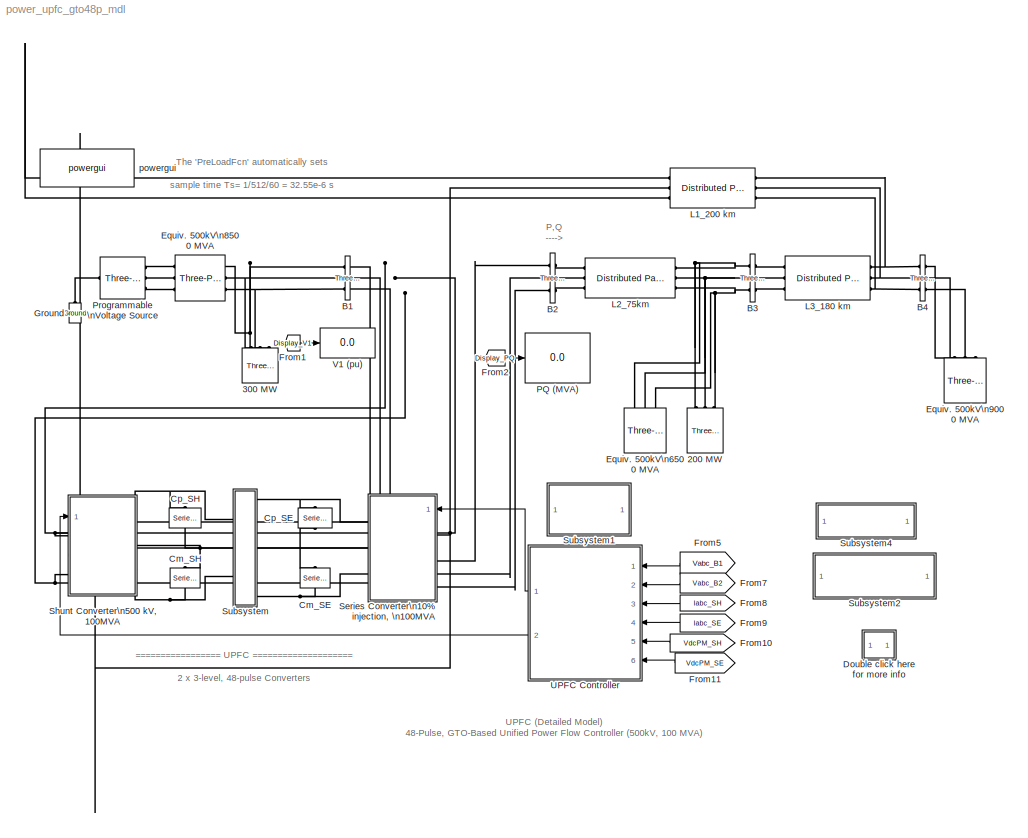
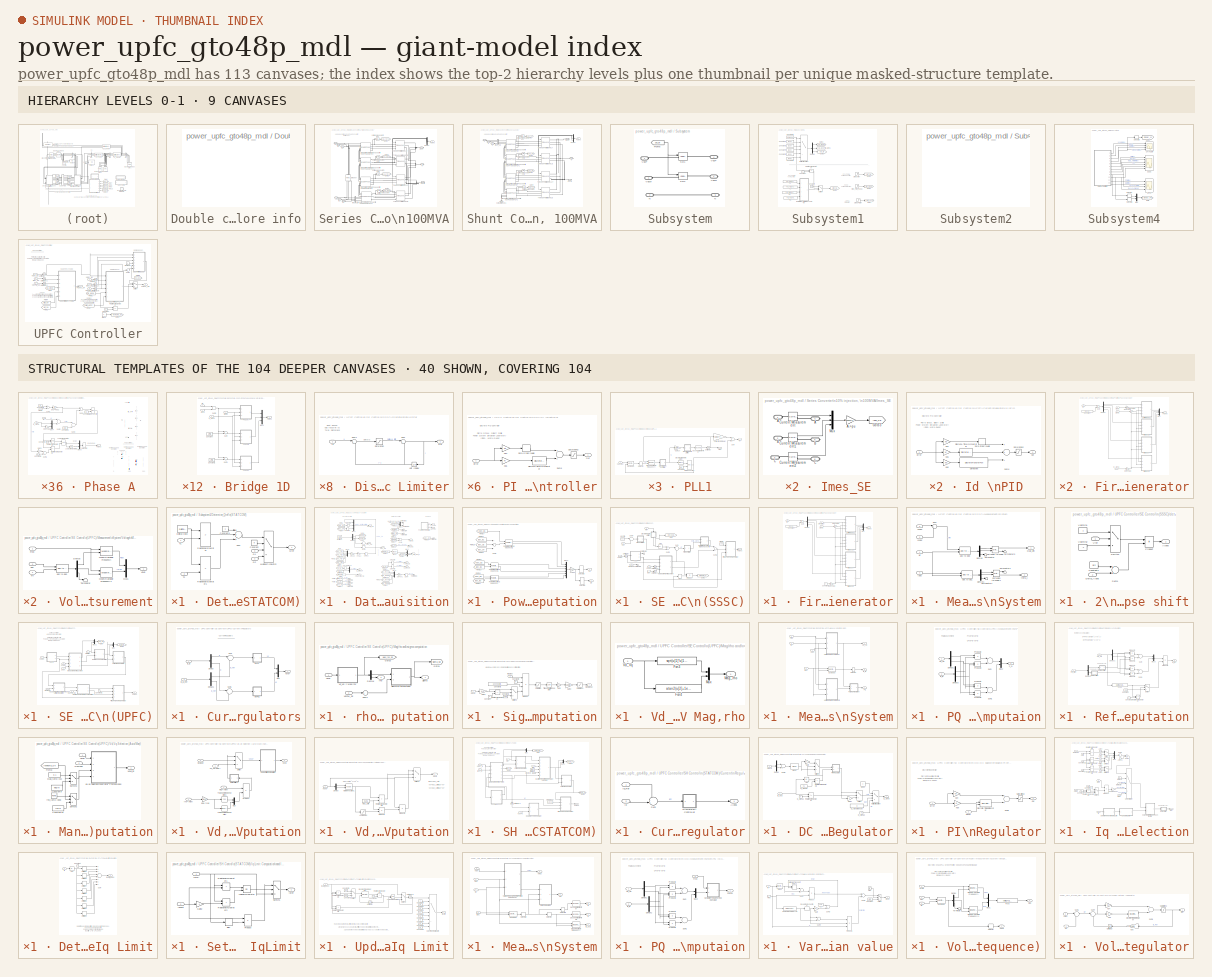
[diagram: thumbnail index - top-2 hierarchy levels (9 canvases) + 40 structural-template representatives of the remaining 104 canvases]
MODEL power_upfc_gto48p_mdl
KIND model
CONFIG PreLoadFcn = Ts=1/512/60;
BLOCK [Reference] 200 MW  REF=powerlib/Elements/Three-Phase\nSeries RLC Load
  ActivePower = 200e6
  AttributesFormatString = \\n
  CapacitivePower = 0
  Configuration = Y (grounded)
  InductivePower = 0
  LConnTagsString = A|B|C
  LoadType = constant Z
  Measurements = None
  NominalFrequency = 60
  NominalVoltage = 500e3
  Ports = [0, 0, 0, 0, 0, 3]
  SID = 1
  SourceBlock = powerlib/Elements/Three-Phase\nSeries RLC Load
  SourceType = Three-Phase Series RLC Load
BLOCK [Reference] 300 MW  REF=powerlib/Elements/Three-Phase\nParallel RLC Load
  ActivePower = 300e6
  AttributesFormatString = \\n
  CapacitivePower = 0
  Configuration = Y (grounded)
  InductivePower = 0
  LConnTagsString = A|B|C
  LoadType = constant Z
  Measurements = None
  NominalFrequency = 60
  NominalVoltage = 500e3
  Ports = [0, 0, 0, 0, 0, 3]
  SID = 2
  SourceBlock = powerlib/Elements/Three-Phase\nParallel RLC Load
  SourceType = Three-Phase Parallel RLC Load
BLOCK [Reference] B1  REF=powerlib/Measurements/Three-Phase\nV-I Measurement
  CurrentMeasurement = yes
  Ipu = on
  LabelI = Iabc_B1
  LabelV = Vabc_B1
  OutputType = Magnitude
  PSBequivalent = 0
  Pbase = 100e6
  PhasorSimulation = off
  Ports = [0, 0, 0, 0, 0, 3, 3]
  SID = 3
  SetLabelI = on
  SetLabelV = on
  SourceBlock = powerlib/Measurements/Three-Phase\nV-I Measurement
  SourceType = Three-Phase VI Measurement
  Vbase = 500e3
  VoltageMeasurement = phase-to-ground
  Vpu = on
  VpuLL = off
BLOCK [Reference] B2  REF=powerlib/Measurements/Three-Phase\nV-I Measurement
  CurrentMeasurement = yes
  Ipu = on
  LabelI = Iabc_B2
  LabelV = Vabc_B2
  OutputType = Magnitude
  PSBequivalent = 0
  Pbase = 100e6
  PhasorSimulation = off
  Ports = [0, 0, 0, 0, 0, 3, 3]
  SID = 4
  SetLabelI = on
  SetLabelV = on
  SourceBlock = powerlib/Measurements/Three-Phase\nV-I Measurement
  SourceType = Three-Phase VI Measurement
  Vbase = 500e3
  VoltageMeasurement = phase-to-ground
  Vpu = on
  VpuLL = off
BLOCK [Reference] B3  REF=powerlib/Measurements/Three-Phase\nV-I Measurement
  CurrentMeasurement = yes
  Ipu = on
  LabelI = Iabc_B3
  LabelV = Vabc_B3
  OutputType = Magnitude
  PSBequivalent = 0
  Pbase = 100e6
  PhasorSimulation = off
  Ports = [0, 0, 0, 0, 0, 3, 3]
  SID = 5
  SetLabelI = on
  SetLabelV = on
  SourceBlock = powerlib/Measurements/Three-Phase\nV-I Measurement
  SourceType = Three-Phase VI Measurement
  Vbase = 500e3
  VoltageMeasurement = phase-to-ground
  Vpu = on
  VpuLL = off
BLOCK [Reference] B4  REF=powerlib/Measurements/Three-Phase\nV-I Measurement
  CurrentMeasurement = no
  Ipu = on
  LabelI = Iabc_B4
  LabelV = Vabc_B4
  OutputType = Magnitude
  PSBequivalent = 0
  Pbase = 100e6
  PhasorSimulation = off
  Ports = [0, 0, 0, 0, 0, 3, 3]
  SID = 6
  SetLabelI = on
  SetLabelV = on
  SourceBlock = powerlib/Measurements/Three-Phase\nV-I Measurement
  SourceType = Three-Phase VI Measurement
  Vbase = 500e3
  VoltageMeasurement = phase-to-ground
  Vpu = on
  VpuLL = off
BLOCK [Reference] Cm_SE  REF=powerlib/Elements/Series RLC Branch
  AttributesFormatString = \\n
  BranchType = C
  Capacitance = 2500e-6
  Inductance = 1.0
  InitialCurrent = 0
  InitialVoltage = 0
  LConnTagsString = __new0
  Measurements = Branch voltage
  Ports = [0, 0, 0, 0, 0, 1, 1]
  RConnTagsString = __new0
  Resistance = 1.0
  SID = 7
  SetiL0 = off
  Setx0 = off
  SourceBlock = powerlib/Elements/Series RLC Branch
  SourceType = Series RLC Branch
BLOCK [Reference] Cm_SH  REF=powerlib/Elements/Series RLC Branch
  AttributesFormatString = \\n
  BranchType = C
  Capacitance = 2500e-6
  Inductance = 1.0
  InitialCurrent = 0
  InitialVoltage = 0
  LConnTagsString = __new0
  Measurements = Branch voltage
  Ports = [0, 0, 0, 0, 0, 1, 1]
  RConnTagsString = __new0
  Resistance = 1.0
  SID = 8
  SetiL0 = off
  Setx0 = off
  SourceBlock = powerlib/Elements/Series RLC Branch
  SourceType = Series RLC Branch
BLOCK [Reference] Cp_SE  REF=powerlib/Elements/Series RLC Branch
  AttributesFormatString = \\n
  BranchType = C
  Capacitance = 2500e-6
  Inductance = 1.0
  InitialCurrent = 0
  InitialVoltage = 0
  LConnTagsString = __new0
  Measurements = Branch voltage
  Ports = [0, 0, 0, 0, 0, 1, 1]
  RConnTagsString = __new0
  Resistance = 1.0
  SID = 9
  SetiL0 = off
  Setx0 = off
  SourceBlock = powerlib/Elements/Series RLC Branch
  SourceType = Series RLC Branch
BLOCK [Reference] Cp_SH  REF=powerlib/Elements/Series RLC Branch
  AttributesFormatString = \\n
  BranchType = C
  Capacitance = 2500e-6
  Inductance = 1.0
  InitialCurrent = 0
  InitialVoltage = 0
  LConnTagsString = __new0
  Measurements = Branch voltage
  Ports = [0, 0, 0, 0, 0, 1, 1]
  RConnTagsString = __new0
  Resistance = 1.0
  SID = 10
  SetiL0 = off
  Setx0 = off
  SourceBlock = powerlib/Elements/Series RLC Branch
  SourceType = Series RLC Branch
BLOCK [SubSystem] Double click here for more info
  OpenFcn = showdemo(bdroot(gcb))
  Ports = []
  RequestExecContextInheritance = off
  SID = 11
BLOCK [Reference] Equiv. 500kV\n6500 MVA  REF=powerlib/Electrical\nSources/Three-Phase Source
  BaseVoltage = 500e3
  BusType = swing
  Frequency = 60
  Inductance = 16.58e-3
  InternalConnection = Yg
  PhaseAngle = 9.2-20
  Ports = [0, 0, 0, 0, 0, 0, 3]
  Pref = 0
  Qmax = inf
  Qmin = -inf
  Qref = 0
  Resistance = 0.8929
  SID = 12
  ShortCircuitLevel = 6500e6
  SourceBlock = powerlib/Electrical\nSources/Three-Phase Source
  SourceType = Three-Phase Source
  SpecifyImpedance = on
  Voltage = 500e3*1.00
  XRratio = 8
BLOCK [Reference] Equiv. 500kV\n8500 MVA   REF=powerlib/Elements/Three-Phase\nSeries RLC Branch
  AttributesFormatString = \\n
  BranchType = RL
  Capacitance = 1.0
  Inductance = 500e3^2/8500e6/(2*pi*60)
  LConnTagsString = A|B|C
  Measurements = None
  Ports = [0, 0, 0, 0, 0, 3, 3]
  RConnTagsString = A|B|C
  Resistance = 500e3^2/8500e6/10
  SID = 13
  SourceBlock = powerlib/Elements/Three-Phase\nSeries RLC Branch
  SourceType = Three-Phase Series RLC Branch
BLOCK [Reference] Equiv. 500kV\n9000 MVA  REF=powerlib/Electrical\nSources/Three-Phase Source
  BaseVoltage = 500e3
  BusType = swing
  Frequency = 60
  Inductance = 16.58e-3
  InternalConnection = Yg
  PhaseAngle = 9.2-40
  Ports = [0, 0, 0, 0, 0, 0, 3]
  Pref = 0
  Qmax = inf
  Qmin = -inf
  Qref = 0
  Resistance = 0.8929
  SID = 14
  ShortCircuitLevel = 9000e6
  SourceBlock = powerlib/Electrical\nSources/Three-Phase Source
  SourceType = Three-Phase Source
  SpecifyImpedance = on
  Voltage = 500e3*0.98
  XRratio = 10
BLOCK [From] From1
  CloseFcn = tagdialog Close
  GotoTag = Display_V1
  SID = 15
  TagVisibility = global
BLOCK [From] From10
  CloseFcn = tagdialog Close
  GotoTag = VdcPM_SH
  SID = 16
  TagVisibility = global
BLOCK [From] From11
  CloseFcn = tagdialog Close
  GotoTag = VdcPM_SE
  SID = 17
  TagVisibility = global
BLOCK [From] From2
  CloseFcn = tagdialog Close
  GotoTag = Display_PQ
  SID = 18
  TagVisibility = global
BLOCK [From] From5
  CloseFcn = tagdialog Close
  GotoTag = Vabc_B1
  SID = 19
  TagVisibility = global
BLOCK [From] From7
  CloseFcn = tagdialog Close
  GotoTag = Vabc_B2
  SID = 20
  TagVisibility = global
BLOCK [From] From8
  CloseFcn = tagdialog Close
  GotoTag = Iabc_SH
  SID = 21
  TagVisibility = global
BLOCK [From] From9
  CloseFcn = tagdialog Close
  GotoTag = Iabc_SE
  SID = 22
  TagVisibility = global
BLOCK [Reference] Ground  REF=powerlib/Elements/Ground
  AttributesFormatString = \\n
  LConnTagsString = a
  Ports = [0, 0, 0, 0, 0, 1]
  SID = 23
  SourceBlock = powerlib/Elements/Ground
  SourceType = Ground
BLOCK [Reference] L1_200 km  REF=powerlib/Elements/Distributed Parameters Line
  AttributesFormatString = \\n
  Capacitance = [12.74e-9 7.751e-9]
  Frequency = 60
  I1 = ones(3,3)
  I2 = ones(3,3)
  Inductance = [0.9337e-3  4.1264e-3]
  Length = 200
  Measurements = None
  Phases = 3
  Ports = [0, 0, 0, 0, 0, 3, 3]
  Resistance = [0.01273*2 0.3864]
  SID = 24
  SourceBlock = powerlib/Elements/Distributed Parameters Line
  SourceType = Distributed Parameters Line
  V1 = ones(3,3)
  V2 = ones(3,3)
  nHarmo = 1
  x1 = [-0.00113932291666667 -5.83775963632197e-11 4414.79498015266 -499890.552538387;-0.00110677083333333 -5.5951515746169e-11 10548.8886083546 -499798.73537353;-0.00107421875 -5.35170090366527e-11 16681.393612734 -499631.650357529;-0.00104166666666667 -5.10744428624266e-11 22811.3864605943 -499389.322652774;-0.00100911458333333 -4.86241850649719e-11 28937.9439975605 -499071.788752926;-0.0009765625 -4.6...<+2255ch>
  x2 = [-0.00113932291666667 2.86811510446065e-11 -126400.807658291 -476001.468702008;-0.00110677083333333 2.96258624700446e-11 -120550.019662708 -477516.759017374;-0.00107421875 3.05661123495671e-11 -114681.077277582 -478960.137065278;-0.00104166666666667 3.15017590850008e-11 -108794.864344047 -480331.385478293;-0.00100911458333333 3.24326617713888e-11 -102892.267304122 -481630.297751453;-0.0009765625 3...<+2255ch>
  x3 = [-0.00113932291666667 8.8939155316367e-13 -16.9421274649171 53.6415754395801;-0.00110677083333333 8.87638250739574e-13 -17.5991164005912 53.4296303617768;-0.00107421875 8.85751273259906e-13 -18.2534549740699 53.2096389781707;-0.00104166666666667 8.83730904896535e-13 -18.9050446443711 52.9816344186549;-0.00100911458333333 8.81577449909503e-13 -19.5537872844871 52.7456510198774;-0.0009765625 8.79291...<+2236ch>
  x4 = [-0.00113932291666667 -7.78110289086618e-14 -894.269601115784 -3549.34214309645;-0.00110677083333333 -8.84298125759026e-14 -850.646376261383 -3560.04894780867;-0.00107421875 -9.90352790386398e-14 -806.895047191642 -3570.21962224425;-0.00104166666666667 -1.09625831152634e-13 -763.022202695786 -3579.85263473701;-0.00100911458333333 -1.20199874019693e-13 -719.03444986282 -3588.94653459072;-0.00097656...<+2289ch>
  x5 = 0.00113108313399149
BLOCK [Reference] L2_75km  REF=powerlib/Elements/Distributed Parameters Line
  AttributesFormatString = \\n
  Capacitance = [12.74e-9 7.751e-9]
  Frequency = 60
  I1 = ones(3,3)
  I2 = ones(3,3)
  Inductance = [0.9337e-3  4.1264e-3]
  Length = 75
  Measurements = None
  Phases = 3
  Ports = [0, 0, 0, 0, 0, 3, 3]
  Resistance = [0.01273*2 0.3864]
  SID = 25
  SourceBlock = powerlib/Elements/Distributed Parameters Line
  SourceType = Distributed Parameters Line
  V1 = ones(3,3)
  V2 = ones(3,3)
  nHarmo = 1
  x1 = [-0.000455729166666667 -1.27140528390199e-10 0 0;-0.000423177083333333 -1.26495463510687e-10 0 0;-0.000390625 -1.25831348879657e-10 0 0;-0.000358072916666667 -1.25148284510329e-10 0 0;-0.000325520833333333 -1.24446373269686e-10 0 0;-0.00029296875 -1.23725720862978e-10 0 0;-0.000260416666666667 -1.22986435817807e-10 166794.132131736 -471263.82102114;-0.000227864583333333 -1.22228629467782e-10 17256...<+487ch>
  x2 = [-0.000455729166666667 -2.36997076318553e-11 0 0;-0.000423177083333333 -2.41108726134989e-11 0 0;-0.000390625 -2.45184065864136e-11 0 0;-0.000358072916666667 -2.49222481774822e-11 0 0;-0.000325520833333333 -2.53223365696465e-11 0 0;-0.00029296875 -2.57186115110664e-11 0 0;-0.000260416666666667 -2.61110133241931e-11 120220.444766576 -484737.668130302;-0.000227864583333333 -2.6499482914757e-11 12615...<+485ch>
  x3 = [-0.000455729166666667 1.80871262636325e-13 0 0;-0.000423177083333333 1.68315951242698e-13 0 0;-0.000390625 1.55735292085928e-13 0 0;-0.000358072916666667 1.43131179767009e-13 0 0;-0.000325520833333333 1.30505512418895e-13 0 0;-0.00029296875 1.17860191420648e-13 0 0;-0.000260416666666667 1.05197121111097e-13 -104.968306035297 -46.5279101834584;-0.000227864583333333 9.25182085020516e-14 -104.389433...<+480ch>
  x4 = [-0.000455729166666667 -2.77784366561629e-13 0 0;-0.000423177083333333 -3.06117246189209e-13 0 0;-0.000390625 -3.34404025685501e-13 0 0;-0.000358072916666667 -3.6264044516556e-13 0 0;-0.000325520833333333 -3.90822252328473e-13 0 0;-0.00029296875 -4.18945203097742e-13 0 0;-0.000260416666666667 -4.47005062260427e-13 987.851977766537 -3517.72393741717;-0.000227864583333333 -4.74997604104949e-13 1030....<+486ch>
  x5 = 0.000424156175246807
BLOCK [Reference] L3_180 km  REF=powerlib/Elements/Distributed Parameters Line
  AttributesFormatString = \\n
  Capacitance = [12.74e-9 7.751e-9]
  Frequency = 60
  I1 = ones(3,3)
  I2 = ones(3,3)
  Inductance = [0.9337e-3  4.1264e-3]
  Length = 180
  Measurements = None
  Phases = 3
  Ports = [0, 0, 0, 0, 0, 3, 3]
  Resistance = [0.01273*2 0.3864]
  SID = 26
  SourceBlock = powerlib/Elements/Distributed Parameters Line
  SourceType = Distributed Parameters Line
  V1 = ones(3,3)
  V2 = ones(3,3)
  nHarmo = 1
  x1 = [-0.00104166666666667 -2.13196564095776e-11 0 0;-0.00100911458333333 -2.16197072149166e-11 0 0;-0.0009765625 -2.19165021718726e-11 0 0;-0.000944010416666667 -2.22099965842166e-11 0 0;-0.000911458333333333 -2.25001462527699e-11 0 0;-0.00087890625 -2.27869074820596e-11 0 0;-0.000846354166666667 -2.30702370868993e-11 0 0;-0.000813802083333333 -2.33500923988927e-11 0 0;-0.00078125 -2.36264312728593e-1...<+1666ch>
  x2 = [-0.00104166666666667 3.15017590850008e-11 0 0;-0.00100911458333333 3.24326617713888e-11 0 0;-0.0009765625 3.33586802182108e-11 0 0;-0.000944010416666667 3.42796749704948e-11 0 0;-0.000911458333333333 3.51955073298188e-11 0 0;-0.00087890625 3.61060393751982e-11 0 0;-0.000846354166666667 3.70111339838561e-11 0 0;-0.000813802083333333 3.79106548518737e-11 0 0;-0.00078125 3.8804466514717e-11 0 0;-0.0...<+1646ch>
  x3 = [-0.00104166666666667 1.7095544161851e-13 0 0;-0.00100911458333333 1.71091661173283e-13 0 0;-0.0009765625 1.71202114953208e-13 0 0;-0.000944010416666667 1.71286786324352e-13 0 0;-0.000911458333333333 1.71345662535518e-13 0 0;-0.00087890625 1.71378734720164e-13 0 0;-0.000846354166666667 1.71385997897743e-13 0 0;-0.000813802083333333 1.71367450974445e-13 0 0;-0.00078125 1.71323096743369e-13 0 0;-0.0...<+1644ch>
  x4 = [-0.00104166666666667 7.63530042489158e-13 0 0;-0.00100911458333333 7.54755688850395e-13 0 0;-0.0009765625 7.45867671781101e-13 0 0;-0.000944010416666667 7.36867329783954e-13 0 0;-0.000911458333333333 7.27756018277352e-13 0 0;-0.00087890625 7.18535109391295e-13 0 0;-0.000846354166666667 7.09205991760743e-13 0 0;-0.000813802083333333 6.99770070316497e-13 0 0;-0.00078125 6.90228766073618e-13 0 0;-0....<+1649ch>
  x5 = 0.00101797482059234
BLOCK [Display] PQ (MVA)
  Decimation = 1
  Format = bank
  Ports = [1]
  SID = 27
  SampleTime = Ts*100
BLOCK [Reference] Programmable \nVoltage Source  REF=powerlib/Electrical\nSources/Three-Phase\nProgrammable\nVoltage Source
  Amplitudes = [1  0.8  1.2  1.0 ]
  BusType = swing
  HarmonicA = [3 0.2 -25 0]
  HarmonicB = [2 0.15  35 2]
  HarmonicGeneration = off
  Ports = [0, 0, 0, 0, 0, 1, 3]
  PositiveSequence = [500e3*1.0491 9.2  60]
  Pref = 0
  Qmax = inf
  Qmin = -inf
  Qref = 0
  SID = 28
  SourceBlock = powerlib/Electrical\nSources/Three-Phase\nProgrammable\nVoltage Source
  SourceType = Three-Phase Programmable Voltage Source
  TimeValues = [0 0.1 0.25 0.4]
  Timing = [0.1  0.6]
  VariationEntity = None
  VariationFrequency = 2
  VariationMagnitude = 0.4
  VariationPhaseA = off
  VariationRate = 0.5
  VariationStep = -0.3
  VariationTiming = [0.1 1.2]
  VariationType = Modulation
  VariationTypeAlt = Step
BLOCK [SubSystem] Series Converter\n10% injection, \n100MVA
  Ports = [1, 0, 0, 0, 0, 6, 3]
  RequestExecContextInheritance = off
  SID = 29
BLOCK [PMIOPort] Series Converter\n10% injection, \n100MVA/A1 
  Port = 1
  SID = 62
  Side = Left
BLOCK [PMIOPort] Series Converter\n10% injection, \n100MVA/A2 
  Port = 4
  SID = 65
  Side = Left
BLOCK [PMIOPort] Series Converter\n10% injection, \n100MVA/B1 
  Port = 2
  SID = 63
  Side = Left
BLOCK [PMIOPort] Series Converter\n10% injection, \n100MVA/B2 
  Port = 5
  SID = 66
  Side = Left
BLOCK [Reference] Series Converter\n10% injection, \n100MVA/Breaker  REF=powerlib/Elements/Three-Phase Breaker
  AttributesFormatString = \\n
  BreakerResistance = 0.0001
  External = off
  InitialState = closed
  Measurements = None
  Ports = [0, 0, 0, 0, 0, 3, 3]
  SID = 31
  SnubberCapacitance = inf
  SnubberResistance = 1e6
  SourceBlock = powerlib/Elements/Three-Phase Breaker
  SourceType = Three-Phase Breaker
  SwitchA = on
  SwitchB = on
  SwitchC = on
  SwitchTimes = [ 0]
BLOCK [PMIOPort] Series Converter\n10% injection, \n100MVA/C1
  Port = 3
  SID = 64
  Side = Left
BLOCK [PMIOPort] Series Converter\n10% injection, \n100MVA/C2 
  Port = 6
  SID = 67
  Side = Left
BLOCK [Demux] Series Converter\n10% injection, \n100MVA/Demux
  Outputs = [12 12 12 12]
  Ports = [1, 4]
  SID = 32
BLOCK [Goto] Series Converter\n10% injection, \n100MVA/Goto1
  GotoTag = Van_Tr1Yse
  SID = 33
  TagVisibility = global
BLOCK [Goto] Series Converter\n10% injection, \n100MVA/Goto2
  GotoTag = Van_Tr2Yse
  SID = 34
  TagVisibility = global
BLOCK [Goto] Series Converter\n10% injection, \n100MVA/Goto3
  GotoTag = Vab_Tr1Dse
  SID = 35
  TagVisibility = global
BLOCK [Goto] Series Converter\n10% injection, \n100MVA/Goto4
  GotoTag = Vab_Tr2Dse
  SID = 36
  TagVisibility = global
BLOCK [SubSystem] Series Converter\n10% injection, \n100MVA/Imes_SE
  Ports = [0, 0, 0, 0, 0, 3, 3]
  RequestExecContextInheritance = off
  SID = 37
BLOCK [PMIOPort] Series Converter\n10% injection, \n100MVA/Imes_SE/ A
  Port = 4
  SID = 47
  Side = Right
BLOCK [PMIOPort] Series Converter\n10% injection, \n100MVA/Imes_SE/ B
  Port = 5
  SID = 48
  Side = Right
BLOCK [PMIOPort] Series Converter\n10% injection, \n100MVA/Imes_SE/ C
  Port = 6
  SID = 49
  Side = Right
BLOCK [PMIOPort] Series Converter\n10% injection, \n100MVA/Imes_SE/A 
  Port = 1
  SID = 44
  Side = Left
BLOCK [Gain] Series Converter\n10% injection, \n100MVA/Imes_SE/A->pu
  Gain = 500e3*sqrt(3)/100e6/sqrt(2)
  SID = 38
BLOCK [PMIOPort] Series Converter\n10% injection, \n100MVA/Imes_SE/B 
  Port = 2
  SID = 45
  Side = Left
BLOCK [PMIOPort] Series Converter\n10% injection, \n100MVA/Imes_SE/C 
  Port = 3
  SID = 46
  Side = Left
BLOCK [Reference] Series Converter\n10% injection, \n100MVA/Imes_SE/Current Measurement  REF=powerlib/Measurements/Current Measurement
  AttributesFormatString = \\n
  OutputType = Magnitude
  PSBequivalent = 0
  PhasorSimulation = off
  Ports = [0, 1, 0, 0, 0, 1, 1]
  SID = 39
  SourceBlock = powerlib/Measurements/Current Measurement
  SourceType = Current Measurement
  Tag = PoWeRsYsTeMmEaSuReMeNt
BLOCK [Reference] Series Converter\n10% injection, \n100MVA/Imes_SE/Current Measurement1  REF=powerlib/Measurements/Current Measurement
  AttributesFormatString = \\n
  OutputType = Magnitude
  PSBequivalent = 0
  PhasorSimulation = off
  Ports = [0, 1, 0, 0, 0, 1, 1]
  SID = 40
  SourceBlock = powerlib/Measurements/Current Measurement
  SourceType = Current Measurement
  Tag = PoWeRsYsTeMmEaSuReMeNt
BLOCK [Reference] Series Converter\n10% injection, \n100MVA/Imes_SE/Current Measurement2  REF=powerlib/Measurements/Current Measurement
  AttributesFormatString = \\n
  OutputType = Magnitude
  PSBequivalent = 0
  PhasorSimulation = off
  Ports = [0, 1, 0, 0, 0, 1, 1]
  SID = 41
  SourceBlock = powerlib/Measurements/Current Measurement
  SourceType = Current Measurement
  Tag = PoWeRsYsTeMmEaSuReMeNt
BLOCK [Goto] Series Converter\n10% injection, \n100MVA/Imes_SE/Goto3
  GotoTag = Iabc_SE
  SID = 42
  TagVisibility = global
BLOCK [Mux] Series Converter\n10% injection, \n100MVA/Imes_SE/Mux
  DisplayOption = bar
  Inputs = 3
  Ports = [3, 1]
  SID = 43
BLOCK [PMIOPort] Series Converter\n10% injection, \n100MVA/N
  Port = 8
  SID = 69
  Side = Right
BLOCK [Inport] Series Converter\n10% injection, \n100MVA/Pulses
  IconDisplay = Port number
  PortDimensions = 48
  SID = 30
BLOCK [Reference] Series Converter\n10% injection, \n100MVA/Three-Level Bridge\n 12Y  REF=powerlib/Power\nElectronics/Three-Level Bridge
  Arms = 3
  AttributesFormatString = \\n
  Device = GTO / Diodes
  ForwardVoltages = [  0  0  ]
  Measurements = None
  Ports = [1, 0, 0, 0, 0, 3, 3]
  Ron = 1e-4
  SID = 50
  SbubberCapacitance = inf
  SnubberResistance = 1e5
  SourceBlock = powerlib/Power\nElectronics/Three-Level Bridge
  SourceType = Three-Level Bridge
BLOCK [Reference] Series Converter\n10% injection, \n100MVA/Three-Level Bridge\n 1D  REF=powerlib/Power\nElectronics/Three-Level Bridge
  Arms = 3
  AttributesFormatString = \\n
  Device = GTO / Diodes
  ForwardVoltages = [  0  0  ]
  Measurements = None
  Ports = [1, 0, 0, 0, 0, 3, 3]
  Ron = 1e-4
  SID = 51
  SbubberCapacitance = inf
  SnubberResistance = 1e5
  SourceBlock = powerlib/Power\nElectronics/Three-Level Bridge
  SourceType = Three-Level Bridge
BLOCK [Reference] Series Converter\n10% injection, \n100MVA/Three-Level Bridge\n 1Y  REF=powerlib/Power\nElectronics/Three-Level Bridge
  Arms = 3
  AttributesFormatString = \\n
  Device = GTO / Diodes
  ForwardVoltages = [  0  0  ]
  Measurements = None
  Ports = [1, 0, 0, 0, 0, 3, 3]
  Ron = 1e-4
  SID = 52
  SbubberCapacitance = inf
  SnubberResistance = 1e5
  SourceBlock = powerlib/Power\nElectronics/Three-Level Bridge
  SourceType = Three-Level Bridge
BLOCK [Reference] Series Converter\n10% injection, \n100MVA/Three-Level Bridge\n2D  REF=powerlib/Power\nElectronics/Three-Level Bridge
  Arms = 3
  AttributesFormatString = \\n
  Device = GTO / Diodes
  ForwardVoltages = [  0  0  ]
  Measurements = None
  Ports = [1, 0, 0, 0, 0, 3, 3]
  Ron = 1e-4
  SID = 53
  SbubberCapacitance = inf
  SnubberResistance = 1e5
  SourceBlock = powerlib/Power\nElectronics/Three-Level Bridge
  SourceType = Three-Level Bridge
BLOCK [PMIOPort] Series Converter\n10% injection, \n100MVA/VdcM
  Port = 9
  SID = 70
  Side = Right
BLOCK [PMIOPort] Series Converter\n10% injection, \n100MVA/VdcP
  Port = 7
  SID = 68
  Side = Right
BLOCK [Reference] Series Converter\n10% injection, \n100MVA/Voltage Measurement  REF=powerlib/Measurements/Voltage Measurement
  AttributesFormatString = \\n
  OutputType = Magnitude
  PSBequivalent = 0
  PhasorSimulation = off
  Ports = [0, 1, 0, 0, 0, 2]
  SID = 54
  SourceBlock = powerlib/Measurements/Voltage Measurement
  SourceType = Voltage Measurement
  Tag = PoWeRsYsTeMmEaSuReMeNt
BLOCK [Reference] Series Converter\n10% injection, \n100MVA/Voltage Measurement1  REF=powerlib/Measurements/Voltage Measurement
  AttributesFormatString = \\n
  OutputType = Magnitude
  PSBequivalent = 0
  PhasorSimulation = off
  Ports = [0, 1, 0, 0, 0, 2]
  SID = 55
  SourceBlock = powerlib/Measurements/Voltage Measurement
  SourceType = Voltage Measurement
  Tag = PoWeRsYsTeMmEaSuReMeNt
BLOCK [Reference] Series Converter\n10% injection, \n100MVA/Voltage Measurement2  REF=powerlib/Measurements/Voltage Measurement
  AttributesFormatString = \\n
  OutputType = Magnitude
  PSBequivalent = 0
  PhasorSimulation = off
  Ports = [0, 1, 0, 0, 0, 2]
  SID = 56
  SourceBlock = powerlib/Measurements/Voltage Measurement
  SourceType = Voltage Measurement
  Tag = PoWeRsYsTeMmEaSuReMeNt
BLOCK [Reference] Series Converter\n10% injection, \n100MVA/Voltage Measurement3  REF=powerlib/Measurements/Voltage Measurement
  AttributesFormatString = \\n
  OutputType = Magnitude
  PSBequivalent = 0
  PhasorSimulation = off
  Ports = [0, 1, 0, 0, 0, 2]
  SID = 57
  SourceBlock = powerlib/Measurements/Voltage Measurement
  SourceType = Voltage Measurement
  Tag = PoWeRsYsTeMmEaSuReMeNt
BLOCK [Reference] Series Converter\n10% injection, \n100MVA/Zigzag transformer\nPhase-Shifting of +7.5 deg.\nTr1Y  REF=powerlib/Elements/Zigzag\nPhase-Shifting Transformer
  AttributesFormatString = \\n
  BreakLoop = off
  DataType = off
  InitialFluxes = [0,0,0]
  Measurements = None
  MoreParameters = off
  NominalPower = [ 100e6/4 60]
  Ports = [0, 0, 0, 0, 0, 6, 4]
  PrimaryVoltage = 12.5e3
  Rm = 500
  RmLm = [ 500 500 ]
  SID = 58
  Saturation = [ 0,0 ; 0.0024,1.2 ; 1.0,1.52 ]
  SecondaryConnection = Yn
  SecondaryVoltage = [ 12.5e3  +7.5]
  SetInitialFlux = off
  SetSaturation = off
  SourceBlock = powerlib/Elements/Zigzag\nPhase-Shifting Transformer
  SourceType = Zigzag Phase-Shifting Transformer
  UNITS = pu
  Winding1 = [ 0.05/30 0.05 ]
  Winding2 = [ 0.05/30 0.05 ]
  Winding3 = [ 0.05/30 0.05 ]
BLOCK [Reference] Series Converter\n10% injection, \n100MVA/Zigzag transformer\nPhase-Shifting of +7.5 deg.\nTr1Y1  REF=powerlib/Elements/Zigzag\nPhase-Shifting Transformer
  AttributesFormatString = \\n
  BreakLoop = off
  DataType = off
  InitialFluxes = [0,0,0]
  Measurements = None
  MoreParameters = off
  NominalPower = [ 100e6/4 60]
  Ports = [0, 0, 0, 0, 0, 6, 3]
  PrimaryVoltage = 12.5e3
  Rm = 500
  RmLm = [ 500 500 ]
  SID = 59
  Saturation = [ 0,0 ; 0.0024,1.2 ; 1.0,1.52 ]
  SecondaryConnection = Delta D1(-30 deg.)
  SecondaryVoltage = [ 12.5e3  +7.5]
  SetInitialFlux = off
  SetSaturation = off
  SourceBlock = powerlib/Elements/Zigzag\nPhase-Shifting Transformer
  SourceType = Zigzag Phase-Shifting Transformer
  UNITS = pu
  Winding1 = [ 0.05/30 0.05 ]
  Winding2 = [ 0.05/30 0.05 ]
  Winding3 = [ 0.05/30 0.05 ]
BLOCK [Reference] Series Converter\n10% injection, \n100MVA/Zigzag transformer\nPhase-Shifting of -7.5 deg.\nTr1Y2  REF=powerlib/Elements/Zigzag\nPhase-Shifting Transformer
  AttributesFormatString = \\n
  BreakLoop = off
  DataType = off
  InitialFluxes = [0,0,0]
  Measurements = None
  MoreParameters = off
  NominalPower = [ 100e6/4 60]
  Ports = [0, 0, 0, 0, 0, 6, 3]
  PrimaryVoltage = 12.5e3
  Rm = 500
  RmLm = [ 500 500 ]
  SID = 60
  Saturation = [ 0,0 ; 0.0024,1.2 ; 1.0,1.52 ]
  SecondaryConnection = Delta D1(-30 deg.)
  SecondaryVoltage = [ 12.5e3  -7.5]
  SetInitialFlux = off
  SetSaturation = off
  SourceBlock = powerlib/Elements/Zigzag\nPhase-Shifting Transformer
  SourceType = Zigzag Phase-Shifting Transformer
  UNITS = pu
  Winding1 = [ 0.05/30 0.05 ]
  Winding2 = [ 0.05/30 0.05 ]
  Winding3 = [ 0.05/30 0.05 ]
BLOCK [Reference] Series Converter\n10% injection, \n100MVA/Zigzag transformer\nPhase-Shifting of -7.5 deg.\nTr2Y  REF=powerlib/Elements/Zigzag\nPhase-Shifting Transformer
  AttributesFormatString = \\n
  BreakLoop = off
  DataType = off
  InitialFluxes = [0,0,0]
  Measurements = None
  MoreParameters = off
  NominalPower = [ 100e6/4 60]
  Ports = [0, 0, 0, 0, 0, 6, 4]
  PrimaryVoltage = 12.5e3
  Rm = 500
  RmLm = [ 500 500 ]
  SID = 61
  Saturation = [ 0,0 ; 0.0024,1.2 ; 1.0,1.52 ]
  SecondaryConnection = Yn
  SecondaryVoltage = [ 12.5e3  -7.5]
  SetInitialFlux = off
  SetSaturation = off
  SourceBlock = powerlib/Elements/Zigzag\nPhase-Shifting Transformer
  SourceType = Zigzag Phase-Shifting Transformer
  UNITS = pu
  Winding1 = [ 0.05/30 0.05 ]
  Winding2 = [ 0.05/30 0.05 ]
  Winding3 = [ 0.05/30 0.05 ]
BLOCK [SubSystem] Shunt Converter\n500 kV, 100MVA
  Ports = [1, 0, 0, 0, 0, 3, 3]
  RequestExecContextInheritance = off
  SID = 72
BLOCK [PMIOPort] Shunt Converter\n500 kV, 100MVA/A
  Port = 4
  SID = 108
  Side = Left
BLOCK [PMIOPort] Shunt Converter\n500 kV, 100MVA/B
  Port = 5
  SID = 109
  Side = Left
BLOCK [PMIOPort] Shunt Converter\n500 kV, 100MVA/C
  Port = 6
  SID = 110
  Side = Left
BLOCK [Demux] Shunt Converter\n500 kV, 100MVA/Demux
  Outputs = [12 12 12 12]
  Ports = [1, 4]
  SID = 74
BLOCK [Goto] Shunt Converter\n500 kV, 100MVA/Goto1
  GotoTag = Van_Tr1Y
  SID = 75
  TagVisibility = global
BLOCK [Goto] Shunt Converter\n500 kV, 100MVA/Goto2
  GotoTag = Van_Tr2Y
  SID = 76
  TagVisibility = global
BLOCK [Goto] Shunt Converter\n500 kV, 100MVA/Goto3
  GotoTag = Vab_Tr1D
  SID = 77
  TagVisibility = global
BLOCK [Goto] Shunt Converter\n500 kV, 100MVA/Goto4
  GotoTag = Vab_Tr2D
  SID = 78
  TagVisibility = global
BLOCK [SubSystem] Shunt Converter\n500 kV, 100MVA/Imes_SH
  Ports = [0, 0, 0, 0, 0, 3, 3]
  RequestExecContextInheritance = off
  SID = 79
BLOCK [PMIOPort] Shunt Converter\n500 kV, 100MVA/Imes_SH/ A
  Port = 4
  SID = 89
  Side = Right
BLOCK [PMIOPort] Shunt Converter\n500 kV, 100MVA/Imes_SH/ B
  Port = 5
  SID = 90
  Side = Right
BLOCK [PMIOPort] Shunt Converter\n500 kV, 100MVA/Imes_SH/ C
  Port = 6
  SID = 91
  Side = Right
BLOCK [PMIOPort] Shunt Converter\n500 kV, 100MVA/Imes_SH/A 
  Port = 1
  SID = 86
  Side = Left
BLOCK [Gain] Shunt Converter\n500 kV, 100MVA/Imes_SH/A->pu
  Gain = 500e3*sqrt(3)/100e6/sqrt(2)
  SID = 80
BLOCK [PMIOPort] Shunt Converter\n500 kV, 100MVA/Imes_SH/B 
  Port = 2
  SID = 87
  Side = Left
BLOCK [PMIOPort] Shunt Converter\n500 kV, 100MVA/Imes_SH/C 
  Port = 3
  SID = 88
  Side = Left
BLOCK [Reference] Shunt Converter\n500 kV, 100MVA/Imes_SH/Current Measurement  REF=powerlib/Measurements/Current Measurement
  AttributesFormatString = \\n
  OutputType = Magnitude
  PSBequivalent = 0
  PhasorSimulation = off
  Ports = [0, 1, 0, 0, 0, 1, 1]
  SID = 81
  SourceBlock = powerlib/Measurements/Current Measurement
  SourceType = Current Measurement
  Tag = PoWeRsYsTeMmEaSuReMeNt
BLOCK [Reference] Shunt Converter\n500 kV, 100MVA/Imes_SH/Current Measurement1  REF=powerlib/Measurements/Current Measurement
  AttributesFormatString = \\n
  OutputType = Magnitude
  PSBequivalent = 0
  PhasorSimulation = off
  Ports = [0, 1, 0, 0, 0, 1, 1]
  SID = 82
  SourceBlock = powerlib/Measurements/Current Measurement
  SourceType = Current Measurement
  Tag = PoWeRsYsTeMmEaSuReMeNt
BLOCK [Reference] Shunt Converter\n500 kV, 100MVA/Imes_SH/Current Measurement2  REF=powerlib/Measurements/Current Measurement
  AttributesFormatString = \\n
  OutputType = Magnitude
  PSBequivalent = 0
  PhasorSimulation = off
  Ports = [0, 1, 0, 0, 0, 1, 1]
  SID = 83
  SourceBlock = powerlib/Measurements/Current Measurement
  SourceType = Current Measurement
  Tag = PoWeRsYsTeMmEaSuReMeNt
BLOCK [Goto] Shunt Converter\n500 kV, 100MVA/Imes_SH/Goto3
  GotoTag = Iabc_SH
  SID = 84
  TagVisibility = global
BLOCK [Mux] Shunt Converter\n500 kV, 100MVA/Imes_SH/Mux
  DisplayOption = bar
  Inputs = 3
  Ports = [3, 1]
  SID = 85
BLOCK [PMIOPort] Shunt Converter\n500 kV, 100MVA/N
  Port = 2
  SID = 106
  Side = Right
BLOCK [Inport] Shunt Converter\n500 kV, 100MVA/Pulses
  IconDisplay = Port number
  PortDimensions = 48
  SID = 73
BLOCK [Reference] Shunt Converter\n500 kV, 100MVA/Three-Level Bridge\n 12Y  REF=powerlib/Power\nElectronics/Three-Level Bridge
  Arms = 3
  AttributesFormatString = \\n
  Device = GTO / Diodes
  ForwardVoltages = [  0  0  ]
  Measurements = None
  Ports = [1, 0, 0, 0, 0, 3, 3]
  Ron = 1e-4
  SID = 92
  SbubberCapacitance = inf
  SnubberResistance = 1e5
  SourceBlock = powerlib/Power\nElectronics/Three-Level Bridge
  SourceType = Three-Level Bridge
BLOCK [Reference] Shunt Converter\n500 kV, 100MVA/Three-Level Bridge\n 1D  REF=powerlib/Power\nElectronics/Three-Level Bridge
  Arms = 3
  AttributesFormatString = \\n
  Device = GTO / Diodes
  ForwardVoltages = [  0  0  ]
  Measurements = None
  Ports = [1, 0, 0, 0, 0, 3, 3]
  Ron = 1e-4
  SID = 93
  SbubberCapacitance = inf
  SnubberResistance = 1e5
  SourceBlock = powerlib/Power\nElectronics/Three-Level Bridge
  SourceType = Three-Level Bridge
BLOCK [Reference] Shunt Converter\n500 kV, 100MVA/Three-Level Bridge\n 1Y  REF=powerlib/Power\nElectronics/Three-Level Bridge
  Arms = 3
  AttributesFormatString = \\n
  Device = GTO / Diodes
  ForwardVoltages = [  0  0  ]
  Measurements = None
  Ports = [1, 0, 0, 0, 0, 3, 3]
  Ron = 1e-4
  SID = 94
  SbubberCapacitance = inf
  SnubberResistance = 1e5
  SourceBlock = powerlib/Power\nElectronics/Three-Level Bridge
  SourceType = Three-Level Bridge
BLOCK [Reference] Shunt Converter\n500 kV, 100MVA/Three-Level Bridge\n2D  REF=powerlib/Power\nElectronics/Three-Level Bridge
  Arms = 3
  AttributesFormatString = \\n
  Device = GTO / Diodes
  ForwardVoltages = [  0  0  ]
  Measurements = None
  Ports = [1, 0, 0, 0, 0, 3, 3]
  Ron = 1e-4
  SID = 95
  SbubberCapacitance = inf
  SnubberResistance = 1e5
  SourceBlock = powerlib/Power\nElectronics/Three-Level Bridge
  SourceType = Three-Level Bridge
BLOCK [PMIOPort] Shunt Converter\n500 kV, 100MVA/VdcM
  Port = 3
  SID = 107
  Side = Right
BLOCK [PMIOPort] Shunt Converter\n500 kV, 100MVA/VdcP
  Port = 1
  SID = 105
  Side = Right
BLOCK [Reference] Shunt Converter\n500 kV, 100MVA/Voltage Measurement  REF=powerlib/Measurements/Voltage Measurement
  AttributesFormatString = \\n
  OutputType = Magnitude
  PSBequivalent = 0
  PhasorSimulation = off
  Ports = [0, 1, 0, 0, 0, 2]
  SID = 96
  SourceBlock = powerlib/Measurements/Voltage Measurement
  SourceType = Voltage Measurement
  Tag = PoWeRsYsTeMmEaSuReMeNt
BLOCK [Reference] Shunt Converter\n500 kV, 100MVA/Voltage Measurement1  REF=powerlib/Measurements/Voltage Measurement
  AttributesFormatString = \\n
  OutputType = Magnitude
  PSBequivalent = 0
  PhasorSimulation = off
  Ports = [0, 1, 0, 0, 0, 2]
  SID = 97
  SourceBlock = powerlib/Measurements/Voltage Measurement
  SourceType = Voltage Measurement
  Tag = PoWeRsYsTeMmEaSuReMeNt
BLOCK [Reference] Shunt Converter\n500 kV, 100MVA/Voltage Measurement2  REF=powerlib/Measurements/Voltage Measurement
  AttributesFormatString = \\n
  OutputType = Magnitude
  PSBequivalent = 0
  PhasorSimulation = off
  Ports = [0, 1, 0, 0, 0, 2]
  SID = 98
  SourceBlock = powerlib/Measurements/Voltage Measurement
  SourceType = Voltage Measurement
  Tag = PoWeRsYsTeMmEaSuReMeNt
BLOCK [Reference] Shunt Converter\n500 kV, 100MVA/Voltage Measurement3  REF=powerlib/Measurements/Voltage Measurement
  AttributesFormatString = \\n
  OutputType = Magnitude
  PSBequivalent = 0
  PhasorSimulation = off
  Ports = [0, 1, 0, 0, 0, 2]
  SID = 99
  SourceBlock = powerlib/Measurements/Voltage Measurement
  SourceType = Voltage Measurement
  Tag = PoWeRsYsTeMmEaSuReMeNt
BLOCK [Reference] Shunt Converter\n500 kV, 100MVA/Zigzag transformer\nPhase-Shifting of +7.5 deg.\nTr1Y  REF=powerlib/Elements/Zigzag\nPhase-Shifting Transformer
  AttributesFormatString = \\n
  BreakLoop = off
  DataType = off
  InitialFluxes = [0,0,0]
  Measurements = None
  MoreParameters = off
  NominalPower = [ 100e6/4 60]
  Ports = [0, 0, 0, 0, 0, 6, 4]
  PrimaryVoltage = 500e3/4
  Rm = 500
  RmLm = [ 500 500 ]
  SID = 100
  Saturation = [ 0,0 ; 0.0024,1.2 ; 1.0,1.52 ]
  SecondaryConnection = Yn
  SecondaryVoltage = [ 15e3  +7.5]
  SetInitialFlux = off
  SetSaturation = off
  SourceBlock = powerlib/Elements/Zigzag\nPhase-Shifting Transformer
  SourceType = Zigzag Phase-Shifting Transformer
  UNITS = pu
  Winding1 = [ 0.05/30 0.05 ]
  Winding2 = [ 0.05/30 0.05 ]
  Winding3 = [ 0.05/30 0.05 ]
BLOCK [Reference] Shunt Converter\n500 kV, 100MVA/Zigzag transformer\nPhase-Shifting of +7.5 deg.\nTr1Y1  REF=powerlib/Elements/Zigzag\nPhase-Shifting Transformer
  AttributesFormatString = \\n
  BreakLoop = off
  DataType = off
  InitialFluxes = [0,0,0]
  Measurements = None
  MoreParameters = off
  NominalPower = [ 100e6/4 60]
  Ports = [0, 0, 0, 0, 0, 6, 3]
  PrimaryVoltage = 500e3/4
  Rm = 500
  RmLm = [ 500 500 ]
  SID = 101
  Saturation = [ 0,0 ; 0.0024,1.2 ; 1.0,1.52 ]
  SecondaryConnection = Delta D1(-30 deg.)
  SecondaryVoltage = [ 15e3  +7.5]
  SetInitialFlux = off
  SetSaturation = off
  SourceBlock = powerlib/Elements/Zigzag\nPhase-Shifting Transformer
  SourceType = Zigzag Phase-Shifting Transformer
  UNITS = pu
  Winding1 = [ 0.05/30 0.05 ]
  Winding2 = [ 0.05/30 0.05 ]
  Winding3 = [ 0.05/30 0.05 ]
BLOCK [Reference] Shunt Converter\n500 kV, 100MVA/Zigzag transformer\nPhase-Shifting of -7.5 deg.\nTr1Y2  REF=powerlib/Elements/Zigzag\nPhase-Shifting Transformer
  AttributesFormatString = \\n
  BreakLoop = off
  DataType = off
  InitialFluxes = [0,0,0]
  Measurements = None
  MoreParameters = off
  NominalPower = [ 100e6/4 60]
  Ports = [0, 0, 0, 0, 0, 6, 3]
  PrimaryVoltage = 500e3/4
  Rm = 500
  RmLm = [ 500 500 ]
  SID = 102
  Saturation = [ 0,0 ; 0.0024,1.2 ; 1.0,1.52 ]
  SecondaryConnection = Delta D1(-30 deg.)
  SecondaryVoltage = [ 15e3  -7.5]
  SetInitialFlux = off
  SetSaturation = off
  SourceBlock = powerlib/Elements/Zigzag\nPhase-Shifting Transformer
  SourceType = Zigzag Phase-Shifting Transformer
  UNITS = pu
  Winding1 = [ 0.05/30 0.05 ]
  Winding2 = [ 0.05/30 0.05 ]
  Winding3 = [ 0.05/30 0.05 ]
BLOCK [Reference] Shunt Converter\n500 kV, 100MVA/Zigzag transformer\nPhase-Shifting of -7.5 deg.\nTr2Y  REF=powerlib/Elements/Zigzag\nPhase-Shifting Transformer
  AttributesFormatString = \\n
  BreakLoop = off
  DataType = off
  InitialFluxes = [0,0,0]
  Measurements = None
  MoreParameters = off
  NominalPower = [ 100e6/4 60]
  Ports = [0, 0, 0, 0, 0, 6, 4]
  PrimaryVoltage = 500e3/4
  Rm = 500
  RmLm = [ 500 500 ]
  SID = 103
  Saturation = [ 0,0 ; 0.0024,1.2 ; 1.0,1.52 ]
  SecondaryConnection = Yn
  SecondaryVoltage = [ 15e3  -7.5]
  SetInitialFlux = off
  SetSaturation = off
  SourceBlock = powerlib/Elements/Zigzag\nPhase-Shifting Transformer
  SourceType = Zigzag Phase-Shifting Transformer
  UNITS = pu
  Winding1 = [ 0.05/30 0.05 ]
  Winding2 = [ 0.05/30 0.05 ]
  Winding3 = [ 0.05/30 0.05 ]
BLOCK [Reference] Shunt Converter\n500 kV, 100MVA/output Ground1  REF=powerlib/Elements/Ground
  AttributesFormatString = \\n
  LConnTagsString = a
  Ports = [0, 0, 0, 0, 0, 1, 1]
  RConnTagsString = __newr0
  SID = 104
  SourceBlock = powerlib/Elements/Ground
  SourceType = Ground
BLOCK [SubSystem] Subsystem
  Ports = [0, 0, 0, 0, 0, 3, 3]
  RequestExecContextInheritance = off
  SID = 112
BLOCK [PMIOPort] Subsystem/ N
  Port = 5
  SID = 120
  Side = Right
BLOCK [PMIOPort] Subsystem/ VdcM
  Port = 6
  SID = 121
  Side = Right
BLOCK [PMIOPort] Subsystem/ VdcP
  Port = 4
  SID = 119
  Side = Right
BLOCK [From] Subsystem/From5
  CloseFcn = tagdialog Close
  GotoTag = Sw_On
  SID = 113
  TagVisibility = global
BLOCK [PMIOPort] Subsystem/N 
  Port = 2
  SID = 117
  Side = Left
BLOCK [Reference] Subsystem/Sw1  REF=powerlib/Power\nElectronics/Ideal Switch
  AttributesFormatString = \\n
  Cs = 0
  IC = 0
  Lon = 0
  Measurements = off
  Ports = [1, 0, 0, 0, 0, 1, 1]
  Ron = 0.0001
  Rs = inf
  SID = 114
  SourceBlock = powerlib/Power\nElectronics/Ideal Switch
  SourceType = Ideal Switch
BLOCK [Reference] Subsystem/Sw2  REF=powerlib/Power\nElectronics/Ideal Switch
  AttributesFormatString = \\n
  Cs = 0
  IC = 0
  Lon = 0
  Measurements = off
  Ports = [1, 0, 0, 0, 0, 1, 1]
  Ron = 0.0001
  Rs = inf
  SID = 115
  SourceBlock = powerlib/Power\nElectronics/Ideal Switch
  SourceType = Ideal Switch
BLOCK [PMIOPort] Subsystem/VdcM 
  Port = 3
  SID = 118
  Side = Left
BLOCK [PMIOPort] Subsystem/VdcP 
  Port = 1
  SID = 116
  Side = Left
BLOCK [SubSystem] Subsystem1
  Ports = []
  RequestExecContextInheritance = off
  SID = 122
BLOCK [Constant] Subsystem1/Constant
  SID = 123
  Value = 3
BLOCK [Constant] Subsystem1/Constant1
  SID = 124
  Value = [ 2 1 0]
BLOCK [Constant] Subsystem1/Constant2
  SID = 125
  Value = OpMode
BLOCK [Constant] Subsystem1/Constant3
  SID = 126
  Value = [ 1 1 0]
BLOCK [Constant] Subsystem1/Constant4
  SID = 127
  Value = [ 2 2 0]
BLOCK [Constant] Subsystem1/Constant5
  SID = 128
  Value = [ 1 2 0]
BLOCK [Constant] Subsystem1/Constant6
  SID = 129
  Value = [ 1 0 1]
BLOCK [Constant] Subsystem1/Constant7
  SID = 130
  Value = 0
BLOCK [Demux] Subsystem1/Demux
  Outputs = 3
  Ports = [1, 3]
  SID = 131
BLOCK [SubSystem] Subsystem1/Determine_Qref\n(STATCOM)
  Ports = [4, 1]
  RequestExecContextInheritance = off
  SID = 132
BLOCK [Constant] Subsystem1/Determine_Qref\n(STATCOM)/Constant
  SID = 137
  Value = 0
BLOCK [Constant] Subsystem1/Determine_Qref\n(STATCOM)/Constant1
  SID = 138
BLOCK [DigitalClock] Subsystem1/Determine_Qref\n(STATCOM)/Digital Clock
  SID = 139
  SampleTime = Ts
BLOCK [MultiPortSwitch] Subsystem1/Determine_Qref\n(STATCOM)/Multiport\nSwitch
  InputSameDT = off
  Ports = [4, 1]
  SID = 140
BLOCK [Inport] Subsystem1/Determine_Qref\n(STATCOM)/Q1
  IconDisplay = Port number
  Port = 3
  SID = 135
BLOCK [Inport] Subsystem1/Determine_Qref\n(STATCOM)/Q2
  IconDisplay = Port number
  Port = 4
  SID = 136
BLOCK [Outport] Subsystem1/Determine_Qref\n(STATCOM)/Qref
  IconDisplay = Port number
  SID = 144
BLOCK [RelationalOperator] Subsystem1/Determine_Qref\n(STATCOM)/Relational\nOperator
  InputSameDT = off
  Operator = >
  Ports = [2, 1]
  SID = 141
BLOCK [RelationalOperator] Subsystem1/Determine_Qref\n(STATCOM)/Relational\nOperator1
  InputSameDT = off
  Operator = >
  Ports = [2, 1]
  SID = 142
BLOCK [Sum] Subsystem1/Determine_Qref\n(STATCOM)/Sum
  InputSameDT = off
  Inputs = +++
  OutDataTypeStr = Inherit: Inherit via internal rule
  Ports = [3, 1]
  SID = 143
BLOCK [Inport] Subsystem1/Determine_Qref\n(STATCOM)/T1
  IconDisplay = Port number
  SID = 133
BLOCK [Inport] Subsystem1/Determine_Qref\n(STATCOM)/T2
  IconDisplay = Port number
  Port = 2
  SID = 134
BLOCK [Goto] Subsystem1/Goto1
  GotoTag = SE_Mode
  SID = 145
  TagVisibility = global
BLOCK [Goto] Subsystem1/Goto2
  GotoTag = SH_Mode
  SID = 146
  TagVisibility = global
BLOCK [Goto] Subsystem1/Goto3
  GotoTag = Sw_On
  SID = 147
  TagVisibility = global
BLOCK [Goto] Subsystem1/Goto4
  GotoTag = Qref_SH
  SID = 148
  TagVisibility = global
BLOCK [Goto] Subsystem1/Goto5
  GotoTag = Vref_SH
  SID = 149
  TagVisibility = global
BLOCK [Goto] Subsystem1/Goto6
  GotoTag = Vinj_SSSC
  SID = 150
  TagVisibility = global
BLOCK [Goto] Subsystem1/Goto7
  GotoTag = PQref_UPFC
  SID = 151
  TagVisibility = global
BLOCK [MultiPortSwitch] Subsystem1/Multiport\nSwitch
  InputSameDT = off
  Inputs = 5
  Ports = [6, 1]
  SID = 152
BLOCK [Constant] Subsystem1/Q1
  SID = 153
  Value = Par_VarControl(3)
BLOCK [Constant] Subsystem1/Q2
  SID = 154
  Value = Par_VarControl(4)
BLOCK [RelationalOperator] Subsystem1/Relational\nOperator
  InputSameDT = off
  Operator = ==
  Ports = [2, 1]
  SID = 155
BLOCK [Step] Subsystem1/Step_PQref
  After = [Par_UPFC_Pref(2) Par_UPFC_Qref(2) ]
  Before = [Par_UPFC_Pref(1) Par_UPFC_Qref(1) ]
  SID = 156
  SampleTime = 0
  Time = [Par_UPFC_Pref(3) Par_UPFC_Qref(3) ]
BLOCK [Step] Subsystem1/Step_Vinj_SSSC
  After = Par_SSSC(2)
  Before = Par_SSSC(1)
  SID = 157
  SampleTime = 0
  Time = Par_SSSC(3)
BLOCK [Step] Subsystem1/Step_Vref
  After = Par_Vref(2)
  Before = Par_Vref(1)
  SID = 158
  SampleTime = 0
  Time = Par_Vref(3)
BLOCK [Switch] Subsystem1/Switch
  InputSameDT = off
  SID = 159
  Threshold = 0.5
BLOCK [Constant] Subsystem1/T1
  SID = 160
  Value = Par_VarControl(1)
BLOCK [Constant] Subsystem1/T2
  SID = 161
  Value = Par_VarControl(2)
BLOCK [SubSystem] Subsystem2
  OpenFcn = openfig('power_upfc_gto48p_PQregion.fig');
  Ports = []
  RequestExecContextInheritance = off
  SID = 167
BLOCK [SubSystem] Subsystem4
  Ports = []
  RequestExecContextInheritance = off
  SID = 168
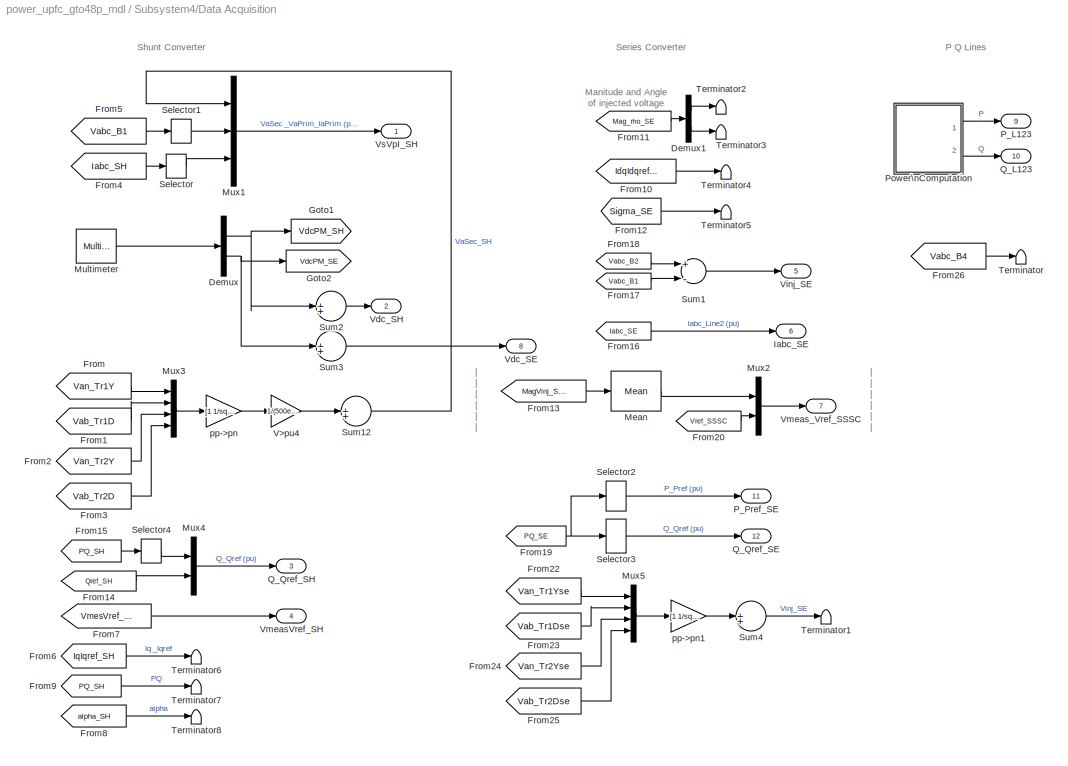
BLOCK [SubSystem] Subsystem4/Data Acquisition
  Ports = [0, 12]
  RequestExecContextInheritance = off
  SID = 169
BLOCK [Demux] Subsystem4/Data Acquisition/Demux
  Outputs = [2 2]
  Ports = [1, 2]
  SID = 170
BLOCK [Demux] Subsystem4/Data Acquisition/Demux1
  Outputs = 2
  Ports = [1, 2]
  SID = 171
BLOCK [From] Subsystem4/Data Acquisition/From
  CloseFcn = tagdialog Close
  GotoTag = Van_Tr1Y
  SID = 173
  TagVisibility = global
BLOCK [From] Subsystem4/Data Acquisition/From1
  CloseFcn = tagdialog Close
  GotoTag = Vab_Tr1D
  SID = 174
  TagVisibility = global
BLOCK [From] Subsystem4/Data Acquisition/From10
  CloseFcn = tagdialog Close
  GotoTag = IdqIdqref_SE
  SID = 175
  TagVisibility = global
BLOCK [From] Subsystem4/Data Acquisition/From11
  CloseFcn = tagdialog Close
  GotoTag = Mag_rho_SE
  SID = 176
  TagVisibility = global
BLOCK [From] Subsystem4/Data Acquisition/From12
  CloseFcn = tagdialog Close
  GotoTag = Sigma_SE
  SID = 177
  TagVisibility = global
BLOCK [From] Subsystem4/Data Acquisition/From13
  CloseFcn = tagdialog Close
  GotoTag = MagVinj_SSSC
  SID = 178
  TagVisibility = global
BLOCK [From] Subsystem4/Data Acquisition/From14
  CloseFcn = tagdialog Close
  GotoTag = Qref_SH
  SID = 179
  TagVisibility = global
BLOCK [From] Subsystem4/Data Acquisition/From15
  CloseFcn = tagdialog Close
  GotoTag = PQ_SH
  SID = 180
  TagVisibility = global
BLOCK [From] Subsystem4/Data Acquisition/From16
  CloseFcn = tagdialog Close
  GotoTag = Iabc_SE
  SID = 181
  TagVisibility = global
BLOCK [From] Subsystem4/Data Acquisition/From17
  CloseFcn = tagdialog Close
  GotoTag = Vabc_B1
  SID = 182
  TagVisibility = global
BLOCK [From] Subsystem4/Data Acquisition/From18
  CloseFcn = tagdialog Close
  GotoTag = Vabc_B2
  SID = 183
  TagVisibility = global
BLOCK [From] Subsystem4/Data Acquisition/From19
  CloseFcn = tagdialog Close
  GotoTag = PQ_SE
  SID = 184
  TagVisibility = global
BLOCK [From] Subsystem4/Data Acquisition/From2
  CloseFcn = tagdialog Close
  GotoTag = Van_Tr2Y
  SID = 185
  TagVisibility = global
BLOCK [From] Subsystem4/Data Acquisition/From20
  CloseFcn = tagdialog Close
  GotoTag = Vref_SSSC
  SID = 186
  TagVisibility = global
BLOCK [From] Subsystem4/Data Acquisition/From22
  CloseFcn = tagdialog Close
  GotoTag = Van_Tr1Yse
  SID = 187
  TagVisibility = global
BLOCK [From] Subsystem4/Data Acquisition/From23
  CloseFcn = tagdialog Close
  GotoTag = Vab_Tr1Dse
  SID = 188
  TagVisibility = global
BLOCK [From] Subsystem4/Data Acquisition/From24
  CloseFcn = tagdialog Close
  GotoTag = Van_Tr2Yse
  SID = 189
  TagVisibility = global
BLOCK [From] Subsystem4/Data Acquisition/From25
  CloseFcn = tagdialog Close
  GotoTag = Vab_Tr2Dse
  SID = 190
  TagVisibility = global
BLOCK [From] Subsystem4/Data Acquisition/From26
  CloseFcn = tagdialog Close
  GotoTag = Vabc_B4
  SID = 191
  TagVisibility = global
BLOCK [From] Subsystem4/Data Acquisition/From3
  CloseFcn = tagdialog Close
  GotoTag = Vab_Tr2D
  SID = 192
  TagVisibility = global
BLOCK [From] Subsystem4/Data Acquisition/From4
  CloseFcn = tagdialog Close
  GotoTag = Iabc_SH
  SID = 193
  TagVisibility = global
BLOCK [From] Subsystem4/Data Acquisition/From5
  CloseFcn = tagdialog Close
  GotoTag = Vabc_B1
  SID = 194
  TagVisibility = global
BLOCK [From] Subsystem4/Data Acquisition/From6
  CloseFcn = tagdialog Close
  GotoTag = IqIqref_SH
  SID = 195
  TagVisibility = global
BLOCK [From] Subsystem4/Data Acquisition/From7
  CloseFcn = tagdialog Close
  GotoTag = VmesVref_SH
  SID = 196
  TagVisibility = global
BLOCK [From] Subsystem4/Data Acquisition/From8
  CloseFcn = tagdialog Close
  GotoTag = alpha_SH
  SID = 197
  TagVisibility = global
BLOCK [From] Subsystem4/Data Acquisition/From9
  CloseFcn = tagdialog Close
  GotoTag = PQ_SH
  SID = 198
  TagVisibility = global
BLOCK [Goto] Subsystem4/Data Acquisition/Goto1
  GotoTag = VdcPM_SH
  SID = 199
  TagVisibility = global
BLOCK [Goto] Subsystem4/Data Acquisition/Goto2
  GotoTag = VdcPM_SE
  SID = 200
  TagVisibility = global
BLOCK [Outport] Subsystem4/Data Acquisition/Iabc_SE
  IconDisplay = Port number
  Port = 6
  SID = 256
BLOCK [Reference] Subsystem4/Data Acquisition/Mean  REF=powerlib_meascontrol/Measurements/Mean
  Freq = 60
  Ports = [1, 1]
  SID = 3495
  SourceBlock = powerlib_meascontrol/Measurements/Mean
  SourceType = Mean
  Ts = Ts
  Vinit = 0
BLOCK [Reference] Subsystem4/Data Acquisition/Multimeter  REF=powerlib/Measurements/Multimeter
  AttributesFormatString = \\n
  AxesSetting = [0,0.1,-100,100]
  Display = 0
  Gain = [1 1 1 1]
  L = 4
  OutputType = Magnitude
  PSBOutputType = 1
  PSBequivalent = 0
  PhasorSimulation = off
  Ports = [0, 1]
  SID = 201
  SavedBlockNames = {}
  SourceBlock = powerlib/Measurements/Multimeter
  SourceType = MultimeterPSB
  Tag = PoWeRsYsTeMmEaSuReMeNt
  sel = [4 2 3 1]
  yselected = {'Ub: Cp_SH','Ub: Cm_SH','Ub: Cp_SE','Ub: Cm_SE'};
BLOCK [Mux] Subsystem4/Data Acquisition/Mux1
  DisplayOption = bar
  Inputs = 3
  Ports = [3, 1]
  SID = 202
BLOCK [Mux] Subsystem4/Data Acquisition/Mux2
  DisplayOption = bar
  Inputs = 2
  Ports = [2, 1]
  SID = 203
BLOCK [Mux] Subsystem4/Data Acquisition/Mux3
  DisplayOption = bar
  Ports = [4, 1]
  SID = 204
BLOCK [Mux] Subsystem4/Data Acquisition/Mux4
  DisplayOption = bar
  Inputs = 2
  Ports = [2, 1]
  SID = 205
BLOCK [Mux] Subsystem4/Data Acquisition/Mux5
  DisplayOption = bar
  Ports = [4, 1]
  SID = 206
BLOCK [Outport] Subsystem4/Data Acquisition/P_L123
  IconDisplay = Port number
  Port = 9
  SID = 259
BLOCK [Outport] Subsystem4/Data Acquisition/P_Pref_SE
  IconDisplay = Port number
  Port = 11
  SID = 261
BLOCK [SubSystem] Subsystem4/Data Acquisition/Power\nComputation
  Ports = [0, 2]
  RequestExecContextInheritance = off
  SID = 207
BLOCK [From] Subsystem4/Data Acquisition/Power\nComputation/From14
  CloseFcn = tagdialog Close
  GotoTag = Iabc_B1
  SID = 211
  TagVisibility = global
BLOCK [From] Subsystem4/Data Acquisition/Power\nComputation/From15
  CloseFcn = tagdialog Close
  GotoTag = Iabc_SE
  SID = 212
  TagVisibility = global
BLOCK [From] Subsystem4/Data Acquisition/Power\nComputation/From16
  CloseFcn = tagdialog Close
  GotoTag = Iabc_SH
  SID = 213
  TagVisibility = global
BLOCK [From] Subsystem4/Data Acquisition/Power\nComputation/From17
  CloseFcn = tagdialog Close
  GotoTag = Vabc_B1
  SID = 214
  TagVisibility = global
BLOCK [From] Subsystem4/Data Acquisition/Power\nComputation/From18
  CloseFcn = tagdialog Close
  GotoTag = Vabc_B2
  SID = 215
  TagVisibility = global
BLOCK [From] Subsystem4/Data Acquisition/Power\nComputation/From19
  CloseFcn = tagdialog Close
  GotoTag = Iabc_B2
  SID = 216
  TagVisibility = global
BLOCK [From] Subsystem4/Data Acquisition/Power\nComputation/From20
  CloseFcn = tagdialog Close
  GotoTag = Vabc_B3
  SID = 217
  TagVisibility = global
BLOCK [From] Subsystem4/Data Acquisition/Power\nComputation/From21
  CloseFcn = tagdialog Close
  GotoTag = Iabc_B3
  SID = 218
  TagVisibility = global
BLOCK [Mux] Subsystem4/Data Acquisition/Power\nComputation/Mux4
  DisplayOption = bar
  Inputs = 6
  Ports = [6, 1]
  SID = 219
BLOCK [Reference] Subsystem4/Data Acquisition/Power\nComputation/Power\n(Positive-Sequence)  REF=powerlib_meascontrol/Measurements/Power\n(Positive-Sequence)
  Freq = 60
  Iinit = [6.575 3.94]
  Ports = [2, 2]
  SID = 3496
  SourceBlock = powerlib_meascontrol/Measurements/Power\n(Positive-Sequence)
  SourceType = Power (Positive-Sequence)
  Ts = Ts
  Vinit = [1, 0]
BLOCK [Reference] Subsystem4/Data Acquisition/Power\nComputation/Power\n(Positive-Sequence)1  REF=powerlib_meascontrol/Measurements/Power\n(Positive-Sequence)
  Freq = 60
  Iinit = [8.72 4.1]
  Ports = [2, 2]
  SID = 3497
  SourceBlock = powerlib_meascontrol/Measurements/Power\n(Positive-Sequence)
  SourceType = Power (Positive-Sequence)
  Ts = Ts
  Vinit = [1, 0]
BLOCK [Reference] Subsystem4/Data Acquisition/Power\nComputation/Power\n(Positive-Sequence)2  REF=powerlib_meascontrol/Measurements/Power\n(Positive-Sequence)
  Freq = 60
  Iinit = [9.605 0.36]
  Ports = [2, 2]
  SID = 3498
  SourceBlock = powerlib_meascontrol/Measurements/Power\n(Positive-Sequence)
  SourceType = Power (Positive-Sequence)
  Ts = Ts
  Vinit = [1, 0]
BLOCK [Outport] Subsystem4/Data Acquisition/Power\nComputation/Ps
  IconDisplay = Port number
  SID = 227
BLOCK [Outport] Subsystem4/Data Acquisition/Power\nComputation/Qs
  IconDisplay = Port number
  Port = 2
  SID = 228
BLOCK [Selector] Subsystem4/Data Acquisition/Power\nComputation/Selector2
  Indices = [1 3 5]
  InputPortWidth = 6
  Ports = [1, 1]
  SID = 220
BLOCK [Selector] Subsystem4/Data Acquisition/Power\nComputation/Selector3
  Indices = [1 3 5]+1
  InputPortWidth = 6
  Ports = [1, 1]
  SID = 221
BLOCK [Sum] Subsystem4/Data Acquisition/Power\nComputation/Sum1
  Inputs = +--
  Ports = [3, 1]
  SID = 222
BLOCK [Gain] Subsystem4/Data Acquisition/Power\nComputation/V>pu2
  Gain = 2/3*100
  SID = 226
BLOCK [Outport] Subsystem4/Data Acquisition/Q_L123
  IconDisplay = Port number
  Port = 10
  SID = 260
BLOCK [Outport] Subsystem4/Data Acquisition/Q_Qref_SE
  IconDisplay = Port number
  Port = 12
  SID = 262
BLOCK [Outport] Subsystem4/Data Acquisition/Q_Qref_SH
  IconDisplay = Port number
  Port = 3
  SID = 253
BLOCK [Selector] Subsystem4/Data Acquisition/Selector
  InputPortWidth = 3
  Ports = [1, 1]
  SID = 229
BLOCK [Selector] Subsystem4/Data Acquisition/Selector1
  InputPortWidth = 3
  Ports = [1, 1]
  SID = 230
BLOCK [Selector] Subsystem4/Data Acquisition/Selector2
  Indices = [1 3]
  InputPortWidth = 4
  Ports = [1, 1]
  SID = 231
BLOCK [Selector] Subsystem4/Data Acquisition/Selector3
  Indices = [2 4]
  InputPortWidth = 4
  Ports = [1, 1]
  SID = 232
BLOCK [Selector] Subsystem4/Data Acquisition/Selector4
  Indices = 2
  InputPortWidth = 2
  Ports = [1, 1]
  SID = 233
BLOCK [Sum] Subsystem4/Data Acquisition/Sum1
  Inputs = +-
  Ports = [2, 1]
  SID = 234
BLOCK [Sum] Subsystem4/Data Acquisition/Sum12
  IconShape = round
  Inputs = 1
  Ports = [1, 1]
  SID = 235
BLOCK [Sum] Subsystem4/Data Acquisition/Sum2
  IconShape = round
  Inputs = 1
  Ports = [1, 1]
  SID = 236
BLOCK [Sum] Subsystem4/Data Acquisition/Sum3
  IconShape = round
  Inputs = 1
  Ports = [1, 1]
  SID = 237
BLOCK [Sum] Subsystem4/Data Acquisition/Sum4
  IconShape = round
  Inputs = 1
  Ports = [1, 1]
  SID = 238
BLOCK [Terminator] Subsystem4/Data Acquisition/Terminator
  SID = 239
BLOCK [Terminator] Subsystem4/Data Acquisition/Terminator1
  SID = 240
BLOCK [Terminator] Subsystem4/Data Acquisition/Terminator2
  SID = 241
BLOCK [Terminator] Subsystem4/Data Acquisition/Terminator3
  SID = 242
BLOCK [Terminator] Subsystem4/Data Acquisition/Terminator4
  SID = 243
BLOCK [Terminator] Subsystem4/Data Acquisition/Terminator5
  SID = 244
BLOCK [Terminator] Subsystem4/Data Acquisition/Terminator6
  SID = 245
BLOCK [Terminator] Subsystem4/Data Acquisition/Terminator7
  SID = 246
BLOCK [Terminator] Subsystem4/Data Acquisition/Terminator8
  SID = 247
BLOCK [Gain] Subsystem4/Data Acquisition/V>pu4
  Gain = 1/(500e3/sqrt(3)*sqrt(2)) * 500/4/15
  SID = 248
BLOCK [Outport] Subsystem4/Data Acquisition/Vdc_SE
  IconDisplay = Port number
  Port = 8
  SID = 258
BLOCK [Outport] Subsystem4/Data Acquisition/Vdc_SH
  IconDisplay = Port number
  Port = 2
  SID = 252
BLOCK [Outport] Subsystem4/Data Acquisition/Vinj_SE
  IconDisplay = Port number
  Port = 5
  SID = 255
BLOCK [Outport] Subsystem4/Data Acquisition/VmeasVref_SH
  IconDisplay = Port number
  Port = 4
  SID = 254
BLOCK [Outport] Subsystem4/Data Acquisition/Vmeas_Vref_SSSC
  IconDisplay = Port number
  Port = 7
  SID = 257
BLOCK [Outport] Subsystem4/Data Acquisition/VsVpI_SH
  IconDisplay = Port number
  SID = 251
BLOCK [Gain] Subsystem4/Data Acquisition/pp->pn
  Gain = [1 1/sqrt(3) 1 1/sqrt(3)]
  SID = 249
BLOCK [Gain] Subsystem4/Data Acquisition/pp->pn1
  Gain = [1 1/sqrt(3) 1 1/sqrt(3)]
  SID = 250
BLOCK [Goto] Subsystem4/Goto
  GotoTag = Display_PQ
  SID = 269
  TagVisibility = global
BLOCK [Goto] Subsystem4/Goto1
  GotoTag = Display_V1
  SID = 270
  TagVisibility = global
BLOCK [Mux] Subsystem4/Mux
  DisplayOption = bar
  Inputs = 2
  Ports = [2, 1]
  SID = 271
BLOCK [Scope] Subsystem4/SSSC
  DataFormat = StructureWithTime
  Floating = off
  LimitDataPoints = off
  NumInputPorts = 6
  Ports = [6]
  SID = 272
  SampleInput = on
  SampleTime = Ts*2
  SaveName = SSSC1
  ShowLegends = off
  TimeRange = 0.8
  YMax = 0.1~15~0.09~17500~1300~10
  YMin = -0.1~-15~0~0~600~-80
  ZoomMode = xonly
BLOCK [Scope] Subsystem4/STATCOM
  DataFormat = StructureWithTime
  Floating = off
  LimitDataPoints = off
  NumInputPorts = 4
  Ports = [4]
  SID = 273
  SampleInput = on
  SampleTime = Ts*2
  SaveName = STATCOM1
  ShowLegends = off
  TimeRange = 0.8
  YMax = 1.5~22000~1.25~1.02
  YMin = -1.25~15500~-1~0.98
  ZoomMode = yonly
BLOCK [Selector] Subsystem4/Selector
  Indices = 2
  InputPortWidth = 3
  Ports = [1, 1]
  SID = 274
BLOCK [Selector] Subsystem4/Selector1
  Indices = 2
  InputPortWidth = 3
  Ports = [1, 1]
  SID = 275
BLOCK [Selector] Subsystem4/Selector2
  InputPortWidth = 2
  Ports = [1, 1]
  SID = 276
BLOCK [Scope] Subsystem4/UPFC
  DataFormat = StructureWithTime
  Floating = off
  LimitDataPoints = off
  NumInputPorts = 4
  Ports = [4]
  SID = 277
  SampleInput = on
  SampleTime = Ts*2
  SaveName = UPFC1
  ShowLegends = off
  TimeRange = 0.8
  YMax = 10.1~0.8~1025~80
  YMin = 8.6~-0.7~650~-70
  ZoomMode = yonly
BLOCK [SubSystem] UPFC Controller
  Ports = [6, 2]
  RequestExecContextInheritance = off
  SID = 278
BLOCK [Constant] UPFC Controller/Constant
  SID = 285
  Value = 2
BLOCK [From] UPFC Controller/From
  CloseFcn = tagdialog Close
  GotoTag = SH_Mode
  SID = 286
  TagVisibility = global
BLOCK [From] UPFC Controller/From1
  CloseFcn = tagdialog Close
  GotoTag = SE_Mode
  SID = 287
  TagVisibility = global
BLOCK [From] UPFC Controller/From2
  CloseFcn = tagdialog Close
  GotoTag = Vref_SH
  SID = 288
  TagVisibility = global
BLOCK [From] UPFC Controller/From3
  CloseFcn = tagdialog Close
  GotoTag = PQref_UPFC
  SID = 289
  TagVisibility = global
BLOCK [From] UPFC Controller/From4
  CloseFcn = tagdialog Close
  GotoTag = Qref_SH
  SID = 290
  TagVisibility = global
BLOCK [From] UPFC Controller/From8
  CloseFcn = tagdialog Close
  GotoTag = Vinj_SSSC
  SID = 291
  TagVisibility = global
BLOCK [Goto] UPFC Controller/Goto2
  GotoTag = rhoRamp_On
  SID = 292
  TagVisibility = global
BLOCK [Inport] UPFC Controller/Iabc_SE
  IconDisplay = Port number
  Port = 4
  PortDimensions = 3
  SID = 282
BLOCK [Inport] UPFC Controller/Iabc_SH 
  IconDisplay = Port number
  Port = 3
  PortDimensions = 3
  SID = 281
BLOCK [Constant] UPFC Controller/ON = 4
  SID = 293
  Value = 0
BLOCK [Constant] UPFC Controller/OpMode
  SID = 294
BLOCK [Outport] UPFC Controller/Pulses_SE
  IconDisplay = Port number
  SID = 3412
BLOCK [Outport] UPFC Controller/Pulses_SH
  IconDisplay = Port number
  Port = 2
  SID = 3413
BLOCK [RelationalOperator] UPFC Controller/Relational\nOperator
  InputSameDT = off
  Operator = ==
  Ports = [2, 1]
  SID = 295
BLOCK [SubSystem] UPFC Controller/SE Control\n(SSSC)
  Ports = [6, 1]
  RequestExecContextInheritance = off
  SID = 296
BLOCK [Abs] UPFC Controller/SE Control\n(SSSC)/Abs
  SID = 303
BLOCK [SubSystem] UPFC Controller/SE Control\n(SSSC)/Discrete\nRate Limiter
  DialogController = POWERSYS.PowerSysDialog
  Ports = [1, 1]
  RequestExecContextInheritance = off
  SID = 304
BLOCK [Inport] UPFC Controller/SE Control\n(SSSC)/Discrete\nRate Limiter/In
  IconDisplay = Port number
  SID = 304:1
BLOCK [Outport] UPFC Controller/SE Control\n(SSSC)/Discrete\nRate Limiter/Out
  IconDisplay = Port number
  SID = 304:6
BLOCK [Saturate] UPFC Controller/SE Control\n(SSSC)/Discrete\nRate Limiter/Saturation
  InputPortMap = u0
  LowerLimit = LowerLimit
  Ports = [1, 1]
  SID = 304:2
  UpperLimit = UpperLimit
BLOCK [Sum] UPFC Controller/SE Control\n(SSSC)/Discrete\nRate Limiter/Sum
  IconShape = round
  Inputs = |++
  Ports = [2, 1]
  SID = 304:3
BLOCK [Sum] UPFC Controller/SE Control\n(SSSC)/Discrete\nRate Limiter/Sum1
  IconShape = round
  Inputs = |+-
  Ports = [2, 1]
  SID = 304:4
BLOCK [UnitDelay] UPFC Controller/SE Control\n(SSSC)/Discrete\nRate Limiter/Unit \nDelay
  InitialCondition = Vinit
  SID = 304:5
  SampleTime = Ts
BLOCK [SubSystem] UPFC Controller/SE Control\n(SSSC)/Firing Pulses\nGenerator
  Ports = [3, 1]
  RequestExecContextInheritance = off
  SID = 305
BLOCK [Gain] UPFC Controller/SE Control\n(SSSC)/Firing Pulses\nGenerator/ Deg->Rad
  Gain = pi/180
  SID = 309
BLOCK [Inport] UPFC Controller/SE Control\n(SSSC)/Firing Pulses\nGenerator/Alpha(rad)
  IconDisplay = Port number
  Port = 2
  PortDimensions = 1
  SID = 307
BLOCK [SubSystem] UPFC Controller/SE Control\n(SSSC)/Firing Pulses\nGenerator/Bridge 1D
  Ports = [4, 1]
  RequestExecContextInheritance = off
  SID = 310
BLOCK [Inport] UPFC Controller/SE Control\n(SSSC)/Firing Pulses\nGenerator/Bridge 1D/Alpha
  IconDisplay = Port number
  Port = 2
  PortDimensions = 1
  SID = 312
BLOCK [Constant] UPFC Controller/SE Control\n(SSSC)/Firing Pulses\nGenerator/Bridge 1D/Constant
  SID = 315
  Value = -2*pi/3
BLOCK [Constant] UPFC Controller/SE Control\n(SSSC)/Firing Pulses\nGenerator/Bridge 1D/Constant1
  SID = 316
  Value = 2*pi/3
BLOCK [Inport] UPFC Controller/SE Control\n(SSSC)/Firing Pulses\nGenerator/Bridge 1D/D_Alpha
  IconDisplay = Port number
  Port = 4
  PortDimensions = 1
  SID = 314
BLOCK [Mux] UPFC Controller/SE Control\n(SSSC)/Firing Pulses\nGenerator/Bridge 1D/Mux1
  DisplayOption = bar
  Inputs = [4 4 4]
  Ports = [3, 1]
  SID = 317
BLOCK [SubSystem] UPFC Controller/SE Control\n(SSSC)/Firing Pulses\nGenerator/Bridge 1D/Phase A
  Ports = [3, 1]
  RequestExecContextInheritance = off
  SID = 318
BLOCK [Constant] UPFC Controller/SE Control\n(SSSC)/Firing Pulses\nGenerator/Bridge 1D/Phase A/Constant1
  SID = 322
  Value = [0 -pi]
BLOCK [Constant] UPFC Controller/SE Control\n(SSSC)/Firing Pulses\nGenerator/Bridge 1D/Phase A/Constant2
  SID = 323
  Value = 2*pi
BLOCK [Constant] UPFC Controller/SE Control\n(SSSC)/Firing Pulses\nGenerator/Bridge 1D/Phase A/Constant3
  SID = 324
  Value = 0
BLOCK [Constant] UPFC Controller/SE Control\n(SSSC)/Firing Pulses\nGenerator/Bridge 1D/Phase A/Constant8
  SID = 325
  Value = pi
BLOCK [Constant] UPFC Controller/SE Control\n(SSSC)/Firing Pulses\nGenerator/Bridge 1D/Phase A/Constant9
  SID = 326
  Value = pi
BLOCK [Inport] UPFC Controller/SE Control\n(SSSC)/Firing Pulses\nGenerator/Bridge 1D/Phase A/D_Alpha
  IconDisplay = Port number
  Port = 3
  PortDimensions = 1
  SID = 321
BLOCK [Gain] UPFC Controller/SE Control\n(SSSC)/Firing Pulses\nGenerator/Bridge 1D/Phase A/Deg->Rad2
  Gain = 0.5
  SID = 327
BLOCK [Gain] UPFC Controller/SE Control\n(SSSC)/Firing Pulses\nGenerator/Bridge 1D/Phase A/Deg->Rad3
  Gain = -1
  SID = 328
BLOCK [Gain] UPFC Controller/SE Control\n(SSSC)/Firing Pulses\nGenerator/Bridge 1D/Phase A/Gain3
  Gain = 2
  SID = 329
BLOCK [Logic] UPFC Controller/SE Control\n(SSSC)/Firing Pulses\nGenerator/Bridge 1D/Phase A/Logical\nOperator
  Ports = [2, 1]
  SID = 330
BLOCK [Logic] UPFC Controller/SE Control\n(SSSC)/Firing Pulses\nGenerator/Bridge 1D/Phase A/Logical\nOperator2
  Operator = NOT
  Ports = [1, 1]
  SID = 331
BLOCK [Math] UPFC Controller/SE Control\n(SSSC)/Firing Pulses\nGenerator/Bridge 1D/Phase A/Math\nFunction
  Operator = mod
  Ports = [2, 1]
  SID = 332
BLOCK [Mux] UPFC Controller/SE Control\n(SSSC)/Firing Pulses\nGenerator/Bridge 1D/Phase A/Mux3
  DisplayOption = bar
  Inputs = [2 2]
  Ports = [2, 1]
  SID = 333
BLOCK [Mux] UPFC Controller/SE Control\n(SSSC)/Firing Pulses\nGenerator/Bridge 1D/Phase A/Mux4
  DisplayOption = bar
  Inputs = 2
  Ports = [2, 1]
  SID = 334
BLOCK [Outport] UPFC Controller/SE Control\n(SSSC)/Firing Pulses\nGenerator/Bridge 1D/Phase A/Pulses
  IconDisplay = Port number
  SID = 343
BLOCK [RelationalOperator] UPFC Controller/SE Control\n(SSSC)/Firing Pulses\nGenerator/Bridge 1D/Phase A/Relational\nOperator
  Ports = [2, 1]
  SID = 335
BLOCK [RelationalOperator] UPFC Controller/SE Control\n(SSSC)/Firing Pulses\nGenerator/Bridge 1D/Phase A/Relational\nOperator1
  Operator = <
  Ports = [2, 1]
  SID = 336
BLOCK [Selector] UPFC Controller/SE Control\n(SSSC)/Firing Pulses\nGenerator/Bridge 1D/Phase A/Selector3
  Indices = [4 1 2 3]
  InputPortWidth = 4
  Ports = [1, 1]
  SID = 337
BLOCK [Sum] UPFC Controller/SE Control\n(SSSC)/Firing Pulses\nGenerator/Bridge 1D/Phase A/Sum2
  Ports = [2, 1]
  SID = 338
BLOCK [Sum] UPFC Controller/SE Control\n(SSSC)/Firing Pulses\nGenerator/Bridge 1D/Phase A/Sum3
  Inputs = +-
  Ports = [2, 1]
  SID = 339
BLOCK [Sum] UPFC Controller/SE Control\n(SSSC)/Firing Pulses\nGenerator/Bridge 1D/Phase A/Sum4
  Ports = [2, 1]
  SID = 340
BLOCK [Sum] UPFC Controller/SE Control\n(SSSC)/Firing Pulses\nGenerator/Bridge 1D/Phase A/Sum5
  Ports = [2, 1]
  SID = 341
BLOCK [Sum] UPFC Controller/SE Control\n(SSSC)/Firing Pulses\nGenerator/Bridge 1D/Phase A/Sum6
  Ports = [2, 1]
  SID = 342
BLOCK [Inport] UPFC Controller/SE Control\n(SSSC)/Firing Pulses\nGenerator/Bridge 1D/Phase A/sigma
  IconDisplay = Port number
  Port = 2
  PortDimensions = 1
  SID = 320
BLOCK [Inport] UPFC Controller/SE Control\n(SSSC)/Firing Pulses\nGenerator/Bridge 1D/Phase A/wt
  IconDisplay = Port number
  PortDimensions = 1
  SID = 319
BLOCK [SubSystem] UPFC Controller/SE Control\n(SSSC)/Firing Pulses\nGenerator/Bridge 1D/Phase B
  Ports = [3, 1]
  RequestExecContextInheritance = off
  SID = 380
BLOCK [Constant] UPFC Controller/SE Control\n(SSSC)/Firing Pulses\nGenerator/Bridge 1D/Phase B/Constant1
  SID = 384
  Value = [0 -pi]
BLOCK [Constant] UPFC Controller/SE Control\n(SSSC)/Firing Pulses\nGenerator/Bridge 1D/Phase B/Constant2
  SID = 385
  Value = 2*pi
BLOCK [Constant] UPFC Controller/SE Control\n(SSSC)/Firing Pulses\nGenerator/Bridge 1D/Phase B/Constant3
  SID = 386
  Value = 0
BLOCK [Constant] UPFC Controller/SE Control\n(SSSC)/Firing Pulses\nGenerator/Bridge 1D/Phase B/Constant8
  SID = 387
  Value = pi
BLOCK [Constant] UPFC Controller/SE Control\n(SSSC)/Firing Pulses\nGenerator/Bridge 1D/Phase B/Constant9
  SID = 388
  Value = pi
BLOCK [Inport] UPFC Controller/SE Control\n(SSSC)/Firing Pulses\nGenerator/Bridge 1D/Phase B/D_Alpha
  IconDisplay = Port number
  Port = 3
  PortDimensions = 1
  SID = 383
BLOCK [Gain] UPFC Controller/SE Control\n(SSSC)/Firing Pulses\nGenerator/Bridge 1D/Phase B/Deg->Rad2
  Gain = 0.5
  SID = 389
BLOCK [Gain] UPFC Controller/SE Control\n(SSSC)/Firing Pulses\nGenerator/Bridge 1D/Phase B/Deg->Rad3
  Gain = -1
  SID = 390
BLOCK [Gain] UPFC Controller/SE Control\n(SSSC)/Firing Pulses\nGenerator/Bridge 1D/Phase B/Gain3
  Gain = 2
  SID = 391
BLOCK [Logic] UPFC Controller/SE Control\n(SSSC)/Firing Pulses\nGenerator/Bridge 1D/Phase B/Logical\nOperator
  Ports = [2, 1]
  SID = 392
BLOCK [Logic] UPFC Controller/SE Control\n(SSSC)/Firing Pulses\nGenerator/Bridge 1D/Phase B/Logical\nOperator2
  Operator = NOT
  Ports = [1, 1]
  SID = 393
BLOCK [Math] UPFC Controller/SE Control\n(SSSC)/Firing Pulses\nGenerator/Bridge 1D/Phase B/Math\nFunction
  Operator = mod
  Ports = [2, 1]
  SID = 394
BLOCK [Mux] UPFC Controller/SE Control\n(SSSC)/Firing Pulses\nGenerator/Bridge 1D/Phase B/Mux3
  DisplayOption = bar
  Inputs = [2 2]
  Ports = [2, 1]
  SID = 395
BLOCK [Mux] UPFC Controller/SE Control\n(SSSC)/Firing Pulses\nGenerator/Bridge 1D/Phase B/Mux4
  DisplayOption = bar
  Inputs = 2
  Ports = [2, 1]
  SID = 396
BLOCK [Outport] UPFC Controller/SE Control\n(SSSC)/Firing Pulses\nGenerator/Bridge 1D/Phase B/Pulses
  IconDisplay = Port number
  SID = 405
BLOCK [RelationalOperator] UPFC Controller/SE Control\n(SSSC)/Firing Pulses\nGenerator/Bridge 1D/Phase B/Relational\nOperator
  Ports = [2, 1]
  SID = 397
BLOCK [RelationalOperator] UPFC Controller/SE Control\n(SSSC)/Firing Pulses\nGenerator/Bridge 1D/Phase B/Relational\nOperator1
  Operator = <
  Ports = [2, 1]
  SID = 398
BLOCK [Selector] UPFC Controller/SE Control\n(SSSC)/Firing Pulses\nGenerator/Bridge 1D/Phase B/Selector3
  Indices = [4 1 2 3]
  InputPortWidth = 4
  Ports = [1, 1]
  SID = 399
BLOCK [Sum] UPFC Controller/SE Control\n(SSSC)/Firing Pulses\nGenerator/Bridge 1D/Phase B/Sum2
  Ports = [2, 1]
  SID = 400
BLOCK [Sum] UPFC Controller/SE Control\n(SSSC)/Firing Pulses\nGenerator/Bridge 1D/Phase B/Sum3
  Inputs = +-
  Ports = [2, 1]
  SID = 401
BLOCK [Sum] UPFC Controller/SE Control\n(SSSC)/Firing Pulses\nGenerator/Bridge 1D/Phase B/Sum4
  Ports = [2, 1]
  SID = 402
BLOCK [Sum] UPFC Controller/SE Control\n(SSSC)/Firing Pulses\nGenerator/Bridge 1D/Phase B/Sum5
  Ports = [2, 1]
  SID = 403
BLOCK [Sum] UPFC Controller/SE Control\n(SSSC)/Firing Pulses\nGenerator/Bridge 1D/Phase B/Sum6
  Ports = [2, 1]
  SID = 404
BLOCK [Inport] UPFC Controller/SE Control\n(SSSC)/Firing Pulses\nGenerator/Bridge 1D/Phase B/sigma
  IconDisplay = Port number
  Port = 2
  PortDimensions = 1
  SID = 382
BLOCK [Inport] UPFC Controller/SE Control\n(SSSC)/Firing Pulses\nGenerator/Bridge 1D/Phase B/wt
  IconDisplay = Port number
  PortDimensions = 1
  SID = 381
BLOCK [SubSystem] UPFC Controller/SE Control\n(SSSC)/Firing Pulses\nGenerator/Bridge 1D/Phase C
  Ports = [3, 1]
  RequestExecContextInheritance = off
  SID = 442
BLOCK [Constant] UPFC Controller/SE Control\n(SSSC)/Firing Pulses\nGenerator/Bridge 1D/Phase C/Constant1
  SID = 446
  Value = [0 -pi]
BLOCK [Constant] UPFC Controller/SE Control\n(SSSC)/Firing Pulses\nGenerator/Bridge 1D/Phase C/Constant2
  SID = 447
  Value = 2*pi
BLOCK [Constant] UPFC Controller/SE Control\n(SSSC)/Firing Pulses\nGenerator/Bridge 1D/Phase C/Constant3
  SID = 448
  Value = 0
BLOCK [Constant] UPFC Controller/SE Control\n(SSSC)/Firing Pulses\nGenerator/Bridge 1D/Phase C/Constant8
  SID = 449
  Value = pi
BLOCK [Constant] UPFC Controller/SE Control\n(SSSC)/Firing Pulses\nGenerator/Bridge 1D/Phase C/Constant9
  SID = 450
  Value = pi
BLOCK [Inport] UPFC Controller/SE Control\n(SSSC)/Firing Pulses\nGenerator/Bridge 1D/Phase C/D_Alpha
  IconDisplay = Port number
  Port = 3
  PortDimensions = 1
  SID = 445
BLOCK [Gain] UPFC Controller/SE Control\n(SSSC)/Firing Pulses\nGenerator/Bridge 1D/Phase C/Deg->Rad2
  Gain = 0.5
  SID = 451
BLOCK [Gain] UPFC Controller/SE Control\n(SSSC)/Firing Pulses\nGenerator/Bridge 1D/Phase C/Deg->Rad3
  Gain = -1
  SID = 452
BLOCK [Gain] UPFC Controller/SE Control\n(SSSC)/Firing Pulses\nGenerator/Bridge 1D/Phase C/Gain3
  Gain = 2
  SID = 453
BLOCK [Logic] UPFC Controller/SE Control\n(SSSC)/Firing Pulses\nGenerator/Bridge 1D/Phase C/Logical\nOperator
  Ports = [2, 1]
  SID = 454
BLOCK [Logic] UPFC Controller/SE Control\n(SSSC)/Firing Pulses\nGenerator/Bridge 1D/Phase C/Logical\nOperator2
  Operator = NOT
  Ports = [1, 1]
  SID = 455
BLOCK [Math] UPFC Controller/SE Control\n(SSSC)/Firing Pulses\nGenerator/Bridge 1D/Phase C/Math\nFunction
  Operator = mod
  Ports = [2, 1]
  SID = 456
BLOCK [Mux] UPFC Controller/SE Control\n(SSSC)/Firing Pulses\nGenerator/Bridge 1D/Phase C/Mux3
  DisplayOption = bar
  Inputs = [2 2]
  Ports = [2, 1]
  SID = 457
BLOCK [Mux] UPFC Controller/SE Control\n(SSSC)/Firing Pulses\nGenerator/Bridge 1D/Phase C/Mux4
  DisplayOption = bar
  Inputs = 2
  Ports = [2, 1]
  SID = 458
BLOCK [Outport] UPFC Controller/SE Control\n(SSSC)/Firing Pulses\nGenerator/Bridge 1D/Phase C/Pulses
  IconDisplay = Port number
  SID = 467
BLOCK [RelationalOperator] UPFC Controller/SE Control\n(SSSC)/Firing Pulses\nGenerator/Bridge 1D/Phase C/Relational\nOperator
  Ports = [2, 1]
  SID = 459
BLOCK [RelationalOperator] UPFC Controller/SE Control\n(SSSC)/Firing Pulses\nGenerator/Bridge 1D/Phase C/Relational\nOperator1
  Operator = <
  Ports = [2, 1]
  SID = 460
BLOCK [Selector] UPFC Controller/SE Control\n(SSSC)/Firing Pulses\nGenerator/Bridge 1D/Phase C/Selector3
  Indices = [4 1 2 3]
  InputPortWidth = 4
  Ports = [1, 1]
  SID = 461
BLOCK [Sum] UPFC Controller/SE Control\n(SSSC)/Firing Pulses\nGenerator/Bridge 1D/Phase C/Sum2
  Ports = [2, 1]
  SID = 462
BLOCK [Sum] UPFC Controller/SE Control\n(SSSC)/Firing Pulses\nGenerator/Bridge 1D/Phase C/Sum3
  Inputs = +-
  Ports = [2, 1]
  SID = 463
BLOCK [Sum] UPFC Controller/SE Control\n(SSSC)/Firing Pulses\nGenerator/Bridge 1D/Phase C/Sum4
  Ports = [2, 1]
  SID = 464
BLOCK [Sum] UPFC Controller/SE Control\n(SSSC)/Firing Pulses\nGenerator/Bridge 1D/Phase C/Sum5
  Ports = [2, 1]
  SID = 465
BLOCK [Sum] UPFC Controller/SE Control\n(SSSC)/Firing Pulses\nGenerator/Bridge 1D/Phase C/Sum6
  Ports = [2, 1]
  SID = 466
BLOCK [Inport] UPFC Controller/SE Control\n(SSSC)/Firing Pulses\nGenerator/Bridge 1D/Phase C/sigma
  IconDisplay = Port number
  Port = 2
  PortDimensions = 1
  SID = 444
BLOCK [Inport] UPFC Controller/SE Control\n(SSSC)/Firing Pulses\nGenerator/Bridge 1D/Phase C/wt
  IconDisplay = Port number
  PortDimensions = 1
  SID = 443
BLOCK [Outport] UPFC Controller/SE Control\n(SSSC)/Firing Pulses\nGenerator/Bridge 1D/Pulses
  IconDisplay = Port number
  SID = 507
BLOCK [Inport] UPFC Controller/SE Control\n(SSSC)/Firing Pulses\nGenerator/Bridge 1D/Sigma
  IconDisplay = Port number
  Port = 3
  PortDimensions = 1
  SID = 313
BLOCK [Sum] UPFC Controller/SE Control\n(SSSC)/Firing Pulses\nGenerator/Bridge 1D/Sum
  Ports = [2, 1]
  SID = 504
BLOCK [Sum] UPFC Controller/SE Control\n(SSSC)/Firing Pulses\nGenerator/Bridge 1D/Sum1
  Ports = [2, 1]
  SID = 505
BLOCK [Sum] UPFC Controller/SE Control\n(SSSC)/Firing Pulses\nGenerator/Bridge 1D/Sum2
  Ports = [2, 1]
  SID = 506
BLOCK [Inport] UPFC Controller/SE Control\n(SSSC)/Firing Pulses\nGenerator/Bridge 1D/wt
  IconDisplay = Port number
  PortDimensions = 1
  SID = 311
BLOCK [SubSystem] UPFC Controller/SE Control\n(SSSC)/Firing Pulses\nGenerator/Bridge 1Y 
  Ports = [4, 1]
  RequestExecContextInheritance = off
  SID = 508
BLOCK [Inport] UPFC Controller/SE Control\n(SSSC)/Firing Pulses\nGenerator/Bridge 1Y /Alpha
  IconDisplay = Port number
  Port = 2
  PortDimensions = 1
  SID = 510
BLOCK [Constant] UPFC Controller/SE Control\n(SSSC)/Firing Pulses\nGenerator/Bridge 1Y /Constant
  SID = 513
  Value = -2*pi/3
BLOCK [Constant] UPFC Controller/SE Control\n(SSSC)/Firing Pulses\nGenerator/Bridge 1Y /Constant1
  SID = 514
  Value = 2*pi/3
BLOCK [Inport] UPFC Controller/SE Control\n(SSSC)/Firing Pulses\nGenerator/Bridge 1Y /D_Alpha
  IconDisplay = Port number
  Port = 4
  PortDimensions = 1
  SID = 512
BLOCK [Mux] UPFC Controller/SE Control\n(SSSC)/Firing Pulses\nGenerator/Bridge 1Y /Mux1
  DisplayOption = bar
  Inputs = [4 4 4]
  Ports = [3, 1]
  SID = 515
BLOCK [SubSystem] UPFC Controller/SE Control\n(SSSC)/Firing Pulses\nGenerator/Bridge 1Y /Phase A
  Ports = [3, 1]
  RequestExecContextInheritance = off
  SID = 516
BLOCK [Constant] UPFC Controller/SE Control\n(SSSC)/Firing Pulses\nGenerator/Bridge 1Y /Phase A/Constant1
  SID = 520
  Value = [0 -pi]
BLOCK [Constant] UPFC Controller/SE Control\n(SSSC)/Firing Pulses\nGenerator/Bridge 1Y /Phase A/Constant2
  SID = 521
  Value = 2*pi
BLOCK [Constant] UPFC Controller/SE Control\n(SSSC)/Firing Pulses\nGenerator/Bridge 1Y /Phase A/Constant3
  SID = 522
  Value = 0
BLOCK [Constant] UPFC Controller/SE Control\n(SSSC)/Firing Pulses\nGenerator/Bridge 1Y /Phase A/Constant8
  SID = 523
  Value = pi
BLOCK [Constant] UPFC Controller/SE Control\n(SSSC)/Firing Pulses\nGenerator/Bridge 1Y /Phase A/Constant9
  SID = 524
  Value = pi
BLOCK [Inport] UPFC Controller/SE Control\n(SSSC)/Firing Pulses\nGenerator/Bridge 1Y /Phase A/D_Alpha
  IconDisplay = Port number
  Port = 3
  PortDimensions = 1
  SID = 519
BLOCK [Gain] UPFC Controller/SE Control\n(SSSC)/Firing Pulses\nGenerator/Bridge 1Y /Phase A/Deg->Rad2
  Gain = 0.5
  SID = 525
BLOCK [Gain] UPFC Controller/SE Control\n(SSSC)/Firing Pulses\nGenerator/Bridge 1Y /Phase A/Deg->Rad3
  Gain = -1
  SID = 526
BLOCK [Gain] UPFC Controller/SE Control\n(SSSC)/Firing Pulses\nGenerator/Bridge 1Y /Phase A/Gain3
  Gain = 2
  SID = 527
BLOCK [Logic] UPFC Controller/SE Control\n(SSSC)/Firing Pulses\nGenerator/Bridge 1Y /Phase A/Logical\nOperator
  Ports = [2, 1]
  SID = 528
BLOCK [Logic] UPFC Controller/SE Control\n(SSSC)/Firing Pulses\nGenerator/Bridge 1Y /Phase A/Logical\nOperator2
  Operator = NOT
  Ports = [1, 1]
  SID = 529
BLOCK [Math] UPFC Controller/SE Control\n(SSSC)/Firing Pulses\nGenerator/Bridge 1Y /Phase A/Math\nFunction
  Operator = mod
  Ports = [2, 1]
  SID = 530
BLOCK [Mux] UPFC Controller/SE Control\n(SSSC)/Firing Pulses\nGenerator/Bridge 1Y /Phase A/Mux3
  DisplayOption = bar
  Inputs = [2 2]
  Ports = [2, 1]
  SID = 531
BLOCK [Mux] UPFC Controller/SE Control\n(SSSC)/Firing Pulses\nGenerator/Bridge 1Y /Phase A/Mux4
  DisplayOption = bar
  Inputs = 2
  Ports = [2, 1]
  SID = 532
BLOCK [Outport] UPFC Controller/SE Control\n(SSSC)/Firing Pulses\nGenerator/Bridge 1Y /Phase A/Pulses
  IconDisplay = Port number
  SID = 541
BLOCK [RelationalOperator] UPFC Controller/SE Control\n(SSSC)/Firing Pulses\nGenerator/Bridge 1Y /Phase A/Relational\nOperator
  Ports = [2, 1]
  SID = 533
BLOCK [RelationalOperator] UPFC Controller/SE Control\n(SSSC)/Firing Pulses\nGenerator/Bridge 1Y /Phase A/Relational\nOperator1
  Operator = <
  Ports = [2, 1]
  SID = 534
BLOCK [Selector] UPFC Controller/SE Control\n(SSSC)/Firing Pulses\nGenerator/Bridge 1Y /Phase A/Selector3
  Indices = [4 1 2 3]
  InputPortWidth = 4
  Ports = [1, 1]
  SID = 535
BLOCK [Sum] UPFC Controller/SE Control\n(SSSC)/Firing Pulses\nGenerator/Bridge 1Y /Phase A/Sum2
  Ports = [2, 1]
  SID = 536
BLOCK [Sum] UPFC Controller/SE Control\n(SSSC)/Firing Pulses\nGenerator/Bridge 1Y /Phase A/Sum3
  Inputs = +-
  Ports = [2, 1]
  SID = 537
BLOCK [Sum] UPFC Controller/SE Control\n(SSSC)/Firing Pulses\nGenerator/Bridge 1Y /Phase A/Sum4
  Ports = [2, 1]
  SID = 538
BLOCK [Sum] UPFC Controller/SE Control\n(SSSC)/Firing Pulses\nGenerator/Bridge 1Y /Phase A/Sum5
  Ports = [2, 1]
  SID = 539
BLOCK [Sum] UPFC Controller/SE Control\n(SSSC)/Firing Pulses\nGenerator/Bridge 1Y /Phase A/Sum6
  Ports = [2, 1]
  SID = 540
BLOCK [Inport] UPFC Controller/SE Control\n(SSSC)/Firing Pulses\nGenerator/Bridge 1Y /Phase A/sigma
  IconDisplay = Port number
  Port = 2
  PortDimensions = 1
  SID = 518
BLOCK [Inport] UPFC Controller/SE Control\n(SSSC)/Firing Pulses\nGenerator/Bridge 1Y /Phase A/wt
  IconDisplay = Port number
  PortDimensions = 1
  SID = 517
BLOCK [SubSystem] UPFC Controller/SE Control\n(SSSC)/Firing Pulses\nGenerator/Bridge 1Y /Phase B
  Ports = [3, 1]
  RequestExecContextInheritance = off
  SID = 578
BLOCK [Constant] UPFC Controller/SE Control\n(SSSC)/Firing Pulses\nGenerator/Bridge 1Y /Phase B/Constant1
  SID = 582
  Value = [0 -pi]
BLOCK [Constant] UPFC Controller/SE Control\n(SSSC)/Firing Pulses\nGenerator/Bridge 1Y /Phase B/Constant2
  SID = 583
  Value = 2*pi
BLOCK [Constant] UPFC Controller/SE Control\n(SSSC)/Firing Pulses\nGenerator/Bridge 1Y /Phase B/Constant3
  SID = 584
  Value = 0
BLOCK [Constant] UPFC Controller/SE Control\n(SSSC)/Firing Pulses\nGenerator/Bridge 1Y /Phase B/Constant8
  SID = 585
  Value = pi
BLOCK [Constant] UPFC Controller/SE Control\n(SSSC)/Firing Pulses\nGenerator/Bridge 1Y /Phase B/Constant9
  SID = 586
  Value = pi
BLOCK [Inport] UPFC Controller/SE Control\n(SSSC)/Firing Pulses\nGenerator/Bridge 1Y /Phase B/D_Alpha
  IconDisplay = Port number
  Port = 3
  PortDimensions = 1
  SID = 581
BLOCK [Gain] UPFC Controller/SE Control\n(SSSC)/Firing Pulses\nGenerator/Bridge 1Y /Phase B/Deg->Rad2
  Gain = 0.5
  SID = 587
BLOCK [Gain] UPFC Controller/SE Control\n(SSSC)/Firing Pulses\nGenerator/Bridge 1Y /Phase B/Deg->Rad3
  Gain = -1
  SID = 588
BLOCK [Gain] UPFC Controller/SE Control\n(SSSC)/Firing Pulses\nGenerator/Bridge 1Y /Phase B/Gain3
  Gain = 2
  SID = 589
BLOCK [Logic] UPFC Controller/SE Control\n(SSSC)/Firing Pulses\nGenerator/Bridge 1Y /Phase B/Logical\nOperator
  Ports = [2, 1]
  SID = 590
BLOCK [Logic] UPFC Controller/SE Control\n(SSSC)/Firing Pulses\nGenerator/Bridge 1Y /Phase B/Logical\nOperator2
  Operator = NOT
  Ports = [1, 1]
  SID = 591
BLOCK [Math] UPFC Controller/SE Control\n(SSSC)/Firing Pulses\nGenerator/Bridge 1Y /Phase B/Math\nFunction
  Operator = mod
  Ports = [2, 1]
  SID = 592
BLOCK [Mux] UPFC Controller/SE Control\n(SSSC)/Firing Pulses\nGenerator/Bridge 1Y /Phase B/Mux3
  DisplayOption = bar
  Inputs = [2 2]
  Ports = [2, 1]
  SID = 593
BLOCK [Mux] UPFC Controller/SE Control\n(SSSC)/Firing Pulses\nGenerator/Bridge 1Y /Phase B/Mux4
  DisplayOption = bar
  Inputs = 2
  Ports = [2, 1]
  SID = 594
BLOCK [Outport] UPFC Controller/SE Control\n(SSSC)/Firing Pulses\nGenerator/Bridge 1Y /Phase B/Pulses
  IconDisplay = Port number
  SID = 603
BLOCK [RelationalOperator] UPFC Controller/SE Control\n(SSSC)/Firing Pulses\nGenerator/Bridge 1Y /Phase B/Relational\nOperator
  Ports = [2, 1]
  SID = 595
BLOCK [RelationalOperator] UPFC Controller/SE Control\n(SSSC)/Firing Pulses\nGenerator/Bridge 1Y /Phase B/Relational\nOperator1
  Operator = <
  Ports = [2, 1]
  SID = 596
BLOCK [Selector] UPFC Controller/SE Control\n(SSSC)/Firing Pulses\nGenerator/Bridge 1Y /Phase B/Selector3
  Indices = [4 1 2 3]
  InputPortWidth = 4
  Ports = [1, 1]
  SID = 597
BLOCK [Sum] UPFC Controller/SE Control\n(SSSC)/Firing Pulses\nGenerator/Bridge 1Y /Phase B/Sum2
  Ports = [2, 1]
  SID = 598
BLOCK [Sum] UPFC Controller/SE Control\n(SSSC)/Firing Pulses\nGenerator/Bridge 1Y /Phase B/Sum3
  Inputs = +-
  Ports = [2, 1]
  SID = 599
BLOCK [Sum] UPFC Controller/SE Control\n(SSSC)/Firing Pulses\nGenerator/Bridge 1Y /Phase B/Sum4
  Ports = [2, 1]
  SID = 600
BLOCK [Sum] UPFC Controller/SE Control\n(SSSC)/Firing Pulses\nGenerator/Bridge 1Y /Phase B/Sum5
  Ports = [2, 1]
  SID = 601
BLOCK [Sum] UPFC Controller/SE Control\n(SSSC)/Firing Pulses\nGenerator/Bridge 1Y /Phase B/Sum6
  Ports = [2, 1]
  SID = 602
BLOCK [Inport] UPFC Controller/SE Control\n(SSSC)/Firing Pulses\nGenerator/Bridge 1Y /Phase B/sigma
  IconDisplay = Port number
  Port = 2
  PortDimensions = 1
  SID = 580
BLOCK [Inport] UPFC Controller/SE Control\n(SSSC)/Firing Pulses\nGenerator/Bridge 1Y /Phase B/wt
  IconDisplay = Port number
  PortDimensions = 1
  SID = 579
BLOCK [SubSystem] UPFC Controller/SE Control\n(SSSC)/Firing Pulses\nGenerator/Bridge 1Y /Phase C
  Ports = [3, 1]
  RequestExecContextInheritance = off
  SID = 640
BLOCK [Constant] UPFC Controller/SE Control\n(SSSC)/Firing Pulses\nGenerator/Bridge 1Y /Phase C/Constant1
  SID = 644
  Value = [0 -pi]
BLOCK [Constant] UPFC Controller/SE Control\n(SSSC)/Firing Pulses\nGenerator/Bridge 1Y /Phase C/Constant2
  SID = 645
  Value = 2*pi
BLOCK [Constant] UPFC Controller/SE Control\n(SSSC)/Firing Pulses\nGenerator/Bridge 1Y /Phase C/Constant3
  SID = 646
  Value = 0
BLOCK [Constant] UPFC Controller/SE Control\n(SSSC)/Firing Pulses\nGenerator/Bridge 1Y /Phase C/Constant8
  SID = 647
  Value = pi
BLOCK [Constant] UPFC Controller/SE Control\n(SSSC)/Firing Pulses\nGenerator/Bridge 1Y /Phase C/Constant9
  SID = 648
  Value = pi
BLOCK [Inport] UPFC Controller/SE Control\n(SSSC)/Firing Pulses\nGenerator/Bridge 1Y /Phase C/D_Alpha
  IconDisplay = Port number
  Port = 3
  PortDimensions = 1
  SID = 643
BLOCK [Gain] UPFC Controller/SE Control\n(SSSC)/Firing Pulses\nGenerator/Bridge 1Y /Phase C/Deg->Rad2
  Gain = 0.5
  SID = 649
BLOCK [Gain] UPFC Controller/SE Control\n(SSSC)/Firing Pulses\nGenerator/Bridge 1Y /Phase C/Deg->Rad3
  Gain = -1
  SID = 650
BLOCK [Gain] UPFC Controller/SE Control\n(SSSC)/Firing Pulses\nGenerator/Bridge 1Y /Phase C/Gain3
  Gain = 2
  SID = 651
BLOCK [Logic] UPFC Controller/SE Control\n(SSSC)/Firing Pulses\nGenerator/Bridge 1Y /Phase C/Logical\nOperator
  Ports = [2, 1]
  SID = 652
BLOCK [Logic] UPFC Controller/SE Control\n(SSSC)/Firing Pulses\nGenerator/Bridge 1Y /Phase C/Logical\nOperator2
  Operator = NOT
  Ports = [1, 1]
  SID = 653
BLOCK [Math] UPFC Controller/SE Control\n(SSSC)/Firing Pulses\nGenerator/Bridge 1Y /Phase C/Math\nFunction
  Operator = mod
  Ports = [2, 1]
  SID = 654
BLOCK [Mux] UPFC Controller/SE Control\n(SSSC)/Firing Pulses\nGenerator/Bridge 1Y /Phase C/Mux3
  DisplayOption = bar
  Inputs = [2 2]
  Ports = [2, 1]
  SID = 655
BLOCK [Mux] UPFC Controller/SE Control\n(SSSC)/Firing Pulses\nGenerator/Bridge 1Y /Phase C/Mux4
  DisplayOption = bar
  Inputs = 2
  Ports = [2, 1]
  SID = 656
BLOCK [Outport] UPFC Controller/SE Control\n(SSSC)/Firing Pulses\nGenerator/Bridge 1Y /Phase C/Pulses
  IconDisplay = Port number
  SID = 665
BLOCK [RelationalOperator] UPFC Controller/SE Control\n(SSSC)/Firing Pulses\nGenerator/Bridge 1Y /Phase C/Relational\nOperator
  Ports = [2, 1]
  SID = 657
BLOCK [RelationalOperator] UPFC Controller/SE Control\n(SSSC)/Firing Pulses\nGenerator/Bridge 1Y /Phase C/Relational\nOperator1
  Operator = <
  Ports = [2, 1]
  SID = 658
BLOCK [Selector] UPFC Controller/SE Control\n(SSSC)/Firing Pulses\nGenerator/Bridge 1Y /Phase C/Selector3
  Indices = [4 1 2 3]
  InputPortWidth = 4
  Ports = [1, 1]
  SID = 659
BLOCK [Sum] UPFC Controller/SE Control\n(SSSC)/Firing Pulses\nGenerator/Bridge 1Y /Phase C/Sum2
  Ports = [2, 1]
  SID = 660
BLOCK [Sum] UPFC Controller/SE Control\n(SSSC)/Firing Pulses\nGenerator/Bridge 1Y /Phase C/Sum3
  Inputs = +-
  Ports = [2, 1]
  SID = 661
BLOCK [Sum] UPFC Controller/SE Control\n(SSSC)/Firing Pulses\nGenerator/Bridge 1Y /Phase C/Sum4
  Ports = [2, 1]
  SID = 662
BLOCK [Sum] UPFC Controller/SE Control\n(SSSC)/Firing Pulses\nGenerator/Bridge 1Y /Phase C/Sum5
  Ports = [2, 1]
  SID = 663
BLOCK [Sum] UPFC Controller/SE Control\n(SSSC)/Firing Pulses\nGenerator/Bridge 1Y /Phase C/Sum6
  Ports = [2, 1]
  SID = 664
BLOCK [Inport] UPFC Controller/SE Control\n(SSSC)/Firing Pulses\nGenerator/Bridge 1Y /Phase C/sigma
  IconDisplay = Port number
  Port = 2
  PortDimensions = 1
  SID = 642
BLOCK [Inport] UPFC Controller/SE Control\n(SSSC)/Firing Pulses\nGenerator/Bridge 1Y /Phase C/wt
  IconDisplay = Port number
  PortDimensions = 1
  SID = 641
BLOCK [Outport] UPFC Controller/SE Control\n(SSSC)/Firing Pulses\nGenerator/Bridge 1Y /Pulses
  IconDisplay = Port number
  SID = 705
BLOCK [Inport] UPFC Controller/SE Control\n(SSSC)/Firing Pulses\nGenerator/Bridge 1Y /Sigma
  IconDisplay = Port number
  Port = 3
  PortDimensions = 1
  SID = 511
BLOCK [Sum] UPFC Controller/SE Control\n(SSSC)/Firing Pulses\nGenerator/Bridge 1Y /Sum
  Ports = [2, 1]
  SID = 702
BLOCK [Sum] UPFC Controller/SE Control\n(SSSC)/Firing Pulses\nGenerator/Bridge 1Y /Sum1
  Ports = [2, 1]
  SID = 703
BLOCK [Sum] UPFC Controller/SE Control\n(SSSC)/Firing Pulses\nGenerator/Bridge 1Y /Sum2
  Ports = [2, 1]
  SID = 704
BLOCK [Inport] UPFC Controller/SE Control\n(SSSC)/Firing Pulses\nGenerator/Bridge 1Y /wt
  IconDisplay = Port number
  PortDimensions = 1
  SID = 509
BLOCK [SubSystem] UPFC Controller/SE Control\n(SSSC)/Firing Pulses\nGenerator/Bridge 2D
  Ports = [4, 1]
  RequestExecContextInheritance = off
  SID = 706
BLOCK [Inport] UPFC Controller/SE Control\n(SSSC)/Firing Pulses\nGenerator/Bridge 2D/Alpha
  IconDisplay = Port number
  Port = 2
  PortDimensions = 1
  SID = 708
BLOCK [Constant] UPFC Controller/SE Control\n(SSSC)/Firing Pulses\nGenerator/Bridge 2D/Constant
  SID = 711
  Value = -2*pi/3
BLOCK [Constant] UPFC Controller/SE Control\n(SSSC)/Firing Pulses\nGenerator/Bridge 2D/Constant1
  SID = 712
  Value = 2*pi/3
BLOCK [Inport] UPFC Controller/SE Control\n(SSSC)/Firing Pulses\nGenerator/Bridge 2D/D_Alpha
  IconDisplay = Port number
  Port = 4
  PortDimensions = 1
  SID = 710
BLOCK [Mux] UPFC Controller/SE Control\n(SSSC)/Firing Pulses\nGenerator/Bridge 2D/Mux1
  DisplayOption = bar
  Inputs = [4 4 4]
  Ports = [3, 1]
  SID = 713
BLOCK [SubSystem] UPFC Controller/SE Control\n(SSSC)/Firing Pulses\nGenerator/Bridge 2D/Phase A
  Ports = [3, 1]
  RequestExecContextInheritance = off
  SID = 714
BLOCK [Constant] UPFC Controller/SE Control\n(SSSC)/Firing Pulses\nGenerator/Bridge 2D/Phase A/Constant1
  SID = 718
  Value = [0 -pi]
BLOCK [Constant] UPFC Controller/SE Control\n(SSSC)/Firing Pulses\nGenerator/Bridge 2D/Phase A/Constant2
  SID = 719
  Value = 2*pi
BLOCK [Constant] UPFC Controller/SE Control\n(SSSC)/Firing Pulses\nGenerator/Bridge 2D/Phase A/Constant3
  SID = 720
  Value = 0
BLOCK [Constant] UPFC Controller/SE Control\n(SSSC)/Firing Pulses\nGenerator/Bridge 2D/Phase A/Constant8
  SID = 721
  Value = pi
BLOCK [Constant] UPFC Controller/SE Control\n(SSSC)/Firing Pulses\nGenerator/Bridge 2D/Phase A/Constant9
  SID = 722
  Value = pi
BLOCK [Inport] UPFC Controller/SE Control\n(SSSC)/Firing Pulses\nGenerator/Bridge 2D/Phase A/D_Alpha
  IconDisplay = Port number
  Port = 3
  PortDimensions = 1
  SID = 717
BLOCK [Gain] UPFC Controller/SE Control\n(SSSC)/Firing Pulses\nGenerator/Bridge 2D/Phase A/Deg->Rad2
  Gain = 0.5
  SID = 723
BLOCK [Gain] UPFC Controller/SE Control\n(SSSC)/Firing Pulses\nGenerator/Bridge 2D/Phase A/Deg->Rad3
  Gain = -1
  SID = 724
BLOCK [Gain] UPFC Controller/SE Control\n(SSSC)/Firing Pulses\nGenerator/Bridge 2D/Phase A/Gain3
  Gain = 2
  SID = 725
BLOCK [Logic] UPFC Controller/SE Control\n(SSSC)/Firing Pulses\nGenerator/Bridge 2D/Phase A/Logical\nOperator
  Ports = [2, 1]
  SID = 726
BLOCK [Logic] UPFC Controller/SE Control\n(SSSC)/Firing Pulses\nGenerator/Bridge 2D/Phase A/Logical\nOperator2
  Operator = NOT
  Ports = [1, 1]
  SID = 727
BLOCK [Math] UPFC Controller/SE Control\n(SSSC)/Firing Pulses\nGenerator/Bridge 2D/Phase A/Math\nFunction
  Operator = mod
  Ports = [2, 1]
  SID = 728
BLOCK [Mux] UPFC Controller/SE Control\n(SSSC)/Firing Pulses\nGenerator/Bridge 2D/Phase A/Mux3
  DisplayOption = bar
  Inputs = [2 2]
  Ports = [2, 1]
  SID = 729
BLOCK [Mux] UPFC Controller/SE Control\n(SSSC)/Firing Pulses\nGenerator/Bridge 2D/Phase A/Mux4
  DisplayOption = bar
  Inputs = 2
  Ports = [2, 1]
  SID = 730
BLOCK [Outport] UPFC Controller/SE Control\n(SSSC)/Firing Pulses\nGenerator/Bridge 2D/Phase A/Pulses
  IconDisplay = Port number
  SID = 739
BLOCK [RelationalOperator] UPFC Controller/SE Control\n(SSSC)/Firing Pulses\nGenerator/Bridge 2D/Phase A/Relational\nOperator
  Ports = [2, 1]
  SID = 731
BLOCK [RelationalOperator] UPFC Controller/SE Control\n(SSSC)/Firing Pulses\nGenerator/Bridge 2D/Phase A/Relational\nOperator1
  Operator = <
  Ports = [2, 1]
  SID = 732
BLOCK [Selector] UPFC Controller/SE Control\n(SSSC)/Firing Pulses\nGenerator/Bridge 2D/Phase A/Selector3
  Indices = [4 1 2 3]
  InputPortWidth = 4
  Ports = [1, 1]
  SID = 733
BLOCK [Sum] UPFC Controller/SE Control\n(SSSC)/Firing Pulses\nGenerator/Bridge 2D/Phase A/Sum2
  Ports = [2, 1]
  SID = 734
BLOCK [Sum] UPFC Controller/SE Control\n(SSSC)/Firing Pulses\nGenerator/Bridge 2D/Phase A/Sum3
  Inputs = +-
  Ports = [2, 1]
  SID = 735
BLOCK [Sum] UPFC Controller/SE Control\n(SSSC)/Firing Pulses\nGenerator/Bridge 2D/Phase A/Sum4
  Ports = [2, 1]
  SID = 736
BLOCK [Sum] UPFC Controller/SE Control\n(SSSC)/Firing Pulses\nGenerator/Bridge 2D/Phase A/Sum5
  Ports = [2, 1]
  SID = 737
BLOCK [Sum] UPFC Controller/SE Control\n(SSSC)/Firing Pulses\nGenerator/Bridge 2D/Phase A/Sum6
  Ports = [2, 1]
  SID = 738
BLOCK [Inport] UPFC Controller/SE Control\n(SSSC)/Firing Pulses\nGenerator/Bridge 2D/Phase A/sigma
  IconDisplay = Port number
  Port = 2
  PortDimensions = 1
  SID = 716
BLOCK [Inport] UPFC Controller/SE Control\n(SSSC)/Firing Pulses\nGenerator/Bridge 2D/Phase A/wt
  IconDisplay = Port number
  PortDimensions = 1
  SID = 715
BLOCK [SubSystem] UPFC Controller/SE Control\n(SSSC)/Firing Pulses\nGenerator/Bridge 2D/Phase B
  Ports = [3, 1]
  RequestExecContextInheritance = off
  SID = 776
BLOCK [Constant] UPFC Controller/SE Control\n(SSSC)/Firing Pulses\nGenerator/Bridge 2D/Phase B/Constant1
  SID = 780
  Value = [0 -pi]
BLOCK [Constant] UPFC Controller/SE Control\n(SSSC)/Firing Pulses\nGenerator/Bridge 2D/Phase B/Constant2
  SID = 781
  Value = 2*pi
BLOCK [Constant] UPFC Controller/SE Control\n(SSSC)/Firing Pulses\nGenerator/Bridge 2D/Phase B/Constant3
  SID = 782
  Value = 0
BLOCK [Constant] UPFC Controller/SE Control\n(SSSC)/Firing Pulses\nGenerator/Bridge 2D/Phase B/Constant8
  SID = 783
  Value = pi
BLOCK [Constant] UPFC Controller/SE Control\n(SSSC)/Firing Pulses\nGenerator/Bridge 2D/Phase B/Constant9
  SID = 784
  Value = pi
BLOCK [Inport] UPFC Controller/SE Control\n(SSSC)/Firing Pulses\nGenerator/Bridge 2D/Phase B/D_Alpha
  IconDisplay = Port number
  Port = 3
  PortDimensions = 1
  SID = 779
BLOCK [Gain] UPFC Controller/SE Control\n(SSSC)/Firing Pulses\nGenerator/Bridge 2D/Phase B/Deg->Rad2
  Gain = 0.5
  SID = 785
BLOCK [Gain] UPFC Controller/SE Control\n(SSSC)/Firing Pulses\nGenerator/Bridge 2D/Phase B/Deg->Rad3
  Gain = -1
  SID = 786
BLOCK [Gain] UPFC Controller/SE Control\n(SSSC)/Firing Pulses\nGenerator/Bridge 2D/Phase B/Gain3
  Gain = 2
  SID = 787
BLOCK [Logic] UPFC Controller/SE Control\n(SSSC)/Firing Pulses\nGenerator/Bridge 2D/Phase B/Logical\nOperator
  Ports = [2, 1]
  SID = 788
BLOCK [Logic] UPFC Controller/SE Control\n(SSSC)/Firing Pulses\nGenerator/Bridge 2D/Phase B/Logical\nOperator2
  Operator = NOT
  Ports = [1, 1]
  SID = 789
BLOCK [Math] UPFC Controller/SE Control\n(SSSC)/Firing Pulses\nGenerator/Bridge 2D/Phase B/Math\nFunction
  Operator = mod
  Ports = [2, 1]
  SID = 790
BLOCK [Mux] UPFC Controller/SE Control\n(SSSC)/Firing Pulses\nGenerator/Bridge 2D/Phase B/Mux3
  DisplayOption = bar
  Inputs = [2 2]
  Ports = [2, 1]
  SID = 791
BLOCK [Mux] UPFC Controller/SE Control\n(SSSC)/Firing Pulses\nGenerator/Bridge 2D/Phase B/Mux4
  DisplayOption = bar
  Inputs = 2
  Ports = [2, 1]
  SID = 792
BLOCK [Outport] UPFC Controller/SE Control\n(SSSC)/Firing Pulses\nGenerator/Bridge 2D/Phase B/Pulses
  IconDisplay = Port number
  SID = 801
BLOCK [RelationalOperator] UPFC Controller/SE Control\n(SSSC)/Firing Pulses\nGenerator/Bridge 2D/Phase B/Relational\nOperator
  Ports = [2, 1]
  SID = 793
BLOCK [RelationalOperator] UPFC Controller/SE Control\n(SSSC)/Firing Pulses\nGenerator/Bridge 2D/Phase B/Relational\nOperator1
  Operator = <
  Ports = [2, 1]
  SID = 794
BLOCK [Selector] UPFC Controller/SE Control\n(SSSC)/Firing Pulses\nGenerator/Bridge 2D/Phase B/Selector3
  Indices = [4 1 2 3]
  InputPortWidth = 4
  Ports = [1, 1]
  SID = 795
BLOCK [Sum] UPFC Controller/SE Control\n(SSSC)/Firing Pulses\nGenerator/Bridge 2D/Phase B/Sum2
  Ports = [2, 1]
  SID = 796
BLOCK [Sum] UPFC Controller/SE Control\n(SSSC)/Firing Pulses\nGenerator/Bridge 2D/Phase B/Sum3
  Inputs = +-
  Ports = [2, 1]
  SID = 797
BLOCK [Sum] UPFC Controller/SE Control\n(SSSC)/Firing Pulses\nGenerator/Bridge 2D/Phase B/Sum4
  Ports = [2, 1]
  SID = 798
BLOCK [Sum] UPFC Controller/SE Control\n(SSSC)/Firing Pulses\nGenerator/Bridge 2D/Phase B/Sum5
  Ports = [2, 1]
  SID = 799
BLOCK [Sum] UPFC Controller/SE Control\n(SSSC)/Firing Pulses\nGenerator/Bridge 2D/Phase B/Sum6
  Ports = [2, 1]
  SID = 800
BLOCK [Inport] UPFC Controller/SE Control\n(SSSC)/Firing Pulses\nGenerator/Bridge 2D/Phase B/sigma
  IconDisplay = Port number
  Port = 2
  PortDimensions = 1
  SID = 778
BLOCK [Inport] UPFC Controller/SE Control\n(SSSC)/Firing Pulses\nGenerator/Bridge 2D/Phase B/wt
  IconDisplay = Port number
  PortDimensions = 1
  SID = 777
BLOCK [SubSystem] UPFC Controller/SE Control\n(SSSC)/Firing Pulses\nGenerator/Bridge 2D/Phase C
  Ports = [3, 1]
  RequestExecContextInheritance = off
  SID = 838
BLOCK [Constant] UPFC Controller/SE Control\n(SSSC)/Firing Pulses\nGenerator/Bridge 2D/Phase C/Constant1
  SID = 842
  Value = [0 -pi]
BLOCK [Constant] UPFC Controller/SE Control\n(SSSC)/Firing Pulses\nGenerator/Bridge 2D/Phase C/Constant2
  SID = 843
  Value = 2*pi
BLOCK [Constant] UPFC Controller/SE Control\n(SSSC)/Firing Pulses\nGenerator/Bridge 2D/Phase C/Constant3
  SID = 844
  Value = 0
BLOCK [Constant] UPFC Controller/SE Control\n(SSSC)/Firing Pulses\nGenerator/Bridge 2D/Phase C/Constant8
  SID = 845
  Value = pi
BLOCK [Constant] UPFC Controller/SE Control\n(SSSC)/Firing Pulses\nGenerator/Bridge 2D/Phase C/Constant9
  SID = 846
  Value = pi
BLOCK [Inport] UPFC Controller/SE Control\n(SSSC)/Firing Pulses\nGenerator/Bridge 2D/Phase C/D_Alpha
  IconDisplay = Port number
  Port = 3
  PortDimensions = 1
  SID = 841
BLOCK [Gain] UPFC Controller/SE Control\n(SSSC)/Firing Pulses\nGenerator/Bridge 2D/Phase C/Deg->Rad2
  Gain = 0.5
  SID = 847
BLOCK [Gain] UPFC Controller/SE Control\n(SSSC)/Firing Pulses\nGenerator/Bridge 2D/Phase C/Deg->Rad3
  Gain = -1
  SID = 848
BLOCK [Gain] UPFC Controller/SE Control\n(SSSC)/Firing Pulses\nGenerator/Bridge 2D/Phase C/Gain3
  Gain = 2
  SID = 849
BLOCK [Logic] UPFC Controller/SE Control\n(SSSC)/Firing Pulses\nGenerator/Bridge 2D/Phase C/Logical\nOperator
  Ports = [2, 1]
  SID = 850
BLOCK [Logic] UPFC Controller/SE Control\n(SSSC)/Firing Pulses\nGenerator/Bridge 2D/Phase C/Logical\nOperator2
  Operator = NOT
  Ports = [1, 1]
  SID = 851
BLOCK [Math] UPFC Controller/SE Control\n(SSSC)/Firing Pulses\nGenerator/Bridge 2D/Phase C/Math\nFunction
  Operator = mod
  Ports = [2, 1]
  SID = 852
BLOCK [Mux] UPFC Controller/SE Control\n(SSSC)/Firing Pulses\nGenerator/Bridge 2D/Phase C/Mux3
  DisplayOption = bar
  Inputs = [2 2]
  Ports = [2, 1]
  SID = 853
BLOCK [Mux] UPFC Controller/SE Control\n(SSSC)/Firing Pulses\nGenerator/Bridge 2D/Phase C/Mux4
  DisplayOption = bar
  Inputs = 2
  Ports = [2, 1]
  SID = 854
BLOCK [Outport] UPFC Controller/SE Control\n(SSSC)/Firing Pulses\nGenerator/Bridge 2D/Phase C/Pulses
  IconDisplay = Port number
  SID = 863
BLOCK [RelationalOperator] UPFC Controller/SE Control\n(SSSC)/Firing Pulses\nGenerator/Bridge 2D/Phase C/Relational\nOperator
  Ports = [2, 1]
  SID = 855
BLOCK [RelationalOperator] UPFC Controller/SE Control\n(SSSC)/Firing Pulses\nGenerator/Bridge 2D/Phase C/Relational\nOperator1
  Operator = <
  Ports = [2, 1]
  SID = 856
BLOCK [Selector] UPFC Controller/SE Control\n(SSSC)/Firing Pulses\nGenerator/Bridge 2D/Phase C/Selector3
  Indices = [4 1 2 3]
  InputPortWidth = 4
  Ports = [1, 1]
  SID = 857
BLOCK [Sum] UPFC Controller/SE Control\n(SSSC)/Firing Pulses\nGenerator/Bridge 2D/Phase C/Sum2
  Ports = [2, 1]
  SID = 858
BLOCK [Sum] UPFC Controller/SE Control\n(SSSC)/Firing Pulses\nGenerator/Bridge 2D/Phase C/Sum3
  Inputs = +-
  Ports = [2, 1]
  SID = 859
BLOCK [Sum] UPFC Controller/SE Control\n(SSSC)/Firing Pulses\nGenerator/Bridge 2D/Phase C/Sum4
  Ports = [2, 1]
  SID = 860
BLOCK [Sum] UPFC Controller/SE Control\n(SSSC)/Firing Pulses\nGenerator/Bridge 2D/Phase C/Sum5
  Ports = [2, 1]
  SID = 861
BLOCK [Sum] UPFC Controller/SE Control\n(SSSC)/Firing Pulses\nGenerator/Bridge 2D/Phase C/Sum6
  Ports = [2, 1]
  SID = 862
BLOCK [Inport] UPFC Controller/SE Control\n(SSSC)/Firing Pulses\nGenerator/Bridge 2D/Phase C/sigma
  IconDisplay = Port number
  Port = 2
  PortDimensions = 1
  SID = 840
BLOCK [Inport] UPFC Controller/SE Control\n(SSSC)/Firing Pulses\nGenerator/Bridge 2D/Phase C/wt
  IconDisplay = Port number
  PortDimensions = 1
  SID = 839
BLOCK [Outport] UPFC Controller/SE Control\n(SSSC)/Firing Pulses\nGenerator/Bridge 2D/Pulses
  IconDisplay = Port number
  SID = 903
BLOCK [Inport] UPFC Controller/SE Control\n(SSSC)/Firing Pulses\nGenerator/Bridge 2D/Sigma
  IconDisplay = Port number
  Port = 3
  PortDimensions = 1
  SID = 709
BLOCK [Sum] UPFC Controller/SE Control\n(SSSC)/Firing Pulses\nGenerator/Bridge 2D/Sum
  Ports = [2, 1]
  SID = 900
BLOCK [Sum] UPFC Controller/SE Control\n(SSSC)/Firing Pulses\nGenerator/Bridge 2D/Sum1
  Ports = [2, 1]
  SID = 901
BLOCK [Sum] UPFC Controller/SE Control\n(SSSC)/Firing Pulses\nGenerator/Bridge 2D/Sum2
  Ports = [2, 1]
  SID = 902
BLOCK [Inport] UPFC Controller/SE Control\n(SSSC)/Firing Pulses\nGenerator/Bridge 2D/wt
  IconDisplay = Port number
  PortDimensions = 1
  SID = 707
BLOCK [SubSystem] UPFC Controller/SE Control\n(SSSC)/Firing Pulses\nGenerator/Bridge 2Y
  Ports = [4, 1]
  RequestExecContextInheritance = off
  SID = 904
BLOCK [Inport] UPFC Controller/SE Control\n(SSSC)/Firing Pulses\nGenerator/Bridge 2Y/Alpha
  IconDisplay = Port number
  Port = 2
  PortDimensions = 1
  SID = 906
BLOCK [Constant] UPFC Controller/SE Control\n(SSSC)/Firing Pulses\nGenerator/Bridge 2Y/Constant
  SID = 909
  Value = -2*pi/3
BLOCK [Constant] UPFC Controller/SE Control\n(SSSC)/Firing Pulses\nGenerator/Bridge 2Y/Constant1
  SID = 910
  Value = 2*pi/3
BLOCK [Inport] UPFC Controller/SE Control\n(SSSC)/Firing Pulses\nGenerator/Bridge 2Y/D_Alpha
  IconDisplay = Port number
  Port = 4
  PortDimensions = 1
  SID = 908
BLOCK [Mux] UPFC Controller/SE Control\n(SSSC)/Firing Pulses\nGenerator/Bridge 2Y/Mux1
  DisplayOption = bar
  Inputs = [4 4 4]
  Ports = [3, 1]
  SID = 911
BLOCK [SubSystem] UPFC Controller/SE Control\n(SSSC)/Firing Pulses\nGenerator/Bridge 2Y/Phase A
  Ports = [3, 1]
  RequestExecContextInheritance = off
  SID = 912
BLOCK [Constant] UPFC Controller/SE Control\n(SSSC)/Firing Pulses\nGenerator/Bridge 2Y/Phase A/Constant1
  SID = 916
  Value = [0 -pi]
BLOCK [Constant] UPFC Controller/SE Control\n(SSSC)/Firing Pulses\nGenerator/Bridge 2Y/Phase A/Constant2
  SID = 917
  Value = 2*pi
BLOCK [Constant] UPFC Controller/SE Control\n(SSSC)/Firing Pulses\nGenerator/Bridge 2Y/Phase A/Constant3
  SID = 918
  Value = 0
BLOCK [Constant] UPFC Controller/SE Control\n(SSSC)/Firing Pulses\nGenerator/Bridge 2Y/Phase A/Constant8
  SID = 919
  Value = pi
BLOCK [Constant] UPFC Controller/SE Control\n(SSSC)/Firing Pulses\nGenerator/Bridge 2Y/Phase A/Constant9
  SID = 920
  Value = pi
BLOCK [Inport] UPFC Controller/SE Control\n(SSSC)/Firing Pulses\nGenerator/Bridge 2Y/Phase A/D_Alpha
  IconDisplay = Port number
  Port = 3
  PortDimensions = 1
  SID = 915
BLOCK [Gain] UPFC Controller/SE Control\n(SSSC)/Firing Pulses\nGenerator/Bridge 2Y/Phase A/Deg->Rad2
  Gain = 0.5
  SID = 921
BLOCK [Gain] UPFC Controller/SE Control\n(SSSC)/Firing Pulses\nGenerator/Bridge 2Y/Phase A/Deg->Rad3
  Gain = -1
  SID = 922
BLOCK [Gain] UPFC Controller/SE Control\n(SSSC)/Firing Pulses\nGenerator/Bridge 2Y/Phase A/Gain3
  Gain = 2
  SID = 923
BLOCK [Logic] UPFC Controller/SE Control\n(SSSC)/Firing Pulses\nGenerator/Bridge 2Y/Phase A/Logical\nOperator
  Ports = [2, 1]
  SID = 924
BLOCK [Logic] UPFC Controller/SE Control\n(SSSC)/Firing Pulses\nGenerator/Bridge 2Y/Phase A/Logical\nOperator2
  Operator = NOT
  Ports = [1, 1]
  SID = 925
BLOCK [Math] UPFC Controller/SE Control\n(SSSC)/Firing Pulses\nGenerator/Bridge 2Y/Phase A/Math\nFunction
  Operator = mod
  Ports = [2, 1]
  SID = 926
BLOCK [Mux] UPFC Controller/SE Control\n(SSSC)/Firing Pulses\nGenerator/Bridge 2Y/Phase A/Mux3
  DisplayOption = bar
  Inputs = [2 2]
  Ports = [2, 1]
  SID = 927
BLOCK [Mux] UPFC Controller/SE Control\n(SSSC)/Firing Pulses\nGenerator/Bridge 2Y/Phase A/Mux4
  DisplayOption = bar
  Inputs = 2
  Ports = [2, 1]
  SID = 928
BLOCK [Outport] UPFC Controller/SE Control\n(SSSC)/Firing Pulses\nGenerator/Bridge 2Y/Phase A/Pulses
  IconDisplay = Port number
  SID = 937
BLOCK [RelationalOperator] UPFC Controller/SE Control\n(SSSC)/Firing Pulses\nGenerator/Bridge 2Y/Phase A/Relational\nOperator
  Ports = [2, 1]
  SID = 929
BLOCK [RelationalOperator] UPFC Controller/SE Control\n(SSSC)/Firing Pulses\nGenerator/Bridge 2Y/Phase A/Relational\nOperator1
  Operator = <
  Ports = [2, 1]
  SID = 930
BLOCK [Selector] UPFC Controller/SE Control\n(SSSC)/Firing Pulses\nGenerator/Bridge 2Y/Phase A/Selector3
  Indices = [4 1 2 3]
  InputPortWidth = 4
  Ports = [1, 1]
  SID = 931
BLOCK [Sum] UPFC Controller/SE Control\n(SSSC)/Firing Pulses\nGenerator/Bridge 2Y/Phase A/Sum2
  Ports = [2, 1]
  SID = 932
BLOCK [Sum] UPFC Controller/SE Control\n(SSSC)/Firing Pulses\nGenerator/Bridge 2Y/Phase A/Sum3
  Inputs = +-
  Ports = [2, 1]
  SID = 933
BLOCK [Sum] UPFC Controller/SE Control\n(SSSC)/Firing Pulses\nGenerator/Bridge 2Y/Phase A/Sum4
  Ports = [2, 1]
  SID = 934
BLOCK [Sum] UPFC Controller/SE Control\n(SSSC)/Firing Pulses\nGenerator/Bridge 2Y/Phase A/Sum5
  Ports = [2, 1]
  SID = 935
BLOCK [Sum] UPFC Controller/SE Control\n(SSSC)/Firing Pulses\nGenerator/Bridge 2Y/Phase A/Sum6
  Ports = [2, 1]
  SID = 936
BLOCK [Inport] UPFC Controller/SE Control\n(SSSC)/Firing Pulses\nGenerator/Bridge 2Y/Phase A/sigma
  IconDisplay = Port number
  Port = 2
  PortDimensions = 1
  SID = 914
BLOCK [Inport] UPFC Controller/SE Control\n(SSSC)/Firing Pulses\nGenerator/Bridge 2Y/Phase A/wt
  IconDisplay = Port number
  PortDimensions = 1
  SID = 913
BLOCK [SubSystem] UPFC Controller/SE Control\n(SSSC)/Firing Pulses\nGenerator/Bridge 2Y/Phase B
  Ports = [3, 1]
  RequestExecContextInheritance = off
  SID = 974
BLOCK [Constant] UPFC Controller/SE Control\n(SSSC)/Firing Pulses\nGenerator/Bridge 2Y/Phase B/Constant1
  SID = 978
  Value = [0 -pi]
BLOCK [Constant] UPFC Controller/SE Control\n(SSSC)/Firing Pulses\nGenerator/Bridge 2Y/Phase B/Constant2
  SID = 979
  Value = 2*pi
BLOCK [Constant] UPFC Controller/SE Control\n(SSSC)/Firing Pulses\nGenerator/Bridge 2Y/Phase B/Constant3
  SID = 980
  Value = 0
BLOCK [Constant] UPFC Controller/SE Control\n(SSSC)/Firing Pulses\nGenerator/Bridge 2Y/Phase B/Constant8
  SID = 981
  Value = pi
BLOCK [Constant] UPFC Controller/SE Control\n(SSSC)/Firing Pulses\nGenerator/Bridge 2Y/Phase B/Constant9
  SID = 982
  Value = pi
BLOCK [Inport] UPFC Controller/SE Control\n(SSSC)/Firing Pulses\nGenerator/Bridge 2Y/Phase B/D_Alpha
  IconDisplay = Port number
  Port = 3
  PortDimensions = 1
  SID = 977
BLOCK [Gain] UPFC Controller/SE Control\n(SSSC)/Firing Pulses\nGenerator/Bridge 2Y/Phase B/Deg->Rad2
  Gain = 0.5
  SID = 983
BLOCK [Gain] UPFC Controller/SE Control\n(SSSC)/Firing Pulses\nGenerator/Bridge 2Y/Phase B/Deg->Rad3
  Gain = -1
  SID = 984
BLOCK [Gain] UPFC Controller/SE Control\n(SSSC)/Firing Pulses\nGenerator/Bridge 2Y/Phase B/Gain3
  Gain = 2
  SID = 985
BLOCK [Logic] UPFC Controller/SE Control\n(SSSC)/Firing Pulses\nGenerator/Bridge 2Y/Phase B/Logical\nOperator
  Ports = [2, 1]
  SID = 986
BLOCK [Logic] UPFC Controller/SE Control\n(SSSC)/Firing Pulses\nGenerator/Bridge 2Y/Phase B/Logical\nOperator2
  Operator = NOT
  Ports = [1, 1]
  SID = 987
BLOCK [Math] UPFC Controller/SE Control\n(SSSC)/Firing Pulses\nGenerator/Bridge 2Y/Phase B/Math\nFunction
  Operator = mod
  Ports = [2, 1]
  SID = 988
BLOCK [Mux] UPFC Controller/SE Control\n(SSSC)/Firing Pulses\nGenerator/Bridge 2Y/Phase B/Mux3
  DisplayOption = bar
  Inputs = [2 2]
  Ports = [2, 1]
  SID = 989
BLOCK [Mux] UPFC Controller/SE Control\n(SSSC)/Firing Pulses\nGenerator/Bridge 2Y/Phase B/Mux4
  DisplayOption = bar
  Inputs = 2
  Ports = [2, 1]
  SID = 990
BLOCK [Outport] UPFC Controller/SE Control\n(SSSC)/Firing Pulses\nGenerator/Bridge 2Y/Phase B/Pulses
  IconDisplay = Port number
  SID = 999
BLOCK [RelationalOperator] UPFC Controller/SE Control\n(SSSC)/Firing Pulses\nGenerator/Bridge 2Y/Phase B/Relational\nOperator
  Ports = [2, 1]
  SID = 991
BLOCK [RelationalOperator] UPFC Controller/SE Control\n(SSSC)/Firing Pulses\nGenerator/Bridge 2Y/Phase B/Relational\nOperator1
  Operator = <
  Ports = [2, 1]
  SID = 992
BLOCK [Selector] UPFC Controller/SE Control\n(SSSC)/Firing Pulses\nGenerator/Bridge 2Y/Phase B/Selector3
  Indices = [4 1 2 3]
  InputPortWidth = 4
  Ports = [1, 1]
  SID = 993
BLOCK [Sum] UPFC Controller/SE Control\n(SSSC)/Firing Pulses\nGenerator/Bridge 2Y/Phase B/Sum2
  Ports = [2, 1]
  SID = 994
BLOCK [Sum] UPFC Controller/SE Control\n(SSSC)/Firing Pulses\nGenerator/Bridge 2Y/Phase B/Sum3
  Inputs = +-
  Ports = [2, 1]
  SID = 995
BLOCK [Sum] UPFC Controller/SE Control\n(SSSC)/Firing Pulses\nGenerator/Bridge 2Y/Phase B/Sum4
  Ports = [2, 1]
  SID = 996
BLOCK [Sum] UPFC Controller/SE Control\n(SSSC)/Firing Pulses\nGenerator/Bridge 2Y/Phase B/Sum5
  Ports = [2, 1]
  SID = 997
BLOCK [Sum] UPFC Controller/SE Control\n(SSSC)/Firing Pulses\nGenerator/Bridge 2Y/Phase B/Sum6
  Ports = [2, 1]
  SID = 998
BLOCK [Inport] UPFC Controller/SE Control\n(SSSC)/Firing Pulses\nGenerator/Bridge 2Y/Phase B/sigma
  IconDisplay = Port number
  Port = 2
  PortDimensions = 1
  SID = 976
BLOCK [Inport] UPFC Controller/SE Control\n(SSSC)/Firing Pulses\nGenerator/Bridge 2Y/Phase B/wt
  IconDisplay = Port number
  PortDimensions = 1
  SID = 975
BLOCK [SubSystem] UPFC Controller/SE Control\n(SSSC)/Firing Pulses\nGenerator/Bridge 2Y/Phase C
  Ports = [3, 1]
  RequestExecContextInheritance = off
  SID = 1036
BLOCK [Constant] UPFC Controller/SE Control\n(SSSC)/Firing Pulses\nGenerator/Bridge 2Y/Phase C/Constant1
  SID = 1040
  Value = [0 -pi]
BLOCK [Constant] UPFC Controller/SE Control\n(SSSC)/Firing Pulses\nGenerator/Bridge 2Y/Phase C/Constant2
  SID = 1041
  Value = 2*pi
BLOCK [Constant] UPFC Controller/SE Control\n(SSSC)/Firing Pulses\nGenerator/Bridge 2Y/Phase C/Constant3
  SID = 1042
  Value = 0
BLOCK [Constant] UPFC Controller/SE Control\n(SSSC)/Firing Pulses\nGenerator/Bridge 2Y/Phase C/Constant8
  SID = 1043
  Value = pi
BLOCK [Constant] UPFC Controller/SE Control\n(SSSC)/Firing Pulses\nGenerator/Bridge 2Y/Phase C/Constant9
  SID = 1044
  Value = pi
BLOCK [Inport] UPFC Controller/SE Control\n(SSSC)/Firing Pulses\nGenerator/Bridge 2Y/Phase C/D_Alpha
  IconDisplay = Port number
  Port = 3
  PortDimensions = 1
  SID = 1039
BLOCK [Gain] UPFC Controller/SE Control\n(SSSC)/Firing Pulses\nGenerator/Bridge 2Y/Phase C/Deg->Rad2
  Gain = 0.5
  SID = 1045
BLOCK [Gain] UPFC Controller/SE Control\n(SSSC)/Firing Pulses\nGenerator/Bridge 2Y/Phase C/Deg->Rad3
  Gain = -1
  SID = 1046
BLOCK [Gain] UPFC Controller/SE Control\n(SSSC)/Firing Pulses\nGenerator/Bridge 2Y/Phase C/Gain3
  Gain = 2
  SID = 1047
BLOCK [Logic] UPFC Controller/SE Control\n(SSSC)/Firing Pulses\nGenerator/Bridge 2Y/Phase C/Logical\nOperator
  Ports = [2, 1]
  SID = 1048
BLOCK [Logic] UPFC Controller/SE Control\n(SSSC)/Firing Pulses\nGenerator/Bridge 2Y/Phase C/Logical\nOperator2
  Operator = NOT
  Ports = [1, 1]
  SID = 1049
BLOCK [Math] UPFC Controller/SE Control\n(SSSC)/Firing Pulses\nGenerator/Bridge 2Y/Phase C/Math\nFunction
  Operator = mod
  Ports = [2, 1]
  SID = 1050
BLOCK [Mux] UPFC Controller/SE Control\n(SSSC)/Firing Pulses\nGenerator/Bridge 2Y/Phase C/Mux3
  DisplayOption = bar
  Inputs = [2 2]
  Ports = [2, 1]
  SID = 1051
BLOCK [Mux] UPFC Controller/SE Control\n(SSSC)/Firing Pulses\nGenerator/Bridge 2Y/Phase C/Mux4
  DisplayOption = bar
  Inputs = 2
  Ports = [2, 1]
  SID = 1052
BLOCK [Outport] UPFC Controller/SE Control\n(SSSC)/Firing Pulses\nGenerator/Bridge 2Y/Phase C/Pulses
  IconDisplay = Port number
  SID = 1061
BLOCK [RelationalOperator] UPFC Controller/SE Control\n(SSSC)/Firing Pulses\nGenerator/Bridge 2Y/Phase C/Relational\nOperator
  Ports = [2, 1]
  SID = 1053
BLOCK [RelationalOperator] UPFC Controller/SE Control\n(SSSC)/Firing Pulses\nGenerator/Bridge 2Y/Phase C/Relational\nOperator1
  Operator = <
  Ports = [2, 1]
  SID = 1054
BLOCK [Selector] UPFC Controller/SE Control\n(SSSC)/Firing Pulses\nGenerator/Bridge 2Y/Phase C/Selector3
  Indices = [4 1 2 3]
  InputPortWidth = 4
  Ports = [1, 1]
  SID = 1055
BLOCK [Sum] UPFC Controller/SE Control\n(SSSC)/Firing Pulses\nGenerator/Bridge 2Y/Phase C/Sum2
  Ports = [2, 1]
  SID = 1056
BLOCK [Sum] UPFC Controller/SE Control\n(SSSC)/Firing Pulses\nGenerator/Bridge 2Y/Phase C/Sum3
  Inputs = +-
  Ports = [2, 1]
  SID = 1057
BLOCK [Sum] UPFC Controller/SE Control\n(SSSC)/Firing Pulses\nGenerator/Bridge 2Y/Phase C/Sum4
  Ports = [2, 1]
  SID = 1058
BLOCK [Sum] UPFC Controller/SE Control\n(SSSC)/Firing Pulses\nGenerator/Bridge 2Y/Phase C/Sum5
  Ports = [2, 1]
  SID = 1059
BLOCK [Sum] UPFC Controller/SE Control\n(SSSC)/Firing Pulses\nGenerator/Bridge 2Y/Phase C/Sum6
  Ports = [2, 1]
  SID = 1060
BLOCK [Inport] UPFC Controller/SE Control\n(SSSC)/Firing Pulses\nGenerator/Bridge 2Y/Phase C/sigma
  IconDisplay = Port number
  Port = 2
  PortDimensions = 1
  SID = 1038
BLOCK [Inport] UPFC Controller/SE Control\n(SSSC)/Firing Pulses\nGenerator/Bridge 2Y/Phase C/wt
  IconDisplay = Port number
  PortDimensions = 1
  SID = 1037
BLOCK [Outport] UPFC Controller/SE Control\n(SSSC)/Firing Pulses\nGenerator/Bridge 2Y/Pulses
  IconDisplay = Port number
  SID = 1101
BLOCK [Inport] UPFC Controller/SE Control\n(SSSC)/Firing Pulses\nGenerator/Bridge 2Y/Sigma
  IconDisplay = Port number
  Port = 3
  PortDimensions = 1
  SID = 907
BLOCK [Sum] UPFC Controller/SE Control\n(SSSC)/Firing Pulses\nGenerator/Bridge 2Y/Sum
  Ports = [2, 1]
  SID = 1098
BLOCK [Sum] UPFC Controller/SE Control\n(SSSC)/Firing Pulses\nGenerator/Bridge 2Y/Sum1
  Ports = [2, 1]
  SID = 1099
BLOCK [Sum] UPFC Controller/SE Control\n(SSSC)/Firing Pulses\nGenerator/Bridge 2Y/Sum2
  Ports = [2, 1]
  SID = 1100
BLOCK [Inport] UPFC Controller/SE Control\n(SSSC)/Firing Pulses\nGenerator/Bridge 2Y/wt
  IconDisplay = Port number
  PortDimensions = 1
  SID = 905
BLOCK [Constant] UPFC Controller/SE Control\n(SSSC)/Firing Pulses\nGenerator/Constant
  SID = 1102
  Value = [0 -30 -15 -45]*pi/180 + 7.5*pi/180
BLOCK [Constant] UPFC Controller/SE Control\n(SSSC)/Firing Pulses\nGenerator/Constant1
  SID = 1103
  Value = 0
BLOCK [Gain] UPFC Controller/SE Control\n(SSSC)/Firing Pulses\nGenerator/Deg->Rad 
  Gain = pi/180
  SID = 1104
BLOCK [Demux] UPFC Controller/SE Control\n(SSSC)/Firing Pulses\nGenerator/Demux
  Ports = [1, 4]
  SID = 1105
BLOCK [Mux] UPFC Controller/SE Control\n(SSSC)/Firing Pulses\nGenerator/Mux
  DisplayOption = bar
  Inputs = [12 12 12 12]
  Ports = [4, 1]
  SID = 1106
BLOCK [Outport] UPFC Controller/SE Control\n(SSSC)/Firing Pulses\nGenerator/Pulses
  IconDisplay = Port number
  SID = 1108
BLOCK [Inport] UPFC Controller/SE Control\n(SSSC)/Firing Pulses\nGenerator/Sigma
  IconDisplay = Port number
  PortDimensions = 1
  SID = 306
BLOCK [Sum] UPFC Controller/SE Control\n(SSSC)/Firing Pulses\nGenerator/Sum
  Ports = [2, 1]
  SID = 1107
BLOCK [Inport] UPFC Controller/SE Control\n(SSSC)/Firing Pulses\nGenerator/wt
  IconDisplay = Port number
  Port = 3
  PortDimensions = 1
  SID = 308
BLOCK [Goto] UPFC Controller/SE Control\n(SSSC)/Goto
  GotoTag = Vref_SSSC
  SID = 1109
  TagVisibility = global
BLOCK [Goto] UPFC Controller/SE Control\n(SSSC)/Goto1
  GotoTag = MagVinj_SSSC
  SID = 1110
  TagVisibility = global
BLOCK [Inport] UPFC Controller/SE Control\n(SSSC)/Iabc
  IconDisplay = Port number
  Port = 3
  PortDimensions = 3
  SID = 299
BLOCK [SubSystem] UPFC Controller/SE Control\n(SSSC)/Measurement\nSystem
  Ports = [4, 2]
  RequestExecContextInheritance = off
  SID = 1111
BLOCK [Reference] UPFC Controller/SE Control\n(SSSC)/Measurement\nSystem/Cartesian to\nPolar  REF=simulink_extras/Transformations/Cartesian to\nPolar
  Ports = [2, 2]
  SID = 1116
  SourceBlock = simulink_extras/Transformations/Cartesian to\nPolar
  SourceType = Cart2Polar
BLOCK [Reference] UPFC Controller/SE Control\n(SSSC)/Measurement\nSystem/Cartesian to\nPolar1  REF=simulink_extras/Transformations/Cartesian to\nPolar
  Ports = [2, 2]
  SID = 1117
  SourceBlock = simulink_extras/Transformations/Cartesian to\nPolar
  SourceType = Cart2Polar
BLOCK [Demux] UPFC Controller/SE Control\n(SSSC)/Measurement\nSystem/Demux
  Outputs = 3
  Ports = [1, 3]
  SID = 1118
BLOCK [Demux] UPFC Controller/SE Control\n(SSSC)/Measurement\nSystem/Demux1
  Outputs = 3
  Ports = [1, 3]
  SID = 1119
BLOCK [Inport] UPFC Controller/SE Control\n(SSSC)/Measurement\nSystem/Iabc
  IconDisplay = Port number
  Port = 4
  PortDimensions = 3
  SID = 1115
BLOCK [Outport] UPFC Controller/SE Control\n(SSSC)/Measurement\nSystem/Mag_Vinj
  IconDisplay = Port number
  SID = 1130
BLOCK [Sum] UPFC Controller/SE Control\n(SSSC)/Measurement\nSystem/Sum
  IconShape = round
  InputSameDT = off
  Inputs = |+-
  OutDataTypeStr = Inherit: Inherit via internal rule
  Ports = [2, 1]
  SID = 1121
BLOCK [Terminator] UPFC Controller/SE Control\n(SSSC)/Measurement\nSystem/Terminator
  SID = 1122
BLOCK [Terminator] UPFC Controller/SE Control\n(SSSC)/Measurement\nSystem/Terminator1
  SID = 1123
BLOCK [Terminator] UPFC Controller/SE Control\n(SSSC)/Measurement\nSystem/Terminator2
  SID = 1124
BLOCK [Terminator] UPFC Controller/SE Control\n(SSSC)/Measurement\nSystem/Terminator3
  SID = 1125
BLOCK [Inport] UPFC Controller/SE Control\n(SSSC)/Measurement\nSystem/V1abc
  IconDisplay = Port number
  Port = 2
  PortDimensions = 3
  SID = 1113
BLOCK [Inport] UPFC Controller/SE Control\n(SSSC)/Measurement\nSystem/V2abc
  IconDisplay = Port number
  Port = 3
  PortDimensions = 3
  SID = 1114
BLOCK [Reference] UPFC Controller/SE Control\n(SSSC)/Measurement\nSystem/abc to dq0  REF=powerlib_meascontrol/Transformations/abc to dq0
  Alignment = 90 degrees behind phase A axis
  Ports = [2, 1]
  SID = 3493
  SourceBlock = powerlib_meascontrol/Transformations/abc to dq0
  SourceType = abc to dq0 Transformation
BLOCK [Reference] UPFC Controller/SE Control\n(SSSC)/Measurement\nSystem/abc to dq1  REF=powerlib_meascontrol/Transformations/abc to dq0
  Alignment = 90 degrees behind phase A axis
  Ports = [2, 1]
  SID = 3494
  SourceBlock = powerlib_meascontrol/Transformations/abc to dq0
  SourceType = abc to dq0 Transformation
BLOCK [Outport] UPFC Controller/SE Control\n(SSSC)/Measurement\nSystem/theta_I
  IconDisplay = Port number
  Port = 2
  SID = 1131
BLOCK [Inport] UPFC Controller/SE Control\n(SSSC)/Measurement\nSystem/wt
  IconDisplay = Port number
  PortDimensions = 1
  SID = 1112
BLOCK [Inport] UPFC Controller/SE Control\n(SSSC)/OpMode
  IconDisplay = Port number
  Port = 4
  PortDimensions = 1
  SID = 300
BLOCK [SubSystem] UPFC Controller/SE Control\n(SSSC)/PI \nController
  DialogController = POWERSYS.PowerSysDialog
  Ports = [1, 1]
  RequestExecContextInheritance = off
  SID = 1132
BLOCK [DiscreteIntegrator] UPFC Controller/SE Control\n(SSSC)/PI \nController/Discrete-Time\nIntegrator
  ICPrevOutput = DiscIntNeverNeededParam
  ICPrevScaledInput = DiscIntNeverNeededParam
  InitialCondition = Init
  LimitOutput = on
  LowerSaturationLimit = LowerLimit
  Ports = [1, 1]
  SID = 1132:2
  SampleTime = Ts
  UpperSaturationLimit = UpperLimit
BLOCK [Inport] UPFC Controller/SE Control\n(SSSC)/PI \nController/Error
  IconDisplay = Port number
  SID = 1132:1
  SampleTime = Ts
BLOCK [Gain] UPFC Controller/SE Control\n(SSSC)/PI \nController/Kp4
  Gain = Kp
  SID = 1132:3
  SampleTime = Ts
BLOCK [Gain] UPFC Controller/SE Control\n(SSSC)/PI \nController/Kp5
  Gain = Ki
  SID = 1132:4
  SampleTime = Ts
BLOCK [Outport] UPFC Controller/SE Control\n(SSSC)/PI \nController/Out
  IconDisplay = Port number
  InitialOutput = 0
  SID = 1132:8
  SampleTime = Ts
BLOCK [Saturate] UPFC Controller/SE Control\n(SSSC)/PI \nController/Saturation2
  InputPortMap = u0
  LowerLimit = LowerLimit
  Ports = [1, 1]
  SID = 1132:5
  SampleTime = Ts
  UpperLimit = UpperLimit
BLOCK [Sum] UPFC Controller/SE Control\n(SSSC)/PI \nController/Sum6
  Ports = [2, 1]
  SID = 1132:6
  SampleTime = Ts
BLOCK [ZeroOrderHold] UPFC Controller/SE Control\n(SSSC)/PI \nController/Zero-Order\nHold
  SID = 1132:7
  SampleTime = Ts
BLOCK [SubSystem] UPFC Controller/SE Control\n(SSSC)/PI \nController1
  DialogController = POWERSYS.PowerSysDialog
  Ports = [1, 1]
  RequestExecContextInheritance = off
  SID = 1133
BLOCK [DiscreteIntegrator] UPFC Controller/SE Control\n(SSSC)/PI \nController1/Discrete-Time\nIntegrator
  ICPrevOutput = DiscIntNeverNeededParam
  ICPrevScaledInput = DiscIntNeverNeededParam
  InitialCondition = Init
  LimitOutput = on
  LowerSaturationLimit = LowerLimit
  Ports = [1, 1]
  SID = 1133:2
  SampleTime = Ts
  UpperSaturationLimit = UpperLimit
BLOCK [Inport] UPFC Controller/SE Control\n(SSSC)/PI \nController1/Error
  IconDisplay = Port number
  SID = 1133:1
  SampleTime = Ts
BLOCK [Gain] UPFC Controller/SE Control\n(SSSC)/PI \nController1/Kp4
  Gain = Kp
  SID = 1133:3
  SampleTime = Ts
BLOCK [Gain] UPFC Controller/SE Control\n(SSSC)/PI \nController1/Kp5
  Gain = Ki
  SID = 1133:4
  SampleTime = Ts
BLOCK [Outport] UPFC Controller/SE Control\n(SSSC)/PI \nController1/Out
  IconDisplay = Port number
  InitialOutput = 0
  SID = 1133:8
  SampleTime = Ts
BLOCK [Saturate] UPFC Controller/SE Control\n(SSSC)/PI \nController1/Saturation2
  InputPortMap = u0
  LowerLimit = LowerLimit
  Ports = [1, 1]
  SID = 1133:5
  SampleTime = Ts
  UpperLimit = UpperLimit
BLOCK [Sum] UPFC Controller/SE Control\n(SSSC)/PI \nController1/Sum6
  Ports = [2, 1]
  SID = 1133:6
  SampleTime = Ts
BLOCK [ZeroOrderHold] UPFC Controller/SE Control\n(SSSC)/PI \nController1/Zero-Order\nHold
  SID = 1133:7
  SampleTime = Ts
BLOCK [SubSystem] UPFC Controller/SE Control\n(SSSC)/PLL1
  Ports = [1, 2]
  RequestExecContextInheritance = off
  SID = 3476
BLOCK [Constant] UPFC Controller/SE Control\n(SSSC)/PLL1/Constant4
  SID = 3478
  Value = 2*pi
BLOCK [Gain] UPFC Controller/SE Control\n(SSSC)/PLL1/Correction\nfor delay
  Gain = Nstep*Ts*2*pi
  SID = 3479
BLOCK [DiscreteIntegrator] UPFC Controller/SE Control\n(SSSC)/PLL1/Discrete-Time\nIntegrator
  ICPrevOutput = DiscIntNeverNeededParam
  ICPrevScaledInput = DiscIntNeverNeededParam
  InitialCondition = Phase_Init*pi/180
  Ports = [1, 1]
  SID = 3482
  SampleTime = Ts
BLOCK [SubSystem] UPFC Controller/SE Control\n(SSSC)/PLL1/Discrete\nPI Controller
  DialogController = POWERSYS.PowerSysDialog
  Ports = [1, 1]
  RequestExecContextInheritance = off
  SID = 3480
BLOCK [DiscreteIntegrator] UPFC Controller/SE Control\n(SSSC)/PLL1/Discrete\nPI Controller/Discrete-Time\nIntegrator
  ICPrevOutput = DiscIntNeverNeededParam
  ICPrevScaledInput = DiscIntNeverNeededParam
  InitialCondition = Init
  LimitOutput = on
  LowerSaturationLimit = LowerLimit
  Ports = [1, 1]
  SID = 3480:2
  SampleTime = Ts
  UpperSaturationLimit = UpperLimit
BLOCK [Inport] UPFC Controller/SE Control\n(SSSC)/PLL1/Discrete\nPI Controller/Error
  IconDisplay = Port number
  SID = 3480:1
  SampleTime = Ts
BLOCK [Gain] UPFC Controller/SE Control\n(SSSC)/PLL1/Discrete\nPI Controller/Kp4
  Gain = Kp
  SID = 3480:3
  SampleTime = Ts
BLOCK [Gain] UPFC Controller/SE Control\n(SSSC)/PLL1/Discrete\nPI Controller/Kp5
  Gain = Ki
  SID = 3480:4
  SampleTime = Ts
BLOCK [Outport] UPFC Controller/SE Control\n(SSSC)/PLL1/Discrete\nPI Controller/Out
  IconDisplay = Port number
  InitialOutput = 0
  SID = 3480:8
  SampleTime = Ts
BLOCK [Saturate] UPFC Controller/SE Control\n(SSSC)/PLL1/Discrete\nPI Controller/Saturation2
  InputPortMap = u0
  LowerLimit = LowerLimit
  Ports = [1, 1]
  SID = 3480:5
  SampleTime = Ts
  UpperLimit = UpperLimit
BLOCK [Sum] UPFC Controller/SE Control\n(SSSC)/PLL1/Discrete\nPI Controller/Sum6
  Ports = [2, 1]
  SID = 3480:6
  SampleTime = Ts
BLOCK [ZeroOrderHold] UPFC Controller/SE Control\n(SSSC)/PLL1/Discrete\nPI Controller/Zero-Order\nHold
  SID = 3480:7
  SampleTime = Ts
BLOCK [SubSystem] UPFC Controller/SE Control\n(SSSC)/PLL1/Discrete\nRate Limiter
  DialogController = POWERSYS.PowerSysDialog
  Ports = [1, 1]
  RequestExecContextInheritance = off
  SID = 3481
BLOCK [Inport] UPFC Controller/SE Control\n(SSSC)/PLL1/Discrete\nRate Limiter/In
  IconDisplay = Port number
  SID = 3481:1
BLOCK [Outport] UPFC Controller/SE Control\n(SSSC)/PLL1/Discrete\nRate Limiter/Out
  IconDisplay = Port number
  SID = 3481:6
BLOCK [Saturate] UPFC Controller/SE Control\n(SSSC)/PLL1/Discrete\nRate Limiter/Saturation
  InputPortMap = u0
  LowerLimit = LowerLimit
  Ports = [1, 1]
  SID = 3481:2
  UpperLimit = UpperLimit
BLOCK [Sum] UPFC Controller/SE Control\n(SSSC)/PLL1/Discrete\nRate Limiter/Sum
  IconShape = round
  Inputs = |++
  Ports = [2, 1]
  SID = 3481:3
BLOCK [Sum] UPFC Controller/SE Control\n(SSSC)/PLL1/Discrete\nRate Limiter/Sum1
  IconShape = round
  Inputs = |+-
  Ports = [2, 1]
  SID = 3481:4
BLOCK [UnitDelay] UPFC Controller/SE Control\n(SSSC)/PLL1/Discrete\nRate Limiter/Unit \nDelay
  InitialCondition = Vinit
  SID = 3481:5
  SampleTime = Ts
BLOCK [Outport] UPFC Controller/SE Control\n(SSSC)/PLL1/Freq
  IconDisplay = Port number
  SID = 3491
BLOCK [Gain] UPFC Controller/SE Control\n(SSSC)/PLL1/Gain10
  Gain = 1/2/pi
  SID = 3483
BLOCK [Math] UPFC Controller/SE Control\n(SSSC)/PLL1/Math\nFunction
  Operator = mod
  Ports = [2, 1]
  SID = 3484
BLOCK [Reference] UPFC Controller/SE Control\n(SSSC)/PLL1/Mean\n(Variable Frequency)  REF=powerlib_meascontrol/Measurements/Mean\n(Variable Frequency)
  Finit = Finit
  Fmin = 45
  Ports = [2, 1]
  SID = 3485
  SourceBlock = powerlib_meascontrol/Measurements/Mean\n(Variable Frequency)
  SourceType = Mean (Variable Frequency)
  Ts = Ts
  Vinit = 0
BLOCK [Reference] UPFC Controller/SE Control\n(SSSC)/PLL1/Second-Order\nFilter  REF=powerlib_meascontrol/Filters/Second-Order\nFilter
  FilterType = Lowpass
  Fo = 25
  FreqRange = [0, 500, 1]
  Initialize = on
  PlotResponse = off
  Ports = [1, 1]
  SID = 3486
  SourceBlock = powerlib_meascontrol/Filters/Second-Order\nFilter
  SourceType = Second-Order Filter
  Ts = Ts
  Vac_Init = [0 -25 60]
  Vdc_Init = Finit
  Zeta = 0.707
BLOCK [Selector] UPFC Controller/SE Control\n(SSSC)/PLL1/Selector
  Indices = 2
  InputPortWidth = 3
  Ports = [1, 1]
  SID = 3487
BLOCK [Sum] UPFC Controller/SE Control\n(SSSC)/PLL1/Sum
  Ports = [2, 1]
  SID = 3488
BLOCK [UnitDelay] UPFC Controller/SE Control\n(SSSC)/PLL1/Unit Delay
  InitialCondition = Finit
  SID = 3489
  SampleTime = Ts
BLOCK [Inport] UPFC Controller/SE Control\n(SSSC)/PLL1/Vabc (pu)
  IconDisplay = Port number
  PortDimensions = 3
  SID = 3477
BLOCK [Reference] UPFC Controller/SE Control\n(SSSC)/PLL1/abc to dq0  REF=powerlib_meascontrol/Transformations/abc to dq0
  Alignment = 90 degrees behind phase A axis
  Ports = [2, 1]
  SID = 3490
  SourceBlock = powerlib_meascontrol/Transformations/abc to dq0
  SourceType = abc to dq0 Transformation
BLOCK [Outport] UPFC Controller/SE Control\n(SSSC)/PLL1/wt
  IconDisplay = Port number
  Port = 2
  SID = 3492
BLOCK [Product] UPFC Controller/SE Control\n(SSSC)/Product
  InputSameDT = off
  Ports = [2, 1]
  RndMeth = Floor
  SID = 1156
BLOCK [Outport] UPFC Controller/SE Control\n(SSSC)/Pulses
  IconDisplay = Port number
  SID = 1179
BLOCK [Constant] UPFC Controller/SE Control\n(SSSC)/Sigma
  SID = 1157
  Value = 172.5
BLOCK [Signum] UPFC Controller/SE Control\n(SSSC)/Sign
  SID = 1158
BLOCK [Sum] UPFC Controller/SE Control\n(SSSC)/Sum
  IconShape = round
  InputSameDT = off
  Inputs = |+-
  OutDataTypeStr = Inherit: Inherit via internal rule
  Ports = [2, 1]
  SID = 1159
BLOCK [Sum] UPFC Controller/SE Control\n(SSSC)/Sum2
  InputSameDT = off
  OutDataTypeStr = Inherit: Inherit via internal rule
  Ports = [2, 1]
  SID = 1160
BLOCK [Sum] UPFC Controller/SE Control\n(SSSC)/Sum3
  InputSameDT = off
  OutDataTypeStr = Inherit: Inherit via internal rule
  Ports = [2, 1]
  SID = 1161
BLOCK [Sum] UPFC Controller/SE Control\n(SSSC)/Sum4
  IconShape = round
  InputSameDT = off
  Inputs = |+-
  OutDataTypeStr = Inherit: Inherit via internal rule
  Ports = [2, 1]
  SID = 1162
BLOCK [Terminator] UPFC Controller/SE Control\n(SSSC)/Terminator
  SID = 1163
BLOCK [Terminator] UPFC Controller/SE Control\n(SSSC)/Terminator1
  SID = 1164
BLOCK [UnitDelay] UPFC Controller/SE Control\n(SSSC)/Unit Delay
  SID = 1165
  SampleTime = Ts
BLOCK [UnitDelay] UPFC Controller/SE Control\n(SSSC)/Unit Delay1
  SID = 1166
  SampleTime = Ts
BLOCK [UnitDelay] UPFC Controller/SE Control\n(SSSC)/Unit Delay3
  SID = 1167
  SampleTime = Ts
BLOCK [Inport] UPFC Controller/SE Control\n(SSSC)/V1abc
  IconDisplay = Port number
  PortDimensions = 3
  SID = 297
BLOCK [Inport] UPFC Controller/SE Control\n(SSSC)/V2abc
  IconDisplay = Port number
  Port = 2
  PortDimensions = 3
  SID = 298
BLOCK [Inport] UPFC Controller/SE Control\n(SSSC)/Vdc
  IconDisplay = Port number
  Port = 6
  PortDimensions = 1
  SID = 302
BLOCK [Constant] UPFC Controller/SE Control\n(SSSC)/Vdcmin
  SID = 1168
  Value = 500
BLOCK [Inport] UPFC Controller/SE Control\n(SSSC)/Vref
  IconDisplay = Port number
  Port = 5
  PortDimensions = 1
  SID = 301
BLOCK [SubSystem] UPFC Controller/SE Control\n(SSSC)/determine\n+pi//2 or -pi//2\nphase shift
  Ports = [2, 1]
  RequestExecContextInheritance = off
  SID = 1169
BLOCK [Outport] UPFC Controller/SE Control\n(SSSC)/determine\n+pi//2 or -pi//2\nphase shift/Alpha
  IconDisplay = Port number
  SID = 1178
BLOCK [Constant] UPFC Controller/SE Control\n(SSSC)/determine\n+pi//2 or -pi//2\nphase shift/Constant1
  SID = 1172
  Value = pi/2
BLOCK [Inport] UPFC Controller/SE Control\n(SSSC)/determine\n+pi//2 or -pi//2\nphase shift/Delta_Alpha
  IconDisplay = Port number
  Port = 2
  SID = 1171
BLOCK [Product] UPFC Controller/SE Control\n(SSSC)/determine\n+pi//2 or -pi//2\nphase shift/Product
  InputSameDT = off
  Ports = [2, 1]
  RndMeth = Floor
  SID = 1173
BLOCK [Sum] UPFC Controller/SE Control\n(SSSC)/determine\n+pi//2 or -pi//2\nphase shift/Sum1
  InputSameDT = off
  OutDataTypeStr = Inherit: Inherit via internal rule
  Ports = [2, 1]
  SID = 1174
BLOCK [Switch] UPFC Controller/SE Control\n(SSSC)/determine\n+pi//2 or -pi//2\nphase shift/Switch
  InputSameDT = off
  SID = 1175
BLOCK [Constant] UPFC Controller/SE Control\n(SSSC)/determine\n+pi//2 or -pi//2\nphase shift/Vdcmin1
  SID = 1176
BLOCK [Constant] UPFC Controller/SE Control\n(SSSC)/determine\n+pi//2 or -pi//2\nphase shift/Vdcmin2
  SID = 1177
  Value = -1
BLOCK [Inport] UPFC Controller/SE Control\n(SSSC)/determine\n+pi//2 or -pi//2\nphase shift/Vref
  IconDisplay = Port number
  SID = 1170
BLOCK [SubSystem] UPFC Controller/SE Control\n(UPFC)
  Ports = [6, 1]
  RequestExecContextInheritance = off
  SID = 1182
BLOCK [Constant] UPFC Controller/SE Control\n(UPFC)/Constant2
  SID = 1189
  Value = 0
BLOCK [SubSystem] UPFC Controller/SE Control\n(UPFC)/Current\nRegulators
  Ports = [2, 1]
  RequestExecContextInheritance = off
  SID = 1190
BLOCK [Demux] UPFC Controller/SE Control\n(UPFC)/Current\nRegulators/Demux
  Outputs = 2
  Ports = [1, 2]
  SID = 1193
BLOCK [Demux] UPFC Controller/SE Control\n(UPFC)/Current\nRegulators/Demux1
  Outputs = 2
  Ports = [1, 2]
  SID = 1194
BLOCK [SubSystem] UPFC Controller/SE Control\n(UPFC)/Current\nRegulators/Id \nPID
  DialogController = POWERSYS.PowerSysDialog
  Ports = [1, 1]
  RequestExecContextInheritance = off
  SID = 1195
BLOCK [DiscreteTransferFcn] UPFC Controller/SE Control\n(UPFC)/Current\nRegulators/Id \nPID/Derivative 
  Denominator = [Ts+2*TcD Ts-2*TcD]
  InputPortMap = u0
  Numerator = [2 -2]
  Ports = [1, 1]
  SID = 1195:2
  SampleTime = Ts
BLOCK [DiscreteIntegrator] UPFC Controller/SE Control\n(UPFC)/Current\nRegulators/Id \nPID/Discrete-Time\nIntegrator
  ICPrevOutput = DiscIntNeverNeededParam
  ICPrevScaledInput = DiscIntNeverNeededParam
  InitialCondition = Init
  LimitOutput = on
  LowerSaturationLimit = LowerLimit
  Ports = [1, 1]
  SID = 1195:3
  SampleTime = Ts
  UpperSaturationLimit = UpperLimit
BLOCK [Inport] UPFC Controller/SE Control\n(UPFC)/Current\nRegulators/Id \nPID/Error
  IconDisplay = Port number
  SID = 1195:1
  SampleTime = Ts
BLOCK [Gain] UPFC Controller/SE Control\n(UPFC)/Current\nRegulators/Id \nPID/Kp4
  Gain = Kp
  SID = 1195:4
  SampleTime = Ts
BLOCK [Gain] UPFC Controller/SE Control\n(UPFC)/Current\nRegulators/Id \nPID/Kp5
  Gain = Ki
  SID = 1195:5
  SampleTime = Ts
BLOCK [Gain] UPFC Controller/SE Control\n(UPFC)/Current\nRegulators/Id \nPID/Kp6
  Gain = Kd
  SID = 1195:6
  SampleTime = Ts
BLOCK [Outport] UPFC Controller/SE Control\n(UPFC)/Current\nRegulators/Id \nPID/Out
  IconDisplay = Port number
  InitialOutput = 0
  SID = 1195:10
  SampleTime = Ts
BLOCK [Saturate] UPFC Controller/SE Control\n(UPFC)/Current\nRegulators/Id \nPID/Saturation2
  InputPortMap = u0
  LowerLimit = LowerLimit
  Ports = [1, 1]
  SID = 1195:7
  SampleTime = Ts
  UpperLimit = UpperLimit
BLOCK [Sum] UPFC Controller/SE Control\n(UPFC)/Current\nRegulators/Id \nPID/Sum6
  Inputs = +++
  Ports = [3, 1]
  SID = 1195:8
  SampleTime = Ts
BLOCK [ZeroOrderHold] UPFC Controller/SE Control\n(UPFC)/Current\nRegulators/Id \nPID/Zero-Order\nHold
  SID = 1195:9
  SampleTime = Ts
BLOCK [SubSystem] UPFC Controller/SE Control\n(UPFC)/Current\nRegulators/Id \nPID1
  DialogController = POWERSYS.PowerSysDialog
  Ports = [1, 1]
  RequestExecContextInheritance = off
  SID = 1196
BLOCK [DiscreteTransferFcn] UPFC Controller/SE Control\n(UPFC)/Current\nRegulators/Id \nPID1/Derivative 
  Denominator = [Ts+2*TcD Ts-2*TcD]
  InputPortMap = u0
  Numerator = [2 -2]
  Ports = [1, 1]
  SID = 1196:2
  SampleTime = Ts
BLOCK [DiscreteIntegrator] UPFC Controller/SE Control\n(UPFC)/Current\nRegulators/Id \nPID1/Discrete-Time\nIntegrator
  ICPrevOutput = DiscIntNeverNeededParam
  ICPrevScaledInput = DiscIntNeverNeededParam
  InitialCondition = Init
  LimitOutput = on
  LowerSaturationLimit = LowerLimit
  Ports = [1, 1]
  SID = 1196:3
  SampleTime = Ts
  UpperSaturationLimit = UpperLimit
BLOCK [Inport] UPFC Controller/SE Control\n(UPFC)/Current\nRegulators/Id \nPID1/Error
  IconDisplay = Port number
  SID = 1196:1
  SampleTime = Ts
BLOCK [Gain] UPFC Controller/SE Control\n(UPFC)/Current\nRegulators/Id \nPID1/Kp4
  Gain = Kp
  SID = 1196:4
  SampleTime = Ts
BLOCK [Gain] UPFC Controller/SE Control\n(UPFC)/Current\nRegulators/Id \nPID1/Kp5
  Gain = Ki
  SID = 1196:5
  SampleTime = Ts
BLOCK [Gain] UPFC Controller/SE Control\n(UPFC)/Current\nRegulators/Id \nPID1/Kp6
  Gain = Kd
  SID = 1196:6
  SampleTime = Ts
BLOCK [Outport] UPFC Controller/SE Control\n(UPFC)/Current\nRegulators/Id \nPID1/Out
  IconDisplay = Port number
  InitialOutput = 0
  SID = 1196:10
  SampleTime = Ts
BLOCK [Saturate] UPFC Controller/SE Control\n(UPFC)/Current\nRegulators/Id \nPID1/Saturation2
  InputPortMap = u0
  LowerLimit = LowerLimit
  Ports = [1, 1]
  SID = 1196:7
  SampleTime = Ts
  UpperLimit = UpperLimit
BLOCK [Sum] UPFC Controller/SE Control\n(UPFC)/Current\nRegulators/Id \nPID1/Sum6
  Inputs = +++
  Ports = [3, 1]
  SID = 1196:8
  SampleTime = Ts
BLOCK [ZeroOrderHold] UPFC Controller/SE Control\n(UPFC)/Current\nRegulators/Id \nPID1/Zero-Order\nHold
  SID = 1196:9
  SampleTime = Ts
BLOCK [Inport] UPFC Controller/SE Control\n(UPFC)/Current\nRegulators/Id_Iq
  IconDisplay = Port number
  Port = 2
  PortDimensions = 2
  SID = 1192
BLOCK [Inport] UPFC Controller/SE Control\n(UPFC)/Current\nRegulators/Id_Iq_Ref
  IconDisplay = Port number
  PortDimensions = 2
  SID = 1191
BLOCK [Mux] UPFC Controller/SE Control\n(UPFC)/Current\nRegulators/Mux
  DisplayOption = bar
  Inputs = 2
  Ports = [2, 1]
  SID = 1197
BLOCK [Sum] UPFC Controller/SE Control\n(UPFC)/Current\nRegulators/Sum
  IconShape = round
  Inputs = |-+
  Ports = [2, 1]
  SID = 1198
BLOCK [Sum] UPFC Controller/SE Control\n(UPFC)/Current\nRegulators/Sum1
  IconShape = round
  Inputs = |-+
  Ports = [2, 1]
  SID = 1199
BLOCK [Outport] UPFC Controller/SE Control\n(UPFC)/Current\nRegulators/VdVq*
  IconDisplay = Port number
  SID = 1200
BLOCK [SubSystem] UPFC Controller/SE Control\n(UPFC)/Firing Pulses\nGenerator
  Ports = [4, 1]
  RequestExecContextInheritance = off
  SID = 1203
BLOCK [Gain] UPFC Controller/SE Control\n(UPFC)/Firing Pulses\nGenerator/ Deg->Rad
  Gain = pi/180
  SID = 1208
BLOCK [Inport] UPFC Controller/SE Control\n(UPFC)/Firing Pulses\nGenerator/Alpha
  IconDisplay = Port number
  Port = 3
  PortDimensions = 1
  SID = 1206
BLOCK [SubSystem] UPFC Controller/SE Control\n(UPFC)/Firing Pulses\nGenerator/Bridge 1D
  Ports = [4, 1]
  RequestExecContextInheritance = off
  SID = 1209
BLOCK [Inport] UPFC Controller/SE Control\n(UPFC)/Firing Pulses\nGenerator/Bridge 1D/Alpha
  IconDisplay = Port number
  Port = 2
  PortDimensions = 1
  SID = 1211
BLOCK [Constant] UPFC Controller/SE Control\n(UPFC)/Firing Pulses\nGenerator/Bridge 1D/Constant
  SID = 1214
  Value = -2*pi/3
BLOCK [Constant] UPFC Controller/SE Control\n(UPFC)/Firing Pulses\nGenerator/Bridge 1D/Constant1
  SID = 1215
  Value = 2*pi/3
BLOCK [Inport] UPFC Controller/SE Control\n(UPFC)/Firing Pulses\nGenerator/Bridge 1D/D_Alpha
  IconDisplay = Port number
  Port = 4
  PortDimensions = 1
  SID = 1213
BLOCK [Mux] UPFC Controller/SE Control\n(UPFC)/Firing Pulses\nGenerator/Bridge 1D/Mux1
  DisplayOption = bar
  Inputs = [4 4 4]
  Ports = [3, 1]
  SID = 1216
BLOCK [SubSystem] UPFC Controller/SE Control\n(UPFC)/Firing Pulses\nGenerator/Bridge 1D/Phase A
  Ports = [3, 1]
  RequestExecContextInheritance = off
  SID = 1217
BLOCK [Constant] UPFC Controller/SE Control\n(UPFC)/Firing Pulses\nGenerator/Bridge 1D/Phase A/Constant1
  SID = 1221
  Value = [0 -pi]
BLOCK [Constant] UPFC Controller/SE Control\n(UPFC)/Firing Pulses\nGenerator/Bridge 1D/Phase A/Constant2
  SID = 1222
  Value = 2*pi
BLOCK [Constant] UPFC Controller/SE Control\n(UPFC)/Firing Pulses\nGenerator/Bridge 1D/Phase A/Constant3
  SID = 1223
  Value = 0
BLOCK [Constant] UPFC Controller/SE Control\n(UPFC)/Firing Pulses\nGenerator/Bridge 1D/Phase A/Constant8
  SID = 1224
  Value = pi
BLOCK [Constant] UPFC Controller/SE Control\n(UPFC)/Firing Pulses\nGenerator/Bridge 1D/Phase A/Constant9
  SID = 1225
  Value = pi
BLOCK [Inport] UPFC Controller/SE Control\n(UPFC)/Firing Pulses\nGenerator/Bridge 1D/Phase A/D_Alpha
  IconDisplay = Port number
  Port = 3
  PortDimensions = 1
  SID = 1220
BLOCK [Gain] UPFC Controller/SE Control\n(UPFC)/Firing Pulses\nGenerator/Bridge 1D/Phase A/Deg->Rad2
  Gain = 0.5
  SID = 1226
BLOCK [Gain] UPFC Controller/SE Control\n(UPFC)/Firing Pulses\nGenerator/Bridge 1D/Phase A/Deg->Rad3
  Gain = -1
  SID = 1227
BLOCK [Gain] UPFC Controller/SE Control\n(UPFC)/Firing Pulses\nGenerator/Bridge 1D/Phase A/Gain3
  Gain = 2
  SID = 1228
BLOCK [Logic] UPFC Controller/SE Control\n(UPFC)/Firing Pulses\nGenerator/Bridge 1D/Phase A/Logical\nOperator
  Ports = [2, 1]
  SID = 1229
BLOCK [Logic] UPFC Controller/SE Control\n(UPFC)/Firing Pulses\nGenerator/Bridge 1D/Phase A/Logical\nOperator2
  Operator = NOT
  Ports = [1, 1]
  SID = 1230
BLOCK [Math] UPFC Controller/SE Control\n(UPFC)/Firing Pulses\nGenerator/Bridge 1D/Phase A/Math\nFunction
  Operator = mod
  Ports = [2, 1]
  SID = 1231
BLOCK [Mux] UPFC Controller/SE Control\n(UPFC)/Firing Pulses\nGenerator/Bridge 1D/Phase A/Mux3
  DisplayOption = bar
  Inputs = [2 2]
  Ports = [2, 1]
  SID = 1232
BLOCK [Mux] UPFC Controller/SE Control\n(UPFC)/Firing Pulses\nGenerator/Bridge 1D/Phase A/Mux4
  DisplayOption = bar
  Inputs = 2
  Ports = [2, 1]
  SID = 1233
BLOCK [Outport] UPFC Controller/SE Control\n(UPFC)/Firing Pulses\nGenerator/Bridge 1D/Phase A/Pulses
  IconDisplay = Port number
  SID = 1242
BLOCK [RelationalOperator] UPFC Controller/SE Control\n(UPFC)/Firing Pulses\nGenerator/Bridge 1D/Phase A/Relational\nOperator
  Ports = [2, 1]
  SID = 1234
BLOCK [RelationalOperator] UPFC Controller/SE Control\n(UPFC)/Firing Pulses\nGenerator/Bridge 1D/Phase A/Relational\nOperator1
  Operator = <
  Ports = [2, 1]
  SID = 1235
BLOCK [Selector] UPFC Controller/SE Control\n(UPFC)/Firing Pulses\nGenerator/Bridge 1D/Phase A/Selector3
  Indices = [4 1 2 3]
  InputPortWidth = 4
  Ports = [1, 1]
  SID = 1236
BLOCK [Sum] UPFC Controller/SE Control\n(UPFC)/Firing Pulses\nGenerator/Bridge 1D/Phase A/Sum2
  Ports = [2, 1]
  SID = 1237
BLOCK [Sum] UPFC Controller/SE Control\n(UPFC)/Firing Pulses\nGenerator/Bridge 1D/Phase A/Sum3
  Inputs = +-
  Ports = [2, 1]
  SID = 1238
BLOCK [Sum] UPFC Controller/SE Control\n(UPFC)/Firing Pulses\nGenerator/Bridge 1D/Phase A/Sum4
  Ports = [2, 1]
  SID = 1239
BLOCK [Sum] UPFC Controller/SE Control\n(UPFC)/Firing Pulses\nGenerator/Bridge 1D/Phase A/Sum5
  Ports = [2, 1]
  SID = 1240
BLOCK [Sum] UPFC Controller/SE Control\n(UPFC)/Firing Pulses\nGenerator/Bridge 1D/Phase A/Sum6
  Ports = [2, 1]
  SID = 1241
BLOCK [Inport] UPFC Controller/SE Control\n(UPFC)/Firing Pulses\nGenerator/Bridge 1D/Phase A/sigma
  IconDisplay = Port number
  Port = 2
  PortDimensions = 1
  SID = 1219
BLOCK [Inport] UPFC Controller/SE Control\n(UPFC)/Firing Pulses\nGenerator/Bridge 1D/Phase A/wt
  IconDisplay = Port number
  PortDimensions = 1
  SID = 1218
BLOCK [SubSystem] UPFC Controller/SE Control\n(UPFC)/Firing Pulses\nGenerator/Bridge 1D/Phase B
  Ports = [3, 1]
  RequestExecContextInheritance = off
  SID = 1279
BLOCK [Constant] UPFC Controller/SE Control\n(UPFC)/Firing Pulses\nGenerator/Bridge 1D/Phase B/Constant1
  SID = 1283
  Value = [0 -pi]
BLOCK [Constant] UPFC Controller/SE Control\n(UPFC)/Firing Pulses\nGenerator/Bridge 1D/Phase B/Constant2
  SID = 1284
  Value = 2*pi
BLOCK [Constant] UPFC Controller/SE Control\n(UPFC)/Firing Pulses\nGenerator/Bridge 1D/Phase B/Constant3
  SID = 1285
  Value = 0
BLOCK [Constant] UPFC Controller/SE Control\n(UPFC)/Firing Pulses\nGenerator/Bridge 1D/Phase B/Constant8
  SID = 1286
  Value = pi
BLOCK [Constant] UPFC Controller/SE Control\n(UPFC)/Firing Pulses\nGenerator/Bridge 1D/Phase B/Constant9
  SID = 1287
  Value = pi
BLOCK [Inport] UPFC Controller/SE Control\n(UPFC)/Firing Pulses\nGenerator/Bridge 1D/Phase B/D_Alpha
  IconDisplay = Port number
  Port = 3
  PortDimensions = 1
  SID = 1282
BLOCK [Gain] UPFC Controller/SE Control\n(UPFC)/Firing Pulses\nGenerator/Bridge 1D/Phase B/Deg->Rad2
  Gain = 0.5
  SID = 1288
BLOCK [Gain] UPFC Controller/SE Control\n(UPFC)/Firing Pulses\nGenerator/Bridge 1D/Phase B/Deg->Rad3
  Gain = -1
  SID = 1289
BLOCK [Gain] UPFC Controller/SE Control\n(UPFC)/Firing Pulses\nGenerator/Bridge 1D/Phase B/Gain3
  Gain = 2
  SID = 1290
BLOCK [Logic] UPFC Controller/SE Control\n(UPFC)/Firing Pulses\nGenerator/Bridge 1D/Phase B/Logical\nOperator
  Ports = [2, 1]
  SID = 1291
BLOCK [Logic] UPFC Controller/SE Control\n(UPFC)/Firing Pulses\nGenerator/Bridge 1D/Phase B/Logical\nOperator2
  Operator = NOT
  Ports = [1, 1]
  SID = 1292
BLOCK [Math] UPFC Controller/SE Control\n(UPFC)/Firing Pulses\nGenerator/Bridge 1D/Phase B/Math\nFunction
  Operator = mod
  Ports = [2, 1]
  SID = 1293
BLOCK [Mux] UPFC Controller/SE Control\n(UPFC)/Firing Pulses\nGenerator/Bridge 1D/Phase B/Mux3
  DisplayOption = bar
  Inputs = [2 2]
  Ports = [2, 1]
  SID = 1294
BLOCK [Mux] UPFC Controller/SE Control\n(UPFC)/Firing Pulses\nGenerator/Bridge 1D/Phase B/Mux4
  DisplayOption = bar
  Inputs = 2
  Ports = [2, 1]
  SID = 1295
BLOCK [Outport] UPFC Controller/SE Control\n(UPFC)/Firing Pulses\nGenerator/Bridge 1D/Phase B/Pulses
  IconDisplay = Port number
  SID = 1304
BLOCK [RelationalOperator] UPFC Controller/SE Control\n(UPFC)/Firing Pulses\nGenerator/Bridge 1D/Phase B/Relational\nOperator
  Ports = [2, 1]
  SID = 1296
BLOCK [RelationalOperator] UPFC Controller/SE Control\n(UPFC)/Firing Pulses\nGenerator/Bridge 1D/Phase B/Relational\nOperator1
  Operator = <
  Ports = [2, 1]
  SID = 1297
BLOCK [Selector] UPFC Controller/SE Control\n(UPFC)/Firing Pulses\nGenerator/Bridge 1D/Phase B/Selector3
  Indices = [4 1 2 3]
  InputPortWidth = 4
  Ports = [1, 1]
  SID = 1298
BLOCK [Sum] UPFC Controller/SE Control\n(UPFC)/Firing Pulses\nGenerator/Bridge 1D/Phase B/Sum2
  Ports = [2, 1]
  SID = 1299
BLOCK [Sum] UPFC Controller/SE Control\n(UPFC)/Firing Pulses\nGenerator/Bridge 1D/Phase B/Sum3
  Inputs = +-
  Ports = [2, 1]
  SID = 1300
BLOCK [Sum] UPFC Controller/SE Control\n(UPFC)/Firing Pulses\nGenerator/Bridge 1D/Phase B/Sum4
  Ports = [2, 1]
  SID = 1301
BLOCK [Sum] UPFC Controller/SE Control\n(UPFC)/Firing Pulses\nGenerator/Bridge 1D/Phase B/Sum5
  Ports = [2, 1]
  SID = 1302
BLOCK [Sum] UPFC Controller/SE Control\n(UPFC)/Firing Pulses\nGenerator/Bridge 1D/Phase B/Sum6
  Ports = [2, 1]
  SID = 1303
BLOCK [Inport] UPFC Controller/SE Control\n(UPFC)/Firing Pulses\nGenerator/Bridge 1D/Phase B/sigma
  IconDisplay = Port number
  Port = 2
  PortDimensions = 1
  SID = 1281
BLOCK [Inport] UPFC Controller/SE Control\n(UPFC)/Firing Pulses\nGenerator/Bridge 1D/Phase B/wt
  IconDisplay = Port number
  PortDimensions = 1
  SID = 1280
BLOCK [SubSystem] UPFC Controller/SE Control\n(UPFC)/Firing Pulses\nGenerator/Bridge 1D/Phase C
  Ports = [3, 1]
  RequestExecContextInheritance = off
  SID = 1341
BLOCK [Constant] UPFC Controller/SE Control\n(UPFC)/Firing Pulses\nGenerator/Bridge 1D/Phase C/Constant1
  SID = 1345
  Value = [0 -pi]
BLOCK [Constant] UPFC Controller/SE Control\n(UPFC)/Firing Pulses\nGenerator/Bridge 1D/Phase C/Constant2
  SID = 1346
  Value = 2*pi
BLOCK [Constant] UPFC Controller/SE Control\n(UPFC)/Firing Pulses\nGenerator/Bridge 1D/Phase C/Constant3
  SID = 1347
  Value = 0
BLOCK [Constant] UPFC Controller/SE Control\n(UPFC)/Firing Pulses\nGenerator/Bridge 1D/Phase C/Constant8
  SID = 1348
  Value = pi
BLOCK [Constant] UPFC Controller/SE Control\n(UPFC)/Firing Pulses\nGenerator/Bridge 1D/Phase C/Constant9
  SID = 1349
  Value = pi
BLOCK [Inport] UPFC Controller/SE Control\n(UPFC)/Firing Pulses\nGenerator/Bridge 1D/Phase C/D_Alpha
  IconDisplay = Port number
  Port = 3
  PortDimensions = 1
  SID = 1344
BLOCK [Gain] UPFC Controller/SE Control\n(UPFC)/Firing Pulses\nGenerator/Bridge 1D/Phase C/Deg->Rad2
  Gain = 0.5
  SID = 1350
BLOCK [Gain] UPFC Controller/SE Control\n(UPFC)/Firing Pulses\nGenerator/Bridge 1D/Phase C/Deg->Rad3
  Gain = -1
  SID = 1351
BLOCK [Gain] UPFC Controller/SE Control\n(UPFC)/Firing Pulses\nGenerator/Bridge 1D/Phase C/Gain3
  Gain = 2
  SID = 1352
BLOCK [Logic] UPFC Controller/SE Control\n(UPFC)/Firing Pulses\nGenerator/Bridge 1D/Phase C/Logical\nOperator
  Ports = [2, 1]
  SID = 1353
BLOCK [Logic] UPFC Controller/SE Control\n(UPFC)/Firing Pulses\nGenerator/Bridge 1D/Phase C/Logical\nOperator2
  Operator = NOT
  Ports = [1, 1]
  SID = 1354
BLOCK [Math] UPFC Controller/SE Control\n(UPFC)/Firing Pulses\nGenerator/Bridge 1D/Phase C/Math\nFunction
  Operator = mod
  Ports = [2, 1]
  SID = 1355
BLOCK [Mux] UPFC Controller/SE Control\n(UPFC)/Firing Pulses\nGenerator/Bridge 1D/Phase C/Mux3
  DisplayOption = bar
  Inputs = [2 2]
  Ports = [2, 1]
  SID = 1356
BLOCK [Mux] UPFC Controller/SE Control\n(UPFC)/Firing Pulses\nGenerator/Bridge 1D/Phase C/Mux4
  DisplayOption = bar
  Inputs = 2
  Ports = [2, 1]
  SID = 1357
BLOCK [Outport] UPFC Controller/SE Control\n(UPFC)/Firing Pulses\nGenerator/Bridge 1D/Phase C/Pulses
  IconDisplay = Port number
  SID = 1366
BLOCK [RelationalOperator] UPFC Controller/SE Control\n(UPFC)/Firing Pulses\nGenerator/Bridge 1D/Phase C/Relational\nOperator
  Ports = [2, 1]
  SID = 1358
BLOCK [RelationalOperator] UPFC Controller/SE Control\n(UPFC)/Firing Pulses\nGenerator/Bridge 1D/Phase C/Relational\nOperator1
  Operator = <
  Ports = [2, 1]
  SID = 1359
BLOCK [Selector] UPFC Controller/SE Control\n(UPFC)/Firing Pulses\nGenerator/Bridge 1D/Phase C/Selector3
  Indices = [4 1 2 3]
  InputPortWidth = 4
  Ports = [1, 1]
  SID = 1360
BLOCK [Sum] UPFC Controller/SE Control\n(UPFC)/Firing Pulses\nGenerator/Bridge 1D/Phase C/Sum2
  Ports = [2, 1]
  SID = 1361
BLOCK [Sum] UPFC Controller/SE Control\n(UPFC)/Firing Pulses\nGenerator/Bridge 1D/Phase C/Sum3
  Inputs = +-
  Ports = [2, 1]
  SID = 1362
BLOCK [Sum] UPFC Controller/SE Control\n(UPFC)/Firing Pulses\nGenerator/Bridge 1D/Phase C/Sum4
  Ports = [2, 1]
  SID = 1363
BLOCK [Sum] UPFC Controller/SE Control\n(UPFC)/Firing Pulses\nGenerator/Bridge 1D/Phase C/Sum5
  Ports = [2, 1]
  SID = 1364
BLOCK [Sum] UPFC Controller/SE Control\n(UPFC)/Firing Pulses\nGenerator/Bridge 1D/Phase C/Sum6
  Ports = [2, 1]
  SID = 1365
BLOCK [Inport] UPFC Controller/SE Control\n(UPFC)/Firing Pulses\nGenerator/Bridge 1D/Phase C/sigma
  IconDisplay = Port number
  Port = 2
  PortDimensions = 1
  SID = 1343
BLOCK [Inport] UPFC Controller/SE Control\n(UPFC)/Firing Pulses\nGenerator/Bridge 1D/Phase C/wt
  IconDisplay = Port number
  PortDimensions = 1
  SID = 1342
BLOCK [Outport] UPFC Controller/SE Control\n(UPFC)/Firing Pulses\nGenerator/Bridge 1D/Pulses
  IconDisplay = Port number
  SID = 1406
BLOCK [Inport] UPFC Controller/SE Control\n(UPFC)/Firing Pulses\nGenerator/Bridge 1D/Sigma
  IconDisplay = Port number
  Port = 3
  PortDimensions = 1
  SID = 1212
BLOCK [Sum] UPFC Controller/SE Control\n(UPFC)/Firing Pulses\nGenerator/Bridge 1D/Sum
  Ports = [2, 1]
  SID = 1403
BLOCK [Sum] UPFC Controller/SE Control\n(UPFC)/Firing Pulses\nGenerator/Bridge 1D/Sum1
  Ports = [2, 1]
  SID = 1404
BLOCK [Sum] UPFC Controller/SE Control\n(UPFC)/Firing Pulses\nGenerator/Bridge 1D/Sum2
  Ports = [2, 1]
  SID = 1405
BLOCK [Inport] UPFC Controller/SE Control\n(UPFC)/Firing Pulses\nGenerator/Bridge 1D/wt
  IconDisplay = Port number
  PortDimensions = 1
  SID = 1210
BLOCK [SubSystem] UPFC Controller/SE Control\n(UPFC)/Firing Pulses\nGenerator/Bridge 1Y 
  Ports = [4, 1]
  RequestExecContextInheritance = off
  SID = 1407
BLOCK [Inport] UPFC Controller/SE Control\n(UPFC)/Firing Pulses\nGenerator/Bridge 1Y /Alpha
  IconDisplay = Port number
  Port = 2
  PortDimensions = 1
  SID = 1409
BLOCK [Constant] UPFC Controller/SE Control\n(UPFC)/Firing Pulses\nGenerator/Bridge 1Y /Constant
  SID = 1412
  Value = -2*pi/3
BLOCK [Constant] UPFC Controller/SE Control\n(UPFC)/Firing Pulses\nGenerator/Bridge 1Y /Constant1
  SID = 1413
  Value = 2*pi/3
BLOCK [Inport] UPFC Controller/SE Control\n(UPFC)/Firing Pulses\nGenerator/Bridge 1Y /D_Alpha
  IconDisplay = Port number
  Port = 4
  PortDimensions = 1
  SID = 1411
BLOCK [Mux] UPFC Controller/SE Control\n(UPFC)/Firing Pulses\nGenerator/Bridge 1Y /Mux1
  DisplayOption = bar
  Inputs = [4 4 4]
  Ports = [3, 1]
  SID = 1414
BLOCK [SubSystem] UPFC Controller/SE Control\n(UPFC)/Firing Pulses\nGenerator/Bridge 1Y /Phase A
  Ports = [3, 1]
  RequestExecContextInheritance = off
  SID = 1415
BLOCK [Constant] UPFC Controller/SE Control\n(UPFC)/Firing Pulses\nGenerator/Bridge 1Y /Phase A/Constant1
  SID = 1419
  Value = [0 -pi]
BLOCK [Constant] UPFC Controller/SE Control\n(UPFC)/Firing Pulses\nGenerator/Bridge 1Y /Phase A/Constant2
  SID = 1420
  Value = 2*pi
BLOCK [Constant] UPFC Controller/SE Control\n(UPFC)/Firing Pulses\nGenerator/Bridge 1Y /Phase A/Constant3
  SID = 1421
  Value = 0
BLOCK [Constant] UPFC Controller/SE Control\n(UPFC)/Firing Pulses\nGenerator/Bridge 1Y /Phase A/Constant8
  SID = 1422
  Value = pi
BLOCK [Constant] UPFC Controller/SE Control\n(UPFC)/Firing Pulses\nGenerator/Bridge 1Y /Phase A/Constant9
  SID = 1423
  Value = pi
BLOCK [Inport] UPFC Controller/SE Control\n(UPFC)/Firing Pulses\nGenerator/Bridge 1Y /Phase A/D_Alpha
  IconDisplay = Port number
  Port = 3
  PortDimensions = 1
  SID = 1418
BLOCK [Gain] UPFC Controller/SE Control\n(UPFC)/Firing Pulses\nGenerator/Bridge 1Y /Phase A/Deg->Rad2
  Gain = 0.5
  SID = 1424
BLOCK [Gain] UPFC Controller/SE Control\n(UPFC)/Firing Pulses\nGenerator/Bridge 1Y /Phase A/Deg->Rad3
  Gain = -1
  SID = 1425
BLOCK [Gain] UPFC Controller/SE Control\n(UPFC)/Firing Pulses\nGenerator/Bridge 1Y /Phase A/Gain3
  Gain = 2
  SID = 1426
BLOCK [Logic] UPFC Controller/SE Control\n(UPFC)/Firing Pulses\nGenerator/Bridge 1Y /Phase A/Logical\nOperator
  Ports = [2, 1]
  SID = 1427
BLOCK [Logic] UPFC Controller/SE Control\n(UPFC)/Firing Pulses\nGenerator/Bridge 1Y /Phase A/Logical\nOperator2
  Operator = NOT
  Ports = [1, 1]
  SID = 1428
BLOCK [Math] UPFC Controller/SE Control\n(UPFC)/Firing Pulses\nGenerator/Bridge 1Y /Phase A/Math\nFunction
  Operator = mod
  Ports = [2, 1]
  SID = 1429
BLOCK [Mux] UPFC Controller/SE Control\n(UPFC)/Firing Pulses\nGenerator/Bridge 1Y /Phase A/Mux3
  DisplayOption = bar
  Inputs = [2 2]
  Ports = [2, 1]
  SID = 1430
BLOCK [Mux] UPFC Controller/SE Control\n(UPFC)/Firing Pulses\nGenerator/Bridge 1Y /Phase A/Mux4
  DisplayOption = bar
  Inputs = 2
  Ports = [2, 1]
  SID = 1431
BLOCK [Outport] UPFC Controller/SE Control\n(UPFC)/Firing Pulses\nGenerator/Bridge 1Y /Phase A/Pulses
  IconDisplay = Port number
  SID = 1440
BLOCK [RelationalOperator] UPFC Controller/SE Control\n(UPFC)/Firing Pulses\nGenerator/Bridge 1Y /Phase A/Relational\nOperator
  Ports = [2, 1]
  SID = 1432
BLOCK [RelationalOperator] UPFC Controller/SE Control\n(UPFC)/Firing Pulses\nGenerator/Bridge 1Y /Phase A/Relational\nOperator1
  Operator = <
  Ports = [2, 1]
  SID = 1433
BLOCK [Selector] UPFC Controller/SE Control\n(UPFC)/Firing Pulses\nGenerator/Bridge 1Y /Phase A/Selector3
  Indices = [4 1 2 3]
  InputPortWidth = 4
  Ports = [1, 1]
  SID = 1434
BLOCK [Sum] UPFC Controller/SE Control\n(UPFC)/Firing Pulses\nGenerator/Bridge 1Y /Phase A/Sum2
  Ports = [2, 1]
  SID = 1435
BLOCK [Sum] UPFC Controller/SE Control\n(UPFC)/Firing Pulses\nGenerator/Bridge 1Y /Phase A/Sum3
  Inputs = +-
  Ports = [2, 1]
  SID = 1436
BLOCK [Sum] UPFC Controller/SE Control\n(UPFC)/Firing Pulses\nGenerator/Bridge 1Y /Phase A/Sum4
  Ports = [2, 1]
  SID = 1437
BLOCK [Sum] UPFC Controller/SE Control\n(UPFC)/Firing Pulses\nGenerator/Bridge 1Y /Phase A/Sum5
  Ports = [2, 1]
  SID = 1438
BLOCK [Sum] UPFC Controller/SE Control\n(UPFC)/Firing Pulses\nGenerator/Bridge 1Y /Phase A/Sum6
  Ports = [2, 1]
  SID = 1439
BLOCK [Inport] UPFC Controller/SE Control\n(UPFC)/Firing Pulses\nGenerator/Bridge 1Y /Phase A/sigma
  IconDisplay = Port number
  Port = 2
  PortDimensions = 1
  SID = 1417
BLOCK [Inport] UPFC Controller/SE Control\n(UPFC)/Firing Pulses\nGenerator/Bridge 1Y /Phase A/wt
  IconDisplay = Port number
  PortDimensions = 1
  SID = 1416
BLOCK [SubSystem] UPFC Controller/SE Control\n(UPFC)/Firing Pulses\nGenerator/Bridge 1Y /Phase B
  Ports = [3, 1]
  RequestExecContextInheritance = off
  SID = 1477
BLOCK [Constant] UPFC Controller/SE Control\n(UPFC)/Firing Pulses\nGenerator/Bridge 1Y /Phase B/Constant1
  SID = 1481
  Value = [0 -pi]
BLOCK [Constant] UPFC Controller/SE Control\n(UPFC)/Firing Pulses\nGenerator/Bridge 1Y /Phase B/Constant2
  SID = 1482
  Value = 2*pi
BLOCK [Constant] UPFC Controller/SE Control\n(UPFC)/Firing Pulses\nGenerator/Bridge 1Y /Phase B/Constant3
  SID = 1483
  Value = 0
BLOCK [Constant] UPFC Controller/SE Control\n(UPFC)/Firing Pulses\nGenerator/Bridge 1Y /Phase B/Constant8
  SID = 1484
  Value = pi
BLOCK [Constant] UPFC Controller/SE Control\n(UPFC)/Firing Pulses\nGenerator/Bridge 1Y /Phase B/Constant9
  SID = 1485
  Value = pi
BLOCK [Inport] UPFC Controller/SE Control\n(UPFC)/Firing Pulses\nGenerator/Bridge 1Y /Phase B/D_Alpha
  IconDisplay = Port number
  Port = 3
  PortDimensions = 1
  SID = 1480
BLOCK [Gain] UPFC Controller/SE Control\n(UPFC)/Firing Pulses\nGenerator/Bridge 1Y /Phase B/Deg->Rad2
  Gain = 0.5
  SID = 1486
BLOCK [Gain] UPFC Controller/SE Control\n(UPFC)/Firing Pulses\nGenerator/Bridge 1Y /Phase B/Deg->Rad3
  Gain = -1
  SID = 1487
BLOCK [Gain] UPFC Controller/SE Control\n(UPFC)/Firing Pulses\nGenerator/Bridge 1Y /Phase B/Gain3
  Gain = 2
  SID = 1488
BLOCK [Logic] UPFC Controller/SE Control\n(UPFC)/Firing Pulses\nGenerator/Bridge 1Y /Phase B/Logical\nOperator
  Ports = [2, 1]
  SID = 1489
BLOCK [Logic] UPFC Controller/SE Control\n(UPFC)/Firing Pulses\nGenerator/Bridge 1Y /Phase B/Logical\nOperator2
  Operator = NOT
  Ports = [1, 1]
  SID = 1490
BLOCK [Math] UPFC Controller/SE Control\n(UPFC)/Firing Pulses\nGenerator/Bridge 1Y /Phase B/Math\nFunction
  Operator = mod
  Ports = [2, 1]
  SID = 1491
BLOCK [Mux] UPFC Controller/SE Control\n(UPFC)/Firing Pulses\nGenerator/Bridge 1Y /Phase B/Mux3
  DisplayOption = bar
  Inputs = [2 2]
  Ports = [2, 1]
  SID = 1492
BLOCK [Mux] UPFC Controller/SE Control\n(UPFC)/Firing Pulses\nGenerator/Bridge 1Y /Phase B/Mux4
  DisplayOption = bar
  Inputs = 2
  Ports = [2, 1]
  SID = 1493
BLOCK [Outport] UPFC Controller/SE Control\n(UPFC)/Firing Pulses\nGenerator/Bridge 1Y /Phase B/Pulses
  IconDisplay = Port number
  SID = 1502
BLOCK [RelationalOperator] UPFC Controller/SE Control\n(UPFC)/Firing Pulses\nGenerator/Bridge 1Y /Phase B/Relational\nOperator
  Ports = [2, 1]
  SID = 1494
BLOCK [RelationalOperator] UPFC Controller/SE Control\n(UPFC)/Firing Pulses\nGenerator/Bridge 1Y /Phase B/Relational\nOperator1
  Operator = <
  Ports = [2, 1]
  SID = 1495
BLOCK [Selector] UPFC Controller/SE Control\n(UPFC)/Firing Pulses\nGenerator/Bridge 1Y /Phase B/Selector3
  Indices = [4 1 2 3]
  InputPortWidth = 4
  Ports = [1, 1]
  SID = 1496
BLOCK [Sum] UPFC Controller/SE Control\n(UPFC)/Firing Pulses\nGenerator/Bridge 1Y /Phase B/Sum2
  Ports = [2, 1]
  SID = 1497
BLOCK [Sum] UPFC Controller/SE Control\n(UPFC)/Firing Pulses\nGenerator/Bridge 1Y /Phase B/Sum3
  Inputs = +-
  Ports = [2, 1]
  SID = 1498
BLOCK [Sum] UPFC Controller/SE Control\n(UPFC)/Firing Pulses\nGenerator/Bridge 1Y /Phase B/Sum4
  Ports = [2, 1]
  SID = 1499
BLOCK [Sum] UPFC Controller/SE Control\n(UPFC)/Firing Pulses\nGenerator/Bridge 1Y /Phase B/Sum5
  Ports = [2, 1]
  SID = 1500
BLOCK [Sum] UPFC Controller/SE Control\n(UPFC)/Firing Pulses\nGenerator/Bridge 1Y /Phase B/Sum6
  Ports = [2, 1]
  SID = 1501
BLOCK [Inport] UPFC Controller/SE Control\n(UPFC)/Firing Pulses\nGenerator/Bridge 1Y /Phase B/sigma
  IconDisplay = Port number
  Port = 2
  PortDimensions = 1
  SID = 1479
BLOCK [Inport] UPFC Controller/SE Control\n(UPFC)/Firing Pulses\nGenerator/Bridge 1Y /Phase B/wt
  IconDisplay = Port number
  PortDimensions = 1
  SID = 1478
BLOCK [SubSystem] UPFC Controller/SE Control\n(UPFC)/Firing Pulses\nGenerator/Bridge 1Y /Phase C
  Ports = [3, 1]
  RequestExecContextInheritance = off
  SID = 1539
BLOCK [Constant] UPFC Controller/SE Control\n(UPFC)/Firing Pulses\nGenerator/Bridge 1Y /Phase C/Constant1
  SID = 1543
  Value = [0 -pi]
BLOCK [Constant] UPFC Controller/SE Control\n(UPFC)/Firing Pulses\nGenerator/Bridge 1Y /Phase C/Constant2
  SID = 1544
  Value = 2*pi
BLOCK [Constant] UPFC Controller/SE Control\n(UPFC)/Firing Pulses\nGenerator/Bridge 1Y /Phase C/Constant3
  SID = 1545
  Value = 0
BLOCK [Constant] UPFC Controller/SE Control\n(UPFC)/Firing Pulses\nGenerator/Bridge 1Y /Phase C/Constant8
  SID = 1546
  Value = pi
BLOCK [Constant] UPFC Controller/SE Control\n(UPFC)/Firing Pulses\nGenerator/Bridge 1Y /Phase C/Constant9
  SID = 1547
  Value = pi
BLOCK [Inport] UPFC Controller/SE Control\n(UPFC)/Firing Pulses\nGenerator/Bridge 1Y /Phase C/D_Alpha
  IconDisplay = Port number
  Port = 3
  PortDimensions = 1
  SID = 1542
BLOCK [Gain] UPFC Controller/SE Control\n(UPFC)/Firing Pulses\nGenerator/Bridge 1Y /Phase C/Deg->Rad2
  Gain = 0.5
  SID = 1548
BLOCK [Gain] UPFC Controller/SE Control\n(UPFC)/Firing Pulses\nGenerator/Bridge 1Y /Phase C/Deg->Rad3
  Gain = -1
  SID = 1549
BLOCK [Gain] UPFC Controller/SE Control\n(UPFC)/Firing Pulses\nGenerator/Bridge 1Y /Phase C/Gain3
  Gain = 2
  SID = 1550
BLOCK [Logic] UPFC Controller/SE Control\n(UPFC)/Firing Pulses\nGenerator/Bridge 1Y /Phase C/Logical\nOperator
  Ports = [2, 1]
  SID = 1551
BLOCK [Logic] UPFC Controller/SE Control\n(UPFC)/Firing Pulses\nGenerator/Bridge 1Y /Phase C/Logical\nOperator2
  Operator = NOT
  Ports = [1, 1]
  SID = 1552
BLOCK [Math] UPFC Controller/SE Control\n(UPFC)/Firing Pulses\nGenerator/Bridge 1Y /Phase C/Math\nFunction
  Operator = mod
  Ports = [2, 1]
  SID = 1553
BLOCK [Mux] UPFC Controller/SE Control\n(UPFC)/Firing Pulses\nGenerator/Bridge 1Y /Phase C/Mux3
  DisplayOption = bar
  Inputs = [2 2]
  Ports = [2, 1]
  SID = 1554
BLOCK [Mux] UPFC Controller/SE Control\n(UPFC)/Firing Pulses\nGenerator/Bridge 1Y /Phase C/Mux4
  DisplayOption = bar
  Inputs = 2
  Ports = [2, 1]
  SID = 1555
BLOCK [Outport] UPFC Controller/SE Control\n(UPFC)/Firing Pulses\nGenerator/Bridge 1Y /Phase C/Pulses
  IconDisplay = Port number
  SID = 1564
BLOCK [RelationalOperator] UPFC Controller/SE Control\n(UPFC)/Firing Pulses\nGenerator/Bridge 1Y /Phase C/Relational\nOperator
  Ports = [2, 1]
  SID = 1556
BLOCK [RelationalOperator] UPFC Controller/SE Control\n(UPFC)/Firing Pulses\nGenerator/Bridge 1Y /Phase C/Relational\nOperator1
  Operator = <
  Ports = [2, 1]
  SID = 1557
BLOCK [Selector] UPFC Controller/SE Control\n(UPFC)/Firing Pulses\nGenerator/Bridge 1Y /Phase C/Selector3
  Indices = [4 1 2 3]
  InputPortWidth = 4
  Ports = [1, 1]
  SID = 1558
BLOCK [Sum] UPFC Controller/SE Control\n(UPFC)/Firing Pulses\nGenerator/Bridge 1Y /Phase C/Sum2
  Ports = [2, 1]
  SID = 1559
BLOCK [Sum] UPFC Controller/SE Control\n(UPFC)/Firing Pulses\nGenerator/Bridge 1Y /Phase C/Sum3
  Inputs = +-
  Ports = [2, 1]
  SID = 1560
BLOCK [Sum] UPFC Controller/SE Control\n(UPFC)/Firing Pulses\nGenerator/Bridge 1Y /Phase C/Sum4
  Ports = [2, 1]
  SID = 1561
BLOCK [Sum] UPFC Controller/SE Control\n(UPFC)/Firing Pulses\nGenerator/Bridge 1Y /Phase C/Sum5
  Ports = [2, 1]
  SID = 1562
BLOCK [Sum] UPFC Controller/SE Control\n(UPFC)/Firing Pulses\nGenerator/Bridge 1Y /Phase C/Sum6
  Ports = [2, 1]
  SID = 1563
BLOCK [Inport] UPFC Controller/SE Control\n(UPFC)/Firing Pulses\nGenerator/Bridge 1Y /Phase C/sigma
  IconDisplay = Port number
  Port = 2
  PortDimensions = 1
  SID = 1541
BLOCK [Inport] UPFC Controller/SE Control\n(UPFC)/Firing Pulses\nGenerator/Bridge 1Y /Phase C/wt
  IconDisplay = Port number
  PortDimensions = 1
  SID = 1540
BLOCK [Outport] UPFC Controller/SE Control\n(UPFC)/Firing Pulses\nGenerator/Bridge 1Y /Pulses
  IconDisplay = Port number
  SID = 1604
BLOCK [Inport] UPFC Controller/SE Control\n(UPFC)/Firing Pulses\nGenerator/Bridge 1Y /Sigma
  IconDisplay = Port number
  Port = 3
  PortDimensions = 1
  SID = 1410
BLOCK [Sum] UPFC Controller/SE Control\n(UPFC)/Firing Pulses\nGenerator/Bridge 1Y /Sum
  Ports = [2, 1]
  SID = 1601
BLOCK [Sum] UPFC Controller/SE Control\n(UPFC)/Firing Pulses\nGenerator/Bridge 1Y /Sum1
  Ports = [2, 1]
  SID = 1602
BLOCK [Sum] UPFC Controller/SE Control\n(UPFC)/Firing Pulses\nGenerator/Bridge 1Y /Sum2
  Ports = [2, 1]
  SID = 1603
BLOCK [Inport] UPFC Controller/SE Control\n(UPFC)/Firing Pulses\nGenerator/Bridge 1Y /wt
  IconDisplay = Port number
  PortDimensions = 1
  SID = 1408
BLOCK [SubSystem] UPFC Controller/SE Control\n(UPFC)/Firing Pulses\nGenerator/Bridge 2D
  Ports = [4, 1]
  RequestExecContextInheritance = off
  SID = 1605
BLOCK [Inport] UPFC Controller/SE Control\n(UPFC)/Firing Pulses\nGenerator/Bridge 2D/Alpha
  IconDisplay = Port number
  Port = 2
  PortDimensions = 1
  SID = 1607
BLOCK [Constant] UPFC Controller/SE Control\n(UPFC)/Firing Pulses\nGenerator/Bridge 2D/Constant
  SID = 1610
  Value = -2*pi/3
BLOCK [Constant] UPFC Controller/SE Control\n(UPFC)/Firing Pulses\nGenerator/Bridge 2D/Constant1
  SID = 1611
  Value = 2*pi/3
BLOCK [Inport] UPFC Controller/SE Control\n(UPFC)/Firing Pulses\nGenerator/Bridge 2D/D_Alpha
  IconDisplay = Port number
  Port = 4
  PortDimensions = 1
  SID = 1609
BLOCK [Mux] UPFC Controller/SE Control\n(UPFC)/Firing Pulses\nGenerator/Bridge 2D/Mux1
  DisplayOption = bar
  Inputs = [4 4 4]
  Ports = [3, 1]
  SID = 1612
BLOCK [SubSystem] UPFC Controller/SE Control\n(UPFC)/Firing Pulses\nGenerator/Bridge 2D/Phase A
  Ports = [3, 1]
  RequestExecContextInheritance = off
  SID = 1613
BLOCK [Constant] UPFC Controller/SE Control\n(UPFC)/Firing Pulses\nGenerator/Bridge 2D/Phase A/Constant1
  SID = 1617
  Value = [0 -pi]
BLOCK [Constant] UPFC Controller/SE Control\n(UPFC)/Firing Pulses\nGenerator/Bridge 2D/Phase A/Constant2
  SID = 1618
  Value = 2*pi
BLOCK [Constant] UPFC Controller/SE Control\n(UPFC)/Firing Pulses\nGenerator/Bridge 2D/Phase A/Constant3
  SID = 1619
  Value = 0
BLOCK [Constant] UPFC Controller/SE Control\n(UPFC)/Firing Pulses\nGenerator/Bridge 2D/Phase A/Constant8
  SID = 1620
  Value = pi
BLOCK [Constant] UPFC Controller/SE Control\n(UPFC)/Firing Pulses\nGenerator/Bridge 2D/Phase A/Constant9
  SID = 1621
  Value = pi
BLOCK [Inport] UPFC Controller/SE Control\n(UPFC)/Firing Pulses\nGenerator/Bridge 2D/Phase A/D_Alpha
  IconDisplay = Port number
  Port = 3
  PortDimensions = 1
  SID = 1616
BLOCK [Gain] UPFC Controller/SE Control\n(UPFC)/Firing Pulses\nGenerator/Bridge 2D/Phase A/Deg->Rad2
  Gain = 0.5
  SID = 1622
BLOCK [Gain] UPFC Controller/SE Control\n(UPFC)/Firing Pulses\nGenerator/Bridge 2D/Phase A/Deg->Rad3
  Gain = -1
  SID = 1623
BLOCK [Gain] UPFC Controller/SE Control\n(UPFC)/Firing Pulses\nGenerator/Bridge 2D/Phase A/Gain3
  Gain = 2
  SID = 1624
BLOCK [Logic] UPFC Controller/SE Control\n(UPFC)/Firing Pulses\nGenerator/Bridge 2D/Phase A/Logical\nOperator
  Ports = [2, 1]
  SID = 1625
BLOCK [Logic] UPFC Controller/SE Control\n(UPFC)/Firing Pulses\nGenerator/Bridge 2D/Phase A/Logical\nOperator2
  Operator = NOT
  Ports = [1, 1]
  SID = 1626
BLOCK [Math] UPFC Controller/SE Control\n(UPFC)/Firing Pulses\nGenerator/Bridge 2D/Phase A/Math\nFunction
  Operator = mod
  Ports = [2, 1]
  SID = 1627
BLOCK [Mux] UPFC Controller/SE Control\n(UPFC)/Firing Pulses\nGenerator/Bridge 2D/Phase A/Mux3
  DisplayOption = bar
  Inputs = [2 2]
  Ports = [2, 1]
  SID = 1628
BLOCK [Mux] UPFC Controller/SE Control\n(UPFC)/Firing Pulses\nGenerator/Bridge 2D/Phase A/Mux4
  DisplayOption = bar
  Inputs = 2
  Ports = [2, 1]
  SID = 1629
BLOCK [Outport] UPFC Controller/SE Control\n(UPFC)/Firing Pulses\nGenerator/Bridge 2D/Phase A/Pulses
  IconDisplay = Port number
  SID = 1638
BLOCK [RelationalOperator] UPFC Controller/SE Control\n(UPFC)/Firing Pulses\nGenerator/Bridge 2D/Phase A/Relational\nOperator
  Ports = [2, 1]
  SID = 1630
BLOCK [RelationalOperator] UPFC Controller/SE Control\n(UPFC)/Firing Pulses\nGenerator/Bridge 2D/Phase A/Relational\nOperator1
  Operator = <
  Ports = [2, 1]
  SID = 1631
BLOCK [Selector] UPFC Controller/SE Control\n(UPFC)/Firing Pulses\nGenerator/Bridge 2D/Phase A/Selector3
  Indices = [4 1 2 3]
  InputPortWidth = 4
  Ports = [1, 1]
  SID = 1632
BLOCK [Sum] UPFC Controller/SE Control\n(UPFC)/Firing Pulses\nGenerator/Bridge 2D/Phase A/Sum2
  Ports = [2, 1]
  SID = 1633
BLOCK [Sum] UPFC Controller/SE Control\n(UPFC)/Firing Pulses\nGenerator/Bridge 2D/Phase A/Sum3
  Inputs = +-
  Ports = [2, 1]
  SID = 1634
BLOCK [Sum] UPFC Controller/SE Control\n(UPFC)/Firing Pulses\nGenerator/Bridge 2D/Phase A/Sum4
  Ports = [2, 1]
  SID = 1635
BLOCK [Sum] UPFC Controller/SE Control\n(UPFC)/Firing Pulses\nGenerator/Bridge 2D/Phase A/Sum5
  Ports = [2, 1]
  SID = 1636
BLOCK [Sum] UPFC Controller/SE Control\n(UPFC)/Firing Pulses\nGenerator/Bridge 2D/Phase A/Sum6
  Ports = [2, 1]
  SID = 1637
BLOCK [Inport] UPFC Controller/SE Control\n(UPFC)/Firing Pulses\nGenerator/Bridge 2D/Phase A/sigma
  IconDisplay = Port number
  Port = 2
  PortDimensions = 1
  SID = 1615
BLOCK [Inport] UPFC Controller/SE Control\n(UPFC)/Firing Pulses\nGenerator/Bridge 2D/Phase A/wt
  IconDisplay = Port number
  PortDimensions = 1
  SID = 1614
BLOCK [SubSystem] UPFC Controller/SE Control\n(UPFC)/Firing Pulses\nGenerator/Bridge 2D/Phase B
  Ports = [3, 1]
  RequestExecContextInheritance = off
  SID = 1675
BLOCK [Constant] UPFC Controller/SE Control\n(UPFC)/Firing Pulses\nGenerator/Bridge 2D/Phase B/Constant1
  SID = 1679
  Value = [0 -pi]
BLOCK [Constant] UPFC Controller/SE Control\n(UPFC)/Firing Pulses\nGenerator/Bridge 2D/Phase B/Constant2
  SID = 1680
  Value = 2*pi
BLOCK [Constant] UPFC Controller/SE Control\n(UPFC)/Firing Pulses\nGenerator/Bridge 2D/Phase B/Constant3
  SID = 1681
  Value = 0
BLOCK [Constant] UPFC Controller/SE Control\n(UPFC)/Firing Pulses\nGenerator/Bridge 2D/Phase B/Constant8
  SID = 1682
  Value = pi
BLOCK [Constant] UPFC Controller/SE Control\n(UPFC)/Firing Pulses\nGenerator/Bridge 2D/Phase B/Constant9
  SID = 1683
  Value = pi
BLOCK [Inport] UPFC Controller/SE Control\n(UPFC)/Firing Pulses\nGenerator/Bridge 2D/Phase B/D_Alpha
  IconDisplay = Port number
  Port = 3
  PortDimensions = 1
  SID = 1678
BLOCK [Gain] UPFC Controller/SE Control\n(UPFC)/Firing Pulses\nGenerator/Bridge 2D/Phase B/Deg->Rad2
  Gain = 0.5
  SID = 1684
BLOCK [Gain] UPFC Controller/SE Control\n(UPFC)/Firing Pulses\nGenerator/Bridge 2D/Phase B/Deg->Rad3
  Gain = -1
  SID = 1685
BLOCK [Gain] UPFC Controller/SE Control\n(UPFC)/Firing Pulses\nGenerator/Bridge 2D/Phase B/Gain3
  Gain = 2
  SID = 1686
BLOCK [Logic] UPFC Controller/SE Control\n(UPFC)/Firing Pulses\nGenerator/Bridge 2D/Phase B/Logical\nOperator
  Ports = [2, 1]
  SID = 1687
BLOCK [Logic] UPFC Controller/SE Control\n(UPFC)/Firing Pulses\nGenerator/Bridge 2D/Phase B/Logical\nOperator2
  Operator = NOT
  Ports = [1, 1]
  SID = 1688
BLOCK [Math] UPFC Controller/SE Control\n(UPFC)/Firing Pulses\nGenerator/Bridge 2D/Phase B/Math\nFunction
  Operator = mod
  Ports = [2, 1]
  SID = 1689
BLOCK [Mux] UPFC Controller/SE Control\n(UPFC)/Firing Pulses\nGenerator/Bridge 2D/Phase B/Mux3
  DisplayOption = bar
  Inputs = [2 2]
  Ports = [2, 1]
  SID = 1690
BLOCK [Mux] UPFC Controller/SE Control\n(UPFC)/Firing Pulses\nGenerator/Bridge 2D/Phase B/Mux4
  DisplayOption = bar
  Inputs = 2
  Ports = [2, 1]
  SID = 1691
BLOCK [Outport] UPFC Controller/SE Control\n(UPFC)/Firing Pulses\nGenerator/Bridge 2D/Phase B/Pulses
  IconDisplay = Port number
  SID = 1700
BLOCK [RelationalOperator] UPFC Controller/SE Control\n(UPFC)/Firing Pulses\nGenerator/Bridge 2D/Phase B/Relational\nOperator
  Ports = [2, 1]
  SID = 1692
BLOCK [RelationalOperator] UPFC Controller/SE Control\n(UPFC)/Firing Pulses\nGenerator/Bridge 2D/Phase B/Relational\nOperator1
  Operator = <
  Ports = [2, 1]
  SID = 1693
BLOCK [Selector] UPFC Controller/SE Control\n(UPFC)/Firing Pulses\nGenerator/Bridge 2D/Phase B/Selector3
  Indices = [4 1 2 3]
  InputPortWidth = 4
  Ports = [1, 1]
  SID = 1694
BLOCK [Sum] UPFC Controller/SE Control\n(UPFC)/Firing Pulses\nGenerator/Bridge 2D/Phase B/Sum2
  Ports = [2, 1]
  SID = 1695
BLOCK [Sum] UPFC Controller/SE Control\n(UPFC)/Firing Pulses\nGenerator/Bridge 2D/Phase B/Sum3
  Inputs = +-
  Ports = [2, 1]
  SID = 1696
BLOCK [Sum] UPFC Controller/SE Control\n(UPFC)/Firing Pulses\nGenerator/Bridge 2D/Phase B/Sum4
  Ports = [2, 1]
  SID = 1697
BLOCK [Sum] UPFC Controller/SE Control\n(UPFC)/Firing Pulses\nGenerator/Bridge 2D/Phase B/Sum5
  Ports = [2, 1]
  SID = 1698
BLOCK [Sum] UPFC Controller/SE Control\n(UPFC)/Firing Pulses\nGenerator/Bridge 2D/Phase B/Sum6
  Ports = [2, 1]
  SID = 1699
BLOCK [Inport] UPFC Controller/SE Control\n(UPFC)/Firing Pulses\nGenerator/Bridge 2D/Phase B/sigma
  IconDisplay = Port number
  Port = 2
  PortDimensions = 1
  SID = 1677
BLOCK [Inport] UPFC Controller/SE Control\n(UPFC)/Firing Pulses\nGenerator/Bridge 2D/Phase B/wt
  IconDisplay = Port number
  PortDimensions = 1
  SID = 1676
BLOCK [SubSystem] UPFC Controller/SE Control\n(UPFC)/Firing Pulses\nGenerator/Bridge 2D/Phase C
  Ports = [3, 1]
  RequestExecContextInheritance = off
  SID = 1737
BLOCK [Constant] UPFC Controller/SE Control\n(UPFC)/Firing Pulses\nGenerator/Bridge 2D/Phase C/Constant1
  SID = 1741
  Value = [0 -pi]
BLOCK [Constant] UPFC Controller/SE Control\n(UPFC)/Firing Pulses\nGenerator/Bridge 2D/Phase C/Constant2
  SID = 1742
  Value = 2*pi
BLOCK [Constant] UPFC Controller/SE Control\n(UPFC)/Firing Pulses\nGenerator/Bridge 2D/Phase C/Constant3
  SID = 1743
  Value = 0
BLOCK [Constant] UPFC Controller/SE Control\n(UPFC)/Firing Pulses\nGenerator/Bridge 2D/Phase C/Constant8
  SID = 1744
  Value = pi
BLOCK [Constant] UPFC Controller/SE Control\n(UPFC)/Firing Pulses\nGenerator/Bridge 2D/Phase C/Constant9
  SID = 1745
  Value = pi
BLOCK [Inport] UPFC Controller/SE Control\n(UPFC)/Firing Pulses\nGenerator/Bridge 2D/Phase C/D_Alpha
  IconDisplay = Port number
  Port = 3
  PortDimensions = 1
  SID = 1740
BLOCK [Gain] UPFC Controller/SE Control\n(UPFC)/Firing Pulses\nGenerator/Bridge 2D/Phase C/Deg->Rad2
  Gain = 0.5
  SID = 1746
BLOCK [Gain] UPFC Controller/SE Control\n(UPFC)/Firing Pulses\nGenerator/Bridge 2D/Phase C/Deg->Rad3
  Gain = -1
  SID = 1747
BLOCK [Gain] UPFC Controller/SE Control\n(UPFC)/Firing Pulses\nGenerator/Bridge 2D/Phase C/Gain3
  Gain = 2
  SID = 1748
BLOCK [Logic] UPFC Controller/SE Control\n(UPFC)/Firing Pulses\nGenerator/Bridge 2D/Phase C/Logical\nOperator
  Ports = [2, 1]
  SID = 1749
BLOCK [Logic] UPFC Controller/SE Control\n(UPFC)/Firing Pulses\nGenerator/Bridge 2D/Phase C/Logical\nOperator2
  Operator = NOT
  Ports = [1, 1]
  SID = 1750
BLOCK [Math] UPFC Controller/SE Control\n(UPFC)/Firing Pulses\nGenerator/Bridge 2D/Phase C/Math\nFunction
  Operator = mod
  Ports = [2, 1]
  SID = 1751
BLOCK [Mux] UPFC Controller/SE Control\n(UPFC)/Firing Pulses\nGenerator/Bridge 2D/Phase C/Mux3
  DisplayOption = bar
  Inputs = [2 2]
  Ports = [2, 1]
  SID = 1752
BLOCK [Mux] UPFC Controller/SE Control\n(UPFC)/Firing Pulses\nGenerator/Bridge 2D/Phase C/Mux4
  DisplayOption = bar
  Inputs = 2
  Ports = [2, 1]
  SID = 1753
BLOCK [Outport] UPFC Controller/SE Control\n(UPFC)/Firing Pulses\nGenerator/Bridge 2D/Phase C/Pulses
  IconDisplay = Port number
  SID = 1762
BLOCK [RelationalOperator] UPFC Controller/SE Control\n(UPFC)/Firing Pulses\nGenerator/Bridge 2D/Phase C/Relational\nOperator
  Ports = [2, 1]
  SID = 1754
BLOCK [RelationalOperator] UPFC Controller/SE Control\n(UPFC)/Firing Pulses\nGenerator/Bridge 2D/Phase C/Relational\nOperator1
  Operator = <
  Ports = [2, 1]
  SID = 1755
BLOCK [Selector] UPFC Controller/SE Control\n(UPFC)/Firing Pulses\nGenerator/Bridge 2D/Phase C/Selector3
  Indices = [4 1 2 3]
  InputPortWidth = 4
  Ports = [1, 1]
  SID = 1756
BLOCK [Sum] UPFC Controller/SE Control\n(UPFC)/Firing Pulses\nGenerator/Bridge 2D/Phase C/Sum2
  Ports = [2, 1]
  SID = 1757
BLOCK [Sum] UPFC Controller/SE Control\n(UPFC)/Firing Pulses\nGenerator/Bridge 2D/Phase C/Sum3
  Inputs = +-
  Ports = [2, 1]
  SID = 1758
BLOCK [Sum] UPFC Controller/SE Control\n(UPFC)/Firing Pulses\nGenerator/Bridge 2D/Phase C/Sum4
  Ports = [2, 1]
  SID = 1759
BLOCK [Sum] UPFC Controller/SE Control\n(UPFC)/Firing Pulses\nGenerator/Bridge 2D/Phase C/Sum5
  Ports = [2, 1]
  SID = 1760
BLOCK [Sum] UPFC Controller/SE Control\n(UPFC)/Firing Pulses\nGenerator/Bridge 2D/Phase C/Sum6
  Ports = [2, 1]
  SID = 1761
BLOCK [Inport] UPFC Controller/SE Control\n(UPFC)/Firing Pulses\nGenerator/Bridge 2D/Phase C/sigma
  IconDisplay = Port number
  Port = 2
  PortDimensions = 1
  SID = 1739
BLOCK [Inport] UPFC Controller/SE Control\n(UPFC)/Firing Pulses\nGenerator/Bridge 2D/Phase C/wt
  IconDisplay = Port number
  PortDimensions = 1
  SID = 1738
BLOCK [Outport] UPFC Controller/SE Control\n(UPFC)/Firing Pulses\nGenerator/Bridge 2D/Pulses
  IconDisplay = Port number
  SID = 1802
BLOCK [Inport] UPFC Controller/SE Control\n(UPFC)/Firing Pulses\nGenerator/Bridge 2D/Sigma
  IconDisplay = Port number
  Port = 3
  PortDimensions = 1
  SID = 1608
BLOCK [Sum] UPFC Controller/SE Control\n(UPFC)/Firing Pulses\nGenerator/Bridge 2D/Sum
  Ports = [2, 1]
  SID = 1799
BLOCK [Sum] UPFC Controller/SE Control\n(UPFC)/Firing Pulses\nGenerator/Bridge 2D/Sum1
  Ports = [2, 1]
  SID = 1800
BLOCK [Sum] UPFC Controller/SE Control\n(UPFC)/Firing Pulses\nGenerator/Bridge 2D/Sum2
  Ports = [2, 1]
  SID = 1801
BLOCK [Inport] UPFC Controller/SE Control\n(UPFC)/Firing Pulses\nGenerator/Bridge 2D/wt
  IconDisplay = Port number
  PortDimensions = 1
  SID = 1606
BLOCK [SubSystem] UPFC Controller/SE Control\n(UPFC)/Firing Pulses\nGenerator/Bridge 2Y
  Ports = [4, 1]
  RequestExecContextInheritance = off
  SID = 1803
BLOCK [Inport] UPFC Controller/SE Control\n(UPFC)/Firing Pulses\nGenerator/Bridge 2Y/Alpha
  IconDisplay = Port number
  Port = 2
  PortDimensions = 1
  SID = 1805
BLOCK [Constant] UPFC Controller/SE Control\n(UPFC)/Firing Pulses\nGenerator/Bridge 2Y/Constant
  SID = 1808
  Value = -2*pi/3
BLOCK [Constant] UPFC Controller/SE Control\n(UPFC)/Firing Pulses\nGenerator/Bridge 2Y/Constant1
  SID = 1809
  Value = 2*pi/3
BLOCK [Inport] UPFC Controller/SE Control\n(UPFC)/Firing Pulses\nGenerator/Bridge 2Y/D_Alpha
  IconDisplay = Port number
  Port = 4
  PortDimensions = 1
  SID = 1807
BLOCK [Mux] UPFC Controller/SE Control\n(UPFC)/Firing Pulses\nGenerator/Bridge 2Y/Mux1
  DisplayOption = bar
  Inputs = [4 4 4]
  Ports = [3, 1]
  SID = 1810
BLOCK [SubSystem] UPFC Controller/SE Control\n(UPFC)/Firing Pulses\nGenerator/Bridge 2Y/Phase A
  Ports = [3, 1]
  RequestExecContextInheritance = off
  SID = 1811
BLOCK [Constant] UPFC Controller/SE Control\n(UPFC)/Firing Pulses\nGenerator/Bridge 2Y/Phase A/Constant1
  SID = 1815
  Value = [0 -pi]
BLOCK [Constant] UPFC Controller/SE Control\n(UPFC)/Firing Pulses\nGenerator/Bridge 2Y/Phase A/Constant2
  SID = 1816
  Value = 2*pi
BLOCK [Constant] UPFC Controller/SE Control\n(UPFC)/Firing Pulses\nGenerator/Bridge 2Y/Phase A/Constant3
  SID = 1817
  Value = 0
BLOCK [Constant] UPFC Controller/SE Control\n(UPFC)/Firing Pulses\nGenerator/Bridge 2Y/Phase A/Constant8
  SID = 1818
  Value = pi
BLOCK [Constant] UPFC Controller/SE Control\n(UPFC)/Firing Pulses\nGenerator/Bridge 2Y/Phase A/Constant9
  SID = 1819
  Value = pi
BLOCK [Inport] UPFC Controller/SE Control\n(UPFC)/Firing Pulses\nGenerator/Bridge 2Y/Phase A/D_Alpha
  IconDisplay = Port number
  Port = 3
  PortDimensions = 1
  SID = 1814
BLOCK [Gain] UPFC Controller/SE Control\n(UPFC)/Firing Pulses\nGenerator/Bridge 2Y/Phase A/Deg->Rad2
  Gain = 0.5
  SID = 1820
BLOCK [Gain] UPFC Controller/SE Control\n(UPFC)/Firing Pulses\nGenerator/Bridge 2Y/Phase A/Deg->Rad3
  Gain = -1
  SID = 1821
BLOCK [Gain] UPFC Controller/SE Control\n(UPFC)/Firing Pulses\nGenerator/Bridge 2Y/Phase A/Gain3
  Gain = 2
  SID = 1822
BLOCK [Logic] UPFC Controller/SE Control\n(UPFC)/Firing Pulses\nGenerator/Bridge 2Y/Phase A/Logical\nOperator
  Ports = [2, 1]
  SID = 1823
BLOCK [Logic] UPFC Controller/SE Control\n(UPFC)/Firing Pulses\nGenerator/Bridge 2Y/Phase A/Logical\nOperator2
  Operator = NOT
  Ports = [1, 1]
  SID = 1824
BLOCK [Math] UPFC Controller/SE Control\n(UPFC)/Firing Pulses\nGenerator/Bridge 2Y/Phase A/Math\nFunction
  Operator = mod
  Ports = [2, 1]
  SID = 1825
BLOCK [Mux] UPFC Controller/SE Control\n(UPFC)/Firing Pulses\nGenerator/Bridge 2Y/Phase A/Mux3
  DisplayOption = bar
  Inputs = [2 2]
  Ports = [2, 1]
  SID = 1826
BLOCK [Mux] UPFC Controller/SE Control\n(UPFC)/Firing Pulses\nGenerator/Bridge 2Y/Phase A/Mux4
  DisplayOption = bar
  Inputs = 2
  Ports = [2, 1]
  SID = 1827
BLOCK [Outport] UPFC Controller/SE Control\n(UPFC)/Firing Pulses\nGenerator/Bridge 2Y/Phase A/Pulses
  IconDisplay = Port number
  SID = 1836
BLOCK [RelationalOperator] UPFC Controller/SE Control\n(UPFC)/Firing Pulses\nGenerator/Bridge 2Y/Phase A/Relational\nOperator
  Ports = [2, 1]
  SID = 1828
BLOCK [RelationalOperator] UPFC Controller/SE Control\n(UPFC)/Firing Pulses\nGenerator/Bridge 2Y/Phase A/Relational\nOperator1
  Operator = <
  Ports = [2, 1]
  SID = 1829
BLOCK [Selector] UPFC Controller/SE Control\n(UPFC)/Firing Pulses\nGenerator/Bridge 2Y/Phase A/Selector3
  Indices = [4 1 2 3]
  InputPortWidth = 4
  Ports = [1, 1]
  SID = 1830
BLOCK [Sum] UPFC Controller/SE Control\n(UPFC)/Firing Pulses\nGenerator/Bridge 2Y/Phase A/Sum2
  Ports = [2, 1]
  SID = 1831
BLOCK [Sum] UPFC Controller/SE Control\n(UPFC)/Firing Pulses\nGenerator/Bridge 2Y/Phase A/Sum3
  Inputs = +-
  Ports = [2, 1]
  SID = 1832
BLOCK [Sum] UPFC Controller/SE Control\n(UPFC)/Firing Pulses\nGenerator/Bridge 2Y/Phase A/Sum4
  Ports = [2, 1]
  SID = 1833
BLOCK [Sum] UPFC Controller/SE Control\n(UPFC)/Firing Pulses\nGenerator/Bridge 2Y/Phase A/Sum5
  Ports = [2, 1]
  SID = 1834
BLOCK [Sum] UPFC Controller/SE Control\n(UPFC)/Firing Pulses\nGenerator/Bridge 2Y/Phase A/Sum6
  Ports = [2, 1]
  SID = 1835
BLOCK [Inport] UPFC Controller/SE Control\n(UPFC)/Firing Pulses\nGenerator/Bridge 2Y/Phase A/sigma
  IconDisplay = Port number
  Port = 2
  PortDimensions = 1
  SID = 1813
BLOCK [Inport] UPFC Controller/SE Control\n(UPFC)/Firing Pulses\nGenerator/Bridge 2Y/Phase A/wt
  IconDisplay = Port number
  PortDimensions = 1
  SID = 1812
BLOCK [SubSystem] UPFC Controller/SE Control\n(UPFC)/Firing Pulses\nGenerator/Bridge 2Y/Phase B
  Ports = [3, 1]
  RequestExecContextInheritance = off
  SID = 1873
BLOCK [Constant] UPFC Controller/SE Control\n(UPFC)/Firing Pulses\nGenerator/Bridge 2Y/Phase B/Constant1
  SID = 1877
  Value = [0 -pi]
BLOCK [Constant] UPFC Controller/SE Control\n(UPFC)/Firing Pulses\nGenerator/Bridge 2Y/Phase B/Constant2
  SID = 1878
  Value = 2*pi
BLOCK [Constant] UPFC Controller/SE Control\n(UPFC)/Firing Pulses\nGenerator/Bridge 2Y/Phase B/Constant3
  SID = 1879
  Value = 0
BLOCK [Constant] UPFC Controller/SE Control\n(UPFC)/Firing Pulses\nGenerator/Bridge 2Y/Phase B/Constant8
  SID = 1880
  Value = pi
BLOCK [Constant] UPFC Controller/SE Control\n(UPFC)/Firing Pulses\nGenerator/Bridge 2Y/Phase B/Constant9
  SID = 1881
  Value = pi
BLOCK [Inport] UPFC Controller/SE Control\n(UPFC)/Firing Pulses\nGenerator/Bridge 2Y/Phase B/D_Alpha
  IconDisplay = Port number
  Port = 3
  PortDimensions = 1
  SID = 1876
BLOCK [Gain] UPFC Controller/SE Control\n(UPFC)/Firing Pulses\nGenerator/Bridge 2Y/Phase B/Deg->Rad2
  Gain = 0.5
  SID = 1882
BLOCK [Gain] UPFC Controller/SE Control\n(UPFC)/Firing Pulses\nGenerator/Bridge 2Y/Phase B/Deg->Rad3
  Gain = -1
  SID = 1883
BLOCK [Gain] UPFC Controller/SE Control\n(UPFC)/Firing Pulses\nGenerator/Bridge 2Y/Phase B/Gain3
  Gain = 2
  SID = 1884
BLOCK [Logic] UPFC Controller/SE Control\n(UPFC)/Firing Pulses\nGenerator/Bridge 2Y/Phase B/Logical\nOperator
  Ports = [2, 1]
  SID = 1885
BLOCK [Logic] UPFC Controller/SE Control\n(UPFC)/Firing Pulses\nGenerator/Bridge 2Y/Phase B/Logical\nOperator2
  Operator = NOT
  Ports = [1, 1]
  SID = 1886
BLOCK [Math] UPFC Controller/SE Control\n(UPFC)/Firing Pulses\nGenerator/Bridge 2Y/Phase B/Math\nFunction
  Operator = mod
  Ports = [2, 1]
  SID = 1887
BLOCK [Mux] UPFC Controller/SE Control\n(UPFC)/Firing Pulses\nGenerator/Bridge 2Y/Phase B/Mux3
  DisplayOption = bar
  Inputs = [2 2]
  Ports = [2, 1]
  SID = 1888
BLOCK [Mux] UPFC Controller/SE Control\n(UPFC)/Firing Pulses\nGenerator/Bridge 2Y/Phase B/Mux4
  DisplayOption = bar
  Inputs = 2
  Ports = [2, 1]
  SID = 1889
BLOCK [Outport] UPFC Controller/SE Control\n(UPFC)/Firing Pulses\nGenerator/Bridge 2Y/Phase B/Pulses
  IconDisplay = Port number
  SID = 1898
BLOCK [RelationalOperator] UPFC Controller/SE Control\n(UPFC)/Firing Pulses\nGenerator/Bridge 2Y/Phase B/Relational\nOperator
  Ports = [2, 1]
  SID = 1890
BLOCK [RelationalOperator] UPFC Controller/SE Control\n(UPFC)/Firing Pulses\nGenerator/Bridge 2Y/Phase B/Relational\nOperator1
  Operator = <
  Ports = [2, 1]
  SID = 1891
BLOCK [Selector] UPFC Controller/SE Control\n(UPFC)/Firing Pulses\nGenerator/Bridge 2Y/Phase B/Selector3
  Indices = [4 1 2 3]
  InputPortWidth = 4
  Ports = [1, 1]
  SID = 1892
BLOCK [Sum] UPFC Controller/SE Control\n(UPFC)/Firing Pulses\nGenerator/Bridge 2Y/Phase B/Sum2
  Ports = [2, 1]
  SID = 1893
BLOCK [Sum] UPFC Controller/SE Control\n(UPFC)/Firing Pulses\nGenerator/Bridge 2Y/Phase B/Sum3
  Inputs = +-
  Ports = [2, 1]
  SID = 1894
BLOCK [Sum] UPFC Controller/SE Control\n(UPFC)/Firing Pulses\nGenerator/Bridge 2Y/Phase B/Sum4
  Ports = [2, 1]
  SID = 1895
BLOCK [Sum] UPFC Controller/SE Control\n(UPFC)/Firing Pulses\nGenerator/Bridge 2Y/Phase B/Sum5
  Ports = [2, 1]
  SID = 1896
BLOCK [Sum] UPFC Controller/SE Control\n(UPFC)/Firing Pulses\nGenerator/Bridge 2Y/Phase B/Sum6
  Ports = [2, 1]
  SID = 1897
BLOCK [Inport] UPFC Controller/SE Control\n(UPFC)/Firing Pulses\nGenerator/Bridge 2Y/Phase B/sigma
  IconDisplay = Port number
  Port = 2
  PortDimensions = 1
  SID = 1875
BLOCK [Inport] UPFC Controller/SE Control\n(UPFC)/Firing Pulses\nGenerator/Bridge 2Y/Phase B/wt
  IconDisplay = Port number
  PortDimensions = 1
  SID = 1874
BLOCK [SubSystem] UPFC Controller/SE Control\n(UPFC)/Firing Pulses\nGenerator/Bridge 2Y/Phase C
  Ports = [3, 1]
  RequestExecContextInheritance = off
  SID = 1935
BLOCK [Constant] UPFC Controller/SE Control\n(UPFC)/Firing Pulses\nGenerator/Bridge 2Y/Phase C/Constant1
  SID = 1939
  Value = [0 -pi]
BLOCK [Constant] UPFC Controller/SE Control\n(UPFC)/Firing Pulses\nGenerator/Bridge 2Y/Phase C/Constant2
  SID = 1940
  Value = 2*pi
BLOCK [Constant] UPFC Controller/SE Control\n(UPFC)/Firing Pulses\nGenerator/Bridge 2Y/Phase C/Constant3
  SID = 1941
  Value = 0
BLOCK [Constant] UPFC Controller/SE Control\n(UPFC)/Firing Pulses\nGenerator/Bridge 2Y/Phase C/Constant8
  SID = 1942
  Value = pi
BLOCK [Constant] UPFC Controller/SE Control\n(UPFC)/Firing Pulses\nGenerator/Bridge 2Y/Phase C/Constant9
  SID = 1943
  Value = pi
BLOCK [Inport] UPFC Controller/SE Control\n(UPFC)/Firing Pulses\nGenerator/Bridge 2Y/Phase C/D_Alpha
  IconDisplay = Port number
  Port = 3
  PortDimensions = 1
  SID = 1938
BLOCK [Gain] UPFC Controller/SE Control\n(UPFC)/Firing Pulses\nGenerator/Bridge 2Y/Phase C/Deg->Rad2
  Gain = 0.5
  SID = 1944
BLOCK [Gain] UPFC Controller/SE Control\n(UPFC)/Firing Pulses\nGenerator/Bridge 2Y/Phase C/Deg->Rad3
  Gain = -1
  SID = 1945
BLOCK [Gain] UPFC Controller/SE Control\n(UPFC)/Firing Pulses\nGenerator/Bridge 2Y/Phase C/Gain3
  Gain = 2
  SID = 1946
BLOCK [Logic] UPFC Controller/SE Control\n(UPFC)/Firing Pulses\nGenerator/Bridge 2Y/Phase C/Logical\nOperator
  Ports = [2, 1]
  SID = 1947
BLOCK [Logic] UPFC Controller/SE Control\n(UPFC)/Firing Pulses\nGenerator/Bridge 2Y/Phase C/Logical\nOperator2
  Operator = NOT
  Ports = [1, 1]
  SID = 1948
BLOCK [Math] UPFC Controller/SE Control\n(UPFC)/Firing Pulses\nGenerator/Bridge 2Y/Phase C/Math\nFunction
  Operator = mod
  Ports = [2, 1]
  SID = 1949
BLOCK [Mux] UPFC Controller/SE Control\n(UPFC)/Firing Pulses\nGenerator/Bridge 2Y/Phase C/Mux3
  DisplayOption = bar
  Inputs = [2 2]
  Ports = [2, 1]
  SID = 1950
BLOCK [Mux] UPFC Controller/SE Control\n(UPFC)/Firing Pulses\nGenerator/Bridge 2Y/Phase C/Mux4
  DisplayOption = bar
  Inputs = 2
  Ports = [2, 1]
  SID = 1951
BLOCK [Outport] UPFC Controller/SE Control\n(UPFC)/Firing Pulses\nGenerator/Bridge 2Y/Phase C/Pulses
  IconDisplay = Port number
  SID = 1960
BLOCK [RelationalOperator] UPFC Controller/SE Control\n(UPFC)/Firing Pulses\nGenerator/Bridge 2Y/Phase C/Relational\nOperator
  Ports = [2, 1]
  SID = 1952
BLOCK [RelationalOperator] UPFC Controller/SE Control\n(UPFC)/Firing Pulses\nGenerator/Bridge 2Y/Phase C/Relational\nOperator1
  Operator = <
  Ports = [2, 1]
  SID = 1953
BLOCK [Selector] UPFC Controller/SE Control\n(UPFC)/Firing Pulses\nGenerator/Bridge 2Y/Phase C/Selector3
  Indices = [4 1 2 3]
  InputPortWidth = 4
  Ports = [1, 1]
  SID = 1954
BLOCK [Sum] UPFC Controller/SE Control\n(UPFC)/Firing Pulses\nGenerator/Bridge 2Y/Phase C/Sum2
  Ports = [2, 1]
  SID = 1955
BLOCK [Sum] UPFC Controller/SE Control\n(UPFC)/Firing Pulses\nGenerator/Bridge 2Y/Phase C/Sum3
  Inputs = +-
  Ports = [2, 1]
  SID = 1956
BLOCK [Sum] UPFC Controller/SE Control\n(UPFC)/Firing Pulses\nGenerator/Bridge 2Y/Phase C/Sum4
  Ports = [2, 1]
  SID = 1957
BLOCK [Sum] UPFC Controller/SE Control\n(UPFC)/Firing Pulses\nGenerator/Bridge 2Y/Phase C/Sum5
  Ports = [2, 1]
  SID = 1958
BLOCK [Sum] UPFC Controller/SE Control\n(UPFC)/Firing Pulses\nGenerator/Bridge 2Y/Phase C/Sum6
  Ports = [2, 1]
  SID = 1959
BLOCK [Inport] UPFC Controller/SE Control\n(UPFC)/Firing Pulses\nGenerator/Bridge 2Y/Phase C/sigma
  IconDisplay = Port number
  Port = 2
  PortDimensions = 1
  SID = 1937
BLOCK [Inport] UPFC Controller/SE Control\n(UPFC)/Firing Pulses\nGenerator/Bridge 2Y/Phase C/wt
  IconDisplay = Port number
  PortDimensions = 1
  SID = 1936
BLOCK [Outport] UPFC Controller/SE Control\n(UPFC)/Firing Pulses\nGenerator/Bridge 2Y/Pulses
  IconDisplay = Port number
  SID = 2000
BLOCK [Inport] UPFC Controller/SE Control\n(UPFC)/Firing Pulses\nGenerator/Bridge 2Y/Sigma
  IconDisplay = Port number
  Port = 3
  PortDimensions = 1
  SID = 1806
BLOCK [Sum] UPFC Controller/SE Control\n(UPFC)/Firing Pulses\nGenerator/Bridge 2Y/Sum
  Ports = [2, 1]
  SID = 1997
BLOCK [Sum] UPFC Controller/SE Control\n(UPFC)/Firing Pulses\nGenerator/Bridge 2Y/Sum1
  Ports = [2, 1]
  SID = 1998
BLOCK [Sum] UPFC Controller/SE Control\n(UPFC)/Firing Pulses\nGenerator/Bridge 2Y/Sum2
  Ports = [2, 1]
  SID = 1999
BLOCK [Inport] UPFC Controller/SE Control\n(UPFC)/Firing Pulses\nGenerator/Bridge 2Y/wt
  IconDisplay = Port number
  PortDimensions = 1
  SID = 1804
BLOCK [Constant] UPFC Controller/SE Control\n(UPFC)/Firing Pulses\nGenerator/Constant
  SID = 2001
  Value = [0 -30 -15 -45]*pi/180 + 7.5*pi/180
BLOCK [Inport] UPFC Controller/SE Control\n(UPFC)/Firing Pulses\nGenerator/D_Alpha
  IconDisplay = Port number
  Port = 2
  PortDimensions = 1
  SID = 1205
BLOCK [Gain] UPFC Controller/SE Control\n(UPFC)/Firing Pulses\nGenerator/Deg->Rad
  Gain = pi/180
  SID = 2002
BLOCK [Gain] UPFC Controller/SE Control\n(UPFC)/Firing Pulses\nGenerator/Deg->Rad 
  Gain = pi/180
  SID = 2003
BLOCK [Demux] UPFC Controller/SE Control\n(UPFC)/Firing Pulses\nGenerator/Demux
  Ports = [1, 4]
  SID = 2004
BLOCK [Mux] UPFC Controller/SE Control\n(UPFC)/Firing Pulses\nGenerator/Mux
  DisplayOption = bar
  Inputs = [12 12 12 12]
  Ports = [4, 1]
  SID = 2005
BLOCK [Outport] UPFC Controller/SE Control\n(UPFC)/Firing Pulses\nGenerator/Pulses
  IconDisplay = Port number
  SID = 2007
BLOCK [Inport] UPFC Controller/SE Control\n(UPFC)/Firing Pulses\nGenerator/Sigma
  IconDisplay = Port number
  PortDimensions = 1
  SID = 1204
BLOCK [Sum] UPFC Controller/SE Control\n(UPFC)/Firing Pulses\nGenerator/Sum
  Ports = [2, 1]
  SID = 2006
BLOCK [Inport] UPFC Controller/SE Control\n(UPFC)/Firing Pulses\nGenerator/wt
  IconDisplay = Port number
  Port = 4
  PortDimensions = 1
  SID = 1207
BLOCK [Goto] UPFC Controller/SE Control\n(UPFC)/Goto
  GotoTag = PQ_SE
  SID = 2008
  TagVisibility = global
BLOCK [Goto] UPFC Controller/SE Control\n(UPFC)/Goto3
  GotoTag = IdqIdqref_SE
  SID = 2009
  TagVisibility = global
BLOCK [Inport] UPFC Controller/SE Control\n(UPFC)/I2abc
  IconDisplay = Port number
  Port = 3
  PortDimensions = 3
  SID = 1185
BLOCK [SubSystem] UPFC Controller/SE Control\n(UPFC)/Mag//rho and\nsigma computation
  Ports = [2, 2]
  RequestExecContextInheritance = off
  SID = 2010
BLOCK [Demux] UPFC Controller/SE Control\n(UPFC)/Mag//rho and\nsigma computation/Demux
  Outputs = 2
  Ports = [1, 2]
  SID = 2013
BLOCK [Goto] UPFC Controller/SE Control\n(UPFC)/Mag//rho and\nsigma computation/Goto1
  GotoTag = Sigma_SE
  SID = 2014
  TagVisibility = global
BLOCK [Goto] UPFC Controller/SE Control\n(UPFC)/Mag//rho and\nsigma computation/Goto2
  GotoTag = Mag_rho_SE
  SID = 2015
  TagVisibility = global
BLOCK [Outport] UPFC Controller/SE Control\n(UPFC)/Mag//rho and\nsigma computation/Sigma
  IconDisplay = Port number
  SID = 2041
BLOCK [SubSystem] UPFC Controller/SE Control\n(UPFC)/Mag//rho and\nsigma computation/Sigma\nComputation
  Ports = [2, 1]
  RequestExecContextInheritance = off
  SID = 2016
BLOCK [Constant] UPFC Controller/SE Control\n(UPFC)/Mag//rho and\nsigma computation/Sigma\nComputation/Constant
  SID = 2019
  Value = 0
BLOCK [Constant] UPFC Controller/SE Control\n(UPFC)/Mag//rho and\nsigma computation/Sigma\nComputation/Constant1
  SID = 2020
  Value = 1e-6
BLOCK [Constant] UPFC Controller/SE Control\n(UPFC)/Mag//rho and\nsigma computation/Sigma\nComputation/Constant2
  SID = 2021
  Value = pi
BLOCK [Constant] UPFC Controller/SE Control\n(UPFC)/Mag//rho and\nsigma computation/Sigma\nComputation/Constant3
  SID = 2022
  Value = 500e3/sqrt(3)*sqrt(2)
BLOCK [Gain] UPFC Controller/SE Control\n(UPFC)/Mag//rho and\nsigma computation/Sigma\nComputation/Gain
  Gain = 2
  SID = 2023
BLOCK [Gain] UPFC Controller/SE Control\n(UPFC)/Mag//rho and\nsigma computation/Sigma\nComputation/Gain2
  Gain = 4*2
  SID = 2024
BLOCK [Gain] UPFC Controller/SE Control\n(UPFC)/Mag//rho and\nsigma computation/Sigma\nComputation/Gain3
  Gain = 180/pi
  SID = 2025
BLOCK [Inport] UPFC Controller/SE Control\n(UPFC)/Mag//rho and\nsigma computation/Sigma\nComputation/Mag (pu)
  IconDisplay = Port number
  PortDimensions = 1
  SID = 2017
BLOCK [Product] UPFC Controller/SE Control\n(UPFC)/Mag//rho and\nsigma computation/Sigma\nComputation/Product
  Inputs = ***/
  Ports = [4, 1]
  RndMeth = Floor
  SID = 2026
BLOCK [RelationalOperator] UPFC Controller/SE Control\n(UPFC)/Mag//rho and\nsigma computation/Sigma\nComputation/Relational\nOperator
  Operator = ~=
  Ports = [2, 1]
  SID = 2027
BLOCK [Saturate] UPFC Controller/SE Control\n(UPFC)/Mag//rho and\nsigma computation/Sigma\nComputation/Saturation
  InputPortMap = u0
  LowerLimit = 0
  Ports = [1, 1]
  SID = 2028
  UpperLimit = 1
BLOCK [Saturate] UPFC Controller/SE Control\n(UPFC)/Mag//rho and\nsigma computation/Sigma\nComputation/Saturation1
  InputPortMap = u0
  LowerLimit = 0
  Ports = [1, 1]
  SID = 2029
  UpperLimit = 172.5
BLOCK [Switch] UPFC Controller/SE Control\n(UPFC)/Mag//rho and\nsigma computation/Sigma\nComputation/Switch1
  SID = 2030
  Threshold = 0.5
BLOCK [Trigonometry] UPFC Controller/SE Control\n(UPFC)/Mag//rho and\nsigma computation/Sigma\nComputation/Trigonometric\nFunction
  Operator = asin
  Ports = [1, 1]
  SID = 2031
BLOCK [Inport] UPFC Controller/SE Control\n(UPFC)/Mag//rho and\nsigma computation/Sigma\nComputation/Vdc (V)
  IconDisplay = Port number
  Port = 2
  PortDimensions = 1
  SID = 2018
BLOCK [Outport] UPFC Controller/SE Control\n(UPFC)/Mag//rho and\nsigma computation/Sigma\nComputation/sigma (deg)
  IconDisplay = Port number
  SID = 2032
BLOCK [Sum] UPFC Controller/SE Control\n(UPFC)/Mag//rho and\nsigma computation/Sum1
  Inputs = 1
  Ports = [1, 1]
  SID = 2034
BLOCK [Inport] UPFC Controller/SE Control\n(UPFC)/Mag//rho and\nsigma computation/VdVq
  IconDisplay = Port number
  SID = 2011
BLOCK [SubSystem] UPFC Controller/SE Control\n(UPFC)/Mag//rho and\nsigma computation/Vd_Vq--> Mag,rho
  Ports = [1, 1]
  RequestExecContextInheritance = off
  SID = 2035
BLOCK [Fcn] UPFC Controller/SE Control\n(UPFC)/Mag//rho and\nsigma computation/Vd_Vq--> Mag,rho/Fcn3
  Expr = sqrt(u[1]*u[1]+u[2]*u[2])
  SID = 2037
BLOCK [Fcn] UPFC Controller/SE Control\n(UPFC)/Mag//rho and\nsigma computation/Vd_Vq--> Mag,rho/Fcn4
  Expr = atan2(u[2]+1e-6,u[1])*180/pi
  SID = 2038
BLOCK [Outport] UPFC Controller/SE Control\n(UPFC)/Mag//rho and\nsigma computation/Vd_Vq--> Mag,rho/Mag_rho
  IconDisplay = Port number
  SID = 2040
BLOCK [Mux] UPFC Controller/SE Control\n(UPFC)/Mag//rho and\nsigma computation/Vd_Vq--> Mag,rho/Mux
  DisplayOption = bar
  Inputs = 2
  Ports = [2, 1]
  SID = 2039
BLOCK [Inport] UPFC Controller/SE Control\n(UPFC)/Mag//rho and\nsigma computation/Vd_Vq--> Mag,rho/Vd_Vq
  IconDisplay = Port number
  PortDimensions = 2
  SID = 2036
BLOCK [Inport] UPFC Controller/SE Control\n(UPFC)/Mag//rho and\nsigma computation/VdcPM_SE
  IconDisplay = Port number
  Port = 2
  PortDimensions = 2
  SID = 2012
BLOCK [Outport] UPFC Controller/SE Control\n(UPFC)/Mag//rho and\nsigma computation/rho
  IconDisplay = Port number
  Port = 2
  SID = 2042
BLOCK [SubSystem] UPFC Controller/SE Control\n(UPFC)/Measurement\nSystem
  Ports = [4, 3]
  RequestExecContextInheritance = off
  SID = 2043
BLOCK [Inport] UPFC Controller/SE Control\n(UPFC)/Measurement\nSystem/Freq
  IconDisplay = Port number
  PortDimensions = 1
  SID = 2044
BLOCK [Inport] UPFC Controller/SE Control\n(UPFC)/Measurement\nSystem/Iabc
  IconDisplay = Port number
  Port = 4
  PortDimensions = 3
  SID = 2047
BLOCK [Outport] UPFC Controller/SE Control\n(UPFC)/Measurement\nSystem/Id_Iq
  IconDisplay = Port number
  Port = 3
  SID = 2177
BLOCK [Outport] UPFC Controller/SE Control\n(UPFC)/Measurement\nSystem/PQ
  IconDisplay = Port number
  SID = 2175
BLOCK [SubSystem] UPFC Controller/SE Control\n(UPFC)/Measurement\nSystem/PQ \nComputaion
  Ports = [2, 1]
  RequestExecContextInheritance = off
  SID = 2049
BLOCK [Demux] UPFC Controller/SE Control\n(UPFC)/Measurement\nSystem/PQ \nComputaion/Demux1
  Outputs = 2
  Ports = [1, 2]
  SID = 2052
BLOCK [Demux] UPFC Controller/SE Control\n(UPFC)/Measurement\nSystem/PQ \nComputaion/Demux2
  Outputs = 2
  Ports = [1, 2]
  SID = 2053
BLOCK [Inport] UPFC Controller/SE Control\n(UPFC)/Measurement\nSystem/PQ \nComputaion/Id_Iq
  IconDisplay = Port number
  Port = 2
  PortDimensions = 2
  SID = 2051
BLOCK [Mux] UPFC Controller/SE Control\n(UPFC)/Measurement\nSystem/PQ \nComputaion/Mux2
  DisplayOption = bar
  Inputs = 2
  Ports = [2, 1]
  SID = 2054
BLOCK [Outport] UPFC Controller/SE Control\n(UPFC)/Measurement\nSystem/PQ \nComputaion/P_Q
  IconDisplay = Port number
  SID = 2061
BLOCK [Product] UPFC Controller/SE Control\n(UPFC)/Measurement\nSystem/PQ \nComputaion/Product2
  Ports = [2, 1]
  RndMeth = Floor
  SID = 2055
BLOCK [Product] UPFC Controller/SE Control\n(UPFC)/Measurement\nSystem/PQ \nComputaion/Product3
  Ports = [2, 1]
  RndMeth = Floor
  SID = 2056
BLOCK [Product] UPFC Controller/SE Control\n(UPFC)/Measurement\nSystem/PQ \nComputaion/Product4
  Ports = [2, 1]
  RndMeth = Floor
  SID = 2057
BLOCK [Product] UPFC Controller/SE Control\n(UPFC)/Measurement\nSystem/PQ \nComputaion/Product5
  Ports = [2, 1]
  RndMeth = Floor
  SID = 2058
BLOCK [Sum] UPFC Controller/SE Control\n(UPFC)/Measurement\nSystem/PQ \nComputaion/Sum
  Ports = [2, 1]
  SID = 2059
BLOCK [Sum] UPFC Controller/SE Control\n(UPFC)/Measurement\nSystem/PQ \nComputaion/Sum1
  Inputs = +-
  Ports = [2, 1]
  SID = 2060
BLOCK [Inport] UPFC Controller/SE Control\n(UPFC)/Measurement\nSystem/PQ \nComputaion/Vd_Vq
  IconDisplay = Port number
  PortDimensions = 2
  SID = 2050
BLOCK [Selector] UPFC Controller/SE Control\n(UPFC)/Measurement\nSystem/Selector
  Indices = [1 2]
  InputPortWidth = 3
  Ports = [1, 1]
  SID = 2065
BLOCK [Inport] UPFC Controller/SE Control\n(UPFC)/Measurement\nSystem/Vabc
  IconDisplay = Port number
  Port = 3
  PortDimensions = 3
  SID = 2046
BLOCK [Outport] UPFC Controller/SE Control\n(UPFC)/Measurement\nSystem/Vd_Vq
  IconDisplay = Port number
  Port = 2
  SID = 2176
BLOCK [SubSystem] UPFC Controller/SE Control\n(UPFC)/Measurement\nSystem/Voltage\nMeasurement
  Ports = [3, 1]
  RequestExecContextInheritance = off
  SID = 2068
BLOCK [Demux] UPFC Controller/SE Control\n(UPFC)/Measurement\nSystem/Voltage\nMeasurement/Demux
  Outputs = 3
  Ports = [1, 3]
  SID = 2072
BLOCK [Inport] UPFC Controller/SE Control\n(UPFC)/Measurement\nSystem/Voltage\nMeasurement/Freq
  IconDisplay = Port number
  SID = 2069
BLOCK [Reference] UPFC Controller/SE Control\n(UPFC)/Measurement\nSystem/Voltage\nMeasurement/Mean\n(Variable Frequency)  REF=powerlib_meascontrol/Measurements/Mean\n(Variable Frequency)
  Finit = Finit
  Fmin = 45
  Ports = [2, 1]
  SID = 3460
  SourceBlock = powerlib_meascontrol/Measurements/Mean\n(Variable Frequency)
  SourceType = Mean (Variable Frequency)
  Ts = Ts
  Vinit = Real_Init
BLOCK [Reference] UPFC Controller/SE Control\n(UPFC)/Measurement\nSystem/Voltage\nMeasurement/Mean\n(Variable Frequency)1  REF=powerlib_meascontrol/Measurements/Mean\n(Variable Frequency)
  Finit = Finit
  Fmin = 45
  Ports = [2, 1]
  SID = 3461
  SourceBlock = powerlib_meascontrol/Measurements/Mean\n(Variable Frequency)
  SourceType = Mean (Variable Frequency)
  Ts = Ts
  Vinit = Imag_Init
BLOCK [Mux] UPFC Controller/SE Control\n(UPFC)/Measurement\nSystem/Voltage\nMeasurement/Mux1
  Inputs = 2
  Ports = [2, 1]
  SID = 2115
BLOCK [Terminator] UPFC Controller/SE Control\n(UPFC)/Measurement\nSystem/Voltage\nMeasurement/Terminator
  SID = 2116
BLOCK [Outport] UPFC Controller/SE Control\n(UPFC)/Measurement\nSystem/Voltage\nMeasurement/VdVq
  IconDisplay = Port number
  SID = 2118
BLOCK [Inport] UPFC Controller/SE Control\n(UPFC)/Measurement\nSystem/Voltage\nMeasurement/abc
  IconDisplay = Port number
  Port = 3
  PortDimensions = 3
  SID = 2071
BLOCK [Reference] UPFC Controller/SE Control\n(UPFC)/Measurement\nSystem/Voltage\nMeasurement/abc to dq0  REF=powerlib_meascontrol/Transformations/abc to dq0
  Alignment = 90 degrees behind phase A axis
  Ports = [2, 1]
  SID = 3459
  SourceBlock = powerlib_meascontrol/Transformations/abc to dq0
  SourceType = abc to dq0 Transformation
BLOCK [Inport] UPFC Controller/SE Control\n(UPFC)/Measurement\nSystem/Voltage\nMeasurement/wt
  IconDisplay = Port number
  Port = 2
  PortDimensions = 1
  SID = 2070
BLOCK [SubSystem] UPFC Controller/SE Control\n(UPFC)/Measurement\nSystem/Voltage\nMeasurement1
  Ports = [3, 1]
  RequestExecContextInheritance = off
  SID = 2121
BLOCK [Demux] UPFC Controller/SE Control\n(UPFC)/Measurement\nSystem/Voltage\nMeasurement1/Demux
  Outputs = 3
  Ports = [1, 3]
  SID = 2125
BLOCK [Inport] UPFC Controller/SE Control\n(UPFC)/Measurement\nSystem/Voltage\nMeasurement1/Freq
  IconDisplay = Port number
  SID = 2122
BLOCK [Outport] UPFC Controller/SE Control\n(UPFC)/Measurement\nSystem/Voltage\nMeasurement1/IdIq
  IconDisplay = Port number
  SID = 2171
BLOCK [Reference] UPFC Controller/SE Control\n(UPFC)/Measurement\nSystem/Voltage\nMeasurement1/Mean\n(Variable Frequency)  REF=powerlib_meascontrol/Measurements/Mean\n(Variable Frequency)
  Finit = Finit
  Fmin = 45
  Ports = [2, 1]
  SID = 3474
  SourceBlock = powerlib_meascontrol/Measurements/Mean\n(Variable Frequency)
  SourceType = Mean (Variable Frequency)
  Ts = Ts
  Vinit = Real_Init
BLOCK [Reference] UPFC Controller/SE Control\n(UPFC)/Measurement\nSystem/Voltage\nMeasurement1/Mean\n(Variable Frequency)1  REF=powerlib_meascontrol/Measurements/Mean\n(Variable Frequency)
  Finit = Finit
  Fmin = 45
  Ports = [2, 1]
  SID = 3475
  SourceBlock = powerlib_meascontrol/Measurements/Mean\n(Variable Frequency)
  SourceType = Mean (Variable Frequency)
  Ts = Ts
  Vinit = Imag_Init
BLOCK [Mux] UPFC Controller/SE Control\n(UPFC)/Measurement\nSystem/Voltage\nMeasurement1/Mux1
  Inputs = 2
  Ports = [2, 1]
  SID = 2168
BLOCK [Terminator] UPFC Controller/SE Control\n(UPFC)/Measurement\nSystem/Voltage\nMeasurement1/Terminator
  SID = 2169
BLOCK [Inport] UPFC Controller/SE Control\n(UPFC)/Measurement\nSystem/Voltage\nMeasurement1/abc
  IconDisplay = Port number
  Port = 3
  PortDimensions = 3
  SID = 2124
BLOCK [Reference] UPFC Controller/SE Control\n(UPFC)/Measurement\nSystem/Voltage\nMeasurement1/abc to dq0  REF=powerlib_meascontrol/Transformations/abc to dq0
  Alignment = 90 degrees behind phase A axis
  Ports = [2, 1]
  SID = 3458
  SourceBlock = powerlib_meascontrol/Transformations/abc to dq0
  SourceType = abc to dq0 Transformation
BLOCK [Inport] UPFC Controller/SE Control\n(UPFC)/Measurement\nSystem/Voltage\nMeasurement1/wt
  IconDisplay = Port number
  Port = 2
  PortDimensions = 1
  SID = 2123
BLOCK [Reference] UPFC Controller/SE Control\n(UPFC)/Measurement\nSystem/abc to dq0  REF=powerlib_meascontrol/Transformations/abc to dq0
  Alignment = 90 degrees behind phase A axis
  Ports = [2, 1]
  SID = 3457
  SourceBlock = powerlib_meascontrol/Transformations/abc to dq0
  SourceType = abc to dq0 Transformation
BLOCK [Inport] UPFC Controller/SE Control\n(UPFC)/Measurement\nSystem/wt
  IconDisplay = Port number
  Port = 2
  PortDimensions = 1
  SID = 2045
BLOCK [Mux] UPFC Controller/SE Control\n(UPFC)/Mux
  DisplayOption = bar
  Inputs = [2 2]
  Ports = [2, 1]
  SID = 2178
BLOCK [Mux] UPFC Controller/SE Control\n(UPFC)/Mux1
  DisplayOption = bar
  Inputs = [2 2]
  Ports = [2, 1]
  SID = 2179
BLOCK [Inport] UPFC Controller/SE Control\n(UPFC)/OpMode
  IconDisplay = Port number
  Port = 5
  PortDimensions = 1
  SID = 1187
BLOCK [SubSystem] UPFC Controller/SE Control\n(UPFC)/PLL1
  Ports = [1, 2]
  RequestExecContextInheritance = off
  SID = 3440
BLOCK [Constant] UPFC Controller/SE Control\n(UPFC)/PLL1/Constant4
  SID = 3442
  Value = 2*pi
BLOCK [Gain] UPFC Controller/SE Control\n(UPFC)/PLL1/Correction\nfor delay
  Gain = Nstep*Ts*2*pi
  SID = 3443
BLOCK [DiscreteIntegrator] UPFC Controller/SE Control\n(UPFC)/PLL1/Discrete-Time\nIntegrator
  ICPrevOutput = DiscIntNeverNeededParam
  ICPrevScaledInput = DiscIntNeverNeededParam
  InitialCondition = Phase_Init*pi/180
  Ports = [1, 1]
  SID = 3446
  SampleTime = Ts
BLOCK [SubSystem] UPFC Controller/SE Control\n(UPFC)/PLL1/Discrete\nPI Controller
  DialogController = POWERSYS.PowerSysDialog
  Ports = [1, 1]
  RequestExecContextInheritance = off
  SID = 3444
BLOCK [DiscreteIntegrator] UPFC Controller/SE Control\n(UPFC)/PLL1/Discrete\nPI Controller/Discrete-Time\nIntegrator
  ICPrevOutput = DiscIntNeverNeededParam
  ICPrevScaledInput = DiscIntNeverNeededParam
  InitialCondition = Init
  LimitOutput = on
  LowerSaturationLimit = LowerLimit
  Ports = [1, 1]
  SID = 3444:2
  SampleTime = Ts
  UpperSaturationLimit = UpperLimit
BLOCK [Inport] UPFC Controller/SE Control\n(UPFC)/PLL1/Discrete\nPI Controller/Error
  IconDisplay = Port number
  SID = 3444:1
  SampleTime = Ts
BLOCK [Gain] UPFC Controller/SE Control\n(UPFC)/PLL1/Discrete\nPI Controller/Kp4
  Gain = Kp
  SID = 3444:3
  SampleTime = Ts
BLOCK [Gain] UPFC Controller/SE Control\n(UPFC)/PLL1/Discrete\nPI Controller/Kp5
  Gain = Ki
  SID = 3444:4
  SampleTime = Ts
BLOCK [Outport] UPFC Controller/SE Control\n(UPFC)/PLL1/Discrete\nPI Controller/Out
  IconDisplay = Port number
  InitialOutput = 0
  SID = 3444:8
  SampleTime = Ts
BLOCK [Saturate] UPFC Controller/SE Control\n(UPFC)/PLL1/Discrete\nPI Controller/Saturation2
  InputPortMap = u0
  LowerLimit = LowerLimit
  Ports = [1, 1]
  SID = 3444:5
  SampleTime = Ts
  UpperLimit = UpperLimit
BLOCK [Sum] UPFC Controller/SE Control\n(UPFC)/PLL1/Discrete\nPI Controller/Sum6
  Ports = [2, 1]
  SID = 3444:6
  SampleTime = Ts
BLOCK [ZeroOrderHold] UPFC Controller/SE Control\n(UPFC)/PLL1/Discrete\nPI Controller/Zero-Order\nHold
  SID = 3444:7
  SampleTime = Ts
BLOCK [SubSystem] UPFC Controller/SE Control\n(UPFC)/PLL1/Discrete\nRate Limiter
  DialogController = POWERSYS.PowerSysDialog
  Ports = [1, 1]
  RequestExecContextInheritance = off
  SID = 3445
BLOCK [Inport] UPFC Controller/SE Control\n(UPFC)/PLL1/Discrete\nRate Limiter/In
  IconDisplay = Port number
  SID = 3445:1
BLOCK [Outport] UPFC Controller/SE Control\n(UPFC)/PLL1/Discrete\nRate Limiter/Out
  IconDisplay = Port number
  SID = 3445:6
BLOCK [Saturate] UPFC Controller/SE Control\n(UPFC)/PLL1/Discrete\nRate Limiter/Saturation
  InputPortMap = u0
  LowerLimit = LowerLimit
  Ports = [1, 1]
  SID = 3445:2
  UpperLimit = UpperLimit
BLOCK [Sum] UPFC Controller/SE Control\n(UPFC)/PLL1/Discrete\nRate Limiter/Sum
  IconShape = round
  Inputs = |++
  Ports = [2, 1]
  SID = 3445:3
BLOCK [Sum] UPFC Controller/SE Control\n(UPFC)/PLL1/Discrete\nRate Limiter/Sum1
  IconShape = round
  Inputs = |+-
  Ports = [2, 1]
  SID = 3445:4
BLOCK [UnitDelay] UPFC Controller/SE Control\n(UPFC)/PLL1/Discrete\nRate Limiter/Unit \nDelay
  InitialCondition = Vinit
  SID = 3445:5
  SampleTime = Ts
BLOCK [Outport] UPFC Controller/SE Control\n(UPFC)/PLL1/Freq
  IconDisplay = Port number
  SID = 3455
BLOCK [Gain] UPFC Controller/SE Control\n(UPFC)/PLL1/Gain10
  Gain = 1/2/pi
  SID = 3447
BLOCK [Math] UPFC Controller/SE Control\n(UPFC)/PLL1/Math\nFunction
  Operator = mod
  Ports = [2, 1]
  SID = 3448
BLOCK [Reference] UPFC Controller/SE Control\n(UPFC)/PLL1/Mean\n(Variable Frequency)  REF=powerlib_meascontrol/Measurements/Mean\n(Variable Frequency)
  Finit = Finit
  Fmin = 45
  Ports = [2, 1]
  SID = 3449
  SourceBlock = powerlib_meascontrol/Measurements/Mean\n(Variable Frequency)
  SourceType = Mean (Variable Frequency)
  Ts = Ts
  Vinit = 0
BLOCK [Reference] UPFC Controller/SE Control\n(UPFC)/PLL1/Second-Order\nFilter  REF=powerlib_meascontrol/Filters/Second-Order\nFilter
  FilterType = Lowpass
  Fo = 25
  FreqRange = [0, 500, 1]
  Initialize = on
  PlotResponse = off
  Ports = [1, 1]
  SID = 3450
  SourceBlock = powerlib_meascontrol/Filters/Second-Order\nFilter
  SourceType = Second-Order Filter
  Ts = Ts
  Vac_Init = [0 -25 60]
  Vdc_Init = Finit
  Zeta = 0.707
BLOCK [Selector] UPFC Controller/SE Control\n(UPFC)/PLL1/Selector
  Indices = 2
  InputPortWidth = 3
  Ports = [1, 1]
  SID = 3451
BLOCK [Sum] UPFC Controller/SE Control\n(UPFC)/PLL1/Sum
  Ports = [2, 1]
  SID = 3452
BLOCK [UnitDelay] UPFC Controller/SE Control\n(UPFC)/PLL1/Unit Delay
  InitialCondition = Finit
  SID = 3453
  SampleTime = Ts
BLOCK [Inport] UPFC Controller/SE Control\n(UPFC)/PLL1/Vabc (pu)
  IconDisplay = Port number
  PortDimensions = 3
  SID = 3441
BLOCK [Reference] UPFC Controller/SE Control\n(UPFC)/PLL1/abc to dq0  REF=powerlib_meascontrol/Transformations/abc to dq0
  Alignment = 90 degrees behind phase A axis
  Ports = [2, 1]
  SID = 3454
  SourceBlock = powerlib_meascontrol/Transformations/abc to dq0
  SourceType = abc to dq0 Transformation
BLOCK [Outport] UPFC Controller/SE Control\n(UPFC)/PLL1/wt
  IconDisplay = Port number
  Port = 2
  SID = 3456
BLOCK [Inport] UPFC Controller/SE Control\n(UPFC)/PrefQref
  IconDisplay = Port number
  Port = 6
  PortDimensions = 2
  SID = 1188
BLOCK [Outport] UPFC Controller/SE Control\n(UPFC)/Pulses
  IconDisplay = Port number
  SID = 2267
BLOCK [SubSystem] UPFC Controller/SE Control\n(UPFC)/Reference Computation
  Ports = [2, 1]
  RequestExecContextInheritance = off
  SID = 2202
BLOCK [Constant] UPFC Controller/SE Control\n(UPFC)/Reference Computation/Constant
  SID = 2205
  Value = 1e-6
BLOCK [Constant] UPFC Controller/SE Control\n(UPFC)/Reference Computation/Constant1
  SID = 2206
  Value = 0
BLOCK [Demux] UPFC Controller/SE Control\n(UPFC)/Reference Computation/Demux1
  Outputs = 2
  Ports = [1, 2]
  SID = 2207
BLOCK [Demux] UPFC Controller/SE Control\n(UPFC)/Reference Computation/Demux2
  Outputs = 2
  Ports = [1, 2]
  SID = 2208
BLOCK [Fcn] UPFC Controller/SE Control\n(UPFC)/Reference Computation/Fcn3
  Expr = u[1]*u[1]+u[2]*u[2]
  SID = 2209
BLOCK [Outport] UPFC Controller/SE Control\n(UPFC)/Reference Computation/Id*_Iq*
  IconDisplay = Port number
  SID = 2222
BLOCK [Mux] UPFC Controller/SE Control\n(UPFC)/Reference Computation/Mux3
  DisplayOption = bar
  Inputs = 2
  Ports = [2, 1]
  SID = 2210
BLOCK [Inport] UPFC Controller/SE Control\n(UPFC)/Reference Computation/Pref_Qref
  IconDisplay = Port number
  PortDimensions = 2
  SID = 2203
BLOCK [Product] UPFC Controller/SE Control\n(UPFC)/Reference Computation/Product2
  Ports = [2, 1]
  RndMeth = Floor
  SID = 2211
BLOCK [Product] UPFC Controller/SE Control\n(UPFC)/Reference Computation/Product3
  Ports = [2, 1]
  RndMeth = Floor
  SID = 2212
BLOCK [Product] UPFC Controller/SE Control\n(UPFC)/Reference Computation/Product4
  Ports = [2, 1]
  RndMeth = Floor
  SID = 2213
BLOCK [Product] UPFC Controller/SE Control\n(UPFC)/Reference Computation/Product5
  Ports = [2, 1]
  RndMeth = Floor
  SID = 2214
BLOCK [Product] UPFC Controller/SE Control\n(UPFC)/Reference Computation/Product6
  Inputs = */
  Ports = [2, 1]
  RndMeth = Floor
  SID = 2215
BLOCK [SubSystem] UPFC Controller/SE Control\n(UPFC)/Reference Computation/Rate \nLimiter 
  DialogController = POWERSYS.PowerSysDialog
  Ports = [1, 1]
  RequestExecContextInheritance = off
  SID = 2216
BLOCK [SubSystem] UPFC Controller/SE Control\n(UPFC)/Reference Computation/Rate \nLimiter  
  DialogController = POWERSYS.PowerSysDialog
  Ports = [1, 1]
  RequestExecContextInheritance = off
  SID = 2217
BLOCK [Inport] UPFC Controller/SE Control\n(UPFC)/Reference Computation/Rate \nLimiter  /In
  IconDisplay = Port number
  SID = 2217:1
BLOCK [Outport] UPFC Controller/SE Control\n(UPFC)/Reference Computation/Rate \nLimiter  /Out
  IconDisplay = Port number
  SID = 2217:6
BLOCK [Saturate] UPFC Controller/SE Control\n(UPFC)/Reference Computation/Rate \nLimiter  /Saturation
  InputPortMap = u0
  LowerLimit = LowerLimit
  Ports = [1, 1]
  SID = 2217:2
  UpperLimit = UpperLimit
BLOCK [Sum] UPFC Controller/SE Control\n(UPFC)/Reference Computation/Rate \nLimiter  /Sum
  IconShape = round
  Inputs = |++
  Ports = [2, 1]
  SID = 2217:3
BLOCK [Sum] UPFC Controller/SE Control\n(UPFC)/Reference Computation/Rate \nLimiter  /Sum1
  IconShape = round
  Inputs = |+-
  Ports = [2, 1]
  SID = 2217:4
BLOCK [UnitDelay] UPFC Controller/SE Control\n(UPFC)/Reference Computation/Rate \nLimiter  /Unit \nDelay
  InitialCondition = Vinit
  SID = 2217:5
  SampleTime = Ts
BLOCK [Inport] UPFC Controller/SE Control\n(UPFC)/Reference Computation/Rate \nLimiter /In
  IconDisplay = Port number
  SID = 2216:1
BLOCK [Outport] UPFC Controller/SE Control\n(UPFC)/Reference Computation/Rate \nLimiter /Out
  IconDisplay = Port number
  SID = 2216:6
BLOCK [Saturate] UPFC Controller/SE Control\n(UPFC)/Reference Computation/Rate \nLimiter /Saturation
  InputPortMap = u0
  LowerLimit = LowerLimit
  Ports = [1, 1]
  SID = 2216:2
  UpperLimit = UpperLimit
BLOCK [Sum] UPFC Controller/SE Control\n(UPFC)/Reference Computation/Rate \nLimiter /Sum
  IconShape = round
  Inputs = |++
  Ports = [2, 1]
  SID = 2216:3
BLOCK [Sum] UPFC Controller/SE Control\n(UPFC)/Reference Computation/Rate \nLimiter /Sum1
  IconShape = round
  Inputs = |+-
  Ports = [2, 1]
  SID = 2216:4
BLOCK [UnitDelay] UPFC Controller/SE Control\n(UPFC)/Reference Computation/Rate \nLimiter /Unit \nDelay
  InitialCondition = Vinit
  SID = 2216:5
  SampleTime = Ts
BLOCK [RelationalOperator] UPFC Controller/SE Control\n(UPFC)/Reference Computation/Relational\nOperator
  Operator = ~=
  Ports = [2, 1]
  SID = 2218
BLOCK [Sum] UPFC Controller/SE Control\n(UPFC)/Reference Computation/Sum
  Ports = [2, 1]
  SID = 2219
BLOCK [Sum] UPFC Controller/SE Control\n(UPFC)/Reference Computation/Sum1
  Inputs = +-
  Ports = [2, 1]
  SID = 2220
BLOCK [Switch] UPFC Controller/SE Control\n(UPFC)/Reference Computation/Switch
  SID = 2221
  Threshold = 0.5
BLOCK [Inport] UPFC Controller/SE Control\n(UPFC)/Reference Computation/Vd_Vq
  IconDisplay = Port number
  Port = 2
  PortDimensions = 2
  SID = 2204
BLOCK [Inport] UPFC Controller/SE Control\n(UPFC)/V1abc
  IconDisplay = Port number
  PortDimensions = 3
  SID = 1183
BLOCK [Inport] UPFC Controller/SE Control\n(UPFC)/V2abc
  IconDisplay = Port number
  Port = 2
  PortDimensions = 3
  SID = 1184
BLOCK [SubSystem] UPFC Controller/SE Control\n(UPFC)/Vd,Vq Selection (Auto//Man)\nand Limit Computation
  Ports = [2, 1]
  RequestExecContextInheritance = off
  SID = 2228
BLOCK [Constant] UPFC Controller/SE Control\n(UPFC)/Vd,Vq Selection (Auto//Man)\nand Limit Computation/Constant10
  SID = 2231
  Value = rhoInj
BLOCK [Constant] UPFC Controller/SE Control\n(UPFC)/Vd,Vq Selection (Auto//Man)\nand Limit Computation/Constant9
  SID = 2232
  Value = MagInj
BLOCK [From] UPFC Controller/SE Control\n(UPFC)/Vd,Vq Selection (Auto//Man)\nand Limit Computation/From8
  CloseFcn = tagdialog Close
  GotoTag = rhoRamp_On
  SID = 2233
  TagVisibility = global
BLOCK [Constant] UPFC Controller/SE Control\n(UPFC)/Vd,Vq Selection (Auto//Man)\nand Limit Computation/Mag_ramp (pu)
  SID = 2234
  Value = 0.1
BLOCK [Inport] UPFC Controller/SE Control\n(UPFC)/Vd,Vq Selection (Auto//Man)\nand Limit Computation/OpMode
  IconDisplay = Port number
  Port = 2
  PortDimensions = 1
  SID = 2230
BLOCK [Switch] UPFC Controller/SE Control\n(UPFC)/Vd,Vq Selection (Auto//Man)\nand Limit Computation/Switch2
  SID = 2235
  Threshold = 0.5
BLOCK [Switch] UPFC Controller/SE Control\n(UPFC)/Vd,Vq Selection (Auto//Man)\nand Limit Computation/Switch3
  SID = 2236
  Threshold = 0.5
BLOCK [SubSystem] UPFC Controller/SE Control\n(UPFC)/Vd,Vq Selection (Auto//Man)\nand Limit Computation/Vd,Vq Selection\nand Limit Computation
  Ports = [4, 1]
  RequestExecContextInheritance = off
  SID = 2237
BLOCK [Inport] UPFC Controller/SE Control\n(UPFC)/Vd,Vq Selection (Auto//Man)\nand Limit Computation/Vd,Vq Selection\nand Limit Computation/Mag* (man)
  IconDisplay = Port number
  Port = 3
  PortDimensions = 1
  SID = 2240
BLOCK [Mux] UPFC Controller/SE Control\n(UPFC)/Vd,Vq Selection (Auto//Man)\nand Limit Computation/Vd,Vq Selection\nand Limit Computation/Mux
  DisplayOption = bar
  Inputs = 2
  Ports = [2, 1]
  SID = 2242
BLOCK [Inport] UPFC Controller/SE Control\n(UPFC)/Vd,Vq Selection (Auto//Man)\nand Limit Computation/Vd,Vq Selection\nand Limit Computation/OpMode
  IconDisplay = Port number
  Port = 2
  PortDimensions = 1
  SID = 2239
BLOCK [Product] UPFC Controller/SE Control\n(UPFC)/Vd,Vq Selection (Auto//Man)\nand Limit Computation/Vd,Vq Selection\nand Limit Computation/Product
  Ports = [2, 1]
  RndMeth = Floor
  SID = 2243
BLOCK [SubSystem] UPFC Controller/SE Control\n(UPFC)/Vd,Vq Selection (Auto//Man)\nand Limit Computation/Vd,Vq Selection\nand Limit Computation/Rate Limiter 3
  DialogController = POWERSYS.PowerSysDialog
  Ports = [1, 1]
  RequestExecContextInheritance = off
  SID = 2244
BLOCK [Inport] UPFC Controller/SE Control\n(UPFC)/Vd,Vq Selection (Auto//Man)\nand Limit Computation/Vd,Vq Selection\nand Limit Computation/Rate Limiter 3/In
  IconDisplay = Port number
  SID = 2244:1
BLOCK [Outport] UPFC Controller/SE Control\n(UPFC)/Vd,Vq Selection (Auto//Man)\nand Limit Computation/Vd,Vq Selection\nand Limit Computation/Rate Limiter 3/Out
  IconDisplay = Port number
  SID = 2244:6
BLOCK [Saturate] UPFC Controller/SE Control\n(UPFC)/Vd,Vq Selection (Auto//Man)\nand Limit Computation/Vd,Vq Selection\nand Limit Computation/Rate Limiter 3/Saturation
  InputPortMap = u0
  LowerLimit = LowerLimit
  Ports = [1, 1]
  SID = 2244:2
  UpperLimit = UpperLimit
BLOCK [Sum] UPFC Controller/SE Control\n(UPFC)/Vd,Vq Selection (Auto//Man)\nand Limit Computation/Vd,Vq Selection\nand Limit Computation/Rate Limiter 3/Sum
  IconShape = round
  Inputs = |++
  Ports = [2, 1]
  SID = 2244:3
BLOCK [Sum] UPFC Controller/SE Control\n(UPFC)/Vd,Vq Selection (Auto//Man)\nand Limit Computation/Vd,Vq Selection\nand Limit Computation/Rate Limiter 3/Sum1
  IconShape = round
  Inputs = |+-
  Ports = [2, 1]
  SID = 2244:4
BLOCK [UnitDelay] UPFC Controller/SE Control\n(UPFC)/Vd,Vq Selection (Auto//Man)\nand Limit Computation/Vd,Vq Selection\nand Limit Computation/Rate Limiter 3/Unit \nDelay
  InitialCondition = Vinit
  SID = 2244:5
  SampleTime = Ts
BLOCK [Switch] UPFC Controller/SE Control\n(UPFC)/Vd,Vq Selection (Auto//Man)\nand Limit Computation/Vd,Vq Selection\nand Limit Computation/Switch
  SID = 2245
  Threshold = 0.5
BLOCK [Trigonometry] UPFC Controller/SE Control\n(UPFC)/Vd,Vq Selection (Auto//Man)\nand Limit Computation/Vd,Vq Selection\nand Limit Computation/Trigonometric\nFunction
  Ports = [1, 1]
  SID = 2246
BLOCK [Trigonometry] UPFC Controller/SE Control\n(UPFC)/Vd,Vq Selection (Auto//Man)\nand Limit Computation/Vd,Vq Selection\nand Limit Computation/Trigonometric\nFunction1
  Operator = cos
  Ports = [1, 1]
  SID = 2247
BLOCK [SubSystem] UPFC Controller/SE Control\n(UPFC)/Vd,Vq Selection (Auto//Man)\nand Limit Computation/Vd,Vq Selection\nand Limit Computation/Vd,Vq Limit \nComputation
  Ports = [1, 1]
  RequestExecContextInheritance = off
  SID = 2248
BLOCK [Saturate] UPFC Controller/SE Control\n(UPFC)/Vd,Vq Selection (Auto//Man)\nand Limit Computation/Vd,Vq Selection\nand Limit Computation/Vd,Vq Limit \nComputation/Avoid\ndiv 0
  InputPortMap = u0
  LowerLimit = 1e-6
  Ports = [1, 1]
  SID = 2250
  UpperLimit = 1e6
BLOCK [Demux] UPFC Controller/SE Control\n(UPFC)/Vd,Vq Selection (Auto//Man)\nand Limit Computation/Vd,Vq Selection\nand Limit Computation/Vd,Vq Limit \nComputation/Demux
  Outputs = 2
  Ports = [1, 2]
  SID = 2251
BLOCK [Constant] UPFC Controller/SE Control\n(UPFC)/Vd,Vq Selection (Auto//Man)\nand Limit Computation/Vd,Vq Selection\nand Limit Computation/Vd,Vq Limit \nComputation/Mag_Limit
  SID = 2252
  Value = 0.105
BLOCK [Math] UPFC Controller/SE Control\n(UPFC)/Vd,Vq Selection (Auto//Man)\nand Limit Computation/Vd,Vq Selection\nand Limit Computation/Vd,Vq Limit \nComputation/Math\nFunction1
  Operator = hypot
  Ports = [2, 1]
  SID = 2253
BLOCK [Product] UPFC Controller/SE Control\n(UPFC)/Vd,Vq Selection (Auto//Man)\nand Limit Computation/Vd,Vq Selection\nand Limit Computation/Vd,Vq Limit \nComputation/Product2
  Inputs = */
  Ports = [2, 1]
  RndMeth = Floor
  SID = 2254
BLOCK [Product] UPFC Controller/SE Control\n(UPFC)/Vd,Vq Selection (Auto//Man)\nand Limit Computation/Vd,Vq Selection\nand Limit Computation/Vd,Vq Limit \nComputation/Product3
  Ports = [2, 1]
  RndMeth = Floor
  SID = 2255
BLOCK [RelationalOperator] UPFC Controller/SE Control\n(UPFC)/Vd,Vq Selection (Auto//Man)\nand Limit Computation/Vd,Vq Selection\nand Limit Computation/Vd,Vq Limit \nComputation/Relational\nOperator2
  Operator = >
  Ports = [2, 1]
  SID = 2256
BLOCK [Switch] UPFC Controller/SE Control\n(UPFC)/Vd,Vq Selection (Auto//Man)\nand Limit Computation/Vd,Vq Selection\nand Limit Computation/Vd,Vq Limit \nComputation/Switch2
  SID = 2257
  Threshold = 0.5
BLOCK [Outport] UPFC Controller/SE Control\n(UPFC)/Vd,Vq Selection (Auto//Man)\nand Limit Computation/Vd,Vq Selection\nand Limit Computation/Vd,Vq Limit \nComputation/VdVq
  IconDisplay = Port number
  SID = 2258
BLOCK [Inport] UPFC Controller/SE Control\n(UPFC)/Vd,Vq Selection (Auto//Man)\nand Limit Computation/Vd,Vq Selection\nand Limit Computation/Vd,Vq Limit \nComputation/VdVq*
  IconDisplay = Port number
  PortDimensions = 2
  SID = 2249
BLOCK [Outport] UPFC Controller/SE Control\n(UPFC)/Vd,Vq Selection (Auto//Man)\nand Limit Computation/Vd,Vq Selection\nand Limit Computation/VdVq
  IconDisplay = Port number
  SID = 2264
BLOCK [Inport] UPFC Controller/SE Control\n(UPFC)/Vd,Vq Selection (Auto//Man)\nand Limit Computation/Vd,Vq Selection\nand Limit Computation/Vd_Vq(auto)*
  IconDisplay = Port number
  PortDimensions = 2
  SID = 2238
BLOCK [Gain] UPFC Controller/SE Control\n(UPFC)/Vd,Vq Selection (Auto//Man)\nand Limit Computation/Vd,Vq Selection\nand Limit Computation/deg->rad
  Gain = pi/180
  SID = 2263
BLOCK [Inport] UPFC Controller/SE Control\n(UPFC)/Vd,Vq Selection (Auto//Man)\nand Limit Computation/Vd,Vq Selection\nand Limit Computation/rho* (man)
  IconDisplay = Port number
  Port = 4
  PortDimensions = 1
  SID = 2241
BLOCK [Inport] UPFC Controller/SE Control\n(UPFC)/Vd,Vq Selection (Auto//Man)\nand Limit Computation/VdVq*
  IconDisplay = Port number
  PortDimensions = 2
  SID = 2229
BLOCK [Outport] UPFC Controller/SE Control\n(UPFC)/Vd,Vq Selection (Auto//Man)\nand Limit Computation/VdVq_inj
  IconDisplay = Port number
  SID = 2266
BLOCK [Reference] UPFC Controller/SE Control\n(UPFC)/Vd,Vq Selection (Auto//Man)\nand Limit Computation/rho_ramp (deg)  REF=simulink/Sources/Ramp
  Ports = [0, 1]
  SID = 2265
  SourceBlock = simulink/Sources/Ramp
  SourceType = Ramp
  VectorParams1D = on
  X0 = 0
  slope = 90
  start = 0.5
BLOCK [Inport] UPFC Controller/SE Control\n(UPFC)/VdcPM_SE
  IconDisplay = Port number
  Port = 4
  PortDimensions = 2
  SID = 1186
BLOCK [SubSystem] UPFC Controller/SH Control\n(STATCOM)
  Ports = [6, 1]
  RequestExecContextInheritance = off
  SID = 2270
BLOCK [SubSystem] UPFC Controller/SH Control\n(STATCOM)/Current\nRegulator
  Ports = [2, 1]
  RequestExecContextInheritance = off
  SID = 2277
BLOCK [Outport] UPFC Controller/SH Control\n(STATCOM)/Current\nRegulator/Alpha
  IconDisplay = Port number
  InitialOutput = 0
  SID = 2282
BLOCK [SubSystem] UPFC Controller/SH Control\n(STATCOM)/Current\nRegulator/Discrete\nPI Controller
  DialogController = POWERSYS.PowerSysDialog
  Ports = [1, 1]
  RequestExecContextInheritance = off
  SID = 2280
BLOCK [DiscreteIntegrator] UPFC Controller/SH Control\n(STATCOM)/Current\nRegulator/Discrete\nPI Controller/Discrete-Time\nIntegrator
  ICPrevOutput = DiscIntNeverNeededParam
  ICPrevScaledInput = DiscIntNeverNeededParam
  InitialCondition = Init
  LimitOutput = on
  LowerSaturationLimit = LowerLimit
  Ports = [1, 1]
  SID = 2280:2
  SampleTime = Ts
  UpperSaturationLimit = UpperLimit
BLOCK [Inport] UPFC Controller/SH Control\n(STATCOM)/Current\nRegulator/Discrete\nPI Controller/Error
  IconDisplay = Port number
  SID = 2280:1
  SampleTime = Ts
BLOCK [Gain] UPFC Controller/SH Control\n(STATCOM)/Current\nRegulator/Discrete\nPI Controller/Kp4
  Gain = Kp
  SID = 2280:3
  SampleTime = Ts
BLOCK [Gain] UPFC Controller/SH Control\n(STATCOM)/Current\nRegulator/Discrete\nPI Controller/Kp5
  Gain = Ki
  SID = 2280:4
  SampleTime = Ts
BLOCK [Outport] UPFC Controller/SH Control\n(STATCOM)/Current\nRegulator/Discrete\nPI Controller/Out
  IconDisplay = Port number
  InitialOutput = 0
  SID = 2280:8
  SampleTime = Ts
BLOCK [Saturate] UPFC Controller/SH Control\n(STATCOM)/Current\nRegulator/Discrete\nPI Controller/Saturation2
  InputPortMap = u0
  LowerLimit = LowerLimit
  Ports = [1, 1]
  SID = 2280:5
  SampleTime = Ts
  UpperLimit = UpperLimit
BLOCK [Sum] UPFC Controller/SH Control\n(STATCOM)/Current\nRegulator/Discrete\nPI Controller/Sum6
  Ports = [2, 1]
  SID = 2280:6
  SampleTime = Ts
BLOCK [ZeroOrderHold] UPFC Controller/SH Control\n(STATCOM)/Current\nRegulator/Discrete\nPI Controller/Zero-Order\nHold
  SID = 2280:7
  SampleTime = Ts
BLOCK [Inport] UPFC Controller/SH Control\n(STATCOM)/Current\nRegulator/Iq
  IconDisplay = Port number
  Port = 2
  SID = 2279
BLOCK [Inport] UPFC Controller/SH Control\n(STATCOM)/Current\nRegulator/Iq_Ref
  IconDisplay = Port number
  SID = 2278
BLOCK [Sum] UPFC Controller/SH Control\n(STATCOM)/Current\nRegulator/Sum
  IconShape = round
  Inputs = -+|
  Ports = [2, 1]
  SID = 2281
BLOCK [SubSystem] UPFC Controller/SH Control\n(STATCOM)/DC Balance\nRegulator
  Ports = [2, 1]
  RequestExecContextInheritance = off
  SID = 2283
BLOCK [Inport] UPFC Controller/SH Control\n(STATCOM)/DC Balance\nRegulator/+//-Vdc//2
  IconDisplay = Port number
  Port = 2
  PortDimensions = 2
  SID = 2285
BLOCK [Abs] UPFC Controller/SH Control\n(STATCOM)/DC Balance\nRegulator/Abs
  SID = 2302
BLOCK [Outport] UPFC Controller/SH Control\n(STATCOM)/DC Balance\nRegulator/D_Alpha
  IconDisplay = Port number
  SID = 2328
BLOCK [Constant] UPFC Controller/SH Control\n(STATCOM)/DC Balance\nRegulator/D_Alpha(Manual)
  SID = 2303
  Value = 0
BLOCK [Constant] UPFC Controller/SH Control\n(STATCOM)/DC Balance\nRegulator/D_Alpha1
  SID = 2304
  Value = 0
BLOCK [Constant] UPFC Controller/SH Control\n(STATCOM)/DC Balance\nRegulator/D_Alpha2
  SID = 2305
  Value = 0
BLOCK [Constant] UPFC Controller/SH Control\n(STATCOM)/DC Balance\nRegulator/D_Alpha5
  SID = 2306
  Value = 0.1
BLOCK [Demux] UPFC Controller/SH Control\n(STATCOM)/DC Balance\nRegulator/Demux
  Outputs = 2
  Ports = [1, 2]
  SID = 2307
BLOCK [Gain] UPFC Controller/SH Control\n(STATCOM)/DC Balance\nRegulator/Gain
  Gain = 0
  SID = 2308
BLOCK [Gain] UPFC Controller/SH Control\n(STATCOM)/DC Balance\nRegulator/Gain1
  Gain = -1
  SID = 2309
BLOCK [Inport] UPFC Controller/SH Control\n(STATCOM)/DC Balance\nRegulator/Iq_avg
  IconDisplay = Port number
  PortDimensions = 1
  SID = 2284
BLOCK [Reference] UPFC Controller/SH Control\n(STATCOM)/DC Balance\nRegulator/Mean  REF=powerlib_meascontrol/Measurements/Mean
  Freq = 60
  Ports = [1, 1]
  SID = 3439
  SourceBlock = powerlib_meascontrol/Measurements/Mean
  SourceType = Mean
  Ts = Ts
  Vinit = 0
BLOCK [Constant] UPFC Controller/SH Control\n(STATCOM)/DC Balance\nRegulator/Mode
  SID = 2310
BLOCK [MultiPortSwitch] UPFC Controller/SH Control\n(STATCOM)/DC Balance\nRegulator/Multiport\nSwitch
  Ports = [4, 1]
  SID = 2311
BLOCK [SubSystem] UPFC Controller/SH Control\n(STATCOM)/DC Balance\nRegulator/PI\nRegulator
  Ports = [2, 1]
  RequestExecContextInheritance = off
  SID = 2312
BLOCK [DiscreteIntegrator] UPFC Controller/SH Control\n(STATCOM)/DC Balance\nRegulator/PI\nRegulator/Discrete-Time\nIntegrator
  ExternalReset = rising
  ICPrevOutput = DiscIntNeverNeededParam
  ICPrevScaledInput = DiscIntNeverNeededParam
  InitialCondition = Init
  LimitOutput = on
  LowerSaturationLimit = LowerLimit
  Ports = [2, 1]
  SID = 2315
  SampleTime = Ts
  UpperSaturationLimit = UpperLimit
BLOCK [Inport] UPFC Controller/SH Control\n(STATCOM)/DC Balance\nRegulator/PI\nRegulator/Error
  IconDisplay = Port number
  SID = 2313
BLOCK [Gain] UPFC Controller/SH Control\n(STATCOM)/DC Balance\nRegulator/PI\nRegulator/Kp4
  Gain = Kp
  SID = 2316
BLOCK [Gain] UPFC Controller/SH Control\n(STATCOM)/DC Balance\nRegulator/PI\nRegulator/Kp5
  Gain = Ki
  SID = 2317
BLOCK [Outport] UPFC Controller/SH Control\n(STATCOM)/DC Balance\nRegulator/PI\nRegulator/Out
  IconDisplay = Port number
  InitialOutput = 0
  SID = 2320
BLOCK [Inport] UPFC Controller/SH Control\n(STATCOM)/DC Balance\nRegulator/PI\nRegulator/Reset
  IconDisplay = Port number
  Port = 2
  SID = 2314
BLOCK [Saturate] UPFC Controller/SH Control\n(STATCOM)/DC Balance\nRegulator/PI\nRegulator/Saturation2
  InputPortMap = u0
  LowerLimit = LowerLimit
  Ports = [1, 1]
  SID = 2318
  UpperLimit = UpperLimit
BLOCK [Sum] UPFC Controller/SH Control\n(STATCOM)/DC Balance\nRegulator/PI\nRegulator/Sum6
  Ports = [2, 1]
  SID = 2319
BLOCK [RelationalOperator] UPFC Controller/SH Control\n(STATCOM)/DC Balance\nRegulator/Relational\nOperator
  Operator = <=
  Ports = [2, 1]
  SID = 2323
BLOCK [RelationalOperator] UPFC Controller/SH Control\n(STATCOM)/DC Balance\nRegulator/Relational\nOperator1
  Operator = <
  Ports = [2, 1]
  SID = 2324
BLOCK [Sum] UPFC Controller/SH Control\n(STATCOM)/DC Balance\nRegulator/Sum2
  Inputs = -+
  Ports = [2, 1]
  SID = 2325
BLOCK [Switch] UPFC Controller/SH Control\n(STATCOM)/DC Balance\nRegulator/Switch
  SID = 2326
  Threshold = 0.5
BLOCK [Switch] UPFC Controller/SH Control\n(STATCOM)/DC Balance\nRegulator/Switch1
  SID = 2327
  Threshold = 0.5
BLOCK [SubSystem] UPFC Controller/SH Control\n(STATCOM)/Firing Pulses\nGenerator
  Ports = [4, 1]
  RequestExecContextInheritance = off
  SID = 2329
BLOCK [Gain] UPFC Controller/SH Control\n(STATCOM)/Firing Pulses\nGenerator/ Deg->Rad
  Gain = pi/180
  SID = 2334
BLOCK [Inport] UPFC Controller/SH Control\n(STATCOM)/Firing Pulses\nGenerator/Alpha
  IconDisplay = Port number
  PortDimensions = 1
  SID = 2330
BLOCK [SubSystem] UPFC Controller/SH Control\n(STATCOM)/Firing Pulses\nGenerator/Bridge 1D
  Ports = [4, 1]
  RequestExecContextInheritance = off
  SID = 2335
BLOCK [Inport] UPFC Controller/SH Control\n(STATCOM)/Firing Pulses\nGenerator/Bridge 1D/Alpha
  IconDisplay = Port number
  Port = 2
  PortDimensions = 1
  SID = 2337
BLOCK [Constant] UPFC Controller/SH Control\n(STATCOM)/Firing Pulses\nGenerator/Bridge 1D/Constant
  SID = 2340
  Value = -2*pi/3
BLOCK [Constant] UPFC Controller/SH Control\n(STATCOM)/Firing Pulses\nGenerator/Bridge 1D/Constant1
  SID = 2341
  Value = 2*pi/3
BLOCK [Inport] UPFC Controller/SH Control\n(STATCOM)/Firing Pulses\nGenerator/Bridge 1D/D_Alpha
  IconDisplay = Port number
  Port = 4
  PortDimensions = 1
  SID = 2339
BLOCK [Mux] UPFC Controller/SH Control\n(STATCOM)/Firing Pulses\nGenerator/Bridge 1D/Mux1
  DisplayOption = bar
  Inputs = [4 4 4]
  Ports = [3, 1]
  SID = 2342
BLOCK [SubSystem] UPFC Controller/SH Control\n(STATCOM)/Firing Pulses\nGenerator/Bridge 1D/Phase A
  Ports = [3, 1]
  RequestExecContextInheritance = off
  SID = 2343
BLOCK [Constant] UPFC Controller/SH Control\n(STATCOM)/Firing Pulses\nGenerator/Bridge 1D/Phase A/Constant1
  SID = 2347
  Value = [0 -pi]
BLOCK [Constant] UPFC Controller/SH Control\n(STATCOM)/Firing Pulses\nGenerator/Bridge 1D/Phase A/Constant2
  SID = 2348
  Value = 2*pi
BLOCK [Constant] UPFC Controller/SH Control\n(STATCOM)/Firing Pulses\nGenerator/Bridge 1D/Phase A/Constant3
  SID = 2349
  Value = 0
BLOCK [Constant] UPFC Controller/SH Control\n(STATCOM)/Firing Pulses\nGenerator/Bridge 1D/Phase A/Constant8
  SID = 2350
  Value = pi
BLOCK [Constant] UPFC Controller/SH Control\n(STATCOM)/Firing Pulses\nGenerator/Bridge 1D/Phase A/Constant9
  SID = 2351
  Value = pi
BLOCK [Inport] UPFC Controller/SH Control\n(STATCOM)/Firing Pulses\nGenerator/Bridge 1D/Phase A/D_Alpha
  IconDisplay = Port number
  Port = 3
  PortDimensions = 1
  SID = 2346
BLOCK [Gain] UPFC Controller/SH Control\n(STATCOM)/Firing Pulses\nGenerator/Bridge 1D/Phase A/Deg->Rad2
  Gain = 0.5
  SID = 2352
BLOCK [Gain] UPFC Controller/SH Control\n(STATCOM)/Firing Pulses\nGenerator/Bridge 1D/Phase A/Deg->Rad3
  Gain = -1
  SID = 2353
BLOCK [Gain] UPFC Controller/SH Control\n(STATCOM)/Firing Pulses\nGenerator/Bridge 1D/Phase A/Gain3
  Gain = 2
  SID = 2354
BLOCK [Logic] UPFC Controller/SH Control\n(STATCOM)/Firing Pulses\nGenerator/Bridge 1D/Phase A/Logical\nOperator
  Ports = [2, 1]
  SID = 2355
BLOCK [Logic] UPFC Controller/SH Control\n(STATCOM)/Firing Pulses\nGenerator/Bridge 1D/Phase A/Logical\nOperator2
  Operator = NOT
  Ports = [1, 1]
  SID = 2356
BLOCK [Math] UPFC Controller/SH Control\n(STATCOM)/Firing Pulses\nGenerator/Bridge 1D/Phase A/Math\nFunction
  Operator = mod
  Ports = [2, 1]
  SID = 2357
BLOCK [Mux] UPFC Controller/SH Control\n(STATCOM)/Firing Pulses\nGenerator/Bridge 1D/Phase A/Mux3
  DisplayOption = bar
  Inputs = [2 2]
  Ports = [2, 1]
  SID = 2358
BLOCK [Mux] UPFC Controller/SH Control\n(STATCOM)/Firing Pulses\nGenerator/Bridge 1D/Phase A/Mux4
  DisplayOption = bar
  Inputs = 2
  Ports = [2, 1]
  SID = 2359
BLOCK [Outport] UPFC Controller/SH Control\n(STATCOM)/Firing Pulses\nGenerator/Bridge 1D/Phase A/Pulses
  IconDisplay = Port number
  SID = 2368
BLOCK [RelationalOperator] UPFC Controller/SH Control\n(STATCOM)/Firing Pulses\nGenerator/Bridge 1D/Phase A/Relational\nOperator
  Ports = [2, 1]
  SID = 2360
BLOCK [RelationalOperator] UPFC Controller/SH Control\n(STATCOM)/Firing Pulses\nGenerator/Bridge 1D/Phase A/Relational\nOperator1
  Operator = <
  Ports = [2, 1]
  SID = 2361
BLOCK [Selector] UPFC Controller/SH Control\n(STATCOM)/Firing Pulses\nGenerator/Bridge 1D/Phase A/Selector3
  Indices = [4 1 2 3]
  InputPortWidth = 4
  Ports = [1, 1]
  SID = 2362
BLOCK [Sum] UPFC Controller/SH Control\n(STATCOM)/Firing Pulses\nGenerator/Bridge 1D/Phase A/Sum2
  Ports = [2, 1]
  SID = 2363
BLOCK [Sum] UPFC Controller/SH Control\n(STATCOM)/Firing Pulses\nGenerator/Bridge 1D/Phase A/Sum3
  Inputs = +-
  Ports = [2, 1]
  SID = 2364
BLOCK [Sum] UPFC Controller/SH Control\n(STATCOM)/Firing Pulses\nGenerator/Bridge 1D/Phase A/Sum4
  Ports = [2, 1]
  SID = 2365
BLOCK [Sum] UPFC Controller/SH Control\n(STATCOM)/Firing Pulses\nGenerator/Bridge 1D/Phase A/Sum5
  Ports = [2, 1]
  SID = 2366
BLOCK [Sum] UPFC Controller/SH Control\n(STATCOM)/Firing Pulses\nGenerator/Bridge 1D/Phase A/Sum6
  Ports = [2, 1]
  SID = 2367
BLOCK [Inport] UPFC Controller/SH Control\n(STATCOM)/Firing Pulses\nGenerator/Bridge 1D/Phase A/sigma
  IconDisplay = Port number
  Port = 2
  PortDimensions = 1
  SID = 2345
BLOCK [Inport] UPFC Controller/SH Control\n(STATCOM)/Firing Pulses\nGenerator/Bridge 1D/Phase A/wt
  IconDisplay = Port number
  PortDimensions = 1
  SID = 2344
BLOCK [SubSystem] UPFC Controller/SH Control\n(STATCOM)/Firing Pulses\nGenerator/Bridge 1D/Phase B
  Ports = [3, 1]
  RequestExecContextInheritance = off
  SID = 2405
BLOCK [Constant] UPFC Controller/SH Control\n(STATCOM)/Firing Pulses\nGenerator/Bridge 1D/Phase B/Constant1
  SID = 2409
  Value = [0 -pi]
BLOCK [Constant] UPFC Controller/SH Control\n(STATCOM)/Firing Pulses\nGenerator/Bridge 1D/Phase B/Constant2
  SID = 2410
  Value = 2*pi
BLOCK [Constant] UPFC Controller/SH Control\n(STATCOM)/Firing Pulses\nGenerator/Bridge 1D/Phase B/Constant3
  SID = 2411
  Value = 0
BLOCK [Constant] UPFC Controller/SH Control\n(STATCOM)/Firing Pulses\nGenerator/Bridge 1D/Phase B/Constant8
  SID = 2412
  Value = pi
BLOCK [Constant] UPFC Controller/SH Control\n(STATCOM)/Firing Pulses\nGenerator/Bridge 1D/Phase B/Constant9
  SID = 2413
  Value = pi
BLOCK [Inport] UPFC Controller/SH Control\n(STATCOM)/Firing Pulses\nGenerator/Bridge 1D/Phase B/D_Alpha
  IconDisplay = Port number
  Port = 3
  PortDimensions = 1
  SID = 2408
BLOCK [Gain] UPFC Controller/SH Control\n(STATCOM)/Firing Pulses\nGenerator/Bridge 1D/Phase B/Deg->Rad2
  Gain = 0.5
  SID = 2414
BLOCK [Gain] UPFC Controller/SH Control\n(STATCOM)/Firing Pulses\nGenerator/Bridge 1D/Phase B/Deg->Rad3
  Gain = -1
  SID = 2415
BLOCK [Gain] UPFC Controller/SH Control\n(STATCOM)/Firing Pulses\nGenerator/Bridge 1D/Phase B/Gain3
  Gain = 2
  SID = 2416
BLOCK [Logic] UPFC Controller/SH Control\n(STATCOM)/Firing Pulses\nGenerator/Bridge 1D/Phase B/Logical\nOperator
  Ports = [2, 1]
  SID = 2417
BLOCK [Logic] UPFC Controller/SH Control\n(STATCOM)/Firing Pulses\nGenerator/Bridge 1D/Phase B/Logical\nOperator2
  Operator = NOT
  Ports = [1, 1]
  SID = 2418
BLOCK [Math] UPFC Controller/SH Control\n(STATCOM)/Firing Pulses\nGenerator/Bridge 1D/Phase B/Math\nFunction
  Operator = mod
  Ports = [2, 1]
  SID = 2419
BLOCK [Mux] UPFC Controller/SH Control\n(STATCOM)/Firing Pulses\nGenerator/Bridge 1D/Phase B/Mux3
  DisplayOption = bar
  Inputs = [2 2]
  Ports = [2, 1]
  SID = 2420
BLOCK [Mux] UPFC Controller/SH Control\n(STATCOM)/Firing Pulses\nGenerator/Bridge 1D/Phase B/Mux4
  DisplayOption = bar
  Inputs = 2
  Ports = [2, 1]
  SID = 2421
BLOCK [Outport] UPFC Controller/SH Control\n(STATCOM)/Firing Pulses\nGenerator/Bridge 1D/Phase B/Pulses
  IconDisplay = Port number
  SID = 2430
BLOCK [RelationalOperator] UPFC Controller/SH Control\n(STATCOM)/Firing Pulses\nGenerator/Bridge 1D/Phase B/Relational\nOperator
  Ports = [2, 1]
  SID = 2422
BLOCK [RelationalOperator] UPFC Controller/SH Control\n(STATCOM)/Firing Pulses\nGenerator/Bridge 1D/Phase B/Relational\nOperator1
  Operator = <
  Ports = [2, 1]
  SID = 2423
BLOCK [Selector] UPFC Controller/SH Control\n(STATCOM)/Firing Pulses\nGenerator/Bridge 1D/Phase B/Selector3
  Indices = [4 1 2 3]
  InputPortWidth = 4
  Ports = [1, 1]
  SID = 2424
BLOCK [Sum] UPFC Controller/SH Control\n(STATCOM)/Firing Pulses\nGenerator/Bridge 1D/Phase B/Sum2
  Ports = [2, 1]
  SID = 2425
BLOCK [Sum] UPFC Controller/SH Control\n(STATCOM)/Firing Pulses\nGenerator/Bridge 1D/Phase B/Sum3
  Inputs = +-
  Ports = [2, 1]
  SID = 2426
BLOCK [Sum] UPFC Controller/SH Control\n(STATCOM)/Firing Pulses\nGenerator/Bridge 1D/Phase B/Sum4
  Ports = [2, 1]
  SID = 2427
BLOCK [Sum] UPFC Controller/SH Control\n(STATCOM)/Firing Pulses\nGenerator/Bridge 1D/Phase B/Sum5
  Ports = [2, 1]
  SID = 2428
BLOCK [Sum] UPFC Controller/SH Control\n(STATCOM)/Firing Pulses\nGenerator/Bridge 1D/Phase B/Sum6
  Ports = [2, 1]
  SID = 2429
BLOCK [Inport] UPFC Controller/SH Control\n(STATCOM)/Firing Pulses\nGenerator/Bridge 1D/Phase B/sigma
  IconDisplay = Port number
  Port = 2
  PortDimensions = 1
  SID = 2407
BLOCK [Inport] UPFC Controller/SH Control\n(STATCOM)/Firing Pulses\nGenerator/Bridge 1D/Phase B/wt
  IconDisplay = Port number
  PortDimensions = 1
  SID = 2406
BLOCK [SubSystem] UPFC Controller/SH Control\n(STATCOM)/Firing Pulses\nGenerator/Bridge 1D/Phase C
  Ports = [3, 1]
  RequestExecContextInheritance = off
  SID = 2467
BLOCK [Constant] UPFC Controller/SH Control\n(STATCOM)/Firing Pulses\nGenerator/Bridge 1D/Phase C/Constant1
  SID = 2471
  Value = [0 -pi]
BLOCK [Constant] UPFC Controller/SH Control\n(STATCOM)/Firing Pulses\nGenerator/Bridge 1D/Phase C/Constant2
  SID = 2472
  Value = 2*pi
BLOCK [Constant] UPFC Controller/SH Control\n(STATCOM)/Firing Pulses\nGenerator/Bridge 1D/Phase C/Constant3
  SID = 2473
  Value = 0
BLOCK [Constant] UPFC Controller/SH Control\n(STATCOM)/Firing Pulses\nGenerator/Bridge 1D/Phase C/Constant8
  SID = 2474
  Value = pi
BLOCK [Constant] UPFC Controller/SH Control\n(STATCOM)/Firing Pulses\nGenerator/Bridge 1D/Phase C/Constant9
  SID = 2475
  Value = pi
BLOCK [Inport] UPFC Controller/SH Control\n(STATCOM)/Firing Pulses\nGenerator/Bridge 1D/Phase C/D_Alpha
  IconDisplay = Port number
  Port = 3
  PortDimensions = 1
  SID = 2470
BLOCK [Gain] UPFC Controller/SH Control\n(STATCOM)/Firing Pulses\nGenerator/Bridge 1D/Phase C/Deg->Rad2
  Gain = 0.5
  SID = 2476
BLOCK [Gain] UPFC Controller/SH Control\n(STATCOM)/Firing Pulses\nGenerator/Bridge 1D/Phase C/Deg->Rad3
  Gain = -1
  SID = 2477
BLOCK [Gain] UPFC Controller/SH Control\n(STATCOM)/Firing Pulses\nGenerator/Bridge 1D/Phase C/Gain3
  Gain = 2
  SID = 2478
BLOCK [Logic] UPFC Controller/SH Control\n(STATCOM)/Firing Pulses\nGenerator/Bridge 1D/Phase C/Logical\nOperator
  Ports = [2, 1]
  SID = 2479
BLOCK [Logic] UPFC Controller/SH Control\n(STATCOM)/Firing Pulses\nGenerator/Bridge 1D/Phase C/Logical\nOperator2
  Operator = NOT
  Ports = [1, 1]
  SID = 2480
BLOCK [Math] UPFC Controller/SH Control\n(STATCOM)/Firing Pulses\nGenerator/Bridge 1D/Phase C/Math\nFunction
  Operator = mod
  Ports = [2, 1]
  SID = 2481
BLOCK [Mux] UPFC Controller/SH Control\n(STATCOM)/Firing Pulses\nGenerator/Bridge 1D/Phase C/Mux3
  DisplayOption = bar
  Inputs = [2 2]
  Ports = [2, 1]
  SID = 2482
BLOCK [Mux] UPFC Controller/SH Control\n(STATCOM)/Firing Pulses\nGenerator/Bridge 1D/Phase C/Mux4
  DisplayOption = bar
  Inputs = 2
  Ports = [2, 1]
  SID = 2483
BLOCK [Outport] UPFC Controller/SH Control\n(STATCOM)/Firing Pulses\nGenerator/Bridge 1D/Phase C/Pulses
  IconDisplay = Port number
  SID = 2492
BLOCK [RelationalOperator] UPFC Controller/SH Control\n(STATCOM)/Firing Pulses\nGenerator/Bridge 1D/Phase C/Relational\nOperator
  Ports = [2, 1]
  SID = 2484
BLOCK [RelationalOperator] UPFC Controller/SH Control\n(STATCOM)/Firing Pulses\nGenerator/Bridge 1D/Phase C/Relational\nOperator1
  Operator = <
  Ports = [2, 1]
  SID = 2485
BLOCK [Selector] UPFC Controller/SH Control\n(STATCOM)/Firing Pulses\nGenerator/Bridge 1D/Phase C/Selector3
  Indices = [4 1 2 3]
  InputPortWidth = 4
  Ports = [1, 1]
  SID = 2486
BLOCK [Sum] UPFC Controller/SH Control\n(STATCOM)/Firing Pulses\nGenerator/Bridge 1D/Phase C/Sum2
  Ports = [2, 1]
  SID = 2487
BLOCK [Sum] UPFC Controller/SH Control\n(STATCOM)/Firing Pulses\nGenerator/Bridge 1D/Phase C/Sum3
  Inputs = +-
  Ports = [2, 1]
  SID = 2488
BLOCK [Sum] UPFC Controller/SH Control\n(STATCOM)/Firing Pulses\nGenerator/Bridge 1D/Phase C/Sum4
  Ports = [2, 1]
  SID = 2489
BLOCK [Sum] UPFC Controller/SH Control\n(STATCOM)/Firing Pulses\nGenerator/Bridge 1D/Phase C/Sum5
  Ports = [2, 1]
  SID = 2490
BLOCK [Sum] UPFC Controller/SH Control\n(STATCOM)/Firing Pulses\nGenerator/Bridge 1D/Phase C/Sum6
  Ports = [2, 1]
  SID = 2491
BLOCK [Inport] UPFC Controller/SH Control\n(STATCOM)/Firing Pulses\nGenerator/Bridge 1D/Phase C/sigma
  IconDisplay = Port number
  Port = 2
  PortDimensions = 1
  SID = 2469
BLOCK [Inport] UPFC Controller/SH Control\n(STATCOM)/Firing Pulses\nGenerator/Bridge 1D/Phase C/wt
  IconDisplay = Port number
  PortDimensions = 1
  SID = 2468
BLOCK [Outport] UPFC Controller/SH Control\n(STATCOM)/Firing Pulses\nGenerator/Bridge 1D/Pulses
  IconDisplay = Port number
  SID = 2532
BLOCK [Inport] UPFC Controller/SH Control\n(STATCOM)/Firing Pulses\nGenerator/Bridge 1D/Sigma
  IconDisplay = Port number
  Port = 3
  PortDimensions = 1
  SID = 2338
BLOCK [Sum] UPFC Controller/SH Control\n(STATCOM)/Firing Pulses\nGenerator/Bridge 1D/Sum
  Ports = [2, 1]
  SID = 2529
BLOCK [Sum] UPFC Controller/SH Control\n(STATCOM)/Firing Pulses\nGenerator/Bridge 1D/Sum1
  Ports = [2, 1]
  SID = 2530
BLOCK [Sum] UPFC Controller/SH Control\n(STATCOM)/Firing Pulses\nGenerator/Bridge 1D/Sum2
  Ports = [2, 1]
  SID = 2531
BLOCK [Inport] UPFC Controller/SH Control\n(STATCOM)/Firing Pulses\nGenerator/Bridge 1D/wt
  IconDisplay = Port number
  PortDimensions = 1
  SID = 2336
BLOCK [SubSystem] UPFC Controller/SH Control\n(STATCOM)/Firing Pulses\nGenerator/Bridge 1Y 
  Ports = [4, 1]
  RequestExecContextInheritance = off
  SID = 2533
BLOCK [Inport] UPFC Controller/SH Control\n(STATCOM)/Firing Pulses\nGenerator/Bridge 1Y /Alpha
  IconDisplay = Port number
  Port = 2
  PortDimensions = 1
  SID = 2535
BLOCK [Constant] UPFC Controller/SH Control\n(STATCOM)/Firing Pulses\nGenerator/Bridge 1Y /Constant
  SID = 2538
  Value = -2*pi/3
BLOCK [Constant] UPFC Controller/SH Control\n(STATCOM)/Firing Pulses\nGenerator/Bridge 1Y /Constant1
  SID = 2539
  Value = 2*pi/3
BLOCK [Inport] UPFC Controller/SH Control\n(STATCOM)/Firing Pulses\nGenerator/Bridge 1Y /D_Alpha
  IconDisplay = Port number
  Port = 4
  PortDimensions = 1
  SID = 2537
BLOCK [Mux] UPFC Controller/SH Control\n(STATCOM)/Firing Pulses\nGenerator/Bridge 1Y /Mux1
  DisplayOption = bar
  Inputs = [4 4 4]
  Ports = [3, 1]
  SID = 2540
BLOCK [SubSystem] UPFC Controller/SH Control\n(STATCOM)/Firing Pulses\nGenerator/Bridge 1Y /Phase A
  Ports = [3, 1]
  RequestExecContextInheritance = off
  SID = 2541
BLOCK [Constant] UPFC Controller/SH Control\n(STATCOM)/Firing Pulses\nGenerator/Bridge 1Y /Phase A/Constant1
  SID = 2545
  Value = [0 -pi]
BLOCK [Constant] UPFC Controller/SH Control\n(STATCOM)/Firing Pulses\nGenerator/Bridge 1Y /Phase A/Constant2
  SID = 2546
  Value = 2*pi
BLOCK [Constant] UPFC Controller/SH Control\n(STATCOM)/Firing Pulses\nGenerator/Bridge 1Y /Phase A/Constant3
  SID = 2547
  Value = 0
BLOCK [Constant] UPFC Controller/SH Control\n(STATCOM)/Firing Pulses\nGenerator/Bridge 1Y /Phase A/Constant8
  SID = 2548
  Value = pi
BLOCK [Constant] UPFC Controller/SH Control\n(STATCOM)/Firing Pulses\nGenerator/Bridge 1Y /Phase A/Constant9
  SID = 2549
  Value = pi
BLOCK [Inport] UPFC Controller/SH Control\n(STATCOM)/Firing Pulses\nGenerator/Bridge 1Y /Phase A/D_Alpha
  IconDisplay = Port number
  Port = 3
  PortDimensions = 1
  SID = 2544
BLOCK [Gain] UPFC Controller/SH Control\n(STATCOM)/Firing Pulses\nGenerator/Bridge 1Y /Phase A/Deg->Rad2
  Gain = 0.5
  SID = 2550
BLOCK [Gain] UPFC Controller/SH Control\n(STATCOM)/Firing Pulses\nGenerator/Bridge 1Y /Phase A/Deg->Rad3
  Gain = -1
  SID = 2551
BLOCK [Gain] UPFC Controller/SH Control\n(STATCOM)/Firing Pulses\nGenerator/Bridge 1Y /Phase A/Gain3
  Gain = 2
  SID = 2552
BLOCK [Logic] UPFC Controller/SH Control\n(STATCOM)/Firing Pulses\nGenerator/Bridge 1Y /Phase A/Logical\nOperator
  Ports = [2, 1]
  SID = 2553
BLOCK [Logic] UPFC Controller/SH Control\n(STATCOM)/Firing Pulses\nGenerator/Bridge 1Y /Phase A/Logical\nOperator2
  Operator = NOT
  Ports = [1, 1]
  SID = 2554
BLOCK [Math] UPFC Controller/SH Control\n(STATCOM)/Firing Pulses\nGenerator/Bridge 1Y /Phase A/Math\nFunction
  Operator = mod
  Ports = [2, 1]
  SID = 2555
BLOCK [Mux] UPFC Controller/SH Control\n(STATCOM)/Firing Pulses\nGenerator/Bridge 1Y /Phase A/Mux3
  DisplayOption = bar
  Inputs = [2 2]
  Ports = [2, 1]
  SID = 2556
BLOCK [Mux] UPFC Controller/SH Control\n(STATCOM)/Firing Pulses\nGenerator/Bridge 1Y /Phase A/Mux4
  DisplayOption = bar
  Inputs = 2
  Ports = [2, 1]
  SID = 2557
BLOCK [Outport] UPFC Controller/SH Control\n(STATCOM)/Firing Pulses\nGenerator/Bridge 1Y /Phase A/Pulses
  IconDisplay = Port number
  SID = 2566
BLOCK [RelationalOperator] UPFC Controller/SH Control\n(STATCOM)/Firing Pulses\nGenerator/Bridge 1Y /Phase A/Relational\nOperator
  Ports = [2, 1]
  SID = 2558
BLOCK [RelationalOperator] UPFC Controller/SH Control\n(STATCOM)/Firing Pulses\nGenerator/Bridge 1Y /Phase A/Relational\nOperator1
  Operator = <
  Ports = [2, 1]
  SID = 2559
BLOCK [Selector] UPFC Controller/SH Control\n(STATCOM)/Firing Pulses\nGenerator/Bridge 1Y /Phase A/Selector3
  Indices = [4 1 2 3]
  InputPortWidth = 4
  Ports = [1, 1]
  SID = 2560
BLOCK [Sum] UPFC Controller/SH Control\n(STATCOM)/Firing Pulses\nGenerator/Bridge 1Y /Phase A/Sum2
  Ports = [2, 1]
  SID = 2561
BLOCK [Sum] UPFC Controller/SH Control\n(STATCOM)/Firing Pulses\nGenerator/Bridge 1Y /Phase A/Sum3
  Inputs = +-
  Ports = [2, 1]
  SID = 2562
BLOCK [Sum] UPFC Controller/SH Control\n(STATCOM)/Firing Pulses\nGenerator/Bridge 1Y /Phase A/Sum4
  Ports = [2, 1]
  SID = 2563
BLOCK [Sum] UPFC Controller/SH Control\n(STATCOM)/Firing Pulses\nGenerator/Bridge 1Y /Phase A/Sum5
  Ports = [2, 1]
  SID = 2564
BLOCK [Sum] UPFC Controller/SH Control\n(STATCOM)/Firing Pulses\nGenerator/Bridge 1Y /Phase A/Sum6
  Ports = [2, 1]
  SID = 2565
BLOCK [Inport] UPFC Controller/SH Control\n(STATCOM)/Firing Pulses\nGenerator/Bridge 1Y /Phase A/sigma
  IconDisplay = Port number
  Port = 2
  PortDimensions = 1
  SID = 2543
BLOCK [Inport] UPFC Controller/SH Control\n(STATCOM)/Firing Pulses\nGenerator/Bridge 1Y /Phase A/wt
  IconDisplay = Port number
  PortDimensions = 1
  SID = 2542
BLOCK [SubSystem] UPFC Controller/SH Control\n(STATCOM)/Firing Pulses\nGenerator/Bridge 1Y /Phase B
  Ports = [3, 1]
  RequestExecContextInheritance = off
  SID = 2603
BLOCK [Constant] UPFC Controller/SH Control\n(STATCOM)/Firing Pulses\nGenerator/Bridge 1Y /Phase B/Constant1
  SID = 2607
  Value = [0 -pi]
BLOCK [Constant] UPFC Controller/SH Control\n(STATCOM)/Firing Pulses\nGenerator/Bridge 1Y /Phase B/Constant2
  SID = 2608
  Value = 2*pi
BLOCK [Constant] UPFC Controller/SH Control\n(STATCOM)/Firing Pulses\nGenerator/Bridge 1Y /Phase B/Constant3
  SID = 2609
  Value = 0
BLOCK [Constant] UPFC Controller/SH Control\n(STATCOM)/Firing Pulses\nGenerator/Bridge 1Y /Phase B/Constant8
  SID = 2610
  Value = pi
BLOCK [Constant] UPFC Controller/SH Control\n(STATCOM)/Firing Pulses\nGenerator/Bridge 1Y /Phase B/Constant9
  SID = 2611
  Value = pi
BLOCK [Inport] UPFC Controller/SH Control\n(STATCOM)/Firing Pulses\nGenerator/Bridge 1Y /Phase B/D_Alpha
  IconDisplay = Port number
  Port = 3
  PortDimensions = 1
  SID = 2606
BLOCK [Gain] UPFC Controller/SH Control\n(STATCOM)/Firing Pulses\nGenerator/Bridge 1Y /Phase B/Deg->Rad2
  Gain = 0.5
  SID = 2612
BLOCK [Gain] UPFC Controller/SH Control\n(STATCOM)/Firing Pulses\nGenerator/Bridge 1Y /Phase B/Deg->Rad3
  Gain = -1
  SID = 2613
BLOCK [Gain] UPFC Controller/SH Control\n(STATCOM)/Firing Pulses\nGenerator/Bridge 1Y /Phase B/Gain3
  Gain = 2
  SID = 2614
BLOCK [Logic] UPFC Controller/SH Control\n(STATCOM)/Firing Pulses\nGenerator/Bridge 1Y /Phase B/Logical\nOperator
  Ports = [2, 1]
  SID = 2615
BLOCK [Logic] UPFC Controller/SH Control\n(STATCOM)/Firing Pulses\nGenerator/Bridge 1Y /Phase B/Logical\nOperator2
  Operator = NOT
  Ports = [1, 1]
  SID = 2616
BLOCK [Math] UPFC Controller/SH Control\n(STATCOM)/Firing Pulses\nGenerator/Bridge 1Y /Phase B/Math\nFunction
  Operator = mod
  Ports = [2, 1]
  SID = 2617
BLOCK [Mux] UPFC Controller/SH Control\n(STATCOM)/Firing Pulses\nGenerator/Bridge 1Y /Phase B/Mux3
  DisplayOption = bar
  Inputs = [2 2]
  Ports = [2, 1]
  SID = 2618
BLOCK [Mux] UPFC Controller/SH Control\n(STATCOM)/Firing Pulses\nGenerator/Bridge 1Y /Phase B/Mux4
  DisplayOption = bar
  Inputs = 2
  Ports = [2, 1]
  SID = 2619
BLOCK [Outport] UPFC Controller/SH Control\n(STATCOM)/Firing Pulses\nGenerator/Bridge 1Y /Phase B/Pulses
  IconDisplay = Port number
  SID = 2628
BLOCK [RelationalOperator] UPFC Controller/SH Control\n(STATCOM)/Firing Pulses\nGenerator/Bridge 1Y /Phase B/Relational\nOperator
  Ports = [2, 1]
  SID = 2620
BLOCK [RelationalOperator] UPFC Controller/SH Control\n(STATCOM)/Firing Pulses\nGenerator/Bridge 1Y /Phase B/Relational\nOperator1
  Operator = <
  Ports = [2, 1]
  SID = 2621
BLOCK [Selector] UPFC Controller/SH Control\n(STATCOM)/Firing Pulses\nGenerator/Bridge 1Y /Phase B/Selector3
  Indices = [4 1 2 3]
  InputPortWidth = 4
  Ports = [1, 1]
  SID = 2622
BLOCK [Sum] UPFC Controller/SH Control\n(STATCOM)/Firing Pulses\nGenerator/Bridge 1Y /Phase B/Sum2
  Ports = [2, 1]
  SID = 2623
BLOCK [Sum] UPFC Controller/SH Control\n(STATCOM)/Firing Pulses\nGenerator/Bridge 1Y /Phase B/Sum3
  Inputs = +-
  Ports = [2, 1]
  SID = 2624
BLOCK [Sum] UPFC Controller/SH Control\n(STATCOM)/Firing Pulses\nGenerator/Bridge 1Y /Phase B/Sum4
  Ports = [2, 1]
  SID = 2625
BLOCK [Sum] UPFC Controller/SH Control\n(STATCOM)/Firing Pulses\nGenerator/Bridge 1Y /Phase B/Sum5
  Ports = [2, 1]
  SID = 2626
BLOCK [Sum] UPFC Controller/SH Control\n(STATCOM)/Firing Pulses\nGenerator/Bridge 1Y /Phase B/Sum6
  Ports = [2, 1]
  SID = 2627
BLOCK [Inport] UPFC Controller/SH Control\n(STATCOM)/Firing Pulses\nGenerator/Bridge 1Y /Phase B/sigma
  IconDisplay = Port number
  Port = 2
  PortDimensions = 1
  SID = 2605
BLOCK [Inport] UPFC Controller/SH Control\n(STATCOM)/Firing Pulses\nGenerator/Bridge 1Y /Phase B/wt
  IconDisplay = Port number
  PortDimensions = 1
  SID = 2604
BLOCK [SubSystem] UPFC Controller/SH Control\n(STATCOM)/Firing Pulses\nGenerator/Bridge 1Y /Phase C
  Ports = [3, 1]
  RequestExecContextInheritance = off
  SID = 2665
BLOCK [Constant] UPFC Controller/SH Control\n(STATCOM)/Firing Pulses\nGenerator/Bridge 1Y /Phase C/Constant1
  SID = 2669
  Value = [0 -pi]
BLOCK [Constant] UPFC Controller/SH Control\n(STATCOM)/Firing Pulses\nGenerator/Bridge 1Y /Phase C/Constant2
  SID = 2670
  Value = 2*pi
BLOCK [Constant] UPFC Controller/SH Control\n(STATCOM)/Firing Pulses\nGenerator/Bridge 1Y /Phase C/Constant3
  SID = 2671
  Value = 0
BLOCK [Constant] UPFC Controller/SH Control\n(STATCOM)/Firing Pulses\nGenerator/Bridge 1Y /Phase C/Constant8
  SID = 2672
  Value = pi
BLOCK [Constant] UPFC Controller/SH Control\n(STATCOM)/Firing Pulses\nGenerator/Bridge 1Y /Phase C/Constant9
  SID = 2673
  Value = pi
BLOCK [Inport] UPFC Controller/SH Control\n(STATCOM)/Firing Pulses\nGenerator/Bridge 1Y /Phase C/D_Alpha
  IconDisplay = Port number
  Port = 3
  PortDimensions = 1
  SID = 2668
BLOCK [Gain] UPFC Controller/SH Control\n(STATCOM)/Firing Pulses\nGenerator/Bridge 1Y /Phase C/Deg->Rad2
  Gain = 0.5
  SID = 2674
BLOCK [Gain] UPFC Controller/SH Control\n(STATCOM)/Firing Pulses\nGenerator/Bridge 1Y /Phase C/Deg->Rad3
  Gain = -1
  SID = 2675
BLOCK [Gain] UPFC Controller/SH Control\n(STATCOM)/Firing Pulses\nGenerator/Bridge 1Y /Phase C/Gain3
  Gain = 2
  SID = 2676
BLOCK [Logic] UPFC Controller/SH Control\n(STATCOM)/Firing Pulses\nGenerator/Bridge 1Y /Phase C/Logical\nOperator
  Ports = [2, 1]
  SID = 2677
BLOCK [Logic] UPFC Controller/SH Control\n(STATCOM)/Firing Pulses\nGenerator/Bridge 1Y /Phase C/Logical\nOperator2
  Operator = NOT
  Ports = [1, 1]
  SID = 2678
BLOCK [Math] UPFC Controller/SH Control\n(STATCOM)/Firing Pulses\nGenerator/Bridge 1Y /Phase C/Math\nFunction
  Operator = mod
  Ports = [2, 1]
  SID = 2679
BLOCK [Mux] UPFC Controller/SH Control\n(STATCOM)/Firing Pulses\nGenerator/Bridge 1Y /Phase C/Mux3
  DisplayOption = bar
  Inputs = [2 2]
  Ports = [2, 1]
  SID = 2680
BLOCK [Mux] UPFC Controller/SH Control\n(STATCOM)/Firing Pulses\nGenerator/Bridge 1Y /Phase C/Mux4
  DisplayOption = bar
  Inputs = 2
  Ports = [2, 1]
  SID = 2681
BLOCK [Outport] UPFC Controller/SH Control\n(STATCOM)/Firing Pulses\nGenerator/Bridge 1Y /Phase C/Pulses
  IconDisplay = Port number
  SID = 2690
BLOCK [RelationalOperator] UPFC Controller/SH Control\n(STATCOM)/Firing Pulses\nGenerator/Bridge 1Y /Phase C/Relational\nOperator
  Ports = [2, 1]
  SID = 2682
BLOCK [RelationalOperator] UPFC Controller/SH Control\n(STATCOM)/Firing Pulses\nGenerator/Bridge 1Y /Phase C/Relational\nOperator1
  Operator = <
  Ports = [2, 1]
  SID = 2683
BLOCK [Selector] UPFC Controller/SH Control\n(STATCOM)/Firing Pulses\nGenerator/Bridge 1Y /Phase C/Selector3
  Indices = [4 1 2 3]
  InputPortWidth = 4
  Ports = [1, 1]
  SID = 2684
BLOCK [Sum] UPFC Controller/SH Control\n(STATCOM)/Firing Pulses\nGenerator/Bridge 1Y /Phase C/Sum2
  Ports = [2, 1]
  SID = 2685
BLOCK [Sum] UPFC Controller/SH Control\n(STATCOM)/Firing Pulses\nGenerator/Bridge 1Y /Phase C/Sum3
  Inputs = +-
  Ports = [2, 1]
  SID = 2686
BLOCK [Sum] UPFC Controller/SH Control\n(STATCOM)/Firing Pulses\nGenerator/Bridge 1Y /Phase C/Sum4
  Ports = [2, 1]
  SID = 2687
BLOCK [Sum] UPFC Controller/SH Control\n(STATCOM)/Firing Pulses\nGenerator/Bridge 1Y /Phase C/Sum5
  Ports = [2, 1]
  SID = 2688
BLOCK [Sum] UPFC Controller/SH Control\n(STATCOM)/Firing Pulses\nGenerator/Bridge 1Y /Phase C/Sum6
  Ports = [2, 1]
  SID = 2689
BLOCK [Inport] UPFC Controller/SH Control\n(STATCOM)/Firing Pulses\nGenerator/Bridge 1Y /Phase C/sigma
  IconDisplay = Port number
  Port = 2
  PortDimensions = 1
  SID = 2667
BLOCK [Inport] UPFC Controller/SH Control\n(STATCOM)/Firing Pulses\nGenerator/Bridge 1Y /Phase C/wt
  IconDisplay = Port number
  PortDimensions = 1
  SID = 2666
BLOCK [Outport] UPFC Controller/SH Control\n(STATCOM)/Firing Pulses\nGenerator/Bridge 1Y /Pulses
  IconDisplay = Port number
  SID = 2730
BLOCK [Inport] UPFC Controller/SH Control\n(STATCOM)/Firing Pulses\nGenerator/Bridge 1Y /Sigma
  IconDisplay = Port number
  Port = 3
  PortDimensions = 1
  SID = 2536
BLOCK [Sum] UPFC Controller/SH Control\n(STATCOM)/Firing Pulses\nGenerator/Bridge 1Y /Sum
  Ports = [2, 1]
  SID = 2727
BLOCK [Sum] UPFC Controller/SH Control\n(STATCOM)/Firing Pulses\nGenerator/Bridge 1Y /Sum1
  Ports = [2, 1]
  SID = 2728
BLOCK [Sum] UPFC Controller/SH Control\n(STATCOM)/Firing Pulses\nGenerator/Bridge 1Y /Sum2
  Ports = [2, 1]
  SID = 2729
BLOCK [Inport] UPFC Controller/SH Control\n(STATCOM)/Firing Pulses\nGenerator/Bridge 1Y /wt
  IconDisplay = Port number
  PortDimensions = 1
  SID = 2534
BLOCK [SubSystem] UPFC Controller/SH Control\n(STATCOM)/Firing Pulses\nGenerator/Bridge 2D
  Ports = [4, 1]
  RequestExecContextInheritance = off
  SID = 2731
BLOCK [Inport] UPFC Controller/SH Control\n(STATCOM)/Firing Pulses\nGenerator/Bridge 2D/Alpha
  IconDisplay = Port number
  Port = 2
  PortDimensions = 1
  SID = 2733
BLOCK [Constant] UPFC Controller/SH Control\n(STATCOM)/Firing Pulses\nGenerator/Bridge 2D/Constant
  SID = 2736
  Value = -2*pi/3
BLOCK [Constant] UPFC Controller/SH Control\n(STATCOM)/Firing Pulses\nGenerator/Bridge 2D/Constant1
  SID = 2737
  Value = 2*pi/3
BLOCK [Inport] UPFC Controller/SH Control\n(STATCOM)/Firing Pulses\nGenerator/Bridge 2D/D_Alpha
  IconDisplay = Port number
  Port = 4
  PortDimensions = 1
  SID = 2735
BLOCK [Mux] UPFC Controller/SH Control\n(STATCOM)/Firing Pulses\nGenerator/Bridge 2D/Mux1
  DisplayOption = bar
  Inputs = [4 4 4]
  Ports = [3, 1]
  SID = 2738
BLOCK [SubSystem] UPFC Controller/SH Control\n(STATCOM)/Firing Pulses\nGenerator/Bridge 2D/Phase A
  Ports = [3, 1]
  RequestExecContextInheritance = off
  SID = 2739
BLOCK [Constant] UPFC Controller/SH Control\n(STATCOM)/Firing Pulses\nGenerator/Bridge 2D/Phase A/Constant1
  SID = 2743
  Value = [0 -pi]
BLOCK [Constant] UPFC Controller/SH Control\n(STATCOM)/Firing Pulses\nGenerator/Bridge 2D/Phase A/Constant2
  SID = 2744
  Value = 2*pi
BLOCK [Constant] UPFC Controller/SH Control\n(STATCOM)/Firing Pulses\nGenerator/Bridge 2D/Phase A/Constant3
  SID = 2745
  Value = 0
BLOCK [Constant] UPFC Controller/SH Control\n(STATCOM)/Firing Pulses\nGenerator/Bridge 2D/Phase A/Constant8
  SID = 2746
  Value = pi
BLOCK [Constant] UPFC Controller/SH Control\n(STATCOM)/Firing Pulses\nGenerator/Bridge 2D/Phase A/Constant9
  SID = 2747
  Value = pi
BLOCK [Inport] UPFC Controller/SH Control\n(STATCOM)/Firing Pulses\nGenerator/Bridge 2D/Phase A/D_Alpha
  IconDisplay = Port number
  Port = 3
  PortDimensions = 1
  SID = 2742
BLOCK [Gain] UPFC Controller/SH Control\n(STATCOM)/Firing Pulses\nGenerator/Bridge 2D/Phase A/Deg->Rad2
  Gain = 0.5
  SID = 2748
BLOCK [Gain] UPFC Controller/SH Control\n(STATCOM)/Firing Pulses\nGenerator/Bridge 2D/Phase A/Deg->Rad3
  Gain = -1
  SID = 2749
BLOCK [Gain] UPFC Controller/SH Control\n(STATCOM)/Firing Pulses\nGenerator/Bridge 2D/Phase A/Gain3
  Gain = 2
  SID = 2750
BLOCK [Logic] UPFC Controller/SH Control\n(STATCOM)/Firing Pulses\nGenerator/Bridge 2D/Phase A/Logical\nOperator
  Ports = [2, 1]
  SID = 2751
BLOCK [Logic] UPFC Controller/SH Control\n(STATCOM)/Firing Pulses\nGenerator/Bridge 2D/Phase A/Logical\nOperator2
  Operator = NOT
  Ports = [1, 1]
  SID = 2752
BLOCK [Math] UPFC Controller/SH Control\n(STATCOM)/Firing Pulses\nGenerator/Bridge 2D/Phase A/Math\nFunction
  Operator = mod
  Ports = [2, 1]
  SID = 2753
BLOCK [Mux] UPFC Controller/SH Control\n(STATCOM)/Firing Pulses\nGenerator/Bridge 2D/Phase A/Mux3
  DisplayOption = bar
  Inputs = [2 2]
  Ports = [2, 1]
  SID = 2754
BLOCK [Mux] UPFC Controller/SH Control\n(STATCOM)/Firing Pulses\nGenerator/Bridge 2D/Phase A/Mux4
  DisplayOption = bar
  Inputs = 2
  Ports = [2, 1]
  SID = 2755
BLOCK [Outport] UPFC Controller/SH Control\n(STATCOM)/Firing Pulses\nGenerator/Bridge 2D/Phase A/Pulses
  IconDisplay = Port number
  SID = 2764
BLOCK [RelationalOperator] UPFC Controller/SH Control\n(STATCOM)/Firing Pulses\nGenerator/Bridge 2D/Phase A/Relational\nOperator
  Ports = [2, 1]
  SID = 2756
BLOCK [RelationalOperator] UPFC Controller/SH Control\n(STATCOM)/Firing Pulses\nGenerator/Bridge 2D/Phase A/Relational\nOperator1
  Operator = <
  Ports = [2, 1]
  SID = 2757
BLOCK [Selector] UPFC Controller/SH Control\n(STATCOM)/Firing Pulses\nGenerator/Bridge 2D/Phase A/Selector3
  Indices = [4 1 2 3]
  InputPortWidth = 4
  Ports = [1, 1]
  SID = 2758
BLOCK [Sum] UPFC Controller/SH Control\n(STATCOM)/Firing Pulses\nGenerator/Bridge 2D/Phase A/Sum2
  Ports = [2, 1]
  SID = 2759
BLOCK [Sum] UPFC Controller/SH Control\n(STATCOM)/Firing Pulses\nGenerator/Bridge 2D/Phase A/Sum3
  Inputs = +-
  Ports = [2, 1]
  SID = 2760
BLOCK [Sum] UPFC Controller/SH Control\n(STATCOM)/Firing Pulses\nGenerator/Bridge 2D/Phase A/Sum4
  Ports = [2, 1]
  SID = 2761
BLOCK [Sum] UPFC Controller/SH Control\n(STATCOM)/Firing Pulses\nGenerator/Bridge 2D/Phase A/Sum5
  Ports = [2, 1]
  SID = 2762
BLOCK [Sum] UPFC Controller/SH Control\n(STATCOM)/Firing Pulses\nGenerator/Bridge 2D/Phase A/Sum6
  Ports = [2, 1]
  SID = 2763
BLOCK [Inport] UPFC Controller/SH Control\n(STATCOM)/Firing Pulses\nGenerator/Bridge 2D/Phase A/sigma
  IconDisplay = Port number
  Port = 2
  PortDimensions = 1
  SID = 2741
BLOCK [Inport] UPFC Controller/SH Control\n(STATCOM)/Firing Pulses\nGenerator/Bridge 2D/Phase A/wt
  IconDisplay = Port number
  PortDimensions = 1
  SID = 2740
BLOCK [SubSystem] UPFC Controller/SH Control\n(STATCOM)/Firing Pulses\nGenerator/Bridge 2D/Phase B
  Ports = [3, 1]
  RequestExecContextInheritance = off
  SID = 2801
BLOCK [Constant] UPFC Controller/SH Control\n(STATCOM)/Firing Pulses\nGenerator/Bridge 2D/Phase B/Constant1
  SID = 2805
  Value = [0 -pi]
BLOCK [Constant] UPFC Controller/SH Control\n(STATCOM)/Firing Pulses\nGenerator/Bridge 2D/Phase B/Constant2
  SID = 2806
  Value = 2*pi
BLOCK [Constant] UPFC Controller/SH Control\n(STATCOM)/Firing Pulses\nGenerator/Bridge 2D/Phase B/Constant3
  SID = 2807
  Value = 0
BLOCK [Constant] UPFC Controller/SH Control\n(STATCOM)/Firing Pulses\nGenerator/Bridge 2D/Phase B/Constant8
  SID = 2808
  Value = pi
BLOCK [Constant] UPFC Controller/SH Control\n(STATCOM)/Firing Pulses\nGenerator/Bridge 2D/Phase B/Constant9
  SID = 2809
  Value = pi
BLOCK [Inport] UPFC Controller/SH Control\n(STATCOM)/Firing Pulses\nGenerator/Bridge 2D/Phase B/D_Alpha
  IconDisplay = Port number
  Port = 3
  PortDimensions = 1
  SID = 2804
BLOCK [Gain] UPFC Controller/SH Control\n(STATCOM)/Firing Pulses\nGenerator/Bridge 2D/Phase B/Deg->Rad2
  Gain = 0.5
  SID = 2810
BLOCK [Gain] UPFC Controller/SH Control\n(STATCOM)/Firing Pulses\nGenerator/Bridge 2D/Phase B/Deg->Rad3
  Gain = -1
  SID = 2811
BLOCK [Gain] UPFC Controller/SH Control\n(STATCOM)/Firing Pulses\nGenerator/Bridge 2D/Phase B/Gain3
  Gain = 2
  SID = 2812
BLOCK [Logic] UPFC Controller/SH Control\n(STATCOM)/Firing Pulses\nGenerator/Bridge 2D/Phase B/Logical\nOperator
  Ports = [2, 1]
  SID = 2813
BLOCK [Logic] UPFC Controller/SH Control\n(STATCOM)/Firing Pulses\nGenerator/Bridge 2D/Phase B/Logical\nOperator2
  Operator = NOT
  Ports = [1, 1]
  SID = 2814
BLOCK [Math] UPFC Controller/SH Control\n(STATCOM)/Firing Pulses\nGenerator/Bridge 2D/Phase B/Math\nFunction
  Operator = mod
  Ports = [2, 1]
  SID = 2815
BLOCK [Mux] UPFC Controller/SH Control\n(STATCOM)/Firing Pulses\nGenerator/Bridge 2D/Phase B/Mux3
  DisplayOption = bar
  Inputs = [2 2]
  Ports = [2, 1]
  SID = 2816
BLOCK [Mux] UPFC Controller/SH Control\n(STATCOM)/Firing Pulses\nGenerator/Bridge 2D/Phase B/Mux4
  DisplayOption = bar
  Inputs = 2
  Ports = [2, 1]
  SID = 2817
BLOCK [Outport] UPFC Controller/SH Control\n(STATCOM)/Firing Pulses\nGenerator/Bridge 2D/Phase B/Pulses
  IconDisplay = Port number
  SID = 2826
BLOCK [RelationalOperator] UPFC Controller/SH Control\n(STATCOM)/Firing Pulses\nGenerator/Bridge 2D/Phase B/Relational\nOperator
  Ports = [2, 1]
  SID = 2818
BLOCK [RelationalOperator] UPFC Controller/SH Control\n(STATCOM)/Firing Pulses\nGenerator/Bridge 2D/Phase B/Relational\nOperator1
  Operator = <
  Ports = [2, 1]
  SID = 2819
BLOCK [Selector] UPFC Controller/SH Control\n(STATCOM)/Firing Pulses\nGenerator/Bridge 2D/Phase B/Selector3
  Indices = [4 1 2 3]
  InputPortWidth = 4
  Ports = [1, 1]
  SID = 2820
BLOCK [Sum] UPFC Controller/SH Control\n(STATCOM)/Firing Pulses\nGenerator/Bridge 2D/Phase B/Sum2
  Ports = [2, 1]
  SID = 2821
BLOCK [Sum] UPFC Controller/SH Control\n(STATCOM)/Firing Pulses\nGenerator/Bridge 2D/Phase B/Sum3
  Inputs = +-
  Ports = [2, 1]
  SID = 2822
BLOCK [Sum] UPFC Controller/SH Control\n(STATCOM)/Firing Pulses\nGenerator/Bridge 2D/Phase B/Sum4
  Ports = [2, 1]
  SID = 2823
BLOCK [Sum] UPFC Controller/SH Control\n(STATCOM)/Firing Pulses\nGenerator/Bridge 2D/Phase B/Sum5
  Ports = [2, 1]
  SID = 2824
BLOCK [Sum] UPFC Controller/SH Control\n(STATCOM)/Firing Pulses\nGenerator/Bridge 2D/Phase B/Sum6
  Ports = [2, 1]
  SID = 2825
BLOCK [Inport] UPFC Controller/SH Control\n(STATCOM)/Firing Pulses\nGenerator/Bridge 2D/Phase B/sigma
  IconDisplay = Port number
  Port = 2
  PortDimensions = 1
  SID = 2803
BLOCK [Inport] UPFC Controller/SH Control\n(STATCOM)/Firing Pulses\nGenerator/Bridge 2D/Phase B/wt
  IconDisplay = Port number
  PortDimensions = 1
  SID = 2802
BLOCK [SubSystem] UPFC Controller/SH Control\n(STATCOM)/Firing Pulses\nGenerator/Bridge 2D/Phase C
  Ports = [3, 1]
  RequestExecContextInheritance = off
  SID = 2863
BLOCK [Constant] UPFC Controller/SH Control\n(STATCOM)/Firing Pulses\nGenerator/Bridge 2D/Phase C/Constant1
  SID = 2867
  Value = [0 -pi]
BLOCK [Constant] UPFC Controller/SH Control\n(STATCOM)/Firing Pulses\nGenerator/Bridge 2D/Phase C/Constant2
  SID = 2868
  Value = 2*pi
BLOCK [Constant] UPFC Controller/SH Control\n(STATCOM)/Firing Pulses\nGenerator/Bridge 2D/Phase C/Constant3
  SID = 2869
  Value = 0
BLOCK [Constant] UPFC Controller/SH Control\n(STATCOM)/Firing Pulses\nGenerator/Bridge 2D/Phase C/Constant8
  SID = 2870
  Value = pi
BLOCK [Constant] UPFC Controller/SH Control\n(STATCOM)/Firing Pulses\nGenerator/Bridge 2D/Phase C/Constant9
  SID = 2871
  Value = pi
BLOCK [Inport] UPFC Controller/SH Control\n(STATCOM)/Firing Pulses\nGenerator/Bridge 2D/Phase C/D_Alpha
  IconDisplay = Port number
  Port = 3
  PortDimensions = 1
  SID = 2866
BLOCK [Gain] UPFC Controller/SH Control\n(STATCOM)/Firing Pulses\nGenerator/Bridge 2D/Phase C/Deg->Rad2
  Gain = 0.5
  SID = 2872
BLOCK [Gain] UPFC Controller/SH Control\n(STATCOM)/Firing Pulses\nGenerator/Bridge 2D/Phase C/Deg->Rad3
  Gain = -1
  SID = 2873
BLOCK [Gain] UPFC Controller/SH Control\n(STATCOM)/Firing Pulses\nGenerator/Bridge 2D/Phase C/Gain3
  Gain = 2
  SID = 2874
BLOCK [Logic] UPFC Controller/SH Control\n(STATCOM)/Firing Pulses\nGenerator/Bridge 2D/Phase C/Logical\nOperator
  Ports = [2, 1]
  SID = 2875
BLOCK [Logic] UPFC Controller/SH Control\n(STATCOM)/Firing Pulses\nGenerator/Bridge 2D/Phase C/Logical\nOperator2
  Operator = NOT
  Ports = [1, 1]
  SID = 2876
BLOCK [Math] UPFC Controller/SH Control\n(STATCOM)/Firing Pulses\nGenerator/Bridge 2D/Phase C/Math\nFunction
  Operator = mod
  Ports = [2, 1]
  SID = 2877
BLOCK [Mux] UPFC Controller/SH Control\n(STATCOM)/Firing Pulses\nGenerator/Bridge 2D/Phase C/Mux3
  DisplayOption = bar
  Inputs = [2 2]
  Ports = [2, 1]
  SID = 2878
BLOCK [Mux] UPFC Controller/SH Control\n(STATCOM)/Firing Pulses\nGenerator/Bridge 2D/Phase C/Mux4
  DisplayOption = bar
  Inputs = 2
  Ports = [2, 1]
  SID = 2879
BLOCK [Outport] UPFC Controller/SH Control\n(STATCOM)/Firing Pulses\nGenerator/Bridge 2D/Phase C/Pulses
  IconDisplay = Port number
  SID = 2888
BLOCK [RelationalOperator] UPFC Controller/SH Control\n(STATCOM)/Firing Pulses\nGenerator/Bridge 2D/Phase C/Relational\nOperator
  Ports = [2, 1]
  SID = 2880
BLOCK [RelationalOperator] UPFC Controller/SH Control\n(STATCOM)/Firing Pulses\nGenerator/Bridge 2D/Phase C/Relational\nOperator1
  Operator = <
  Ports = [2, 1]
  SID = 2881
BLOCK [Selector] UPFC Controller/SH Control\n(STATCOM)/Firing Pulses\nGenerator/Bridge 2D/Phase C/Selector3
  Indices = [4 1 2 3]
  InputPortWidth = 4
  Ports = [1, 1]
  SID = 2882
BLOCK [Sum] UPFC Controller/SH Control\n(STATCOM)/Firing Pulses\nGenerator/Bridge 2D/Phase C/Sum2
  Ports = [2, 1]
  SID = 2883
BLOCK [Sum] UPFC Controller/SH Control\n(STATCOM)/Firing Pulses\nGenerator/Bridge 2D/Phase C/Sum3
  Inputs = +-
  Ports = [2, 1]
  SID = 2884
BLOCK [Sum] UPFC Controller/SH Control\n(STATCOM)/Firing Pulses\nGenerator/Bridge 2D/Phase C/Sum4
  Ports = [2, 1]
  SID = 2885
BLOCK [Sum] UPFC Controller/SH Control\n(STATCOM)/Firing Pulses\nGenerator/Bridge 2D/Phase C/Sum5
  Ports = [2, 1]
  SID = 2886
BLOCK [Sum] UPFC Controller/SH Control\n(STATCOM)/Firing Pulses\nGenerator/Bridge 2D/Phase C/Sum6
  Ports = [2, 1]
  SID = 2887
BLOCK [Inport] UPFC Controller/SH Control\n(STATCOM)/Firing Pulses\nGenerator/Bridge 2D/Phase C/sigma
  IconDisplay = Port number
  Port = 2
  PortDimensions = 1
  SID = 2865
BLOCK [Inport] UPFC Controller/SH Control\n(STATCOM)/Firing Pulses\nGenerator/Bridge 2D/Phase C/wt
  IconDisplay = Port number
  PortDimensions = 1
  SID = 2864
BLOCK [Outport] UPFC Controller/SH Control\n(STATCOM)/Firing Pulses\nGenerator/Bridge 2D/Pulses
  IconDisplay = Port number
  SID = 2928
BLOCK [Inport] UPFC Controller/SH Control\n(STATCOM)/Firing Pulses\nGenerator/Bridge 2D/Sigma
  IconDisplay = Port number
  Port = 3
  PortDimensions = 1
  SID = 2734
BLOCK [Sum] UPFC Controller/SH Control\n(STATCOM)/Firing Pulses\nGenerator/Bridge 2D/Sum
  Ports = [2, 1]
  SID = 2925
BLOCK [Sum] UPFC Controller/SH Control\n(STATCOM)/Firing Pulses\nGenerator/Bridge 2D/Sum1
  Ports = [2, 1]
  SID = 2926
BLOCK [Sum] UPFC Controller/SH Control\n(STATCOM)/Firing Pulses\nGenerator/Bridge 2D/Sum2
  Ports = [2, 1]
  SID = 2927
BLOCK [Inport] UPFC Controller/SH Control\n(STATCOM)/Firing Pulses\nGenerator/Bridge 2D/wt
  IconDisplay = Port number
  PortDimensions = 1
  SID = 2732
BLOCK [SubSystem] UPFC Controller/SH Control\n(STATCOM)/Firing Pulses\nGenerator/Bridge 2Y
  Ports = [4, 1]
  RequestExecContextInheritance = off
  SID = 2929
BLOCK [Inport] UPFC Controller/SH Control\n(STATCOM)/Firing Pulses\nGenerator/Bridge 2Y/Alpha
  IconDisplay = Port number
  Port = 2
  PortDimensions = 1
  SID = 2931
BLOCK [Constant] UPFC Controller/SH Control\n(STATCOM)/Firing Pulses\nGenerator/Bridge 2Y/Constant
  SID = 2934
  Value = -2*pi/3
BLOCK [Constant] UPFC Controller/SH Control\n(STATCOM)/Firing Pulses\nGenerator/Bridge 2Y/Constant1
  SID = 2935
  Value = 2*pi/3
BLOCK [Inport] UPFC Controller/SH Control\n(STATCOM)/Firing Pulses\nGenerator/Bridge 2Y/D_Alpha
  IconDisplay = Port number
  Port = 4
  PortDimensions = 1
  SID = 2933
BLOCK [Mux] UPFC Controller/SH Control\n(STATCOM)/Firing Pulses\nGenerator/Bridge 2Y/Mux1
  DisplayOption = bar
  Inputs = [4 4 4]
  Ports = [3, 1]
  SID = 2936
BLOCK [SubSystem] UPFC Controller/SH Control\n(STATCOM)/Firing Pulses\nGenerator/Bridge 2Y/Phase A
  Ports = [3, 1]
  RequestExecContextInheritance = off
  SID = 2937
BLOCK [Constant] UPFC Controller/SH Control\n(STATCOM)/Firing Pulses\nGenerator/Bridge 2Y/Phase A/Constant1
  SID = 2941
  Value = [0 -pi]
BLOCK [Constant] UPFC Controller/SH Control\n(STATCOM)/Firing Pulses\nGenerator/Bridge 2Y/Phase A/Constant2
  SID = 2942
  Value = 2*pi
BLOCK [Constant] UPFC Controller/SH Control\n(STATCOM)/Firing Pulses\nGenerator/Bridge 2Y/Phase A/Constant3
  SID = 2943
  Value = 0
BLOCK [Constant] UPFC Controller/SH Control\n(STATCOM)/Firing Pulses\nGenerator/Bridge 2Y/Phase A/Constant8
  SID = 2944
  Value = pi
BLOCK [Constant] UPFC Controller/SH Control\n(STATCOM)/Firing Pulses\nGenerator/Bridge 2Y/Phase A/Constant9
  SID = 2945
  Value = pi
BLOCK [Inport] UPFC Controller/SH Control\n(STATCOM)/Firing Pulses\nGenerator/Bridge 2Y/Phase A/D_Alpha
  IconDisplay = Port number
  Port = 3
  PortDimensions = 1
  SID = 2940
BLOCK [Gain] UPFC Controller/SH Control\n(STATCOM)/Firing Pulses\nGenerator/Bridge 2Y/Phase A/Deg->Rad2
  Gain = 0.5
  SID = 2946
BLOCK [Gain] UPFC Controller/SH Control\n(STATCOM)/Firing Pulses\nGenerator/Bridge 2Y/Phase A/Deg->Rad3
  Gain = -1
  SID = 2947
BLOCK [Gain] UPFC Controller/SH Control\n(STATCOM)/Firing Pulses\nGenerator/Bridge 2Y/Phase A/Gain3
  Gain = 2
  SID = 2948
BLOCK [Logic] UPFC Controller/SH Control\n(STATCOM)/Firing Pulses\nGenerator/Bridge 2Y/Phase A/Logical\nOperator
  Ports = [2, 1]
  SID = 2949
BLOCK [Logic] UPFC Controller/SH Control\n(STATCOM)/Firing Pulses\nGenerator/Bridge 2Y/Phase A/Logical\nOperator2
  Operator = NOT
  Ports = [1, 1]
  SID = 2950
BLOCK [Math] UPFC Controller/SH Control\n(STATCOM)/Firing Pulses\nGenerator/Bridge 2Y/Phase A/Math\nFunction
  Operator = mod
  Ports = [2, 1]
  SID = 2951
BLOCK [Mux] UPFC Controller/SH Control\n(STATCOM)/Firing Pulses\nGenerator/Bridge 2Y/Phase A/Mux3
  DisplayOption = bar
  Inputs = [2 2]
  Ports = [2, 1]
  SID = 2952
BLOCK [Mux] UPFC Controller/SH Control\n(STATCOM)/Firing Pulses\nGenerator/Bridge 2Y/Phase A/Mux4
  DisplayOption = bar
  Inputs = 2
  Ports = [2, 1]
  SID = 2953
BLOCK [Outport] UPFC Controller/SH Control\n(STATCOM)/Firing Pulses\nGenerator/Bridge 2Y/Phase A/Pulses
  IconDisplay = Port number
  SID = 2962
BLOCK [RelationalOperator] UPFC Controller/SH Control\n(STATCOM)/Firing Pulses\nGenerator/Bridge 2Y/Phase A/Relational\nOperator
  Ports = [2, 1]
  SID = 2954
BLOCK [RelationalOperator] UPFC Controller/SH Control\n(STATCOM)/Firing Pulses\nGenerator/Bridge 2Y/Phase A/Relational\nOperator1
  Operator = <
  Ports = [2, 1]
  SID = 2955
BLOCK [Selector] UPFC Controller/SH Control\n(STATCOM)/Firing Pulses\nGenerator/Bridge 2Y/Phase A/Selector3
  Indices = [4 1 2 3]
  InputPortWidth = 4
  Ports = [1, 1]
  SID = 2956
BLOCK [Sum] UPFC Controller/SH Control\n(STATCOM)/Firing Pulses\nGenerator/Bridge 2Y/Phase A/Sum2
  Ports = [2, 1]
  SID = 2957
BLOCK [Sum] UPFC Controller/SH Control\n(STATCOM)/Firing Pulses\nGenerator/Bridge 2Y/Phase A/Sum3
  Inputs = +-
  Ports = [2, 1]
  SID = 2958
BLOCK [Sum] UPFC Controller/SH Control\n(STATCOM)/Firing Pulses\nGenerator/Bridge 2Y/Phase A/Sum4
  Ports = [2, 1]
  SID = 2959
BLOCK [Sum] UPFC Controller/SH Control\n(STATCOM)/Firing Pulses\nGenerator/Bridge 2Y/Phase A/Sum5
  Ports = [2, 1]
  SID = 2960
BLOCK [Sum] UPFC Controller/SH Control\n(STATCOM)/Firing Pulses\nGenerator/Bridge 2Y/Phase A/Sum6
  Ports = [2, 1]
  SID = 2961
BLOCK [Inport] UPFC Controller/SH Control\n(STATCOM)/Firing Pulses\nGenerator/Bridge 2Y/Phase A/sigma
  IconDisplay = Port number
  Port = 2
  PortDimensions = 1
  SID = 2939
BLOCK [Inport] UPFC Controller/SH Control\n(STATCOM)/Firing Pulses\nGenerator/Bridge 2Y/Phase A/wt
  IconDisplay = Port number
  PortDimensions = 1
  SID = 2938
BLOCK [SubSystem] UPFC Controller/SH Control\n(STATCOM)/Firing Pulses\nGenerator/Bridge 2Y/Phase B
  Ports = [3, 1]
  RequestExecContextInheritance = off
  SID = 2999
BLOCK [Constant] UPFC Controller/SH Control\n(STATCOM)/Firing Pulses\nGenerator/Bridge 2Y/Phase B/Constant1
  SID = 3003
  Value = [0 -pi]
BLOCK [Constant] UPFC Controller/SH Control\n(STATCOM)/Firing Pulses\nGenerator/Bridge 2Y/Phase B/Constant2
  SID = 3004
  Value = 2*pi
BLOCK [Constant] UPFC Controller/SH Control\n(STATCOM)/Firing Pulses\nGenerator/Bridge 2Y/Phase B/Constant3
  SID = 3005
  Value = 0
BLOCK [Constant] UPFC Controller/SH Control\n(STATCOM)/Firing Pulses\nGenerator/Bridge 2Y/Phase B/Constant8
  SID = 3006
  Value = pi
BLOCK [Constant] UPFC Controller/SH Control\n(STATCOM)/Firing Pulses\nGenerator/Bridge 2Y/Phase B/Constant9
  SID = 3007
  Value = pi
BLOCK [Inport] UPFC Controller/SH Control\n(STATCOM)/Firing Pulses\nGenerator/Bridge 2Y/Phase B/D_Alpha
  IconDisplay = Port number
  Port = 3
  PortDimensions = 1
  SID = 3002
BLOCK [Gain] UPFC Controller/SH Control\n(STATCOM)/Firing Pulses\nGenerator/Bridge 2Y/Phase B/Deg->Rad2
  Gain = 0.5
  SID = 3008
BLOCK [Gain] UPFC Controller/SH Control\n(STATCOM)/Firing Pulses\nGenerator/Bridge 2Y/Phase B/Deg->Rad3
  Gain = -1
  SID = 3009
BLOCK [Gain] UPFC Controller/SH Control\n(STATCOM)/Firing Pulses\nGenerator/Bridge 2Y/Phase B/Gain3
  Gain = 2
  SID = 3010
BLOCK [Logic] UPFC Controller/SH Control\n(STATCOM)/Firing Pulses\nGenerator/Bridge 2Y/Phase B/Logical\nOperator
  Ports = [2, 1]
  SID = 3011
BLOCK [Logic] UPFC Controller/SH Control\n(STATCOM)/Firing Pulses\nGenerator/Bridge 2Y/Phase B/Logical\nOperator2
  Operator = NOT
  Ports = [1, 1]
  SID = 3012
BLOCK [Math] UPFC Controller/SH Control\n(STATCOM)/Firing Pulses\nGenerator/Bridge 2Y/Phase B/Math\nFunction
  Operator = mod
  Ports = [2, 1]
  SID = 3013
BLOCK [Mux] UPFC Controller/SH Control\n(STATCOM)/Firing Pulses\nGenerator/Bridge 2Y/Phase B/Mux3
  DisplayOption = bar
  Inputs = [2 2]
  Ports = [2, 1]
  SID = 3014
BLOCK [Mux] UPFC Controller/SH Control\n(STATCOM)/Firing Pulses\nGenerator/Bridge 2Y/Phase B/Mux4
  DisplayOption = bar
  Inputs = 2
  Ports = [2, 1]
  SID = 3015
BLOCK [Outport] UPFC Controller/SH Control\n(STATCOM)/Firing Pulses\nGenerator/Bridge 2Y/Phase B/Pulses
  IconDisplay = Port number
  SID = 3024
BLOCK [RelationalOperator] UPFC Controller/SH Control\n(STATCOM)/Firing Pulses\nGenerator/Bridge 2Y/Phase B/Relational\nOperator
  Ports = [2, 1]
  SID = 3016
BLOCK [RelationalOperator] UPFC Controller/SH Control\n(STATCOM)/Firing Pulses\nGenerator/Bridge 2Y/Phase B/Relational\nOperator1
  Operator = <
  Ports = [2, 1]
  SID = 3017
BLOCK [Selector] UPFC Controller/SH Control\n(STATCOM)/Firing Pulses\nGenerator/Bridge 2Y/Phase B/Selector3
  Indices = [4 1 2 3]
  InputPortWidth = 4
  Ports = [1, 1]
  SID = 3018
BLOCK [Sum] UPFC Controller/SH Control\n(STATCOM)/Firing Pulses\nGenerator/Bridge 2Y/Phase B/Sum2
  Ports = [2, 1]
  SID = 3019
BLOCK [Sum] UPFC Controller/SH Control\n(STATCOM)/Firing Pulses\nGenerator/Bridge 2Y/Phase B/Sum3
  Inputs = +-
  Ports = [2, 1]
  SID = 3020
BLOCK [Sum] UPFC Controller/SH Control\n(STATCOM)/Firing Pulses\nGenerator/Bridge 2Y/Phase B/Sum4
  Ports = [2, 1]
  SID = 3021
BLOCK [Sum] UPFC Controller/SH Control\n(STATCOM)/Firing Pulses\nGenerator/Bridge 2Y/Phase B/Sum5
  Ports = [2, 1]
  SID = 3022
BLOCK [Sum] UPFC Controller/SH Control\n(STATCOM)/Firing Pulses\nGenerator/Bridge 2Y/Phase B/Sum6
  Ports = [2, 1]
  SID = 3023
BLOCK [Inport] UPFC Controller/SH Control\n(STATCOM)/Firing Pulses\nGenerator/Bridge 2Y/Phase B/sigma
  IconDisplay = Port number
  Port = 2
  PortDimensions = 1
  SID = 3001
BLOCK [Inport] UPFC Controller/SH Control\n(STATCOM)/Firing Pulses\nGenerator/Bridge 2Y/Phase B/wt
  IconDisplay = Port number
  PortDimensions = 1
  SID = 3000
BLOCK [SubSystem] UPFC Controller/SH Control\n(STATCOM)/Firing Pulses\nGenerator/Bridge 2Y/Phase C
  Ports = [3, 1]
  RequestExecContextInheritance = off
  SID = 3061
BLOCK [Constant] UPFC Controller/SH Control\n(STATCOM)/Firing Pulses\nGenerator/Bridge 2Y/Phase C/Constant1
  SID = 3065
  Value = [0 -pi]
BLOCK [Constant] UPFC Controller/SH Control\n(STATCOM)/Firing Pulses\nGenerator/Bridge 2Y/Phase C/Constant2
  SID = 3066
  Value = 2*pi
BLOCK [Constant] UPFC Controller/SH Control\n(STATCOM)/Firing Pulses\nGenerator/Bridge 2Y/Phase C/Constant3
  SID = 3067
  Value = 0
BLOCK [Constant] UPFC Controller/SH Control\n(STATCOM)/Firing Pulses\nGenerator/Bridge 2Y/Phase C/Constant8
  SID = 3068
  Value = pi
BLOCK [Constant] UPFC Controller/SH Control\n(STATCOM)/Firing Pulses\nGenerator/Bridge 2Y/Phase C/Constant9
  SID = 3069
  Value = pi
BLOCK [Inport] UPFC Controller/SH Control\n(STATCOM)/Firing Pulses\nGenerator/Bridge 2Y/Phase C/D_Alpha
  IconDisplay = Port number
  Port = 3
  PortDimensions = 1
  SID = 3064
BLOCK [Gain] UPFC Controller/SH Control\n(STATCOM)/Firing Pulses\nGenerator/Bridge 2Y/Phase C/Deg->Rad2
  Gain = 0.5
  SID = 3070
BLOCK [Gain] UPFC Controller/SH Control\n(STATCOM)/Firing Pulses\nGenerator/Bridge 2Y/Phase C/Deg->Rad3
  Gain = -1
  SID = 3071
BLOCK [Gain] UPFC Controller/SH Control\n(STATCOM)/Firing Pulses\nGenerator/Bridge 2Y/Phase C/Gain3
  Gain = 2
  SID = 3072
BLOCK [Logic] UPFC Controller/SH Control\n(STATCOM)/Firing Pulses\nGenerator/Bridge 2Y/Phase C/Logical\nOperator
  Ports = [2, 1]
  SID = 3073
BLOCK [Logic] UPFC Controller/SH Control\n(STATCOM)/Firing Pulses\nGenerator/Bridge 2Y/Phase C/Logical\nOperator2
  Operator = NOT
  Ports = [1, 1]
  SID = 3074
BLOCK [Math] UPFC Controller/SH Control\n(STATCOM)/Firing Pulses\nGenerator/Bridge 2Y/Phase C/Math\nFunction
  Operator = mod
  Ports = [2, 1]
  SID = 3075
BLOCK [Mux] UPFC Controller/SH Control\n(STATCOM)/Firing Pulses\nGenerator/Bridge 2Y/Phase C/Mux3
  DisplayOption = bar
  Inputs = [2 2]
  Ports = [2, 1]
  SID = 3076
BLOCK [Mux] UPFC Controller/SH Control\n(STATCOM)/Firing Pulses\nGenerator/Bridge 2Y/Phase C/Mux4
  DisplayOption = bar
  Inputs = 2
  Ports = [2, 1]
  SID = 3077
BLOCK [Outport] UPFC Controller/SH Control\n(STATCOM)/Firing Pulses\nGenerator/Bridge 2Y/Phase C/Pulses
  IconDisplay = Port number
  SID = 3086
BLOCK [RelationalOperator] UPFC Controller/SH Control\n(STATCOM)/Firing Pulses\nGenerator/Bridge 2Y/Phase C/Relational\nOperator
  Ports = [2, 1]
  SID = 3078
BLOCK [RelationalOperator] UPFC Controller/SH Control\n(STATCOM)/Firing Pulses\nGenerator/Bridge 2Y/Phase C/Relational\nOperator1
  Operator = <
  Ports = [2, 1]
  SID = 3079
BLOCK [Selector] UPFC Controller/SH Control\n(STATCOM)/Firing Pulses\nGenerator/Bridge 2Y/Phase C/Selector3
  Indices = [4 1 2 3]
  InputPortWidth = 4
  Ports = [1, 1]
  SID = 3080
BLOCK [Sum] UPFC Controller/SH Control\n(STATCOM)/Firing Pulses\nGenerator/Bridge 2Y/Phase C/Sum2
  Ports = [2, 1]
  SID = 3081
BLOCK [Sum] UPFC Controller/SH Control\n(STATCOM)/Firing Pulses\nGenerator/Bridge 2Y/Phase C/Sum3
  Inputs = +-
  Ports = [2, 1]
  SID = 3082
BLOCK [Sum] UPFC Controller/SH Control\n(STATCOM)/Firing Pulses\nGenerator/Bridge 2Y/Phase C/Sum4
  Ports = [2, 1]
  SID = 3083
BLOCK [Sum] UPFC Controller/SH Control\n(STATCOM)/Firing Pulses\nGenerator/Bridge 2Y/Phase C/Sum5
  Ports = [2, 1]
  SID = 3084
BLOCK [Sum] UPFC Controller/SH Control\n(STATCOM)/Firing Pulses\nGenerator/Bridge 2Y/Phase C/Sum6
  Ports = [2, 1]
  SID = 3085
BLOCK [Inport] UPFC Controller/SH Control\n(STATCOM)/Firing Pulses\nGenerator/Bridge 2Y/Phase C/sigma
  IconDisplay = Port number
  Port = 2
  PortDimensions = 1
  SID = 3063
BLOCK [Inport] UPFC Controller/SH Control\n(STATCOM)/Firing Pulses\nGenerator/Bridge 2Y/Phase C/wt
  IconDisplay = Port number
  PortDimensions = 1
  SID = 3062
BLOCK [Outport] UPFC Controller/SH Control\n(STATCOM)/Firing Pulses\nGenerator/Bridge 2Y/Pulses
  IconDisplay = Port number
  SID = 3126
BLOCK [Inport] UPFC Controller/SH Control\n(STATCOM)/Firing Pulses\nGenerator/Bridge 2Y/Sigma
  IconDisplay = Port number
  Port = 3
  PortDimensions = 1
  SID = 2932
BLOCK [Sum] UPFC Controller/SH Control\n(STATCOM)/Firing Pulses\nGenerator/Bridge 2Y/Sum
  Ports = [2, 1]
  SID = 3123
BLOCK [Sum] UPFC Controller/SH Control\n(STATCOM)/Firing Pulses\nGenerator/Bridge 2Y/Sum1
  Ports = [2, 1]
  SID = 3124
BLOCK [Sum] UPFC Controller/SH Control\n(STATCOM)/Firing Pulses\nGenerator/Bridge 2Y/Sum2
  Ports = [2, 1]
  SID = 3125
BLOCK [Inport] UPFC Controller/SH Control\n(STATCOM)/Firing Pulses\nGenerator/Bridge 2Y/wt
  IconDisplay = Port number
  PortDimensions = 1
  SID = 2930
BLOCK [Constant] UPFC Controller/SH Control\n(STATCOM)/Firing Pulses\nGenerator/Constant
  SID = 3127
  Value = [0 -30 -15 -45]*pi/180 + 7.5*pi/180
BLOCK [Inport] UPFC Controller/SH Control\n(STATCOM)/Firing Pulses\nGenerator/D_Alpha
  IconDisplay = Port number
  Port = 4
  PortDimensions = 1
  SID = 2333
BLOCK [Gain] UPFC Controller/SH Control\n(STATCOM)/Firing Pulses\nGenerator/Deg->Rad
  Gain = pi/180
  SID = 3128
BLOCK [Gain] UPFC Controller/SH Control\n(STATCOM)/Firing Pulses\nGenerator/Deg->Rad 
  Gain = pi/180
  SID = 3129
BLOCK [Demux] UPFC Controller/SH Control\n(STATCOM)/Firing Pulses\nGenerator/Demux
  Ports = [1, 4]
  SID = 3130
BLOCK [Mux] UPFC Controller/SH Control\n(STATCOM)/Firing Pulses\nGenerator/Mux
  DisplayOption = bar
  Inputs = [12 12 12 12]
  Ports = [4, 1]
  SID = 3131
BLOCK [Outport] UPFC Controller/SH Control\n(STATCOM)/Firing Pulses\nGenerator/Pulses
  IconDisplay = Port number
  SID = 3133
BLOCK [Inport] UPFC Controller/SH Control\n(STATCOM)/Firing Pulses\nGenerator/Sigma
  IconDisplay = Port number
  Port = 2
  PortDimensions = 1
  SID = 2331
BLOCK [Sum] UPFC Controller/SH Control\n(STATCOM)/Firing Pulses\nGenerator/Sum
  Ports = [2, 1]
  SID = 3132
BLOCK [Inport] UPFC Controller/SH Control\n(STATCOM)/Firing Pulses\nGenerator/wt
  IconDisplay = Port number
  Port = 3
  PortDimensions = 1
  SID = 2332
BLOCK [Goto] UPFC Controller/SH Control\n(STATCOM)/Goto
  GotoTag = VmesVref_SH
  SID = 3134
  TagVisibility = global
BLOCK [Goto] UPFC Controller/SH Control\n(STATCOM)/Goto1
  GotoTag = PQ_SH
  SID = 3135
  TagVisibility = global
BLOCK [Goto] UPFC Controller/SH Control\n(STATCOM)/Goto2
  GotoTag = IqIqref_SH
  SID = 3136
  TagVisibility = global
BLOCK [Goto] UPFC Controller/SH Control\n(STATCOM)/Goto3
  GotoTag = alpha_SH
  SID = 3137
  TagVisibility = global
BLOCK [Inport] UPFC Controller/SH Control\n(STATCOM)/Iabc_In
  IconDisplay = Port number
  Port = 2
  PortDimensions = 3
  SID = 2272
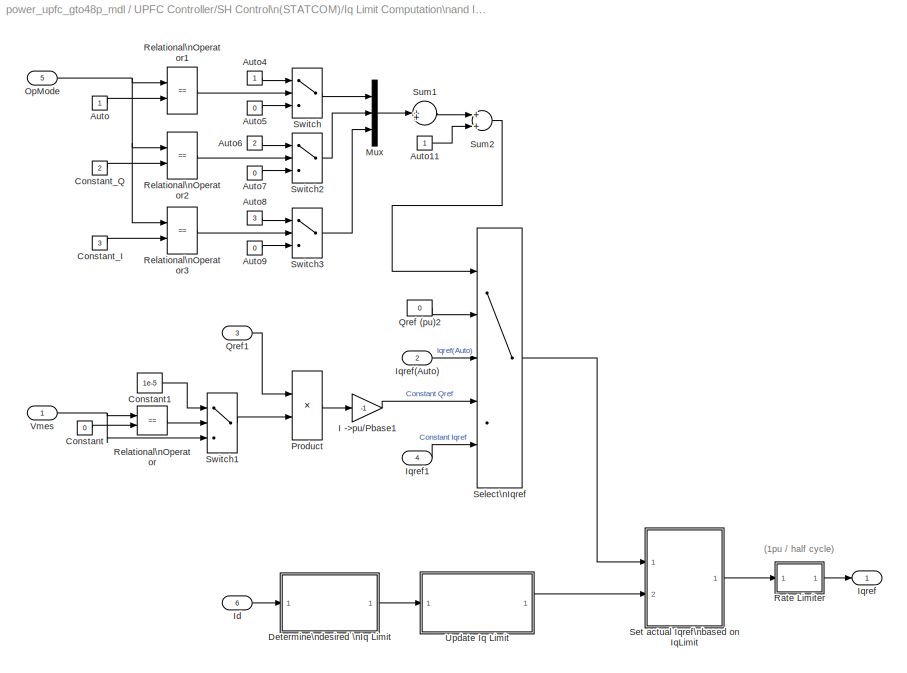
BLOCK [SubSystem] UPFC Controller/SH Control\n(STATCOM)/Iq Limit Computation\nand Iqref Selection
  Ports = [6, 1]
  RequestExecContextInheritance = off
  SID = 3138
BLOCK [Constant] UPFC Controller/SH Control\n(STATCOM)/Iq Limit Computation\nand Iqref Selection/Auto
  SID = 3145
BLOCK [Constant] UPFC Controller/SH Control\n(STATCOM)/Iq Limit Computation\nand Iqref Selection/Auto11
  SID = 3146
BLOCK [Constant] UPFC Controller/SH Control\n(STATCOM)/Iq Limit Computation\nand Iqref Selection/Auto4
  SID = 3147
BLOCK [Constant] UPFC Controller/SH Control\n(STATCOM)/Iq Limit Computation\nand Iqref Selection/Auto5
  SID = 3148
  Value = 0
BLOCK [Constant] UPFC Controller/SH Control\n(STATCOM)/Iq Limit Computation\nand Iqref Selection/Auto6
  SID = 3149
  Value = 2
BLOCK [Constant] UPFC Controller/SH Control\n(STATCOM)/Iq Limit Computation\nand Iqref Selection/Auto7
  SID = 3150
  Value = 0
BLOCK [Constant] UPFC Controller/SH Control\n(STATCOM)/Iq Limit Computation\nand Iqref Selection/Auto8
  SID = 3151
  Value = 3
BLOCK [Constant] UPFC Controller/SH Control\n(STATCOM)/Iq Limit Computation\nand Iqref Selection/Auto9
  SID = 3152
  Value = 0
BLOCK [Constant] UPFC Controller/SH Control\n(STATCOM)/Iq Limit Computation\nand Iqref Selection/Constant
  SID = 3153
  Value = 0
BLOCK [Constant] UPFC Controller/SH Control\n(STATCOM)/Iq Limit Computation\nand Iqref Selection/Constant1
  SID = 3154
  Value = 1e-5
BLOCK [Constant] UPFC Controller/SH Control\n(STATCOM)/Iq Limit Computation\nand Iqref Selection/Constant_I
  SID = 3155
  Value = 3
BLOCK [Constant] UPFC Controller/SH Control\n(STATCOM)/Iq Limit Computation\nand Iqref Selection/Constant_Q
  SID = 3156
  Value = 2
BLOCK [SubSystem] UPFC Controller/SH Control\n(STATCOM)/Iq Limit Computation\nand Iqref Selection/Determine\ndesired \nIq Limit
  Ports = [1, 1]
  RequestExecContextInheritance = off
  SID = 3157
BLOCK [Abs] UPFC Controller/SH Control\n(STATCOM)/Iq Limit Computation\nand Iqref Selection/Determine\ndesired \nIq Limit/Abs
  SID = 3159
BLOCK [Constant] UPFC Controller/SH Control\n(STATCOM)/Iq Limit Computation\nand Iqref Selection/Determine\ndesired \nIq Limit/Constant
  SID = 3160
BLOCK [Inport] UPFC Controller/SH Control\n(STATCOM)/Iq Limit Computation\nand Iqref Selection/Determine\ndesired \nIq Limit/Id
  IconDisplay = Port number
  PortDimensions = 1
  SID = 3158
BLOCK [Outport] UPFC Controller/SH Control\n(STATCOM)/Iq Limit Computation\nand Iqref Selection/Determine\ndesired \nIq Limit/IqLimit_Index
  IconDisplay = Port number
  SID = 3169
BLOCK [Relay] UPFC Controller/SH Control\n(STATCOM)/Iq Limit Computation\nand Iqref Selection/Determine\ndesired \nIq Limit/Limit at 0.3
  OffSwitchValue = 0.92
  OnSwitchValue = 0.97
  SID = 3161
BLOCK [Relay] UPFC Controller/SH Control\n(STATCOM)/Iq Limit Computation\nand Iqref Selection/Determine\ndesired \nIq Limit/Limit at 0.4
  OffSwitchValue = 0.86
  OnSwitchValue = 0.92
  SID = 3162
BLOCK [Relay] UPFC Controller/SH Control\n(STATCOM)/Iq Limit Computation\nand Iqref Selection/Determine\ndesired \nIq Limit/Limit at 0.5
  OffSwitchValue = 0.78
  OnSwitchValue = 0.86
  SID = 3163
BLOCK [Relay] UPFC Controller/SH Control\n(STATCOM)/Iq Limit Computation\nand Iqref Selection/Determine\ndesired \nIq Limit/Limit at 0.6
  OffSwitchValue = 0.68
  OnSwitchValue = 0.78
  SID = 3164
BLOCK [Relay] UPFC Controller/SH Control\n(STATCOM)/Iq Limit Computation\nand Iqref Selection/Determine\ndesired \nIq Limit/Limit at 0.7
  OffSwitchValue = 0.54
  OnSwitchValue = 0.68
  SID = 3165
BLOCK [Relay] UPFC Controller/SH Control\n(STATCOM)/Iq Limit Computation\nand Iqref Selection/Determine\ndesired \nIq Limit/Limit at 0.8
  OffSwitchValue = 0.32
  OnSwitchValue = 0.54
  SID = 3166
BLOCK [Relay] UPFC Controller/SH Control\n(STATCOM)/Iq Limit Computation\nand Iqref Selection/Determine\ndesired \nIq Limit/Limit at 0.9
  OffSwitchValue = 0.25
  OnSwitchValue = 0.32
  SID = 3167
BLOCK [Sum] UPFC Controller/SH Control\n(STATCOM)/Iq Limit Computation\nand Iqref Selection/Determine\ndesired \nIq Limit/Sum
  Inputs = ++++++++
  Ports = [8, 1]
  SID = 3168
BLOCK [Gain] UPFC Controller/SH Control\n(STATCOM)/Iq Limit Computation\nand Iqref Selection/I ->pu//Pbase1
  Gain = -1
  SID = 3171
BLOCK [Inport] UPFC Controller/SH Control\n(STATCOM)/Iq Limit Computation\nand Iqref Selection/Id
  IconDisplay = Port number
  Port = 6
  SID = 3144
BLOCK [Outport] UPFC Controller/SH Control\n(STATCOM)/Iq Limit Computation\nand Iqref Selection/Iqref
  IconDisplay = Port number
  SID = 3225
BLOCK [Inport] UPFC Controller/SH Control\n(STATCOM)/Iq Limit Computation\nand Iqref Selection/Iqref(Auto)
  IconDisplay = Port number
  Port = 2
  SID = 3140
BLOCK [Inport] UPFC Controller/SH Control\n(STATCOM)/Iq Limit Computation\nand Iqref Selection/Iqref1
  IconDisplay = Port number
  Port = 4
  SID = 3142
BLOCK [Mux] UPFC Controller/SH Control\n(STATCOM)/Iq Limit Computation\nand Iqref Selection/Mux
  DisplayOption = bar
  Inputs = 3
  Ports = [3, 1]
  SID = 3172
BLOCK [Inport] UPFC Controller/SH Control\n(STATCOM)/Iq Limit Computation\nand Iqref Selection/OpMode
  IconDisplay = Port number
  Port = 5
  SID = 3143
BLOCK [Product] UPFC Controller/SH Control\n(STATCOM)/Iq Limit Computation\nand Iqref Selection/Product
  Inputs = */
  Ports = [2, 1]
  RndMeth = Floor
  SID = 3173
BLOCK [Constant] UPFC Controller/SH Control\n(STATCOM)/Iq Limit Computation\nand Iqref Selection/Qref (pu)2
  SID = 3174
  Value = 0
BLOCK [Inport] UPFC Controller/SH Control\n(STATCOM)/Iq Limit Computation\nand Iqref Selection/Qref1
  IconDisplay = Port number
  Port = 3
  SID = 3141
BLOCK [SubSystem] UPFC Controller/SH Control\n(STATCOM)/Iq Limit Computation\nand Iqref Selection/Rate Limiter 
  DialogController = POWERSYS.PowerSysDialog
  Ports = [1, 1]
  RequestExecContextInheritance = off
  SID = 3175
BLOCK [Inport] UPFC Controller/SH Control\n(STATCOM)/Iq Limit Computation\nand Iqref Selection/Rate Limiter /In
  IconDisplay = Port number
  SID = 3175:1
BLOCK [Outport] UPFC Controller/SH Control\n(STATCOM)/Iq Limit Computation\nand Iqref Selection/Rate Limiter /Out
  IconDisplay = Port number
  SID = 3175:6
BLOCK [Saturate] UPFC Controller/SH Control\n(STATCOM)/Iq Limit Computation\nand Iqref Selection/Rate Limiter /Saturation
  InputPortMap = u0
  LowerLimit = LowerLimit
  Ports = [1, 1]
  SID = 3175:2
  UpperLimit = UpperLimit
BLOCK [Sum] UPFC Controller/SH Control\n(STATCOM)/Iq Limit Computation\nand Iqref Selection/Rate Limiter /Sum
  IconShape = round
  Inputs = |++
  Ports = [2, 1]
  SID = 3175:3
BLOCK [Sum] UPFC Controller/SH Control\n(STATCOM)/Iq Limit Computation\nand Iqref Selection/Rate Limiter /Sum1
  IconShape = round
  Inputs = |+-
  Ports = [2, 1]
  SID = 3175:4
BLOCK [UnitDelay] UPFC Controller/SH Control\n(STATCOM)/Iq Limit Computation\nand Iqref Selection/Rate Limiter /Unit \nDelay
  InitialCondition = Vinit
  SID = 3175:5
  SampleTime = Ts
BLOCK [RelationalOperator] UPFC Controller/SH Control\n(STATCOM)/Iq Limit Computation\nand Iqref Selection/Relational\nOperator
  Operator = ==
  Ports = [2, 1]
  SID = 3176
BLOCK [RelationalOperator] UPFC Controller/SH Control\n(STATCOM)/Iq Limit Computation\nand Iqref Selection/Relational\nOperator1
  Operator = ==
  Ports = [2, 1]
  SID = 3177
BLOCK [RelationalOperator] UPFC Controller/SH Control\n(STATCOM)/Iq Limit Computation\nand Iqref Selection/Relational\nOperator2
  Operator = ==
  Ports = [2, 1]
  SID = 3178
BLOCK [RelationalOperator] UPFC Controller/SH Control\n(STATCOM)/Iq Limit Computation\nand Iqref Selection/Relational\nOperator3
  Operator = ==
  Ports = [2, 1]
  SID = 3179
BLOCK [MultiPortSwitch] UPFC Controller/SH Control\n(STATCOM)/Iq Limit Computation\nand Iqref Selection/Select\nIqref
  Inputs = 4
  Ports = [5, 1]
  SID = 3180
BLOCK [SubSystem] UPFC Controller/SH Control\n(STATCOM)/Iq Limit Computation\nand Iqref Selection/Set actual Iqref\nbased on IqLimit
  Ports = [2, 1]
  RequestExecContextInheritance = off
  SID = 3181
BLOCK [Gain] UPFC Controller/SH Control\n(STATCOM)/Iq Limit Computation\nand Iqref Selection/Set actual Iqref\nbased on IqLimit/Gain2
  Gain = -1
  SID = 3184
BLOCK [Inport] UPFC Controller/SH Control\n(STATCOM)/Iq Limit Computation\nand Iqref Selection/Set actual Iqref\nbased on IqLimit/IqLimit
  IconDisplay = Port number
  Port = 2
  SID = 3183
BLOCK [Outport] UPFC Controller/SH Control\n(STATCOM)/Iq Limit Computation\nand Iqref Selection/Set actual Iqref\nbased on IqLimit/Iqref
  IconDisplay = Port number
  SID = 3191
BLOCK [Inport] UPFC Controller/SH Control\n(STATCOM)/Iq Limit Computation\nand Iqref Selection/Set actual Iqref\nbased on IqLimit/Iqref*
  IconDisplay = Port number
  PortDimensions = 1
  SID = 3182
BLOCK [Logic] UPFC Controller/SH Control\n(STATCOM)/Iq Limit Computation\nand Iqref Selection/Set actual Iqref\nbased on IqLimit/Logical\nOperator
  Operator = OR
  Ports = [2, 1]
  SID = 3185
BLOCK [Product] UPFC Controller/SH Control\n(STATCOM)/Iq Limit Computation\nand Iqref Selection/Set actual Iqref\nbased on IqLimit/Product
  Ports = [2, 1]
  RndMeth = Floor
  SID = 3186
BLOCK [RelationalOperator] UPFC Controller/SH Control\n(STATCOM)/Iq Limit Computation\nand Iqref Selection/Set actual Iqref\nbased on IqLimit/Relational\nOperator1
  Operator = >
  Ports = [2, 1]
  SID = 3187
BLOCK [RelationalOperator] UPFC Controller/SH Control\n(STATCOM)/Iq Limit Computation\nand Iqref Selection/Set actual Iqref\nbased on IqLimit/Relational\nOperator2
  Operator = <
  Ports = [2, 1]
  SID = 3188
BLOCK [Signum] UPFC Controller/SH Control\n(STATCOM)/Iq Limit Computation\nand Iqref Selection/Set actual Iqref\nbased on IqLimit/Sign
  SID = 3189
BLOCK [Switch] UPFC Controller/SH Control\n(STATCOM)/Iq Limit Computation\nand Iqref Selection/Set actual Iqref\nbased on IqLimit/Switch1
  SID = 3190
  Threshold = 0.5
BLOCK [Sum] UPFC Controller/SH Control\n(STATCOM)/Iq Limit Computation\nand Iqref Selection/Sum1
  Inputs = 1
  Ports = [1, 1]
  SID = 3192
BLOCK [Sum] UPFC Controller/SH Control\n(STATCOM)/Iq Limit Computation\nand Iqref Selection/Sum2
  Ports = [2, 1]
  SID = 3193
BLOCK [Switch] UPFC Controller/SH Control\n(STATCOM)/Iq Limit Computation\nand Iqref Selection/Switch
  SID = 3194
  Threshold = 0.5
BLOCK [Switch] UPFC Controller/SH Control\n(STATCOM)/Iq Limit Computation\nand Iqref Selection/Switch1
  SID = 3195
  Threshold = 0.5
BLOCK [Switch] UPFC Controller/SH Control\n(STATCOM)/Iq Limit Computation\nand Iqref Selection/Switch2
  SID = 3196
  Threshold = 0.5
BLOCK [Switch] UPFC Controller/SH Control\n(STATCOM)/Iq Limit Computation\nand Iqref Selection/Switch3
  SID = 3197
  Threshold = 0.5
BLOCK [SubSystem] UPFC Controller/SH Control\n(STATCOM)/Iq Limit Computation\nand Iqref Selection/Update Iq Limit
  Ports = [1, 1]
  RequestExecContextInheritance = off
  SID = 3198
BLOCK [Constant] UPFC Controller/SH Control\n(STATCOM)/Iq Limit Computation\nand Iqref Selection/Update Iq Limit/Constant1
  SID = 3200
  Value = 0.8
BLOCK [Constant] UPFC Controller/SH Control\n(STATCOM)/Iq Limit Computation\nand Iqref Selection/Update Iq Limit/Constant10
  SID = 3201
  Value = -1e6
BLOCK [Constant] UPFC Controller/SH Control\n(STATCOM)/Iq Limit Computation\nand Iqref Selection/Update Iq Limit/Constant11
  SID = 3202
  Value = 3
BLOCK [Constant] UPFC Controller/SH Control\n(STATCOM)/Iq Limit Computation\nand Iqref Selection/Update Iq Limit/Constant2
  SID = 3203
  Value = 0.7
BLOCK [Constant] UPFC Controller/SH Control\n(STATCOM)/Iq Limit Computation\nand Iqref Selection/Update Iq Limit/Constant3
  SID = 3204
  Value = 0.6
BLOCK [Constant] UPFC Controller/SH Control\n(STATCOM)/Iq Limit Computation\nand Iqref Selection/Update Iq Limit/Constant4
  SID = 3205
  Value = 0.5
BLOCK [Constant] UPFC Controller/SH Control\n(STATCOM)/Iq Limit Computation\nand Iqref Selection/Update Iq Limit/Constant5
  SID = 3206
  Value = 0.4
BLOCK [Constant] UPFC Controller/SH Control\n(STATCOM)/Iq Limit Computation\nand Iqref Selection/Update Iq Limit/Constant6
  SID = 3207
BLOCK [Constant] UPFC Controller/SH Control\n(STATCOM)/Iq Limit Computation\nand Iqref Selection/Update Iq Limit/Constant7
  SID = 3208
  Value = 0.9
BLOCK [Constant] UPFC Controller/SH Control\n(STATCOM)/Iq Limit Computation\nand Iqref Selection/Update Iq Limit/Constant8
  SID = 3209
  Value = 0.3
BLOCK [Constant] UPFC Controller/SH Control\n(STATCOM)/Iq Limit Computation\nand Iqref Selection/Update Iq Limit/Constant9
  SID = 3210
  Value = 60
BLOCK [DiscreteIntegrator] UPFC Controller/SH Control\n(STATCOM)/Iq Limit Computation\nand Iqref Selection/Update Iq Limit/Discrete-Time\nIntegrator
  ExternalReset = rising
  ICPrevOutput = DiscIntNeverNeededParam
  ICPrevScaledInput = DiscIntNeverNeededParam
  LimitOutput = on
  LowerSaturationLimit = 0
  Ports = [2, 1]
  SID = 3211
  SampleTime = Ts
  UpperSaturationLimit = 6.1
BLOCK [Outport] UPFC Controller/SH Control\n(STATCOM)/Iq Limit Computation\nand Iqref Selection/Update Iq Limit/IqLimit
  IconDisplay = Port number
  SID = 3221
BLOCK [Inport] UPFC Controller/SH Control\n(STATCOM)/Iq Limit Computation\nand Iqref Selection/Update Iq Limit/IqLimit_Index
  IconDisplay = Port number
  SID = 3199
BLOCK [Logic] UPFC Controller/SH Control\n(STATCOM)/Iq Limit Computation\nand Iqref Selection/Update Iq Limit/Logical\nOperator1
  Operator = OR
  Ports = [2, 1]
  SID = 3212
BLOCK [RelationalOperator] UPFC Controller/SH Control\n(STATCOM)/Iq Limit Computation\nand Iqref Selection/Update Iq Limit/Relational\nOperator3
  Operator = >
  Ports = [2, 1]
  SID = 3213
BLOCK [RelationalOperator] UPFC Controller/SH Control\n(STATCOM)/Iq Limit Computation\nand Iqref Selection/Update Iq Limit/Relational\nOperator4
  Operator = >
  Ports = [2, 1]
  SID = 3214
BLOCK [RelationalOperator] UPFC Controller/SH Control\n(STATCOM)/Iq Limit Computation\nand Iqref Selection/Update Iq Limit/Relational\nOperator5
  Operator = <
  Ports = [2, 1]
  SID = 3215
BLOCK [MultiPortSwitch] UPFC Controller/SH Control\n(STATCOM)/Iq Limit Computation\nand Iqref Selection/Update Iq Limit/Select\nactual Iq Limit
  Inputs = 8
  Ports = [9, 1]
  SID = 3216
BLOCK [Switch] UPFC Controller/SH Control\n(STATCOM)/Iq Limit Computation\nand Iqref Selection/Update Iq Limit/Switch
  SID = 3217
  Threshold = 0.5
BLOCK [Switch] UPFC Controller/SH Control\n(STATCOM)/Iq Limit Computation\nand Iqref Selection/Update Iq Limit/Switch2
  SID = 3218
  Threshold = 0.5
BLOCK [UnitDelay] UPFC Controller/SH Control\n(STATCOM)/Iq Limit Computation\nand Iqref Selection/Update Iq Limit/Unit Delay
  SID = 3219
  SampleTime = Ts
BLOCK [UnitDelay] UPFC Controller/SH Control\n(STATCOM)/Iq Limit Computation\nand Iqref Selection/Update Iq Limit/Unit Delay5
  InitialCondition = 1
  SID = 3220
  SampleTime = Ts
BLOCK [Inport] UPFC Controller/SH Control\n(STATCOM)/Iq Limit Computation\nand Iqref Selection/Vmes
  IconDisplay = Port number
  SID = 3139
BLOCK [SubSystem] UPFC Controller/SH Control\n(STATCOM)/Measurement\nSystem
  Ports = [4, 5]
  RequestExecContextInheritance = off
  SID = 3227
BLOCK [Inport] UPFC Controller/SH Control\n(STATCOM)/Measurement\nSystem/Freq
  IconDisplay = Port number
  Port = 3
  PortDimensions = 1
  SID = 3230
BLOCK [Inport] UPFC Controller/SH Control\n(STATCOM)/Measurement\nSystem/Iabc
  IconDisplay = Port number
  Port = 2
  PortDimensions = 3
  SID = 3229
BLOCK [Outport] UPFC Controller/SH Control\n(STATCOM)/Measurement\nSystem/Id
  IconDisplay = Port number
  Port = 5
  SID = 3340
BLOCK [Outport] UPFC Controller/SH Control\n(STATCOM)/Measurement\nSystem/Iq
  IconDisplay = Port number
  Port = 3
  SID = 3338
BLOCK [Outport] UPFC Controller/SH Control\n(STATCOM)/Measurement\nSystem/Iq_avg
  IconDisplay = Port number
  Port = 4
  SID = 3339
BLOCK [Reference] UPFC Controller/SH Control\n(STATCOM)/Measurement\nSystem/Mean\n(Variable Frequency)  REF=powerlib_meascontrol/Measurements/Mean\n(Variable Frequency)
  Finit = 60
  Fmin = 45
  Ports = [2, 1]
  SID = 3433
  SourceBlock = powerlib_meascontrol/Measurements/Mean\n(Variable Frequency)
  SourceType = Mean (Variable Frequency)
  Ts = Ts
  Vinit = 0
BLOCK [Outport] UPFC Controller/SH Control\n(STATCOM)/Measurement\nSystem/PQ
  IconDisplay = Port number
  Port = 2
  SID = 3337
BLOCK [SubSystem] UPFC Controller/SH Control\n(STATCOM)/Measurement\nSystem/PQ \nComputaion
  Ports = [3, 1]
  RequestExecContextInheritance = off
  SID = 3236
BLOCK [Demux] UPFC Controller/SH Control\n(STATCOM)/Measurement\nSystem/PQ \nComputaion/Demux1
  Outputs = 2
  Ports = [1, 2]
  SID = 3240
BLOCK [Demux] UPFC Controller/SH Control\n(STATCOM)/Measurement\nSystem/PQ \nComputaion/Demux2
  Outputs = 2
  Ports = [1, 2]
  SID = 3241
BLOCK [Inport] UPFC Controller/SH Control\n(STATCOM)/Measurement\nSystem/PQ \nComputaion/Freq
  IconDisplay = Port number
  Port = 3
  PortDimensions = 1
  SID = 3239
BLOCK [Inport] UPFC Controller/SH Control\n(STATCOM)/Measurement\nSystem/PQ \nComputaion/Id_Iq
  IconDisplay = Port number
  Port = 2
  PortDimensions = 2
  SID = 3238
BLOCK [Mux] UPFC Controller/SH Control\n(STATCOM)/Measurement\nSystem/PQ \nComputaion/Mux2
  DisplayOption = bar
  Inputs = 2
  Ports = [2, 1]
  SID = 3242
BLOCK [Outport] UPFC Controller/SH Control\n(STATCOM)/Measurement\nSystem/PQ \nComputaion/PQ(pu)
  IconDisplay = Port number
  SID = 3270
BLOCK [Product] UPFC Controller/SH Control\n(STATCOM)/Measurement\nSystem/PQ \nComputaion/Product2
  Ports = [2, 1]
  RndMeth = Floor
  SID = 3243
BLOCK [Product] UPFC Controller/SH Control\n(STATCOM)/Measurement\nSystem/PQ \nComputaion/Product3
  Ports = [2, 1]
  RndMeth = Floor
  SID = 3244
BLOCK [Product] UPFC Controller/SH Control\n(STATCOM)/Measurement\nSystem/PQ \nComputaion/Product4
  Ports = [2, 1]
  RndMeth = Floor
  SID = 3245
BLOCK [Product] UPFC Controller/SH Control\n(STATCOM)/Measurement\nSystem/PQ \nComputaion/Product5
  Ports = [2, 1]
  RndMeth = Floor
  SID = 3246
BLOCK [Sum] UPFC Controller/SH Control\n(STATCOM)/Measurement\nSystem/PQ \nComputaion/Sum
  Ports = [2, 1]
  SID = 3247
BLOCK [Sum] UPFC Controller/SH Control\n(STATCOM)/Measurement\nSystem/PQ \nComputaion/Sum1
  Inputs = +-
  Ports = [2, 1]
  SID = 3248
BLOCK [SubSystem] UPFC Controller/SH Control\n(STATCOM)/Measurement\nSystem/PQ \nComputaion/Variable Frequency\nMean value
  Ports = [2, 1]
  RequestExecContextInheritance = off
  SID = 3249
BLOCK [Constant] UPFC Controller/SH Control\n(STATCOM)/Measurement\nSystem/PQ \nComputaion/Variable Frequency\nMean value/Constant
  SID = 3252
  Value = Vinit
BLOCK [Inport] UPFC Controller/SH Control\n(STATCOM)/Measurement\nSystem/PQ \nComputaion/Variable Frequency\nMean value/Freq
  IconDisplay = Port number
  SID = 3250
BLOCK [Gain] UPFC Controller/SH Control\n(STATCOM)/Measurement\nSystem/PQ \nComputaion/Variable Frequency\nMean value/Gain
  Gain = Ts
  SID = 3253
BLOCK [Inport] UPFC Controller/SH Control\n(STATCOM)/Measurement\nSystem/PQ \nComputaion/Variable Frequency\nMean value/In
  IconDisplay = Port number
  Port = 2
  SID = 3251
BLOCK [DiscreteIntegrator] UPFC Controller/SH Control\n(STATCOM)/Measurement\nSystem/PQ \nComputaion/Variable Frequency\nMean value/Integ4
  ICPrevOutput = DiscIntNeverNeededParam
  ICPrevScaledInput = DiscIntNeverNeededParam
  IntegratorMethod = Integration: Trapezoidal
  Ports = [1, 1]
  SID = 3254
  SampleTime = Ts
BLOCK [Constant] UPFC Controller/SH Control\n(STATCOM)/Measurement\nSystem/PQ \nComputaion/Variable Frequency\nMean value/K2
  SID = 3255
  Value = Ts/2
BLOCK [Outport] UPFC Controller/SH Control\n(STATCOM)/Measurement\nSystem/PQ \nComputaion/Variable Frequency\nMean value/Mean
  IconDisplay = Port number
  SID = 3267
BLOCK [Fcn] UPFC Controller/SH Control\n(STATCOM)/Measurement\nSystem/PQ \nComputaion/Variable Frequency\nMean value/Number of sample//cycle
  Expr = 1/(u[1]+1e-6)/Ts
  SID = 3256
BLOCK [Product] UPFC Controller/SH Control\n(STATCOM)/Measurement\nSystem/PQ \nComputaion/Variable Frequency\nMean value/Product
  Ports = [2, 1]
  RndMeth = Floor
  SID = 3257
BLOCK [Product] UPFC Controller/SH Control\n(STATCOM)/Measurement\nSystem/PQ \nComputaion/Variable Frequency\nMean value/Product1
  Inputs = */*
  Ports = [3, 1]
  RndMeth = Floor
  SID = 3258
BLOCK [Rounding] UPFC Controller/SH Control\n(STATCOM)/Measurement\nSystem/PQ \nComputaion/Variable Frequency\nMean value/Rounding\nFunction
  Operator = round
  SID = 3259
BLOCK [Step] UPFC Controller/SH Control\n(STATCOM)/Measurement\nSystem/PQ \nComputaion/Variable Frequency\nMean value/Step
  SID = 3260
  SampleTime = Ts
  Time = 1/Finit
BLOCK [Sum] UPFC Controller/SH Control\n(STATCOM)/Measurement\nSystem/PQ \nComputaion/Variable Frequency\nMean value/Sum3
  Inputs = -+
  Ports = [2, 1]
  SID = 3261
BLOCK [Sum] UPFC Controller/SH Control\n(STATCOM)/Measurement\nSystem/PQ \nComputaion/Variable Frequency\nMean value/Sum4
  Inputs = -+
  Ports = [2, 1]
  SID = 3262
BLOCK [Sum] UPFC Controller/SH Control\n(STATCOM)/Measurement\nSystem/PQ \nComputaion/Variable Frequency\nMean value/Sum5
  Ports = [2, 1]
  SID = 3263
BLOCK [Sum] UPFC Controller/SH Control\n(STATCOM)/Measurement\nSystem/PQ \nComputaion/Variable Frequency\nMean value/Sum7
  Inputs = -+
  Ports = [2, 1]
  SID = 3264
BLOCK [Switch] UPFC Controller/SH Control\n(STATCOM)/Measurement\nSystem/PQ \nComputaion/Variable Frequency\nMean value/Switch
  SID = 3265
  Threshold = 0.5
BLOCK [VariableTransportDelay] UPFC Controller/SH Control\n(STATCOM)/Measurement\nSystem/PQ \nComputaion/Variable Frequency\nMean value/Variable\nTransport Delay2
  MaximumDelay = 20e-3
  Ports = [2, 1]
  SID = 3266
BLOCK [Inport] UPFC Controller/SH Control\n(STATCOM)/Measurement\nSystem/PQ \nComputaion/Vd_Vq
  IconDisplay = Port number
  PortDimensions = 2
  SID = 3237
BLOCK [Reference] UPFC Controller/SH Control\n(STATCOM)/Measurement\nSystem/Second-Order\nFilter  REF=powerlib_meascontrol/Filters/Second-Order\nFilter
  FilterType = Lowpass
  Fo = 1200
  FreqRange = [0, 500, 1]
  Initialize = off
  PlotResponse = off
  Ports = [1, 1]
  SID = 3434
  SourceBlock = powerlib_meascontrol/Filters/Second-Order\nFilter
  SourceType = Second-Order Filter
  Ts = Ts
  Vac_Init = [0,  0,  60]
  Vdc_Init = 0
  Zeta = 0.707
BLOCK [Reference] UPFC Controller/SH Control\n(STATCOM)/Measurement\nSystem/Second-Order\nFilter1  REF=powerlib_meascontrol/Filters/Second-Order\nFilter
  FilterType = Lowpass
  Fo = 1200
  FreqRange = [0, 500, 1]
  Initialize = off
  PlotResponse = off
  Ports = [1, 1]
  SID = 3435
  SourceBlock = powerlib_meascontrol/Filters/Second-Order\nFilter
  SourceType = Second-Order Filter
  Ts = Ts
  Vac_Init = [0,  0,  60]
  Vdc_Init = 0
  Zeta = 0.707
BLOCK [Selector] UPFC Controller/SH Control\n(STATCOM)/Measurement\nSystem/Selector
  Indices = 2
  InputPortWidth = 2
  Ports = [1, 1]
  SID = 3274
BLOCK [Selector] UPFC Controller/SH Control\n(STATCOM)/Measurement\nSystem/Selector1
  InputPortWidth = 2
  Ports = [1, 1]
  SID = 3275
BLOCK [Selector] UPFC Controller/SH Control\n(STATCOM)/Measurement\nSystem/Selector2
  Indices = 1:2
  InputPortWidth = 3
  Ports = [1, 1]
  SID = 3276
BLOCK [Inport] UPFC Controller/SH Control\n(STATCOM)/Measurement\nSystem/Vabc
  IconDisplay = Port number
  PortDimensions = 3
  SID = 3228
BLOCK [Outport] UPFC Controller/SH Control\n(STATCOM)/Measurement\nSystem/Vmes
  IconDisplay = Port number
  SID = 3336
BLOCK [SubSystem] UPFC Controller/SH Control\n(STATCOM)/Measurement\nSystem/Voltage measurement\n(Positive sequence)
  Ports = [3, 2]
  RequestExecContextInheritance = off
  SID = 3279
BLOCK [Demux] UPFC Controller/SH Control\n(STATCOM)/Measurement\nSystem/Voltage measurement\n(Positive sequence)/Demux
  Outputs = 3
  Ports = [1, 3]
  SID = 3283
BLOCK [Fcn] UPFC Controller/SH Control\n(STATCOM)/Measurement\nSystem/Voltage measurement\n(Positive sequence)/Fcn3
  Expr = sqrt(u[1]*u[1]+u[2]*u[2])
  SID = 3326
BLOCK [Inport] UPFC Controller/SH Control\n(STATCOM)/Measurement\nSystem/Voltage measurement\n(Positive sequence)/Freq
  IconDisplay = Port number
  Port = 2
  SID = 3281
BLOCK [Outport] UPFC Controller/SH Control\n(STATCOM)/Measurement\nSystem/Voltage measurement\n(Positive sequence)/Mag
  IconDisplay = Port number
  SID = 3331
BLOCK [Reference] UPFC Controller/SH Control\n(STATCOM)/Measurement\nSystem/Voltage measurement\n(Positive sequence)/Mean\n(Variable Frequency)  REF=powerlib_meascontrol/Measurements/Mean\n(Variable Frequency)
  Finit = Finit
  Fmin = 45
  Ports = [2, 1]
  SID = 3437
  SourceBlock = powerlib_meascontrol/Measurements/Mean\n(Variable Frequency)
  SourceType = Mean (Variable Frequency)
  Ts = Ts
  Vinit = Real_Init
BLOCK [Reference] UPFC Controller/SH Control\n(STATCOM)/Measurement\nSystem/Voltage measurement\n(Positive sequence)/Mean\n(Variable Frequency)1  REF=powerlib_meascontrol/Measurements/Mean\n(Variable Frequency)
  Finit = Finit
  Fmin = 45
  Ports = [2, 1]
  SID = 3438
  SourceBlock = powerlib_meascontrol/Measurements/Mean\n(Variable Frequency)
  SourceType = Mean (Variable Frequency)
  Ts = Ts
  Vinit = Imag_Init
BLOCK [Mux] UPFC Controller/SH Control\n(STATCOM)/Measurement\nSystem/Voltage measurement\n(Positive sequence)/Mux1
  Inputs = 2
  Ports = [2, 1]
  SID = 3327
BLOCK [Selector] UPFC Controller/SH Control\n(STATCOM)/Measurement\nSystem/Voltage measurement\n(Positive sequence)/Selector
  Indices = [1 2]
  InputPortWidth = 3
  Ports = [1, 1]
  SID = 3328
BLOCK [Terminator] UPFC Controller/SH Control\n(STATCOM)/Measurement\nSystem/Voltage measurement\n(Positive sequence)/Terminator
  SID = 3329
BLOCK [Outport] UPFC Controller/SH Control\n(STATCOM)/Measurement\nSystem/Voltage measurement\n(Positive sequence)/VdVq
  IconDisplay = Port number
  Port = 2
  SID = 3332
BLOCK [Inport] UPFC Controller/SH Control\n(STATCOM)/Measurement\nSystem/Voltage measurement\n(Positive sequence)/abc
  IconDisplay = Port number
  PortDimensions = 3
  SID = 3280
BLOCK [Reference] UPFC Controller/SH Control\n(STATCOM)/Measurement\nSystem/Voltage measurement\n(Positive sequence)/abc to dq0  REF=powerlib_meascontrol/Transformations/abc to dq0
  Alignment = 90 degrees behind phase A axis
  Ports = [2, 1]
  SID = 3436
  SourceBlock = powerlib_meascontrol/Transformations/abc to dq0
  SourceType = abc to dq0 Transformation
BLOCK [Inport] UPFC Controller/SH Control\n(STATCOM)/Measurement\nSystem/Voltage measurement\n(Positive sequence)/wt
  IconDisplay = Port number
  Port = 3
  PortDimensions = 1
  SID = 3282
BLOCK [Reference] UPFC Controller/SH Control\n(STATCOM)/Measurement\nSystem/abc to dq0  REF=powerlib_meascontrol/Transformations/abc to dq0
  Alignment = 90 degrees behind phase A axis
  Ports = [2, 1]
  SID = 3432
  SourceBlock = powerlib_meascontrol/Transformations/abc to dq0
  SourceType = abc to dq0 Transformation
BLOCK [Inport] UPFC Controller/SH Control\n(STATCOM)/Measurement\nSystem/wt
  IconDisplay = Port number
  Port = 4
  PortDimensions = 1
  SID = 3231
BLOCK [Mux] UPFC Controller/SH Control\n(STATCOM)/Mux
  DisplayOption = bar
  Inputs = 2
  Ports = [2, 1]
  SID = 3341
BLOCK [Mux] UPFC Controller/SH Control\n(STATCOM)/Mux1
  DisplayOption = bar
  Inputs = 2
  Ports = [2, 1]
  SID = 3342
BLOCK [Inport] UPFC Controller/SH Control\n(STATCOM)/OpMode
  IconDisplay = Port number
  Port = 4
  PortDimensions = 1
  SID = 2274
BLOCK [SubSystem] UPFC Controller/SH Control\n(STATCOM)/PLL
  Ports = [1, 2]
  RequestExecContextInheritance = off
  SID = 3343
BLOCK [Constant] UPFC Controller/SH Control\n(STATCOM)/PLL/Constant4
  SID = 3345
  Value = 2*pi
BLOCK [Gain] UPFC Controller/SH Control\n(STATCOM)/PLL/Correction\nfor delay
  Gain = Nstep*Ts*2*pi
  SID = 3346
BLOCK [DiscreteIntegrator] UPFC Controller/SH Control\n(STATCOM)/PLL/Discrete-Time\nIntegrator
  ICPrevOutput = DiscIntNeverNeededParam
  ICPrevScaledInput = DiscIntNeverNeededParam
  InitialCondition = Phase_Init*pi/180
  Ports = [1, 1]
  SID = 3371
  SampleTime = Ts
BLOCK [SubSystem] UPFC Controller/SH Control\n(STATCOM)/PLL/Discrete\nPI Controller
  DialogController = POWERSYS.PowerSysDialog
  Ports = [1, 1]
  RequestExecContextInheritance = off
  SID = 3347
BLOCK [DiscreteIntegrator] UPFC Controller/SH Control\n(STATCOM)/PLL/Discrete\nPI Controller/Discrete-Time\nIntegrator
  ICPrevOutput = DiscIntNeverNeededParam
  ICPrevScaledInput = DiscIntNeverNeededParam
  InitialCondition = Init
  LimitOutput = on
  LowerSaturationLimit = LowerLimit
  Ports = [1, 1]
  SID = 3347:2
  SampleTime = Ts
  UpperSaturationLimit = UpperLimit
BLOCK [Inport] UPFC Controller/SH Control\n(STATCOM)/PLL/Discrete\nPI Controller/Error
  IconDisplay = Port number
  SID = 3347:1
  SampleTime = Ts
BLOCK [Gain] UPFC Controller/SH Control\n(STATCOM)/PLL/Discrete\nPI Controller/Kp4
  Gain = Kp
  SID = 3347:3
  SampleTime = Ts
BLOCK [Gain] UPFC Controller/SH Control\n(STATCOM)/PLL/Discrete\nPI Controller/Kp5
  Gain = Ki
  SID = 3347:4
  SampleTime = Ts
BLOCK [Outport] UPFC Controller/SH Control\n(STATCOM)/PLL/Discrete\nPI Controller/Out
  IconDisplay = Port number
  InitialOutput = 0
  SID = 3347:8
  SampleTime = Ts
BLOCK [Saturate] UPFC Controller/SH Control\n(STATCOM)/PLL/Discrete\nPI Controller/Saturation2
  InputPortMap = u0
  LowerLimit = LowerLimit
  Ports = [1, 1]
  SID = 3347:5
  SampleTime = Ts
  UpperLimit = UpperLimit
BLOCK [Sum] UPFC Controller/SH Control\n(STATCOM)/PLL/Discrete\nPI Controller/Sum6
  Ports = [2, 1]
  SID = 3347:6
  SampleTime = Ts
BLOCK [ZeroOrderHold] UPFC Controller/SH Control\n(STATCOM)/PLL/Discrete\nPI Controller/Zero-Order\nHold
  SID = 3347:7
  SampleTime = Ts
BLOCK [SubSystem] UPFC Controller/SH Control\n(STATCOM)/PLL/Discrete\nRate Limiter
  DialogController = POWERSYS.PowerSysDialog
  Ports = [1, 1]
  RequestExecContextInheritance = off
  SID = 3348
BLOCK [Inport] UPFC Controller/SH Control\n(STATCOM)/PLL/Discrete\nRate Limiter/In
  IconDisplay = Port number
  SID = 3348:1
BLOCK [Outport] UPFC Controller/SH Control\n(STATCOM)/PLL/Discrete\nRate Limiter/Out
  IconDisplay = Port number
  SID = 3348:6
BLOCK [Saturate] UPFC Controller/SH Control\n(STATCOM)/PLL/Discrete\nRate Limiter/Saturation
  InputPortMap = u0
  LowerLimit = LowerLimit
  Ports = [1, 1]
  SID = 3348:2
  UpperLimit = UpperLimit
BLOCK [Sum] UPFC Controller/SH Control\n(STATCOM)/PLL/Discrete\nRate Limiter/Sum
  IconShape = round
  Inputs = |++
  Ports = [2, 1]
  SID = 3348:3
BLOCK [Sum] UPFC Controller/SH Control\n(STATCOM)/PLL/Discrete\nRate Limiter/Sum1
  IconShape = round
  Inputs = |+-
  Ports = [2, 1]
  SID = 3348:4
BLOCK [UnitDelay] UPFC Controller/SH Control\n(STATCOM)/PLL/Discrete\nRate Limiter/Unit \nDelay
  InitialCondition = Vinit
  SID = 3348:5
  SampleTime = Ts
BLOCK [Outport] UPFC Controller/SH Control\n(STATCOM)/PLL/Freq
  IconDisplay = Port number
  SID = 3381
BLOCK [Gain] UPFC Controller/SH Control\n(STATCOM)/PLL/Gain10
  Gain = 1/2/pi
  SID = 3372
BLOCK [Math] UPFC Controller/SH Control\n(STATCOM)/PLL/Math\nFunction
  Operator = mod
  Ports = [2, 1]
  SID = 3373
BLOCK [Reference] UPFC Controller/SH Control\n(STATCOM)/PLL/Mean\n(Variable Frequency)  REF=powerlib_meascontrol/Measurements/Mean\n(Variable Frequency)
  Finit = Finit
  Fmin = 45
  Ports = [2, 1]
  SID = 3430
  SourceBlock = powerlib_meascontrol/Measurements/Mean\n(Variable Frequency)
  SourceType = Mean (Variable Frequency)
  Ts = Ts
  Vinit = 0
BLOCK [Reference] UPFC Controller/SH Control\n(STATCOM)/PLL/Second-Order\nFilter  REF=powerlib_meascontrol/Filters/Second-Order\nFilter
  FilterType = Lowpass
  Fo = 25
  FreqRange = [0, 500, 1]
  Initialize = on
  PlotResponse = off
  Ports = [1, 1]
  SID = 3431
  SourceBlock = powerlib_meascontrol/Filters/Second-Order\nFilter
  SourceType = Second-Order Filter
  Ts = Ts
  Vac_Init = [0 -25 60]
  Vdc_Init = Finit
  Zeta = 0.707
BLOCK [Selector] UPFC Controller/SH Control\n(STATCOM)/PLL/Selector
  Indices = 2
  InputPortWidth = 3
  Ports = [1, 1]
  SID = 3375
BLOCK [Sum] UPFC Controller/SH Control\n(STATCOM)/PLL/Sum
  Ports = [2, 1]
  SID = 3376
BLOCK [UnitDelay] UPFC Controller/SH Control\n(STATCOM)/PLL/Unit Delay
  InitialCondition = Finit
  SID = 3379
  SampleTime = Ts
BLOCK [Inport] UPFC Controller/SH Control\n(STATCOM)/PLL/Vabc (pu)
  IconDisplay = Port number
  PortDimensions = 3
  SID = 3344
BLOCK [Reference] UPFC Controller/SH Control\n(STATCOM)/PLL/abc to dq0  REF=powerlib_meascontrol/Transformations/abc to dq0
  Alignment = 90 degrees behind phase A axis
  Ports = [2, 1]
  SID = 3429
  SourceBlock = powerlib_meascontrol/Transformations/abc to dq0
  SourceType = abc to dq0 Transformation
BLOCK [Outport] UPFC Controller/SH Control\n(STATCOM)/PLL/wt
  IconDisplay = Port number
  Port = 2
  SID = 3382
BLOCK [Outport] UPFC Controller/SH Control\n(STATCOM)/Pulses
  IconDisplay = Port number
  SID = 3401
BLOCK [Inport] UPFC Controller/SH Control\n(STATCOM)/Qref
  IconDisplay = Port number
  Port = 5
  PortDimensions = 1
  SID = 2275
BLOCK [Constant] UPFC Controller/SH Control\n(STATCOM)/Qref (pu)1
  SID = 3385
  Value = Iqref1
BLOCK [Constant] UPFC Controller/SH Control\n(STATCOM)/Sigma (deg)
  SID = 3386
  Value = 180-7.5
BLOCK [UnitDelay] UPFC Controller/SH Control\n(STATCOM)/Unit Delay3
  SID = 3387
  SampleTime = Ts
BLOCK [Inport] UPFC Controller/SH Control\n(STATCOM)/Vabc_In
  IconDisplay = Port number
  PortDimensions = 3
  SID = 2271
BLOCK [Inport] UPFC Controller/SH Control\n(STATCOM)/VdcPN
  IconDisplay = Port number
  Port = 3
  PortDimensions = 2
  SID = 2273
BLOCK [SubSystem] UPFC Controller/SH Control\n(STATCOM)/Voltage \nRegulator
  Ports = [2, 1]
  RequestExecContextInheritance = off
  SID = 3388
BLOCK [DiscreteIntegrator] UPFC Controller/SH Control\n(STATCOM)/Voltage \nRegulator/Discrete-Time\nIntegrator
  ICPrevOutput = DiscIntNeverNeededParam
  ICPrevScaledInput = DiscIntNeverNeededParam
  InitialCondition = Init
  LimitOutput = on
  LowerSaturationLimit = LowerLimit
  Ports = [1, 1]
  SID = 3391
  SampleTime = Ts
  UpperSaturationLimit = UpperLimit
BLOCK [Outport] UPFC Controller/SH Control\n(STATCOM)/Voltage \nRegulator/Iqref
  IconDisplay = Port number
  InitialOutput = 0
  SID = 3400
BLOCK [Gain] UPFC Controller/SH Control\n(STATCOM)/Voltage \nRegulator/Kp4
  Gain = Kp
  SID = 3392
BLOCK [Gain] UPFC Controller/SH Control\n(STATCOM)/Voltage \nRegulator/Kp5
  Gain = Ki
  SID = 3393
BLOCK [Gain] UPFC Controller/SH Control\n(STATCOM)/Voltage \nRegulator/Kp6
  Gain = Droop
  SID = 3394
BLOCK [Saturate] UPFC Controller/SH Control\n(STATCOM)/Voltage \nRegulator/Saturation2
  InputPortMap = u0
  LowerLimit = LowerLimit
  Ports = [1, 1]
  SID = 3395
  UpperLimit = UpperLimit
BLOCK [Sum] UPFC Controller/SH Control\n(STATCOM)/Voltage \nRegulator/Sum1
  IconShape = round
  Inputs = |-+
  Ports = [2, 1]
  SID = 3396
BLOCK [Sum] UPFC Controller/SH Control\n(STATCOM)/Voltage \nRegulator/Sum6
  Ports = [2, 1]
  SID = 3397
BLOCK [Sum] UPFC Controller/SH Control\n(STATCOM)/Voltage \nRegulator/Sum7
  IconShape = round
  Inputs = |+-
  Ports = [2, 1]
  SID = 3398
BLOCK [UnitDelay] UPFC Controller/SH Control\n(STATCOM)/Voltage \nRegulator/Unit Delay
  SID = 3399
  SampleTime = Ts
BLOCK [Inport] UPFC Controller/SH Control\n(STATCOM)/Voltage \nRegulator/Vmes
  IconDisplay = Port number
  Port = 2
  SID = 3390
BLOCK [Inport] UPFC Controller/SH Control\n(STATCOM)/Voltage \nRegulator/Vref
  IconDisplay = Port number
  SID = 3389
BLOCK [Inport] UPFC Controller/SH Control\n(STATCOM)/Vref
  IconDisplay = Port number
  Port = 6
  PortDimensions = 1
  SID = 2276
BLOCK [Sum] UPFC Controller/Sum1
  Inputs = 1
  Ports = [1, 1]
  SID = 3404
BLOCK [Switch] UPFC Controller/Switch
  InputSameDT = off
  SID = 3405
  Threshold = 0.5
BLOCK [UnitDelay] UPFC Controller/Unit Delay
  SID = 3406
  SampleTime = Ts
BLOCK [UnitDelay] UPFC Controller/Unit Delay1
  SID = 3407
  SampleTime = Ts
BLOCK [UnitDelay] UPFC Controller/Unit Delay2
  SID = 3408
  SampleTime = Ts
BLOCK [UnitDelay] UPFC Controller/Unit Delay3
  SID = 3409
  SampleTime = Ts
BLOCK [UnitDelay] UPFC Controller/Unit Delay4
  SID = 3410
  SampleTime = Ts
BLOCK [UnitDelay] UPFC Controller/Unit Delay5
  SID = 3411
  SampleTime = Ts
BLOCK [Inport] UPFC Controller/Vabc_B1
  IconDisplay = Port number
  PortDimensions = 3
  SID = 279
BLOCK [Inport] UPFC Controller/Vabc_B2
  IconDisplay = Port number
  Port = 2
  PortDimensions = 3
  SID = 280
BLOCK [Inport] UPFC Controller/VdcPM_SE
  IconDisplay = Port number
  Port = 6
  PortDimensions = 2
  SID = 284
BLOCK [Inport] UPFC Controller/VdcPM_SH 
  IconDisplay = Port number
  Port = 5
  PortDimensions = 2
  SID = 283
BLOCK [Display] V1 (pu)
  Decimation = 1
  Format = bank
  Ports = [1]
  SID = 3423
  SampleTime = Ts*100
BLOCK [Reference] powergui  REF=powerlib/powergui
  DisableRonSwitches = off
  DisableSnubberDevices = off
  DisableVfSwitches = off
  DisplayEquations = off
  DisplayStyle = 1
  EnableUseOfTLC = off
  ErrMax = 1e-4
  Frange = [0:2:500]
  FreqAxis = off
  FunctionMessages = off
  HookPort = off
  Interpol = off
  Iterations = 50
  MaxFrequency = 1000
  Pbase = 100e6
  Ports = []
  Priority = 2
  ResistiveCurrentMeasurement = off
  RestoreLinks = yes
  RmsSteady = 1
  SID = 3424
  SPID = off
  SampleTime = Ts
  ShowGrid = off
  SolverType = Tustin
  SourceBlock = powerlib/powergui
  SourceType = PSB option menu block
  StartTime = 0.0
  SwTol = 0
  Ts = 0
  UnitsV = kV
  UnitsW = MW
  UserData = DataTag0
  UserDataPersistent = on
  Xlog = on
  Ylog = off
  ZoomFFT = on
  cycles = 1
  display = off
  echomessages = off
  frequency = 60
  frequencyindice = 60
  frequencyindicesteady = 1
  fundamental = 60
  methode = off
  save = off
  structure = 0
  variable = ZData
  x0status = blocks
ANNOTATION (root): ================= UPFC ==================== \n2 x 3-level, 48-pulse Converters
ANNOTATION (root): P,Q \n---->
ANNOTATION (root): The 'PreLoadFcn' automatically sets\n sample time Ts= 1/512/60 = 32.55e-6 s
ANNOTATION (root): UPFC (Detailed Model)\n48-Pulse, GTO-Based Unified Power Flow Controller (500kV, 100 MVA)
ANNOTATION Series Converter\n10% injection, \n100MVA: 48-pulse Voltage-Sourced Converter\n(switches)
ANNOTATION Shunt Converter\n500 kV, 100MVA: 48-pulse Voltage-Sourced Converter
ANNOTATION Subsystem1: +++++++++++++++++++++++++++++++++++++++++++++++++++++++++++++++++++++++++++++++++++++++++++++++++++++++++++++++++++
ANNOTATION Subsystem1: SSSC\nVoltage Injection
ANNOTATION Subsystem1: STATCOM\nVAR Control
ANNOTATION Subsystem1: STATCOM\nVoltage Control
ANNOTATION Subsystem1: UPFC\nPref & Qref
ANNOTATION Subsystem4/Data Acquisition: Manitude and Angle\nof injected voltage
ANNOTATION Subsystem4/Data Acquisition: P Q Lines
ANNOTATION Subsystem4/Data Acquisition: Series Converter
ANNOTATION Subsystem4/Data Acquisition: Shunt Converter
ANNOTATION Subsystem4/Data Acquisition: |\n|\n|\n|\n|\n|\n|\n|\n|\n|\n|\n|\n|\n|\n|\n|\n|\n|\n|\n|\n|\n|\n|\n|\n|\n|\n|\n|\n|\n|\n|\n|\n|\n|\n|\n|\n|\n|\n|\n|\n|\n|\n|
ANNOTATION UPFC Controller: SHUNT:\n1= Automatic (Voltage Regulation) \n2 = Constant Reactive Power (Qref) \n3 = Constant Reactive Current (Iqref)1
ANNOTATION UPFC Controller: Pierre Giroux, Gilbert Sybille\nPower System Simulation Laboratory\nIREQ, Hydro-Quebc
ANNOTATION UPFC Controller: SERIES (SSSC)
ANNOTATION UPFC Controller: SERIES (UPFC)
ANNOTATION UPFC Controller: SERIES:\n0= Auto (Power Flow Control)\n1 = Manual (Voltage Injection)\n2 = SSSC Control
ANNOTATION UPFC Controller: SHUNT (STATCOM)
ANNOTATION UPFC Controller: UPFC Controller\n=============
ANNOTATION UPFC Controller/SE Control\n(SSSC)/Discrete\nRate Limiter: Beat Ronner\nABB Industrie AG\nTurgi, Switzerland
ANNOTATION UPFC Controller/SE Control\n(SSSC)/Discrete\nRate Limiter: Delta(u)
ANNOTATION UPFC Controller/SE Control\n(SSSC)/Firing Pulses\nGenerator/Bridge 1D/Phase A: ******************
ANNOTATION UPFC Controller/SE Control\n(SSSC)/Firing Pulses\nGenerator/Bridge 1D/Phase A: ******************************************
ANNOTATION UPFC Controller/SE Control\n(SSSC)/Firing Pulses\nGenerator/Bridge 1D/Phase A: ********************************************
ANNOTATION UPFC Controller/SE Control\n(SSSC)/Firing Pulses\nGenerator/Bridge 1D/Phase A: + Vdc -------------------------------
ANNOTATION UPFC Controller/SE Control\n(SSSC)/Firing Pulses\nGenerator/Bridge 1D/Phase A: - Vdc -------------------------------
ANNOTATION UPFC Controller/SE Control\n(SSSC)/Firing Pulses\nGenerator/Bridge 1D/Phase A: ---------- A
ANNOTATION UPFC Controller/SE Control\n(SSSC)/Firing Pulses\nGenerator/Bridge 1D/Phase A: --------[D-NN]---------
ANNOTATION UPFC Controller/SE Control\n(SSSC)/Firing Pulses\nGenerator/Bridge 1D/Phase A: --------[D_NP]---------
ANNOTATION UPFC Controller/SE Control\n(SSSC)/Firing Pulses\nGenerator/Bridge 1D/Phase A: 0
ANNOTATION UPFC Controller/SE Control\n(SSSC)/Firing Pulses\nGenerator/Bridge 1D/Phase A: 180
ANNOTATION UPFC Controller/SE Control\n(SSSC)/Firing Pulses\nGenerator/Bridge 1D/Phase A: 360
ANNOTATION UPFC Controller/SE Control\n(SSSC)/Firing Pulses\nGenerator/Bridge 1D/Phase A: I--------------------------------I-----------------------------I--
ANNOTATION UPFC Controller/SE Control\n(SSSC)/Firing Pulses\nGenerator/Bridge 1D/Phase A: N -------
ANNOTATION UPFC Controller/SE Control\n(SSSC)/Firing Pulses\nGenerator/Bridge 1D/Phase A: Normal 180deg\nOperation
ANNOTATION UPFC Controller/SE Control\n(SSSC)/Firing Pulses\nGenerator/Bridge 1D/Phase A: Pulses timing\n===========
ANNOTATION UPFC Controller/SE Control\n(SSSC)/Firing Pulses\nGenerator/Bridge 1D/Phase A: Q1
ANNOTATION UPFC Controller/SE Control\n(SSSC)/Firing Pulses\nGenerator/Bridge 1D/Phase A: Q1,Q2,Q3,Q4
ANNOTATION UPFC Controller/SE Control\n(SSSC)/Firing Pulses\nGenerator/Bridge 1D/Phase A: Q2
ANNOTATION UPFC Controller/SE Control\n(SSSC)/Firing Pulses\nGenerator/Bridge 1D/Phase A: Q2,Q3
ANNOTATION UPFC Controller/SE Control\n(SSSC)/Firing Pulses\nGenerator/Bridge 1D/Phase A: Q3
ANNOTATION UPFC Controller/SE Control\n(SSSC)/Firing Pulses\nGenerator/Bridge 1D/Phase A: Q4
ANNOTATION UPFC Controller/SE Control\n(SSSC)/Firing Pulses\nGenerator/Bridge 1D/Phase A: Q4,Q1
ANNOTATION UPFC Controller/SE Control\n(SSSC)/Firing Pulses\nGenerator/Bridge 1D/Phase A: |\n|\n[G4]\n|\n|\n|
ANNOTATION UPFC Controller/SE Control\n(SSSC)/Firing Pulses\nGenerator/Bridge 1D/Phase A: |\n|\n[Q2]\n|\n|
ANNOTATION UPFC Controller/SE Control\n(SSSC)/Firing Pulses\nGenerator/Bridge 1D/Phase A: |\n|\n[Q3]\n|\n|
ANNOTATION UPFC Controller/SE Control\n(SSSC)/Firing Pulses\nGenerator/Bridge 1D/Phase A: |\n|\n|
ANNOTATION UPFC Controller/SE Control\n(SSSC)/Firing Pulses\nGenerator/Bridge 1D/Phase A: |\n|\n|\n[Q1]\n|\n|
ANNOTATION UPFC Controller/SE Control\n(SSSC)/Firing Pulses\nGenerator/Bridge 1D/Phase A: |\n|\n|\n|\n|\n|\n|\n|\n|\n|\n|
ANNOTATION UPFC Controller/SE Control\n(SSSC)/Firing Pulses\nGenerator/Bridge 1D/Phase B: ******************
ANNOTATION UPFC Controller/SE Control\n(SSSC)/Firing Pulses\nGenerator/Bridge 1D/Phase B: ******************************************
ANNOTATION UPFC Controller/SE Control\n(SSSC)/Firing Pulses\nGenerator/Bridge 1D/Phase B: ********************************************
ANNOTATION UPFC Controller/SE Control\n(SSSC)/Firing Pulses\nGenerator/Bridge 1D/Phase B: + Vdc -------------------------------
ANNOTATION UPFC Controller/SE Control\n(SSSC)/Firing Pulses\nGenerator/Bridge 1D/Phase B: - Vdc -------------------------------
ANNOTATION UPFC Controller/SE Control\n(SSSC)/Firing Pulses\nGenerator/Bridge 1D/Phase B: ---------- A
ANNOTATION UPFC Controller/SE Control\n(SSSC)/Firing Pulses\nGenerator/Bridge 1D/Phase B: --------[D-NN]---------
ANNOTATION UPFC Controller/SE Control\n(SSSC)/Firing Pulses\nGenerator/Bridge 1D/Phase B: --------[D_NP]---------
ANNOTATION UPFC Controller/SE Control\n(SSSC)/Firing Pulses\nGenerator/Bridge 1D/Phase B: 0
ANNOTATION UPFC Controller/SE Control\n(SSSC)/Firing Pulses\nGenerator/Bridge 1D/Phase B: 180
ANNOTATION UPFC Controller/SE Control\n(SSSC)/Firing Pulses\nGenerator/Bridge 1D/Phase B: 360
ANNOTATION UPFC Controller/SE Control\n(SSSC)/Firing Pulses\nGenerator/Bridge 1D/Phase B: I--------------------------------I-----------------------------I--
ANNOTATION UPFC Controller/SE Control\n(SSSC)/Firing Pulses\nGenerator/Bridge 1D/Phase B: N -------
ANNOTATION UPFC Controller/SE Control\n(SSSC)/Firing Pulses\nGenerator/Bridge 1D/Phase B: Normal 180deg\nOperation
ANNOTATION UPFC Controller/SE Control\n(SSSC)/Firing Pulses\nGenerator/Bridge 1D/Phase B: Pulses timing\n===========
ANNOTATION UPFC Controller/SE Control\n(SSSC)/Firing Pulses\nGenerator/Bridge 1D/Phase B: Q1
ANNOTATION UPFC Controller/SE Control\n(SSSC)/Firing Pulses\nGenerator/Bridge 1D/Phase B: Q1,Q2,Q3,Q4
ANNOTATION UPFC Controller/SE Control\n(SSSC)/Firing Pulses\nGenerator/Bridge 1D/Phase B: Q2
ANNOTATION UPFC Controller/SE Control\n(SSSC)/Firing Pulses\nGenerator/Bridge 1D/Phase B: Q2,Q3
ANNOTATION UPFC Controller/SE Control\n(SSSC)/Firing Pulses\nGenerator/Bridge 1D/Phase B: Q3
ANNOTATION UPFC Controller/SE Control\n(SSSC)/Firing Pulses\nGenerator/Bridge 1D/Phase B: Q4
ANNOTATION UPFC Controller/SE Control\n(SSSC)/Firing Pulses\nGenerator/Bridge 1D/Phase B: Q4,Q1
ANNOTATION UPFC Controller/SE Control\n(SSSC)/Firing Pulses\nGenerator/Bridge 1D/Phase B: |\n|\n[G4]\n|\n|\n|
ANNOTATION UPFC Controller/SE Control\n(SSSC)/Firing Pulses\nGenerator/Bridge 1D/Phase B: |\n|\n[Q2]\n|\n|
ANNOTATION UPFC Controller/SE Control\n(SSSC)/Firing Pulses\nGenerator/Bridge 1D/Phase B: |\n|\n[Q3]\n|\n|
ANNOTATION UPFC Controller/SE Control\n(SSSC)/Firing Pulses\nGenerator/Bridge 1D/Phase B: |\n|\n|
ANNOTATION UPFC Controller/SE Control\n(SSSC)/Firing Pulses\nGenerator/Bridge 1D/Phase B: |\n|\n|\n[Q1]\n|\n|
ANNOTATION UPFC Controller/SE Control\n(SSSC)/Firing Pulses\nGenerator/Bridge 1D/Phase B: |\n|\n|\n|\n|\n|\n|\n|\n|\n|\n|
ANNOTATION UPFC Controller/SE Control\n(SSSC)/Firing Pulses\nGenerator/Bridge 1D/Phase C: ******************
ANNOTATION UPFC Controller/SE Control\n(SSSC)/Firing Pulses\nGenerator/Bridge 1D/Phase C: ******************************************
ANNOTATION UPFC Controller/SE Control\n(SSSC)/Firing Pulses\nGenerator/Bridge 1D/Phase C: ********************************************
ANNOTATION UPFC Controller/SE Control\n(SSSC)/Firing Pulses\nGenerator/Bridge 1D/Phase C: + Vdc -------------------------------
ANNOTATION UPFC Controller/SE Control\n(SSSC)/Firing Pulses\nGenerator/Bridge 1D/Phase C: - Vdc -------------------------------
ANNOTATION UPFC Controller/SE Control\n(SSSC)/Firing Pulses\nGenerator/Bridge 1D/Phase C: ---------- A
ANNOTATION UPFC Controller/SE Control\n(SSSC)/Firing Pulses\nGenerator/Bridge 1D/Phase C: --------[D-NN]---------
ANNOTATION UPFC Controller/SE Control\n(SSSC)/Firing Pulses\nGenerator/Bridge 1D/Phase C: --------[D_NP]---------
ANNOTATION UPFC Controller/SE Control\n(SSSC)/Firing Pulses\nGenerator/Bridge 1D/Phase C: 0
ANNOTATION UPFC Controller/SE Control\n(SSSC)/Firing Pulses\nGenerator/Bridge 1D/Phase C: 180
ANNOTATION UPFC Controller/SE Control\n(SSSC)/Firing Pulses\nGenerator/Bridge 1D/Phase C: 360
ANNOTATION UPFC Controller/SE Control\n(SSSC)/Firing Pulses\nGenerator/Bridge 1D/Phase C: I--------------------------------I-----------------------------I--
ANNOTATION UPFC Controller/SE Control\n(SSSC)/Firing Pulses\nGenerator/Bridge 1D/Phase C: N -------
ANNOTATION UPFC Controller/SE Control\n(SSSC)/Firing Pulses\nGenerator/Bridge 1D/Phase C: Normal 180deg\nOperation
ANNOTATION UPFC Controller/SE Control\n(SSSC)/Firing Pulses\nGenerator/Bridge 1D/Phase C: Pulses timing\n===========
ANNOTATION UPFC Controller/SE Control\n(SSSC)/Firing Pulses\nGenerator/Bridge 1D/Phase C: Q1
ANNOTATION UPFC Controller/SE Control\n(SSSC)/Firing Pulses\nGenerator/Bridge 1D/Phase C: Q1,Q2,Q3,Q4
ANNOTATION UPFC Controller/SE Control\n(SSSC)/Firing Pulses\nGenerator/Bridge 1D/Phase C: Q2
ANNOTATION UPFC Controller/SE Control\n(SSSC)/Firing Pulses\nGenerator/Bridge 1D/Phase C: Q2,Q3
ANNOTATION UPFC Controller/SE Control\n(SSSC)/Firing Pulses\nGenerator/Bridge 1D/Phase C: Q3
ANNOTATION UPFC Controller/SE Control\n(SSSC)/Firing Pulses\nGenerator/Bridge 1D/Phase C: Q4
ANNOTATION UPFC Controller/SE Control\n(SSSC)/Firing Pulses\nGenerator/Bridge 1D/Phase C: Q4,Q1
ANNOTATION UPFC Controller/SE Control\n(SSSC)/Firing Pulses\nGenerator/Bridge 1D/Phase C: |\n|\n[G4]\n|\n|\n|
ANNOTATION UPFC Controller/SE Control\n(SSSC)/Firing Pulses\nGenerator/Bridge 1D/Phase C: |\n|\n[Q2]\n|\n|
ANNOTATION UPFC Controller/SE Control\n(SSSC)/Firing Pulses\nGenerator/Bridge 1D/Phase C: |\n|\n[Q3]\n|\n|
ANNOTATION UPFC Controller/SE Control\n(SSSC)/Firing Pulses\nGenerator/Bridge 1D/Phase C: |\n|\n|
ANNOTATION UPFC Controller/SE Control\n(SSSC)/Firing Pulses\nGenerator/Bridge 1D/Phase C: |\n|\n|\n[Q1]\n|\n|
ANNOTATION UPFC Controller/SE Control\n(SSSC)/Firing Pulses\nGenerator/Bridge 1D/Phase C: |\n|\n|\n|\n|\n|\n|\n|\n|\n|\n|
ANNOTATION UPFC Controller/SE Control\n(SSSC)/Firing Pulses\nGenerator/Bridge 1Y /Phase A: ******************
ANNOTATION UPFC Controller/SE Control\n(SSSC)/Firing Pulses\nGenerator/Bridge 1Y /Phase A: ******************************************
ANNOTATION UPFC Controller/SE Control\n(SSSC)/Firing Pulses\nGenerator/Bridge 1Y /Phase A: ********************************************
ANNOTATION UPFC Controller/SE Control\n(SSSC)/Firing Pulses\nGenerator/Bridge 1Y /Phase A: + Vdc -------------------------------
ANNOTATION UPFC Controller/SE Control\n(SSSC)/Firing Pulses\nGenerator/Bridge 1Y /Phase A: - Vdc -------------------------------
ANNOTATION UPFC Controller/SE Control\n(SSSC)/Firing Pulses\nGenerator/Bridge 1Y /Phase A: ---------- A
ANNOTATION UPFC Controller/SE Control\n(SSSC)/Firing Pulses\nGenerator/Bridge 1Y /Phase A: --------[D-NN]---------
ANNOTATION UPFC Controller/SE Control\n(SSSC)/Firing Pulses\nGenerator/Bridge 1Y /Phase A: --------[D_NP]---------
ANNOTATION UPFC Controller/SE Control\n(SSSC)/Firing Pulses\nGenerator/Bridge 1Y /Phase A: 0
ANNOTATION UPFC Controller/SE Control\n(SSSC)/Firing Pulses\nGenerator/Bridge 1Y /Phase A: 180
ANNOTATION UPFC Controller/SE Control\n(SSSC)/Firing Pulses\nGenerator/Bridge 1Y /Phase A: 360
ANNOTATION UPFC Controller/SE Control\n(SSSC)/Firing Pulses\nGenerator/Bridge 1Y /Phase A: I--------------------------------I-----------------------------I--
ANNOTATION UPFC Controller/SE Control\n(SSSC)/Firing Pulses\nGenerator/Bridge 1Y /Phase A: N -------
ANNOTATION UPFC Controller/SE Control\n(SSSC)/Firing Pulses\nGenerator/Bridge 1Y /Phase A: Normal 180deg\nOperation
ANNOTATION UPFC Controller/SE Control\n(SSSC)/Firing Pulses\nGenerator/Bridge 1Y /Phase A: Pulses timing\n===========
ANNOTATION UPFC Controller/SE Control\n(SSSC)/Firing Pulses\nGenerator/Bridge 1Y /Phase A: Q1
ANNOTATION UPFC Controller/SE Control\n(SSSC)/Firing Pulses\nGenerator/Bridge 1Y /Phase A: Q1,Q2,Q3,Q4
ANNOTATION UPFC Controller/SE Control\n(SSSC)/Firing Pulses\nGenerator/Bridge 1Y /Phase A: Q2
ANNOTATION UPFC Controller/SE Control\n(SSSC)/Firing Pulses\nGenerator/Bridge 1Y /Phase A: Q2,Q3
ANNOTATION UPFC Controller/SE Control\n(SSSC)/Firing Pulses\nGenerator/Bridge 1Y /Phase A: Q3
ANNOTATION UPFC Controller/SE Control\n(SSSC)/Firing Pulses\nGenerator/Bridge 1Y /Phase A: Q4
ANNOTATION UPFC Controller/SE Control\n(SSSC)/Firing Pulses\nGenerator/Bridge 1Y /Phase A: Q4,Q1
ANNOTATION UPFC Controller/SE Control\n(SSSC)/Firing Pulses\nGenerator/Bridge 1Y /Phase A: |\n|\n[G4]\n|\n|\n|
ANNOTATION UPFC Controller/SE Control\n(SSSC)/Firing Pulses\nGenerator/Bridge 1Y /Phase A: |\n|\n[Q2]\n|\n|
ANNOTATION UPFC Controller/SE Control\n(SSSC)/Firing Pulses\nGenerator/Bridge 1Y /Phase A: |\n|\n[Q3]\n|\n|
ANNOTATION UPFC Controller/SE Control\n(SSSC)/Firing Pulses\nGenerator/Bridge 1Y /Phase A: |\n|\n|
ANNOTATION UPFC Controller/SE Control\n(SSSC)/Firing Pulses\nGenerator/Bridge 1Y /Phase A: |\n|\n|\n[Q1]\n|\n|
ANNOTATION UPFC Controller/SE Control\n(SSSC)/Firing Pulses\nGenerator/Bridge 1Y /Phase A: |\n|\n|\n|\n|\n|\n|\n|\n|\n|\n|
ANNOTATION UPFC Controller/SE Control\n(SSSC)/Firing Pulses\nGenerator/Bridge 1Y /Phase B: ******************
ANNOTATION UPFC Controller/SE Control\n(SSSC)/Firing Pulses\nGenerator/Bridge 1Y /Phase B: ******************************************
ANNOTATION UPFC Controller/SE Control\n(SSSC)/Firing Pulses\nGenerator/Bridge 1Y /Phase B: ********************************************
ANNOTATION UPFC Controller/SE Control\n(SSSC)/Firing Pulses\nGenerator/Bridge 1Y /Phase B: + Vdc -------------------------------
ANNOTATION UPFC Controller/SE Control\n(SSSC)/Firing Pulses\nGenerator/Bridge 1Y /Phase B: - Vdc -------------------------------
ANNOTATION UPFC Controller/SE Control\n(SSSC)/Firing Pulses\nGenerator/Bridge 1Y /Phase B: ---------- A
ANNOTATION UPFC Controller/SE Control\n(SSSC)/Firing Pulses\nGenerator/Bridge 1Y /Phase B: --------[D-NN]---------
ANNOTATION UPFC Controller/SE Control\n(SSSC)/Firing Pulses\nGenerator/Bridge 1Y /Phase B: --------[D_NP]---------
ANNOTATION UPFC Controller/SE Control\n(SSSC)/Firing Pulses\nGenerator/Bridge 1Y /Phase B: 0
ANNOTATION UPFC Controller/SE Control\n(SSSC)/Firing Pulses\nGenerator/Bridge 1Y /Phase B: 180
ANNOTATION UPFC Controller/SE Control\n(SSSC)/Firing Pulses\nGenerator/Bridge 1Y /Phase B: 360
ANNOTATION UPFC Controller/SE Control\n(SSSC)/Firing Pulses\nGenerator/Bridge 1Y /Phase B: I--------------------------------I-----------------------------I--
ANNOTATION UPFC Controller/SE Control\n(SSSC)/Firing Pulses\nGenerator/Bridge 1Y /Phase B: N -------
ANNOTATION UPFC Controller/SE Control\n(SSSC)/Firing Pulses\nGenerator/Bridge 1Y /Phase B: Normal 180deg\nOperation
ANNOTATION UPFC Controller/SE Control\n(SSSC)/Firing Pulses\nGenerator/Bridge 1Y /Phase B: Pulses timing\n===========
ANNOTATION UPFC Controller/SE Control\n(SSSC)/Firing Pulses\nGenerator/Bridge 1Y /Phase B: Q1
ANNOTATION UPFC Controller/SE Control\n(SSSC)/Firing Pulses\nGenerator/Bridge 1Y /Phase B: Q1,Q2,Q3,Q4
ANNOTATION UPFC Controller/SE Control\n(SSSC)/Firing Pulses\nGenerator/Bridge 1Y /Phase B: Q2
ANNOTATION UPFC Controller/SE Control\n(SSSC)/Firing Pulses\nGenerator/Bridge 1Y /Phase B: Q2,Q3
ANNOTATION UPFC Controller/SE Control\n(SSSC)/Firing Pulses\nGenerator/Bridge 1Y /Phase B: Q3
ANNOTATION UPFC Controller/SE Control\n(SSSC)/Firing Pulses\nGenerator/Bridge 1Y /Phase B: Q4
ANNOTATION UPFC Controller/SE Control\n(SSSC)/Firing Pulses\nGenerator/Bridge 1Y /Phase B: Q4,Q1
ANNOTATION UPFC Controller/SE Control\n(SSSC)/Firing Pulses\nGenerator/Bridge 1Y /Phase B: |\n|\n[G4]\n|\n|\n|
ANNOTATION UPFC Controller/SE Control\n(SSSC)/Firing Pulses\nGenerator/Bridge 1Y /Phase B: |\n|\n[Q2]\n|\n|
ANNOTATION UPFC Controller/SE Control\n(SSSC)/Firing Pulses\nGenerator/Bridge 1Y /Phase B: |\n|\n[Q3]\n|\n|
ANNOTATION UPFC Controller/SE Control\n(SSSC)/Firing Pulses\nGenerator/Bridge 1Y /Phase B: |\n|\n|
ANNOTATION UPFC Controller/SE Control\n(SSSC)/Firing Pulses\nGenerator/Bridge 1Y /Phase B: |\n|\n|\n[Q1]\n|\n|
ANNOTATION UPFC Controller/SE Control\n(SSSC)/Firing Pulses\nGenerator/Bridge 1Y /Phase B: |\n|\n|\n|\n|\n|\n|\n|\n|\n|\n|
ANNOTATION UPFC Controller/SE Control\n(SSSC)/Firing Pulses\nGenerator/Bridge 1Y /Phase C: ******************
ANNOTATION UPFC Controller/SE Control\n(SSSC)/Firing Pulses\nGenerator/Bridge 1Y /Phase C: ******************************************
ANNOTATION UPFC Controller/SE Control\n(SSSC)/Firing Pulses\nGenerator/Bridge 1Y /Phase C: ********************************************
ANNOTATION UPFC Controller/SE Control\n(SSSC)/Firing Pulses\nGenerator/Bridge 1Y /Phase C: + Vdc -------------------------------
ANNOTATION UPFC Controller/SE Control\n(SSSC)/Firing Pulses\nGenerator/Bridge 1Y /Phase C: - Vdc -------------------------------
ANNOTATION UPFC Controller/SE Control\n(SSSC)/Firing Pulses\nGenerator/Bridge 1Y /Phase C: ---------- A
ANNOTATION UPFC Controller/SE Control\n(SSSC)/Firing Pulses\nGenerator/Bridge 1Y /Phase C: --------[D-NN]---------
ANNOTATION UPFC Controller/SE Control\n(SSSC)/Firing Pulses\nGenerator/Bridge 1Y /Phase C: --------[D_NP]---------
ANNOTATION UPFC Controller/SE Control\n(SSSC)/Firing Pulses\nGenerator/Bridge 1Y /Phase C: 0
ANNOTATION UPFC Controller/SE Control\n(SSSC)/Firing Pulses\nGenerator/Bridge 1Y /Phase C: 180
ANNOTATION UPFC Controller/SE Control\n(SSSC)/Firing Pulses\nGenerator/Bridge 1Y /Phase C: 360
ANNOTATION UPFC Controller/SE Control\n(SSSC)/Firing Pulses\nGenerator/Bridge 1Y /Phase C: I--------------------------------I-----------------------------I--
ANNOTATION UPFC Controller/SE Control\n(SSSC)/Firing Pulses\nGenerator/Bridge 1Y /Phase C: N -------
ANNOTATION UPFC Controller/SE Control\n(SSSC)/Firing Pulses\nGenerator/Bridge 1Y /Phase C: Normal 180deg\nOperation
ANNOTATION UPFC Controller/SE Control\n(SSSC)/Firing Pulses\nGenerator/Bridge 1Y /Phase C: Pulses timing\n===========
ANNOTATION UPFC Controller/SE Control\n(SSSC)/Firing Pulses\nGenerator/Bridge 1Y /Phase C: Q1
ANNOTATION UPFC Controller/SE Control\n(SSSC)/Firing Pulses\nGenerator/Bridge 1Y /Phase C: Q1,Q2,Q3,Q4
ANNOTATION UPFC Controller/SE Control\n(SSSC)/Firing Pulses\nGenerator/Bridge 1Y /Phase C: Q2
ANNOTATION UPFC Controller/SE Control\n(SSSC)/Firing Pulses\nGenerator/Bridge 1Y /Phase C: Q2,Q3
ANNOTATION UPFC Controller/SE Control\n(SSSC)/Firing Pulses\nGenerator/Bridge 1Y /Phase C: Q3
ANNOTATION UPFC Controller/SE Control\n(SSSC)/Firing Pulses\nGenerator/Bridge 1Y /Phase C: Q4
ANNOTATION UPFC Controller/SE Control\n(SSSC)/Firing Pulses\nGenerator/Bridge 1Y /Phase C: Q4,Q1
ANNOTATION UPFC Controller/SE Control\n(SSSC)/Firing Pulses\nGenerator/Bridge 1Y /Phase C: |\n|\n[G4]\n|\n|\n|
ANNOTATION UPFC Controller/SE Control\n(SSSC)/Firing Pulses\nGenerator/Bridge 1Y /Phase C: |\n|\n[Q2]\n|\n|
ANNOTATION UPFC Controller/SE Control\n(SSSC)/Firing Pulses\nGenerator/Bridge 1Y /Phase C: |\n|\n[Q3]\n|\n|
ANNOTATION UPFC Controller/SE Control\n(SSSC)/Firing Pulses\nGenerator/Bridge 1Y /Phase C: |\n|\n|
ANNOTATION UPFC Controller/SE Control\n(SSSC)/Firing Pulses\nGenerator/Bridge 1Y /Phase C: |\n|\n|\n[Q1]\n|\n|
ANNOTATION UPFC Controller/SE Control\n(SSSC)/Firing Pulses\nGenerator/Bridge 1Y /Phase C: |\n|\n|\n|\n|\n|\n|\n|\n|\n|\n|
ANNOTATION UPFC Controller/SE Control\n(SSSC)/Firing Pulses\nGenerator/Bridge 2D/Phase A: ******************
ANNOTATION UPFC Controller/SE Control\n(SSSC)/Firing Pulses\nGenerator/Bridge 2D/Phase A: ******************************************
ANNOTATION UPFC Controller/SE Control\n(SSSC)/Firing Pulses\nGenerator/Bridge 2D/Phase A: ********************************************
ANNOTATION UPFC Controller/SE Control\n(SSSC)/Firing Pulses\nGenerator/Bridge 2D/Phase A: + Vdc -------------------------------
ANNOTATION UPFC Controller/SE Control\n(SSSC)/Firing Pulses\nGenerator/Bridge 2D/Phase A: - Vdc -------------------------------
ANNOTATION UPFC Controller/SE Control\n(SSSC)/Firing Pulses\nGenerator/Bridge 2D/Phase A: ---------- A
ANNOTATION UPFC Controller/SE Control\n(SSSC)/Firing Pulses\nGenerator/Bridge 2D/Phase A: --------[D-NN]---------
ANNOTATION UPFC Controller/SE Control\n(SSSC)/Firing Pulses\nGenerator/Bridge 2D/Phase A: --------[D_NP]---------
ANNOTATION UPFC Controller/SE Control\n(SSSC)/Firing Pulses\nGenerator/Bridge 2D/Phase A: 0
ANNOTATION UPFC Controller/SE Control\n(SSSC)/Firing Pulses\nGenerator/Bridge 2D/Phase A: 180
ANNOTATION UPFC Controller/SE Control\n(SSSC)/Firing Pulses\nGenerator/Bridge 2D/Phase A: 360
ANNOTATION UPFC Controller/SE Control\n(SSSC)/Firing Pulses\nGenerator/Bridge 2D/Phase A: I--------------------------------I-----------------------------I--
ANNOTATION UPFC Controller/SE Control\n(SSSC)/Firing Pulses\nGenerator/Bridge 2D/Phase A: N -------
ANNOTATION UPFC Controller/SE Control\n(SSSC)/Firing Pulses\nGenerator/Bridge 2D/Phase A: Normal 180deg\nOperation
ANNOTATION UPFC Controller/SE Control\n(SSSC)/Firing Pulses\nGenerator/Bridge 2D/Phase A: Pulses timing\n===========
ANNOTATION UPFC Controller/SE Control\n(SSSC)/Firing Pulses\nGenerator/Bridge 2D/Phase A: Q1
ANNOTATION UPFC Controller/SE Control\n(SSSC)/Firing Pulses\nGenerator/Bridge 2D/Phase A: Q1,Q2,Q3,Q4
ANNOTATION UPFC Controller/SE Control\n(SSSC)/Firing Pulses\nGenerator/Bridge 2D/Phase A: Q2
ANNOTATION UPFC Controller/SE Control\n(SSSC)/Firing Pulses\nGenerator/Bridge 2D/Phase A: Q2,Q3
ANNOTATION UPFC Controller/SE Control\n(SSSC)/Firing Pulses\nGenerator/Bridge 2D/Phase A: Q3
ANNOTATION UPFC Controller/SE Control\n(SSSC)/Firing Pulses\nGenerator/Bridge 2D/Phase A: Q4
ANNOTATION UPFC Controller/SE Control\n(SSSC)/Firing Pulses\nGenerator/Bridge 2D/Phase A: Q4,Q1
ANNOTATION UPFC Controller/SE Control\n(SSSC)/Firing Pulses\nGenerator/Bridge 2D/Phase A: |\n|\n[G4]\n|\n|\n|
ANNOTATION UPFC Controller/SE Control\n(SSSC)/Firing Pulses\nGenerator/Bridge 2D/Phase A: |\n|\n[Q2]\n|\n|
ANNOTATION UPFC Controller/SE Control\n(SSSC)/Firing Pulses\nGenerator/Bridge 2D/Phase A: |\n|\n[Q3]\n|\n|
ANNOTATION UPFC Controller/SE Control\n(SSSC)/Firing Pulses\nGenerator/Bridge 2D/Phase A: |\n|\n|
ANNOTATION UPFC Controller/SE Control\n(SSSC)/Firing Pulses\nGenerator/Bridge 2D/Phase A: |\n|\n|\n[Q1]\n|\n|
ANNOTATION UPFC Controller/SE Control\n(SSSC)/Firing Pulses\nGenerator/Bridge 2D/Phase A: |\n|\n|\n|\n|\n|\n|\n|\n|\n|\n|
ANNOTATION UPFC Controller/SE Control\n(SSSC)/Firing Pulses\nGenerator/Bridge 2D/Phase B: ******************
ANNOTATION UPFC Controller/SE Control\n(SSSC)/Firing Pulses\nGenerator/Bridge 2D/Phase B: ******************************************
ANNOTATION UPFC Controller/SE Control\n(SSSC)/Firing Pulses\nGenerator/Bridge 2D/Phase B: ********************************************
ANNOTATION UPFC Controller/SE Control\n(SSSC)/Firing Pulses\nGenerator/Bridge 2D/Phase B: + Vdc -------------------------------
ANNOTATION UPFC Controller/SE Control\n(SSSC)/Firing Pulses\nGenerator/Bridge 2D/Phase B: - Vdc -------------------------------
ANNOTATION UPFC Controller/SE Control\n(SSSC)/Firing Pulses\nGenerator/Bridge 2D/Phase B: ---------- A
ANNOTATION UPFC Controller/SE Control\n(SSSC)/Firing Pulses\nGenerator/Bridge 2D/Phase B: --------[D-NN]---------
ANNOTATION UPFC Controller/SE Control\n(SSSC)/Firing Pulses\nGenerator/Bridge 2D/Phase B: --------[D_NP]---------
ANNOTATION UPFC Controller/SE Control\n(SSSC)/Firing Pulses\nGenerator/Bridge 2D/Phase B: 0
ANNOTATION UPFC Controller/SE Control\n(SSSC)/Firing Pulses\nGenerator/Bridge 2D/Phase B: 180
ANNOTATION UPFC Controller/SE Control\n(SSSC)/Firing Pulses\nGenerator/Bridge 2D/Phase B: 360
ANNOTATION UPFC Controller/SE Control\n(SSSC)/Firing Pulses\nGenerator/Bridge 2D/Phase B: I--------------------------------I-----------------------------I--
ANNOTATION UPFC Controller/SE Control\n(SSSC)/Firing Pulses\nGenerator/Bridge 2D/Phase B: N -------
ANNOTATION UPFC Controller/SE Control\n(SSSC)/Firing Pulses\nGenerator/Bridge 2D/Phase B: Normal 180deg\nOperation
ANNOTATION UPFC Controller/SE Control\n(SSSC)/Firing Pulses\nGenerator/Bridge 2D/Phase B: Pulses timing\n===========
ANNOTATION UPFC Controller/SE Control\n(SSSC)/Firing Pulses\nGenerator/Bridge 2D/Phase B: Q1
ANNOTATION UPFC Controller/SE Control\n(SSSC)/Firing Pulses\nGenerator/Bridge 2D/Phase B: Q1,Q2,Q3,Q4
ANNOTATION UPFC Controller/SE Control\n(SSSC)/Firing Pulses\nGenerator/Bridge 2D/Phase B: Q2
ANNOTATION UPFC Controller/SE Control\n(SSSC)/Firing Pulses\nGenerator/Bridge 2D/Phase B: Q2,Q3
ANNOTATION UPFC Controller/SE Control\n(SSSC)/Firing Pulses\nGenerator/Bridge 2D/Phase B: Q3
ANNOTATION UPFC Controller/SE Control\n(SSSC)/Firing Pulses\nGenerator/Bridge 2D/Phase B: Q4
ANNOTATION UPFC Controller/SE Control\n(SSSC)/Firing Pulses\nGenerator/Bridge 2D/Phase B: Q4,Q1
ANNOTATION UPFC Controller/SE Control\n(SSSC)/Firing Pulses\nGenerator/Bridge 2D/Phase B: |\n|\n[G4]\n|\n|\n|
ANNOTATION UPFC Controller/SE Control\n(SSSC)/Firing Pulses\nGenerator/Bridge 2D/Phase B: |\n|\n[Q2]\n|\n|
ANNOTATION UPFC Controller/SE Control\n(SSSC)/Firing Pulses\nGenerator/Bridge 2D/Phase B: |\n|\n[Q3]\n|\n|
ANNOTATION UPFC Controller/SE Control\n(SSSC)/Firing Pulses\nGenerator/Bridge 2D/Phase B: |\n|\n|
ANNOTATION UPFC Controller/SE Control\n(SSSC)/Firing Pulses\nGenerator/Bridge 2D/Phase B: |\n|\n|\n[Q1]\n|\n|
ANNOTATION UPFC Controller/SE Control\n(SSSC)/Firing Pulses\nGenerator/Bridge 2D/Phase B: |\n|\n|\n|\n|\n|\n|\n|\n|\n|\n|
ANNOTATION UPFC Controller/SE Control\n(SSSC)/Firing Pulses\nGenerator/Bridge 2D/Phase C: ******************
ANNOTATION UPFC Controller/SE Control\n(SSSC)/Firing Pulses\nGenerator/Bridge 2D/Phase C: ******************************************
ANNOTATION UPFC Controller/SE Control\n(SSSC)/Firing Pulses\nGenerator/Bridge 2D/Phase C: ********************************************
ANNOTATION UPFC Controller/SE Control\n(SSSC)/Firing Pulses\nGenerator/Bridge 2D/Phase C: + Vdc -------------------------------
ANNOTATION UPFC Controller/SE Control\n(SSSC)/Firing Pulses\nGenerator/Bridge 2D/Phase C: - Vdc -------------------------------
ANNOTATION UPFC Controller/SE Control\n(SSSC)/Firing Pulses\nGenerator/Bridge 2D/Phase C: ---------- A
ANNOTATION UPFC Controller/SE Control\n(SSSC)/Firing Pulses\nGenerator/Bridge 2D/Phase C: --------[D-NN]---------
ANNOTATION UPFC Controller/SE Control\n(SSSC)/Firing Pulses\nGenerator/Bridge 2D/Phase C: --------[D_NP]---------
ANNOTATION UPFC Controller/SE Control\n(SSSC)/Firing Pulses\nGenerator/Bridge 2D/Phase C: 0
ANNOTATION UPFC Controller/SE Control\n(SSSC)/Firing Pulses\nGenerator/Bridge 2D/Phase C: 180
ANNOTATION UPFC Controller/SE Control\n(SSSC)/Firing Pulses\nGenerator/Bridge 2D/Phase C: 360
ANNOTATION UPFC Controller/SE Control\n(SSSC)/Firing Pulses\nGenerator/Bridge 2D/Phase C: I--------------------------------I-----------------------------I--
ANNOTATION UPFC Controller/SE Control\n(SSSC)/Firing Pulses\nGenerator/Bridge 2D/Phase C: N -------
ANNOTATION UPFC Controller/SE Control\n(SSSC)/Firing Pulses\nGenerator/Bridge 2D/Phase C: Normal 180deg\nOperation
ANNOTATION UPFC Controller/SE Control\n(SSSC)/Firing Pulses\nGenerator/Bridge 2D/Phase C: Pulses timing\n===========
ANNOTATION UPFC Controller/SE Control\n(SSSC)/Firing Pulses\nGenerator/Bridge 2D/Phase C: Q1
ANNOTATION UPFC Controller/SE Control\n(SSSC)/Firing Pulses\nGenerator/Bridge 2D/Phase C: Q1,Q2,Q3,Q4
ANNOTATION UPFC Controller/SE Control\n(SSSC)/Firing Pulses\nGenerator/Bridge 2D/Phase C: Q2
ANNOTATION UPFC Controller/SE Control\n(SSSC)/Firing Pulses\nGenerator/Bridge 2D/Phase C: Q2,Q3
ANNOTATION UPFC Controller/SE Control\n(SSSC)/Firing Pulses\nGenerator/Bridge 2D/Phase C: Q3
ANNOTATION UPFC Controller/SE Control\n(SSSC)/Firing Pulses\nGenerator/Bridge 2D/Phase C: Q4
ANNOTATION UPFC Controller/SE Control\n(SSSC)/Firing Pulses\nGenerator/Bridge 2D/Phase C: Q4,Q1
ANNOTATION UPFC Controller/SE Control\n(SSSC)/Firing Pulses\nGenerator/Bridge 2D/Phase C: |\n|\n[G4]\n|\n|\n|
ANNOTATION UPFC Controller/SE Control\n(SSSC)/Firing Pulses\nGenerator/Bridge 2D/Phase C: |\n|\n[Q2]\n|\n|
ANNOTATION UPFC Controller/SE Control\n(SSSC)/Firing Pulses\nGenerator/Bridge 2D/Phase C: |\n|\n[Q3]\n|\n|
ANNOTATION UPFC Controller/SE Control\n(SSSC)/Firing Pulses\nGenerator/Bridge 2D/Phase C: |\n|\n|
ANNOTATION UPFC Controller/SE Control\n(SSSC)/Firing Pulses\nGenerator/Bridge 2D/Phase C: |\n|\n|\n[Q1]\n|\n|
ANNOTATION UPFC Controller/SE Control\n(SSSC)/Firing Pulses\nGenerator/Bridge 2D/Phase C: |\n|\n|\n|\n|\n|\n|\n|\n|\n|\n|
ANNOTATION UPFC Controller/SE Control\n(SSSC)/Firing Pulses\nGenerator/Bridge 2Y/Phase A: ******************
ANNOTATION UPFC Controller/SE Control\n(SSSC)/Firing Pulses\nGenerator/Bridge 2Y/Phase A: ******************************************
ANNOTATION UPFC Controller/SE Control\n(SSSC)/Firing Pulses\nGenerator/Bridge 2Y/Phase A: ********************************************
ANNOTATION UPFC Controller/SE Control\n(SSSC)/Firing Pulses\nGenerator/Bridge 2Y/Phase A: + Vdc -------------------------------
ANNOTATION UPFC Controller/SE Control\n(SSSC)/Firing Pulses\nGenerator/Bridge 2Y/Phase A: - Vdc -------------------------------
ANNOTATION UPFC Controller/SE Control\n(SSSC)/Firing Pulses\nGenerator/Bridge 2Y/Phase A: ---------- A
ANNOTATION UPFC Controller/SE Control\n(SSSC)/Firing Pulses\nGenerator/Bridge 2Y/Phase A: --------[D-NN]---------
ANNOTATION UPFC Controller/SE Control\n(SSSC)/Firing Pulses\nGenerator/Bridge 2Y/Phase A: --------[D_NP]---------
ANNOTATION UPFC Controller/SE Control\n(SSSC)/Firing Pulses\nGenerator/Bridge 2Y/Phase A: 0
ANNOTATION UPFC Controller/SE Control\n(SSSC)/Firing Pulses\nGenerator/Bridge 2Y/Phase A: 180
ANNOTATION UPFC Controller/SE Control\n(SSSC)/Firing Pulses\nGenerator/Bridge 2Y/Phase A: 360
ANNOTATION UPFC Controller/SE Control\n(SSSC)/Firing Pulses\nGenerator/Bridge 2Y/Phase A: I--------------------------------I-----------------------------I--
ANNOTATION UPFC Controller/SE Control\n(SSSC)/Firing Pulses\nGenerator/Bridge 2Y/Phase A: N -------
ANNOTATION UPFC Controller/SE Control\n(SSSC)/Firing Pulses\nGenerator/Bridge 2Y/Phase A: Normal 180deg\nOperation
ANNOTATION UPFC Controller/SE Control\n(SSSC)/Firing Pulses\nGenerator/Bridge 2Y/Phase A: Pulses timing\n===========
ANNOTATION UPFC Controller/SE Control\n(SSSC)/Firing Pulses\nGenerator/Bridge 2Y/Phase A: Q1
ANNOTATION UPFC Controller/SE Control\n(SSSC)/Firing Pulses\nGenerator/Bridge 2Y/Phase A: Q1,Q2,Q3,Q4
ANNOTATION UPFC Controller/SE Control\n(SSSC)/Firing Pulses\nGenerator/Bridge 2Y/Phase A: Q2
ANNOTATION UPFC Controller/SE Control\n(SSSC)/Firing Pulses\nGenerator/Bridge 2Y/Phase A: Q2,Q3
ANNOTATION UPFC Controller/SE Control\n(SSSC)/Firing Pulses\nGenerator/Bridge 2Y/Phase A: Q3
ANNOTATION UPFC Controller/SE Control\n(SSSC)/Firing Pulses\nGenerator/Bridge 2Y/Phase A: Q4
ANNOTATION UPFC Controller/SE Control\n(SSSC)/Firing Pulses\nGenerator/Bridge 2Y/Phase A: Q4,Q1
ANNOTATION UPFC Controller/SE Control\n(SSSC)/Firing Pulses\nGenerator/Bridge 2Y/Phase A: |\n|\n[G4]\n|\n|\n|
ANNOTATION UPFC Controller/SE Control\n(SSSC)/Firing Pulses\nGenerator/Bridge 2Y/Phase A: |\n|\n[Q2]\n|\n|
ANNOTATION UPFC Controller/SE Control\n(SSSC)/Firing Pulses\nGenerator/Bridge 2Y/Phase A: |\n|\n[Q3]\n|\n|
ANNOTATION UPFC Controller/SE Control\n(SSSC)/Firing Pulses\nGenerator/Bridge 2Y/Phase A: |\n|\n|
ANNOTATION UPFC Controller/SE Control\n(SSSC)/Firing Pulses\nGenerator/Bridge 2Y/Phase A: |\n|\n|\n[Q1]\n|\n|
ANNOTATION UPFC Controller/SE Control\n(SSSC)/Firing Pulses\nGenerator/Bridge 2Y/Phase A: |\n|\n|\n|\n|\n|\n|\n|\n|\n|\n|
ANNOTATION UPFC Controller/SE Control\n(SSSC)/Firing Pulses\nGenerator/Bridge 2Y/Phase B: ******************
ANNOTATION UPFC Controller/SE Control\n(SSSC)/Firing Pulses\nGenerator/Bridge 2Y/Phase B: ******************************************
ANNOTATION UPFC Controller/SE Control\n(SSSC)/Firing Pulses\nGenerator/Bridge 2Y/Phase B: ********************************************
ANNOTATION UPFC Controller/SE Control\n(SSSC)/Firing Pulses\nGenerator/Bridge 2Y/Phase B: + Vdc -------------------------------
ANNOTATION UPFC Controller/SE Control\n(SSSC)/Firing Pulses\nGenerator/Bridge 2Y/Phase B: - Vdc -------------------------------
ANNOTATION UPFC Controller/SE Control\n(SSSC)/Firing Pulses\nGenerator/Bridge 2Y/Phase B: ---------- A
ANNOTATION UPFC Controller/SE Control\n(SSSC)/Firing Pulses\nGenerator/Bridge 2Y/Phase B: --------[D-NN]---------
ANNOTATION UPFC Controller/SE Control\n(SSSC)/Firing Pulses\nGenerator/Bridge 2Y/Phase B: --------[D_NP]---------
ANNOTATION UPFC Controller/SE Control\n(SSSC)/Firing Pulses\nGenerator/Bridge 2Y/Phase B: 0
ANNOTATION UPFC Controller/SE Control\n(SSSC)/Firing Pulses\nGenerator/Bridge 2Y/Phase B: 180
ANNOTATION UPFC Controller/SE Control\n(SSSC)/Firing Pulses\nGenerator/Bridge 2Y/Phase B: 360
ANNOTATION UPFC Controller/SE Control\n(SSSC)/Firing Pulses\nGenerator/Bridge 2Y/Phase B: I--------------------------------I-----------------------------I--
ANNOTATION UPFC Controller/SE Control\n(SSSC)/Firing Pulses\nGenerator/Bridge 2Y/Phase B: N -------
ANNOTATION UPFC Controller/SE Control\n(SSSC)/Firing Pulses\nGenerator/Bridge 2Y/Phase B: Normal 180deg\nOperation
ANNOTATION UPFC Controller/SE Control\n(SSSC)/Firing Pulses\nGenerator/Bridge 2Y/Phase B: Pulses timing\n===========
ANNOTATION UPFC Controller/SE Control\n(SSSC)/Firing Pulses\nGenerator/Bridge 2Y/Phase B: Q1
ANNOTATION UPFC Controller/SE Control\n(SSSC)/Firing Pulses\nGenerator/Bridge 2Y/Phase B: Q1,Q2,Q3,Q4
ANNOTATION UPFC Controller/SE Control\n(SSSC)/Firing Pulses\nGenerator/Bridge 2Y/Phase B: Q2
ANNOTATION UPFC Controller/SE Control\n(SSSC)/Firing Pulses\nGenerator/Bridge 2Y/Phase B: Q2,Q3
ANNOTATION UPFC Controller/SE Control\n(SSSC)/Firing Pulses\nGenerator/Bridge 2Y/Phase B: Q3
ANNOTATION UPFC Controller/SE Control\n(SSSC)/Firing Pulses\nGenerator/Bridge 2Y/Phase B: Q4
ANNOTATION UPFC Controller/SE Control\n(SSSC)/Firing Pulses\nGenerator/Bridge 2Y/Phase B: Q4,Q1
ANNOTATION UPFC Controller/SE Control\n(SSSC)/Firing Pulses\nGenerator/Bridge 2Y/Phase B: |\n|\n[G4]\n|\n|\n|
ANNOTATION UPFC Controller/SE Control\n(SSSC)/Firing Pulses\nGenerator/Bridge 2Y/Phase B: |\n|\n[Q2]\n|\n|
ANNOTATION UPFC Controller/SE Control\n(SSSC)/Firing Pulses\nGenerator/Bridge 2Y/Phase B: |\n|\n[Q3]\n|\n|
ANNOTATION UPFC Controller/SE Control\n(SSSC)/Firing Pulses\nGenerator/Bridge 2Y/Phase B: |\n|\n|
ANNOTATION UPFC Controller/SE Control\n(SSSC)/Firing Pulses\nGenerator/Bridge 2Y/Phase B: |\n|\n|\n[Q1]\n|\n|
ANNOTATION UPFC Controller/SE Control\n(SSSC)/Firing Pulses\nGenerator/Bridge 2Y/Phase B: |\n|\n|\n|\n|\n|\n|\n|\n|\n|\n|
ANNOTATION UPFC Controller/SE Control\n(SSSC)/Firing Pulses\nGenerator/Bridge 2Y/Phase C: ******************
ANNOTATION UPFC Controller/SE Control\n(SSSC)/Firing Pulses\nGenerator/Bridge 2Y/Phase C: ******************************************
ANNOTATION UPFC Controller/SE Control\n(SSSC)/Firing Pulses\nGenerator/Bridge 2Y/Phase C: ********************************************
ANNOTATION UPFC Controller/SE Control\n(SSSC)/Firing Pulses\nGenerator/Bridge 2Y/Phase C: + Vdc -------------------------------
ANNOTATION UPFC Controller/SE Control\n(SSSC)/Firing Pulses\nGenerator/Bridge 2Y/Phase C: - Vdc -------------------------------
ANNOTATION UPFC Controller/SE Control\n(SSSC)/Firing Pulses\nGenerator/Bridge 2Y/Phase C: ---------- A
ANNOTATION UPFC Controller/SE Control\n(SSSC)/Firing Pulses\nGenerator/Bridge 2Y/Phase C: --------[D-NN]---------
ANNOTATION UPFC Controller/SE Control\n(SSSC)/Firing Pulses\nGenerator/Bridge 2Y/Phase C: --------[D_NP]---------
ANNOTATION UPFC Controller/SE Control\n(SSSC)/Firing Pulses\nGenerator/Bridge 2Y/Phase C: 0
ANNOTATION UPFC Controller/SE Control\n(SSSC)/Firing Pulses\nGenerator/Bridge 2Y/Phase C: 180
ANNOTATION UPFC Controller/SE Control\n(SSSC)/Firing Pulses\nGenerator/Bridge 2Y/Phase C: 360
ANNOTATION UPFC Controller/SE Control\n(SSSC)/Firing Pulses\nGenerator/Bridge 2Y/Phase C: I--------------------------------I-----------------------------I--
ANNOTATION UPFC Controller/SE Control\n(SSSC)/Firing Pulses\nGenerator/Bridge 2Y/Phase C: N -------
ANNOTATION UPFC Controller/SE Control\n(SSSC)/Firing Pulses\nGenerator/Bridge 2Y/Phase C: Normal 180deg\nOperation
ANNOTATION UPFC Controller/SE Control\n(SSSC)/Firing Pulses\nGenerator/Bridge 2Y/Phase C: Pulses timing\n===========
ANNOTATION UPFC Controller/SE Control\n(SSSC)/Firing Pulses\nGenerator/Bridge 2Y/Phase C: Q1
ANNOTATION UPFC Controller/SE Control\n(SSSC)/Firing Pulses\nGenerator/Bridge 2Y/Phase C: Q1,Q2,Q3,Q4
ANNOTATION UPFC Controller/SE Control\n(SSSC)/Firing Pulses\nGenerator/Bridge 2Y/Phase C: Q2
ANNOTATION UPFC Controller/SE Control\n(SSSC)/Firing Pulses\nGenerator/Bridge 2Y/Phase C: Q2,Q3
ANNOTATION UPFC Controller/SE Control\n(SSSC)/Firing Pulses\nGenerator/Bridge 2Y/Phase C: Q3
ANNOTATION UPFC Controller/SE Control\n(SSSC)/Firing Pulses\nGenerator/Bridge 2Y/Phase C: Q4
ANNOTATION UPFC Controller/SE Control\n(SSSC)/Firing Pulses\nGenerator/Bridge 2Y/Phase C: Q4,Q1
ANNOTATION UPFC Controller/SE Control\n(SSSC)/Firing Pulses\nGenerator/Bridge 2Y/Phase C: |\n|\n[G4]\n|\n|\n|
ANNOTATION UPFC Controller/SE Control\n(SSSC)/Firing Pulses\nGenerator/Bridge 2Y/Phase C: |\n|\n[Q2]\n|\n|
ANNOTATION UPFC Controller/SE Control\n(SSSC)/Firing Pulses\nGenerator/Bridge 2Y/Phase C: |\n|\n[Q3]\n|\n|
ANNOTATION UPFC Controller/SE Control\n(SSSC)/Firing Pulses\nGenerator/Bridge 2Y/Phase C: |\n|\n|
ANNOTATION UPFC Controller/SE Control\n(SSSC)/Firing Pulses\nGenerator/Bridge 2Y/Phase C: |\n|\n|\n[Q1]\n|\n|
ANNOTATION UPFC Controller/SE Control\n(SSSC)/Firing Pulses\nGenerator/Bridge 2Y/Phase C: |\n|\n|\n|\n|\n|\n|\n|\n|\n|\n|
ANNOTATION UPFC Controller/SE Control\n(SSSC)/PI \nController: Discrete PID Controller
ANNOTATION UPFC Controller/SE Control\n(SSSC)/PI \nController: Pierre Giroux, Gilbert Sybille\nPower System Simulation Laboratory\nIREQ, Hydro-Quebc
ANNOTATION UPFC Controller/SE Control\n(SSSC)/PI \nController1: Discrete PID Controller
ANNOTATION UPFC Controller/SE Control\n(SSSC)/PI \nController1: Pierre Giroux, Gilbert Sybille\nPower System Simulation Laboratory\nIREQ, Hydro-Quebc
ANNOTATION UPFC Controller/SE Control\n(SSSC)/PLL1/Discrete\nPI Controller: Discrete PID Controller
ANNOTATION UPFC Controller/SE Control\n(SSSC)/PLL1/Discrete\nPI Controller: Pierre Giroux, Gilbert Sybille\nPower System Simulation Laboratory\nIREQ, Hydro-Quebc
ANNOTATION UPFC Controller/SE Control\n(SSSC)/PLL1/Discrete\nRate Limiter: Beat Ronner\nABB Industrie AG\nTurgi, Switzerland
ANNOTATION UPFC Controller/SE Control\n(SSSC)/PLL1/Discrete\nRate Limiter: Delta(u)
ANNOTATION UPFC Controller/SE Control\n(UPFC): Pierre Giroux, Gilbert Sybille\nPower System Simulation Laboratory\nIREQ, Hydro-Quebc
ANNOTATION UPFC Controller/SE Control\n(UPFC): Series Controller\n(48-pulse, 3-level Inverter)
ANNOTATION UPFC Controller/SE Control\n(UPFC)/Current\nRegulators: =================
ANNOTATION UPFC Controller/SE Control\n(UPFC)/Current\nRegulators: Current Regulators
ANNOTATION UPFC Controller/SE Control\n(UPFC)/Current\nRegulators/Id \nPID: Discrete PID Controller
ANNOTATION UPFC Controller/SE Control\n(UPFC)/Current\nRegulators/Id \nPID: Pierre Giroux, Gilbert Sybille\nPower System Simulation Laboratory\nIREQ, Hydro-Quebc
ANNOTATION UPFC Controller/SE Control\n(UPFC)/Current\nRegulators/Id \nPID1: Discrete PID Controller
ANNOTATION UPFC Controller/SE Control\n(UPFC)/Current\nRegulators/Id \nPID1: Pierre Giroux, Gilbert Sybille\nPower System Simulation Laboratory\nIREQ, Hydro-Quebc
ANNOTATION UPFC Controller/SE Control\n(UPFC)/Firing Pulses\nGenerator/Bridge 1D/Phase A: ******************
ANNOTATION UPFC Controller/SE Control\n(UPFC)/Firing Pulses\nGenerator/Bridge 1D/Phase A: ******************************************
ANNOTATION UPFC Controller/SE Control\n(UPFC)/Firing Pulses\nGenerator/Bridge 1D/Phase A: ********************************************
ANNOTATION UPFC Controller/SE Control\n(UPFC)/Firing Pulses\nGenerator/Bridge 1D/Phase A: + Vdc -------------------------------
ANNOTATION UPFC Controller/SE Control\n(UPFC)/Firing Pulses\nGenerator/Bridge 1D/Phase A: - Vdc -------------------------------
ANNOTATION UPFC Controller/SE Control\n(UPFC)/Firing Pulses\nGenerator/Bridge 1D/Phase A: ---------- A
ANNOTATION UPFC Controller/SE Control\n(UPFC)/Firing Pulses\nGenerator/Bridge 1D/Phase A: --------[D-NN]---------
ANNOTATION UPFC Controller/SE Control\n(UPFC)/Firing Pulses\nGenerator/Bridge 1D/Phase A: --------[D_NP]---------
ANNOTATION UPFC Controller/SE Control\n(UPFC)/Firing Pulses\nGenerator/Bridge 1D/Phase A: 0
ANNOTATION UPFC Controller/SE Control\n(UPFC)/Firing Pulses\nGenerator/Bridge 1D/Phase A: 180
ANNOTATION UPFC Controller/SE Control\n(UPFC)/Firing Pulses\nGenerator/Bridge 1D/Phase A: 360
ANNOTATION UPFC Controller/SE Control\n(UPFC)/Firing Pulses\nGenerator/Bridge 1D/Phase A: I--------------------------------I-----------------------------I--
ANNOTATION UPFC Controller/SE Control\n(UPFC)/Firing Pulses\nGenerator/Bridge 1D/Phase A: N -------
ANNOTATION UPFC Controller/SE Control\n(UPFC)/Firing Pulses\nGenerator/Bridge 1D/Phase A: Normal 180deg\nOperation
ANNOTATION UPFC Controller/SE Control\n(UPFC)/Firing Pulses\nGenerator/Bridge 1D/Phase A: Pulses timing\n===========
ANNOTATION UPFC Controller/SE Control\n(UPFC)/Firing Pulses\nGenerator/Bridge 1D/Phase A: Q1
ANNOTATION UPFC Controller/SE Control\n(UPFC)/Firing Pulses\nGenerator/Bridge 1D/Phase A: Q1,Q2,Q3,Q4
ANNOTATION UPFC Controller/SE Control\n(UPFC)/Firing Pulses\nGenerator/Bridge 1D/Phase A: Q2
ANNOTATION UPFC Controller/SE Control\n(UPFC)/Firing Pulses\nGenerator/Bridge 1D/Phase A: Q2,Q3
ANNOTATION UPFC Controller/SE Control\n(UPFC)/Firing Pulses\nGenerator/Bridge 1D/Phase A: Q3
ANNOTATION UPFC Controller/SE Control\n(UPFC)/Firing Pulses\nGenerator/Bridge 1D/Phase A: Q4
ANNOTATION UPFC Controller/SE Control\n(UPFC)/Firing Pulses\nGenerator/Bridge 1D/Phase A: Q4,Q1
ANNOTATION UPFC Controller/SE Control\n(UPFC)/Firing Pulses\nGenerator/Bridge 1D/Phase A: |\n|\n[G4]\n|\n|\n|
ANNOTATION UPFC Controller/SE Control\n(UPFC)/Firing Pulses\nGenerator/Bridge 1D/Phase A: |\n|\n[Q2]\n|\n|
ANNOTATION UPFC Controller/SE Control\n(UPFC)/Firing Pulses\nGenerator/Bridge 1D/Phase A: |\n|\n[Q3]\n|\n|
ANNOTATION UPFC Controller/SE Control\n(UPFC)/Firing Pulses\nGenerator/Bridge 1D/Phase A: |\n|\n|
ANNOTATION UPFC Controller/SE Control\n(UPFC)/Firing Pulses\nGenerator/Bridge 1D/Phase A: |\n|\n|\n[Q1]\n|\n|
ANNOTATION UPFC Controller/SE Control\n(UPFC)/Firing Pulses\nGenerator/Bridge 1D/Phase A: |\n|\n|\n|\n|\n|\n|\n|\n|\n|\n|
ANNOTATION UPFC Controller/SE Control\n(UPFC)/Firing Pulses\nGenerator/Bridge 1D/Phase B: ******************
ANNOTATION UPFC Controller/SE Control\n(UPFC)/Firing Pulses\nGenerator/Bridge 1D/Phase B: ******************************************
ANNOTATION UPFC Controller/SE Control\n(UPFC)/Firing Pulses\nGenerator/Bridge 1D/Phase B: ********************************************
ANNOTATION UPFC Controller/SE Control\n(UPFC)/Firing Pulses\nGenerator/Bridge 1D/Phase B: + Vdc -------------------------------
ANNOTATION UPFC Controller/SE Control\n(UPFC)/Firing Pulses\nGenerator/Bridge 1D/Phase B: - Vdc -------------------------------
ANNOTATION UPFC Controller/SE Control\n(UPFC)/Firing Pulses\nGenerator/Bridge 1D/Phase B: ---------- A
ANNOTATION UPFC Controller/SE Control\n(UPFC)/Firing Pulses\nGenerator/Bridge 1D/Phase B: --------[D-NN]---------
ANNOTATION UPFC Controller/SE Control\n(UPFC)/Firing Pulses\nGenerator/Bridge 1D/Phase B: --------[D_NP]---------
ANNOTATION UPFC Controller/SE Control\n(UPFC)/Firing Pulses\nGenerator/Bridge 1D/Phase B: 0
ANNOTATION UPFC Controller/SE Control\n(UPFC)/Firing Pulses\nGenerator/Bridge 1D/Phase B: 180
ANNOTATION UPFC Controller/SE Control\n(UPFC)/Firing Pulses\nGenerator/Bridge 1D/Phase B: 360
ANNOTATION UPFC Controller/SE Control\n(UPFC)/Firing Pulses\nGenerator/Bridge 1D/Phase B: I--------------------------------I-----------------------------I--
ANNOTATION UPFC Controller/SE Control\n(UPFC)/Firing Pulses\nGenerator/Bridge 1D/Phase B: N -------
ANNOTATION UPFC Controller/SE Control\n(UPFC)/Firing Pulses\nGenerator/Bridge 1D/Phase B: Normal 180deg\nOperation
ANNOTATION UPFC Controller/SE Control\n(UPFC)/Firing Pulses\nGenerator/Bridge 1D/Phase B: Pulses timing\n===========
ANNOTATION UPFC Controller/SE Control\n(UPFC)/Firing Pulses\nGenerator/Bridge 1D/Phase B: Q1
ANNOTATION UPFC Controller/SE Control\n(UPFC)/Firing Pulses\nGenerator/Bridge 1D/Phase B: Q1,Q2,Q3,Q4
ANNOTATION UPFC Controller/SE Control\n(UPFC)/Firing Pulses\nGenerator/Bridge 1D/Phase B: Q2
ANNOTATION UPFC Controller/SE Control\n(UPFC)/Firing Pulses\nGenerator/Bridge 1D/Phase B: Q2,Q3
ANNOTATION UPFC Controller/SE Control\n(UPFC)/Firing Pulses\nGenerator/Bridge 1D/Phase B: Q3
ANNOTATION UPFC Controller/SE Control\n(UPFC)/Firing Pulses\nGenerator/Bridge 1D/Phase B: Q4
ANNOTATION UPFC Controller/SE Control\n(UPFC)/Firing Pulses\nGenerator/Bridge 1D/Phase B: Q4,Q1
ANNOTATION UPFC Controller/SE Control\n(UPFC)/Firing Pulses\nGenerator/Bridge 1D/Phase B: |\n|\n[G4]\n|\n|\n|
ANNOTATION UPFC Controller/SE Control\n(UPFC)/Firing Pulses\nGenerator/Bridge 1D/Phase B: |\n|\n[Q2]\n|\n|
ANNOTATION UPFC Controller/SE Control\n(UPFC)/Firing Pulses\nGenerator/Bridge 1D/Phase B: |\n|\n[Q3]\n|\n|
ANNOTATION UPFC Controller/SE Control\n(UPFC)/Firing Pulses\nGenerator/Bridge 1D/Phase B: |\n|\n|
ANNOTATION UPFC Controller/SE Control\n(UPFC)/Firing Pulses\nGenerator/Bridge 1D/Phase B: |\n|\n|\n[Q1]\n|\n|
ANNOTATION UPFC Controller/SE Control\n(UPFC)/Firing Pulses\nGenerator/Bridge 1D/Phase B: |\n|\n|\n|\n|\n|\n|\n|\n|\n|\n|
ANNOTATION UPFC Controller/SE Control\n(UPFC)/Firing Pulses\nGenerator/Bridge 1D/Phase C: ******************
ANNOTATION UPFC Controller/SE Control\n(UPFC)/Firing Pulses\nGenerator/Bridge 1D/Phase C: ******************************************
ANNOTATION UPFC Controller/SE Control\n(UPFC)/Firing Pulses\nGenerator/Bridge 1D/Phase C: ********************************************
ANNOTATION UPFC Controller/SE Control\n(UPFC)/Firing Pulses\nGenerator/Bridge 1D/Phase C: + Vdc -------------------------------
ANNOTATION UPFC Controller/SE Control\n(UPFC)/Firing Pulses\nGenerator/Bridge 1D/Phase C: - Vdc -------------------------------
ANNOTATION UPFC Controller/SE Control\n(UPFC)/Firing Pulses\nGenerator/Bridge 1D/Phase C: ---------- A
ANNOTATION UPFC Controller/SE Control\n(UPFC)/Firing Pulses\nGenerator/Bridge 1D/Phase C: --------[D-NN]---------
ANNOTATION UPFC Controller/SE Control\n(UPFC)/Firing Pulses\nGenerator/Bridge 1D/Phase C: --------[D_NP]---------
ANNOTATION UPFC Controller/SE Control\n(UPFC)/Firing Pulses\nGenerator/Bridge 1D/Phase C: 0
ANNOTATION UPFC Controller/SE Control\n(UPFC)/Firing Pulses\nGenerator/Bridge 1D/Phase C: 180
ANNOTATION UPFC Controller/SE Control\n(UPFC)/Firing Pulses\nGenerator/Bridge 1D/Phase C: 360
ANNOTATION UPFC Controller/SE Control\n(UPFC)/Firing Pulses\nGenerator/Bridge 1D/Phase C: I--------------------------------I-----------------------------I--
ANNOTATION UPFC Controller/SE Control\n(UPFC)/Firing Pulses\nGenerator/Bridge 1D/Phase C: N -------
ANNOTATION UPFC Controller/SE Control\n(UPFC)/Firing Pulses\nGenerator/Bridge 1D/Phase C: Normal 180deg\nOperation
ANNOTATION UPFC Controller/SE Control\n(UPFC)/Firing Pulses\nGenerator/Bridge 1D/Phase C: Pulses timing\n===========
ANNOTATION UPFC Controller/SE Control\n(UPFC)/Firing Pulses\nGenerator/Bridge 1D/Phase C: Q1
ANNOTATION UPFC Controller/SE Control\n(UPFC)/Firing Pulses\nGenerator/Bridge 1D/Phase C: Q1,Q2,Q3,Q4
ANNOTATION UPFC Controller/SE Control\n(UPFC)/Firing Pulses\nGenerator/Bridge 1D/Phase C: Q2
ANNOTATION UPFC Controller/SE Control\n(UPFC)/Firing Pulses\nGenerator/Bridge 1D/Phase C: Q2,Q3
ANNOTATION UPFC Controller/SE Control\n(UPFC)/Firing Pulses\nGenerator/Bridge 1D/Phase C: Q3
ANNOTATION UPFC Controller/SE Control\n(UPFC)/Firing Pulses\nGenerator/Bridge 1D/Phase C: Q4
ANNOTATION UPFC Controller/SE Control\n(UPFC)/Firing Pulses\nGenerator/Bridge 1D/Phase C: Q4,Q1
ANNOTATION UPFC Controller/SE Control\n(UPFC)/Firing Pulses\nGenerator/Bridge 1D/Phase C: |\n|\n[G4]\n|\n|\n|
ANNOTATION UPFC Controller/SE Control\n(UPFC)/Firing Pulses\nGenerator/Bridge 1D/Phase C: |\n|\n[Q2]\n|\n|
ANNOTATION UPFC Controller/SE Control\n(UPFC)/Firing Pulses\nGenerator/Bridge 1D/Phase C: |\n|\n[Q3]\n|\n|
ANNOTATION UPFC Controller/SE Control\n(UPFC)/Firing Pulses\nGenerator/Bridge 1D/Phase C: |\n|\n|
ANNOTATION UPFC Controller/SE Control\n(UPFC)/Firing Pulses\nGenerator/Bridge 1D/Phase C: |\n|\n|\n[Q1]\n|\n|
ANNOTATION UPFC Controller/SE Control\n(UPFC)/Firing Pulses\nGenerator/Bridge 1D/Phase C: |\n|\n|\n|\n|\n|\n|\n|\n|\n|\n|
ANNOTATION UPFC Controller/SE Control\n(UPFC)/Firing Pulses\nGenerator/Bridge 1Y /Phase A: ******************
ANNOTATION UPFC Controller/SE Control\n(UPFC)/Firing Pulses\nGenerator/Bridge 1Y /Phase A: ******************************************
ANNOTATION UPFC Controller/SE Control\n(UPFC)/Firing Pulses\nGenerator/Bridge 1Y /Phase A: ********************************************
ANNOTATION UPFC Controller/SE Control\n(UPFC)/Firing Pulses\nGenerator/Bridge 1Y /Phase A: + Vdc -------------------------------
ANNOTATION UPFC Controller/SE Control\n(UPFC)/Firing Pulses\nGenerator/Bridge 1Y /Phase A: - Vdc -------------------------------
ANNOTATION UPFC Controller/SE Control\n(UPFC)/Firing Pulses\nGenerator/Bridge 1Y /Phase A: ---------- A
ANNOTATION UPFC Controller/SE Control\n(UPFC)/Firing Pulses\nGenerator/Bridge 1Y /Phase A: --------[D-NN]---------
ANNOTATION UPFC Controller/SE Control\n(UPFC)/Firing Pulses\nGenerator/Bridge 1Y /Phase A: --------[D_NP]---------
ANNOTATION UPFC Controller/SE Control\n(UPFC)/Firing Pulses\nGenerator/Bridge 1Y /Phase A: 0
ANNOTATION UPFC Controller/SE Control\n(UPFC)/Firing Pulses\nGenerator/Bridge 1Y /Phase A: 180
ANNOTATION UPFC Controller/SE Control\n(UPFC)/Firing Pulses\nGenerator/Bridge 1Y /Phase A: 360
ANNOTATION UPFC Controller/SE Control\n(UPFC)/Firing Pulses\nGenerator/Bridge 1Y /Phase A: I--------------------------------I-----------------------------I--
ANNOTATION UPFC Controller/SE Control\n(UPFC)/Firing Pulses\nGenerator/Bridge 1Y /Phase A: N -------
ANNOTATION UPFC Controller/SE Control\n(UPFC)/Firing Pulses\nGenerator/Bridge 1Y /Phase A: Normal 180deg\nOperation
ANNOTATION UPFC Controller/SE Control\n(UPFC)/Firing Pulses\nGenerator/Bridge 1Y /Phase A: Pulses timing\n===========
ANNOTATION UPFC Controller/SE Control\n(UPFC)/Firing Pulses\nGenerator/Bridge 1Y /Phase A: Q1
ANNOTATION UPFC Controller/SE Control\n(UPFC)/Firing Pulses\nGenerator/Bridge 1Y /Phase A: Q1,Q2,Q3,Q4
ANNOTATION UPFC Controller/SE Control\n(UPFC)/Firing Pulses\nGenerator/Bridge 1Y /Phase A: Q2
ANNOTATION UPFC Controller/SE Control\n(UPFC)/Firing Pulses\nGenerator/Bridge 1Y /Phase A: Q2,Q3
ANNOTATION UPFC Controller/SE Control\n(UPFC)/Firing Pulses\nGenerator/Bridge 1Y /Phase A: Q3
ANNOTATION UPFC Controller/SE Control\n(UPFC)/Firing Pulses\nGenerator/Bridge 1Y /Phase A: Q4
ANNOTATION UPFC Controller/SE Control\n(UPFC)/Firing Pulses\nGenerator/Bridge 1Y /Phase A: Q4,Q1
ANNOTATION UPFC Controller/SE Control\n(UPFC)/Firing Pulses\nGenerator/Bridge 1Y /Phase A: |\n|\n[G4]\n|\n|\n|
ANNOTATION UPFC Controller/SE Control\n(UPFC)/Firing Pulses\nGenerator/Bridge 1Y /Phase A: |\n|\n[Q2]\n|\n|
ANNOTATION UPFC Controller/SE Control\n(UPFC)/Firing Pulses\nGenerator/Bridge 1Y /Phase A: |\n|\n[Q3]\n|\n|
ANNOTATION UPFC Controller/SE Control\n(UPFC)/Firing Pulses\nGenerator/Bridge 1Y /Phase A: |\n|\n|
ANNOTATION UPFC Controller/SE Control\n(UPFC)/Firing Pulses\nGenerator/Bridge 1Y /Phase A: |\n|\n|\n[Q1]\n|\n|
ANNOTATION UPFC Controller/SE Control\n(UPFC)/Firing Pulses\nGenerator/Bridge 1Y /Phase A: |\n|\n|\n|\n|\n|\n|\n|\n|\n|\n|
ANNOTATION UPFC Controller/SE Control\n(UPFC)/Firing Pulses\nGenerator/Bridge 1Y /Phase B: ******************
ANNOTATION UPFC Controller/SE Control\n(UPFC)/Firing Pulses\nGenerator/Bridge 1Y /Phase B: ******************************************
ANNOTATION UPFC Controller/SE Control\n(UPFC)/Firing Pulses\nGenerator/Bridge 1Y /Phase B: ********************************************
ANNOTATION UPFC Controller/SE Control\n(UPFC)/Firing Pulses\nGenerator/Bridge 1Y /Phase B: + Vdc -------------------------------
ANNOTATION UPFC Controller/SE Control\n(UPFC)/Firing Pulses\nGenerator/Bridge 1Y /Phase B: - Vdc -------------------------------
ANNOTATION UPFC Controller/SE Control\n(UPFC)/Firing Pulses\nGenerator/Bridge 1Y /Phase B: ---------- A
ANNOTATION UPFC Controller/SE Control\n(UPFC)/Firing Pulses\nGenerator/Bridge 1Y /Phase B: --------[D-NN]---------
ANNOTATION UPFC Controller/SE Control\n(UPFC)/Firing Pulses\nGenerator/Bridge 1Y /Phase B: --------[D_NP]---------
ANNOTATION UPFC Controller/SE Control\n(UPFC)/Firing Pulses\nGenerator/Bridge 1Y /Phase B: 0
ANNOTATION UPFC Controller/SE Control\n(UPFC)/Firing Pulses\nGenerator/Bridge 1Y /Phase B: 180
ANNOTATION UPFC Controller/SE Control\n(UPFC)/Firing Pulses\nGenerator/Bridge 1Y /Phase B: 360
ANNOTATION UPFC Controller/SE Control\n(UPFC)/Firing Pulses\nGenerator/Bridge 1Y /Phase B: I--------------------------------I-----------------------------I--
ANNOTATION UPFC Controller/SE Control\n(UPFC)/Firing Pulses\nGenerator/Bridge 1Y /Phase B: N -------
ANNOTATION UPFC Controller/SE Control\n(UPFC)/Firing Pulses\nGenerator/Bridge 1Y /Phase B: Normal 180deg\nOperation
ANNOTATION UPFC Controller/SE Control\n(UPFC)/Firing Pulses\nGenerator/Bridge 1Y /Phase B: Pulses timing\n===========
ANNOTATION UPFC Controller/SE Control\n(UPFC)/Firing Pulses\nGenerator/Bridge 1Y /Phase B: Q1
ANNOTATION UPFC Controller/SE Control\n(UPFC)/Firing Pulses\nGenerator/Bridge 1Y /Phase B: Q1,Q2,Q3,Q4
ANNOTATION UPFC Controller/SE Control\n(UPFC)/Firing Pulses\nGenerator/Bridge 1Y /Phase B: Q2
ANNOTATION UPFC Controller/SE Control\n(UPFC)/Firing Pulses\nGenerator/Bridge 1Y /Phase B: Q2,Q3
ANNOTATION UPFC Controller/SE Control\n(UPFC)/Firing Pulses\nGenerator/Bridge 1Y /Phase B: Q3
ANNOTATION UPFC Controller/SE Control\n(UPFC)/Firing Pulses\nGenerator/Bridge 1Y /Phase B: Q4
ANNOTATION UPFC Controller/SE Control\n(UPFC)/Firing Pulses\nGenerator/Bridge 1Y /Phase B: Q4,Q1
ANNOTATION UPFC Controller/SE Control\n(UPFC)/Firing Pulses\nGenerator/Bridge 1Y /Phase B: |\n|\n[G4]\n|\n|\n|
ANNOTATION UPFC Controller/SE Control\n(UPFC)/Firing Pulses\nGenerator/Bridge 1Y /Phase B: |\n|\n[Q2]\n|\n|
ANNOTATION UPFC Controller/SE Control\n(UPFC)/Firing Pulses\nGenerator/Bridge 1Y /Phase B: |\n|\n[Q3]\n|\n|
ANNOTATION UPFC Controller/SE Control\n(UPFC)/Firing Pulses\nGenerator/Bridge 1Y /Phase B: |\n|\n|
ANNOTATION UPFC Controller/SE Control\n(UPFC)/Firing Pulses\nGenerator/Bridge 1Y /Phase B: |\n|\n|\n[Q1]\n|\n|
ANNOTATION UPFC Controller/SE Control\n(UPFC)/Firing Pulses\nGenerator/Bridge 1Y /Phase B: |\n|\n|\n|\n|\n|\n|\n|\n|\n|\n|
ANNOTATION UPFC Controller/SE Control\n(UPFC)/Firing Pulses\nGenerator/Bridge 1Y /Phase C: ******************
ANNOTATION UPFC Controller/SE Control\n(UPFC)/Firing Pulses\nGenerator/Bridge 1Y /Phase C: ******************************************
ANNOTATION UPFC Controller/SE Control\n(UPFC)/Firing Pulses\nGenerator/Bridge 1Y /Phase C: ********************************************
ANNOTATION UPFC Controller/SE Control\n(UPFC)/Firing Pulses\nGenerator/Bridge 1Y /Phase C: + Vdc -------------------------------
ANNOTATION UPFC Controller/SE Control\n(UPFC)/Firing Pulses\nGenerator/Bridge 1Y /Phase C: - Vdc -------------------------------
ANNOTATION UPFC Controller/SE Control\n(UPFC)/Firing Pulses\nGenerator/Bridge 1Y /Phase C: ---------- A
ANNOTATION UPFC Controller/SE Control\n(UPFC)/Firing Pulses\nGenerator/Bridge 1Y /Phase C: --------[D-NN]---------
ANNOTATION UPFC Controller/SE Control\n(UPFC)/Firing Pulses\nGenerator/Bridge 1Y /Phase C: --------[D_NP]---------
ANNOTATION UPFC Controller/SE Control\n(UPFC)/Firing Pulses\nGenerator/Bridge 1Y /Phase C: 0
ANNOTATION UPFC Controller/SE Control\n(UPFC)/Firing Pulses\nGenerator/Bridge 1Y /Phase C: 180
ANNOTATION UPFC Controller/SE Control\n(UPFC)/Firing Pulses\nGenerator/Bridge 1Y /Phase C: 360
ANNOTATION UPFC Controller/SE Control\n(UPFC)/Firing Pulses\nGenerator/Bridge 1Y /Phase C: I--------------------------------I-----------------------------I--
ANNOTATION UPFC Controller/SE Control\n(UPFC)/Firing Pulses\nGenerator/Bridge 1Y /Phase C: N -------
ANNOTATION UPFC Controller/SE Control\n(UPFC)/Firing Pulses\nGenerator/Bridge 1Y /Phase C: Normal 180deg\nOperation
ANNOTATION UPFC Controller/SE Control\n(UPFC)/Firing Pulses\nGenerator/Bridge 1Y /Phase C: Pulses timing\n===========
ANNOTATION UPFC Controller/SE Control\n(UPFC)/Firing Pulses\nGenerator/Bridge 1Y /Phase C: Q1
ANNOTATION UPFC Controller/SE Control\n(UPFC)/Firing Pulses\nGenerator/Bridge 1Y /Phase C: Q1,Q2,Q3,Q4
ANNOTATION UPFC Controller/SE Control\n(UPFC)/Firing Pulses\nGenerator/Bridge 1Y /Phase C: Q2
ANNOTATION UPFC Controller/SE Control\n(UPFC)/Firing Pulses\nGenerator/Bridge 1Y /Phase C: Q2,Q3
ANNOTATION UPFC Controller/SE Control\n(UPFC)/Firing Pulses\nGenerator/Bridge 1Y /Phase C: Q3
ANNOTATION UPFC Controller/SE Control\n(UPFC)/Firing Pulses\nGenerator/Bridge 1Y /Phase C: Q4
ANNOTATION UPFC Controller/SE Control\n(UPFC)/Firing Pulses\nGenerator/Bridge 1Y /Phase C: Q4,Q1
ANNOTATION UPFC Controller/SE Control\n(UPFC)/Firing Pulses\nGenerator/Bridge 1Y /Phase C: |\n|\n[G4]\n|\n|\n|
ANNOTATION UPFC Controller/SE Control\n(UPFC)/Firing Pulses\nGenerator/Bridge 1Y /Phase C: |\n|\n[Q2]\n|\n|
ANNOTATION UPFC Controller/SE Control\n(UPFC)/Firing Pulses\nGenerator/Bridge 1Y /Phase C: |\n|\n[Q3]\n|\n|
ANNOTATION UPFC Controller/SE Control\n(UPFC)/Firing Pulses\nGenerator/Bridge 1Y /Phase C: |\n|\n|
ANNOTATION UPFC Controller/SE Control\n(UPFC)/Firing Pulses\nGenerator/Bridge 1Y /Phase C: |\n|\n|\n[Q1]\n|\n|
ANNOTATION UPFC Controller/SE Control\n(UPFC)/Firing Pulses\nGenerator/Bridge 1Y /Phase C: |\n|\n|\n|\n|\n|\n|\n|\n|\n|\n|
ANNOTATION UPFC Controller/SE Control\n(UPFC)/Firing Pulses\nGenerator/Bridge 2D/Phase A: ******************
ANNOTATION UPFC Controller/SE Control\n(UPFC)/Firing Pulses\nGenerator/Bridge 2D/Phase A: ******************************************
ANNOTATION UPFC Controller/SE Control\n(UPFC)/Firing Pulses\nGenerator/Bridge 2D/Phase A: ********************************************
ANNOTATION UPFC Controller/SE Control\n(UPFC)/Firing Pulses\nGenerator/Bridge 2D/Phase A: + Vdc -------------------------------
ANNOTATION UPFC Controller/SE Control\n(UPFC)/Firing Pulses\nGenerator/Bridge 2D/Phase A: - Vdc -------------------------------
ANNOTATION UPFC Controller/SE Control\n(UPFC)/Firing Pulses\nGenerator/Bridge 2D/Phase A: ---------- A
ANNOTATION UPFC Controller/SE Control\n(UPFC)/Firing Pulses\nGenerator/Bridge 2D/Phase A: --------[D-NN]---------
ANNOTATION UPFC Controller/SE Control\n(UPFC)/Firing Pulses\nGenerator/Bridge 2D/Phase A: --------[D_NP]---------
ANNOTATION UPFC Controller/SE Control\n(UPFC)/Firing Pulses\nGenerator/Bridge 2D/Phase A: 0
ANNOTATION UPFC Controller/SE Control\n(UPFC)/Firing Pulses\nGenerator/Bridge 2D/Phase A: 180
ANNOTATION UPFC Controller/SE Control\n(UPFC)/Firing Pulses\nGenerator/Bridge 2D/Phase A: 360
ANNOTATION UPFC Controller/SE Control\n(UPFC)/Firing Pulses\nGenerator/Bridge 2D/Phase A: I--------------------------------I-----------------------------I--
ANNOTATION UPFC Controller/SE Control\n(UPFC)/Firing Pulses\nGenerator/Bridge 2D/Phase A: N -------
ANNOTATION UPFC Controller/SE Control\n(UPFC)/Firing Pulses\nGenerator/Bridge 2D/Phase A: Normal 180deg\nOperation
ANNOTATION UPFC Controller/SE Control\n(UPFC)/Firing Pulses\nGenerator/Bridge 2D/Phase A: Pulses timing\n===========
ANNOTATION UPFC Controller/SE Control\n(UPFC)/Firing Pulses\nGenerator/Bridge 2D/Phase A: Q1
ANNOTATION UPFC Controller/SE Control\n(UPFC)/Firing Pulses\nGenerator/Bridge 2D/Phase A: Q1,Q2,Q3,Q4
ANNOTATION UPFC Controller/SE Control\n(UPFC)/Firing Pulses\nGenerator/Bridge 2D/Phase A: Q2
ANNOTATION UPFC Controller/SE Control\n(UPFC)/Firing Pulses\nGenerator/Bridge 2D/Phase A: Q2,Q3
ANNOTATION UPFC Controller/SE Control\n(UPFC)/Firing Pulses\nGenerator/Bridge 2D/Phase A: Q3
ANNOTATION UPFC Controller/SE Control\n(UPFC)/Firing Pulses\nGenerator/Bridge 2D/Phase A: Q4
ANNOTATION UPFC Controller/SE Control\n(UPFC)/Firing Pulses\nGenerator/Bridge 2D/Phase A: Q4,Q1
ANNOTATION UPFC Controller/SE Control\n(UPFC)/Firing Pulses\nGenerator/Bridge 2D/Phase A: |\n|\n[G4]\n|\n|\n|
ANNOTATION UPFC Controller/SE Control\n(UPFC)/Firing Pulses\nGenerator/Bridge 2D/Phase A: |\n|\n[Q2]\n|\n|
ANNOTATION UPFC Controller/SE Control\n(UPFC)/Firing Pulses\nGenerator/Bridge 2D/Phase A: |\n|\n[Q3]\n|\n|
ANNOTATION UPFC Controller/SE Control\n(UPFC)/Firing Pulses\nGenerator/Bridge 2D/Phase A: |\n|\n|
ANNOTATION UPFC Controller/SE Control\n(UPFC)/Firing Pulses\nGenerator/Bridge 2D/Phase A: |\n|\n|\n[Q1]\n|\n|
ANNOTATION UPFC Controller/SE Control\n(UPFC)/Firing Pulses\nGenerator/Bridge 2D/Phase A: |\n|\n|\n|\n|\n|\n|\n|\n|\n|\n|
ANNOTATION UPFC Controller/SE Control\n(UPFC)/Firing Pulses\nGenerator/Bridge 2D/Phase B: ******************
ANNOTATION UPFC Controller/SE Control\n(UPFC)/Firing Pulses\nGenerator/Bridge 2D/Phase B: ******************************************
ANNOTATION UPFC Controller/SE Control\n(UPFC)/Firing Pulses\nGenerator/Bridge 2D/Phase B: ********************************************
ANNOTATION UPFC Controller/SE Control\n(UPFC)/Firing Pulses\nGenerator/Bridge 2D/Phase B: + Vdc -------------------------------
ANNOTATION UPFC Controller/SE Control\n(UPFC)/Firing Pulses\nGenerator/Bridge 2D/Phase B: - Vdc -------------------------------
ANNOTATION UPFC Controller/SE Control\n(UPFC)/Firing Pulses\nGenerator/Bridge 2D/Phase B: ---------- A
ANNOTATION UPFC Controller/SE Control\n(UPFC)/Firing Pulses\nGenerator/Bridge 2D/Phase B: --------[D-NN]---------
ANNOTATION UPFC Controller/SE Control\n(UPFC)/Firing Pulses\nGenerator/Bridge 2D/Phase B: --------[D_NP]---------
ANNOTATION UPFC Controller/SE Control\n(UPFC)/Firing Pulses\nGenerator/Bridge 2D/Phase B: 0
ANNOTATION UPFC Controller/SE Control\n(UPFC)/Firing Pulses\nGenerator/Bridge 2D/Phase B: 180
ANNOTATION UPFC Controller/SE Control\n(UPFC)/Firing Pulses\nGenerator/Bridge 2D/Phase B: 360
ANNOTATION UPFC Controller/SE Control\n(UPFC)/Firing Pulses\nGenerator/Bridge 2D/Phase B: I--------------------------------I-----------------------------I--
ANNOTATION UPFC Controller/SE Control\n(UPFC)/Firing Pulses\nGenerator/Bridge 2D/Phase B: N -------
ANNOTATION UPFC Controller/SE Control\n(UPFC)/Firing Pulses\nGenerator/Bridge 2D/Phase B: Normal 180deg\nOperation
ANNOTATION UPFC Controller/SE Control\n(UPFC)/Firing Pulses\nGenerator/Bridge 2D/Phase B: Pulses timing\n===========
ANNOTATION UPFC Controller/SE Control\n(UPFC)/Firing Pulses\nGenerator/Bridge 2D/Phase B: Q1
ANNOTATION UPFC Controller/SE Control\n(UPFC)/Firing Pulses\nGenerator/Bridge 2D/Phase B: Q1,Q2,Q3,Q4
ANNOTATION UPFC Controller/SE Control\n(UPFC)/Firing Pulses\nGenerator/Bridge 2D/Phase B: Q2
ANNOTATION UPFC Controller/SE Control\n(UPFC)/Firing Pulses\nGenerator/Bridge 2D/Phase B: Q2,Q3
ANNOTATION UPFC Controller/SE Control\n(UPFC)/Firing Pulses\nGenerator/Bridge 2D/Phase B: Q3
ANNOTATION UPFC Controller/SE Control\n(UPFC)/Firing Pulses\nGenerator/Bridge 2D/Phase B: Q4
ANNOTATION UPFC Controller/SE Control\n(UPFC)/Firing Pulses\nGenerator/Bridge 2D/Phase B: Q4,Q1
ANNOTATION UPFC Controller/SE Control\n(UPFC)/Firing Pulses\nGenerator/Bridge 2D/Phase B: |\n|\n[G4]\n|\n|\n|
ANNOTATION UPFC Controller/SE Control\n(UPFC)/Firing Pulses\nGenerator/Bridge 2D/Phase B: |\n|\n[Q2]\n|\n|
ANNOTATION UPFC Controller/SE Control\n(UPFC)/Firing Pulses\nGenerator/Bridge 2D/Phase B: |\n|\n[Q3]\n|\n|
ANNOTATION UPFC Controller/SE Control\n(UPFC)/Firing Pulses\nGenerator/Bridge 2D/Phase B: |\n|\n|
ANNOTATION UPFC Controller/SE Control\n(UPFC)/Firing Pulses\nGenerator/Bridge 2D/Phase B: |\n|\n|\n[Q1]\n|\n|
ANNOTATION UPFC Controller/SE Control\n(UPFC)/Firing Pulses\nGenerator/Bridge 2D/Phase B: |\n|\n|\n|\n|\n|\n|\n|\n|\n|\n|
ANNOTATION UPFC Controller/SE Control\n(UPFC)/Firing Pulses\nGenerator/Bridge 2D/Phase C: ******************
ANNOTATION UPFC Controller/SE Control\n(UPFC)/Firing Pulses\nGenerator/Bridge 2D/Phase C: ******************************************
ANNOTATION UPFC Controller/SE Control\n(UPFC)/Firing Pulses\nGenerator/Bridge 2D/Phase C: ********************************************
ANNOTATION UPFC Controller/SE Control\n(UPFC)/Firing Pulses\nGenerator/Bridge 2D/Phase C: + Vdc -------------------------------
ANNOTATION UPFC Controller/SE Control\n(UPFC)/Firing Pulses\nGenerator/Bridge 2D/Phase C: - Vdc -------------------------------
ANNOTATION UPFC Controller/SE Control\n(UPFC)/Firing Pulses\nGenerator/Bridge 2D/Phase C: ---------- A
ANNOTATION UPFC Controller/SE Control\n(UPFC)/Firing Pulses\nGenerator/Bridge 2D/Phase C: --------[D-NN]---------
ANNOTATION UPFC Controller/SE Control\n(UPFC)/Firing Pulses\nGenerator/Bridge 2D/Phase C: --------[D_NP]---------
ANNOTATION UPFC Controller/SE Control\n(UPFC)/Firing Pulses\nGenerator/Bridge 2D/Phase C: 0
ANNOTATION UPFC Controller/SE Control\n(UPFC)/Firing Pulses\nGenerator/Bridge 2D/Phase C: 180
ANNOTATION UPFC Controller/SE Control\n(UPFC)/Firing Pulses\nGenerator/Bridge 2D/Phase C: 360
ANNOTATION UPFC Controller/SE Control\n(UPFC)/Firing Pulses\nGenerator/Bridge 2D/Phase C: I--------------------------------I-----------------------------I--
ANNOTATION UPFC Controller/SE Control\n(UPFC)/Firing Pulses\nGenerator/Bridge 2D/Phase C: N -------
ANNOTATION UPFC Controller/SE Control\n(UPFC)/Firing Pulses\nGenerator/Bridge 2D/Phase C: Normal 180deg\nOperation
ANNOTATION UPFC Controller/SE Control\n(UPFC)/Firing Pulses\nGenerator/Bridge 2D/Phase C: Pulses timing\n===========
ANNOTATION UPFC Controller/SE Control\n(UPFC)/Firing Pulses\nGenerator/Bridge 2D/Phase C: Q1
ANNOTATION UPFC Controller/SE Control\n(UPFC)/Firing Pulses\nGenerator/Bridge 2D/Phase C: Q1,Q2,Q3,Q4
ANNOTATION UPFC Controller/SE Control\n(UPFC)/Firing Pulses\nGenerator/Bridge 2D/Phase C: Q2
ANNOTATION UPFC Controller/SE Control\n(UPFC)/Firing Pulses\nGenerator/Bridge 2D/Phase C: Q2,Q3
ANNOTATION UPFC Controller/SE Control\n(UPFC)/Firing Pulses\nGenerator/Bridge 2D/Phase C: Q3
ANNOTATION UPFC Controller/SE Control\n(UPFC)/Firing Pulses\nGenerator/Bridge 2D/Phase C: Q4
ANNOTATION UPFC Controller/SE Control\n(UPFC)/Firing Pulses\nGenerator/Bridge 2D/Phase C: Q4,Q1
ANNOTATION UPFC Controller/SE Control\n(UPFC)/Firing Pulses\nGenerator/Bridge 2D/Phase C: |\n|\n[G4]\n|\n|\n|
ANNOTATION UPFC Controller/SE Control\n(UPFC)/Firing Pulses\nGenerator/Bridge 2D/Phase C: |\n|\n[Q2]\n|\n|
ANNOTATION UPFC Controller/SE Control\n(UPFC)/Firing Pulses\nGenerator/Bridge 2D/Phase C: |\n|\n[Q3]\n|\n|
ANNOTATION UPFC Controller/SE Control\n(UPFC)/Firing Pulses\nGenerator/Bridge 2D/Phase C: |\n|\n|
ANNOTATION UPFC Controller/SE Control\n(UPFC)/Firing Pulses\nGenerator/Bridge 2D/Phase C: |\n|\n|\n[Q1]\n|\n|
ANNOTATION UPFC Controller/SE Control\n(UPFC)/Firing Pulses\nGenerator/Bridge 2D/Phase C: |\n|\n|\n|\n|\n|\n|\n|\n|\n|\n|
ANNOTATION UPFC Controller/SE Control\n(UPFC)/Firing Pulses\nGenerator/Bridge 2Y/Phase A: ******************
ANNOTATION UPFC Controller/SE Control\n(UPFC)/Firing Pulses\nGenerator/Bridge 2Y/Phase A: ******************************************
ANNOTATION UPFC Controller/SE Control\n(UPFC)/Firing Pulses\nGenerator/Bridge 2Y/Phase A: ********************************************
ANNOTATION UPFC Controller/SE Control\n(UPFC)/Firing Pulses\nGenerator/Bridge 2Y/Phase A: + Vdc -------------------------------
ANNOTATION UPFC Controller/SE Control\n(UPFC)/Firing Pulses\nGenerator/Bridge 2Y/Phase A: - Vdc -------------------------------
ANNOTATION UPFC Controller/SE Control\n(UPFC)/Firing Pulses\nGenerator/Bridge 2Y/Phase A: ---------- A
ANNOTATION UPFC Controller/SE Control\n(UPFC)/Firing Pulses\nGenerator/Bridge 2Y/Phase A: --------[D-NN]---------
ANNOTATION UPFC Controller/SE Control\n(UPFC)/Firing Pulses\nGenerator/Bridge 2Y/Phase A: --------[D_NP]---------
ANNOTATION UPFC Controller/SE Control\n(UPFC)/Firing Pulses\nGenerator/Bridge 2Y/Phase A: 0
ANNOTATION UPFC Controller/SE Control\n(UPFC)/Firing Pulses\nGenerator/Bridge 2Y/Phase A: 180
ANNOTATION UPFC Controller/SE Control\n(UPFC)/Firing Pulses\nGenerator/Bridge 2Y/Phase A: 360
ANNOTATION UPFC Controller/SE Control\n(UPFC)/Firing Pulses\nGenerator/Bridge 2Y/Phase A: I--------------------------------I-----------------------------I--
ANNOTATION UPFC Controller/SE Control\n(UPFC)/Firing Pulses\nGenerator/Bridge 2Y/Phase A: N -------
ANNOTATION UPFC Controller/SE Control\n(UPFC)/Firing Pulses\nGenerator/Bridge 2Y/Phase A: Normal 180deg\nOperation
ANNOTATION UPFC Controller/SE Control\n(UPFC)/Firing Pulses\nGenerator/Bridge 2Y/Phase A: Pulses timing\n===========
ANNOTATION UPFC Controller/SE Control\n(UPFC)/Firing Pulses\nGenerator/Bridge 2Y/Phase A: Q1
ANNOTATION UPFC Controller/SE Control\n(UPFC)/Firing Pulses\nGenerator/Bridge 2Y/Phase A: Q1,Q2,Q3,Q4
ANNOTATION UPFC Controller/SE Control\n(UPFC)/Firing Pulses\nGenerator/Bridge 2Y/Phase A: Q2
ANNOTATION UPFC Controller/SE Control\n(UPFC)/Firing Pulses\nGenerator/Bridge 2Y/Phase A: Q2,Q3
ANNOTATION UPFC Controller/SE Control\n(UPFC)/Firing Pulses\nGenerator/Bridge 2Y/Phase A: Q3
ANNOTATION UPFC Controller/SE Control\n(UPFC)/Firing Pulses\nGenerator/Bridge 2Y/Phase A: Q4
ANNOTATION UPFC Controller/SE Control\n(UPFC)/Firing Pulses\nGenerator/Bridge 2Y/Phase A: Q4,Q1
ANNOTATION UPFC Controller/SE Control\n(UPFC)/Firing Pulses\nGenerator/Bridge 2Y/Phase A: |\n|\n[G4]\n|\n|\n|
ANNOTATION UPFC Controller/SE Control\n(UPFC)/Firing Pulses\nGenerator/Bridge 2Y/Phase A: |\n|\n[Q2]\n|\n|
ANNOTATION UPFC Controller/SE Control\n(UPFC)/Firing Pulses\nGenerator/Bridge 2Y/Phase A: |\n|\n[Q3]\n|\n|
ANNOTATION UPFC Controller/SE Control\n(UPFC)/Firing Pulses\nGenerator/Bridge 2Y/Phase A: |\n|\n|
ANNOTATION UPFC Controller/SE Control\n(UPFC)/Firing Pulses\nGenerator/Bridge 2Y/Phase A: |\n|\n|\n[Q1]\n|\n|
ANNOTATION UPFC Controller/SE Control\n(UPFC)/Firing Pulses\nGenerator/Bridge 2Y/Phase A: |\n|\n|\n|\n|\n|\n|\n|\n|\n|\n|
ANNOTATION UPFC Controller/SE Control\n(UPFC)/Firing Pulses\nGenerator/Bridge 2Y/Phase B: ******************
ANNOTATION UPFC Controller/SE Control\n(UPFC)/Firing Pulses\nGenerator/Bridge 2Y/Phase B: ******************************************
ANNOTATION UPFC Controller/SE Control\n(UPFC)/Firing Pulses\nGenerator/Bridge 2Y/Phase B: ********************************************
ANNOTATION UPFC Controller/SE Control\n(UPFC)/Firing Pulses\nGenerator/Bridge 2Y/Phase B: + Vdc -------------------------------
ANNOTATION UPFC Controller/SE Control\n(UPFC)/Firing Pulses\nGenerator/Bridge 2Y/Phase B: - Vdc -------------------------------
ANNOTATION UPFC Controller/SE Control\n(UPFC)/Firing Pulses\nGenerator/Bridge 2Y/Phase B: ---------- A
ANNOTATION UPFC Controller/SE Control\n(UPFC)/Firing Pulses\nGenerator/Bridge 2Y/Phase B: --------[D-NN]---------
ANNOTATION UPFC Controller/SE Control\n(UPFC)/Firing Pulses\nGenerator/Bridge 2Y/Phase B: --------[D_NP]---------
ANNOTATION UPFC Controller/SE Control\n(UPFC)/Firing Pulses\nGenerator/Bridge 2Y/Phase B: 0
ANNOTATION UPFC Controller/SE Control\n(UPFC)/Firing Pulses\nGenerator/Bridge 2Y/Phase B: 180
ANNOTATION UPFC Controller/SE Control\n(UPFC)/Firing Pulses\nGenerator/Bridge 2Y/Phase B: 360
ANNOTATION UPFC Controller/SE Control\n(UPFC)/Firing Pulses\nGenerator/Bridge 2Y/Phase B: I--------------------------------I-----------------------------I--
ANNOTATION UPFC Controller/SE Control\n(UPFC)/Firing Pulses\nGenerator/Bridge 2Y/Phase B: N -------
ANNOTATION UPFC Controller/SE Control\n(UPFC)/Firing Pulses\nGenerator/Bridge 2Y/Phase B: Normal 180deg\nOperation
ANNOTATION UPFC Controller/SE Control\n(UPFC)/Firing Pulses\nGenerator/Bridge 2Y/Phase B: Pulses timing\n===========
ANNOTATION UPFC Controller/SE Control\n(UPFC)/Firing Pulses\nGenerator/Bridge 2Y/Phase B: Q1
ANNOTATION UPFC Controller/SE Control\n(UPFC)/Firing Pulses\nGenerator/Bridge 2Y/Phase B: Q1,Q2,Q3,Q4
ANNOTATION UPFC Controller/SE Control\n(UPFC)/Firing Pulses\nGenerator/Bridge 2Y/Phase B: Q2
ANNOTATION UPFC Controller/SE Control\n(UPFC)/Firing Pulses\nGenerator/Bridge 2Y/Phase B: Q2,Q3
ANNOTATION UPFC Controller/SE Control\n(UPFC)/Firing Pulses\nGenerator/Bridge 2Y/Phase B: Q3
ANNOTATION UPFC Controller/SE Control\n(UPFC)/Firing Pulses\nGenerator/Bridge 2Y/Phase B: Q4
ANNOTATION UPFC Controller/SE Control\n(UPFC)/Firing Pulses\nGenerator/Bridge 2Y/Phase B: Q4,Q1
ANNOTATION UPFC Controller/SE Control\n(UPFC)/Firing Pulses\nGenerator/Bridge 2Y/Phase B: |\n|\n[G4]\n|\n|\n|
ANNOTATION UPFC Controller/SE Control\n(UPFC)/Firing Pulses\nGenerator/Bridge 2Y/Phase B: |\n|\n[Q2]\n|\n|
ANNOTATION UPFC Controller/SE Control\n(UPFC)/Firing Pulses\nGenerator/Bridge 2Y/Phase B: |\n|\n[Q3]\n|\n|
ANNOTATION UPFC Controller/SE Control\n(UPFC)/Firing Pulses\nGenerator/Bridge 2Y/Phase B: |\n|\n|
ANNOTATION UPFC Controller/SE Control\n(UPFC)/Firing Pulses\nGenerator/Bridge 2Y/Phase B: |\n|\n|\n[Q1]\n|\n|
ANNOTATION UPFC Controller/SE Control\n(UPFC)/Firing Pulses\nGenerator/Bridge 2Y/Phase B: |\n|\n|\n|\n|\n|\n|\n|\n|\n|\n|
ANNOTATION UPFC Controller/SE Control\n(UPFC)/Firing Pulses\nGenerator/Bridge 2Y/Phase C: ******************
ANNOTATION UPFC Controller/SE Control\n(UPFC)/Firing Pulses\nGenerator/Bridge 2Y/Phase C: ******************************************
ANNOTATION UPFC Controller/SE Control\n(UPFC)/Firing Pulses\nGenerator/Bridge 2Y/Phase C: ********************************************
ANNOTATION UPFC Controller/SE Control\n(UPFC)/Firing Pulses\nGenerator/Bridge 2Y/Phase C: + Vdc -------------------------------
ANNOTATION UPFC Controller/SE Control\n(UPFC)/Firing Pulses\nGenerator/Bridge 2Y/Phase C: - Vdc -------------------------------
ANNOTATION UPFC Controller/SE Control\n(UPFC)/Firing Pulses\nGenerator/Bridge 2Y/Phase C: ---------- A
ANNOTATION UPFC Controller/SE Control\n(UPFC)/Firing Pulses\nGenerator/Bridge 2Y/Phase C: --------[D-NN]---------
ANNOTATION UPFC Controller/SE Control\n(UPFC)/Firing Pulses\nGenerator/Bridge 2Y/Phase C: --------[D_NP]---------
ANNOTATION UPFC Controller/SE Control\n(UPFC)/Firing Pulses\nGenerator/Bridge 2Y/Phase C: 0
ANNOTATION UPFC Controller/SE Control\n(UPFC)/Firing Pulses\nGenerator/Bridge 2Y/Phase C: 180
ANNOTATION UPFC Controller/SE Control\n(UPFC)/Firing Pulses\nGenerator/Bridge 2Y/Phase C: 360
ANNOTATION UPFC Controller/SE Control\n(UPFC)/Firing Pulses\nGenerator/Bridge 2Y/Phase C: I--------------------------------I-----------------------------I--
ANNOTATION UPFC Controller/SE Control\n(UPFC)/Firing Pulses\nGenerator/Bridge 2Y/Phase C: N -------
ANNOTATION UPFC Controller/SE Control\n(UPFC)/Firing Pulses\nGenerator/Bridge 2Y/Phase C: Normal 180deg\nOperation
ANNOTATION UPFC Controller/SE Control\n(UPFC)/Firing Pulses\nGenerator/Bridge 2Y/Phase C: Pulses timing\n===========
ANNOTATION UPFC Controller/SE Control\n(UPFC)/Firing Pulses\nGenerator/Bridge 2Y/Phase C: Q1
ANNOTATION UPFC Controller/SE Control\n(UPFC)/Firing Pulses\nGenerator/Bridge 2Y/Phase C: Q1,Q2,Q3,Q4
ANNOTATION UPFC Controller/SE Control\n(UPFC)/Firing Pulses\nGenerator/Bridge 2Y/Phase C: Q2
ANNOTATION UPFC Controller/SE Control\n(UPFC)/Firing Pulses\nGenerator/Bridge 2Y/Phase C: Q2,Q3
ANNOTATION UPFC Controller/SE Control\n(UPFC)/Firing Pulses\nGenerator/Bridge 2Y/Phase C: Q3
ANNOTATION UPFC Controller/SE Control\n(UPFC)/Firing Pulses\nGenerator/Bridge 2Y/Phase C: Q4
ANNOTATION UPFC Controller/SE Control\n(UPFC)/Firing Pulses\nGenerator/Bridge 2Y/Phase C: Q4,Q1
ANNOTATION UPFC Controller/SE Control\n(UPFC)/Firing Pulses\nGenerator/Bridge 2Y/Phase C: |\n|\n[G4]\n|\n|\n|
ANNOTATION UPFC Controller/SE Control\n(UPFC)/Firing Pulses\nGenerator/Bridge 2Y/Phase C: |\n|\n[Q2]\n|\n|
ANNOTATION UPFC Controller/SE Control\n(UPFC)/Firing Pulses\nGenerator/Bridge 2Y/Phase C: |\n|\n[Q3]\n|\n|
ANNOTATION UPFC Controller/SE Control\n(UPFC)/Firing Pulses\nGenerator/Bridge 2Y/Phase C: |\n|\n|
ANNOTATION UPFC Controller/SE Control\n(UPFC)/Firing Pulses\nGenerator/Bridge 2Y/Phase C: |\n|\n|\n[Q1]\n|\n|
ANNOTATION UPFC Controller/SE Control\n(UPFC)/Firing Pulses\nGenerator/Bridge 2Y/Phase C: |\n|\n|\n|\n|\n|\n|\n|\n|\n|\n|
ANNOTATION UPFC Controller/SE Control\n(UPFC)/Mag//rho and\nsigma computation/Sigma\nComputation: Mag(pu) = 4 * [ 2/pi * Vdc * sin(sigma/2) ] / [ 500e3*sqrt(2)/sqrt(3) ]
ANNOTATION UPFC Controller/SE Control\n(UPFC)/Measurement\nSystem/PQ \nComputaion: P = Vd*Id + Vq*Iq
ANNOTATION UPFC Controller/SE Control\n(UPFC)/Measurement\nSystem/PQ \nComputaion: PQ Measurement:
ANNOTATION UPFC Controller/SE Control\n(UPFC)/Measurement\nSystem/PQ \nComputaion: Q = Vq*Id-Vd*Iq
ANNOTATION UPFC Controller/SE Control\n(UPFC)/Measurement\nSystem/Voltage\nMeasurement1: Discrete 3-phase PLL-Driven Positive-Sequence Fundamental Value
ANNOTATION UPFC Controller/SE Control\n(UPFC)/Measurement\nSystem/Voltage\nMeasurement1: Pierre Giroux, Gilbert Sybille\nPower System Simulation Laboratory\nIREQ, Hydro-Quebc
ANNOTATION UPFC Controller/SE Control\n(UPFC)/PLL1/Discrete\nPI Controller: Discrete PID Controller
ANNOTATION UPFC Controller/SE Control\n(UPFC)/PLL1/Discrete\nPI Controller: Pierre Giroux, Gilbert Sybille\nPower System Simulation Laboratory\nIREQ, Hydro-Quebc
ANNOTATION UPFC Controller/SE Control\n(UPFC)/PLL1/Discrete\nRate Limiter: Beat Ronner\nABB Industrie AG\nTurgi, Switzerland
ANNOTATION UPFC Controller/SE Control\n(UPFC)/PLL1/Discrete\nRate Limiter: Delta(u)
ANNOTATION UPFC Controller/SE Control\n(UPFC)/Reference Computation: 0.25pu/cycle
ANNOTATION UPFC Controller/SE Control\n(UPFC)/Reference Computation: Id* = ( P*Vd + Q*Vq ) / ( Vd^2 + Vq^2 )
ANNOTATION UPFC Controller/SE Control\n(UPFC)/Reference Computation: Iq* = ( P*Vq - Q*Vd ) / ( Vd^2 + Vq^2 )
ANNOTATION UPFC Controller/SE Control\n(UPFC)/Reference Computation: Reference computation:
ANNOTATION UPFC Controller/SE Control\n(UPFC)/Reference Computation/Rate \nLimiter : Beat Ronner\nABB Industrie AG\nTurgi, Switzerland
ANNOTATION UPFC Controller/SE Control\n(UPFC)/Reference Computation/Rate \nLimiter : Delta(u)
ANNOTATION UPFC Controller/SE Control\n(UPFC)/Reference Computation/Rate \nLimiter  : Beat Ronner\nABB Industrie AG\nTurgi, Switzerland
ANNOTATION UPFC Controller/SE Control\n(UPFC)/Reference Computation/Rate \nLimiter  : Delta(u)
ANNOTATION UPFC Controller/SE Control\n(UPFC)/Vd,Vq Selection (Auto//Man)\nand Limit Computation/Vd,Vq Selection\nand Limit Computation/Rate Limiter 3: Beat Ronner\nABB Industrie AG\nTurgi, Switzerland
ANNOTATION UPFC Controller/SE Control\n(UPFC)/Vd,Vq Selection (Auto//Man)\nand Limit Computation/Vd,Vq Selection\nand Limit Computation/Rate Limiter 3: Delta(u)
ANNOTATION UPFC Controller/SE Control\n(UPFC)/Vd,Vq Selection (Auto//Man)\nand Limit Computation/Vd,Vq Selection\nand Limit Computation/Vd,Vq Limit \nComputation: If Mag > Mag_Limit :
ANNOTATION UPFC Controller/SE Control\n(UPFC)/Vd,Vq Selection (Auto//Man)\nand Limit Computation/Vd,Vq Selection\nand Limit Computation/Vd,Vq Limit \nComputation: Mag = sqrt( Vd^2 + Vq^2 )
ANNOTATION UPFC Controller/SE Control\n(UPFC)/Vd,Vq Selection (Auto//Man)\nand Limit Computation/Vd,Vq Selection\nand Limit Computation/Vd,Vq Limit \nComputation: Vd=Mag_Limit / Mag * Vd*
ANNOTATION UPFC Controller/SE Control\n(UPFC)/Vd,Vq Selection (Auto//Man)\nand Limit Computation/Vd,Vq Selection\nand Limit Computation/Vd,Vq Limit \nComputation: Vq=Mag_Limit / Mag * Vq*
ANNOTATION UPFC Controller/SH Control\n(STATCOM): Pierre Giroux, Gilbert Sybille\nPower System Simulation Laboratory\nIREQ, Hydro-Quebc
ANNOTATION UPFC Controller/SH Control\n(STATCOM): Shunt Controller\n(48-pulse, 3-level Inverter)
ANNOTATION UPFC Controller/SH Control\n(STATCOM)/Current\nRegulator/Discrete\nPI Controller: Discrete PID Controller
ANNOTATION UPFC Controller/SH Control\n(STATCOM)/Current\nRegulator/Discrete\nPI Controller: Pierre Giroux, Gilbert Sybille\nPower System Simulation Laboratory\nIREQ, Hydro-Quebc
ANNOTATION UPFC Controller/SH Control\n(STATCOM)/DC Balance\nRegulator/PI\nRegulator: Discrete PID Controller
ANNOTATION UPFC Controller/SH Control\n(STATCOM)/DC Balance\nRegulator/PI\nRegulator: Pierre Giroux, Gilbert Sybille\nPower System Simulation Laboratory\nIREQ, Hydro-Quebc
ANNOTATION UPFC Controller/SH Control\n(STATCOM)/Firing Pulses\nGenerator/Bridge 1D/Phase A: ******************
ANNOTATION UPFC Controller/SH Control\n(STATCOM)/Firing Pulses\nGenerator/Bridge 1D/Phase A: ******************************************
ANNOTATION UPFC Controller/SH Control\n(STATCOM)/Firing Pulses\nGenerator/Bridge 1D/Phase A: ********************************************
ANNOTATION UPFC Controller/SH Control\n(STATCOM)/Firing Pulses\nGenerator/Bridge 1D/Phase A: + Vdc -------------------------------
ANNOTATION UPFC Controller/SH Control\n(STATCOM)/Firing Pulses\nGenerator/Bridge 1D/Phase A: - Vdc -------------------------------
ANNOTATION UPFC Controller/SH Control\n(STATCOM)/Firing Pulses\nGenerator/Bridge 1D/Phase A: ---------- A
ANNOTATION UPFC Controller/SH Control\n(STATCOM)/Firing Pulses\nGenerator/Bridge 1D/Phase A: --------[D-NN]---------
ANNOTATION UPFC Controller/SH Control\n(STATCOM)/Firing Pulses\nGenerator/Bridge 1D/Phase A: --------[D_NP]---------
ANNOTATION UPFC Controller/SH Control\n(STATCOM)/Firing Pulses\nGenerator/Bridge 1D/Phase A: 0
ANNOTATION UPFC Controller/SH Control\n(STATCOM)/Firing Pulses\nGenerator/Bridge 1D/Phase A: 180
ANNOTATION UPFC Controller/SH Control\n(STATCOM)/Firing Pulses\nGenerator/Bridge 1D/Phase A: 360
ANNOTATION UPFC Controller/SH Control\n(STATCOM)/Firing Pulses\nGenerator/Bridge 1D/Phase A: I--------------------------------I-----------------------------I--
ANNOTATION UPFC Controller/SH Control\n(STATCOM)/Firing Pulses\nGenerator/Bridge 1D/Phase A: N -------
ANNOTATION UPFC Controller/SH Control\n(STATCOM)/Firing Pulses\nGenerator/Bridge 1D/Phase A: Normal 180deg\nOperation
ANNOTATION UPFC Controller/SH Control\n(STATCOM)/Firing Pulses\nGenerator/Bridge 1D/Phase A: Pulses timing\n===========
ANNOTATION UPFC Controller/SH Control\n(STATCOM)/Firing Pulses\nGenerator/Bridge 1D/Phase A: Q1
ANNOTATION UPFC Controller/SH Control\n(STATCOM)/Firing Pulses\nGenerator/Bridge 1D/Phase A: Q1,Q2,Q3,Q4
ANNOTATION UPFC Controller/SH Control\n(STATCOM)/Firing Pulses\nGenerator/Bridge 1D/Phase A: Q2
ANNOTATION UPFC Controller/SH Control\n(STATCOM)/Firing Pulses\nGenerator/Bridge 1D/Phase A: Q2,Q3
ANNOTATION UPFC Controller/SH Control\n(STATCOM)/Firing Pulses\nGenerator/Bridge 1D/Phase A: Q3
ANNOTATION UPFC Controller/SH Control\n(STATCOM)/Firing Pulses\nGenerator/Bridge 1D/Phase A: Q4
ANNOTATION UPFC Controller/SH Control\n(STATCOM)/Firing Pulses\nGenerator/Bridge 1D/Phase A: Q4,Q1
ANNOTATION UPFC Controller/SH Control\n(STATCOM)/Firing Pulses\nGenerator/Bridge 1D/Phase A: |\n|\n[G4]\n|\n|\n|
ANNOTATION UPFC Controller/SH Control\n(STATCOM)/Firing Pulses\nGenerator/Bridge 1D/Phase A: |\n|\n[Q2]\n|\n|
ANNOTATION UPFC Controller/SH Control\n(STATCOM)/Firing Pulses\nGenerator/Bridge 1D/Phase A: |\n|\n[Q3]\n|\n|
ANNOTATION UPFC Controller/SH Control\n(STATCOM)/Firing Pulses\nGenerator/Bridge 1D/Phase A: |\n|\n|
ANNOTATION UPFC Controller/SH Control\n(STATCOM)/Firing Pulses\nGenerator/Bridge 1D/Phase A: |\n|\n|\n[Q1]\n|\n|
ANNOTATION UPFC Controller/SH Control\n(STATCOM)/Firing Pulses\nGenerator/Bridge 1D/Phase A: |\n|\n|\n|\n|\n|\n|\n|\n|\n|\n|
ANNOTATION UPFC Controller/SH Control\n(STATCOM)/Firing Pulses\nGenerator/Bridge 1D/Phase B: ******************
ANNOTATION UPFC Controller/SH Control\n(STATCOM)/Firing Pulses\nGenerator/Bridge 1D/Phase B: ******************************************
ANNOTATION UPFC Controller/SH Control\n(STATCOM)/Firing Pulses\nGenerator/Bridge 1D/Phase B: ********************************************
ANNOTATION UPFC Controller/SH Control\n(STATCOM)/Firing Pulses\nGenerator/Bridge 1D/Phase B: + Vdc -------------------------------
ANNOTATION UPFC Controller/SH Control\n(STATCOM)/Firing Pulses\nGenerator/Bridge 1D/Phase B: - Vdc -------------------------------
ANNOTATION UPFC Controller/SH Control\n(STATCOM)/Firing Pulses\nGenerator/Bridge 1D/Phase B: ---------- A
ANNOTATION UPFC Controller/SH Control\n(STATCOM)/Firing Pulses\nGenerator/Bridge 1D/Phase B: --------[D-NN]---------
ANNOTATION UPFC Controller/SH Control\n(STATCOM)/Firing Pulses\nGenerator/Bridge 1D/Phase B: --------[D_NP]---------
ANNOTATION UPFC Controller/SH Control\n(STATCOM)/Firing Pulses\nGenerator/Bridge 1D/Phase B: 0
ANNOTATION UPFC Controller/SH Control\n(STATCOM)/Firing Pulses\nGenerator/Bridge 1D/Phase B: 180
ANNOTATION UPFC Controller/SH Control\n(STATCOM)/Firing Pulses\nGenerator/Bridge 1D/Phase B: 360
ANNOTATION UPFC Controller/SH Control\n(STATCOM)/Firing Pulses\nGenerator/Bridge 1D/Phase B: I--------------------------------I-----------------------------I--
ANNOTATION UPFC Controller/SH Control\n(STATCOM)/Firing Pulses\nGenerator/Bridge 1D/Phase B: N -------
ANNOTATION UPFC Controller/SH Control\n(STATCOM)/Firing Pulses\nGenerator/Bridge 1D/Phase B: Normal 180deg\nOperation
ANNOTATION UPFC Controller/SH Control\n(STATCOM)/Firing Pulses\nGenerator/Bridge 1D/Phase B: Pulses timing\n===========
ANNOTATION UPFC Controller/SH Control\n(STATCOM)/Firing Pulses\nGenerator/Bridge 1D/Phase B: Q1
ANNOTATION UPFC Controller/SH Control\n(STATCOM)/Firing Pulses\nGenerator/Bridge 1D/Phase B: Q1,Q2,Q3,Q4
ANNOTATION UPFC Controller/SH Control\n(STATCOM)/Firing Pulses\nGenerator/Bridge 1D/Phase B: Q2
ANNOTATION UPFC Controller/SH Control\n(STATCOM)/Firing Pulses\nGenerator/Bridge 1D/Phase B: Q2,Q3
ANNOTATION UPFC Controller/SH Control\n(STATCOM)/Firing Pulses\nGenerator/Bridge 1D/Phase B: Q3
ANNOTATION UPFC Controller/SH Control\n(STATCOM)/Firing Pulses\nGenerator/Bridge 1D/Phase B: Q4
ANNOTATION UPFC Controller/SH Control\n(STATCOM)/Firing Pulses\nGenerator/Bridge 1D/Phase B: Q4,Q1
ANNOTATION UPFC Controller/SH Control\n(STATCOM)/Firing Pulses\nGenerator/Bridge 1D/Phase B: |\n|\n[G4]\n|\n|\n|
ANNOTATION UPFC Controller/SH Control\n(STATCOM)/Firing Pulses\nGenerator/Bridge 1D/Phase B: |\n|\n[Q2]\n|\n|
ANNOTATION UPFC Controller/SH Control\n(STATCOM)/Firing Pulses\nGenerator/Bridge 1D/Phase B: |\n|\n[Q3]\n|\n|
ANNOTATION UPFC Controller/SH Control\n(STATCOM)/Firing Pulses\nGenerator/Bridge 1D/Phase B: |\n|\n|
ANNOTATION UPFC Controller/SH Control\n(STATCOM)/Firing Pulses\nGenerator/Bridge 1D/Phase B: |\n|\n|\n[Q1]\n|\n|
ANNOTATION UPFC Controller/SH Control\n(STATCOM)/Firing Pulses\nGenerator/Bridge 1D/Phase B: |\n|\n|\n|\n|\n|\n|\n|\n|\n|\n|
ANNOTATION UPFC Controller/SH Control\n(STATCOM)/Firing Pulses\nGenerator/Bridge 1D/Phase C: ******************
ANNOTATION UPFC Controller/SH Control\n(STATCOM)/Firing Pulses\nGenerator/Bridge 1D/Phase C: ******************************************
ANNOTATION UPFC Controller/SH Control\n(STATCOM)/Firing Pulses\nGenerator/Bridge 1D/Phase C: ********************************************
ANNOTATION UPFC Controller/SH Control\n(STATCOM)/Firing Pulses\nGenerator/Bridge 1D/Phase C: + Vdc -------------------------------
ANNOTATION UPFC Controller/SH Control\n(STATCOM)/Firing Pulses\nGenerator/Bridge 1D/Phase C: - Vdc -------------------------------
ANNOTATION UPFC Controller/SH Control\n(STATCOM)/Firing Pulses\nGenerator/Bridge 1D/Phase C: ---------- A
ANNOTATION UPFC Controller/SH Control\n(STATCOM)/Firing Pulses\nGenerator/Bridge 1D/Phase C: --------[D-NN]---------
ANNOTATION UPFC Controller/SH Control\n(STATCOM)/Firing Pulses\nGenerator/Bridge 1D/Phase C: --------[D_NP]---------
ANNOTATION UPFC Controller/SH Control\n(STATCOM)/Firing Pulses\nGenerator/Bridge 1D/Phase C: 0
ANNOTATION UPFC Controller/SH Control\n(STATCOM)/Firing Pulses\nGenerator/Bridge 1D/Phase C: 180
ANNOTATION UPFC Controller/SH Control\n(STATCOM)/Firing Pulses\nGenerator/Bridge 1D/Phase C: 360
ANNOTATION UPFC Controller/SH Control\n(STATCOM)/Firing Pulses\nGenerator/Bridge 1D/Phase C: I--------------------------------I-----------------------------I--
ANNOTATION UPFC Controller/SH Control\n(STATCOM)/Firing Pulses\nGenerator/Bridge 1D/Phase C: N -------
ANNOTATION UPFC Controller/SH Control\n(STATCOM)/Firing Pulses\nGenerator/Bridge 1D/Phase C: Normal 180deg\nOperation
ANNOTATION UPFC Controller/SH Control\n(STATCOM)/Firing Pulses\nGenerator/Bridge 1D/Phase C: Pulses timing\n===========
ANNOTATION UPFC Controller/SH Control\n(STATCOM)/Firing Pulses\nGenerator/Bridge 1D/Phase C: Q1
ANNOTATION UPFC Controller/SH Control\n(STATCOM)/Firing Pulses\nGenerator/Bridge 1D/Phase C: Q1,Q2,Q3,Q4
ANNOTATION UPFC Controller/SH Control\n(STATCOM)/Firing Pulses\nGenerator/Bridge 1D/Phase C: Q2
ANNOTATION UPFC Controller/SH Control\n(STATCOM)/Firing Pulses\nGenerator/Bridge 1D/Phase C: Q2,Q3
ANNOTATION UPFC Controller/SH Control\n(STATCOM)/Firing Pulses\nGenerator/Bridge 1D/Phase C: Q3
ANNOTATION UPFC Controller/SH Control\n(STATCOM)/Firing Pulses\nGenerator/Bridge 1D/Phase C: Q4
ANNOTATION UPFC Controller/SH Control\n(STATCOM)/Firing Pulses\nGenerator/Bridge 1D/Phase C: Q4,Q1
ANNOTATION UPFC Controller/SH Control\n(STATCOM)/Firing Pulses\nGenerator/Bridge 1D/Phase C: |\n|\n[G4]\n|\n|\n|
ANNOTATION UPFC Controller/SH Control\n(STATCOM)/Firing Pulses\nGenerator/Bridge 1D/Phase C: |\n|\n[Q2]\n|\n|
ANNOTATION UPFC Controller/SH Control\n(STATCOM)/Firing Pulses\nGenerator/Bridge 1D/Phase C: |\n|\n[Q3]\n|\n|
ANNOTATION UPFC Controller/SH Control\n(STATCOM)/Firing Pulses\nGenerator/Bridge 1D/Phase C: |\n|\n|
ANNOTATION UPFC Controller/SH Control\n(STATCOM)/Firing Pulses\nGenerator/Bridge 1D/Phase C: |\n|\n|\n[Q1]\n|\n|
ANNOTATION UPFC Controller/SH Control\n(STATCOM)/Firing Pulses\nGenerator/Bridge 1D/Phase C: |\n|\n|\n|\n|\n|\n|\n|\n|\n|\n|
ANNOTATION UPFC Controller/SH Control\n(STATCOM)/Firing Pulses\nGenerator/Bridge 1Y /Phase A: ******************
ANNOTATION UPFC Controller/SH Control\n(STATCOM)/Firing Pulses\nGenerator/Bridge 1Y /Phase A: ******************************************
ANNOTATION UPFC Controller/SH Control\n(STATCOM)/Firing Pulses\nGenerator/Bridge 1Y /Phase A: ********************************************
ANNOTATION UPFC Controller/SH Control\n(STATCOM)/Firing Pulses\nGenerator/Bridge 1Y /Phase A: + Vdc -------------------------------
ANNOTATION UPFC Controller/SH Control\n(STATCOM)/Firing Pulses\nGenerator/Bridge 1Y /Phase A: - Vdc -------------------------------
ANNOTATION UPFC Controller/SH Control\n(STATCOM)/Firing Pulses\nGenerator/Bridge 1Y /Phase A: ---------- A
ANNOTATION UPFC Controller/SH Control\n(STATCOM)/Firing Pulses\nGenerator/Bridge 1Y /Phase A: --------[D-NN]---------
ANNOTATION UPFC Controller/SH Control\n(STATCOM)/Firing Pulses\nGenerator/Bridge 1Y /Phase A: --------[D_NP]---------
ANNOTATION UPFC Controller/SH Control\n(STATCOM)/Firing Pulses\nGenerator/Bridge 1Y /Phase A: 0
ANNOTATION UPFC Controller/SH Control\n(STATCOM)/Firing Pulses\nGenerator/Bridge 1Y /Phase A: 180
ANNOTATION UPFC Controller/SH Control\n(STATCOM)/Firing Pulses\nGenerator/Bridge 1Y /Phase A: 360
ANNOTATION UPFC Controller/SH Control\n(STATCOM)/Firing Pulses\nGenerator/Bridge 1Y /Phase A: I--------------------------------I-----------------------------I--
ANNOTATION UPFC Controller/SH Control\n(STATCOM)/Firing Pulses\nGenerator/Bridge 1Y /Phase A: N -------
ANNOTATION UPFC Controller/SH Control\n(STATCOM)/Firing Pulses\nGenerator/Bridge 1Y /Phase A: Normal 180deg\nOperation
ANNOTATION UPFC Controller/SH Control\n(STATCOM)/Firing Pulses\nGenerator/Bridge 1Y /Phase A: Pulses timing\n===========
ANNOTATION UPFC Controller/SH Control\n(STATCOM)/Firing Pulses\nGenerator/Bridge 1Y /Phase A: Q1
ANNOTATION UPFC Controller/SH Control\n(STATCOM)/Firing Pulses\nGenerator/Bridge 1Y /Phase A: Q1,Q2,Q3,Q4
ANNOTATION UPFC Controller/SH Control\n(STATCOM)/Firing Pulses\nGenerator/Bridge 1Y /Phase A: Q2
ANNOTATION UPFC Controller/SH Control\n(STATCOM)/Firing Pulses\nGenerator/Bridge 1Y /Phase A: Q2,Q3
ANNOTATION UPFC Controller/SH Control\n(STATCOM)/Firing Pulses\nGenerator/Bridge 1Y /Phase A: Q3
ANNOTATION UPFC Controller/SH Control\n(STATCOM)/Firing Pulses\nGenerator/Bridge 1Y /Phase A: Q4
ANNOTATION UPFC Controller/SH Control\n(STATCOM)/Firing Pulses\nGenerator/Bridge 1Y /Phase A: Q4,Q1
ANNOTATION UPFC Controller/SH Control\n(STATCOM)/Firing Pulses\nGenerator/Bridge 1Y /Phase A: |\n|\n[G4]\n|\n|\n|
ANNOTATION UPFC Controller/SH Control\n(STATCOM)/Firing Pulses\nGenerator/Bridge 1Y /Phase A: |\n|\n[Q2]\n|\n|
ANNOTATION UPFC Controller/SH Control\n(STATCOM)/Firing Pulses\nGenerator/Bridge 1Y /Phase A: |\n|\n[Q3]\n|\n|
ANNOTATION UPFC Controller/SH Control\n(STATCOM)/Firing Pulses\nGenerator/Bridge 1Y /Phase A: |\n|\n|
ANNOTATION UPFC Controller/SH Control\n(STATCOM)/Firing Pulses\nGenerator/Bridge 1Y /Phase A: |\n|\n|\n[Q1]\n|\n|
ANNOTATION UPFC Controller/SH Control\n(STATCOM)/Firing Pulses\nGenerator/Bridge 1Y /Phase A: |\n|\n|\n|\n|\n|\n|\n|\n|\n|\n|
ANNOTATION UPFC Controller/SH Control\n(STATCOM)/Firing Pulses\nGenerator/Bridge 1Y /Phase B: ******************
ANNOTATION UPFC Controller/SH Control\n(STATCOM)/Firing Pulses\nGenerator/Bridge 1Y /Phase B: ******************************************
ANNOTATION UPFC Controller/SH Control\n(STATCOM)/Firing Pulses\nGenerator/Bridge 1Y /Phase B: ********************************************
ANNOTATION UPFC Controller/SH Control\n(STATCOM)/Firing Pulses\nGenerator/Bridge 1Y /Phase B: + Vdc -------------------------------
ANNOTATION UPFC Controller/SH Control\n(STATCOM)/Firing Pulses\nGenerator/Bridge 1Y /Phase B: - Vdc -------------------------------
ANNOTATION UPFC Controller/SH Control\n(STATCOM)/Firing Pulses\nGenerator/Bridge 1Y /Phase B: ---------- A
ANNOTATION UPFC Controller/SH Control\n(STATCOM)/Firing Pulses\nGenerator/Bridge 1Y /Phase B: --------[D-NN]---------
ANNOTATION UPFC Controller/SH Control\n(STATCOM)/Firing Pulses\nGenerator/Bridge 1Y /Phase B: --------[D_NP]---------
ANNOTATION UPFC Controller/SH Control\n(STATCOM)/Firing Pulses\nGenerator/Bridge 1Y /Phase B: 0
ANNOTATION UPFC Controller/SH Control\n(STATCOM)/Firing Pulses\nGenerator/Bridge 1Y /Phase B: 180
ANNOTATION UPFC Controller/SH Control\n(STATCOM)/Firing Pulses\nGenerator/Bridge 1Y /Phase B: 360
ANNOTATION UPFC Controller/SH Control\n(STATCOM)/Firing Pulses\nGenerator/Bridge 1Y /Phase B: I--------------------------------I-----------------------------I--
ANNOTATION UPFC Controller/SH Control\n(STATCOM)/Firing Pulses\nGenerator/Bridge 1Y /Phase B: N -------
ANNOTATION UPFC Controller/SH Control\n(STATCOM)/Firing Pulses\nGenerator/Bridge 1Y /Phase B: Normal 180deg\nOperation
ANNOTATION UPFC Controller/SH Control\n(STATCOM)/Firing Pulses\nGenerator/Bridge 1Y /Phase B: Pulses timing\n===========
ANNOTATION UPFC Controller/SH Control\n(STATCOM)/Firing Pulses\nGenerator/Bridge 1Y /Phase B: Q1
ANNOTATION UPFC Controller/SH Control\n(STATCOM)/Firing Pulses\nGenerator/Bridge 1Y /Phase B: Q1,Q2,Q3,Q4
ANNOTATION UPFC Controller/SH Control\n(STATCOM)/Firing Pulses\nGenerator/Bridge 1Y /Phase B: Q2
ANNOTATION UPFC Controller/SH Control\n(STATCOM)/Firing Pulses\nGenerator/Bridge 1Y /Phase B: Q2,Q3
ANNOTATION UPFC Controller/SH Control\n(STATCOM)/Firing Pulses\nGenerator/Bridge 1Y /Phase B: Q3
ANNOTATION UPFC Controller/SH Control\n(STATCOM)/Firing Pulses\nGenerator/Bridge 1Y /Phase B: Q4
ANNOTATION UPFC Controller/SH Control\n(STATCOM)/Firing Pulses\nGenerator/Bridge 1Y /Phase B: Q4,Q1
ANNOTATION UPFC Controller/SH Control\n(STATCOM)/Firing Pulses\nGenerator/Bridge 1Y /Phase B: |\n|\n[G4]\n|\n|\n|
ANNOTATION UPFC Controller/SH Control\n(STATCOM)/Firing Pulses\nGenerator/Bridge 1Y /Phase B: |\n|\n[Q2]\n|\n|
ANNOTATION UPFC Controller/SH Control\n(STATCOM)/Firing Pulses\nGenerator/Bridge 1Y /Phase B: |\n|\n[Q3]\n|\n|
ANNOTATION UPFC Controller/SH Control\n(STATCOM)/Firing Pulses\nGenerator/Bridge 1Y /Phase B: |\n|\n|
ANNOTATION UPFC Controller/SH Control\n(STATCOM)/Firing Pulses\nGenerator/Bridge 1Y /Phase B: |\n|\n|\n[Q1]\n|\n|
ANNOTATION UPFC Controller/SH Control\n(STATCOM)/Firing Pulses\nGenerator/Bridge 1Y /Phase B: |\n|\n|\n|\n|\n|\n|\n|\n|\n|\n|
ANNOTATION UPFC Controller/SH Control\n(STATCOM)/Firing Pulses\nGenerator/Bridge 1Y /Phase C: ******************
ANNOTATION UPFC Controller/SH Control\n(STATCOM)/Firing Pulses\nGenerator/Bridge 1Y /Phase C: ******************************************
ANNOTATION UPFC Controller/SH Control\n(STATCOM)/Firing Pulses\nGenerator/Bridge 1Y /Phase C: ********************************************
ANNOTATION UPFC Controller/SH Control\n(STATCOM)/Firing Pulses\nGenerator/Bridge 1Y /Phase C: + Vdc -------------------------------
ANNOTATION UPFC Controller/SH Control\n(STATCOM)/Firing Pulses\nGenerator/Bridge 1Y /Phase C: - Vdc -------------------------------
ANNOTATION UPFC Controller/SH Control\n(STATCOM)/Firing Pulses\nGenerator/Bridge 1Y /Phase C: ---------- A
ANNOTATION UPFC Controller/SH Control\n(STATCOM)/Firing Pulses\nGenerator/Bridge 1Y /Phase C: --------[D-NN]---------
ANNOTATION UPFC Controller/SH Control\n(STATCOM)/Firing Pulses\nGenerator/Bridge 1Y /Phase C: --------[D_NP]---------
ANNOTATION UPFC Controller/SH Control\n(STATCOM)/Firing Pulses\nGenerator/Bridge 1Y /Phase C: 0
ANNOTATION UPFC Controller/SH Control\n(STATCOM)/Firing Pulses\nGenerator/Bridge 1Y /Phase C: 180
ANNOTATION UPFC Controller/SH Control\n(STATCOM)/Firing Pulses\nGenerator/Bridge 1Y /Phase C: 360
ANNOTATION UPFC Controller/SH Control\n(STATCOM)/Firing Pulses\nGenerator/Bridge 1Y /Phase C: I--------------------------------I-----------------------------I--
ANNOTATION UPFC Controller/SH Control\n(STATCOM)/Firing Pulses\nGenerator/Bridge 1Y /Phase C: N -------
ANNOTATION UPFC Controller/SH Control\n(STATCOM)/Firing Pulses\nGenerator/Bridge 1Y /Phase C: Normal 180deg\nOperation
ANNOTATION UPFC Controller/SH Control\n(STATCOM)/Firing Pulses\nGenerator/Bridge 1Y /Phase C: Pulses timing\n===========
ANNOTATION UPFC Controller/SH Control\n(STATCOM)/Firing Pulses\nGenerator/Bridge 1Y /Phase C: Q1
ANNOTATION UPFC Controller/SH Control\n(STATCOM)/Firing Pulses\nGenerator/Bridge 1Y /Phase C: Q1,Q2,Q3,Q4
ANNOTATION UPFC Controller/SH Control\n(STATCOM)/Firing Pulses\nGenerator/Bridge 1Y /Phase C: Q2
ANNOTATION UPFC Controller/SH Control\n(STATCOM)/Firing Pulses\nGenerator/Bridge 1Y /Phase C: Q2,Q3
ANNOTATION UPFC Controller/SH Control\n(STATCOM)/Firing Pulses\nGenerator/Bridge 1Y /Phase C: Q3
ANNOTATION UPFC Controller/SH Control\n(STATCOM)/Firing Pulses\nGenerator/Bridge 1Y /Phase C: Q4
ANNOTATION UPFC Controller/SH Control\n(STATCOM)/Firing Pulses\nGenerator/Bridge 1Y /Phase C: Q4,Q1
ANNOTATION UPFC Controller/SH Control\n(STATCOM)/Firing Pulses\nGenerator/Bridge 1Y /Phase C: |\n|\n[G4]\n|\n|\n|
ANNOTATION UPFC Controller/SH Control\n(STATCOM)/Firing Pulses\nGenerator/Bridge 1Y /Phase C: |\n|\n[Q2]\n|\n|
ANNOTATION UPFC Controller/SH Control\n(STATCOM)/Firing Pulses\nGenerator/Bridge 1Y /Phase C: |\n|\n[Q3]\n|\n|
ANNOTATION UPFC Controller/SH Control\n(STATCOM)/Firing Pulses\nGenerator/Bridge 1Y /Phase C: |\n|\n|
ANNOTATION UPFC Controller/SH Control\n(STATCOM)/Firing Pulses\nGenerator/Bridge 1Y /Phase C: |\n|\n|\n[Q1]\n|\n|
ANNOTATION UPFC Controller/SH Control\n(STATCOM)/Firing Pulses\nGenerator/Bridge 1Y /Phase C: |\n|\n|\n|\n|\n|\n|\n|\n|\n|\n|
ANNOTATION UPFC Controller/SH Control\n(STATCOM)/Firing Pulses\nGenerator/Bridge 2D/Phase A: ******************
ANNOTATION UPFC Controller/SH Control\n(STATCOM)/Firing Pulses\nGenerator/Bridge 2D/Phase A: ******************************************
ANNOTATION UPFC Controller/SH Control\n(STATCOM)/Firing Pulses\nGenerator/Bridge 2D/Phase A: ********************************************
ANNOTATION UPFC Controller/SH Control\n(STATCOM)/Firing Pulses\nGenerator/Bridge 2D/Phase A: + Vdc -------------------------------
ANNOTATION UPFC Controller/SH Control\n(STATCOM)/Firing Pulses\nGenerator/Bridge 2D/Phase A: - Vdc -------------------------------
ANNOTATION UPFC Controller/SH Control\n(STATCOM)/Firing Pulses\nGenerator/Bridge 2D/Phase A: ---------- A
ANNOTATION UPFC Controller/SH Control\n(STATCOM)/Firing Pulses\nGenerator/Bridge 2D/Phase A: --------[D-NN]---------
ANNOTATION UPFC Controller/SH Control\n(STATCOM)/Firing Pulses\nGenerator/Bridge 2D/Phase A: --------[D_NP]---------
ANNOTATION UPFC Controller/SH Control\n(STATCOM)/Firing Pulses\nGenerator/Bridge 2D/Phase A: 0
ANNOTATION UPFC Controller/SH Control\n(STATCOM)/Firing Pulses\nGenerator/Bridge 2D/Phase A: 180
ANNOTATION UPFC Controller/SH Control\n(STATCOM)/Firing Pulses\nGenerator/Bridge 2D/Phase A: 360
ANNOTATION UPFC Controller/SH Control\n(STATCOM)/Firing Pulses\nGenerator/Bridge 2D/Phase A: I--------------------------------I-----------------------------I--
ANNOTATION UPFC Controller/SH Control\n(STATCOM)/Firing Pulses\nGenerator/Bridge 2D/Phase A: N -------
ANNOTATION UPFC Controller/SH Control\n(STATCOM)/Firing Pulses\nGenerator/Bridge 2D/Phase A: Normal 180deg\nOperation
ANNOTATION UPFC Controller/SH Control\n(STATCOM)/Firing Pulses\nGenerator/Bridge 2D/Phase A: Pulses timing\n===========
ANNOTATION UPFC Controller/SH Control\n(STATCOM)/Firing Pulses\nGenerator/Bridge 2D/Phase A: Q1
ANNOTATION UPFC Controller/SH Control\n(STATCOM)/Firing Pulses\nGenerator/Bridge 2D/Phase A: Q1,Q2,Q3,Q4
ANNOTATION UPFC Controller/SH Control\n(STATCOM)/Firing Pulses\nGenerator/Bridge 2D/Phase A: Q2
ANNOTATION UPFC Controller/SH Control\n(STATCOM)/Firing Pulses\nGenerator/Bridge 2D/Phase A: Q2,Q3
ANNOTATION UPFC Controller/SH Control\n(STATCOM)/Firing Pulses\nGenerator/Bridge 2D/Phase A: Q3
ANNOTATION UPFC Controller/SH Control\n(STATCOM)/Firing Pulses\nGenerator/Bridge 2D/Phase A: Q4
ANNOTATION UPFC Controller/SH Control\n(STATCOM)/Firing Pulses\nGenerator/Bridge 2D/Phase A: Q4,Q1
ANNOTATION UPFC Controller/SH Control\n(STATCOM)/Firing Pulses\nGenerator/Bridge 2D/Phase A: |\n|\n[G4]\n|\n|\n|
ANNOTATION UPFC Controller/SH Control\n(STATCOM)/Firing Pulses\nGenerator/Bridge 2D/Phase A: |\n|\n[Q2]\n|\n|
ANNOTATION UPFC Controller/SH Control\n(STATCOM)/Firing Pulses\nGenerator/Bridge 2D/Phase A: |\n|\n[Q3]\n|\n|
ANNOTATION UPFC Controller/SH Control\n(STATCOM)/Firing Pulses\nGenerator/Bridge 2D/Phase A: |\n|\n|
ANNOTATION UPFC Controller/SH Control\n(STATCOM)/Firing Pulses\nGenerator/Bridge 2D/Phase A: |\n|\n|\n[Q1]\n|\n|
ANNOTATION UPFC Controller/SH Control\n(STATCOM)/Firing Pulses\nGenerator/Bridge 2D/Phase A: |\n|\n|\n|\n|\n|\n|\n|\n|\n|\n|
ANNOTATION UPFC Controller/SH Control\n(STATCOM)/Firing Pulses\nGenerator/Bridge 2D/Phase B: ******************
ANNOTATION UPFC Controller/SH Control\n(STATCOM)/Firing Pulses\nGenerator/Bridge 2D/Phase B: ******************************************
ANNOTATION UPFC Controller/SH Control\n(STATCOM)/Firing Pulses\nGenerator/Bridge 2D/Phase B: ********************************************
ANNOTATION UPFC Controller/SH Control\n(STATCOM)/Firing Pulses\nGenerator/Bridge 2D/Phase B: + Vdc -------------------------------
ANNOTATION UPFC Controller/SH Control\n(STATCOM)/Firing Pulses\nGenerator/Bridge 2D/Phase B: - Vdc -------------------------------
ANNOTATION UPFC Controller/SH Control\n(STATCOM)/Firing Pulses\nGenerator/Bridge 2D/Phase B: ---------- A
ANNOTATION UPFC Controller/SH Control\n(STATCOM)/Firing Pulses\nGenerator/Bridge 2D/Phase B: --------[D-NN]---------
ANNOTATION UPFC Controller/SH Control\n(STATCOM)/Firing Pulses\nGenerator/Bridge 2D/Phase B: --------[D_NP]---------
ANNOTATION UPFC Controller/SH Control\n(STATCOM)/Firing Pulses\nGenerator/Bridge 2D/Phase B: 0
ANNOTATION UPFC Controller/SH Control\n(STATCOM)/Firing Pulses\nGenerator/Bridge 2D/Phase B: 180
ANNOTATION UPFC Controller/SH Control\n(STATCOM)/Firing Pulses\nGenerator/Bridge 2D/Phase B: 360
ANNOTATION UPFC Controller/SH Control\n(STATCOM)/Firing Pulses\nGenerator/Bridge 2D/Phase B: I--------------------------------I-----------------------------I--
ANNOTATION UPFC Controller/SH Control\n(STATCOM)/Firing Pulses\nGenerator/Bridge 2D/Phase B: N -------
ANNOTATION UPFC Controller/SH Control\n(STATCOM)/Firing Pulses\nGenerator/Bridge 2D/Phase B: Normal 180deg\nOperation
ANNOTATION UPFC Controller/SH Control\n(STATCOM)/Firing Pulses\nGenerator/Bridge 2D/Phase B: Pulses timing\n===========
ANNOTATION UPFC Controller/SH Control\n(STATCOM)/Firing Pulses\nGenerator/Bridge 2D/Phase B: Q1
ANNOTATION UPFC Controller/SH Control\n(STATCOM)/Firing Pulses\nGenerator/Bridge 2D/Phase B: Q1,Q2,Q3,Q4
ANNOTATION UPFC Controller/SH Control\n(STATCOM)/Firing Pulses\nGenerator/Bridge 2D/Phase B: Q2
ANNOTATION UPFC Controller/SH Control\n(STATCOM)/Firing Pulses\nGenerator/Bridge 2D/Phase B: Q2,Q3
ANNOTATION UPFC Controller/SH Control\n(STATCOM)/Firing Pulses\nGenerator/Bridge 2D/Phase B: Q3
ANNOTATION UPFC Controller/SH Control\n(STATCOM)/Firing Pulses\nGenerator/Bridge 2D/Phase B: Q4
ANNOTATION UPFC Controller/SH Control\n(STATCOM)/Firing Pulses\nGenerator/Bridge 2D/Phase B: Q4,Q1
ANNOTATION UPFC Controller/SH Control\n(STATCOM)/Firing Pulses\nGenerator/Bridge 2D/Phase B: |\n|\n[G4]\n|\n|\n|
ANNOTATION UPFC Controller/SH Control\n(STATCOM)/Firing Pulses\nGenerator/Bridge 2D/Phase B: |\n|\n[Q2]\n|\n|
ANNOTATION UPFC Controller/SH Control\n(STATCOM)/Firing Pulses\nGenerator/Bridge 2D/Phase B: |\n|\n[Q3]\n|\n|
ANNOTATION UPFC Controller/SH Control\n(STATCOM)/Firing Pulses\nGenerator/Bridge 2D/Phase B: |\n|\n|
ANNOTATION UPFC Controller/SH Control\n(STATCOM)/Firing Pulses\nGenerator/Bridge 2D/Phase B: |\n|\n|\n[Q1]\n|\n|
ANNOTATION UPFC Controller/SH Control\n(STATCOM)/Firing Pulses\nGenerator/Bridge 2D/Phase B: |\n|\n|\n|\n|\n|\n|\n|\n|\n|\n|
ANNOTATION UPFC Controller/SH Control\n(STATCOM)/Firing Pulses\nGenerator/Bridge 2D/Phase C: ******************
ANNOTATION UPFC Controller/SH Control\n(STATCOM)/Firing Pulses\nGenerator/Bridge 2D/Phase C: ******************************************
ANNOTATION UPFC Controller/SH Control\n(STATCOM)/Firing Pulses\nGenerator/Bridge 2D/Phase C: ********************************************
ANNOTATION UPFC Controller/SH Control\n(STATCOM)/Firing Pulses\nGenerator/Bridge 2D/Phase C: + Vdc -------------------------------
ANNOTATION UPFC Controller/SH Control\n(STATCOM)/Firing Pulses\nGenerator/Bridge 2D/Phase C: - Vdc -------------------------------
ANNOTATION UPFC Controller/SH Control\n(STATCOM)/Firing Pulses\nGenerator/Bridge 2D/Phase C: ---------- A
ANNOTATION UPFC Controller/SH Control\n(STATCOM)/Firing Pulses\nGenerator/Bridge 2D/Phase C: --------[D-NN]---------
ANNOTATION UPFC Controller/SH Control\n(STATCOM)/Firing Pulses\nGenerator/Bridge 2D/Phase C: --------[D_NP]---------
ANNOTATION UPFC Controller/SH Control\n(STATCOM)/Firing Pulses\nGenerator/Bridge 2D/Phase C: 0
ANNOTATION UPFC Controller/SH Control\n(STATCOM)/Firing Pulses\nGenerator/Bridge 2D/Phase C: 180
ANNOTATION UPFC Controller/SH Control\n(STATCOM)/Firing Pulses\nGenerator/Bridge 2D/Phase C: 360
ANNOTATION UPFC Controller/SH Control\n(STATCOM)/Firing Pulses\nGenerator/Bridge 2D/Phase C: I--------------------------------I-----------------------------I--
ANNOTATION UPFC Controller/SH Control\n(STATCOM)/Firing Pulses\nGenerator/Bridge 2D/Phase C: N -------
ANNOTATION UPFC Controller/SH Control\n(STATCOM)/Firing Pulses\nGenerator/Bridge 2D/Phase C: Normal 180deg\nOperation
ANNOTATION UPFC Controller/SH Control\n(STATCOM)/Firing Pulses\nGenerator/Bridge 2D/Phase C: Pulses timing\n===========
ANNOTATION UPFC Controller/SH Control\n(STATCOM)/Firing Pulses\nGenerator/Bridge 2D/Phase C: Q1
ANNOTATION UPFC Controller/SH Control\n(STATCOM)/Firing Pulses\nGenerator/Bridge 2D/Phase C: Q1,Q2,Q3,Q4
ANNOTATION UPFC Controller/SH Control\n(STATCOM)/Firing Pulses\nGenerator/Bridge 2D/Phase C: Q2
ANNOTATION UPFC Controller/SH Control\n(STATCOM)/Firing Pulses\nGenerator/Bridge 2D/Phase C: Q2,Q3
ANNOTATION UPFC Controller/SH Control\n(STATCOM)/Firing Pulses\nGenerator/Bridge 2D/Phase C: Q3
ANNOTATION UPFC Controller/SH Control\n(STATCOM)/Firing Pulses\nGenerator/Bridge 2D/Phase C: Q4
ANNOTATION UPFC Controller/SH Control\n(STATCOM)/Firing Pulses\nGenerator/Bridge 2D/Phase C: Q4,Q1
ANNOTATION UPFC Controller/SH Control\n(STATCOM)/Firing Pulses\nGenerator/Bridge 2D/Phase C: |\n|\n[G4]\n|\n|\n|
ANNOTATION UPFC Controller/SH Control\n(STATCOM)/Firing Pulses\nGenerator/Bridge 2D/Phase C: |\n|\n[Q2]\n|\n|
ANNOTATION UPFC Controller/SH Control\n(STATCOM)/Firing Pulses\nGenerator/Bridge 2D/Phase C: |\n|\n[Q3]\n|\n|
ANNOTATION UPFC Controller/SH Control\n(STATCOM)/Firing Pulses\nGenerator/Bridge 2D/Phase C: |\n|\n|
ANNOTATION UPFC Controller/SH Control\n(STATCOM)/Firing Pulses\nGenerator/Bridge 2D/Phase C: |\n|\n|\n[Q1]\n|\n|
ANNOTATION UPFC Controller/SH Control\n(STATCOM)/Firing Pulses\nGenerator/Bridge 2D/Phase C: |\n|\n|\n|\n|\n|\n|\n|\n|\n|\n|
ANNOTATION UPFC Controller/SH Control\n(STATCOM)/Firing Pulses\nGenerator/Bridge 2Y/Phase A: ******************
ANNOTATION UPFC Controller/SH Control\n(STATCOM)/Firing Pulses\nGenerator/Bridge 2Y/Phase A: ******************************************
ANNOTATION UPFC Controller/SH Control\n(STATCOM)/Firing Pulses\nGenerator/Bridge 2Y/Phase A: ********************************************
ANNOTATION UPFC Controller/SH Control\n(STATCOM)/Firing Pulses\nGenerator/Bridge 2Y/Phase A: + Vdc -------------------------------
ANNOTATION UPFC Controller/SH Control\n(STATCOM)/Firing Pulses\nGenerator/Bridge 2Y/Phase A: - Vdc -------------------------------
ANNOTATION UPFC Controller/SH Control\n(STATCOM)/Firing Pulses\nGenerator/Bridge 2Y/Phase A: ---------- A
ANNOTATION UPFC Controller/SH Control\n(STATCOM)/Firing Pulses\nGenerator/Bridge 2Y/Phase A: --------[D-NN]---------
ANNOTATION UPFC Controller/SH Control\n(STATCOM)/Firing Pulses\nGenerator/Bridge 2Y/Phase A: --------[D_NP]---------
ANNOTATION UPFC Controller/SH Control\n(STATCOM)/Firing Pulses\nGenerator/Bridge 2Y/Phase A: 0
ANNOTATION UPFC Controller/SH Control\n(STATCOM)/Firing Pulses\nGenerator/Bridge 2Y/Phase A: 180
ANNOTATION UPFC Controller/SH Control\n(STATCOM)/Firing Pulses\nGenerator/Bridge 2Y/Phase A: 360
ANNOTATION UPFC Controller/SH Control\n(STATCOM)/Firing Pulses\nGenerator/Bridge 2Y/Phase A: I--------------------------------I-----------------------------I--
ANNOTATION UPFC Controller/SH Control\n(STATCOM)/Firing Pulses\nGenerator/Bridge 2Y/Phase A: N -------
ANNOTATION UPFC Controller/SH Control\n(STATCOM)/Firing Pulses\nGenerator/Bridge 2Y/Phase A: Normal 180deg\nOperation
ANNOTATION UPFC Controller/SH Control\n(STATCOM)/Firing Pulses\nGenerator/Bridge 2Y/Phase A: Pulses timing\n===========
ANNOTATION UPFC Controller/SH Control\n(STATCOM)/Firing Pulses\nGenerator/Bridge 2Y/Phase A: Q1
ANNOTATION UPFC Controller/SH Control\n(STATCOM)/Firing Pulses\nGenerator/Bridge 2Y/Phase A: Q1,Q2,Q3,Q4
ANNOTATION UPFC Controller/SH Control\n(STATCOM)/Firing Pulses\nGenerator/Bridge 2Y/Phase A: Q2
ANNOTATION UPFC Controller/SH Control\n(STATCOM)/Firing Pulses\nGenerator/Bridge 2Y/Phase A: Q2,Q3
ANNOTATION UPFC Controller/SH Control\n(STATCOM)/Firing Pulses\nGenerator/Bridge 2Y/Phase A: Q3
ANNOTATION UPFC Controller/SH Control\n(STATCOM)/Firing Pulses\nGenerator/Bridge 2Y/Phase A: Q4
ANNOTATION UPFC Controller/SH Control\n(STATCOM)/Firing Pulses\nGenerator/Bridge 2Y/Phase A: Q4,Q1
ANNOTATION UPFC Controller/SH Control\n(STATCOM)/Firing Pulses\nGenerator/Bridge 2Y/Phase A: |\n|\n[G4]\n|\n|\n|
ANNOTATION UPFC Controller/SH Control\n(STATCOM)/Firing Pulses\nGenerator/Bridge 2Y/Phase A: |\n|\n[Q2]\n|\n|
ANNOTATION UPFC Controller/SH Control\n(STATCOM)/Firing Pulses\nGenerator/Bridge 2Y/Phase A: |\n|\n[Q3]\n|\n|
ANNOTATION UPFC Controller/SH Control\n(STATCOM)/Firing Pulses\nGenerator/Bridge 2Y/Phase A: |\n|\n|
ANNOTATION UPFC Controller/SH Control\n(STATCOM)/Firing Pulses\nGenerator/Bridge 2Y/Phase A: |\n|\n|\n[Q1]\n|\n|
ANNOTATION UPFC Controller/SH Control\n(STATCOM)/Firing Pulses\nGenerator/Bridge 2Y/Phase A: |\n|\n|\n|\n|\n|\n|\n|\n|\n|\n|
ANNOTATION UPFC Controller/SH Control\n(STATCOM)/Firing Pulses\nGenerator/Bridge 2Y/Phase B: ******************
ANNOTATION UPFC Controller/SH Control\n(STATCOM)/Firing Pulses\nGenerator/Bridge 2Y/Phase B: ******************************************
ANNOTATION UPFC Controller/SH Control\n(STATCOM)/Firing Pulses\nGenerator/Bridge 2Y/Phase B: ********************************************
ANNOTATION UPFC Controller/SH Control\n(STATCOM)/Firing Pulses\nGenerator/Bridge 2Y/Phase B: + Vdc -------------------------------
ANNOTATION UPFC Controller/SH Control\n(STATCOM)/Firing Pulses\nGenerator/Bridge 2Y/Phase B: - Vdc -------------------------------
ANNOTATION UPFC Controller/SH Control\n(STATCOM)/Firing Pulses\nGenerator/Bridge 2Y/Phase B: ---------- A
ANNOTATION UPFC Controller/SH Control\n(STATCOM)/Firing Pulses\nGenerator/Bridge 2Y/Phase B: --------[D-NN]---------
ANNOTATION UPFC Controller/SH Control\n(STATCOM)/Firing Pulses\nGenerator/Bridge 2Y/Phase B: --------[D_NP]---------
ANNOTATION UPFC Controller/SH Control\n(STATCOM)/Firing Pulses\nGenerator/Bridge 2Y/Phase B: 0
ANNOTATION UPFC Controller/SH Control\n(STATCOM)/Firing Pulses\nGenerator/Bridge 2Y/Phase B: 180
ANNOTATION UPFC Controller/SH Control\n(STATCOM)/Firing Pulses\nGenerator/Bridge 2Y/Phase B: 360
ANNOTATION UPFC Controller/SH Control\n(STATCOM)/Firing Pulses\nGenerator/Bridge 2Y/Phase B: I--------------------------------I-----------------------------I--
ANNOTATION UPFC Controller/SH Control\n(STATCOM)/Firing Pulses\nGenerator/Bridge 2Y/Phase B: N -------
ANNOTATION UPFC Controller/SH Control\n(STATCOM)/Firing Pulses\nGenerator/Bridge 2Y/Phase B: Normal 180deg\nOperation
ANNOTATION UPFC Controller/SH Control\n(STATCOM)/Firing Pulses\nGenerator/Bridge 2Y/Phase B: Pulses timing\n===========
ANNOTATION UPFC Controller/SH Control\n(STATCOM)/Firing Pulses\nGenerator/Bridge 2Y/Phase B: Q1
ANNOTATION UPFC Controller/SH Control\n(STATCOM)/Firing Pulses\nGenerator/Bridge 2Y/Phase B: Q1,Q2,Q3,Q4
ANNOTATION UPFC Controller/SH Control\n(STATCOM)/Firing Pulses\nGenerator/Bridge 2Y/Phase B: Q2
ANNOTATION UPFC Controller/SH Control\n(STATCOM)/Firing Pulses\nGenerator/Bridge 2Y/Phase B: Q2,Q3
ANNOTATION UPFC Controller/SH Control\n(STATCOM)/Firing Pulses\nGenerator/Bridge 2Y/Phase B: Q3
ANNOTATION UPFC Controller/SH Control\n(STATCOM)/Firing Pulses\nGenerator/Bridge 2Y/Phase B: Q4
ANNOTATION UPFC Controller/SH Control\n(STATCOM)/Firing Pulses\nGenerator/Bridge 2Y/Phase B: Q4,Q1
ANNOTATION UPFC Controller/SH Control\n(STATCOM)/Firing Pulses\nGenerator/Bridge 2Y/Phase B: |\n|\n[G4]\n|\n|\n|
ANNOTATION UPFC Controller/SH Control\n(STATCOM)/Firing Pulses\nGenerator/Bridge 2Y/Phase B: |\n|\n[Q2]\n|\n|
ANNOTATION UPFC Controller/SH Control\n(STATCOM)/Firing Pulses\nGenerator/Bridge 2Y/Phase B: |\n|\n[Q3]\n|\n|
ANNOTATION UPFC Controller/SH Control\n(STATCOM)/Firing Pulses\nGenerator/Bridge 2Y/Phase B: |\n|\n|
ANNOTATION UPFC Controller/SH Control\n(STATCOM)/Firing Pulses\nGenerator/Bridge 2Y/Phase B: |\n|\n|\n[Q1]\n|\n|
ANNOTATION UPFC Controller/SH Control\n(STATCOM)/Firing Pulses\nGenerator/Bridge 2Y/Phase B: |\n|\n|\n|\n|\n|\n|\n|\n|\n|\n|
ANNOTATION UPFC Controller/SH Control\n(STATCOM)/Firing Pulses\nGenerator/Bridge 2Y/Phase C: ******************
ANNOTATION UPFC Controller/SH Control\n(STATCOM)/Firing Pulses\nGenerator/Bridge 2Y/Phase C: ******************************************
ANNOTATION UPFC Controller/SH Control\n(STATCOM)/Firing Pulses\nGenerator/Bridge 2Y/Phase C: ********************************************
ANNOTATION UPFC Controller/SH Control\n(STATCOM)/Firing Pulses\nGenerator/Bridge 2Y/Phase C: + Vdc -------------------------------
ANNOTATION UPFC Controller/SH Control\n(STATCOM)/Firing Pulses\nGenerator/Bridge 2Y/Phase C: - Vdc -------------------------------
ANNOTATION UPFC Controller/SH Control\n(STATCOM)/Firing Pulses\nGenerator/Bridge 2Y/Phase C: ---------- A
ANNOTATION UPFC Controller/SH Control\n(STATCOM)/Firing Pulses\nGenerator/Bridge 2Y/Phase C: --------[D-NN]---------
ANNOTATION UPFC Controller/SH Control\n(STATCOM)/Firing Pulses\nGenerator/Bridge 2Y/Phase C: --------[D_NP]---------
ANNOTATION UPFC Controller/SH Control\n(STATCOM)/Firing Pulses\nGenerator/Bridge 2Y/Phase C: 0
ANNOTATION UPFC Controller/SH Control\n(STATCOM)/Firing Pulses\nGenerator/Bridge 2Y/Phase C: 180
ANNOTATION UPFC Controller/SH Control\n(STATCOM)/Firing Pulses\nGenerator/Bridge 2Y/Phase C: 360
ANNOTATION UPFC Controller/SH Control\n(STATCOM)/Firing Pulses\nGenerator/Bridge 2Y/Phase C: I--------------------------------I-----------------------------I--
ANNOTATION UPFC Controller/SH Control\n(STATCOM)/Firing Pulses\nGenerator/Bridge 2Y/Phase C: N -------
ANNOTATION UPFC Controller/SH Control\n(STATCOM)/Firing Pulses\nGenerator/Bridge 2Y/Phase C: Normal 180deg\nOperation
ANNOTATION UPFC Controller/SH Control\n(STATCOM)/Firing Pulses\nGenerator/Bridge 2Y/Phase C: Pulses timing\n===========
ANNOTATION UPFC Controller/SH Control\n(STATCOM)/Firing Pulses\nGenerator/Bridge 2Y/Phase C: Q1
ANNOTATION UPFC Controller/SH Control\n(STATCOM)/Firing Pulses\nGenerator/Bridge 2Y/Phase C: Q1,Q2,Q3,Q4
ANNOTATION UPFC Controller/SH Control\n(STATCOM)/Firing Pulses\nGenerator/Bridge 2Y/Phase C: Q2
ANNOTATION UPFC Controller/SH Control\n(STATCOM)/Firing Pulses\nGenerator/Bridge 2Y/Phase C: Q2,Q3
ANNOTATION UPFC Controller/SH Control\n(STATCOM)/Firing Pulses\nGenerator/Bridge 2Y/Phase C: Q3
ANNOTATION UPFC Controller/SH Control\n(STATCOM)/Firing Pulses\nGenerator/Bridge 2Y/Phase C: Q4
ANNOTATION UPFC Controller/SH Control\n(STATCOM)/Firing Pulses\nGenerator/Bridge 2Y/Phase C: Q4,Q1
ANNOTATION UPFC Controller/SH Control\n(STATCOM)/Firing Pulses\nGenerator/Bridge 2Y/Phase C: |\n|\n[G4]\n|\n|\n|
ANNOTATION UPFC Controller/SH Control\n(STATCOM)/Firing Pulses\nGenerator/Bridge 2Y/Phase C: |\n|\n[Q2]\n|\n|
ANNOTATION UPFC Controller/SH Control\n(STATCOM)/Firing Pulses\nGenerator/Bridge 2Y/Phase C: |\n|\n[Q3]\n|\n|
ANNOTATION UPFC Controller/SH Control\n(STATCOM)/Firing Pulses\nGenerator/Bridge 2Y/Phase C: |\n|\n|
ANNOTATION UPFC Controller/SH Control\n(STATCOM)/Firing Pulses\nGenerator/Bridge 2Y/Phase C: |\n|\n|\n[Q1]\n|\n|
ANNOTATION UPFC Controller/SH Control\n(STATCOM)/Firing Pulses\nGenerator/Bridge 2Y/Phase C: |\n|\n|\n|\n|\n|\n|\n|\n|\n|\n|
ANNOTATION UPFC Controller/SH Control\n(STATCOM)/Iq Limit Computation\nand Iqref Selection: (1pu / half cycle)
ANNOTATION UPFC Controller/SH Control\n(STATCOM)/Iq Limit Computation\nand Iqref Selection/Determine\ndesired \nIq Limit: Determine desired Iq Limit (by step of 0.1 pu, from 1 to 0.3 pu)\nbased on actual value of Id\n5% above rated current is allowed \ni.e. sqrt ( Id^2 + Iq^2 ) < 1.05 pu
ANNOTATION UPFC Controller/SH Control\n(STATCOM)/Iq Limit Computation\nand Iqref Selection/Rate Limiter : Beat Ronner\nABB Industrie AG\nTurgi, Switzerland
ANNOTATION UPFC Controller/SH Control\n(STATCOM)/Iq Limit Computation\nand Iqref Selection/Rate Limiter : Delta(u)
ANNOTATION UPFC Controller/SH Control\n(STATCOM)/Iq Limit Computation\nand Iqref Selection/Update Iq Limit: 1) Instantaneous update of IqLimit if the new desired Iq limit is lower then the actual limit
ANNOTATION UPFC Controller/SH Control\n(STATCOM)/Iq Limit Computation\nand Iqref Selection/Update Iq Limit: 2) Update of the new desired Iq limit is delayed by 3 cycles if the new desired limit is higher then the actual limit
ANNOTATION UPFC Controller/SH Control\n(STATCOM)/Iq Limit Computation\nand Iqref Selection/Update Iq Limit: Rules for updating the Iq Limit in order to avoid control instability :
ANNOTATION UPFC Controller/SH Control\n(STATCOM)/Measurement\nSystem/PQ \nComputaion: P = Vd*Id + Vq*Iq
ANNOTATION UPFC Controller/SH Control\n(STATCOM)/Measurement\nSystem/PQ \nComputaion: PQ Measurement:
ANNOTATION UPFC Controller/SH Control\n(STATCOM)/Measurement\nSystem/PQ \nComputaion: Q = Vq*Id-Vd*Iq
ANNOTATION UPFC Controller/SH Control\n(STATCOM)/Measurement\nSystem/Voltage measurement\n(Positive sequence): Discrete 3-phase PLL-Driven Positive-Sequence Fundamental Value
ANNOTATION UPFC Controller/SH Control\n(STATCOM)/Measurement\nSystem/Voltage measurement\n(Positive sequence): Pierre Giroux, Gilbert Sybille\nPower System Simulation Laboratory\nIREQ, Hydro-Quebc
ANNOTATION UPFC Controller/SH Control\n(STATCOM)/PLL/Discrete\nPI Controller: Discrete PID Controller
ANNOTATION UPFC Controller/SH Control\n(STATCOM)/PLL/Discrete\nPI Controller: Pierre Giroux, Gilbert Sybille\nPower System Simulation Laboratory\nIREQ, Hydro-Quebc
ANNOTATION UPFC Controller/SH Control\n(STATCOM)/PLL/Discrete\nRate Limiter: Beat Ronner\nABB Industrie AG\nTurgi, Switzerland
ANNOTATION UPFC Controller/SH Control\n(STATCOM)/PLL/Discrete\nRate Limiter: Delta(u)
LINE From10:1 -> UPFC Controller:5
LINE From11:1 -> UPFC Controller:6
LINE From1:1 -> V1 (pu):1
LINE From2:1 -> PQ (MVA):1
LINE From5:1 -> UPFC Controller:1
LINE From7:1 -> UPFC Controller:2
LINE From8:1 -> UPFC Controller:3
LINE From9:1 -> UPFC Controller:4
LINE Series Converter\n10% injection, \n100MVA/Demux:1 -> Series Converter\n10% injection, \n100MVA/Three-Level Bridge\n 1Y:1
LINE Series Converter\n10% injection, \n100MVA/Demux:2 -> Series Converter\n10% injection, \n100MVA/Three-Level Bridge\n 1D:1
LINE Series Converter\n10% injection, \n100MVA/Demux:3 -> Series Converter\n10% injection, \n100MVA/Three-Level Bridge\n 12Y:1
LINE Series Converter\n10% injection, \n100MVA/Demux:4 -> Series Converter\n10% injection, \n100MVA/Three-Level Bridge\n2D:1
LINE Series Converter\n10% injection, \n100MVA/Imes_SE/A->pu:1 -> Series Converter\n10% injection, \n100MVA/Imes_SE/Goto3:1
LINE Series Converter\n10% injection, \n100MVA/Imes_SE/Current Measurement1:1 -> Series Converter\n10% injection, \n100MVA/Imes_SE/Mux:2
LINE Series Converter\n10% injection, \n100MVA/Imes_SE/Current Measurement2:1 -> Series Converter\n10% injection, \n100MVA/Imes_SE/Mux:3
LINE Series Converter\n10% injection, \n100MVA/Imes_SE/Current Measurement:1 -> Series Converter\n10% injection, \n100MVA/Imes_SE/Mux:1
LINE Series Converter\n10% injection, \n100MVA/Imes_SE/Mux:1 -> Series Converter\n10% injection, \n100MVA/Imes_SE/A->pu:1
LINE Series Converter\n10% injection, \n100MVA/Pulses:1 -> Series Converter\n10% injection, \n100MVA/Demux:1
LINE Series Converter\n10% injection, \n100MVA/Voltage Measurement1:1 -> Series Converter\n10% injection, \n100MVA/Goto2:1
LINE Series Converter\n10% injection, \n100MVA/Voltage Measurement2:1 -> Series Converter\n10% injection, \n100MVA/Goto3:1
LINE Series Converter\n10% injection, \n100MVA/Voltage Measurement3:1 -> Series Converter\n10% injection, \n100MVA/Goto4:1
LINE Series Converter\n10% injection, \n100MVA/Voltage Measurement:1 -> Series Converter\n10% injection, \n100MVA/Goto1:1
LINE Shunt Converter\n500 kV, 100MVA/Demux:1 -> Shunt Converter\n500 kV, 100MVA/Three-Level Bridge\n 1Y:1
LINE Shunt Converter\n500 kV, 100MVA/Demux:2 -> Shunt Converter\n500 kV, 100MVA/Three-Level Bridge\n 1D:1
LINE Shunt Converter\n500 kV, 100MVA/Demux:3 -> Shunt Converter\n500 kV, 100MVA/Three-Level Bridge\n 12Y:1
LINE Shunt Converter\n500 kV, 100MVA/Demux:4 -> Shunt Converter\n500 kV, 100MVA/Three-Level Bridge\n2D:1
LINE Shunt Converter\n500 kV, 100MVA/Imes_SH/A->pu:1 -> Shunt Converter\n500 kV, 100MVA/Imes_SH/Goto3:1
LINE Shunt Converter\n500 kV, 100MVA/Imes_SH/Current Measurement1:1 -> Shunt Converter\n500 kV, 100MVA/Imes_SH/Mux:2
LINE Shunt Converter\n500 kV, 100MVA/Imes_SH/Current Measurement2:1 -> Shunt Converter\n500 kV, 100MVA/Imes_SH/Mux:3
LINE Shunt Converter\n500 kV, 100MVA/Imes_SH/Current Measurement:1 -> Shunt Converter\n500 kV, 100MVA/Imes_SH/Mux:1
LINE Shunt Converter\n500 kV, 100MVA/Imes_SH/Mux:1 -> Shunt Converter\n500 kV, 100MVA/Imes_SH/A->pu:1
LINE Shunt Converter\n500 kV, 100MVA/Pulses:1 -> Shunt Converter\n500 kV, 100MVA/Demux:1
LINE Shunt Converter\n500 kV, 100MVA/Voltage Measurement1:1 -> Shunt Converter\n500 kV, 100MVA/Goto2:1
LINE Shunt Converter\n500 kV, 100MVA/Voltage Measurement2:1 -> Shunt Converter\n500 kV, 100MVA/Goto3:1
LINE Shunt Converter\n500 kV, 100MVA/Voltage Measurement3:1 -> Shunt Converter\n500 kV, 100MVA/Goto4:1
LINE Shunt Converter\n500 kV, 100MVA/Voltage Measurement:1 -> Shunt Converter\n500 kV, 100MVA/Goto1:1
NET Subsystem/From5:1 -> Subsystem/Sw1:1, Subsystem/Sw2:1
LINE Subsystem1/Constant1:1 -> Subsystem1/Multiport\nSwitch:2
NET Subsystem1/Constant2:1 -> Subsystem1/Multiport\nSwitch:1, Subsystem1/Relational\nOperator:1
LINE Subsystem1/Constant3:1 -> Subsystem1/Multiport\nSwitch:3
LINE Subsystem1/Constant4:1 -> Subsystem1/Multiport\nSwitch:4
LINE Subsystem1/Constant5:1 -> Subsystem1/Multiport\nSwitch:5
LINE Subsystem1/Constant6:1 -> Subsystem1/Multiport\nSwitch:6
LINE Subsystem1/Constant7:1 -> Subsystem1/Switch:1
LINE Subsystem1/Constant:1 -> Subsystem1/Relational\nOperator:2
LINE Subsystem1/Demux:1 -> Subsystem1/Goto2:1
LINE Subsystem1/Demux:2 -> Subsystem1/Goto1:1
LINE Subsystem1/Demux:3 -> Subsystem1/Goto3:1
LINE Subsystem1/Determine_Qref\n(STATCOM)/Constant1:1 -> Subsystem1/Determine_Qref\n(STATCOM)/Sum:1
LINE Subsystem1/Determine_Qref\n(STATCOM)/Constant:1 -> Subsystem1/Determine_Qref\n(STATCOM)/Multiport\nSwitch:2
NET Subsystem1/Determine_Qref\n(STATCOM)/Digital Clock:1 -> Subsystem1/Determine_Qref\n(STATCOM)/Relational\nOperator1:1, Subsystem1/Determine_Qref\n(STATCOM)/Relational\nOperator:1
LINE Subsystem1/Determine_Qref\n(STATCOM)/Multiport\nSwitch:1 -> Subsystem1/Determine_Qref\n(STATCOM)/Qref:1
LINE Subsystem1/Determine_Qref\n(STATCOM)/Q1:1 -> Subsystem1/Determine_Qref\n(STATCOM)/Multiport\nSwitch:3
LINE Subsystem1/Determine_Qref\n(STATCOM)/Q2:1 -> Subsystem1/Determine_Qref\n(STATCOM)/Multiport\nSwitch:4
LINE Subsystem1/Determine_Qref\n(STATCOM)/Relational\nOperator1:1 -> Subsystem1/Determine_Qref\n(STATCOM)/Sum:3
LINE Subsystem1/Determine_Qref\n(STATCOM)/Relational\nOperator:1 -> Subsystem1/Determine_Qref\n(STATCOM)/Sum:2
LINE Subsystem1/Determine_Qref\n(STATCOM)/Sum:1 -> Subsystem1/Determine_Qref\n(STATCOM)/Multiport\nSwitch:1
LINE Subsystem1/Determine_Qref\n(STATCOM)/T1:1 -> Subsystem1/Determine_Qref\n(STATCOM)/Relational\nOperator:2
LINE Subsystem1/Determine_Qref\n(STATCOM)/T2:1 -> Subsystem1/Determine_Qref\n(STATCOM)/Relational\nOperator1:2
LINE Subsystem1/Determine_Qref\n(STATCOM):1 -> Subsystem1/Switch:3
LINE Subsystem1/Multiport\nSwitch:1 -> Subsystem1/Demux:1
LINE Subsystem1/Q1:1 -> Subsystem1/Determine_Qref\n(STATCOM):3
LINE Subsystem1/Q2:1 -> Subsystem1/Determine_Qref\n(STATCOM):4
LINE Subsystem1/Relational\nOperator:1 -> Subsystem1/Switch:2
LINE Subsystem1/Step_PQref:1 -> Subsystem1/Goto7:1
LINE Subsystem1/Step_Vinj_SSSC:1 -> Subsystem1/Goto6:1
LINE Subsystem1/Step_Vref:1 -> Subsystem1/Goto5:1
LINE Subsystem1/Switch:1 -> Subsystem1/Goto4:1
LINE Subsystem1/T1:1 -> Subsystem1/Determine_Qref\n(STATCOM):1
LINE Subsystem1/T2:1 -> Subsystem1/Determine_Qref\n(STATCOM):2
LINE Subsystem4/Data Acquisition/Demux1:1 -> Subsystem4/Data Acquisition/Terminator2:1
LINE Subsystem4/Data Acquisition/Demux1:2 -> Subsystem4/Data Acquisition/Terminator3:1
NET Subsystem4/Data Acquisition/Demux:1 -> Subsystem4/Data Acquisition/Goto1:1, Subsystem4/Data Acquisition/Sum2:1
NET Subsystem4/Data Acquisition/Demux:2 -> Subsystem4/Data Acquisition/Goto2:1, Subsystem4/Data Acquisition/Sum3:1
LINE Subsystem4/Data Acquisition/From10:1 -> Subsystem4/Data Acquisition/Terminator4:1
LINE Subsystem4/Data Acquisition/From11:1 -> Subsystem4/Data Acquisition/Demux1:1
LINE Subsystem4/Data Acquisition/From12:1 -> Subsystem4/Data Acquisition/Terminator5:1
LINE Subsystem4/Data Acquisition/From13:1 -> Subsystem4/Data Acquisition/Mean:1
LINE Subsystem4/Data Acquisition/From14:1 -> Subsystem4/Data Acquisition/Mux4:2
LINE Subsystem4/Data Acquisition/From15:1 -> Subsystem4/Data Acquisition/Selector4:1
LINE Subsystem4/Data Acquisition/From16:1 -> Subsystem4/Data Acquisition/Iabc_SE:1
LINE Subsystem4/Data Acquisition/From17:1 -> Subsystem4/Data Acquisition/Sum1:2
LINE Subsystem4/Data Acquisition/From18:1 -> Subsystem4/Data Acquisition/Sum1:1
NET Subsystem4/Data Acquisition/From19:1 -> Subsystem4/Data Acquisition/Selector2:1, Subsystem4/Data Acquisition/Selector3:1
LINE Subsystem4/Data Acquisition/From1:1 -> Subsystem4/Data Acquisition/Mux3:2
LINE Subsystem4/Data Acquisition/From20:1 -> Subsystem4/Data Acquisition/Mux2:2
LINE Subsystem4/Data Acquisition/From22:1 -> Subsystem4/Data Acquisition/Mux5:1
LINE Subsystem4/Data Acquisition/From23:1 -> Subsystem4/Data Acquisition/Mux5:2
LINE Subsystem4/Data Acquisition/From24:1 -> Subsystem4/Data Acquisition/Mux5:3
LINE Subsystem4/Data Acquisition/From25:1 -> Subsystem4/Data Acquisition/Mux5:4
LINE Subsystem4/Data Acquisition/From26:1 -> Subsystem4/Data Acquisition/Terminator:1
LINE Subsystem4/Data Acquisition/From2:1 -> Subsystem4/Data Acquisition/Mux3:3
LINE Subsystem4/Data Acquisition/From3:1 -> Subsystem4/Data Acquisition/Mux3:4
LINE Subsystem4/Data Acquisition/From4:1 -> Subsystem4/Data Acquisition/Selector:1
LINE Subsystem4/Data Acquisition/From5:1 -> Subsystem4/Data Acquisition/Selector1:1
LINE Subsystem4/Data Acquisition/From6:1 -> Subsystem4/Data Acquisition/Terminator6:1
LINE Subsystem4/Data Acquisition/From7:1 -> Subsystem4/Data Acquisition/VmeasVref_SH:1
LINE Subsystem4/Data Acquisition/From8:1 -> Subsystem4/Data Acquisition/Terminator8:1
LINE Subsystem4/Data Acquisition/From9:1 -> Subsystem4/Data Acquisition/Terminator7:1
LINE Subsystem4/Data Acquisition/From:1 -> Subsystem4/Data Acquisition/Mux3:1
LINE Subsystem4/Data Acquisition/Mean:1 -> Subsystem4/Data Acquisition/Mux2:1
LINE Subsystem4/Data Acquisition/Multimeter:1 -> Subsystem4/Data Acquisition/Demux:1
LINE Subsystem4/Data Acquisition/Mux1:1 -> Subsystem4/Data Acquisition/VsVpI_SH:1
LINE Subsystem4/Data Acquisition/Mux2:1 -> Subsystem4/Data Acquisition/Vmeas_Vref_SSSC:1
LINE Subsystem4/Data Acquisition/Mux3:1 -> Subsystem4/Data Acquisition/pp->pn:1
LINE Subsystem4/Data Acquisition/Mux4:1 -> Subsystem4/Data Acquisition/Q_Qref_SH:1
LINE Subsystem4/Data Acquisition/Mux5:1 -> Subsystem4/Data Acquisition/pp->pn1:1
LINE Subsystem4/Data Acquisition/Power\nComputation/From14:1 -> Subsystem4/Data Acquisition/Power\nComputation/Sum1:1
LINE Subsystem4/Data Acquisition/Power\nComputation/From15:1 -> Subsystem4/Data Acquisition/Power\nComputation/Sum1:2
LINE Subsystem4/Data Acquisition/Power\nComputation/From16:1 -> Subsystem4/Data Acquisition/Power\nComputation/Sum1:3
LINE Subsystem4/Data Acquisition/Power\nComputation/From17:1 -> Subsystem4/Data Acquisition/Power\nComputation/Power\n(Positive-Sequence)2:1
LINE Subsystem4/Data Acquisition/Power\nComputation/From18:1 -> Subsystem4/Data Acquisition/Power\nComputation/Power\n(Positive-Sequence)1:1
LINE Subsystem4/Data Acquisition/Power\nComputation/From19:1 -> Subsystem4/Data Acquisition/Power\nComputation/Power\n(Positive-Sequence)1:2
LINE Subsystem4/Data Acquisition/Power\nComputation/From20:1 -> Subsystem4/Data Acquisition/Power\nComputation/Power\n(Positive-Sequence):1
LINE Subsystem4/Data Acquisition/Power\nComputation/From21:1 -> Subsystem4/Data Acquisition/Power\nComputation/Power\n(Positive-Sequence):2
LINE Subsystem4/Data Acquisition/Power\nComputation/Mux4:1 -> Subsystem4/Data Acquisition/Power\nComputation/V>pu2:1
LINE Subsystem4/Data Acquisition/Power\nComputation/Power\n(Positive-Sequence)1:1 -> Subsystem4/Data Acquisition/Power\nComputation/Mux4:3
LINE Subsystem4/Data Acquisition/Power\nComputation/Power\n(Positive-Sequence)1:2 -> Subsystem4/Data Acquisition/Power\nComputation/Mux4:4
LINE Subsystem4/Data Acquisition/Power\nComputation/Power\n(Positive-Sequence)2:1 -> Subsystem4/Data Acquisition/Power\nComputation/Mux4:1
LINE Subsystem4/Data Acquisition/Power\nComputation/Power\n(Positive-Sequence)2:2 -> Subsystem4/Data Acquisition/Power\nComputation/Mux4:2
LINE Subsystem4/Data Acquisition/Power\nComputation/Power\n(Positive-Sequence):1 -> Subsystem4/Data Acquisition/Power\nComputation/Mux4:5
LINE Subsystem4/Data Acquisition/Power\nComputation/Power\n(Positive-Sequence):2 -> Subsystem4/Data Acquisition/Power\nComputation/Mux4:6
LINE Subsystem4/Data Acquisition/Power\nComputation/Selector2:1 -> Subsystem4/Data Acquisition/Power\nComputation/Ps:1
LINE Subsystem4/Data Acquisition/Power\nComputation/Selector3:1 -> Subsystem4/Data Acquisition/Power\nComputation/Qs:1
LINE Subsystem4/Data Acquisition/Power\nComputation/Sum1:1 -> Subsystem4/Data Acquisition/Power\nComputation/Power\n(Positive-Sequence)2:2
NET Subsystem4/Data Acquisition/Power\nComputation/V>pu2:1 -> Subsystem4/Data Acquisition/Power\nComputation/Selector2:1, Subsystem4/Data Acquisition/Power\nComputation/Selector3:1
LINE Subsystem4/Data Acquisition/Power\nComputation:1 -> Subsystem4/Data Acquisition/P_L123:1
LINE Subsystem4/Data Acquisition/Power\nComputation:2 -> Subsystem4/Data Acquisition/Q_L123:1
LINE Subsystem4/Data Acquisition/Selector1:1 -> Subsystem4/Data Acquisition/Mux1:2
LINE Subsystem4/Data Acquisition/Selector2:1 -> Subsystem4/Data Acquisition/P_Pref_SE:1
LINE Subsystem4/Data Acquisition/Selector3:1 -> Subsystem4/Data Acquisition/Q_Qref_SE:1
LINE Subsystem4/Data Acquisition/Selector4:1 -> Subsystem4/Data Acquisition/Mux4:1
LINE Subsystem4/Data Acquisition/Selector:1 -> Subsystem4/Data Acquisition/Mux1:3
LINE Subsystem4/Data Acquisition/Sum12:1 -> Subsystem4/Data Acquisition/Mux1:1
LINE Subsystem4/Data Acquisition/Sum1:1 -> Subsystem4/Data Acquisition/Vinj_SE:1
LINE Subsystem4/Data Acquisition/Sum2:1 -> Subsystem4/Data Acquisition/Vdc_SH:1
LINE Subsystem4/Data Acquisition/Sum3:1 -> Subsystem4/Data Acquisition/Vdc_SE:1
LINE Subsystem4/Data Acquisition/Sum4:1 -> Subsystem4/Data Acquisition/Terminator1:1
LINE Subsystem4/Data Acquisition/V>pu4:1 -> Subsystem4/Data Acquisition/Sum12:1
LINE Subsystem4/Data Acquisition/pp->pn1:1 -> Subsystem4/Data Acquisition/Sum4:1
LINE Subsystem4/Data Acquisition/pp->pn:1 -> Subsystem4/Data Acquisition/V>pu4:1
LINE Subsystem4/Data Acquisition:1 -> Subsystem4/STATCOM:1
NET Subsystem4/Data Acquisition:10 -> Subsystem4/SSSC:6, Subsystem4/Selector1:1, Subsystem4/UPFC:4
LINE Subsystem4/Data Acquisition:11 -> Subsystem4/UPFC:1
LINE Subsystem4/Data Acquisition:12 -> Subsystem4/UPFC:2
LINE Subsystem4/Data Acquisition:2 -> Subsystem4/STATCOM:2
LINE Subsystem4/Data Acquisition:3 -> Subsystem4/STATCOM:3
NET Subsystem4/Data Acquisition:4 -> Subsystem4/STATCOM:4, Subsystem4/Selector2:1
LINE Subsystem4/Data Acquisition:5 -> Subsystem4/SSSC:1
LINE Subsystem4/Data Acquisition:6 -> Subsystem4/SSSC:2
LINE Subsystem4/Data Acquisition:7 -> Subsystem4/SSSC:3
LINE Subsystem4/Data Acquisition:8 -> Subsystem4/SSSC:4
NET Subsystem4/Data Acquisition:9 -> Subsystem4/SSSC:5, Subsystem4/Selector:1, Subsystem4/UPFC:3
LINE Subsystem4/Mux:1 -> Subsystem4/Goto:1
LINE Subsystem4/Selector1:1 -> Subsystem4/Mux:2
LINE Subsystem4/Selector2:1 -> Subsystem4/Goto1:1
LINE Subsystem4/Selector:1 -> Subsystem4/Mux:1
LINE UPFC Controller/Constant:1 -> UPFC Controller/Relational\nOperator:2
NET UPFC Controller/From1:1 -> UPFC Controller/Relational\nOperator:1, UPFC Controller/SE Control\n(UPFC):5
LINE UPFC Controller/From2:1 -> UPFC Controller/SH Control\n(STATCOM):6
LINE UPFC Controller/From3:1 -> UPFC Controller/SE Control\n(UPFC):6
LINE UPFC Controller/From4:1 -> UPFC Controller/SH Control\n(STATCOM):5
LINE UPFC Controller/From8:1 -> UPFC Controller/SE Control\n(SSSC):5
LINE UPFC Controller/From:1 -> UPFC Controller/SH Control\n(STATCOM):4
LINE UPFC Controller/Iabc_SE:1 -> UPFC Controller/Unit Delay4:1
LINE UPFC Controller/Iabc_SH :1 -> UPFC Controller/Unit Delay1:1
LINE UPFC Controller/ON = 4:1 -> UPFC Controller/Goto2:1
LINE UPFC Controller/OpMode:1 -> UPFC Controller/SE Control\n(SSSC):4
LINE UPFC Controller/Relational\nOperator:1 -> UPFC Controller/Switch:2
LINE UPFC Controller/SE Control\n(SSSC)/Abs:1 -> UPFC Controller/SE Control\n(SSSC)/Sum3:1
LINE UPFC Controller/SE Control\n(SSSC)/Discrete\nRate Limiter/In:1 -> UPFC Controller/SE Control\n(SSSC)/Discrete\nRate Limiter/Sum1:1
LINE UPFC Controller/SE Control\n(SSSC)/Discrete\nRate Limiter/Saturation:1 -> UPFC Controller/SE Control\n(SSSC)/Discrete\nRate Limiter/Sum:1
LINE UPFC Controller/SE Control\n(SSSC)/Discrete\nRate Limiter/Sum1:1 -> UPFC Controller/SE Control\n(SSSC)/Discrete\nRate Limiter/Saturation:1
NET UPFC Controller/SE Control\n(SSSC)/Discrete\nRate Limiter/Sum:1 -> UPFC Controller/SE Control\n(SSSC)/Discrete\nRate Limiter/Out:1, UPFC Controller/SE Control\n(SSSC)/Discrete\nRate Limiter/Unit \nDelay:1
NET UPFC Controller/SE Control\n(SSSC)/Discrete\nRate Limiter/Unit \nDelay:1 -> UPFC Controller/SE Control\n(SSSC)/Discrete\nRate Limiter/Sum1:2, UPFC Controller/SE Control\n(SSSC)/Discrete\nRate Limiter/Sum:2
NET UPFC Controller/SE Control\n(SSSC)/Discrete\nRate Limiter:1 -> UPFC Controller/SE Control\n(SSSC)/Abs:1, UPFC Controller/SE Control\n(SSSC)/Goto:1, UPFC Controller/SE Control\n(SSSC)/determine\n+pi//2 or -pi//2\nphase shift:1
NET UPFC Controller/SE Control\n(SSSC)/Firing Pulses\nGenerator/ Deg->Rad:1 -> UPFC Controller/SE Control\n(SSSC)/Firing Pulses\nGenerator/Bridge 1D:4, UPFC Controller/SE Control\n(SSSC)/Firing Pulses\nGenerator/Bridge 1Y :4, UPFC Controller/SE Control\n(SSSC)/Firing Pulses\nGenerator/Bridge 2D:4, UPFC Controller/SE Control\n(SSSC)/Firing Pulses\nGenerator/Bridge 2Y:4
NET UPFC Controller/SE Control\n(SSSC)/Firing Pulses\nGenerator/Alpha(rad):1 -> UPFC Controller/SE Control\n(SSSC)/Firing Pulses\nGenerator/Bridge 1D:2, UPFC Controller/SE Control\n(SSSC)/Firing Pulses\nGenerator/Bridge 1Y :2, UPFC Controller/SE Control\n(SSSC)/Firing Pulses\nGenerator/Bridge 2D:2, UPFC Controller/SE Control\n(SSSC)/Firing Pulses\nGenerator/Bridge 2Y:2
LINE UPFC Controller/SE Control\n(SSSC)/Firing Pulses\nGenerator/Bridge 1D/Alpha:1 -> UPFC Controller/SE Control\n(SSSC)/Firing Pulses\nGenerator/Bridge 1D/Sum2:2
LINE UPFC Controller/SE Control\n(SSSC)/Firing Pulses\nGenerator/Bridge 1D/Constant1:1 -> UPFC Controller/SE Control\n(SSSC)/Firing Pulses\nGenerator/Bridge 1D/Sum1:2
LINE UPFC Controller/SE Control\n(SSSC)/Firing Pulses\nGenerator/Bridge 1D/Constant:1 -> UPFC Controller/SE Control\n(SSSC)/Firing Pulses\nGenerator/Bridge 1D/Sum:2
NET UPFC Controller/SE Control\n(SSSC)/Firing Pulses\nGenerator/Bridge 1D/D_Alpha:1 -> UPFC Controller/SE Control\n(SSSC)/Firing Pulses\nGenerator/Bridge 1D/Phase A:3, UPFC Controller/SE Control\n(SSSC)/Firing Pulses\nGenerator/Bridge 1D/Phase B:3, UPFC Controller/SE Control\n(SSSC)/Firing Pulses\nGenerator/Bridge 1D/Phase C:3
LINE UPFC Controller/SE Control\n(SSSC)/Firing Pulses\nGenerator/Bridge 1D/Mux1:1 -> UPFC Controller/SE Control\n(SSSC)/Firing Pulses\nGenerator/Bridge 1D/Pulses:1
LINE UPFC Controller/SE Control\n(SSSC)/Firing Pulses\nGenerator/Bridge 1D/Phase A/Constant1:1 -> UPFC Controller/SE Control\n(SSSC)/Firing Pulses\nGenerator/Bridge 1D/Phase A/Sum2:2
LINE UPFC Controller/SE Control\n(SSSC)/Firing Pulses\nGenerator/Bridge 1D/Phase A/Constant2:1 -> UPFC Controller/SE Control\n(SSSC)/Firing Pulses\nGenerator/Bridge 1D/Phase A/Math\nFunction:2
LINE UPFC Controller/SE Control\n(SSSC)/Firing Pulses\nGenerator/Bridge 1D/Phase A/Constant3:1 -> UPFC Controller/SE Control\n(SSSC)/Firing Pulses\nGenerator/Bridge 1D/Phase A/Relational\nOperator:2
LINE UPFC Controller/SE Control\n(SSSC)/Firing Pulses\nGenerator/Bridge 1D/Phase A/Constant8:1 -> UPFC Controller/SE Control\n(SSSC)/Firing Pulses\nGenerator/Bridge 1D/Phase A/Sum6:2
LINE UPFC Controller/SE Control\n(SSSC)/Firing Pulses\nGenerator/Bridge 1D/Phase A/Constant9:1 -> UPFC Controller/SE Control\n(SSSC)/Firing Pulses\nGenerator/Bridge 1D/Phase A/Sum3:1
NET UPFC Controller/SE Control\n(SSSC)/Firing Pulses\nGenerator/Bridge 1D/Phase A/D_Alpha:1 -> UPFC Controller/SE Control\n(SSSC)/Firing Pulses\nGenerator/Bridge 1D/Phase A/Deg->Rad3:1, UPFC Controller/SE Control\n(SSSC)/Firing Pulses\nGenerator/Bridge 1D/Phase A/Mux4:1
NET UPFC Controller/SE Control\n(SSSC)/Firing Pulses\nGenerator/Bridge 1D/Phase A/Deg->Rad2:1 -> UPFC Controller/SE Control\n(SSSC)/Firing Pulses\nGenerator/Bridge 1D/Phase A/Gain3:1, UPFC Controller/SE Control\n(SSSC)/Firing Pulses\nGenerator/Bridge 1D/Phase A/Sum4:1
LINE UPFC Controller/SE Control\n(SSSC)/Firing Pulses\nGenerator/Bridge 1D/Phase A/Deg->Rad3:1 -> UPFC Controller/SE Control\n(SSSC)/Firing Pulses\nGenerator/Bridge 1D/Phase A/Mux4:2
LINE UPFC Controller/SE Control\n(SSSC)/Firing Pulses\nGenerator/Bridge 1D/Phase A/Gain3:1 -> UPFC Controller/SE Control\n(SSSC)/Firing Pulses\nGenerator/Bridge 1D/Phase A/Sum6:1
LINE UPFC Controller/SE Control\n(SSSC)/Firing Pulses\nGenerator/Bridge 1D/Phase A/Logical\nOperator2:1 -> UPFC Controller/SE Control\n(SSSC)/Firing Pulses\nGenerator/Bridge 1D/Phase A/Mux3:2
NET UPFC Controller/SE Control\n(SSSC)/Firing Pulses\nGenerator/Bridge 1D/Phase A/Logical\nOperator:1 -> UPFC Controller/SE Control\n(SSSC)/Firing Pulses\nGenerator/Bridge 1D/Phase A/Logical\nOperator2:1, UPFC Controller/SE Control\n(SSSC)/Firing Pulses\nGenerator/Bridge 1D/Phase A/Mux3:1
NET UPFC Controller/SE Control\n(SSSC)/Firing Pulses\nGenerator/Bridge 1D/Phase A/Math\nFunction:1 -> UPFC Controller/SE Control\n(SSSC)/Firing Pulses\nGenerator/Bridge 1D/Phase A/Relational\nOperator1:1, UPFC Controller/SE Control\n(SSSC)/Firing Pulses\nGenerator/Bridge 1D/Phase A/Relational\nOperator:1
LINE UPFC Controller/SE Control\n(SSSC)/Firing Pulses\nGenerator/Bridge 1D/Phase A/Mux3:1 -> UPFC Controller/SE Control\n(SSSC)/Firing Pulses\nGenerator/Bridge 1D/Phase A/Selector3:1
LINE UPFC Controller/SE Control\n(SSSC)/Firing Pulses\nGenerator/Bridge 1D/Phase A/Mux4:1 -> UPFC Controller/SE Control\n(SSSC)/Firing Pulses\nGenerator/Bridge 1D/Phase A/Sum5:2
LINE UPFC Controller/SE Control\n(SSSC)/Firing Pulses\nGenerator/Bridge 1D/Phase A/Relational\nOperator1:1 -> UPFC Controller/SE Control\n(SSSC)/Firing Pulses\nGenerator/Bridge 1D/Phase A/Logical\nOperator:2
LINE UPFC Controller/SE Control\n(SSSC)/Firing Pulses\nGenerator/Bridge 1D/Phase A/Relational\nOperator:1 -> UPFC Controller/SE Control\n(SSSC)/Firing Pulses\nGenerator/Bridge 1D/Phase A/Logical\nOperator:1
LINE UPFC Controller/SE Control\n(SSSC)/Firing Pulses\nGenerator/Bridge 1D/Phase A/Selector3:1 -> UPFC Controller/SE Control\n(SSSC)/Firing Pulses\nGenerator/Bridge 1D/Phase A/Pulses:1
LINE UPFC Controller/SE Control\n(SSSC)/Firing Pulses\nGenerator/Bridge 1D/Phase A/Sum2:1 -> UPFC Controller/SE Control\n(SSSC)/Firing Pulses\nGenerator/Bridge 1D/Phase A/Sum4:2
LINE UPFC Controller/SE Control\n(SSSC)/Firing Pulses\nGenerator/Bridge 1D/Phase A/Sum3:1 -> UPFC Controller/SE Control\n(SSSC)/Firing Pulses\nGenerator/Bridge 1D/Phase A/Deg->Rad2:1
LINE UPFC Controller/SE Control\n(SSSC)/Firing Pulses\nGenerator/Bridge 1D/Phase A/Sum4:1 -> UPFC Controller/SE Control\n(SSSC)/Firing Pulses\nGenerator/Bridge 1D/Phase A/Math\nFunction:1
LINE UPFC Controller/SE Control\n(SSSC)/Firing Pulses\nGenerator/Bridge 1D/Phase A/Sum5:1 -> UPFC Controller/SE Control\n(SSSC)/Firing Pulses\nGenerator/Bridge 1D/Phase A/Sum2:1
LINE UPFC Controller/SE Control\n(SSSC)/Firing Pulses\nGenerator/Bridge 1D/Phase A/Sum6:1 -> UPFC Controller/SE Control\n(SSSC)/Firing Pulses\nGenerator/Bridge 1D/Phase A/Relational\nOperator1:2
LINE UPFC Controller/SE Control\n(SSSC)/Firing Pulses\nGenerator/Bridge 1D/Phase A/sigma:1 -> UPFC Controller/SE Control\n(SSSC)/Firing Pulses\nGenerator/Bridge 1D/Phase A/Sum3:2
LINE UPFC Controller/SE Control\n(SSSC)/Firing Pulses\nGenerator/Bridge 1D/Phase A/wt:1 -> UPFC Controller/SE Control\n(SSSC)/Firing Pulses\nGenerator/Bridge 1D/Phase A/Sum5:1
LINE UPFC Controller/SE Control\n(SSSC)/Firing Pulses\nGenerator/Bridge 1D/Phase A:1 -> UPFC Controller/SE Control\n(SSSC)/Firing Pulses\nGenerator/Bridge 1D/Mux1:1
LINE UPFC Controller/SE Control\n(SSSC)/Firing Pulses\nGenerator/Bridge 1D/Phase B/Constant1:1 -> UPFC Controller/SE Control\n(SSSC)/Firing Pulses\nGenerator/Bridge 1D/Phase B/Sum2:2
LINE UPFC Controller/SE Control\n(SSSC)/Firing Pulses\nGenerator/Bridge 1D/Phase B/Constant2:1 -> UPFC Controller/SE Control\n(SSSC)/Firing Pulses\nGenerator/Bridge 1D/Phase B/Math\nFunction:2
LINE UPFC Controller/SE Control\n(SSSC)/Firing Pulses\nGenerator/Bridge 1D/Phase B/Constant3:1 -> UPFC Controller/SE Control\n(SSSC)/Firing Pulses\nGenerator/Bridge 1D/Phase B/Relational\nOperator:2
LINE UPFC Controller/SE Control\n(SSSC)/Firing Pulses\nGenerator/Bridge 1D/Phase B/Constant8:1 -> UPFC Controller/SE Control\n(SSSC)/Firing Pulses\nGenerator/Bridge 1D/Phase B/Sum6:2
LINE UPFC Controller/SE Control\n(SSSC)/Firing Pulses\nGenerator/Bridge 1D/Phase B/Constant9:1 -> UPFC Controller/SE Control\n(SSSC)/Firing Pulses\nGenerator/Bridge 1D/Phase B/Sum3:1
NET UPFC Controller/SE Control\n(SSSC)/Firing Pulses\nGenerator/Bridge 1D/Phase B/D_Alpha:1 -> UPFC Controller/SE Control\n(SSSC)/Firing Pulses\nGenerator/Bridge 1D/Phase B/Deg->Rad3:1, UPFC Controller/SE Control\n(SSSC)/Firing Pulses\nGenerator/Bridge 1D/Phase B/Mux4:1
NET UPFC Controller/SE Control\n(SSSC)/Firing Pulses\nGenerator/Bridge 1D/Phase B/Deg->Rad2:1 -> UPFC Controller/SE Control\n(SSSC)/Firing Pulses\nGenerator/Bridge 1D/Phase B/Gain3:1, UPFC Controller/SE Control\n(SSSC)/Firing Pulses\nGenerator/Bridge 1D/Phase B/Sum4:1
LINE UPFC Controller/SE Control\n(SSSC)/Firing Pulses\nGenerator/Bridge 1D/Phase B/Deg->Rad3:1 -> UPFC Controller/SE Control\n(SSSC)/Firing Pulses\nGenerator/Bridge 1D/Phase B/Mux4:2
LINE UPFC Controller/SE Control\n(SSSC)/Firing Pulses\nGenerator/Bridge 1D/Phase B/Gain3:1 -> UPFC Controller/SE Control\n(SSSC)/Firing Pulses\nGenerator/Bridge 1D/Phase B/Sum6:1
LINE UPFC Controller/SE Control\n(SSSC)/Firing Pulses\nGenerator/Bridge 1D/Phase B/Logical\nOperator2:1 -> UPFC Controller/SE Control\n(SSSC)/Firing Pulses\nGenerator/Bridge 1D/Phase B/Mux3:2
NET UPFC Controller/SE Control\n(SSSC)/Firing Pulses\nGenerator/Bridge 1D/Phase B/Logical\nOperator:1 -> UPFC Controller/SE Control\n(SSSC)/Firing Pulses\nGenerator/Bridge 1D/Phase B/Logical\nOperator2:1, UPFC Controller/SE Control\n(SSSC)/Firing Pulses\nGenerator/Bridge 1D/Phase B/Mux3:1
NET UPFC Controller/SE Control\n(SSSC)/Firing Pulses\nGenerator/Bridge 1D/Phase B/Math\nFunction:1 -> UPFC Controller/SE Control\n(SSSC)/Firing Pulses\nGenerator/Bridge 1D/Phase B/Relational\nOperator1:1, UPFC Controller/SE Control\n(SSSC)/Firing Pulses\nGenerator/Bridge 1D/Phase B/Relational\nOperator:1
LINE UPFC Controller/SE Control\n(SSSC)/Firing Pulses\nGenerator/Bridge 1D/Phase B/Mux3:1 -> UPFC Controller/SE Control\n(SSSC)/Firing Pulses\nGenerator/Bridge 1D/Phase B/Selector3:1
LINE UPFC Controller/SE Control\n(SSSC)/Firing Pulses\nGenerator/Bridge 1D/Phase B/Mux4:1 -> UPFC Controller/SE Control\n(SSSC)/Firing Pulses\nGenerator/Bridge 1D/Phase B/Sum5:2
LINE UPFC Controller/SE Control\n(SSSC)/Firing Pulses\nGenerator/Bridge 1D/Phase B/Relational\nOperator1:1 -> UPFC Controller/SE Control\n(SSSC)/Firing Pulses\nGenerator/Bridge 1D/Phase B/Logical\nOperator:2
LINE UPFC Controller/SE Control\n(SSSC)/Firing Pulses\nGenerator/Bridge 1D/Phase B/Relational\nOperator:1 -> UPFC Controller/SE Control\n(SSSC)/Firing Pulses\nGenerator/Bridge 1D/Phase B/Logical\nOperator:1
LINE UPFC Controller/SE Control\n(SSSC)/Firing Pulses\nGenerator/Bridge 1D/Phase B/Selector3:1 -> UPFC Controller/SE Control\n(SSSC)/Firing Pulses\nGenerator/Bridge 1D/Phase B/Pulses:1
LINE UPFC Controller/SE Control\n(SSSC)/Firing Pulses\nGenerator/Bridge 1D/Phase B/Sum2:1 -> UPFC Controller/SE Control\n(SSSC)/Firing Pulses\nGenerator/Bridge 1D/Phase B/Sum4:2
LINE UPFC Controller/SE Control\n(SSSC)/Firing Pulses\nGenerator/Bridge 1D/Phase B/Sum3:1 -> UPFC Controller/SE Control\n(SSSC)/Firing Pulses\nGenerator/Bridge 1D/Phase B/Deg->Rad2:1
LINE UPFC Controller/SE Control\n(SSSC)/Firing Pulses\nGenerator/Bridge 1D/Phase B/Sum4:1 -> UPFC Controller/SE Control\n(SSSC)/Firing Pulses\nGenerator/Bridge 1D/Phase B/Math\nFunction:1
LINE UPFC Controller/SE Control\n(SSSC)/Firing Pulses\nGenerator/Bridge 1D/Phase B/Sum5:1 -> UPFC Controller/SE Control\n(SSSC)/Firing Pulses\nGenerator/Bridge 1D/Phase B/Sum2:1
LINE UPFC Controller/SE Control\n(SSSC)/Firing Pulses\nGenerator/Bridge 1D/Phase B/Sum6:1 -> UPFC Controller/SE Control\n(SSSC)/Firing Pulses\nGenerator/Bridge 1D/Phase B/Relational\nOperator1:2
LINE UPFC Controller/SE Control\n(SSSC)/Firing Pulses\nGenerator/Bridge 1D/Phase B/sigma:1 -> UPFC Controller/SE Control\n(SSSC)/Firing Pulses\nGenerator/Bridge 1D/Phase B/Sum3:2
LINE UPFC Controller/SE Control\n(SSSC)/Firing Pulses\nGenerator/Bridge 1D/Phase B/wt:1 -> UPFC Controller/SE Control\n(SSSC)/Firing Pulses\nGenerator/Bridge 1D/Phase B/Sum5:1
LINE UPFC Controller/SE Control\n(SSSC)/Firing Pulses\nGenerator/Bridge 1D/Phase B:1 -> UPFC Controller/SE Control\n(SSSC)/Firing Pulses\nGenerator/Bridge 1D/Mux1:2
LINE UPFC Controller/SE Control\n(SSSC)/Firing Pulses\nGenerator/Bridge 1D/Phase C/Constant1:1 -> UPFC Controller/SE Control\n(SSSC)/Firing Pulses\nGenerator/Bridge 1D/Phase C/Sum2:2
LINE UPFC Controller/SE Control\n(SSSC)/Firing Pulses\nGenerator/Bridge 1D/Phase C/Constant2:1 -> UPFC Controller/SE Control\n(SSSC)/Firing Pulses\nGenerator/Bridge 1D/Phase C/Math\nFunction:2
LINE UPFC Controller/SE Control\n(SSSC)/Firing Pulses\nGenerator/Bridge 1D/Phase C/Constant3:1 -> UPFC Controller/SE Control\n(SSSC)/Firing Pulses\nGenerator/Bridge 1D/Phase C/Relational\nOperator:2
LINE UPFC Controller/SE Control\n(SSSC)/Firing Pulses\nGenerator/Bridge 1D/Phase C/Constant8:1 -> UPFC Controller/SE Control\n(SSSC)/Firing Pulses\nGenerator/Bridge 1D/Phase C/Sum6:2
LINE UPFC Controller/SE Control\n(SSSC)/Firing Pulses\nGenerator/Bridge 1D/Phase C/Constant9:1 -> UPFC Controller/SE Control\n(SSSC)/Firing Pulses\nGenerator/Bridge 1D/Phase C/Sum3:1
NET UPFC Controller/SE Control\n(SSSC)/Firing Pulses\nGenerator/Bridge 1D/Phase C/D_Alpha:1 -> UPFC Controller/SE Control\n(SSSC)/Firing Pulses\nGenerator/Bridge 1D/Phase C/Deg->Rad3:1, UPFC Controller/SE Control\n(SSSC)/Firing Pulses\nGenerator/Bridge 1D/Phase C/Mux4:1
NET UPFC Controller/SE Control\n(SSSC)/Firing Pulses\nGenerator/Bridge 1D/Phase C/Deg->Rad2:1 -> UPFC Controller/SE Control\n(SSSC)/Firing Pulses\nGenerator/Bridge 1D/Phase C/Gain3:1, UPFC Controller/SE Control\n(SSSC)/Firing Pulses\nGenerator/Bridge 1D/Phase C/Sum4:1
LINE UPFC Controller/SE Control\n(SSSC)/Firing Pulses\nGenerator/Bridge 1D/Phase C/Deg->Rad3:1 -> UPFC Controller/SE Control\n(SSSC)/Firing Pulses\nGenerator/Bridge 1D/Phase C/Mux4:2
LINE UPFC Controller/SE Control\n(SSSC)/Firing Pulses\nGenerator/Bridge 1D/Phase C/Gain3:1 -> UPFC Controller/SE Control\n(SSSC)/Firing Pulses\nGenerator/Bridge 1D/Phase C/Sum6:1
LINE UPFC Controller/SE Control\n(SSSC)/Firing Pulses\nGenerator/Bridge 1D/Phase C/Logical\nOperator2:1 -> UPFC Controller/SE Control\n(SSSC)/Firing Pulses\nGenerator/Bridge 1D/Phase C/Mux3:2
NET UPFC Controller/SE Control\n(SSSC)/Firing Pulses\nGenerator/Bridge 1D/Phase C/Logical\nOperator:1 -> UPFC Controller/SE Control\n(SSSC)/Firing Pulses\nGenerator/Bridge 1D/Phase C/Logical\nOperator2:1, UPFC Controller/SE Control\n(SSSC)/Firing Pulses\nGenerator/Bridge 1D/Phase C/Mux3:1
NET UPFC Controller/SE Control\n(SSSC)/Firing Pulses\nGenerator/Bridge 1D/Phase C/Math\nFunction:1 -> UPFC Controller/SE Control\n(SSSC)/Firing Pulses\nGenerator/Bridge 1D/Phase C/Relational\nOperator1:1, UPFC Controller/SE Control\n(SSSC)/Firing Pulses\nGenerator/Bridge 1D/Phase C/Relational\nOperator:1
LINE UPFC Controller/SE Control\n(SSSC)/Firing Pulses\nGenerator/Bridge 1D/Phase C/Mux3:1 -> UPFC Controller/SE Control\n(SSSC)/Firing Pulses\nGenerator/Bridge 1D/Phase C/Selector3:1
LINE UPFC Controller/SE Control\n(SSSC)/Firing Pulses\nGenerator/Bridge 1D/Phase C/Mux4:1 -> UPFC Controller/SE Control\n(SSSC)/Firing Pulses\nGenerator/Bridge 1D/Phase C/Sum5:2
LINE UPFC Controller/SE Control\n(SSSC)/Firing Pulses\nGenerator/Bridge 1D/Phase C/Relational\nOperator1:1 -> UPFC Controller/SE Control\n(SSSC)/Firing Pulses\nGenerator/Bridge 1D/Phase C/Logical\nOperator:2
LINE UPFC Controller/SE Control\n(SSSC)/Firing Pulses\nGenerator/Bridge 1D/Phase C/Relational\nOperator:1 -> UPFC Controller/SE Control\n(SSSC)/Firing Pulses\nGenerator/Bridge 1D/Phase C/Logical\nOperator:1
LINE UPFC Controller/SE Control\n(SSSC)/Firing Pulses\nGenerator/Bridge 1D/Phase C/Selector3:1 -> UPFC Controller/SE Control\n(SSSC)/Firing Pulses\nGenerator/Bridge 1D/Phase C/Pulses:1
LINE UPFC Controller/SE Control\n(SSSC)/Firing Pulses\nGenerator/Bridge 1D/Phase C/Sum2:1 -> UPFC Controller/SE Control\n(SSSC)/Firing Pulses\nGenerator/Bridge 1D/Phase C/Sum4:2
LINE UPFC Controller/SE Control\n(SSSC)/Firing Pulses\nGenerator/Bridge 1D/Phase C/Sum3:1 -> UPFC Controller/SE Control\n(SSSC)/Firing Pulses\nGenerator/Bridge 1D/Phase C/Deg->Rad2:1
LINE UPFC Controller/SE Control\n(SSSC)/Firing Pulses\nGenerator/Bridge 1D/Phase C/Sum4:1 -> UPFC Controller/SE Control\n(SSSC)/Firing Pulses\nGenerator/Bridge 1D/Phase C/Math\nFunction:1
LINE UPFC Controller/SE Control\n(SSSC)/Firing Pulses\nGenerator/Bridge 1D/Phase C/Sum5:1 -> UPFC Controller/SE Control\n(SSSC)/Firing Pulses\nGenerator/Bridge 1D/Phase C/Sum2:1
LINE UPFC Controller/SE Control\n(SSSC)/Firing Pulses\nGenerator/Bridge 1D/Phase C/Sum6:1 -> UPFC Controller/SE Control\n(SSSC)/Firing Pulses\nGenerator/Bridge 1D/Phase C/Relational\nOperator1:2
LINE UPFC Controller/SE Control\n(SSSC)/Firing Pulses\nGenerator/Bridge 1D/Phase C/sigma:1 -> UPFC Controller/SE Control\n(SSSC)/Firing Pulses\nGenerator/Bridge 1D/Phase C/Sum3:2
LINE UPFC Controller/SE Control\n(SSSC)/Firing Pulses\nGenerator/Bridge 1D/Phase C/wt:1 -> UPFC Controller/SE Control\n(SSSC)/Firing Pulses\nGenerator/Bridge 1D/Phase C/Sum5:1
LINE UPFC Controller/SE Control\n(SSSC)/Firing Pulses\nGenerator/Bridge 1D/Phase C:1 -> UPFC Controller/SE Control\n(SSSC)/Firing Pulses\nGenerator/Bridge 1D/Mux1:3
NET UPFC Controller/SE Control\n(SSSC)/Firing Pulses\nGenerator/Bridge 1D/Sigma:1 -> UPFC Controller/SE Control\n(SSSC)/Firing Pulses\nGenerator/Bridge 1D/Phase A:2, UPFC Controller/SE Control\n(SSSC)/Firing Pulses\nGenerator/Bridge 1D/Phase B:2, UPFC Controller/SE Control\n(SSSC)/Firing Pulses\nGenerator/Bridge 1D/Phase C:2
LINE UPFC Controller/SE Control\n(SSSC)/Firing Pulses\nGenerator/Bridge 1D/Sum1:1 -> UPFC Controller/SE Control\n(SSSC)/Firing Pulses\nGenerator/Bridge 1D/Phase C:1
NET UPFC Controller/SE Control\n(SSSC)/Firing Pulses\nGenerator/Bridge 1D/Sum2:1 -> UPFC Controller/SE Control\n(SSSC)/Firing Pulses\nGenerator/Bridge 1D/Phase A:1, UPFC Controller/SE Control\n(SSSC)/Firing Pulses\nGenerator/Bridge 1D/Sum1:1, UPFC Controller/SE Control\n(SSSC)/Firing Pulses\nGenerator/Bridge 1D/Sum:1
LINE UPFC Controller/SE Control\n(SSSC)/Firing Pulses\nGenerator/Bridge 1D/Sum:1 -> UPFC Controller/SE Control\n(SSSC)/Firing Pulses\nGenerator/Bridge 1D/Phase B:1
LINE UPFC Controller/SE Control\n(SSSC)/Firing Pulses\nGenerator/Bridge 1D/wt:1 -> UPFC Controller/SE Control\n(SSSC)/Firing Pulses\nGenerator/Bridge 1D/Sum2:1
LINE UPFC Controller/SE Control\n(SSSC)/Firing Pulses\nGenerator/Bridge 1D:1 -> UPFC Controller/SE Control\n(SSSC)/Firing Pulses\nGenerator/Mux:2
LINE UPFC Controller/SE Control\n(SSSC)/Firing Pulses\nGenerator/Bridge 1Y /Alpha:1 -> UPFC Controller/SE Control\n(SSSC)/Firing Pulses\nGenerator/Bridge 1Y /Sum2:2
LINE UPFC Controller/SE Control\n(SSSC)/Firing Pulses\nGenerator/Bridge 1Y /Constant1:1 -> UPFC Controller/SE Control\n(SSSC)/Firing Pulses\nGenerator/Bridge 1Y /Sum1:2
LINE UPFC Controller/SE Control\n(SSSC)/Firing Pulses\nGenerator/Bridge 1Y /Constant:1 -> UPFC Controller/SE Control\n(SSSC)/Firing Pulses\nGenerator/Bridge 1Y /Sum:2
NET UPFC Controller/SE Control\n(SSSC)/Firing Pulses\nGenerator/Bridge 1Y /D_Alpha:1 -> UPFC Controller/SE Control\n(SSSC)/Firing Pulses\nGenerator/Bridge 1Y /Phase A:3, UPFC Controller/SE Control\n(SSSC)/Firing Pulses\nGenerator/Bridge 1Y /Phase B:3, UPFC Controller/SE Control\n(SSSC)/Firing Pulses\nGenerator/Bridge 1Y /Phase C:3
LINE UPFC Controller/SE Control\n(SSSC)/Firing Pulses\nGenerator/Bridge 1Y /Mux1:1 -> UPFC Controller/SE Control\n(SSSC)/Firing Pulses\nGenerator/Bridge 1Y /Pulses:1
LINE UPFC Controller/SE Control\n(SSSC)/Firing Pulses\nGenerator/Bridge 1Y /Phase A/Constant1:1 -> UPFC Controller/SE Control\n(SSSC)/Firing Pulses\nGenerator/Bridge 1Y /Phase A/Sum2:2
LINE UPFC Controller/SE Control\n(SSSC)/Firing Pulses\nGenerator/Bridge 1Y /Phase A/Constant2:1 -> UPFC Controller/SE Control\n(SSSC)/Firing Pulses\nGenerator/Bridge 1Y /Phase A/Math\nFunction:2
LINE UPFC Controller/SE Control\n(SSSC)/Firing Pulses\nGenerator/Bridge 1Y /Phase A/Constant3:1 -> UPFC Controller/SE Control\n(SSSC)/Firing Pulses\nGenerator/Bridge 1Y /Phase A/Relational\nOperator:2
LINE UPFC Controller/SE Control\n(SSSC)/Firing Pulses\nGenerator/Bridge 1Y /Phase A/Constant8:1 -> UPFC Controller/SE Control\n(SSSC)/Firing Pulses\nGenerator/Bridge 1Y /Phase A/Sum6:2
LINE UPFC Controller/SE Control\n(SSSC)/Firing Pulses\nGenerator/Bridge 1Y /Phase A/Constant9:1 -> UPFC Controller/SE Control\n(SSSC)/Firing Pulses\nGenerator/Bridge 1Y /Phase A/Sum3:1
NET UPFC Controller/SE Control\n(SSSC)/Firing Pulses\nGenerator/Bridge 1Y /Phase A/D_Alpha:1 -> UPFC Controller/SE Control\n(SSSC)/Firing Pulses\nGenerator/Bridge 1Y /Phase A/Deg->Rad3:1, UPFC Controller/SE Control\n(SSSC)/Firing Pulses\nGenerator/Bridge 1Y /Phase A/Mux4:1
NET UPFC Controller/SE Control\n(SSSC)/Firing Pulses\nGenerator/Bridge 1Y /Phase A/Deg->Rad2:1 -> UPFC Controller/SE Control\n(SSSC)/Firing Pulses\nGenerator/Bridge 1Y /Phase A/Gain3:1, UPFC Controller/SE Control\n(SSSC)/Firing Pulses\nGenerator/Bridge 1Y /Phase A/Sum4:1
LINE UPFC Controller/SE Control\n(SSSC)/Firing Pulses\nGenerator/Bridge 1Y /Phase A/Deg->Rad3:1 -> UPFC Controller/SE Control\n(SSSC)/Firing Pulses\nGenerator/Bridge 1Y /Phase A/Mux4:2
LINE UPFC Controller/SE Control\n(SSSC)/Firing Pulses\nGenerator/Bridge 1Y /Phase A/Gain3:1 -> UPFC Controller/SE Control\n(SSSC)/Firing Pulses\nGenerator/Bridge 1Y /Phase A/Sum6:1
LINE UPFC Controller/SE Control\n(SSSC)/Firing Pulses\nGenerator/Bridge 1Y /Phase A/Logical\nOperator2:1 -> UPFC Controller/SE Control\n(SSSC)/Firing Pulses\nGenerator/Bridge 1Y /Phase A/Mux3:2
NET UPFC Controller/SE Control\n(SSSC)/Firing Pulses\nGenerator/Bridge 1Y /Phase A/Logical\nOperator:1 -> UPFC Controller/SE Control\n(SSSC)/Firing Pulses\nGenerator/Bridge 1Y /Phase A/Logical\nOperator2:1, UPFC Controller/SE Control\n(SSSC)/Firing Pulses\nGenerator/Bridge 1Y /Phase A/Mux3:1
NET UPFC Controller/SE Control\n(SSSC)/Firing Pulses\nGenerator/Bridge 1Y /Phase A/Math\nFunction:1 -> UPFC Controller/SE Control\n(SSSC)/Firing Pulses\nGenerator/Bridge 1Y /Phase A/Relational\nOperator1:1, UPFC Controller/SE Control\n(SSSC)/Firing Pulses\nGenerator/Bridge 1Y /Phase A/Relational\nOperator:1
LINE UPFC Controller/SE Control\n(SSSC)/Firing Pulses\nGenerator/Bridge 1Y /Phase A/Mux3:1 -> UPFC Controller/SE Control\n(SSSC)/Firing Pulses\nGenerator/Bridge 1Y /Phase A/Selector3:1
LINE UPFC Controller/SE Control\n(SSSC)/Firing Pulses\nGenerator/Bridge 1Y /Phase A/Mux4:1 -> UPFC Controller/SE Control\n(SSSC)/Firing Pulses\nGenerator/Bridge 1Y /Phase A/Sum5:2
LINE UPFC Controller/SE Control\n(SSSC)/Firing Pulses\nGenerator/Bridge 1Y /Phase A/Relational\nOperator1:1 -> UPFC Controller/SE Control\n(SSSC)/Firing Pulses\nGenerator/Bridge 1Y /Phase A/Logical\nOperator:2
LINE UPFC Controller/SE Control\n(SSSC)/Firing Pulses\nGenerator/Bridge 1Y /Phase A/Relational\nOperator:1 -> UPFC Controller/SE Control\n(SSSC)/Firing Pulses\nGenerator/Bridge 1Y /Phase A/Logical\nOperator:1
LINE UPFC Controller/SE Control\n(SSSC)/Firing Pulses\nGenerator/Bridge 1Y /Phase A/Selector3:1 -> UPFC Controller/SE Control\n(SSSC)/Firing Pulses\nGenerator/Bridge 1Y /Phase A/Pulses:1
LINE UPFC Controller/SE Control\n(SSSC)/Firing Pulses\nGenerator/Bridge 1Y /Phase A/Sum2:1 -> UPFC Controller/SE Control\n(SSSC)/Firing Pulses\nGenerator/Bridge 1Y /Phase A/Sum4:2
LINE UPFC Controller/SE Control\n(SSSC)/Firing Pulses\nGenerator/Bridge 1Y /Phase A/Sum3:1 -> UPFC Controller/SE Control\n(SSSC)/Firing Pulses\nGenerator/Bridge 1Y /Phase A/Deg->Rad2:1
LINE UPFC Controller/SE Control\n(SSSC)/Firing Pulses\nGenerator/Bridge 1Y /Phase A/Sum4:1 -> UPFC Controller/SE Control\n(SSSC)/Firing Pulses\nGenerator/Bridge 1Y /Phase A/Math\nFunction:1
LINE UPFC Controller/SE Control\n(SSSC)/Firing Pulses\nGenerator/Bridge 1Y /Phase A/Sum5:1 -> UPFC Controller/SE Control\n(SSSC)/Firing Pulses\nGenerator/Bridge 1Y /Phase A/Sum2:1
LINE UPFC Controller/SE Control\n(SSSC)/Firing Pulses\nGenerator/Bridge 1Y /Phase A/Sum6:1 -> UPFC Controller/SE Control\n(SSSC)/Firing Pulses\nGenerator/Bridge 1Y /Phase A/Relational\nOperator1:2
LINE UPFC Controller/SE Control\n(SSSC)/Firing Pulses\nGenerator/Bridge 1Y /Phase A/sigma:1 -> UPFC Controller/SE Control\n(SSSC)/Firing Pulses\nGenerator/Bridge 1Y /Phase A/Sum3:2
LINE UPFC Controller/SE Control\n(SSSC)/Firing Pulses\nGenerator/Bridge 1Y /Phase A/wt:1 -> UPFC Controller/SE Control\n(SSSC)/Firing Pulses\nGenerator/Bridge 1Y /Phase A/Sum5:1
LINE UPFC Controller/SE Control\n(SSSC)/Firing Pulses\nGenerator/Bridge 1Y /Phase A:1 -> UPFC Controller/SE Control\n(SSSC)/Firing Pulses\nGenerator/Bridge 1Y /Mux1:1
LINE UPFC Controller/SE Control\n(SSSC)/Firing Pulses\nGenerator/Bridge 1Y /Phase B/Constant1:1 -> UPFC Controller/SE Control\n(SSSC)/Firing Pulses\nGenerator/Bridge 1Y /Phase B/Sum2:2
LINE UPFC Controller/SE Control\n(SSSC)/Firing Pulses\nGenerator/Bridge 1Y /Phase B/Constant2:1 -> UPFC Controller/SE Control\n(SSSC)/Firing Pulses\nGenerator/Bridge 1Y /Phase B/Math\nFunction:2
LINE UPFC Controller/SE Control\n(SSSC)/Firing Pulses\nGenerator/Bridge 1Y /Phase B/Constant3:1 -> UPFC Controller/SE Control\n(SSSC)/Firing Pulses\nGenerator/Bridge 1Y /Phase B/Relational\nOperator:2
LINE UPFC Controller/SE Control\n(SSSC)/Firing Pulses\nGenerator/Bridge 1Y /Phase B/Constant8:1 -> UPFC Controller/SE Control\n(SSSC)/Firing Pulses\nGenerator/Bridge 1Y /Phase B/Sum6:2
LINE UPFC Controller/SE Control\n(SSSC)/Firing Pulses\nGenerator/Bridge 1Y /Phase B/Constant9:1 -> UPFC Controller/SE Control\n(SSSC)/Firing Pulses\nGenerator/Bridge 1Y /Phase B/Sum3:1
NET UPFC Controller/SE Control\n(SSSC)/Firing Pulses\nGenerator/Bridge 1Y /Phase B/D_Alpha:1 -> UPFC Controller/SE Control\n(SSSC)/Firing Pulses\nGenerator/Bridge 1Y /Phase B/Deg->Rad3:1, UPFC Controller/SE Control\n(SSSC)/Firing Pulses\nGenerator/Bridge 1Y /Phase B/Mux4:1
NET UPFC Controller/SE Control\n(SSSC)/Firing Pulses\nGenerator/Bridge 1Y /Phase B/Deg->Rad2:1 -> UPFC Controller/SE Control\n(SSSC)/Firing Pulses\nGenerator/Bridge 1Y /Phase B/Gain3:1, UPFC Controller/SE Control\n(SSSC)/Firing Pulses\nGenerator/Bridge 1Y /Phase B/Sum4:1
LINE UPFC Controller/SE Control\n(SSSC)/Firing Pulses\nGenerator/Bridge 1Y /Phase B/Deg->Rad3:1 -> UPFC Controller/SE Control\n(SSSC)/Firing Pulses\nGenerator/Bridge 1Y /Phase B/Mux4:2
LINE UPFC Controller/SE Control\n(SSSC)/Firing Pulses\nGenerator/Bridge 1Y /Phase B/Gain3:1 -> UPFC Controller/SE Control\n(SSSC)/Firing Pulses\nGenerator/Bridge 1Y /Phase B/Sum6:1
LINE UPFC Controller/SE Control\n(SSSC)/Firing Pulses\nGenerator/Bridge 1Y /Phase B/Logical\nOperator2:1 -> UPFC Controller/SE Control\n(SSSC)/Firing Pulses\nGenerator/Bridge 1Y /Phase B/Mux3:2
NET UPFC Controller/SE Control\n(SSSC)/Firing Pulses\nGenerator/Bridge 1Y /Phase B/Logical\nOperator:1 -> UPFC Controller/SE Control\n(SSSC)/Firing Pulses\nGenerator/Bridge 1Y /Phase B/Logical\nOperator2:1, UPFC Controller/SE Control\n(SSSC)/Firing Pulses\nGenerator/Bridge 1Y /Phase B/Mux3:1
NET UPFC Controller/SE Control\n(SSSC)/Firing Pulses\nGenerator/Bridge 1Y /Phase B/Math\nFunction:1 -> UPFC Controller/SE Control\n(SSSC)/Firing Pulses\nGenerator/Bridge 1Y /Phase B/Relational\nOperator1:1, UPFC Controller/SE Control\n(SSSC)/Firing Pulses\nGenerator/Bridge 1Y /Phase B/Relational\nOperator:1
LINE UPFC Controller/SE Control\n(SSSC)/Firing Pulses\nGenerator/Bridge 1Y /Phase B/Mux3:1 -> UPFC Controller/SE Control\n(SSSC)/Firing Pulses\nGenerator/Bridge 1Y /Phase B/Selector3:1
LINE UPFC Controller/SE Control\n(SSSC)/Firing Pulses\nGenerator/Bridge 1Y /Phase B/Mux4:1 -> UPFC Controller/SE Control\n(SSSC)/Firing Pulses\nGenerator/Bridge 1Y /Phase B/Sum5:2
LINE UPFC Controller/SE Control\n(SSSC)/Firing Pulses\nGenerator/Bridge 1Y /Phase B/Relational\nOperator1:1 -> UPFC Controller/SE Control\n(SSSC)/Firing Pulses\nGenerator/Bridge 1Y /Phase B/Logical\nOperator:2
LINE UPFC Controller/SE Control\n(SSSC)/Firing Pulses\nGenerator/Bridge 1Y /Phase B/Relational\nOperator:1 -> UPFC Controller/SE Control\n(SSSC)/Firing Pulses\nGenerator/Bridge 1Y /Phase B/Logical\nOperator:1
LINE UPFC Controller/SE Control\n(SSSC)/Firing Pulses\nGenerator/Bridge 1Y /Phase B/Selector3:1 -> UPFC Controller/SE Control\n(SSSC)/Firing Pulses\nGenerator/Bridge 1Y /Phase B/Pulses:1
LINE UPFC Controller/SE Control\n(SSSC)/Firing Pulses\nGenerator/Bridge 1Y /Phase B/Sum2:1 -> UPFC Controller/SE Control\n(SSSC)/Firing Pulses\nGenerator/Bridge 1Y /Phase B/Sum4:2
LINE UPFC Controller/SE Control\n(SSSC)/Firing Pulses\nGenerator/Bridge 1Y /Phase B/Sum3:1 -> UPFC Controller/SE Control\n(SSSC)/Firing Pulses\nGenerator/Bridge 1Y /Phase B/Deg->Rad2:1
LINE UPFC Controller/SE Control\n(SSSC)/Firing Pulses\nGenerator/Bridge 1Y /Phase B/Sum4:1 -> UPFC Controller/SE Control\n(SSSC)/Firing Pulses\nGenerator/Bridge 1Y /Phase B/Math\nFunction:1
LINE UPFC Controller/SE Control\n(SSSC)/Firing Pulses\nGenerator/Bridge 1Y /Phase B/Sum5:1 -> UPFC Controller/SE Control\n(SSSC)/Firing Pulses\nGenerator/Bridge 1Y /Phase B/Sum2:1
LINE UPFC Controller/SE Control\n(SSSC)/Firing Pulses\nGenerator/Bridge 1Y /Phase B/Sum6:1 -> UPFC Controller/SE Control\n(SSSC)/Firing Pulses\nGenerator/Bridge 1Y /Phase B/Relational\nOperator1:2
LINE UPFC Controller/SE Control\n(SSSC)/Firing Pulses\nGenerator/Bridge 1Y /Phase B/sigma:1 -> UPFC Controller/SE Control\n(SSSC)/Firing Pulses\nGenerator/Bridge 1Y /Phase B/Sum3:2
LINE UPFC Controller/SE Control\n(SSSC)/Firing Pulses\nGenerator/Bridge 1Y /Phase B/wt:1 -> UPFC Controller/SE Control\n(SSSC)/Firing Pulses\nGenerator/Bridge 1Y /Phase B/Sum5:1
LINE UPFC Controller/SE Control\n(SSSC)/Firing Pulses\nGenerator/Bridge 1Y /Phase B:1 -> UPFC Controller/SE Control\n(SSSC)/Firing Pulses\nGenerator/Bridge 1Y /Mux1:2
LINE UPFC Controller/SE Control\n(SSSC)/Firing Pulses\nGenerator/Bridge 1Y /Phase C/Constant1:1 -> UPFC Controller/SE Control\n(SSSC)/Firing Pulses\nGenerator/Bridge 1Y /Phase C/Sum2:2
LINE UPFC Controller/SE Control\n(SSSC)/Firing Pulses\nGenerator/Bridge 1Y /Phase C/Constant2:1 -> UPFC Controller/SE Control\n(SSSC)/Firing Pulses\nGenerator/Bridge 1Y /Phase C/Math\nFunction:2
LINE UPFC Controller/SE Control\n(SSSC)/Firing Pulses\nGenerator/Bridge 1Y /Phase C/Constant3:1 -> UPFC Controller/SE Control\n(SSSC)/Firing Pulses\nGenerator/Bridge 1Y /Phase C/Relational\nOperator:2
LINE UPFC Controller/SE Control\n(SSSC)/Firing Pulses\nGenerator/Bridge 1Y /Phase C/Constant8:1 -> UPFC Controller/SE Control\n(SSSC)/Firing Pulses\nGenerator/Bridge 1Y /Phase C/Sum6:2
LINE UPFC Controller/SE Control\n(SSSC)/Firing Pulses\nGenerator/Bridge 1Y /Phase C/Constant9:1 -> UPFC Controller/SE Control\n(SSSC)/Firing Pulses\nGenerator/Bridge 1Y /Phase C/Sum3:1
NET UPFC Controller/SE Control\n(SSSC)/Firing Pulses\nGenerator/Bridge 1Y /Phase C/D_Alpha:1 -> UPFC Controller/SE Control\n(SSSC)/Firing Pulses\nGenerator/Bridge 1Y /Phase C/Deg->Rad3:1, UPFC Controller/SE Control\n(SSSC)/Firing Pulses\nGenerator/Bridge 1Y /Phase C/Mux4:1
NET UPFC Controller/SE Control\n(SSSC)/Firing Pulses\nGenerator/Bridge 1Y /Phase C/Deg->Rad2:1 -> UPFC Controller/SE Control\n(SSSC)/Firing Pulses\nGenerator/Bridge 1Y /Phase C/Gain3:1, UPFC Controller/SE Control\n(SSSC)/Firing Pulses\nGenerator/Bridge 1Y /Phase C/Sum4:1
LINE UPFC Controller/SE Control\n(SSSC)/Firing Pulses\nGenerator/Bridge 1Y /Phase C/Deg->Rad3:1 -> UPFC Controller/SE Control\n(SSSC)/Firing Pulses\nGenerator/Bridge 1Y /Phase C/Mux4:2
LINE UPFC Controller/SE Control\n(SSSC)/Firing Pulses\nGenerator/Bridge 1Y /Phase C/Gain3:1 -> UPFC Controller/SE Control\n(SSSC)/Firing Pulses\nGenerator/Bridge 1Y /Phase C/Sum6:1
LINE UPFC Controller/SE Control\n(SSSC)/Firing Pulses\nGenerator/Bridge 1Y /Phase C/Logical\nOperator2:1 -> UPFC Controller/SE Control\n(SSSC)/Firing Pulses\nGenerator/Bridge 1Y /Phase C/Mux3:2
NET UPFC Controller/SE Control\n(SSSC)/Firing Pulses\nGenerator/Bridge 1Y /Phase C/Logical\nOperator:1 -> UPFC Controller/SE Control\n(SSSC)/Firing Pulses\nGenerator/Bridge 1Y /Phase C/Logical\nOperator2:1, UPFC Controller/SE Control\n(SSSC)/Firing Pulses\nGenerator/Bridge 1Y /Phase C/Mux3:1
NET UPFC Controller/SE Control\n(SSSC)/Firing Pulses\nGenerator/Bridge 1Y /Phase C/Math\nFunction:1 -> UPFC Controller/SE Control\n(SSSC)/Firing Pulses\nGenerator/Bridge 1Y /Phase C/Relational\nOperator1:1, UPFC Controller/SE Control\n(SSSC)/Firing Pulses\nGenerator/Bridge 1Y /Phase C/Relational\nOperator:1
LINE UPFC Controller/SE Control\n(SSSC)/Firing Pulses\nGenerator/Bridge 1Y /Phase C/Mux3:1 -> UPFC Controller/SE Control\n(SSSC)/Firing Pulses\nGenerator/Bridge 1Y /Phase C/Selector3:1
LINE UPFC Controller/SE Control\n(SSSC)/Firing Pulses\nGenerator/Bridge 1Y /Phase C/Mux4:1 -> UPFC Controller/SE Control\n(SSSC)/Firing Pulses\nGenerator/Bridge 1Y /Phase C/Sum5:2
LINE UPFC Controller/SE Control\n(SSSC)/Firing Pulses\nGenerator/Bridge 1Y /Phase C/Relational\nOperator1:1 -> UPFC Controller/SE Control\n(SSSC)/Firing Pulses\nGenerator/Bridge 1Y /Phase C/Logical\nOperator:2
LINE UPFC Controller/SE Control\n(SSSC)/Firing Pulses\nGenerator/Bridge 1Y /Phase C/Relational\nOperator:1 -> UPFC Controller/SE Control\n(SSSC)/Firing Pulses\nGenerator/Bridge 1Y /Phase C/Logical\nOperator:1
LINE UPFC Controller/SE Control\n(SSSC)/Firing Pulses\nGenerator/Bridge 1Y /Phase C/Selector3:1 -> UPFC Controller/SE Control\n(SSSC)/Firing Pulses\nGenerator/Bridge 1Y /Phase C/Pulses:1
LINE UPFC Controller/SE Control\n(SSSC)/Firing Pulses\nGenerator/Bridge 1Y /Phase C/Sum2:1 -> UPFC Controller/SE Control\n(SSSC)/Firing Pulses\nGenerator/Bridge 1Y /Phase C/Sum4:2
LINE UPFC Controller/SE Control\n(SSSC)/Firing Pulses\nGenerator/Bridge 1Y /Phase C/Sum3:1 -> UPFC Controller/SE Control\n(SSSC)/Firing Pulses\nGenerator/Bridge 1Y /Phase C/Deg->Rad2:1
LINE UPFC Controller/SE Control\n(SSSC)/Firing Pulses\nGenerator/Bridge 1Y /Phase C/Sum4:1 -> UPFC Controller/SE Control\n(SSSC)/Firing Pulses\nGenerator/Bridge 1Y /Phase C/Math\nFunction:1
LINE UPFC Controller/SE Control\n(SSSC)/Firing Pulses\nGenerator/Bridge 1Y /Phase C/Sum5:1 -> UPFC Controller/SE Control\n(SSSC)/Firing Pulses\nGenerator/Bridge 1Y /Phase C/Sum2:1
LINE UPFC Controller/SE Control\n(SSSC)/Firing Pulses\nGenerator/Bridge 1Y /Phase C/Sum6:1 -> UPFC Controller/SE Control\n(SSSC)/Firing Pulses\nGenerator/Bridge 1Y /Phase C/Relational\nOperator1:2
LINE UPFC Controller/SE Control\n(SSSC)/Firing Pulses\nGenerator/Bridge 1Y /Phase C/sigma:1 -> UPFC Controller/SE Control\n(SSSC)/Firing Pulses\nGenerator/Bridge 1Y /Phase C/Sum3:2
LINE UPFC Controller/SE Control\n(SSSC)/Firing Pulses\nGenerator/Bridge 1Y /Phase C/wt:1 -> UPFC Controller/SE Control\n(SSSC)/Firing Pulses\nGenerator/Bridge 1Y /Phase C/Sum5:1
LINE UPFC Controller/SE Control\n(SSSC)/Firing Pulses\nGenerator/Bridge 1Y /Phase C:1 -> UPFC Controller/SE Control\n(SSSC)/Firing Pulses\nGenerator/Bridge 1Y /Mux1:3
NET UPFC Controller/SE Control\n(SSSC)/Firing Pulses\nGenerator/Bridge 1Y /Sigma:1 -> UPFC Controller/SE Control\n(SSSC)/Firing Pulses\nGenerator/Bridge 1Y /Phase A:2, UPFC Controller/SE Control\n(SSSC)/Firing Pulses\nGenerator/Bridge 1Y /Phase B:2, UPFC Controller/SE Control\n(SSSC)/Firing Pulses\nGenerator/Bridge 1Y /Phase C:2
LINE UPFC Controller/SE Control\n(SSSC)/Firing Pulses\nGenerator/Bridge 1Y /Sum1:1 -> UPFC Controller/SE Control\n(SSSC)/Firing Pulses\nGenerator/Bridge 1Y /Phase C:1
NET UPFC Controller/SE Control\n(SSSC)/Firing Pulses\nGenerator/Bridge 1Y /Sum2:1 -> UPFC Controller/SE Control\n(SSSC)/Firing Pulses\nGenerator/Bridge 1Y /Phase A:1, UPFC Controller/SE Control\n(SSSC)/Firing Pulses\nGenerator/Bridge 1Y /Sum1:1, UPFC Controller/SE Control\n(SSSC)/Firing Pulses\nGenerator/Bridge 1Y /Sum:1
LINE UPFC Controller/SE Control\n(SSSC)/Firing Pulses\nGenerator/Bridge 1Y /Sum:1 -> UPFC Controller/SE Control\n(SSSC)/Firing Pulses\nGenerator/Bridge 1Y /Phase B:1
LINE UPFC Controller/SE Control\n(SSSC)/Firing Pulses\nGenerator/Bridge 1Y /wt:1 -> UPFC Controller/SE Control\n(SSSC)/Firing Pulses\nGenerator/Bridge 1Y /Sum2:1
LINE UPFC Controller/SE Control\n(SSSC)/Firing Pulses\nGenerator/Bridge 1Y :1 -> UPFC Controller/SE Control\n(SSSC)/Firing Pulses\nGenerator/Mux:1
LINE UPFC Controller/SE Control\n(SSSC)/Firing Pulses\nGenerator/Bridge 2D/Alpha:1 -> UPFC Controller/SE Control\n(SSSC)/Firing Pulses\nGenerator/Bridge 2D/Sum2:2
LINE UPFC Controller/SE Control\n(SSSC)/Firing Pulses\nGenerator/Bridge 2D/Constant1:1 -> UPFC Controller/SE Control\n(SSSC)/Firing Pulses\nGenerator/Bridge 2D/Sum1:2
LINE UPFC Controller/SE Control\n(SSSC)/Firing Pulses\nGenerator/Bridge 2D/Constant:1 -> UPFC Controller/SE Control\n(SSSC)/Firing Pulses\nGenerator/Bridge 2D/Sum:2
NET UPFC Controller/SE Control\n(SSSC)/Firing Pulses\nGenerator/Bridge 2D/D_Alpha:1 -> UPFC Controller/SE Control\n(SSSC)/Firing Pulses\nGenerator/Bridge 2D/Phase A:3, UPFC Controller/SE Control\n(SSSC)/Firing Pulses\nGenerator/Bridge 2D/Phase B:3, UPFC Controller/SE Control\n(SSSC)/Firing Pulses\nGenerator/Bridge 2D/Phase C:3
LINE UPFC Controller/SE Control\n(SSSC)/Firing Pulses\nGenerator/Bridge 2D/Mux1:1 -> UPFC Controller/SE Control\n(SSSC)/Firing Pulses\nGenerator/Bridge 2D/Pulses:1
LINE UPFC Controller/SE Control\n(SSSC)/Firing Pulses\nGenerator/Bridge 2D/Phase A/Constant1:1 -> UPFC Controller/SE Control\n(SSSC)/Firing Pulses\nGenerator/Bridge 2D/Phase A/Sum2:2
LINE UPFC Controller/SE Control\n(SSSC)/Firing Pulses\nGenerator/Bridge 2D/Phase A/Constant2:1 -> UPFC Controller/SE Control\n(SSSC)/Firing Pulses\nGenerator/Bridge 2D/Phase A/Math\nFunction:2
LINE UPFC Controller/SE Control\n(SSSC)/Firing Pulses\nGenerator/Bridge 2D/Phase A/Constant3:1 -> UPFC Controller/SE Control\n(SSSC)/Firing Pulses\nGenerator/Bridge 2D/Phase A/Relational\nOperator:2
LINE UPFC Controller/SE Control\n(SSSC)/Firing Pulses\nGenerator/Bridge 2D/Phase A/Constant8:1 -> UPFC Controller/SE Control\n(SSSC)/Firing Pulses\nGenerator/Bridge 2D/Phase A/Sum6:2
LINE UPFC Controller/SE Control\n(SSSC)/Firing Pulses\nGenerator/Bridge 2D/Phase A/Constant9:1 -> UPFC Controller/SE Control\n(SSSC)/Firing Pulses\nGenerator/Bridge 2D/Phase A/Sum3:1
NET UPFC Controller/SE Control\n(SSSC)/Firing Pulses\nGenerator/Bridge 2D/Phase A/D_Alpha:1 -> UPFC Controller/SE Control\n(SSSC)/Firing Pulses\nGenerator/Bridge 2D/Phase A/Deg->Rad3:1, UPFC Controller/SE Control\n(SSSC)/Firing Pulses\nGenerator/Bridge 2D/Phase A/Mux4:1
NET UPFC Controller/SE Control\n(SSSC)/Firing Pulses\nGenerator/Bridge 2D/Phase A/Deg->Rad2:1 -> UPFC Controller/SE Control\n(SSSC)/Firing Pulses\nGenerator/Bridge 2D/Phase A/Gain3:1, UPFC Controller/SE Control\n(SSSC)/Firing Pulses\nGenerator/Bridge 2D/Phase A/Sum4:1
LINE UPFC Controller/SE Control\n(SSSC)/Firing Pulses\nGenerator/Bridge 2D/Phase A/Deg->Rad3:1 -> UPFC Controller/SE Control\n(SSSC)/Firing Pulses\nGenerator/Bridge 2D/Phase A/Mux4:2
LINE UPFC Controller/SE Control\n(SSSC)/Firing Pulses\nGenerator/Bridge 2D/Phase A/Gain3:1 -> UPFC Controller/SE Control\n(SSSC)/Firing Pulses\nGenerator/Bridge 2D/Phase A/Sum6:1
LINE UPFC Controller/SE Control\n(SSSC)/Firing Pulses\nGenerator/Bridge 2D/Phase A/Logical\nOperator2:1 -> UPFC Controller/SE Control\n(SSSC)/Firing Pulses\nGenerator/Bridge 2D/Phase A/Mux3:2
NET UPFC Controller/SE Control\n(SSSC)/Firing Pulses\nGenerator/Bridge 2D/Phase A/Logical\nOperator:1 -> UPFC Controller/SE Control\n(SSSC)/Firing Pulses\nGenerator/Bridge 2D/Phase A/Logical\nOperator2:1, UPFC Controller/SE Control\n(SSSC)/Firing Pulses\nGenerator/Bridge 2D/Phase A/Mux3:1
NET UPFC Controller/SE Control\n(SSSC)/Firing Pulses\nGenerator/Bridge 2D/Phase A/Math\nFunction:1 -> UPFC Controller/SE Control\n(SSSC)/Firing Pulses\nGenerator/Bridge 2D/Phase A/Relational\nOperator1:1, UPFC Controller/SE Control\n(SSSC)/Firing Pulses\nGenerator/Bridge 2D/Phase A/Relational\nOperator:1
LINE UPFC Controller/SE Control\n(SSSC)/Firing Pulses\nGenerator/Bridge 2D/Phase A/Mux3:1 -> UPFC Controller/SE Control\n(SSSC)/Firing Pulses\nGenerator/Bridge 2D/Phase A/Selector3:1
LINE UPFC Controller/SE Control\n(SSSC)/Firing Pulses\nGenerator/Bridge 2D/Phase A/Mux4:1 -> UPFC Controller/SE Control\n(SSSC)/Firing Pulses\nGenerator/Bridge 2D/Phase A/Sum5:2
LINE UPFC Controller/SE Control\n(SSSC)/Firing Pulses\nGenerator/Bridge 2D/Phase A/Relational\nOperator1:1 -> UPFC Controller/SE Control\n(SSSC)/Firing Pulses\nGenerator/Bridge 2D/Phase A/Logical\nOperator:2
LINE UPFC Controller/SE Control\n(SSSC)/Firing Pulses\nGenerator/Bridge 2D/Phase A/Relational\nOperator:1 -> UPFC Controller/SE Control\n(SSSC)/Firing Pulses\nGenerator/Bridge 2D/Phase A/Logical\nOperator:1
LINE UPFC Controller/SE Control\n(SSSC)/Firing Pulses\nGenerator/Bridge 2D/Phase A/Selector3:1 -> UPFC Controller/SE Control\n(SSSC)/Firing Pulses\nGenerator/Bridge 2D/Phase A/Pulses:1
LINE UPFC Controller/SE Control\n(SSSC)/Firing Pulses\nGenerator/Bridge 2D/Phase A/Sum2:1 -> UPFC Controller/SE Control\n(SSSC)/Firing Pulses\nGenerator/Bridge 2D/Phase A/Sum4:2
LINE UPFC Controller/SE Control\n(SSSC)/Firing Pulses\nGenerator/Bridge 2D/Phase A/Sum3:1 -> UPFC Controller/SE Control\n(SSSC)/Firing Pulses\nGenerator/Bridge 2D/Phase A/Deg->Rad2:1
LINE UPFC Controller/SE Control\n(SSSC)/Firing Pulses\nGenerator/Bridge 2D/Phase A/Sum4:1 -> UPFC Controller/SE Control\n(SSSC)/Firing Pulses\nGenerator/Bridge 2D/Phase A/Math\nFunction:1
LINE UPFC Controller/SE Control\n(SSSC)/Firing Pulses\nGenerator/Bridge 2D/Phase A/Sum5:1 -> UPFC Controller/SE Control\n(SSSC)/Firing Pulses\nGenerator/Bridge 2D/Phase A/Sum2:1
LINE UPFC Controller/SE Control\n(SSSC)/Firing Pulses\nGenerator/Bridge 2D/Phase A/Sum6:1 -> UPFC Controller/SE Control\n(SSSC)/Firing Pulses\nGenerator/Bridge 2D/Phase A/Relational\nOperator1:2
LINE UPFC Controller/SE Control\n(SSSC)/Firing Pulses\nGenerator/Bridge 2D/Phase A/sigma:1 -> UPFC Controller/SE Control\n(SSSC)/Firing Pulses\nGenerator/Bridge 2D/Phase A/Sum3:2
LINE UPFC Controller/SE Control\n(SSSC)/Firing Pulses\nGenerator/Bridge 2D/Phase A/wt:1 -> UPFC Controller/SE Control\n(SSSC)/Firing Pulses\nGenerator/Bridge 2D/Phase A/Sum5:1
LINE UPFC Controller/SE Control\n(SSSC)/Firing Pulses\nGenerator/Bridge 2D/Phase A:1 -> UPFC Controller/SE Control\n(SSSC)/Firing Pulses\nGenerator/Bridge 2D/Mux1:1
LINE UPFC Controller/SE Control\n(SSSC)/Firing Pulses\nGenerator/Bridge 2D/Phase B/Constant1:1 -> UPFC Controller/SE Control\n(SSSC)/Firing Pulses\nGenerator/Bridge 2D/Phase B/Sum2:2
LINE UPFC Controller/SE Control\n(SSSC)/Firing Pulses\nGenerator/Bridge 2D/Phase B/Constant2:1 -> UPFC Controller/SE Control\n(SSSC)/Firing Pulses\nGenerator/Bridge 2D/Phase B/Math\nFunction:2
LINE UPFC Controller/SE Control\n(SSSC)/Firing Pulses\nGenerator/Bridge 2D/Phase B/Constant3:1 -> UPFC Controller/SE Control\n(SSSC)/Firing Pulses\nGenerator/Bridge 2D/Phase B/Relational\nOperator:2
LINE UPFC Controller/SE Control\n(SSSC)/Firing Pulses\nGenerator/Bridge 2D/Phase B/Constant8:1 -> UPFC Controller/SE Control\n(SSSC)/Firing Pulses\nGenerator/Bridge 2D/Phase B/Sum6:2
LINE UPFC Controller/SE Control\n(SSSC)/Firing Pulses\nGenerator/Bridge 2D/Phase B/Constant9:1 -> UPFC Controller/SE Control\n(SSSC)/Firing Pulses\nGenerator/Bridge 2D/Phase B/Sum3:1
NET UPFC Controller/SE Control\n(SSSC)/Firing Pulses\nGenerator/Bridge 2D/Phase B/D_Alpha:1 -> UPFC Controller/SE Control\n(SSSC)/Firing Pulses\nGenerator/Bridge 2D/Phase B/Deg->Rad3:1, UPFC Controller/SE Control\n(SSSC)/Firing Pulses\nGenerator/Bridge 2D/Phase B/Mux4:1
NET UPFC Controller/SE Control\n(SSSC)/Firing Pulses\nGenerator/Bridge 2D/Phase B/Deg->Rad2:1 -> UPFC Controller/SE Control\n(SSSC)/Firing Pulses\nGenerator/Bridge 2D/Phase B/Gain3:1, UPFC Controller/SE Control\n(SSSC)/Firing Pulses\nGenerator/Bridge 2D/Phase B/Sum4:1
LINE UPFC Controller/SE Control\n(SSSC)/Firing Pulses\nGenerator/Bridge 2D/Phase B/Deg->Rad3:1 -> UPFC Controller/SE Control\n(SSSC)/Firing Pulses\nGenerator/Bridge 2D/Phase B/Mux4:2
LINE UPFC Controller/SE Control\n(SSSC)/Firing Pulses\nGenerator/Bridge 2D/Phase B/Gain3:1 -> UPFC Controller/SE Control\n(SSSC)/Firing Pulses\nGenerator/Bridge 2D/Phase B/Sum6:1
LINE UPFC Controller/SE Control\n(SSSC)/Firing Pulses\nGenerator/Bridge 2D/Phase B/Logical\nOperator2:1 -> UPFC Controller/SE Control\n(SSSC)/Firing Pulses\nGenerator/Bridge 2D/Phase B/Mux3:2
NET UPFC Controller/SE Control\n(SSSC)/Firing Pulses\nGenerator/Bridge 2D/Phase B/Logical\nOperator:1 -> UPFC Controller/SE Control\n(SSSC)/Firing Pulses\nGenerator/Bridge 2D/Phase B/Logical\nOperator2:1, UPFC Controller/SE Control\n(SSSC)/Firing Pulses\nGenerator/Bridge 2D/Phase B/Mux3:1
NET UPFC Controller/SE Control\n(SSSC)/Firing Pulses\nGenerator/Bridge 2D/Phase B/Math\nFunction:1 -> UPFC Controller/SE Control\n(SSSC)/Firing Pulses\nGenerator/Bridge 2D/Phase B/Relational\nOperator1:1, UPFC Controller/SE Control\n(SSSC)/Firing Pulses\nGenerator/Bridge 2D/Phase B/Relational\nOperator:1
LINE UPFC Controller/SE Control\n(SSSC)/Firing Pulses\nGenerator/Bridge 2D/Phase B/Mux3:1 -> UPFC Controller/SE Control\n(SSSC)/Firing Pulses\nGenerator/Bridge 2D/Phase B/Selector3:1
LINE UPFC Controller/SE Control\n(SSSC)/Firing Pulses\nGenerator/Bridge 2D/Phase B/Mux4:1 -> UPFC Controller/SE Control\n(SSSC)/Firing Pulses\nGenerator/Bridge 2D/Phase B/Sum5:2
LINE UPFC Controller/SE Control\n(SSSC)/Firing Pulses\nGenerator/Bridge 2D/Phase B/Relational\nOperator1:1 -> UPFC Controller/SE Control\n(SSSC)/Firing Pulses\nGenerator/Bridge 2D/Phase B/Logical\nOperator:2
LINE UPFC Controller/SE Control\n(SSSC)/Firing Pulses\nGenerator/Bridge 2D/Phase B/Relational\nOperator:1 -> UPFC Controller/SE Control\n(SSSC)/Firing Pulses\nGenerator/Bridge 2D/Phase B/Logical\nOperator:1
LINE UPFC Controller/SE Control\n(SSSC)/Firing Pulses\nGenerator/Bridge 2D/Phase B/Selector3:1 -> UPFC Controller/SE Control\n(SSSC)/Firing Pulses\nGenerator/Bridge 2D/Phase B/Pulses:1
LINE UPFC Controller/SE Control\n(SSSC)/Firing Pulses\nGenerator/Bridge 2D/Phase B/Sum2:1 -> UPFC Controller/SE Control\n(SSSC)/Firing Pulses\nGenerator/Bridge 2D/Phase B/Sum4:2
LINE UPFC Controller/SE Control\n(SSSC)/Firing Pulses\nGenerator/Bridge 2D/Phase B/Sum3:1 -> UPFC Controller/SE Control\n(SSSC)/Firing Pulses\nGenerator/Bridge 2D/Phase B/Deg->Rad2:1
LINE UPFC Controller/SE Control\n(SSSC)/Firing Pulses\nGenerator/Bridge 2D/Phase B/Sum4:1 -> UPFC Controller/SE Control\n(SSSC)/Firing Pulses\nGenerator/Bridge 2D/Phase B/Math\nFunction:1
LINE UPFC Controller/SE Control\n(SSSC)/Firing Pulses\nGenerator/Bridge 2D/Phase B/Sum5:1 -> UPFC Controller/SE Control\n(SSSC)/Firing Pulses\nGenerator/Bridge 2D/Phase B/Sum2:1
LINE UPFC Controller/SE Control\n(SSSC)/Firing Pulses\nGenerator/Bridge 2D/Phase B/Sum6:1 -> UPFC Controller/SE Control\n(SSSC)/Firing Pulses\nGenerator/Bridge 2D/Phase B/Relational\nOperator1:2
LINE UPFC Controller/SE Control\n(SSSC)/Firing Pulses\nGenerator/Bridge 2D/Phase B/sigma:1 -> UPFC Controller/SE Control\n(SSSC)/Firing Pulses\nGenerator/Bridge 2D/Phase B/Sum3:2
LINE UPFC Controller/SE Control\n(SSSC)/Firing Pulses\nGenerator/Bridge 2D/Phase B/wt:1 -> UPFC Controller/SE Control\n(SSSC)/Firing Pulses\nGenerator/Bridge 2D/Phase B/Sum5:1
LINE UPFC Controller/SE Control\n(SSSC)/Firing Pulses\nGenerator/Bridge 2D/Phase B:1 -> UPFC Controller/SE Control\n(SSSC)/Firing Pulses\nGenerator/Bridge 2D/Mux1:2
LINE UPFC Controller/SE Control\n(SSSC)/Firing Pulses\nGenerator/Bridge 2D/Phase C/Constant1:1 -> UPFC Controller/SE Control\n(SSSC)/Firing Pulses\nGenerator/Bridge 2D/Phase C/Sum2:2
LINE UPFC Controller/SE Control\n(SSSC)/Firing Pulses\nGenerator/Bridge 2D/Phase C/Constant2:1 -> UPFC Controller/SE Control\n(SSSC)/Firing Pulses\nGenerator/Bridge 2D/Phase C/Math\nFunction:2
LINE UPFC Controller/SE Control\n(SSSC)/Firing Pulses\nGenerator/Bridge 2D/Phase C/Constant3:1 -> UPFC Controller/SE Control\n(SSSC)/Firing Pulses\nGenerator/Bridge 2D/Phase C/Relational\nOperator:2
LINE UPFC Controller/SE Control\n(SSSC)/Firing Pulses\nGenerator/Bridge 2D/Phase C/Constant8:1 -> UPFC Controller/SE Control\n(SSSC)/Firing Pulses\nGenerator/Bridge 2D/Phase C/Sum6:2
LINE UPFC Controller/SE Control\n(SSSC)/Firing Pulses\nGenerator/Bridge 2D/Phase C/Constant9:1 -> UPFC Controller/SE Control\n(SSSC)/Firing Pulses\nGenerator/Bridge 2D/Phase C/Sum3:1
NET UPFC Controller/SE Control\n(SSSC)/Firing Pulses\nGenerator/Bridge 2D/Phase C/D_Alpha:1 -> UPFC Controller/SE Control\n(SSSC)/Firing Pulses\nGenerator/Bridge 2D/Phase C/Deg->Rad3:1, UPFC Controller/SE Control\n(SSSC)/Firing Pulses\nGenerator/Bridge 2D/Phase C/Mux4:1
NET UPFC Controller/SE Control\n(SSSC)/Firing Pulses\nGenerator/Bridge 2D/Phase C/Deg->Rad2:1 -> UPFC Controller/SE Control\n(SSSC)/Firing Pulses\nGenerator/Bridge 2D/Phase C/Gain3:1, UPFC Controller/SE Control\n(SSSC)/Firing Pulses\nGenerator/Bridge 2D/Phase C/Sum4:1
LINE UPFC Controller/SE Control\n(SSSC)/Firing Pulses\nGenerator/Bridge 2D/Phase C/Deg->Rad3:1 -> UPFC Controller/SE Control\n(SSSC)/Firing Pulses\nGenerator/Bridge 2D/Phase C/Mux4:2
LINE UPFC Controller/SE Control\n(SSSC)/Firing Pulses\nGenerator/Bridge 2D/Phase C/Gain3:1 -> UPFC Controller/SE Control\n(SSSC)/Firing Pulses\nGenerator/Bridge 2D/Phase C/Sum6:1
LINE UPFC Controller/SE Control\n(SSSC)/Firing Pulses\nGenerator/Bridge 2D/Phase C/Logical\nOperator2:1 -> UPFC Controller/SE Control\n(SSSC)/Firing Pulses\nGenerator/Bridge 2D/Phase C/Mux3:2
NET UPFC Controller/SE Control\n(SSSC)/Firing Pulses\nGenerator/Bridge 2D/Phase C/Logical\nOperator:1 -> UPFC Controller/SE Control\n(SSSC)/Firing Pulses\nGenerator/Bridge 2D/Phase C/Logical\nOperator2:1, UPFC Controller/SE Control\n(SSSC)/Firing Pulses\nGenerator/Bridge 2D/Phase C/Mux3:1
NET UPFC Controller/SE Control\n(SSSC)/Firing Pulses\nGenerator/Bridge 2D/Phase C/Math\nFunction:1 -> UPFC Controller/SE Control\n(SSSC)/Firing Pulses\nGenerator/Bridge 2D/Phase C/Relational\nOperator1:1, UPFC Controller/SE Control\n(SSSC)/Firing Pulses\nGenerator/Bridge 2D/Phase C/Relational\nOperator:1
LINE UPFC Controller/SE Control\n(SSSC)/Firing Pulses\nGenerator/Bridge 2D/Phase C/Mux3:1 -> UPFC Controller/SE Control\n(SSSC)/Firing Pulses\nGenerator/Bridge 2D/Phase C/Selector3:1
LINE UPFC Controller/SE Control\n(SSSC)/Firing Pulses\nGenerator/Bridge 2D/Phase C/Mux4:1 -> UPFC Controller/SE Control\n(SSSC)/Firing Pulses\nGenerator/Bridge 2D/Phase C/Sum5:2
LINE UPFC Controller/SE Control\n(SSSC)/Firing Pulses\nGenerator/Bridge 2D/Phase C/Relational\nOperator1:1 -> UPFC Controller/SE Control\n(SSSC)/Firing Pulses\nGenerator/Bridge 2D/Phase C/Logical\nOperator:2
LINE UPFC Controller/SE Control\n(SSSC)/Firing Pulses\nGenerator/Bridge 2D/Phase C/Relational\nOperator:1 -> UPFC Controller/SE Control\n(SSSC)/Firing Pulses\nGenerator/Bridge 2D/Phase C/Logical\nOperator:1
LINE UPFC Controller/SE Control\n(SSSC)/Firing Pulses\nGenerator/Bridge 2D/Phase C/Selector3:1 -> UPFC Controller/SE Control\n(SSSC)/Firing Pulses\nGenerator/Bridge 2D/Phase C/Pulses:1
LINE UPFC Controller/SE Control\n(SSSC)/Firing Pulses\nGenerator/Bridge 2D/Phase C/Sum2:1 -> UPFC Controller/SE Control\n(SSSC)/Firing Pulses\nGenerator/Bridge 2D/Phase C/Sum4:2
LINE UPFC Controller/SE Control\n(SSSC)/Firing Pulses\nGenerator/Bridge 2D/Phase C/Sum3:1 -> UPFC Controller/SE Control\n(SSSC)/Firing Pulses\nGenerator/Bridge 2D/Phase C/Deg->Rad2:1
LINE UPFC Controller/SE Control\n(SSSC)/Firing Pulses\nGenerator/Bridge 2D/Phase C/Sum4:1 -> UPFC Controller/SE Control\n(SSSC)/Firing Pulses\nGenerator/Bridge 2D/Phase C/Math\nFunction:1
LINE UPFC Controller/SE Control\n(SSSC)/Firing Pulses\nGenerator/Bridge 2D/Phase C/Sum5:1 -> UPFC Controller/SE Control\n(SSSC)/Firing Pulses\nGenerator/Bridge 2D/Phase C/Sum2:1
LINE UPFC Controller/SE Control\n(SSSC)/Firing Pulses\nGenerator/Bridge 2D/Phase C/Sum6:1 -> UPFC Controller/SE Control\n(SSSC)/Firing Pulses\nGenerator/Bridge 2D/Phase C/Relational\nOperator1:2
LINE UPFC Controller/SE Control\n(SSSC)/Firing Pulses\nGenerator/Bridge 2D/Phase C/sigma:1 -> UPFC Controller/SE Control\n(SSSC)/Firing Pulses\nGenerator/Bridge 2D/Phase C/Sum3:2
LINE UPFC Controller/SE Control\n(SSSC)/Firing Pulses\nGenerator/Bridge 2D/Phase C/wt:1 -> UPFC Controller/SE Control\n(SSSC)/Firing Pulses\nGenerator/Bridge 2D/Phase C/Sum5:1
LINE UPFC Controller/SE Control\n(SSSC)/Firing Pulses\nGenerator/Bridge 2D/Phase C:1 -> UPFC Controller/SE Control\n(SSSC)/Firing Pulses\nGenerator/Bridge 2D/Mux1:3
NET UPFC Controller/SE Control\n(SSSC)/Firing Pulses\nGenerator/Bridge 2D/Sigma:1 -> UPFC Controller/SE Control\n(SSSC)/Firing Pulses\nGenerator/Bridge 2D/Phase A:2, UPFC Controller/SE Control\n(SSSC)/Firing Pulses\nGenerator/Bridge 2D/Phase B:2, UPFC Controller/SE Control\n(SSSC)/Firing Pulses\nGenerator/Bridge 2D/Phase C:2
LINE UPFC Controller/SE Control\n(SSSC)/Firing Pulses\nGenerator/Bridge 2D/Sum1:1 -> UPFC Controller/SE Control\n(SSSC)/Firing Pulses\nGenerator/Bridge 2D/Phase C:1
NET UPFC Controller/SE Control\n(SSSC)/Firing Pulses\nGenerator/Bridge 2D/Sum2:1 -> UPFC Controller/SE Control\n(SSSC)/Firing Pulses\nGenerator/Bridge 2D/Phase A:1, UPFC Controller/SE Control\n(SSSC)/Firing Pulses\nGenerator/Bridge 2D/Sum1:1, UPFC Controller/SE Control\n(SSSC)/Firing Pulses\nGenerator/Bridge 2D/Sum:1
LINE UPFC Controller/SE Control\n(SSSC)/Firing Pulses\nGenerator/Bridge 2D/Sum:1 -> UPFC Controller/SE Control\n(SSSC)/Firing Pulses\nGenerator/Bridge 2D/Phase B:1
LINE UPFC Controller/SE Control\n(SSSC)/Firing Pulses\nGenerator/Bridge 2D/wt:1 -> UPFC Controller/SE Control\n(SSSC)/Firing Pulses\nGenerator/Bridge 2D/Sum2:1
LINE UPFC Controller/SE Control\n(SSSC)/Firing Pulses\nGenerator/Bridge 2D:1 -> UPFC Controller/SE Control\n(SSSC)/Firing Pulses\nGenerator/Mux:4
LINE UPFC Controller/SE Control\n(SSSC)/Firing Pulses\nGenerator/Bridge 2Y/Alpha:1 -> UPFC Controller/SE Control\n(SSSC)/Firing Pulses\nGenerator/Bridge 2Y/Sum2:2
LINE UPFC Controller/SE Control\n(SSSC)/Firing Pulses\nGenerator/Bridge 2Y/Constant1:1 -> UPFC Controller/SE Control\n(SSSC)/Firing Pulses\nGenerator/Bridge 2Y/Sum1:2
LINE UPFC Controller/SE Control\n(SSSC)/Firing Pulses\nGenerator/Bridge 2Y/Constant:1 -> UPFC Controller/SE Control\n(SSSC)/Firing Pulses\nGenerator/Bridge 2Y/Sum:2
NET UPFC Controller/SE Control\n(SSSC)/Firing Pulses\nGenerator/Bridge 2Y/D_Alpha:1 -> UPFC Controller/SE Control\n(SSSC)/Firing Pulses\nGenerator/Bridge 2Y/Phase A:3, UPFC Controller/SE Control\n(SSSC)/Firing Pulses\nGenerator/Bridge 2Y/Phase B:3, UPFC Controller/SE Control\n(SSSC)/Firing Pulses\nGenerator/Bridge 2Y/Phase C:3
LINE UPFC Controller/SE Control\n(SSSC)/Firing Pulses\nGenerator/Bridge 2Y/Mux1:1 -> UPFC Controller/SE Control\n(SSSC)/Firing Pulses\nGenerator/Bridge 2Y/Pulses:1
LINE UPFC Controller/SE Control\n(SSSC)/Firing Pulses\nGenerator/Bridge 2Y/Phase A/Constant1:1 -> UPFC Controller/SE Control\n(SSSC)/Firing Pulses\nGenerator/Bridge 2Y/Phase A/Sum2:2
LINE UPFC Controller/SE Control\n(SSSC)/Firing Pulses\nGenerator/Bridge 2Y/Phase A/Constant2:1 -> UPFC Controller/SE Control\n(SSSC)/Firing Pulses\nGenerator/Bridge 2Y/Phase A/Math\nFunction:2
LINE UPFC Controller/SE Control\n(SSSC)/Firing Pulses\nGenerator/Bridge 2Y/Phase A/Constant3:1 -> UPFC Controller/SE Control\n(SSSC)/Firing Pulses\nGenerator/Bridge 2Y/Phase A/Relational\nOperator:2
LINE UPFC Controller/SE Control\n(SSSC)/Firing Pulses\nGenerator/Bridge 2Y/Phase A/Constant8:1 -> UPFC Controller/SE Control\n(SSSC)/Firing Pulses\nGenerator/Bridge 2Y/Phase A/Sum6:2
LINE UPFC Controller/SE Control\n(SSSC)/Firing Pulses\nGenerator/Bridge 2Y/Phase A/Constant9:1 -> UPFC Controller/SE Control\n(SSSC)/Firing Pulses\nGenerator/Bridge 2Y/Phase A/Sum3:1
NET UPFC Controller/SE Control\n(SSSC)/Firing Pulses\nGenerator/Bridge 2Y/Phase A/D_Alpha:1 -> UPFC Controller/SE Control\n(SSSC)/Firing Pulses\nGenerator/Bridge 2Y/Phase A/Deg->Rad3:1, UPFC Controller/SE Control\n(SSSC)/Firing Pulses\nGenerator/Bridge 2Y/Phase A/Mux4:1
NET UPFC Controller/SE Control\n(SSSC)/Firing Pulses\nGenerator/Bridge 2Y/Phase A/Deg->Rad2:1 -> UPFC Controller/SE Control\n(SSSC)/Firing Pulses\nGenerator/Bridge 2Y/Phase A/Gain3:1, UPFC Controller/SE Control\n(SSSC)/Firing Pulses\nGenerator/Bridge 2Y/Phase A/Sum4:1
LINE UPFC Controller/SE Control\n(SSSC)/Firing Pulses\nGenerator/Bridge 2Y/Phase A/Deg->Rad3:1 -> UPFC Controller/SE Control\n(SSSC)/Firing Pulses\nGenerator/Bridge 2Y/Phase A/Mux4:2
LINE UPFC Controller/SE Control\n(SSSC)/Firing Pulses\nGenerator/Bridge 2Y/Phase A/Gain3:1 -> UPFC Controller/SE Control\n(SSSC)/Firing Pulses\nGenerator/Bridge 2Y/Phase A/Sum6:1
LINE UPFC Controller/SE Control\n(SSSC)/Firing Pulses\nGenerator/Bridge 2Y/Phase A/Logical\nOperator2:1 -> UPFC Controller/SE Control\n(SSSC)/Firing Pulses\nGenerator/Bridge 2Y/Phase A/Mux3:2
NET UPFC Controller/SE Control\n(SSSC)/Firing Pulses\nGenerator/Bridge 2Y/Phase A/Logical\nOperator:1 -> UPFC Controller/SE Control\n(SSSC)/Firing Pulses\nGenerator/Bridge 2Y/Phase A/Logical\nOperator2:1, UPFC Controller/SE Control\n(SSSC)/Firing Pulses\nGenerator/Bridge 2Y/Phase A/Mux3:1
NET UPFC Controller/SE Control\n(SSSC)/Firing Pulses\nGenerator/Bridge 2Y/Phase A/Math\nFunction:1 -> UPFC Controller/SE Control\n(SSSC)/Firing Pulses\nGenerator/Bridge 2Y/Phase A/Relational\nOperator1:1, UPFC Controller/SE Control\n(SSSC)/Firing Pulses\nGenerator/Bridge 2Y/Phase A/Relational\nOperator:1
LINE UPFC Controller/SE Control\n(SSSC)/Firing Pulses\nGenerator/Bridge 2Y/Phase A/Mux3:1 -> UPFC Controller/SE Control\n(SSSC)/Firing Pulses\nGenerator/Bridge 2Y/Phase A/Selector3:1
LINE UPFC Controller/SE Control\n(SSSC)/Firing Pulses\nGenerator/Bridge 2Y/Phase A/Mux4:1 -> UPFC Controller/SE Control\n(SSSC)/Firing Pulses\nGenerator/Bridge 2Y/Phase A/Sum5:2
LINE UPFC Controller/SE Control\n(SSSC)/Firing Pulses\nGenerator/Bridge 2Y/Phase A/Relational\nOperator1:1 -> UPFC Controller/SE Control\n(SSSC)/Firing Pulses\nGenerator/Bridge 2Y/Phase A/Logical\nOperator:2
LINE UPFC Controller/SE Control\n(SSSC)/Firing Pulses\nGenerator/Bridge 2Y/Phase A/Relational\nOperator:1 -> UPFC Controller/SE Control\n(SSSC)/Firing Pulses\nGenerator/Bridge 2Y/Phase A/Logical\nOperator:1
LINE UPFC Controller/SE Control\n(SSSC)/Firing Pulses\nGenerator/Bridge 2Y/Phase A/Selector3:1 -> UPFC Controller/SE Control\n(SSSC)/Firing Pulses\nGenerator/Bridge 2Y/Phase A/Pulses:1
LINE UPFC Controller/SE Control\n(SSSC)/Firing Pulses\nGenerator/Bridge 2Y/Phase A/Sum2:1 -> UPFC Controller/SE Control\n(SSSC)/Firing Pulses\nGenerator/Bridge 2Y/Phase A/Sum4:2
LINE UPFC Controller/SE Control\n(SSSC)/Firing Pulses\nGenerator/Bridge 2Y/Phase A/Sum3:1 -> UPFC Controller/SE Control\n(SSSC)/Firing Pulses\nGenerator/Bridge 2Y/Phase A/Deg->Rad2:1
LINE UPFC Controller/SE Control\n(SSSC)/Firing Pulses\nGenerator/Bridge 2Y/Phase A/Sum4:1 -> UPFC Controller/SE Control\n(SSSC)/Firing Pulses\nGenerator/Bridge 2Y/Phase A/Math\nFunction:1
LINE UPFC Controller/SE Control\n(SSSC)/Firing Pulses\nGenerator/Bridge 2Y/Phase A/Sum5:1 -> UPFC Controller/SE Control\n(SSSC)/Firing Pulses\nGenerator/Bridge 2Y/Phase A/Sum2:1
LINE UPFC Controller/SE Control\n(SSSC)/Firing Pulses\nGenerator/Bridge 2Y/Phase A/Sum6:1 -> UPFC Controller/SE Control\n(SSSC)/Firing Pulses\nGenerator/Bridge 2Y/Phase A/Relational\nOperator1:2
LINE UPFC Controller/SE Control\n(SSSC)/Firing Pulses\nGenerator/Bridge 2Y/Phase A/sigma:1 -> UPFC Controller/SE Control\n(SSSC)/Firing Pulses\nGenerator/Bridge 2Y/Phase A/Sum3:2
LINE UPFC Controller/SE Control\n(SSSC)/Firing Pulses\nGenerator/Bridge 2Y/Phase A/wt:1 -> UPFC Controller/SE Control\n(SSSC)/Firing Pulses\nGenerator/Bridge 2Y/Phase A/Sum5:1
LINE UPFC Controller/SE Control\n(SSSC)/Firing Pulses\nGenerator/Bridge 2Y/Phase A:1 -> UPFC Controller/SE Control\n(SSSC)/Firing Pulses\nGenerator/Bridge 2Y/Mux1:1
LINE UPFC Controller/SE Control\n(SSSC)/Firing Pulses\nGenerator/Bridge 2Y/Phase B/Constant1:1 -> UPFC Controller/SE Control\n(SSSC)/Firing Pulses\nGenerator/Bridge 2Y/Phase B/Sum2:2
LINE UPFC Controller/SE Control\n(SSSC)/Firing Pulses\nGenerator/Bridge 2Y/Phase B/Constant2:1 -> UPFC Controller/SE Control\n(SSSC)/Firing Pulses\nGenerator/Bridge 2Y/Phase B/Math\nFunction:2
LINE UPFC Controller/SE Control\n(SSSC)/Firing Pulses\nGenerator/Bridge 2Y/Phase B/Constant3:1 -> UPFC Controller/SE Control\n(SSSC)/Firing Pulses\nGenerator/Bridge 2Y/Phase B/Relational\nOperator:2
LINE UPFC Controller/SE Control\n(SSSC)/Firing Pulses\nGenerator/Bridge 2Y/Phase B/Constant8:1 -> UPFC Controller/SE Control\n(SSSC)/Firing Pulses\nGenerator/Bridge 2Y/Phase B/Sum6:2
LINE UPFC Controller/SE Control\n(SSSC)/Firing Pulses\nGenerator/Bridge 2Y/Phase B/Constant9:1 -> UPFC Controller/SE Control\n(SSSC)/Firing Pulses\nGenerator/Bridge 2Y/Phase B/Sum3:1
NET UPFC Controller/SE Control\n(SSSC)/Firing Pulses\nGenerator/Bridge 2Y/Phase B/D_Alpha:1 -> UPFC Controller/SE Control\n(SSSC)/Firing Pulses\nGenerator/Bridge 2Y/Phase B/Deg->Rad3:1, UPFC Controller/SE Control\n(SSSC)/Firing Pulses\nGenerator/Bridge 2Y/Phase B/Mux4:1
NET UPFC Controller/SE Control\n(SSSC)/Firing Pulses\nGenerator/Bridge 2Y/Phase B/Deg->Rad2:1 -> UPFC Controller/SE Control\n(SSSC)/Firing Pulses\nGenerator/Bridge 2Y/Phase B/Gain3:1, UPFC Controller/SE Control\n(SSSC)/Firing Pulses\nGenerator/Bridge 2Y/Phase B/Sum4:1
LINE UPFC Controller/SE Control\n(SSSC)/Firing Pulses\nGenerator/Bridge 2Y/Phase B/Deg->Rad3:1 -> UPFC Controller/SE Control\n(SSSC)/Firing Pulses\nGenerator/Bridge 2Y/Phase B/Mux4:2
LINE UPFC Controller/SE Control\n(SSSC)/Firing Pulses\nGenerator/Bridge 2Y/Phase B/Gain3:1 -> UPFC Controller/SE Control\n(SSSC)/Firing Pulses\nGenerator/Bridge 2Y/Phase B/Sum6:1
LINE UPFC Controller/SE Control\n(SSSC)/Firing Pulses\nGenerator/Bridge 2Y/Phase B/Logical\nOperator2:1 -> UPFC Controller/SE Control\n(SSSC)/Firing Pulses\nGenerator/Bridge 2Y/Phase B/Mux3:2
NET UPFC Controller/SE Control\n(SSSC)/Firing Pulses\nGenerator/Bridge 2Y/Phase B/Logical\nOperator:1 -> UPFC Controller/SE Control\n(SSSC)/Firing Pulses\nGenerator/Bridge 2Y/Phase B/Logical\nOperator2:1, UPFC Controller/SE Control\n(SSSC)/Firing Pulses\nGenerator/Bridge 2Y/Phase B/Mux3:1
NET UPFC Controller/SE Control\n(SSSC)/Firing Pulses\nGenerator/Bridge 2Y/Phase B/Math\nFunction:1 -> UPFC Controller/SE Control\n(SSSC)/Firing Pulses\nGenerator/Bridge 2Y/Phase B/Relational\nOperator1:1, UPFC Controller/SE Control\n(SSSC)/Firing Pulses\nGenerator/Bridge 2Y/Phase B/Relational\nOperator:1
LINE UPFC Controller/SE Control\n(SSSC)/Firing Pulses\nGenerator/Bridge 2Y/Phase B/Mux3:1 -> UPFC Controller/SE Control\n(SSSC)/Firing Pulses\nGenerator/Bridge 2Y/Phase B/Selector3:1
LINE UPFC Controller/SE Control\n(SSSC)/Firing Pulses\nGenerator/Bridge 2Y/Phase B/Mux4:1 -> UPFC Controller/SE Control\n(SSSC)/Firing Pulses\nGenerator/Bridge 2Y/Phase B/Sum5:2
LINE UPFC Controller/SE Control\n(SSSC)/Firing Pulses\nGenerator/Bridge 2Y/Phase B/Relational\nOperator1:1 -> UPFC Controller/SE Control\n(SSSC)/Firing Pulses\nGenerator/Bridge 2Y/Phase B/Logical\nOperator:2
LINE UPFC Controller/SE Control\n(SSSC)/Firing Pulses\nGenerator/Bridge 2Y/Phase B/Relational\nOperator:1 -> UPFC Controller/SE Control\n(SSSC)/Firing Pulses\nGenerator/Bridge 2Y/Phase B/Logical\nOperator:1
LINE UPFC Controller/SE Control\n(SSSC)/Firing Pulses\nGenerator/Bridge 2Y/Phase B/Selector3:1 -> UPFC Controller/SE Control\n(SSSC)/Firing Pulses\nGenerator/Bridge 2Y/Phase B/Pulses:1
LINE UPFC Controller/SE Control\n(SSSC)/Firing Pulses\nGenerator/Bridge 2Y/Phase B/Sum2:1 -> UPFC Controller/SE Control\n(SSSC)/Firing Pulses\nGenerator/Bridge 2Y/Phase B/Sum4:2
LINE UPFC Controller/SE Control\n(SSSC)/Firing Pulses\nGenerator/Bridge 2Y/Phase B/Sum3:1 -> UPFC Controller/SE Control\n(SSSC)/Firing Pulses\nGenerator/Bridge 2Y/Phase B/Deg->Rad2:1
LINE UPFC Controller/SE Control\n(SSSC)/Firing Pulses\nGenerator/Bridge 2Y/Phase B/Sum4:1 -> UPFC Controller/SE Control\n(SSSC)/Firing Pulses\nGenerator/Bridge 2Y/Phase B/Math\nFunction:1
LINE UPFC Controller/SE Control\n(SSSC)/Firing Pulses\nGenerator/Bridge 2Y/Phase B/Sum5:1 -> UPFC Controller/SE Control\n(SSSC)/Firing Pulses\nGenerator/Bridge 2Y/Phase B/Sum2:1
LINE UPFC Controller/SE Control\n(SSSC)/Firing Pulses\nGenerator/Bridge 2Y/Phase B/Sum6:1 -> UPFC Controller/SE Control\n(SSSC)/Firing Pulses\nGenerator/Bridge 2Y/Phase B/Relational\nOperator1:2
LINE UPFC Controller/SE Control\n(SSSC)/Firing Pulses\nGenerator/Bridge 2Y/Phase B/sigma:1 -> UPFC Controller/SE Control\n(SSSC)/Firing Pulses\nGenerator/Bridge 2Y/Phase B/Sum3:2
LINE UPFC Controller/SE Control\n(SSSC)/Firing Pulses\nGenerator/Bridge 2Y/Phase B/wt:1 -> UPFC Controller/SE Control\n(SSSC)/Firing Pulses\nGenerator/Bridge 2Y/Phase B/Sum5:1
LINE UPFC Controller/SE Control\n(SSSC)/Firing Pulses\nGenerator/Bridge 2Y/Phase B:1 -> UPFC Controller/SE Control\n(SSSC)/Firing Pulses\nGenerator/Bridge 2Y/Mux1:2
LINE UPFC Controller/SE Control\n(SSSC)/Firing Pulses\nGenerator/Bridge 2Y/Phase C/Constant1:1 -> UPFC Controller/SE Control\n(SSSC)/Firing Pulses\nGenerator/Bridge 2Y/Phase C/Sum2:2
LINE UPFC Controller/SE Control\n(SSSC)/Firing Pulses\nGenerator/Bridge 2Y/Phase C/Constant2:1 -> UPFC Controller/SE Control\n(SSSC)/Firing Pulses\nGenerator/Bridge 2Y/Phase C/Math\nFunction:2
LINE UPFC Controller/SE Control\n(SSSC)/Firing Pulses\nGenerator/Bridge 2Y/Phase C/Constant3:1 -> UPFC Controller/SE Control\n(SSSC)/Firing Pulses\nGenerator/Bridge 2Y/Phase C/Relational\nOperator:2
LINE UPFC Controller/SE Control\n(SSSC)/Firing Pulses\nGenerator/Bridge 2Y/Phase C/Constant8:1 -> UPFC Controller/SE Control\n(SSSC)/Firing Pulses\nGenerator/Bridge 2Y/Phase C/Sum6:2
LINE UPFC Controller/SE Control\n(SSSC)/Firing Pulses\nGenerator/Bridge 2Y/Phase C/Constant9:1 -> UPFC Controller/SE Control\n(SSSC)/Firing Pulses\nGenerator/Bridge 2Y/Phase C/Sum3:1
NET UPFC Controller/SE Control\n(SSSC)/Firing Pulses\nGenerator/Bridge 2Y/Phase C/D_Alpha:1 -> UPFC Controller/SE Control\n(SSSC)/Firing Pulses\nGenerator/Bridge 2Y/Phase C/Deg->Rad3:1, UPFC Controller/SE Control\n(SSSC)/Firing Pulses\nGenerator/Bridge 2Y/Phase C/Mux4:1
NET UPFC Controller/SE Control\n(SSSC)/Firing Pulses\nGenerator/Bridge 2Y/Phase C/Deg->Rad2:1 -> UPFC Controller/SE Control\n(SSSC)/Firing Pulses\nGenerator/Bridge 2Y/Phase C/Gain3:1, UPFC Controller/SE Control\n(SSSC)/Firing Pulses\nGenerator/Bridge 2Y/Phase C/Sum4:1
LINE UPFC Controller/SE Control\n(SSSC)/Firing Pulses\nGenerator/Bridge 2Y/Phase C/Deg->Rad3:1 -> UPFC Controller/SE Control\n(SSSC)/Firing Pulses\nGenerator/Bridge 2Y/Phase C/Mux4:2
LINE UPFC Controller/SE Control\n(SSSC)/Firing Pulses\nGenerator/Bridge 2Y/Phase C/Gain3:1 -> UPFC Controller/SE Control\n(SSSC)/Firing Pulses\nGenerator/Bridge 2Y/Phase C/Sum6:1
LINE UPFC Controller/SE Control\n(SSSC)/Firing Pulses\nGenerator/Bridge 2Y/Phase C/Logical\nOperator2:1 -> UPFC Controller/SE Control\n(SSSC)/Firing Pulses\nGenerator/Bridge 2Y/Phase C/Mux3:2
NET UPFC Controller/SE Control\n(SSSC)/Firing Pulses\nGenerator/Bridge 2Y/Phase C/Logical\nOperator:1 -> UPFC Controller/SE Control\n(SSSC)/Firing Pulses\nGenerator/Bridge 2Y/Phase C/Logical\nOperator2:1, UPFC Controller/SE Control\n(SSSC)/Firing Pulses\nGenerator/Bridge 2Y/Phase C/Mux3:1
NET UPFC Controller/SE Control\n(SSSC)/Firing Pulses\nGenerator/Bridge 2Y/Phase C/Math\nFunction:1 -> UPFC Controller/SE Control\n(SSSC)/Firing Pulses\nGenerator/Bridge 2Y/Phase C/Relational\nOperator1:1, UPFC Controller/SE Control\n(SSSC)/Firing Pulses\nGenerator/Bridge 2Y/Phase C/Relational\nOperator:1
LINE UPFC Controller/SE Control\n(SSSC)/Firing Pulses\nGenerator/Bridge 2Y/Phase C/Mux3:1 -> UPFC Controller/SE Control\n(SSSC)/Firing Pulses\nGenerator/Bridge 2Y/Phase C/Selector3:1
LINE UPFC Controller/SE Control\n(SSSC)/Firing Pulses\nGenerator/Bridge 2Y/Phase C/Mux4:1 -> UPFC Controller/SE Control\n(SSSC)/Firing Pulses\nGenerator/Bridge 2Y/Phase C/Sum5:2
LINE UPFC Controller/SE Control\n(SSSC)/Firing Pulses\nGenerator/Bridge 2Y/Phase C/Relational\nOperator1:1 -> UPFC Controller/SE Control\n(SSSC)/Firing Pulses\nGenerator/Bridge 2Y/Phase C/Logical\nOperator:2
LINE UPFC Controller/SE Control\n(SSSC)/Firing Pulses\nGenerator/Bridge 2Y/Phase C/Relational\nOperator:1 -> UPFC Controller/SE Control\n(SSSC)/Firing Pulses\nGenerator/Bridge 2Y/Phase C/Logical\nOperator:1
LINE UPFC Controller/SE Control\n(SSSC)/Firing Pulses\nGenerator/Bridge 2Y/Phase C/Selector3:1 -> UPFC Controller/SE Control\n(SSSC)/Firing Pulses\nGenerator/Bridge 2Y/Phase C/Pulses:1
LINE UPFC Controller/SE Control\n(SSSC)/Firing Pulses\nGenerator/Bridge 2Y/Phase C/Sum2:1 -> UPFC Controller/SE Control\n(SSSC)/Firing Pulses\nGenerator/Bridge 2Y/Phase C/Sum4:2
LINE UPFC Controller/SE Control\n(SSSC)/Firing Pulses\nGenerator/Bridge 2Y/Phase C/Sum3:1 -> UPFC Controller/SE Control\n(SSSC)/Firing Pulses\nGenerator/Bridge 2Y/Phase C/Deg->Rad2:1
LINE UPFC Controller/SE Control\n(SSSC)/Firing Pulses\nGenerator/Bridge 2Y/Phase C/Sum4:1 -> UPFC Controller/SE Control\n(SSSC)/Firing Pulses\nGenerator/Bridge 2Y/Phase C/Math\nFunction:1
LINE UPFC Controller/SE Control\n(SSSC)/Firing Pulses\nGenerator/Bridge 2Y/Phase C/Sum5:1 -> UPFC Controller/SE Control\n(SSSC)/Firing Pulses\nGenerator/Bridge 2Y/Phase C/Sum2:1
LINE UPFC Controller/SE Control\n(SSSC)/Firing Pulses\nGenerator/Bridge 2Y/Phase C/Sum6:1 -> UPFC Controller/SE Control\n(SSSC)/Firing Pulses\nGenerator/Bridge 2Y/Phase C/Relational\nOperator1:2
LINE UPFC Controller/SE Control\n(SSSC)/Firing Pulses\nGenerator/Bridge 2Y/Phase C/sigma:1 -> UPFC Controller/SE Control\n(SSSC)/Firing Pulses\nGenerator/Bridge 2Y/Phase C/Sum3:2
LINE UPFC Controller/SE Control\n(SSSC)/Firing Pulses\nGenerator/Bridge 2Y/Phase C/wt:1 -> UPFC Controller/SE Control\n(SSSC)/Firing Pulses\nGenerator/Bridge 2Y/Phase C/Sum5:1
LINE UPFC Controller/SE Control\n(SSSC)/Firing Pulses\nGenerator/Bridge 2Y/Phase C:1 -> UPFC Controller/SE Control\n(SSSC)/Firing Pulses\nGenerator/Bridge 2Y/Mux1:3
NET UPFC Controller/SE Control\n(SSSC)/Firing Pulses\nGenerator/Bridge 2Y/Sigma:1 -> UPFC Controller/SE Control\n(SSSC)/Firing Pulses\nGenerator/Bridge 2Y/Phase A:2, UPFC Controller/SE Control\n(SSSC)/Firing Pulses\nGenerator/Bridge 2Y/Phase B:2, UPFC Controller/SE Control\n(SSSC)/Firing Pulses\nGenerator/Bridge 2Y/Phase C:2
LINE UPFC Controller/SE Control\n(SSSC)/Firing Pulses\nGenerator/Bridge 2Y/Sum1:1 -> UPFC Controller/SE Control\n(SSSC)/Firing Pulses\nGenerator/Bridge 2Y/Phase C:1
NET UPFC Controller/SE Control\n(SSSC)/Firing Pulses\nGenerator/Bridge 2Y/Sum2:1 -> UPFC Controller/SE Control\n(SSSC)/Firing Pulses\nGenerator/Bridge 2Y/Phase A:1, UPFC Controller/SE Control\n(SSSC)/Firing Pulses\nGenerator/Bridge 2Y/Sum1:1, UPFC Controller/SE Control\n(SSSC)/Firing Pulses\nGenerator/Bridge 2Y/Sum:1
LINE UPFC Controller/SE Control\n(SSSC)/Firing Pulses\nGenerator/Bridge 2Y/Sum:1 -> UPFC Controller/SE Control\n(SSSC)/Firing Pulses\nGenerator/Bridge 2Y/Phase B:1
LINE UPFC Controller/SE Control\n(SSSC)/Firing Pulses\nGenerator/Bridge 2Y/wt:1 -> UPFC Controller/SE Control\n(SSSC)/Firing Pulses\nGenerator/Bridge 2Y/Sum2:1
LINE UPFC Controller/SE Control\n(SSSC)/Firing Pulses\nGenerator/Bridge 2Y:1 -> UPFC Controller/SE Control\n(SSSC)/Firing Pulses\nGenerator/Mux:3
LINE UPFC Controller/SE Control\n(SSSC)/Firing Pulses\nGenerator/Constant1:1 -> UPFC Controller/SE Control\n(SSSC)/Firing Pulses\nGenerator/ Deg->Rad:1
LINE UPFC Controller/SE Control\n(SSSC)/Firing Pulses\nGenerator/Constant:1 -> UPFC Controller/SE Control\n(SSSC)/Firing Pulses\nGenerator/Sum:2
NET UPFC Controller/SE Control\n(SSSC)/Firing Pulses\nGenerator/Deg->Rad :1 -> UPFC Controller/SE Control\n(SSSC)/Firing Pulses\nGenerator/Bridge 1D:3, UPFC Controller/SE Control\n(SSSC)/Firing Pulses\nGenerator/Bridge 1Y :3, UPFC Controller/SE Control\n(SSSC)/Firing Pulses\nGenerator/Bridge 2D:3, UPFC Controller/SE Control\n(SSSC)/Firing Pulses\nGenerator/Bridge 2Y:3
LINE UPFC Controller/SE Control\n(SSSC)/Firing Pulses\nGenerator/Demux:1 -> UPFC Controller/SE Control\n(SSSC)/Firing Pulses\nGenerator/Bridge 1Y :1
LINE UPFC Controller/SE Control\n(SSSC)/Firing Pulses\nGenerator/Demux:2 -> UPFC Controller/SE Control\n(SSSC)/Firing Pulses\nGenerator/Bridge 1D:1
LINE UPFC Controller/SE Control\n(SSSC)/Firing Pulses\nGenerator/Demux:3 -> UPFC Controller/SE Control\n(SSSC)/Firing Pulses\nGenerator/Bridge 2Y:1
LINE UPFC Controller/SE Control\n(SSSC)/Firing Pulses\nGenerator/Demux:4 -> UPFC Controller/SE Control\n(SSSC)/Firing Pulses\nGenerator/Bridge 2D:1
LINE UPFC Controller/SE Control\n(SSSC)/Firing Pulses\nGenerator/Mux:1 -> UPFC Controller/SE Control\n(SSSC)/Firing Pulses\nGenerator/Pulses:1
LINE UPFC Controller/SE Control\n(SSSC)/Firing Pulses\nGenerator/Sigma:1 -> UPFC Controller/SE Control\n(SSSC)/Firing Pulses\nGenerator/Deg->Rad :1
LINE UPFC Controller/SE Control\n(SSSC)/Firing Pulses\nGenerator/Sum:1 -> UPFC Controller/SE Control\n(SSSC)/Firing Pulses\nGenerator/Demux:1
LINE UPFC Controller/SE Control\n(SSSC)/Firing Pulses\nGenerator/wt:1 -> UPFC Controller/SE Control\n(SSSC)/Firing Pulses\nGenerator/Sum:1
LINE UPFC Controller/SE Control\n(SSSC)/Firing Pulses\nGenerator:1 -> UPFC Controller/SE Control\n(SSSC)/Pulses:1
LINE UPFC Controller/SE Control\n(SSSC)/Iabc:1 -> UPFC Controller/SE Control\n(SSSC)/Unit Delay1:1
LINE UPFC Controller/SE Control\n(SSSC)/Measurement\nSystem/Cartesian to\nPolar1:1 -> UPFC Controller/SE Control\n(SSSC)/Measurement\nSystem/Terminator2:1
LINE UPFC Controller/SE Control\n(SSSC)/Measurement\nSystem/Cartesian to\nPolar1:2 -> UPFC Controller/SE Control\n(SSSC)/Measurement\nSystem/theta_I:1
LINE UPFC Controller/SE Control\n(SSSC)/Measurement\nSystem/Cartesian to\nPolar:1 -> UPFC Controller/SE Control\n(SSSC)/Measurement\nSystem/Mag_Vinj:1
LINE UPFC Controller/SE Control\n(SSSC)/Measurement\nSystem/Cartesian to\nPolar:2 -> UPFC Controller/SE Control\n(SSSC)/Measurement\nSystem/Terminator3:1
LINE UPFC Controller/SE Control\n(SSSC)/Measurement\nSystem/Demux1:1 -> UPFC Controller/SE Control\n(SSSC)/Measurement\nSystem/Cartesian to\nPolar1:1
LINE UPFC Controller/SE Control\n(SSSC)/Measurement\nSystem/Demux1:2 -> UPFC Controller/SE Control\n(SSSC)/Measurement\nSystem/Cartesian to\nPolar1:2
LINE UPFC Controller/SE Control\n(SSSC)/Measurement\nSystem/Demux1:3 -> UPFC Controller/SE Control\n(SSSC)/Measurement\nSystem/Terminator1:1
LINE UPFC Controller/SE Control\n(SSSC)/Measurement\nSystem/Demux:1 -> UPFC Controller/SE Control\n(SSSC)/Measurement\nSystem/Cartesian to\nPolar:1
LINE UPFC Controller/SE Control\n(SSSC)/Measurement\nSystem/Demux:2 -> UPFC Controller/SE Control\n(SSSC)/Measurement\nSystem/Cartesian to\nPolar:2
LINE UPFC Controller/SE Control\n(SSSC)/Measurement\nSystem/Demux:3 -> UPFC Controller/SE Control\n(SSSC)/Measurement\nSystem/Terminator:1
LINE UPFC Controller/SE Control\n(SSSC)/Measurement\nSystem/Iabc:1 -> UPFC Controller/SE Control\n(SSSC)/Measurement\nSystem/abc to dq1:1
LINE UPFC Controller/SE Control\n(SSSC)/Measurement\nSystem/Sum:1 -> UPFC Controller/SE Control\n(SSSC)/Measurement\nSystem/abc to dq0:1
LINE UPFC Controller/SE Control\n(SSSC)/Measurement\nSystem/V1abc:1 -> UPFC Controller/SE Control\n(SSSC)/Measurement\nSystem/Sum:2
LINE UPFC Controller/SE Control\n(SSSC)/Measurement\nSystem/V2abc:1 -> UPFC Controller/SE Control\n(SSSC)/Measurement\nSystem/Sum:1
LINE UPFC Controller/SE Control\n(SSSC)/Measurement\nSystem/abc to dq0:1 -> UPFC Controller/SE Control\n(SSSC)/Measurement\nSystem/Demux:1
LINE UPFC Controller/SE Control\n(SSSC)/Measurement\nSystem/abc to dq1:1 -> UPFC Controller/SE Control\n(SSSC)/Measurement\nSystem/Demux1:1
NET UPFC Controller/SE Control\n(SSSC)/Measurement\nSystem/wt:1 -> UPFC Controller/SE Control\n(SSSC)/Measurement\nSystem/abc to dq0:2, UPFC Controller/SE Control\n(SSSC)/Measurement\nSystem/abc to dq1:2
NET UPFC Controller/SE Control\n(SSSC)/Measurement\nSystem:1 -> UPFC Controller/SE Control\n(SSSC)/Product:1, UPFC Controller/SE Control\n(SSSC)/Sum:2
LINE UPFC Controller/SE Control\n(SSSC)/Measurement\nSystem:2 -> UPFC Controller/SE Control\n(SSSC)/Sum2:2
LINE UPFC Controller/SE Control\n(SSSC)/OpMode:1 -> UPFC Controller/SE Control\n(SSSC)/Terminator1:1
LINE UPFC Controller/SE Control\n(SSSC)/PI \nController/Discrete-Time\nIntegrator:1 -> UPFC Controller/SE Control\n(SSSC)/PI \nController/Sum6:2
NET UPFC Controller/SE Control\n(SSSC)/PI \nController/Error:1 -> UPFC Controller/SE Control\n(SSSC)/PI \nController/Kp4:1, UPFC Controller/SE Control\n(SSSC)/PI \nController/Kp5:1
LINE UPFC Controller/SE Control\n(SSSC)/PI \nController/Kp4:1 -> UPFC Controller/SE Control\n(SSSC)/PI \nController/Zero-Order\nHold:1
LINE UPFC Controller/SE Control\n(SSSC)/PI \nController/Kp5:1 -> UPFC Controller/SE Control\n(SSSC)/PI \nController/Discrete-Time\nIntegrator:1
LINE UPFC Controller/SE Control\n(SSSC)/PI \nController/Saturation2:1 -> UPFC Controller/SE Control\n(SSSC)/PI \nController/Out:1
LINE UPFC Controller/SE Control\n(SSSC)/PI \nController/Sum6:1 -> UPFC Controller/SE Control\n(SSSC)/PI \nController/Saturation2:1
LINE UPFC Controller/SE Control\n(SSSC)/PI \nController/Zero-Order\nHold:1 -> UPFC Controller/SE Control\n(SSSC)/PI \nController/Sum6:1
LINE UPFC Controller/SE Control\n(SSSC)/PI \nController1/Discrete-Time\nIntegrator:1 -> UPFC Controller/SE Control\n(SSSC)/PI \nController1/Sum6:2
NET UPFC Controller/SE Control\n(SSSC)/PI \nController1/Error:1 -> UPFC Controller/SE Control\n(SSSC)/PI \nController1/Kp4:1, UPFC Controller/SE Control\n(SSSC)/PI \nController1/Kp5:1
LINE UPFC Controller/SE Control\n(SSSC)/PI \nController1/Kp4:1 -> UPFC Controller/SE Control\n(SSSC)/PI \nController1/Zero-Order\nHold:1
LINE UPFC Controller/SE Control\n(SSSC)/PI \nController1/Kp5:1 -> UPFC Controller/SE Control\n(SSSC)/PI \nController1/Discrete-Time\nIntegrator:1
LINE UPFC Controller/SE Control\n(SSSC)/PI \nController1/Saturation2:1 -> UPFC Controller/SE Control\n(SSSC)/PI \nController1/Out:1
LINE UPFC Controller/SE Control\n(SSSC)/PI \nController1/Sum6:1 -> UPFC Controller/SE Control\n(SSSC)/PI \nController1/Saturation2:1
LINE UPFC Controller/SE Control\n(SSSC)/PI \nController1/Zero-Order\nHold:1 -> UPFC Controller/SE Control\n(SSSC)/PI \nController1/Sum6:1
LINE UPFC Controller/SE Control\n(SSSC)/PI \nController1:1 -> UPFC Controller/SE Control\n(SSSC)/Sum3:2
LINE UPFC Controller/SE Control\n(SSSC)/PI \nController:1 -> UPFC Controller/SE Control\n(SSSC)/determine\n+pi//2 or -pi//2\nphase shift:2
LINE UPFC Controller/SE Control\n(SSSC)/PLL1/Constant4:1 -> UPFC Controller/SE Control\n(SSSC)/PLL1/Math\nFunction:2
LINE UPFC Controller/SE Control\n(SSSC)/PLL1/Correction\nfor delay:1 -> UPFC Controller/SE Control\n(SSSC)/PLL1/Sum:1
LINE UPFC Controller/SE Control\n(SSSC)/PLL1/Discrete-Time\nIntegrator:1 -> UPFC Controller/SE Control\n(SSSC)/PLL1/Math\nFunction:1
LINE UPFC Controller/SE Control\n(SSSC)/PLL1/Discrete\nPI Controller/Discrete-Time\nIntegrator:1 -> UPFC Controller/SE Control\n(SSSC)/PLL1/Discrete\nPI Controller/Sum6:2
NET UPFC Controller/SE Control\n(SSSC)/PLL1/Discrete\nPI Controller/Error:1 -> UPFC Controller/SE Control\n(SSSC)/PLL1/Discrete\nPI Controller/Kp4:1, UPFC Controller/SE Control\n(SSSC)/PLL1/Discrete\nPI Controller/Kp5:1
LINE UPFC Controller/SE Control\n(SSSC)/PLL1/Discrete\nPI Controller/Kp4:1 -> UPFC Controller/SE Control\n(SSSC)/PLL1/Discrete\nPI Controller/Zero-Order\nHold:1
LINE UPFC Controller/SE Control\n(SSSC)/PLL1/Discrete\nPI Controller/Kp5:1 -> UPFC Controller/SE Control\n(SSSC)/PLL1/Discrete\nPI Controller/Discrete-Time\nIntegrator:1
LINE UPFC Controller/SE Control\n(SSSC)/PLL1/Discrete\nPI Controller/Saturation2:1 -> UPFC Controller/SE Control\n(SSSC)/PLL1/Discrete\nPI Controller/Out:1
LINE UPFC Controller/SE Control\n(SSSC)/PLL1/Discrete\nPI Controller/Sum6:1 -> UPFC Controller/SE Control\n(SSSC)/PLL1/Discrete\nPI Controller/Saturation2:1
LINE UPFC Controller/SE Control\n(SSSC)/PLL1/Discrete\nPI Controller/Zero-Order\nHold:1 -> UPFC Controller/SE Control\n(SSSC)/PLL1/Discrete\nPI Controller/Sum6:1
NET UPFC Controller/SE Control\n(SSSC)/PLL1/Discrete\nPI Controller:1 -> UPFC Controller/SE Control\n(SSSC)/PLL1/Discrete-Time\nIntegrator:1, UPFC Controller/SE Control\n(SSSC)/PLL1/Gain10:1
LINE UPFC Controller/SE Control\n(SSSC)/PLL1/Discrete\nRate Limiter/In:1 -> UPFC Controller/SE Control\n(SSSC)/PLL1/Discrete\nRate Limiter/Sum1:1
LINE UPFC Controller/SE Control\n(SSSC)/PLL1/Discrete\nRate Limiter/Saturation:1 -> UPFC Controller/SE Control\n(SSSC)/PLL1/Discrete\nRate Limiter/Sum:1
LINE UPFC Controller/SE Control\n(SSSC)/PLL1/Discrete\nRate Limiter/Sum1:1 -> UPFC Controller/SE Control\n(SSSC)/PLL1/Discrete\nRate Limiter/Saturation:1
NET UPFC Controller/SE Control\n(SSSC)/PLL1/Discrete\nRate Limiter/Sum:1 -> UPFC Controller/SE Control\n(SSSC)/PLL1/Discrete\nRate Limiter/Out:1, UPFC Controller/SE Control\n(SSSC)/PLL1/Discrete\nRate Limiter/Unit \nDelay:1
NET UPFC Controller/SE Control\n(SSSC)/PLL1/Discrete\nRate Limiter/Unit \nDelay:1 -> UPFC Controller/SE Control\n(SSSC)/PLL1/Discrete\nRate Limiter/Sum1:2, UPFC Controller/SE Control\n(SSSC)/PLL1/Discrete\nRate Limiter/Sum:2
LINE UPFC Controller/SE Control\n(SSSC)/PLL1/Discrete\nRate Limiter:1 -> UPFC Controller/SE Control\n(SSSC)/PLL1/Second-Order\nFilter:1
LINE UPFC Controller/SE Control\n(SSSC)/PLL1/Gain10:1 -> UPFC Controller/SE Control\n(SSSC)/PLL1/Discrete\nRate Limiter:1
NET UPFC Controller/SE Control\n(SSSC)/PLL1/Math\nFunction:1 -> UPFC Controller/SE Control\n(SSSC)/PLL1/Sum:2, UPFC Controller/SE Control\n(SSSC)/PLL1/abc to dq0:2
LINE UPFC Controller/SE Control\n(SSSC)/PLL1/Mean\n(Variable Frequency):1 -> UPFC Controller/SE Control\n(SSSC)/PLL1/Discrete\nPI Controller:1
LINE UPFC Controller/SE Control\n(SSSC)/PLL1/Second-Order\nFilter:1 -> UPFC Controller/SE Control\n(SSSC)/PLL1/Unit Delay:1
LINE UPFC Controller/SE Control\n(SSSC)/PLL1/Selector:1 -> UPFC Controller/SE Control\n(SSSC)/PLL1/Mean\n(Variable Frequency):2
LINE UPFC Controller/SE Control\n(SSSC)/PLL1/Sum:1 -> UPFC Controller/SE Control\n(SSSC)/PLL1/wt:1
NET UPFC Controller/SE Control\n(SSSC)/PLL1/Unit Delay:1 -> UPFC Controller/SE Control\n(SSSC)/PLL1/Correction\nfor delay:1, UPFC Controller/SE Control\n(SSSC)/PLL1/Freq:1, UPFC Controller/SE Control\n(SSSC)/PLL1/Mean\n(Variable Frequency):1
LINE UPFC Controller/SE Control\n(SSSC)/PLL1/Vabc (pu):1 -> UPFC Controller/SE Control\n(SSSC)/PLL1/abc to dq0:1
LINE UPFC Controller/SE Control\n(SSSC)/PLL1/abc to dq0:1 -> UPFC Controller/SE Control\n(SSSC)/PLL1/Selector:1
LINE UPFC Controller/SE Control\n(SSSC)/PLL1:1 -> UPFC Controller/SE Control\n(SSSC)/Terminator:1
NET UPFC Controller/SE Control\n(SSSC)/PLL1:2 -> UPFC Controller/SE Control\n(SSSC)/Firing Pulses\nGenerator:3, UPFC Controller/SE Control\n(SSSC)/Measurement\nSystem:1
LINE UPFC Controller/SE Control\n(SSSC)/Product:1 -> UPFC Controller/SE Control\n(SSSC)/Goto1:1
LINE UPFC Controller/SE Control\n(SSSC)/Sigma:1 -> UPFC Controller/SE Control\n(SSSC)/Firing Pulses\nGenerator:1
LINE UPFC Controller/SE Control\n(SSSC)/Sign:1 -> UPFC Controller/SE Control\n(SSSC)/Product:2
NET UPFC Controller/SE Control\n(SSSC)/Sum2:1 -> UPFC Controller/SE Control\n(SSSC)/Firing Pulses\nGenerator:2, UPFC Controller/SE Control\n(SSSC)/Sign:1
LINE UPFC Controller/SE Control\n(SSSC)/Sum3:1 -> UPFC Controller/SE Control\n(SSSC)/Sum:1
LINE UPFC Controller/SE Control\n(SSSC)/Sum4:1 -> UPFC Controller/SE Control\n(SSSC)/PI \nController1:1
LINE UPFC Controller/SE Control\n(SSSC)/Sum:1 -> UPFC Controller/SE Control\n(SSSC)/PI \nController:1
LINE UPFC Controller/SE Control\n(SSSC)/Unit Delay1:1 -> UPFC Controller/SE Control\n(SSSC)/Measurement\nSystem:4
LINE UPFC Controller/SE Control\n(SSSC)/Unit Delay3:1 -> UPFC Controller/SE Control\n(SSSC)/Measurement\nSystem:3
NET UPFC Controller/SE Control\n(SSSC)/Unit Delay:1 -> UPFC Controller/SE Control\n(SSSC)/Measurement\nSystem:2, UPFC Controller/SE Control\n(SSSC)/PLL1:1
LINE UPFC Controller/SE Control\n(SSSC)/V1abc:1 -> UPFC Controller/SE Control\n(SSSC)/Unit Delay:1
LINE UPFC Controller/SE Control\n(SSSC)/V2abc:1 -> UPFC Controller/SE Control\n(SSSC)/Unit Delay3:1
LINE UPFC Controller/SE Control\n(SSSC)/Vdc:1 -> UPFC Controller/SE Control\n(SSSC)/Sum4:2
LINE UPFC Controller/SE Control\n(SSSC)/Vdcmin:1 -> UPFC Controller/SE Control\n(SSSC)/Sum4:1
LINE UPFC Controller/SE Control\n(SSSC)/Vref:1 -> UPFC Controller/SE Control\n(SSSC)/Discrete\nRate Limiter:1
LINE UPFC Controller/SE Control\n(SSSC)/determine\n+pi//2 or -pi//2\nphase shift/Constant1:1 -> UPFC Controller/SE Control\n(SSSC)/determine\n+pi//2 or -pi//2\nphase shift/Sum1:1
LINE UPFC Controller/SE Control\n(SSSC)/determine\n+pi//2 or -pi//2\nphase shift/Delta_Alpha:1 -> UPFC Controller/SE Control\n(SSSC)/determine\n+pi//2 or -pi//2\nphase shift/Sum1:2
LINE UPFC Controller/SE Control\n(SSSC)/determine\n+pi//2 or -pi//2\nphase shift/Product:1 -> UPFC Controller/SE Control\n(SSSC)/determine\n+pi//2 or -pi//2\nphase shift/Alpha:1
LINE UPFC Controller/SE Control\n(SSSC)/determine\n+pi//2 or -pi//2\nphase shift/Sum1:1 -> UPFC Controller/SE Control\n(SSSC)/determine\n+pi//2 or -pi//2\nphase shift/Product:2
LINE UPFC Controller/SE Control\n(SSSC)/determine\n+pi//2 or -pi//2\nphase shift/Switch:1 -> UPFC Controller/SE Control\n(SSSC)/determine\n+pi//2 or -pi//2\nphase shift/Product:1
LINE UPFC Controller/SE Control\n(SSSC)/determine\n+pi//2 or -pi//2\nphase shift/Vdcmin1:1 -> UPFC Controller/SE Control\n(SSSC)/determine\n+pi//2 or -pi//2\nphase shift/Switch:1
LINE UPFC Controller/SE Control\n(SSSC)/determine\n+pi//2 or -pi//2\nphase shift/Vdcmin2:1 -> UPFC Controller/SE Control\n(SSSC)/determine\n+pi//2 or -pi//2\nphase shift/Switch:3
LINE UPFC Controller/SE Control\n(SSSC)/determine\n+pi//2 or -pi//2\nphase shift/Vref:1 -> UPFC Controller/SE Control\n(SSSC)/determine\n+pi//2 or -pi//2\nphase shift/Switch:2
LINE UPFC Controller/SE Control\n(SSSC)/determine\n+pi//2 or -pi//2\nphase shift:1 -> UPFC Controller/SE Control\n(SSSC)/Sum2:1
LINE UPFC Controller/SE Control\n(SSSC):1 -> UPFC Controller/Switch:1
LINE UPFC Controller/SE Control\n(UPFC)/Constant2:1 -> UPFC Controller/SE Control\n(UPFC)/Firing Pulses\nGenerator:2
LINE UPFC Controller/SE Control\n(UPFC)/Current\nRegulators/Demux1:1 -> UPFC Controller/SE Control\n(UPFC)/Current\nRegulators/Sum:2
LINE UPFC Controller/SE Control\n(UPFC)/Current\nRegulators/Demux1:2 -> UPFC Controller/SE Control\n(UPFC)/Current\nRegulators/Sum1:2
LINE UPFC Controller/SE Control\n(UPFC)/Current\nRegulators/Demux:1 -> UPFC Controller/SE Control\n(UPFC)/Current\nRegulators/Sum:1
LINE UPFC Controller/SE Control\n(UPFC)/Current\nRegulators/Demux:2 -> UPFC Controller/SE Control\n(UPFC)/Current\nRegulators/Sum1:1
LINE UPFC Controller/SE Control\n(UPFC)/Current\nRegulators/Id \nPID/Derivative :1 -> UPFC Controller/SE Control\n(UPFC)/Current\nRegulators/Id \nPID/Sum6:3
LINE UPFC Controller/SE Control\n(UPFC)/Current\nRegulators/Id \nPID/Discrete-Time\nIntegrator:1 -> UPFC Controller/SE Control\n(UPFC)/Current\nRegulators/Id \nPID/Sum6:2
NET UPFC Controller/SE Control\n(UPFC)/Current\nRegulators/Id \nPID/Error:1 -> UPFC Controller/SE Control\n(UPFC)/Current\nRegulators/Id \nPID/Kp4:1, UPFC Controller/SE Control\n(UPFC)/Current\nRegulators/Id \nPID/Kp5:1, UPFC Controller/SE Control\n(UPFC)/Current\nRegulators/Id \nPID/Kp6:1
LINE UPFC Controller/SE Control\n(UPFC)/Current\nRegulators/Id \nPID/Kp4:1 -> UPFC Controller/SE Control\n(UPFC)/Current\nRegulators/Id \nPID/Zero-Order\nHold:1
LINE UPFC Controller/SE Control\n(UPFC)/Current\nRegulators/Id \nPID/Kp5:1 -> UPFC Controller/SE Control\n(UPFC)/Current\nRegulators/Id \nPID/Discrete-Time\nIntegrator:1
LINE UPFC Controller/SE Control\n(UPFC)/Current\nRegulators/Id \nPID/Kp6:1 -> UPFC Controller/SE Control\n(UPFC)/Current\nRegulators/Id \nPID/Derivative :1
LINE UPFC Controller/SE Control\n(UPFC)/Current\nRegulators/Id \nPID/Saturation2:1 -> UPFC Controller/SE Control\n(UPFC)/Current\nRegulators/Id \nPID/Out:1
LINE UPFC Controller/SE Control\n(UPFC)/Current\nRegulators/Id \nPID/Sum6:1 -> UPFC Controller/SE Control\n(UPFC)/Current\nRegulators/Id \nPID/Saturation2:1
LINE UPFC Controller/SE Control\n(UPFC)/Current\nRegulators/Id \nPID/Zero-Order\nHold:1 -> UPFC Controller/SE Control\n(UPFC)/Current\nRegulators/Id \nPID/Sum6:1
LINE UPFC Controller/SE Control\n(UPFC)/Current\nRegulators/Id \nPID1/Derivative :1 -> UPFC Controller/SE Control\n(UPFC)/Current\nRegulators/Id \nPID1/Sum6:3
LINE UPFC Controller/SE Control\n(UPFC)/Current\nRegulators/Id \nPID1/Discrete-Time\nIntegrator:1 -> UPFC Controller/SE Control\n(UPFC)/Current\nRegulators/Id \nPID1/Sum6:2
NET UPFC Controller/SE Control\n(UPFC)/Current\nRegulators/Id \nPID1/Error:1 -> UPFC Controller/SE Control\n(UPFC)/Current\nRegulators/Id \nPID1/Kp4:1, UPFC Controller/SE Control\n(UPFC)/Current\nRegulators/Id \nPID1/Kp5:1, UPFC Controller/SE Control\n(UPFC)/Current\nRegulators/Id \nPID1/Kp6:1
LINE UPFC Controller/SE Control\n(UPFC)/Current\nRegulators/Id \nPID1/Kp4:1 -> UPFC Controller/SE Control\n(UPFC)/Current\nRegulators/Id \nPID1/Zero-Order\nHold:1
LINE UPFC Controller/SE Control\n(UPFC)/Current\nRegulators/Id \nPID1/Kp5:1 -> UPFC Controller/SE Control\n(UPFC)/Current\nRegulators/Id \nPID1/Discrete-Time\nIntegrator:1
LINE UPFC Controller/SE Control\n(UPFC)/Current\nRegulators/Id \nPID1/Kp6:1 -> UPFC Controller/SE Control\n(UPFC)/Current\nRegulators/Id \nPID1/Derivative :1
LINE UPFC Controller/SE Control\n(UPFC)/Current\nRegulators/Id \nPID1/Saturation2:1 -> UPFC Controller/SE Control\n(UPFC)/Current\nRegulators/Id \nPID1/Out:1
LINE UPFC Controller/SE Control\n(UPFC)/Current\nRegulators/Id \nPID1/Sum6:1 -> UPFC Controller/SE Control\n(UPFC)/Current\nRegulators/Id \nPID1/Saturation2:1
LINE UPFC Controller/SE Control\n(UPFC)/Current\nRegulators/Id \nPID1/Zero-Order\nHold:1 -> UPFC Controller/SE Control\n(UPFC)/Current\nRegulators/Id \nPID1/Sum6:1
LINE UPFC Controller/SE Control\n(UPFC)/Current\nRegulators/Id \nPID1:1 -> UPFC Controller/SE Control\n(UPFC)/Current\nRegulators/Mux:2
LINE UPFC Controller/SE Control\n(UPFC)/Current\nRegulators/Id \nPID:1 -> UPFC Controller/SE Control\n(UPFC)/Current\nRegulators/Mux:1
LINE UPFC Controller/SE Control\n(UPFC)/Current\nRegulators/Id_Iq:1 -> UPFC Controller/SE Control\n(UPFC)/Current\nRegulators/Demux:1
LINE UPFC Controller/SE Control\n(UPFC)/Current\nRegulators/Id_Iq_Ref:1 -> UPFC Controller/SE Control\n(UPFC)/Current\nRegulators/Demux1:1
LINE UPFC Controller/SE Control\n(UPFC)/Current\nRegulators/Mux:1 -> UPFC Controller/SE Control\n(UPFC)/Current\nRegulators/VdVq*:1
LINE UPFC Controller/SE Control\n(UPFC)/Current\nRegulators/Sum1:1 -> UPFC Controller/SE Control\n(UPFC)/Current\nRegulators/Id \nPID1:1
LINE UPFC Controller/SE Control\n(UPFC)/Current\nRegulators/Sum:1 -> UPFC Controller/SE Control\n(UPFC)/Current\nRegulators/Id \nPID:1
LINE UPFC Controller/SE Control\n(UPFC)/Current\nRegulators:1 -> UPFC Controller/SE Control\n(UPFC)/Vd,Vq Selection (Auto//Man)\nand Limit Computation:1
NET UPFC Controller/SE Control\n(UPFC)/Firing Pulses\nGenerator/ Deg->Rad:1 -> UPFC Controller/SE Control\n(UPFC)/Firing Pulses\nGenerator/Bridge 1D:4, UPFC Controller/SE Control\n(UPFC)/Firing Pulses\nGenerator/Bridge 1Y :4, UPFC Controller/SE Control\n(UPFC)/Firing Pulses\nGenerator/Bridge 2D:4, UPFC Controller/SE Control\n(UPFC)/Firing Pulses\nGenerator/Bridge 2Y:4
LINE UPFC Controller/SE Control\n(UPFC)/Firing Pulses\nGenerator/Alpha:1 -> UPFC Controller/SE Control\n(UPFC)/Firing Pulses\nGenerator/Deg->Rad:1
LINE UPFC Controller/SE Control\n(UPFC)/Firing Pulses\nGenerator/Bridge 1D/Alpha:1 -> UPFC Controller/SE Control\n(UPFC)/Firing Pulses\nGenerator/Bridge 1D/Sum2:2
LINE UPFC Controller/SE Control\n(UPFC)/Firing Pulses\nGenerator/Bridge 1D/Constant1:1 -> UPFC Controller/SE Control\n(UPFC)/Firing Pulses\nGenerator/Bridge 1D/Sum1:2
LINE UPFC Controller/SE Control\n(UPFC)/Firing Pulses\nGenerator/Bridge 1D/Constant:1 -> UPFC Controller/SE Control\n(UPFC)/Firing Pulses\nGenerator/Bridge 1D/Sum:2
NET UPFC Controller/SE Control\n(UPFC)/Firing Pulses\nGenerator/Bridge 1D/D_Alpha:1 -> UPFC Controller/SE Control\n(UPFC)/Firing Pulses\nGenerator/Bridge 1D/Phase A:3, UPFC Controller/SE Control\n(UPFC)/Firing Pulses\nGenerator/Bridge 1D/Phase B:3, UPFC Controller/SE Control\n(UPFC)/Firing Pulses\nGenerator/Bridge 1D/Phase C:3
LINE UPFC Controller/SE Control\n(UPFC)/Firing Pulses\nGenerator/Bridge 1D/Mux1:1 -> UPFC Controller/SE Control\n(UPFC)/Firing Pulses\nGenerator/Bridge 1D/Pulses:1
LINE UPFC Controller/SE Control\n(UPFC)/Firing Pulses\nGenerator/Bridge 1D/Phase A/Constant1:1 -> UPFC Controller/SE Control\n(UPFC)/Firing Pulses\nGenerator/Bridge 1D/Phase A/Sum2:2
LINE UPFC Controller/SE Control\n(UPFC)/Firing Pulses\nGenerator/Bridge 1D/Phase A/Constant2:1 -> UPFC Controller/SE Control\n(UPFC)/Firing Pulses\nGenerator/Bridge 1D/Phase A/Math\nFunction:2
LINE UPFC Controller/SE Control\n(UPFC)/Firing Pulses\nGenerator/Bridge 1D/Phase A/Constant3:1 -> UPFC Controller/SE Control\n(UPFC)/Firing Pulses\nGenerator/Bridge 1D/Phase A/Relational\nOperator:2
LINE UPFC Controller/SE Control\n(UPFC)/Firing Pulses\nGenerator/Bridge 1D/Phase A/Constant8:1 -> UPFC Controller/SE Control\n(UPFC)/Firing Pulses\nGenerator/Bridge 1D/Phase A/Sum6:2
LINE UPFC Controller/SE Control\n(UPFC)/Firing Pulses\nGenerator/Bridge 1D/Phase A/Constant9:1 -> UPFC Controller/SE Control\n(UPFC)/Firing Pulses\nGenerator/Bridge 1D/Phase A/Sum3:1
NET UPFC Controller/SE Control\n(UPFC)/Firing Pulses\nGenerator/Bridge 1D/Phase A/D_Alpha:1 -> UPFC Controller/SE Control\n(UPFC)/Firing Pulses\nGenerator/Bridge 1D/Phase A/Deg->Rad3:1, UPFC Controller/SE Control\n(UPFC)/Firing Pulses\nGenerator/Bridge 1D/Phase A/Mux4:1
NET UPFC Controller/SE Control\n(UPFC)/Firing Pulses\nGenerator/Bridge 1D/Phase A/Deg->Rad2:1 -> UPFC Controller/SE Control\n(UPFC)/Firing Pulses\nGenerator/Bridge 1D/Phase A/Gain3:1, UPFC Controller/SE Control\n(UPFC)/Firing Pulses\nGenerator/Bridge 1D/Phase A/Sum4:1
LINE UPFC Controller/SE Control\n(UPFC)/Firing Pulses\nGenerator/Bridge 1D/Phase A/Deg->Rad3:1 -> UPFC Controller/SE Control\n(UPFC)/Firing Pulses\nGenerator/Bridge 1D/Phase A/Mux4:2
LINE UPFC Controller/SE Control\n(UPFC)/Firing Pulses\nGenerator/Bridge 1D/Phase A/Gain3:1 -> UPFC Controller/SE Control\n(UPFC)/Firing Pulses\nGenerator/Bridge 1D/Phase A/Sum6:1
LINE UPFC Controller/SE Control\n(UPFC)/Firing Pulses\nGenerator/Bridge 1D/Phase A/Logical\nOperator2:1 -> UPFC Controller/SE Control\n(UPFC)/Firing Pulses\nGenerator/Bridge 1D/Phase A/Mux3:2
NET UPFC Controller/SE Control\n(UPFC)/Firing Pulses\nGenerator/Bridge 1D/Phase A/Logical\nOperator:1 -> UPFC Controller/SE Control\n(UPFC)/Firing Pulses\nGenerator/Bridge 1D/Phase A/Logical\nOperator2:1, UPFC Controller/SE Control\n(UPFC)/Firing Pulses\nGenerator/Bridge 1D/Phase A/Mux3:1
NET UPFC Controller/SE Control\n(UPFC)/Firing Pulses\nGenerator/Bridge 1D/Phase A/Math\nFunction:1 -> UPFC Controller/SE Control\n(UPFC)/Firing Pulses\nGenerator/Bridge 1D/Phase A/Relational\nOperator1:1, UPFC Controller/SE Control\n(UPFC)/Firing Pulses\nGenerator/Bridge 1D/Phase A/Relational\nOperator:1
LINE UPFC Controller/SE Control\n(UPFC)/Firing Pulses\nGenerator/Bridge 1D/Phase A/Mux3:1 -> UPFC Controller/SE Control\n(UPFC)/Firing Pulses\nGenerator/Bridge 1D/Phase A/Selector3:1
LINE UPFC Controller/SE Control\n(UPFC)/Firing Pulses\nGenerator/Bridge 1D/Phase A/Mux4:1 -> UPFC Controller/SE Control\n(UPFC)/Firing Pulses\nGenerator/Bridge 1D/Phase A/Sum5:2
LINE UPFC Controller/SE Control\n(UPFC)/Firing Pulses\nGenerator/Bridge 1D/Phase A/Relational\nOperator1:1 -> UPFC Controller/SE Control\n(UPFC)/Firing Pulses\nGenerator/Bridge 1D/Phase A/Logical\nOperator:2
LINE UPFC Controller/SE Control\n(UPFC)/Firing Pulses\nGenerator/Bridge 1D/Phase A/Relational\nOperator:1 -> UPFC Controller/SE Control\n(UPFC)/Firing Pulses\nGenerator/Bridge 1D/Phase A/Logical\nOperator:1
LINE UPFC Controller/SE Control\n(UPFC)/Firing Pulses\nGenerator/Bridge 1D/Phase A/Selector3:1 -> UPFC Controller/SE Control\n(UPFC)/Firing Pulses\nGenerator/Bridge 1D/Phase A/Pulses:1
LINE UPFC Controller/SE Control\n(UPFC)/Firing Pulses\nGenerator/Bridge 1D/Phase A/Sum2:1 -> UPFC Controller/SE Control\n(UPFC)/Firing Pulses\nGenerator/Bridge 1D/Phase A/Sum4:2
LINE UPFC Controller/SE Control\n(UPFC)/Firing Pulses\nGenerator/Bridge 1D/Phase A/Sum3:1 -> UPFC Controller/SE Control\n(UPFC)/Firing Pulses\nGenerator/Bridge 1D/Phase A/Deg->Rad2:1
LINE UPFC Controller/SE Control\n(UPFC)/Firing Pulses\nGenerator/Bridge 1D/Phase A/Sum4:1 -> UPFC Controller/SE Control\n(UPFC)/Firing Pulses\nGenerator/Bridge 1D/Phase A/Math\nFunction:1
LINE UPFC Controller/SE Control\n(UPFC)/Firing Pulses\nGenerator/Bridge 1D/Phase A/Sum5:1 -> UPFC Controller/SE Control\n(UPFC)/Firing Pulses\nGenerator/Bridge 1D/Phase A/Sum2:1
LINE UPFC Controller/SE Control\n(UPFC)/Firing Pulses\nGenerator/Bridge 1D/Phase A/Sum6:1 -> UPFC Controller/SE Control\n(UPFC)/Firing Pulses\nGenerator/Bridge 1D/Phase A/Relational\nOperator1:2
LINE UPFC Controller/SE Control\n(UPFC)/Firing Pulses\nGenerator/Bridge 1D/Phase A/sigma:1 -> UPFC Controller/SE Control\n(UPFC)/Firing Pulses\nGenerator/Bridge 1D/Phase A/Sum3:2
LINE UPFC Controller/SE Control\n(UPFC)/Firing Pulses\nGenerator/Bridge 1D/Phase A/wt:1 -> UPFC Controller/SE Control\n(UPFC)/Firing Pulses\nGenerator/Bridge 1D/Phase A/Sum5:1
LINE UPFC Controller/SE Control\n(UPFC)/Firing Pulses\nGenerator/Bridge 1D/Phase A:1 -> UPFC Controller/SE Control\n(UPFC)/Firing Pulses\nGenerator/Bridge 1D/Mux1:1
LINE UPFC Controller/SE Control\n(UPFC)/Firing Pulses\nGenerator/Bridge 1D/Phase B/Constant1:1 -> UPFC Controller/SE Control\n(UPFC)/Firing Pulses\nGenerator/Bridge 1D/Phase B/Sum2:2
LINE UPFC Controller/SE Control\n(UPFC)/Firing Pulses\nGenerator/Bridge 1D/Phase B/Constant2:1 -> UPFC Controller/SE Control\n(UPFC)/Firing Pulses\nGenerator/Bridge 1D/Phase B/Math\nFunction:2
LINE UPFC Controller/SE Control\n(UPFC)/Firing Pulses\nGenerator/Bridge 1D/Phase B/Constant3:1 -> UPFC Controller/SE Control\n(UPFC)/Firing Pulses\nGenerator/Bridge 1D/Phase B/Relational\nOperator:2
LINE UPFC Controller/SE Control\n(UPFC)/Firing Pulses\nGenerator/Bridge 1D/Phase B/Constant8:1 -> UPFC Controller/SE Control\n(UPFC)/Firing Pulses\nGenerator/Bridge 1D/Phase B/Sum6:2
LINE UPFC Controller/SE Control\n(UPFC)/Firing Pulses\nGenerator/Bridge 1D/Phase B/Constant9:1 -> UPFC Controller/SE Control\n(UPFC)/Firing Pulses\nGenerator/Bridge 1D/Phase B/Sum3:1
NET UPFC Controller/SE Control\n(UPFC)/Firing Pulses\nGenerator/Bridge 1D/Phase B/D_Alpha:1 -> UPFC Controller/SE Control\n(UPFC)/Firing Pulses\nGenerator/Bridge 1D/Phase B/Deg->Rad3:1, UPFC Controller/SE Control\n(UPFC)/Firing Pulses\nGenerator/Bridge 1D/Phase B/Mux4:1
NET UPFC Controller/SE Control\n(UPFC)/Firing Pulses\nGenerator/Bridge 1D/Phase B/Deg->Rad2:1 -> UPFC Controller/SE Control\n(UPFC)/Firing Pulses\nGenerator/Bridge 1D/Phase B/Gain3:1, UPFC Controller/SE Control\n(UPFC)/Firing Pulses\nGenerator/Bridge 1D/Phase B/Sum4:1
LINE UPFC Controller/SE Control\n(UPFC)/Firing Pulses\nGenerator/Bridge 1D/Phase B/Deg->Rad3:1 -> UPFC Controller/SE Control\n(UPFC)/Firing Pulses\nGenerator/Bridge 1D/Phase B/Mux4:2
LINE UPFC Controller/SE Control\n(UPFC)/Firing Pulses\nGenerator/Bridge 1D/Phase B/Gain3:1 -> UPFC Controller/SE Control\n(UPFC)/Firing Pulses\nGenerator/Bridge 1D/Phase B/Sum6:1
LINE UPFC Controller/SE Control\n(UPFC)/Firing Pulses\nGenerator/Bridge 1D/Phase B/Logical\nOperator2:1 -> UPFC Controller/SE Control\n(UPFC)/Firing Pulses\nGenerator/Bridge 1D/Phase B/Mux3:2
NET UPFC Controller/SE Control\n(UPFC)/Firing Pulses\nGenerator/Bridge 1D/Phase B/Logical\nOperator:1 -> UPFC Controller/SE Control\n(UPFC)/Firing Pulses\nGenerator/Bridge 1D/Phase B/Logical\nOperator2:1, UPFC Controller/SE Control\n(UPFC)/Firing Pulses\nGenerator/Bridge 1D/Phase B/Mux3:1
NET UPFC Controller/SE Control\n(UPFC)/Firing Pulses\nGenerator/Bridge 1D/Phase B/Math\nFunction:1 -> UPFC Controller/SE Control\n(UPFC)/Firing Pulses\nGenerator/Bridge 1D/Phase B/Relational\nOperator1:1, UPFC Controller/SE Control\n(UPFC)/Firing Pulses\nGenerator/Bridge 1D/Phase B/Relational\nOperator:1
LINE UPFC Controller/SE Control\n(UPFC)/Firing Pulses\nGenerator/Bridge 1D/Phase B/Mux3:1 -> UPFC Controller/SE Control\n(UPFC)/Firing Pulses\nGenerator/Bridge 1D/Phase B/Selector3:1
LINE UPFC Controller/SE Control\n(UPFC)/Firing Pulses\nGenerator/Bridge 1D/Phase B/Mux4:1 -> UPFC Controller/SE Control\n(UPFC)/Firing Pulses\nGenerator/Bridge 1D/Phase B/Sum5:2
LINE UPFC Controller/SE Control\n(UPFC)/Firing Pulses\nGenerator/Bridge 1D/Phase B/Relational\nOperator1:1 -> UPFC Controller/SE Control\n(UPFC)/Firing Pulses\nGenerator/Bridge 1D/Phase B/Logical\nOperator:2
LINE UPFC Controller/SE Control\n(UPFC)/Firing Pulses\nGenerator/Bridge 1D/Phase B/Relational\nOperator:1 -> UPFC Controller/SE Control\n(UPFC)/Firing Pulses\nGenerator/Bridge 1D/Phase B/Logical\nOperator:1
LINE UPFC Controller/SE Control\n(UPFC)/Firing Pulses\nGenerator/Bridge 1D/Phase B/Selector3:1 -> UPFC Controller/SE Control\n(UPFC)/Firing Pulses\nGenerator/Bridge 1D/Phase B/Pulses:1
LINE UPFC Controller/SE Control\n(UPFC)/Firing Pulses\nGenerator/Bridge 1D/Phase B/Sum2:1 -> UPFC Controller/SE Control\n(UPFC)/Firing Pulses\nGenerator/Bridge 1D/Phase B/Sum4:2
LINE UPFC Controller/SE Control\n(UPFC)/Firing Pulses\nGenerator/Bridge 1D/Phase B/Sum3:1 -> UPFC Controller/SE Control\n(UPFC)/Firing Pulses\nGenerator/Bridge 1D/Phase B/Deg->Rad2:1
LINE UPFC Controller/SE Control\n(UPFC)/Firing Pulses\nGenerator/Bridge 1D/Phase B/Sum4:1 -> UPFC Controller/SE Control\n(UPFC)/Firing Pulses\nGenerator/Bridge 1D/Phase B/Math\nFunction:1
LINE UPFC Controller/SE Control\n(UPFC)/Firing Pulses\nGenerator/Bridge 1D/Phase B/Sum5:1 -> UPFC Controller/SE Control\n(UPFC)/Firing Pulses\nGenerator/Bridge 1D/Phase B/Sum2:1
LINE UPFC Controller/SE Control\n(UPFC)/Firing Pulses\nGenerator/Bridge 1D/Phase B/Sum6:1 -> UPFC Controller/SE Control\n(UPFC)/Firing Pulses\nGenerator/Bridge 1D/Phase B/Relational\nOperator1:2
LINE UPFC Controller/SE Control\n(UPFC)/Firing Pulses\nGenerator/Bridge 1D/Phase B/sigma:1 -> UPFC Controller/SE Control\n(UPFC)/Firing Pulses\nGenerator/Bridge 1D/Phase B/Sum3:2
LINE UPFC Controller/SE Control\n(UPFC)/Firing Pulses\nGenerator/Bridge 1D/Phase B/wt:1 -> UPFC Controller/SE Control\n(UPFC)/Firing Pulses\nGenerator/Bridge 1D/Phase B/Sum5:1
LINE UPFC Controller/SE Control\n(UPFC)/Firing Pulses\nGenerator/Bridge 1D/Phase B:1 -> UPFC Controller/SE Control\n(UPFC)/Firing Pulses\nGenerator/Bridge 1D/Mux1:2
LINE UPFC Controller/SE Control\n(UPFC)/Firing Pulses\nGenerator/Bridge 1D/Phase C/Constant1:1 -> UPFC Controller/SE Control\n(UPFC)/Firing Pulses\nGenerator/Bridge 1D/Phase C/Sum2:2
LINE UPFC Controller/SE Control\n(UPFC)/Firing Pulses\nGenerator/Bridge 1D/Phase C/Constant2:1 -> UPFC Controller/SE Control\n(UPFC)/Firing Pulses\nGenerator/Bridge 1D/Phase C/Math\nFunction:2
LINE UPFC Controller/SE Control\n(UPFC)/Firing Pulses\nGenerator/Bridge 1D/Phase C/Constant3:1 -> UPFC Controller/SE Control\n(UPFC)/Firing Pulses\nGenerator/Bridge 1D/Phase C/Relational\nOperator:2
LINE UPFC Controller/SE Control\n(UPFC)/Firing Pulses\nGenerator/Bridge 1D/Phase C/Constant8:1 -> UPFC Controller/SE Control\n(UPFC)/Firing Pulses\nGenerator/Bridge 1D/Phase C/Sum6:2
LINE UPFC Controller/SE Control\n(UPFC)/Firing Pulses\nGenerator/Bridge 1D/Phase C/Constant9:1 -> UPFC Controller/SE Control\n(UPFC)/Firing Pulses\nGenerator/Bridge 1D/Phase C/Sum3:1
NET UPFC Controller/SE Control\n(UPFC)/Firing Pulses\nGenerator/Bridge 1D/Phase C/D_Alpha:1 -> UPFC Controller/SE Control\n(UPFC)/Firing Pulses\nGenerator/Bridge 1D/Phase C/Deg->Rad3:1, UPFC Controller/SE Control\n(UPFC)/Firing Pulses\nGenerator/Bridge 1D/Phase C/Mux4:1
NET UPFC Controller/SE Control\n(UPFC)/Firing Pulses\nGenerator/Bridge 1D/Phase C/Deg->Rad2:1 -> UPFC Controller/SE Control\n(UPFC)/Firing Pulses\nGenerator/Bridge 1D/Phase C/Gain3:1, UPFC Controller/SE Control\n(UPFC)/Firing Pulses\nGenerator/Bridge 1D/Phase C/Sum4:1
LINE UPFC Controller/SE Control\n(UPFC)/Firing Pulses\nGenerator/Bridge 1D/Phase C/Deg->Rad3:1 -> UPFC Controller/SE Control\n(UPFC)/Firing Pulses\nGenerator/Bridge 1D/Phase C/Mux4:2
LINE UPFC Controller/SE Control\n(UPFC)/Firing Pulses\nGenerator/Bridge 1D/Phase C/Gain3:1 -> UPFC Controller/SE Control\n(UPFC)/Firing Pulses\nGenerator/Bridge 1D/Phase C/Sum6:1
LINE UPFC Controller/SE Control\n(UPFC)/Firing Pulses\nGenerator/Bridge 1D/Phase C/Logical\nOperator2:1 -> UPFC Controller/SE Control\n(UPFC)/Firing Pulses\nGenerator/Bridge 1D/Phase C/Mux3:2
NET UPFC Controller/SE Control\n(UPFC)/Firing Pulses\nGenerator/Bridge 1D/Phase C/Logical\nOperator:1 -> UPFC Controller/SE Control\n(UPFC)/Firing Pulses\nGenerator/Bridge 1D/Phase C/Logical\nOperator2:1, UPFC Controller/SE Control\n(UPFC)/Firing Pulses\nGenerator/Bridge 1D/Phase C/Mux3:1
NET UPFC Controller/SE Control\n(UPFC)/Firing Pulses\nGenerator/Bridge 1D/Phase C/Math\nFunction:1 -> UPFC Controller/SE Control\n(UPFC)/Firing Pulses\nGenerator/Bridge 1D/Phase C/Relational\nOperator1:1, UPFC Controller/SE Control\n(UPFC)/Firing Pulses\nGenerator/Bridge 1D/Phase C/Relational\nOperator:1
LINE UPFC Controller/SE Control\n(UPFC)/Firing Pulses\nGenerator/Bridge 1D/Phase C/Mux3:1 -> UPFC Controller/SE Control\n(UPFC)/Firing Pulses\nGenerator/Bridge 1D/Phase C/Selector3:1
LINE UPFC Controller/SE Control\n(UPFC)/Firing Pulses\nGenerator/Bridge 1D/Phase C/Mux4:1 -> UPFC Controller/SE Control\n(UPFC)/Firing Pulses\nGenerator/Bridge 1D/Phase C/Sum5:2
LINE UPFC Controller/SE Control\n(UPFC)/Firing Pulses\nGenerator/Bridge 1D/Phase C/Relational\nOperator1:1 -> UPFC Controller/SE Control\n(UPFC)/Firing Pulses\nGenerator/Bridge 1D/Phase C/Logical\nOperator:2
LINE UPFC Controller/SE Control\n(UPFC)/Firing Pulses\nGenerator/Bridge 1D/Phase C/Relational\nOperator:1 -> UPFC Controller/SE Control\n(UPFC)/Firing Pulses\nGenerator/Bridge 1D/Phase C/Logical\nOperator:1
LINE UPFC Controller/SE Control\n(UPFC)/Firing Pulses\nGenerator/Bridge 1D/Phase C/Selector3:1 -> UPFC Controller/SE Control\n(UPFC)/Firing Pulses\nGenerator/Bridge 1D/Phase C/Pulses:1
LINE UPFC Controller/SE Control\n(UPFC)/Firing Pulses\nGenerator/Bridge 1D/Phase C/Sum2:1 -> UPFC Controller/SE Control\n(UPFC)/Firing Pulses\nGenerator/Bridge 1D/Phase C/Sum4:2
LINE UPFC Controller/SE Control\n(UPFC)/Firing Pulses\nGenerator/Bridge 1D/Phase C/Sum3:1 -> UPFC Controller/SE Control\n(UPFC)/Firing Pulses\nGenerator/Bridge 1D/Phase C/Deg->Rad2:1
LINE UPFC Controller/SE Control\n(UPFC)/Firing Pulses\nGenerator/Bridge 1D/Phase C/Sum4:1 -> UPFC Controller/SE Control\n(UPFC)/Firing Pulses\nGenerator/Bridge 1D/Phase C/Math\nFunction:1
LINE UPFC Controller/SE Control\n(UPFC)/Firing Pulses\nGenerator/Bridge 1D/Phase C/Sum5:1 -> UPFC Controller/SE Control\n(UPFC)/Firing Pulses\nGenerator/Bridge 1D/Phase C/Sum2:1
LINE UPFC Controller/SE Control\n(UPFC)/Firing Pulses\nGenerator/Bridge 1D/Phase C/Sum6:1 -> UPFC Controller/SE Control\n(UPFC)/Firing Pulses\nGenerator/Bridge 1D/Phase C/Relational\nOperator1:2
LINE UPFC Controller/SE Control\n(UPFC)/Firing Pulses\nGenerator/Bridge 1D/Phase C/sigma:1 -> UPFC Controller/SE Control\n(UPFC)/Firing Pulses\nGenerator/Bridge 1D/Phase C/Sum3:2
LINE UPFC Controller/SE Control\n(UPFC)/Firing Pulses\nGenerator/Bridge 1D/Phase C/wt:1 -> UPFC Controller/SE Control\n(UPFC)/Firing Pulses\nGenerator/Bridge 1D/Phase C/Sum5:1
LINE UPFC Controller/SE Control\n(UPFC)/Firing Pulses\nGenerator/Bridge 1D/Phase C:1 -> UPFC Controller/SE Control\n(UPFC)/Firing Pulses\nGenerator/Bridge 1D/Mux1:3
NET UPFC Controller/SE Control\n(UPFC)/Firing Pulses\nGenerator/Bridge 1D/Sigma:1 -> UPFC Controller/SE Control\n(UPFC)/Firing Pulses\nGenerator/Bridge 1D/Phase A:2, UPFC Controller/SE Control\n(UPFC)/Firing Pulses\nGenerator/Bridge 1D/Phase B:2, UPFC Controller/SE Control\n(UPFC)/Firing Pulses\nGenerator/Bridge 1D/Phase C:2
LINE UPFC Controller/SE Control\n(UPFC)/Firing Pulses\nGenerator/Bridge 1D/Sum1:1 -> UPFC Controller/SE Control\n(UPFC)/Firing Pulses\nGenerator/Bridge 1D/Phase C:1
NET UPFC Controller/SE Control\n(UPFC)/Firing Pulses\nGenerator/Bridge 1D/Sum2:1 -> UPFC Controller/SE Control\n(UPFC)/Firing Pulses\nGenerator/Bridge 1D/Phase A:1, UPFC Controller/SE Control\n(UPFC)/Firing Pulses\nGenerator/Bridge 1D/Sum1:1, UPFC Controller/SE Control\n(UPFC)/Firing Pulses\nGenerator/Bridge 1D/Sum:1
LINE UPFC Controller/SE Control\n(UPFC)/Firing Pulses\nGenerator/Bridge 1D/Sum:1 -> UPFC Controller/SE Control\n(UPFC)/Firing Pulses\nGenerator/Bridge 1D/Phase B:1
LINE UPFC Controller/SE Control\n(UPFC)/Firing Pulses\nGenerator/Bridge 1D/wt:1 -> UPFC Controller/SE Control\n(UPFC)/Firing Pulses\nGenerator/Bridge 1D/Sum2:1
LINE UPFC Controller/SE Control\n(UPFC)/Firing Pulses\nGenerator/Bridge 1D:1 -> UPFC Controller/SE Control\n(UPFC)/Firing Pulses\nGenerator/Mux:2
LINE UPFC Controller/SE Control\n(UPFC)/Firing Pulses\nGenerator/Bridge 1Y /Alpha:1 -> UPFC Controller/SE Control\n(UPFC)/Firing Pulses\nGenerator/Bridge 1Y /Sum2:2
LINE UPFC Controller/SE Control\n(UPFC)/Firing Pulses\nGenerator/Bridge 1Y /Constant1:1 -> UPFC Controller/SE Control\n(UPFC)/Firing Pulses\nGenerator/Bridge 1Y /Sum1:2
LINE UPFC Controller/SE Control\n(UPFC)/Firing Pulses\nGenerator/Bridge 1Y /Constant:1 -> UPFC Controller/SE Control\n(UPFC)/Firing Pulses\nGenerator/Bridge 1Y /Sum:2
NET UPFC Controller/SE Control\n(UPFC)/Firing Pulses\nGenerator/Bridge 1Y /D_Alpha:1 -> UPFC Controller/SE Control\n(UPFC)/Firing Pulses\nGenerator/Bridge 1Y /Phase A:3, UPFC Controller/SE Control\n(UPFC)/Firing Pulses\nGenerator/Bridge 1Y /Phase B:3, UPFC Controller/SE Control\n(UPFC)/Firing Pulses\nGenerator/Bridge 1Y /Phase C:3
LINE UPFC Controller/SE Control\n(UPFC)/Firing Pulses\nGenerator/Bridge 1Y /Mux1:1 -> UPFC Controller/SE Control\n(UPFC)/Firing Pulses\nGenerator/Bridge 1Y /Pulses:1
LINE UPFC Controller/SE Control\n(UPFC)/Firing Pulses\nGenerator/Bridge 1Y /Phase A/Constant1:1 -> UPFC Controller/SE Control\n(UPFC)/Firing Pulses\nGenerator/Bridge 1Y /Phase A/Sum2:2
LINE UPFC Controller/SE Control\n(UPFC)/Firing Pulses\nGenerator/Bridge 1Y /Phase A/Constant2:1 -> UPFC Controller/SE Control\n(UPFC)/Firing Pulses\nGenerator/Bridge 1Y /Phase A/Math\nFunction:2
LINE UPFC Controller/SE Control\n(UPFC)/Firing Pulses\nGenerator/Bridge 1Y /Phase A/Constant3:1 -> UPFC Controller/SE Control\n(UPFC)/Firing Pulses\nGenerator/Bridge 1Y /Phase A/Relational\nOperator:2
LINE UPFC Controller/SE Control\n(UPFC)/Firing Pulses\nGenerator/Bridge 1Y /Phase A/Constant8:1 -> UPFC Controller/SE Control\n(UPFC)/Firing Pulses\nGenerator/Bridge 1Y /Phase A/Sum6:2
LINE UPFC Controller/SE Control\n(UPFC)/Firing Pulses\nGenerator/Bridge 1Y /Phase A/Constant9:1 -> UPFC Controller/SE Control\n(UPFC)/Firing Pulses\nGenerator/Bridge 1Y /Phase A/Sum3:1
NET UPFC Controller/SE Control\n(UPFC)/Firing Pulses\nGenerator/Bridge 1Y /Phase A/D_Alpha:1 -> UPFC Controller/SE Control\n(UPFC)/Firing Pulses\nGenerator/Bridge 1Y /Phase A/Deg->Rad3:1, UPFC Controller/SE Control\n(UPFC)/Firing Pulses\nGenerator/Bridge 1Y /Phase A/Mux4:1
NET UPFC Controller/SE Control\n(UPFC)/Firing Pulses\nGenerator/Bridge 1Y /Phase A/Deg->Rad2:1 -> UPFC Controller/SE Control\n(UPFC)/Firing Pulses\nGenerator/Bridge 1Y /Phase A/Gain3:1, UPFC Controller/SE Control\n(UPFC)/Firing Pulses\nGenerator/Bridge 1Y /Phase A/Sum4:1
LINE UPFC Controller/SE Control\n(UPFC)/Firing Pulses\nGenerator/Bridge 1Y /Phase A/Deg->Rad3:1 -> UPFC Controller/SE Control\n(UPFC)/Firing Pulses\nGenerator/Bridge 1Y /Phase A/Mux4:2
LINE UPFC Controller/SE Control\n(UPFC)/Firing Pulses\nGenerator/Bridge 1Y /Phase A/Gain3:1 -> UPFC Controller/SE Control\n(UPFC)/Firing Pulses\nGenerator/Bridge 1Y /Phase A/Sum6:1
LINE UPFC Controller/SE Control\n(UPFC)/Firing Pulses\nGenerator/Bridge 1Y /Phase A/Logical\nOperator2:1 -> UPFC Controller/SE Control\n(UPFC)/Firing Pulses\nGenerator/Bridge 1Y /Phase A/Mux3:2
NET UPFC Controller/SE Control\n(UPFC)/Firing Pulses\nGenerator/Bridge 1Y /Phase A/Logical\nOperator:1 -> UPFC Controller/SE Control\n(UPFC)/Firing Pulses\nGenerator/Bridge 1Y /Phase A/Logical\nOperator2:1, UPFC Controller/SE Control\n(UPFC)/Firing Pulses\nGenerator/Bridge 1Y /Phase A/Mux3:1
NET UPFC Controller/SE Control\n(UPFC)/Firing Pulses\nGenerator/Bridge 1Y /Phase A/Math\nFunction:1 -> UPFC Controller/SE Control\n(UPFC)/Firing Pulses\nGenerator/Bridge 1Y /Phase A/Relational\nOperator1:1, UPFC Controller/SE Control\n(UPFC)/Firing Pulses\nGenerator/Bridge 1Y /Phase A/Relational\nOperator:1
LINE UPFC Controller/SE Control\n(UPFC)/Firing Pulses\nGenerator/Bridge 1Y /Phase A/Mux3:1 -> UPFC Controller/SE Control\n(UPFC)/Firing Pulses\nGenerator/Bridge 1Y /Phase A/Selector3:1
LINE UPFC Controller/SE Control\n(UPFC)/Firing Pulses\nGenerator/Bridge 1Y /Phase A/Mux4:1 -> UPFC Controller/SE Control\n(UPFC)/Firing Pulses\nGenerator/Bridge 1Y /Phase A/Sum5:2
LINE UPFC Controller/SE Control\n(UPFC)/Firing Pulses\nGenerator/Bridge 1Y /Phase A/Relational\nOperator1:1 -> UPFC Controller/SE Control\n(UPFC)/Firing Pulses\nGenerator/Bridge 1Y /Phase A/Logical\nOperator:2
LINE UPFC Controller/SE Control\n(UPFC)/Firing Pulses\nGenerator/Bridge 1Y /Phase A/Relational\nOperator:1 -> UPFC Controller/SE Control\n(UPFC)/Firing Pulses\nGenerator/Bridge 1Y /Phase A/Logical\nOperator:1
LINE UPFC Controller/SE Control\n(UPFC)/Firing Pulses\nGenerator/Bridge 1Y /Phase A/Selector3:1 -> UPFC Controller/SE Control\n(UPFC)/Firing Pulses\nGenerator/Bridge 1Y /Phase A/Pulses:1
LINE UPFC Controller/SE Control\n(UPFC)/Firing Pulses\nGenerator/Bridge 1Y /Phase A/Sum2:1 -> UPFC Controller/SE Control\n(UPFC)/Firing Pulses\nGenerator/Bridge 1Y /Phase A/Sum4:2
LINE UPFC Controller/SE Control\n(UPFC)/Firing Pulses\nGenerator/Bridge 1Y /Phase A/Sum3:1 -> UPFC Controller/SE Control\n(UPFC)/Firing Pulses\nGenerator/Bridge 1Y /Phase A/Deg->Rad2:1
LINE UPFC Controller/SE Control\n(UPFC)/Firing Pulses\nGenerator/Bridge 1Y /Phase A/Sum4:1 -> UPFC Controller/SE Control\n(UPFC)/Firing Pulses\nGenerator/Bridge 1Y /Phase A/Math\nFunction:1
LINE UPFC Controller/SE Control\n(UPFC)/Firing Pulses\nGenerator/Bridge 1Y /Phase A/Sum5:1 -> UPFC Controller/SE Control\n(UPFC)/Firing Pulses\nGenerator/Bridge 1Y /Phase A/Sum2:1
LINE UPFC Controller/SE Control\n(UPFC)/Firing Pulses\nGenerator/Bridge 1Y /Phase A/Sum6:1 -> UPFC Controller/SE Control\n(UPFC)/Firing Pulses\nGenerator/Bridge 1Y /Phase A/Relational\nOperator1:2
LINE UPFC Controller/SE Control\n(UPFC)/Firing Pulses\nGenerator/Bridge 1Y /Phase A/sigma:1 -> UPFC Controller/SE Control\n(UPFC)/Firing Pulses\nGenerator/Bridge 1Y /Phase A/Sum3:2
LINE UPFC Controller/SE Control\n(UPFC)/Firing Pulses\nGenerator/Bridge 1Y /Phase A/wt:1 -> UPFC Controller/SE Control\n(UPFC)/Firing Pulses\nGenerator/Bridge 1Y /Phase A/Sum5:1
LINE UPFC Controller/SE Control\n(UPFC)/Firing Pulses\nGenerator/Bridge 1Y /Phase A:1 -> UPFC Controller/SE Control\n(UPFC)/Firing Pulses\nGenerator/Bridge 1Y /Mux1:1
LINE UPFC Controller/SE Control\n(UPFC)/Firing Pulses\nGenerator/Bridge 1Y /Phase B/Constant1:1 -> UPFC Controller/SE Control\n(UPFC)/Firing Pulses\nGenerator/Bridge 1Y /Phase B/Sum2:2
LINE UPFC Controller/SE Control\n(UPFC)/Firing Pulses\nGenerator/Bridge 1Y /Phase B/Constant2:1 -> UPFC Controller/SE Control\n(UPFC)/Firing Pulses\nGenerator/Bridge 1Y /Phase B/Math\nFunction:2
LINE UPFC Controller/SE Control\n(UPFC)/Firing Pulses\nGenerator/Bridge 1Y /Phase B/Constant3:1 -> UPFC Controller/SE Control\n(UPFC)/Firing Pulses\nGenerator/Bridge 1Y /Phase B/Relational\nOperator:2
LINE UPFC Controller/SE Control\n(UPFC)/Firing Pulses\nGenerator/Bridge 1Y /Phase B/Constant8:1 -> UPFC Controller/SE Control\n(UPFC)/Firing Pulses\nGenerator/Bridge 1Y /Phase B/Sum6:2
LINE UPFC Controller/SE Control\n(UPFC)/Firing Pulses\nGenerator/Bridge 1Y /Phase B/Constant9:1 -> UPFC Controller/SE Control\n(UPFC)/Firing Pulses\nGenerator/Bridge 1Y /Phase B/Sum3:1
NET UPFC Controller/SE Control\n(UPFC)/Firing Pulses\nGenerator/Bridge 1Y /Phase B/D_Alpha:1 -> UPFC Controller/SE Control\n(UPFC)/Firing Pulses\nGenerator/Bridge 1Y /Phase B/Deg->Rad3:1, UPFC Controller/SE Control\n(UPFC)/Firing Pulses\nGenerator/Bridge 1Y /Phase B/Mux4:1
NET UPFC Controller/SE Control\n(UPFC)/Firing Pulses\nGenerator/Bridge 1Y /Phase B/Deg->Rad2:1 -> UPFC Controller/SE Control\n(UPFC)/Firing Pulses\nGenerator/Bridge 1Y /Phase B/Gain3:1, UPFC Controller/SE Control\n(UPFC)/Firing Pulses\nGenerator/Bridge 1Y /Phase B/Sum4:1
LINE UPFC Controller/SE Control\n(UPFC)/Firing Pulses\nGenerator/Bridge 1Y /Phase B/Deg->Rad3:1 -> UPFC Controller/SE Control\n(UPFC)/Firing Pulses\nGenerator/Bridge 1Y /Phase B/Mux4:2
LINE UPFC Controller/SE Control\n(UPFC)/Firing Pulses\nGenerator/Bridge 1Y /Phase B/Gain3:1 -> UPFC Controller/SE Control\n(UPFC)/Firing Pulses\nGenerator/Bridge 1Y /Phase B/Sum6:1
LINE UPFC Controller/SE Control\n(UPFC)/Firing Pulses\nGenerator/Bridge 1Y /Phase B/Logical\nOperator2:1 -> UPFC Controller/SE Control\n(UPFC)/Firing Pulses\nGenerator/Bridge 1Y /Phase B/Mux3:2
NET UPFC Controller/SE Control\n(UPFC)/Firing Pulses\nGenerator/Bridge 1Y /Phase B/Logical\nOperator:1 -> UPFC Controller/SE Control\n(UPFC)/Firing Pulses\nGenerator/Bridge 1Y /Phase B/Logical\nOperator2:1, UPFC Controller/SE Control\n(UPFC)/Firing Pulses\nGenerator/Bridge 1Y /Phase B/Mux3:1
NET UPFC Controller/SE Control\n(UPFC)/Firing Pulses\nGenerator/Bridge 1Y /Phase B/Math\nFunction:1 -> UPFC Controller/SE Control\n(UPFC)/Firing Pulses\nGenerator/Bridge 1Y /Phase B/Relational\nOperator1:1, UPFC Controller/SE Control\n(UPFC)/Firing Pulses\nGenerator/Bridge 1Y /Phase B/Relational\nOperator:1
LINE UPFC Controller/SE Control\n(UPFC)/Firing Pulses\nGenerator/Bridge 1Y /Phase B/Mux3:1 -> UPFC Controller/SE Control\n(UPFC)/Firing Pulses\nGenerator/Bridge 1Y /Phase B/Selector3:1
LINE UPFC Controller/SE Control\n(UPFC)/Firing Pulses\nGenerator/Bridge 1Y /Phase B/Mux4:1 -> UPFC Controller/SE Control\n(UPFC)/Firing Pulses\nGenerator/Bridge 1Y /Phase B/Sum5:2
LINE UPFC Controller/SE Control\n(UPFC)/Firing Pulses\nGenerator/Bridge 1Y /Phase B/Relational\nOperator1:1 -> UPFC Controller/SE Control\n(UPFC)/Firing Pulses\nGenerator/Bridge 1Y /Phase B/Logical\nOperator:2
LINE UPFC Controller/SE Control\n(UPFC)/Firing Pulses\nGenerator/Bridge 1Y /Phase B/Relational\nOperator:1 -> UPFC Controller/SE Control\n(UPFC)/Firing Pulses\nGenerator/Bridge 1Y /Phase B/Logical\nOperator:1
LINE UPFC Controller/SE Control\n(UPFC)/Firing Pulses\nGenerator/Bridge 1Y /Phase B/Selector3:1 -> UPFC Controller/SE Control\n(UPFC)/Firing Pulses\nGenerator/Bridge 1Y /Phase B/Pulses:1
LINE UPFC Controller/SE Control\n(UPFC)/Firing Pulses\nGenerator/Bridge 1Y /Phase B/Sum2:1 -> UPFC Controller/SE Control\n(UPFC)/Firing Pulses\nGenerator/Bridge 1Y /Phase B/Sum4:2
LINE UPFC Controller/SE Control\n(UPFC)/Firing Pulses\nGenerator/Bridge 1Y /Phase B/Sum3:1 -> UPFC Controller/SE Control\n(UPFC)/Firing Pulses\nGenerator/Bridge 1Y /Phase B/Deg->Rad2:1
LINE UPFC Controller/SE Control\n(UPFC)/Firing Pulses\nGenerator/Bridge 1Y /Phase B/Sum4:1 -> UPFC Controller/SE Control\n(UPFC)/Firing Pulses\nGenerator/Bridge 1Y /Phase B/Math\nFunction:1
LINE UPFC Controller/SE Control\n(UPFC)/Firing Pulses\nGenerator/Bridge 1Y /Phase B/Sum5:1 -> UPFC Controller/SE Control\n(UPFC)/Firing Pulses\nGenerator/Bridge 1Y /Phase B/Sum2:1
LINE UPFC Controller/SE Control\n(UPFC)/Firing Pulses\nGenerator/Bridge 1Y /Phase B/Sum6:1 -> UPFC Controller/SE Control\n(UPFC)/Firing Pulses\nGenerator/Bridge 1Y /Phase B/Relational\nOperator1:2
LINE UPFC Controller/SE Control\n(UPFC)/Firing Pulses\nGenerator/Bridge 1Y /Phase B/sigma:1 -> UPFC Controller/SE Control\n(UPFC)/Firing Pulses\nGenerator/Bridge 1Y /Phase B/Sum3:2
LINE UPFC Controller/SE Control\n(UPFC)/Firing Pulses\nGenerator/Bridge 1Y /Phase B/wt:1 -> UPFC Controller/SE Control\n(UPFC)/Firing Pulses\nGenerator/Bridge 1Y /Phase B/Sum5:1
LINE UPFC Controller/SE Control\n(UPFC)/Firing Pulses\nGenerator/Bridge 1Y /Phase B:1 -> UPFC Controller/SE Control\n(UPFC)/Firing Pulses\nGenerator/Bridge 1Y /Mux1:2
LINE UPFC Controller/SE Control\n(UPFC)/Firing Pulses\nGenerator/Bridge 1Y /Phase C/Constant1:1 -> UPFC Controller/SE Control\n(UPFC)/Firing Pulses\nGenerator/Bridge 1Y /Phase C/Sum2:2
LINE UPFC Controller/SE Control\n(UPFC)/Firing Pulses\nGenerator/Bridge 1Y /Phase C/Constant2:1 -> UPFC Controller/SE Control\n(UPFC)/Firing Pulses\nGenerator/Bridge 1Y /Phase C/Math\nFunction:2
LINE UPFC Controller/SE Control\n(UPFC)/Firing Pulses\nGenerator/Bridge 1Y /Phase C/Constant3:1 -> UPFC Controller/SE Control\n(UPFC)/Firing Pulses\nGenerator/Bridge 1Y /Phase C/Relational\nOperator:2
LINE UPFC Controller/SE Control\n(UPFC)/Firing Pulses\nGenerator/Bridge 1Y /Phase C/Constant8:1 -> UPFC Controller/SE Control\n(UPFC)/Firing Pulses\nGenerator/Bridge 1Y /Phase C/Sum6:2
LINE UPFC Controller/SE Control\n(UPFC)/Firing Pulses\nGenerator/Bridge 1Y /Phase C/Constant9:1 -> UPFC Controller/SE Control\n(UPFC)/Firing Pulses\nGenerator/Bridge 1Y /Phase C/Sum3:1
NET UPFC Controller/SE Control\n(UPFC)/Firing Pulses\nGenerator/Bridge 1Y /Phase C/D_Alpha:1 -> UPFC Controller/SE Control\n(UPFC)/Firing Pulses\nGenerator/Bridge 1Y /Phase C/Deg->Rad3:1, UPFC Controller/SE Control\n(UPFC)/Firing Pulses\nGenerator/Bridge 1Y /Phase C/Mux4:1
NET UPFC Controller/SE Control\n(UPFC)/Firing Pulses\nGenerator/Bridge 1Y /Phase C/Deg->Rad2:1 -> UPFC Controller/SE Control\n(UPFC)/Firing Pulses\nGenerator/Bridge 1Y /Phase C/Gain3:1, UPFC Controller/SE Control\n(UPFC)/Firing Pulses\nGenerator/Bridge 1Y /Phase C/Sum4:1
LINE UPFC Controller/SE Control\n(UPFC)/Firing Pulses\nGenerator/Bridge 1Y /Phase C/Deg->Rad3:1 -> UPFC Controller/SE Control\n(UPFC)/Firing Pulses\nGenerator/Bridge 1Y /Phase C/Mux4:2
LINE UPFC Controller/SE Control\n(UPFC)/Firing Pulses\nGenerator/Bridge 1Y /Phase C/Gain3:1 -> UPFC Controller/SE Control\n(UPFC)/Firing Pulses\nGenerator/Bridge 1Y /Phase C/Sum6:1
LINE UPFC Controller/SE Control\n(UPFC)/Firing Pulses\nGenerator/Bridge 1Y /Phase C/Logical\nOperator2:1 -> UPFC Controller/SE Control\n(UPFC)/Firing Pulses\nGenerator/Bridge 1Y /Phase C/Mux3:2
NET UPFC Controller/SE Control\n(UPFC)/Firing Pulses\nGenerator/Bridge 1Y /Phase C/Logical\nOperator:1 -> UPFC Controller/SE Control\n(UPFC)/Firing Pulses\nGenerator/Bridge 1Y /Phase C/Logical\nOperator2:1, UPFC Controller/SE Control\n(UPFC)/Firing Pulses\nGenerator/Bridge 1Y /Phase C/Mux3:1
NET UPFC Controller/SE Control\n(UPFC)/Firing Pulses\nGenerator/Bridge 1Y /Phase C/Math\nFunction:1 -> UPFC Controller/SE Control\n(UPFC)/Firing Pulses\nGenerator/Bridge 1Y /Phase C/Relational\nOperator1:1, UPFC Controller/SE Control\n(UPFC)/Firing Pulses\nGenerator/Bridge 1Y /Phase C/Relational\nOperator:1
LINE UPFC Controller/SE Control\n(UPFC)/Firing Pulses\nGenerator/Bridge 1Y /Phase C/Mux3:1 -> UPFC Controller/SE Control\n(UPFC)/Firing Pulses\nGenerator/Bridge 1Y /Phase C/Selector3:1
LINE UPFC Controller/SE Control\n(UPFC)/Firing Pulses\nGenerator/Bridge 1Y /Phase C/Mux4:1 -> UPFC Controller/SE Control\n(UPFC)/Firing Pulses\nGenerator/Bridge 1Y /Phase C/Sum5:2
LINE UPFC Controller/SE Control\n(UPFC)/Firing Pulses\nGenerator/Bridge 1Y /Phase C/Relational\nOperator1:1 -> UPFC Controller/SE Control\n(UPFC)/Firing Pulses\nGenerator/Bridge 1Y /Phase C/Logical\nOperator:2
LINE UPFC Controller/SE Control\n(UPFC)/Firing Pulses\nGenerator/Bridge 1Y /Phase C/Relational\nOperator:1 -> UPFC Controller/SE Control\n(UPFC)/Firing Pulses\nGenerator/Bridge 1Y /Phase C/Logical\nOperator:1
LINE UPFC Controller/SE Control\n(UPFC)/Firing Pulses\nGenerator/Bridge 1Y /Phase C/Selector3:1 -> UPFC Controller/SE Control\n(UPFC)/Firing Pulses\nGenerator/Bridge 1Y /Phase C/Pulses:1
LINE UPFC Controller/SE Control\n(UPFC)/Firing Pulses\nGenerator/Bridge 1Y /Phase C/Sum2:1 -> UPFC Controller/SE Control\n(UPFC)/Firing Pulses\nGenerator/Bridge 1Y /Phase C/Sum4:2
LINE UPFC Controller/SE Control\n(UPFC)/Firing Pulses\nGenerator/Bridge 1Y /Phase C/Sum3:1 -> UPFC Controller/SE Control\n(UPFC)/Firing Pulses\nGenerator/Bridge 1Y /Phase C/Deg->Rad2:1
LINE UPFC Controller/SE Control\n(UPFC)/Firing Pulses\nGenerator/Bridge 1Y /Phase C/Sum4:1 -> UPFC Controller/SE Control\n(UPFC)/Firing Pulses\nGenerator/Bridge 1Y /Phase C/Math\nFunction:1
LINE UPFC Controller/SE Control\n(UPFC)/Firing Pulses\nGenerator/Bridge 1Y /Phase C/Sum5:1 -> UPFC Controller/SE Control\n(UPFC)/Firing Pulses\nGenerator/Bridge 1Y /Phase C/Sum2:1
LINE UPFC Controller/SE Control\n(UPFC)/Firing Pulses\nGenerator/Bridge 1Y /Phase C/Sum6:1 -> UPFC Controller/SE Control\n(UPFC)/Firing Pulses\nGenerator/Bridge 1Y /Phase C/Relational\nOperator1:2
LINE UPFC Controller/SE Control\n(UPFC)/Firing Pulses\nGenerator/Bridge 1Y /Phase C/sigma:1 -> UPFC Controller/SE Control\n(UPFC)/Firing Pulses\nGenerator/Bridge 1Y /Phase C/Sum3:2
LINE UPFC Controller/SE Control\n(UPFC)/Firing Pulses\nGenerator/Bridge 1Y /Phase C/wt:1 -> UPFC Controller/SE Control\n(UPFC)/Firing Pulses\nGenerator/Bridge 1Y /Phase C/Sum5:1
LINE UPFC Controller/SE Control\n(UPFC)/Firing Pulses\nGenerator/Bridge 1Y /Phase C:1 -> UPFC Controller/SE Control\n(UPFC)/Firing Pulses\nGenerator/Bridge 1Y /Mux1:3
NET UPFC Controller/SE Control\n(UPFC)/Firing Pulses\nGenerator/Bridge 1Y /Sigma:1 -> UPFC Controller/SE Control\n(UPFC)/Firing Pulses\nGenerator/Bridge 1Y /Phase A:2, UPFC Controller/SE Control\n(UPFC)/Firing Pulses\nGenerator/Bridge 1Y /Phase B:2, UPFC Controller/SE Control\n(UPFC)/Firing Pulses\nGenerator/Bridge 1Y /Phase C:2
LINE UPFC Controller/SE Control\n(UPFC)/Firing Pulses\nGenerator/Bridge 1Y /Sum1:1 -> UPFC Controller/SE Control\n(UPFC)/Firing Pulses\nGenerator/Bridge 1Y /Phase C:1
NET UPFC Controller/SE Control\n(UPFC)/Firing Pulses\nGenerator/Bridge 1Y /Sum2:1 -> UPFC Controller/SE Control\n(UPFC)/Firing Pulses\nGenerator/Bridge 1Y /Phase A:1, UPFC Controller/SE Control\n(UPFC)/Firing Pulses\nGenerator/Bridge 1Y /Sum1:1, UPFC Controller/SE Control\n(UPFC)/Firing Pulses\nGenerator/Bridge 1Y /Sum:1
LINE UPFC Controller/SE Control\n(UPFC)/Firing Pulses\nGenerator/Bridge 1Y /Sum:1 -> UPFC Controller/SE Control\n(UPFC)/Firing Pulses\nGenerator/Bridge 1Y /Phase B:1
LINE UPFC Controller/SE Control\n(UPFC)/Firing Pulses\nGenerator/Bridge 1Y /wt:1 -> UPFC Controller/SE Control\n(UPFC)/Firing Pulses\nGenerator/Bridge 1Y /Sum2:1
LINE UPFC Controller/SE Control\n(UPFC)/Firing Pulses\nGenerator/Bridge 1Y :1 -> UPFC Controller/SE Control\n(UPFC)/Firing Pulses\nGenerator/Mux:1
LINE UPFC Controller/SE Control\n(UPFC)/Firing Pulses\nGenerator/Bridge 2D/Alpha:1 -> UPFC Controller/SE Control\n(UPFC)/Firing Pulses\nGenerator/Bridge 2D/Sum2:2
LINE UPFC Controller/SE Control\n(UPFC)/Firing Pulses\nGenerator/Bridge 2D/Constant1:1 -> UPFC Controller/SE Control\n(UPFC)/Firing Pulses\nGenerator/Bridge 2D/Sum1:2
LINE UPFC Controller/SE Control\n(UPFC)/Firing Pulses\nGenerator/Bridge 2D/Constant:1 -> UPFC Controller/SE Control\n(UPFC)/Firing Pulses\nGenerator/Bridge 2D/Sum:2
NET UPFC Controller/SE Control\n(UPFC)/Firing Pulses\nGenerator/Bridge 2D/D_Alpha:1 -> UPFC Controller/SE Control\n(UPFC)/Firing Pulses\nGenerator/Bridge 2D/Phase A:3, UPFC Controller/SE Control\n(UPFC)/Firing Pulses\nGenerator/Bridge 2D/Phase B:3, UPFC Controller/SE Control\n(UPFC)/Firing Pulses\nGenerator/Bridge 2D/Phase C:3
LINE UPFC Controller/SE Control\n(UPFC)/Firing Pulses\nGenerator/Bridge 2D/Mux1:1 -> UPFC Controller/SE Control\n(UPFC)/Firing Pulses\nGenerator/Bridge 2D/Pulses:1
LINE UPFC Controller/SE Control\n(UPFC)/Firing Pulses\nGenerator/Bridge 2D/Phase A/Constant1:1 -> UPFC Controller/SE Control\n(UPFC)/Firing Pulses\nGenerator/Bridge 2D/Phase A/Sum2:2
LINE UPFC Controller/SE Control\n(UPFC)/Firing Pulses\nGenerator/Bridge 2D/Phase A/Constant2:1 -> UPFC Controller/SE Control\n(UPFC)/Firing Pulses\nGenerator/Bridge 2D/Phase A/Math\nFunction:2
LINE UPFC Controller/SE Control\n(UPFC)/Firing Pulses\nGenerator/Bridge 2D/Phase A/Constant3:1 -> UPFC Controller/SE Control\n(UPFC)/Firing Pulses\nGenerator/Bridge 2D/Phase A/Relational\nOperator:2
LINE UPFC Controller/SE Control\n(UPFC)/Firing Pulses\nGenerator/Bridge 2D/Phase A/Constant8:1 -> UPFC Controller/SE Control\n(UPFC)/Firing Pulses\nGenerator/Bridge 2D/Phase A/Sum6:2
LINE UPFC Controller/SE Control\n(UPFC)/Firing Pulses\nGenerator/Bridge 2D/Phase A/Constant9:1 -> UPFC Controller/SE Control\n(UPFC)/Firing Pulses\nGenerator/Bridge 2D/Phase A/Sum3:1
NET UPFC Controller/SE Control\n(UPFC)/Firing Pulses\nGenerator/Bridge 2D/Phase A/D_Alpha:1 -> UPFC Controller/SE Control\n(UPFC)/Firing Pulses\nGenerator/Bridge 2D/Phase A/Deg->Rad3:1, UPFC Controller/SE Control\n(UPFC)/Firing Pulses\nGenerator/Bridge 2D/Phase A/Mux4:1
NET UPFC Controller/SE Control\n(UPFC)/Firing Pulses\nGenerator/Bridge 2D/Phase A/Deg->Rad2:1 -> UPFC Controller/SE Control\n(UPFC)/Firing Pulses\nGenerator/Bridge 2D/Phase A/Gain3:1, UPFC Controller/SE Control\n(UPFC)/Firing Pulses\nGenerator/Bridge 2D/Phase A/Sum4:1
LINE UPFC Controller/SE Control\n(UPFC)/Firing Pulses\nGenerator/Bridge 2D/Phase A/Deg->Rad3:1 -> UPFC Controller/SE Control\n(UPFC)/Firing Pulses\nGenerator/Bridge 2D/Phase A/Mux4:2
LINE UPFC Controller/SE Control\n(UPFC)/Firing Pulses\nGenerator/Bridge 2D/Phase A/Gain3:1 -> UPFC Controller/SE Control\n(UPFC)/Firing Pulses\nGenerator/Bridge 2D/Phase A/Sum6:1
LINE UPFC Controller/SE Control\n(UPFC)/Firing Pulses\nGenerator/Bridge 2D/Phase A/Logical\nOperator2:1 -> UPFC Controller/SE Control\n(UPFC)/Firing Pulses\nGenerator/Bridge 2D/Phase A/Mux3:2
NET UPFC Controller/SE Control\n(UPFC)/Firing Pulses\nGenerator/Bridge 2D/Phase A/Logical\nOperator:1 -> UPFC Controller/SE Control\n(UPFC)/Firing Pulses\nGenerator/Bridge 2D/Phase A/Logical\nOperator2:1, UPFC Controller/SE Control\n(UPFC)/Firing Pulses\nGenerator/Bridge 2D/Phase A/Mux3:1
NET UPFC Controller/SE Control\n(UPFC)/Firing Pulses\nGenerator/Bridge 2D/Phase A/Math\nFunction:1 -> UPFC Controller/SE Control\n(UPFC)/Firing Pulses\nGenerator/Bridge 2D/Phase A/Relational\nOperator1:1, UPFC Controller/SE Control\n(UPFC)/Firing Pulses\nGenerator/Bridge 2D/Phase A/Relational\nOperator:1
LINE UPFC Controller/SE Control\n(UPFC)/Firing Pulses\nGenerator/Bridge 2D/Phase A/Mux3:1 -> UPFC Controller/SE Control\n(UPFC)/Firing Pulses\nGenerator/Bridge 2D/Phase A/Selector3:1
LINE UPFC Controller/SE Control\n(UPFC)/Firing Pulses\nGenerator/Bridge 2D/Phase A/Mux4:1 -> UPFC Controller/SE Control\n(UPFC)/Firing Pulses\nGenerator/Bridge 2D/Phase A/Sum5:2
LINE UPFC Controller/SE Control\n(UPFC)/Firing Pulses\nGenerator/Bridge 2D/Phase A/Relational\nOperator1:1 -> UPFC Controller/SE Control\n(UPFC)/Firing Pulses\nGenerator/Bridge 2D/Phase A/Logical\nOperator:2
LINE UPFC Controller/SE Control\n(UPFC)/Firing Pulses\nGenerator/Bridge 2D/Phase A/Relational\nOperator:1 -> UPFC Controller/SE Control\n(UPFC)/Firing Pulses\nGenerator/Bridge 2D/Phase A/Logical\nOperator:1
LINE UPFC Controller/SE Control\n(UPFC)/Firing Pulses\nGenerator/Bridge 2D/Phase A/Selector3:1 -> UPFC Controller/SE Control\n(UPFC)/Firing Pulses\nGenerator/Bridge 2D/Phase A/Pulses:1
LINE UPFC Controller/SE Control\n(UPFC)/Firing Pulses\nGenerator/Bridge 2D/Phase A/Sum2:1 -> UPFC Controller/SE Control\n(UPFC)/Firing Pulses\nGenerator/Bridge 2D/Phase A/Sum4:2
LINE UPFC Controller/SE Control\n(UPFC)/Firing Pulses\nGenerator/Bridge 2D/Phase A/Sum3:1 -> UPFC Controller/SE Control\n(UPFC)/Firing Pulses\nGenerator/Bridge 2D/Phase A/Deg->Rad2:1
LINE UPFC Controller/SE Control\n(UPFC)/Firing Pulses\nGenerator/Bridge 2D/Phase A/Sum4:1 -> UPFC Controller/SE Control\n(UPFC)/Firing Pulses\nGenerator/Bridge 2D/Phase A/Math\nFunction:1
LINE UPFC Controller/SE Control\n(UPFC)/Firing Pulses\nGenerator/Bridge 2D/Phase A/Sum5:1 -> UPFC Controller/SE Control\n(UPFC)/Firing Pulses\nGenerator/Bridge 2D/Phase A/Sum2:1
LINE UPFC Controller/SE Control\n(UPFC)/Firing Pulses\nGenerator/Bridge 2D/Phase A/Sum6:1 -> UPFC Controller/SE Control\n(UPFC)/Firing Pulses\nGenerator/Bridge 2D/Phase A/Relational\nOperator1:2
LINE UPFC Controller/SE Control\n(UPFC)/Firing Pulses\nGenerator/Bridge 2D/Phase A/sigma:1 -> UPFC Controller/SE Control\n(UPFC)/Firing Pulses\nGenerator/Bridge 2D/Phase A/Sum3:2
LINE UPFC Controller/SE Control\n(UPFC)/Firing Pulses\nGenerator/Bridge 2D/Phase A/wt:1 -> UPFC Controller/SE Control\n(UPFC)/Firing Pulses\nGenerator/Bridge 2D/Phase A/Sum5:1
LINE UPFC Controller/SE Control\n(UPFC)/Firing Pulses\nGenerator/Bridge 2D/Phase A:1 -> UPFC Controller/SE Control\n(UPFC)/Firing Pulses\nGenerator/Bridge 2D/Mux1:1
LINE UPFC Controller/SE Control\n(UPFC)/Firing Pulses\nGenerator/Bridge 2D/Phase B/Constant1:1 -> UPFC Controller/SE Control\n(UPFC)/Firing Pulses\nGenerator/Bridge 2D/Phase B/Sum2:2
LINE UPFC Controller/SE Control\n(UPFC)/Firing Pulses\nGenerator/Bridge 2D/Phase B/Constant2:1 -> UPFC Controller/SE Control\n(UPFC)/Firing Pulses\nGenerator/Bridge 2D/Phase B/Math\nFunction:2
LINE UPFC Controller/SE Control\n(UPFC)/Firing Pulses\nGenerator/Bridge 2D/Phase B/Constant3:1 -> UPFC Controller/SE Control\n(UPFC)/Firing Pulses\nGenerator/Bridge 2D/Phase B/Relational\nOperator:2
LINE UPFC Controller/SE Control\n(UPFC)/Firing Pulses\nGenerator/Bridge 2D/Phase B/Constant8:1 -> UPFC Controller/SE Control\n(UPFC)/Firing Pulses\nGenerator/Bridge 2D/Phase B/Sum6:2
LINE UPFC Controller/SE Control\n(UPFC)/Firing Pulses\nGenerator/Bridge 2D/Phase B/Constant9:1 -> UPFC Controller/SE Control\n(UPFC)/Firing Pulses\nGenerator/Bridge 2D/Phase B/Sum3:1
NET UPFC Controller/SE Control\n(UPFC)/Firing Pulses\nGenerator/Bridge 2D/Phase B/D_Alpha:1 -> UPFC Controller/SE Control\n(UPFC)/Firing Pulses\nGenerator/Bridge 2D/Phase B/Deg->Rad3:1, UPFC Controller/SE Control\n(UPFC)/Firing Pulses\nGenerator/Bridge 2D/Phase B/Mux4:1
NET UPFC Controller/SE Control\n(UPFC)/Firing Pulses\nGenerator/Bridge 2D/Phase B/Deg->Rad2:1 -> UPFC Controller/SE Control\n(UPFC)/Firing Pulses\nGenerator/Bridge 2D/Phase B/Gain3:1, UPFC Controller/SE Control\n(UPFC)/Firing Pulses\nGenerator/Bridge 2D/Phase B/Sum4:1
LINE UPFC Controller/SE Control\n(UPFC)/Firing Pulses\nGenerator/Bridge 2D/Phase B/Deg->Rad3:1 -> UPFC Controller/SE Control\n(UPFC)/Firing Pulses\nGenerator/Bridge 2D/Phase B/Mux4:2
LINE UPFC Controller/SE Control\n(UPFC)/Firing Pulses\nGenerator/Bridge 2D/Phase B/Gain3:1 -> UPFC Controller/SE Control\n(UPFC)/Firing Pulses\nGenerator/Bridge 2D/Phase B/Sum6:1
LINE UPFC Controller/SE Control\n(UPFC)/Firing Pulses\nGenerator/Bridge 2D/Phase B/Logical\nOperator2:1 -> UPFC Controller/SE Control\n(UPFC)/Firing Pulses\nGenerator/Bridge 2D/Phase B/Mux3:2
NET UPFC Controller/SE Control\n(UPFC)/Firing Pulses\nGenerator/Bridge 2D/Phase B/Logical\nOperator:1 -> UPFC Controller/SE Control\n(UPFC)/Firing Pulses\nGenerator/Bridge 2D/Phase B/Logical\nOperator2:1, UPFC Controller/SE Control\n(UPFC)/Firing Pulses\nGenerator/Bridge 2D/Phase B/Mux3:1
NET UPFC Controller/SE Control\n(UPFC)/Firing Pulses\nGenerator/Bridge 2D/Phase B/Math\nFunction:1 -> UPFC Controller/SE Control\n(UPFC)/Firing Pulses\nGenerator/Bridge 2D/Phase B/Relational\nOperator1:1, UPFC Controller/SE Control\n(UPFC)/Firing Pulses\nGenerator/Bridge 2D/Phase B/Relational\nOperator:1
LINE UPFC Controller/SE Control\n(UPFC)/Firing Pulses\nGenerator/Bridge 2D/Phase B/Mux3:1 -> UPFC Controller/SE Control\n(UPFC)/Firing Pulses\nGenerator/Bridge 2D/Phase B/Selector3:1
LINE UPFC Controller/SE Control\n(UPFC)/Firing Pulses\nGenerator/Bridge 2D/Phase B/Mux4:1 -> UPFC Controller/SE Control\n(UPFC)/Firing Pulses\nGenerator/Bridge 2D/Phase B/Sum5:2
LINE UPFC Controller/SE Control\n(UPFC)/Firing Pulses\nGenerator/Bridge 2D/Phase B/Relational\nOperator1:1 -> UPFC Controller/SE Control\n(UPFC)/Firing Pulses\nGenerator/Bridge 2D/Phase B/Logical\nOperator:2
LINE UPFC Controller/SE Control\n(UPFC)/Firing Pulses\nGenerator/Bridge 2D/Phase B/Relational\nOperator:1 -> UPFC Controller/SE Control\n(UPFC)/Firing Pulses\nGenerator/Bridge 2D/Phase B/Logical\nOperator:1
LINE UPFC Controller/SE Control\n(UPFC)/Firing Pulses\nGenerator/Bridge 2D/Phase B/Selector3:1 -> UPFC Controller/SE Control\n(UPFC)/Firing Pulses\nGenerator/Bridge 2D/Phase B/Pulses:1
LINE UPFC Controller/SE Control\n(UPFC)/Firing Pulses\nGenerator/Bridge 2D/Phase B/Sum2:1 -> UPFC Controller/SE Control\n(UPFC)/Firing Pulses\nGenerator/Bridge 2D/Phase B/Sum4:2
LINE UPFC Controller/SE Control\n(UPFC)/Firing Pulses\nGenerator/Bridge 2D/Phase B/Sum3:1 -> UPFC Controller/SE Control\n(UPFC)/Firing Pulses\nGenerator/Bridge 2D/Phase B/Deg->Rad2:1
LINE UPFC Controller/SE Control\n(UPFC)/Firing Pulses\nGenerator/Bridge 2D/Phase B/Sum4:1 -> UPFC Controller/SE Control\n(UPFC)/Firing Pulses\nGenerator/Bridge 2D/Phase B/Math\nFunction:1
LINE UPFC Controller/SE Control\n(UPFC)/Firing Pulses\nGenerator/Bridge 2D/Phase B/Sum5:1 -> UPFC Controller/SE Control\n(UPFC)/Firing Pulses\nGenerator/Bridge 2D/Phase B/Sum2:1
LINE UPFC Controller/SE Control\n(UPFC)/Firing Pulses\nGenerator/Bridge 2D/Phase B/Sum6:1 -> UPFC Controller/SE Control\n(UPFC)/Firing Pulses\nGenerator/Bridge 2D/Phase B/Relational\nOperator1:2
LINE UPFC Controller/SE Control\n(UPFC)/Firing Pulses\nGenerator/Bridge 2D/Phase B/sigma:1 -> UPFC Controller/SE Control\n(UPFC)/Firing Pulses\nGenerator/Bridge 2D/Phase B/Sum3:2
LINE UPFC Controller/SE Control\n(UPFC)/Firing Pulses\nGenerator/Bridge 2D/Phase B/wt:1 -> UPFC Controller/SE Control\n(UPFC)/Firing Pulses\nGenerator/Bridge 2D/Phase B/Sum5:1
LINE UPFC Controller/SE Control\n(UPFC)/Firing Pulses\nGenerator/Bridge 2D/Phase B:1 -> UPFC Controller/SE Control\n(UPFC)/Firing Pulses\nGenerator/Bridge 2D/Mux1:2
LINE UPFC Controller/SE Control\n(UPFC)/Firing Pulses\nGenerator/Bridge 2D/Phase C/Constant1:1 -> UPFC Controller/SE Control\n(UPFC)/Firing Pulses\nGenerator/Bridge 2D/Phase C/Sum2:2
LINE UPFC Controller/SE Control\n(UPFC)/Firing Pulses\nGenerator/Bridge 2D/Phase C/Constant2:1 -> UPFC Controller/SE Control\n(UPFC)/Firing Pulses\nGenerator/Bridge 2D/Phase C/Math\nFunction:2
LINE UPFC Controller/SE Control\n(UPFC)/Firing Pulses\nGenerator/Bridge 2D/Phase C/Constant3:1 -> UPFC Controller/SE Control\n(UPFC)/Firing Pulses\nGenerator/Bridge 2D/Phase C/Relational\nOperator:2
LINE UPFC Controller/SE Control\n(UPFC)/Firing Pulses\nGenerator/Bridge 2D/Phase C/Constant8:1 -> UPFC Controller/SE Control\n(UPFC)/Firing Pulses\nGenerator/Bridge 2D/Phase C/Sum6:2
LINE UPFC Controller/SE Control\n(UPFC)/Firing Pulses\nGenerator/Bridge 2D/Phase C/Constant9:1 -> UPFC Controller/SE Control\n(UPFC)/Firing Pulses\nGenerator/Bridge 2D/Phase C/Sum3:1
NET UPFC Controller/SE Control\n(UPFC)/Firing Pulses\nGenerator/Bridge 2D/Phase C/D_Alpha:1 -> UPFC Controller/SE Control\n(UPFC)/Firing Pulses\nGenerator/Bridge 2D/Phase C/Deg->Rad3:1, UPFC Controller/SE Control\n(UPFC)/Firing Pulses\nGenerator/Bridge 2D/Phase C/Mux4:1
NET UPFC Controller/SE Control\n(UPFC)/Firing Pulses\nGenerator/Bridge 2D/Phase C/Deg->Rad2:1 -> UPFC Controller/SE Control\n(UPFC)/Firing Pulses\nGenerator/Bridge 2D/Phase C/Gain3:1, UPFC Controller/SE Control\n(UPFC)/Firing Pulses\nGenerator/Bridge 2D/Phase C/Sum4:1
LINE UPFC Controller/SE Control\n(UPFC)/Firing Pulses\nGenerator/Bridge 2D/Phase C/Deg->Rad3:1 -> UPFC Controller/SE Control\n(UPFC)/Firing Pulses\nGenerator/Bridge 2D/Phase C/Mux4:2
LINE UPFC Controller/SE Control\n(UPFC)/Firing Pulses\nGenerator/Bridge 2D/Phase C/Gain3:1 -> UPFC Controller/SE Control\n(UPFC)/Firing Pulses\nGenerator/Bridge 2D/Phase C/Sum6:1
LINE UPFC Controller/SE Control\n(UPFC)/Firing Pulses\nGenerator/Bridge 2D/Phase C/Logical\nOperator2:1 -> UPFC Controller/SE Control\n(UPFC)/Firing Pulses\nGenerator/Bridge 2D/Phase C/Mux3:2
NET UPFC Controller/SE Control\n(UPFC)/Firing Pulses\nGenerator/Bridge 2D/Phase C/Logical\nOperator:1 -> UPFC Controller/SE Control\n(UPFC)/Firing Pulses\nGenerator/Bridge 2D/Phase C/Logical\nOperator2:1, UPFC Controller/SE Control\n(UPFC)/Firing Pulses\nGenerator/Bridge 2D/Phase C/Mux3:1
NET UPFC Controller/SE Control\n(UPFC)/Firing Pulses\nGenerator/Bridge 2D/Phase C/Math\nFunction:1 -> UPFC Controller/SE Control\n(UPFC)/Firing Pulses\nGenerator/Bridge 2D/Phase C/Relational\nOperator1:1, UPFC Controller/SE Control\n(UPFC)/Firing Pulses\nGenerator/Bridge 2D/Phase C/Relational\nOperator:1
LINE UPFC Controller/SE Control\n(UPFC)/Firing Pulses\nGenerator/Bridge 2D/Phase C/Mux3:1 -> UPFC Controller/SE Control\n(UPFC)/Firing Pulses\nGenerator/Bridge 2D/Phase C/Selector3:1
LINE UPFC Controller/SE Control\n(UPFC)/Firing Pulses\nGenerator/Bridge 2D/Phase C/Mux4:1 -> UPFC Controller/SE Control\n(UPFC)/Firing Pulses\nGenerator/Bridge 2D/Phase C/Sum5:2
LINE UPFC Controller/SE Control\n(UPFC)/Firing Pulses\nGenerator/Bridge 2D/Phase C/Relational\nOperator1:1 -> UPFC Controller/SE Control\n(UPFC)/Firing Pulses\nGenerator/Bridge 2D/Phase C/Logical\nOperator:2
LINE UPFC Controller/SE Control\n(UPFC)/Firing Pulses\nGenerator/Bridge 2D/Phase C/Relational\nOperator:1 -> UPFC Controller/SE Control\n(UPFC)/Firing Pulses\nGenerator/Bridge 2D/Phase C/Logical\nOperator:1
LINE UPFC Controller/SE Control\n(UPFC)/Firing Pulses\nGenerator/Bridge 2D/Phase C/Selector3:1 -> UPFC Controller/SE Control\n(UPFC)/Firing Pulses\nGenerator/Bridge 2D/Phase C/Pulses:1
LINE UPFC Controller/SE Control\n(UPFC)/Firing Pulses\nGenerator/Bridge 2D/Phase C/Sum2:1 -> UPFC Controller/SE Control\n(UPFC)/Firing Pulses\nGenerator/Bridge 2D/Phase C/Sum4:2
LINE UPFC Controller/SE Control\n(UPFC)/Firing Pulses\nGenerator/Bridge 2D/Phase C/Sum3:1 -> UPFC Controller/SE Control\n(UPFC)/Firing Pulses\nGenerator/Bridge 2D/Phase C/Deg->Rad2:1
LINE UPFC Controller/SE Control\n(UPFC)/Firing Pulses\nGenerator/Bridge 2D/Phase C/Sum4:1 -> UPFC Controller/SE Control\n(UPFC)/Firing Pulses\nGenerator/Bridge 2D/Phase C/Math\nFunction:1
LINE UPFC Controller/SE Control\n(UPFC)/Firing Pulses\nGenerator/Bridge 2D/Phase C/Sum5:1 -> UPFC Controller/SE Control\n(UPFC)/Firing Pulses\nGenerator/Bridge 2D/Phase C/Sum2:1
LINE UPFC Controller/SE Control\n(UPFC)/Firing Pulses\nGenerator/Bridge 2D/Phase C/Sum6:1 -> UPFC Controller/SE Control\n(UPFC)/Firing Pulses\nGenerator/Bridge 2D/Phase C/Relational\nOperator1:2
LINE UPFC Controller/SE Control\n(UPFC)/Firing Pulses\nGenerator/Bridge 2D/Phase C/sigma:1 -> UPFC Controller/SE Control\n(UPFC)/Firing Pulses\nGenerator/Bridge 2D/Phase C/Sum3:2
LINE UPFC Controller/SE Control\n(UPFC)/Firing Pulses\nGenerator/Bridge 2D/Phase C/wt:1 -> UPFC Controller/SE Control\n(UPFC)/Firing Pulses\nGenerator/Bridge 2D/Phase C/Sum5:1
LINE UPFC Controller/SE Control\n(UPFC)/Firing Pulses\nGenerator/Bridge 2D/Phase C:1 -> UPFC Controller/SE Control\n(UPFC)/Firing Pulses\nGenerator/Bridge 2D/Mux1:3
NET UPFC Controller/SE Control\n(UPFC)/Firing Pulses\nGenerator/Bridge 2D/Sigma:1 -> UPFC Controller/SE Control\n(UPFC)/Firing Pulses\nGenerator/Bridge 2D/Phase A:2, UPFC Controller/SE Control\n(UPFC)/Firing Pulses\nGenerator/Bridge 2D/Phase B:2, UPFC Controller/SE Control\n(UPFC)/Firing Pulses\nGenerator/Bridge 2D/Phase C:2
LINE UPFC Controller/SE Control\n(UPFC)/Firing Pulses\nGenerator/Bridge 2D/Sum1:1 -> UPFC Controller/SE Control\n(UPFC)/Firing Pulses\nGenerator/Bridge 2D/Phase C:1
NET UPFC Controller/SE Control\n(UPFC)/Firing Pulses\nGenerator/Bridge 2D/Sum2:1 -> UPFC Controller/SE Control\n(UPFC)/Firing Pulses\nGenerator/Bridge 2D/Phase A:1, UPFC Controller/SE Control\n(UPFC)/Firing Pulses\nGenerator/Bridge 2D/Sum1:1, UPFC Controller/SE Control\n(UPFC)/Firing Pulses\nGenerator/Bridge 2D/Sum:1
LINE UPFC Controller/SE Control\n(UPFC)/Firing Pulses\nGenerator/Bridge 2D/Sum:1 -> UPFC Controller/SE Control\n(UPFC)/Firing Pulses\nGenerator/Bridge 2D/Phase B:1
LINE UPFC Controller/SE Control\n(UPFC)/Firing Pulses\nGenerator/Bridge 2D/wt:1 -> UPFC Controller/SE Control\n(UPFC)/Firing Pulses\nGenerator/Bridge 2D/Sum2:1
LINE UPFC Controller/SE Control\n(UPFC)/Firing Pulses\nGenerator/Bridge 2D:1 -> UPFC Controller/SE Control\n(UPFC)/Firing Pulses\nGenerator/Mux:4
LINE UPFC Controller/SE Control\n(UPFC)/Firing Pulses\nGenerator/Bridge 2Y/Alpha:1 -> UPFC Controller/SE Control\n(UPFC)/Firing Pulses\nGenerator/Bridge 2Y/Sum2:2
LINE UPFC Controller/SE Control\n(UPFC)/Firing Pulses\nGenerator/Bridge 2Y/Constant1:1 -> UPFC Controller/SE Control\n(UPFC)/Firing Pulses\nGenerator/Bridge 2Y/Sum1:2
LINE UPFC Controller/SE Control\n(UPFC)/Firing Pulses\nGenerator/Bridge 2Y/Constant:1 -> UPFC Controller/SE Control\n(UPFC)/Firing Pulses\nGenerator/Bridge 2Y/Sum:2
NET UPFC Controller/SE Control\n(UPFC)/Firing Pulses\nGenerator/Bridge 2Y/D_Alpha:1 -> UPFC Controller/SE Control\n(UPFC)/Firing Pulses\nGenerator/Bridge 2Y/Phase A:3, UPFC Controller/SE Control\n(UPFC)/Firing Pulses\nGenerator/Bridge 2Y/Phase B:3, UPFC Controller/SE Control\n(UPFC)/Firing Pulses\nGenerator/Bridge 2Y/Phase C:3
LINE UPFC Controller/SE Control\n(UPFC)/Firing Pulses\nGenerator/Bridge 2Y/Mux1:1 -> UPFC Controller/SE Control\n(UPFC)/Firing Pulses\nGenerator/Bridge 2Y/Pulses:1
LINE UPFC Controller/SE Control\n(UPFC)/Firing Pulses\nGenerator/Bridge 2Y/Phase A/Constant1:1 -> UPFC Controller/SE Control\n(UPFC)/Firing Pulses\nGenerator/Bridge 2Y/Phase A/Sum2:2
LINE UPFC Controller/SE Control\n(UPFC)/Firing Pulses\nGenerator/Bridge 2Y/Phase A/Constant2:1 -> UPFC Controller/SE Control\n(UPFC)/Firing Pulses\nGenerator/Bridge 2Y/Phase A/Math\nFunction:2
LINE UPFC Controller/SE Control\n(UPFC)/Firing Pulses\nGenerator/Bridge 2Y/Phase A/Constant3:1 -> UPFC Controller/SE Control\n(UPFC)/Firing Pulses\nGenerator/Bridge 2Y/Phase A/Relational\nOperator:2
LINE UPFC Controller/SE Control\n(UPFC)/Firing Pulses\nGenerator/Bridge 2Y/Phase A/Constant8:1 -> UPFC Controller/SE Control\n(UPFC)/Firing Pulses\nGenerator/Bridge 2Y/Phase A/Sum6:2
LINE UPFC Controller/SE Control\n(UPFC)/Firing Pulses\nGenerator/Bridge 2Y/Phase A/Constant9:1 -> UPFC Controller/SE Control\n(UPFC)/Firing Pulses\nGenerator/Bridge 2Y/Phase A/Sum3:1
NET UPFC Controller/SE Control\n(UPFC)/Firing Pulses\nGenerator/Bridge 2Y/Phase A/D_Alpha:1 -> UPFC Controller/SE Control\n(UPFC)/Firing Pulses\nGenerator/Bridge 2Y/Phase A/Deg->Rad3:1, UPFC Controller/SE Control\n(UPFC)/Firing Pulses\nGenerator/Bridge 2Y/Phase A/Mux4:1
NET UPFC Controller/SE Control\n(UPFC)/Firing Pulses\nGenerator/Bridge 2Y/Phase A/Deg->Rad2:1 -> UPFC Controller/SE Control\n(UPFC)/Firing Pulses\nGenerator/Bridge 2Y/Phase A/Gain3:1, UPFC Controller/SE Control\n(UPFC)/Firing Pulses\nGenerator/Bridge 2Y/Phase A/Sum4:1
LINE UPFC Controller/SE Control\n(UPFC)/Firing Pulses\nGenerator/Bridge 2Y/Phase A/Deg->Rad3:1 -> UPFC Controller/SE Control\n(UPFC)/Firing Pulses\nGenerator/Bridge 2Y/Phase A/Mux4:2
LINE UPFC Controller/SE Control\n(UPFC)/Firing Pulses\nGenerator/Bridge 2Y/Phase A/Gain3:1 -> UPFC Controller/SE Control\n(UPFC)/Firing Pulses\nGenerator/Bridge 2Y/Phase A/Sum6:1
LINE UPFC Controller/SE Control\n(UPFC)/Firing Pulses\nGenerator/Bridge 2Y/Phase A/Logical\nOperator2:1 -> UPFC Controller/SE Control\n(UPFC)/Firing Pulses\nGenerator/Bridge 2Y/Phase A/Mux3:2
NET UPFC Controller/SE Control\n(UPFC)/Firing Pulses\nGenerator/Bridge 2Y/Phase A/Logical\nOperator:1 -> UPFC Controller/SE Control\n(UPFC)/Firing Pulses\nGenerator/Bridge 2Y/Phase A/Logical\nOperator2:1, UPFC Controller/SE Control\n(UPFC)/Firing Pulses\nGenerator/Bridge 2Y/Phase A/Mux3:1
NET UPFC Controller/SE Control\n(UPFC)/Firing Pulses\nGenerator/Bridge 2Y/Phase A/Math\nFunction:1 -> UPFC Controller/SE Control\n(UPFC)/Firing Pulses\nGenerator/Bridge 2Y/Phase A/Relational\nOperator1:1, UPFC Controller/SE Control\n(UPFC)/Firing Pulses\nGenerator/Bridge 2Y/Phase A/Relational\nOperator:1
LINE UPFC Controller/SE Control\n(UPFC)/Firing Pulses\nGenerator/Bridge 2Y/Phase A/Mux3:1 -> UPFC Controller/SE Control\n(UPFC)/Firing Pulses\nGenerator/Bridge 2Y/Phase A/Selector3:1
LINE UPFC Controller/SE Control\n(UPFC)/Firing Pulses\nGenerator/Bridge 2Y/Phase A/Mux4:1 -> UPFC Controller/SE Control\n(UPFC)/Firing Pulses\nGenerator/Bridge 2Y/Phase A/Sum5:2
LINE UPFC Controller/SE Control\n(UPFC)/Firing Pulses\nGenerator/Bridge 2Y/Phase A/Relational\nOperator1:1 -> UPFC Controller/SE Control\n(UPFC)/Firing Pulses\nGenerator/Bridge 2Y/Phase A/Logical\nOperator:2
LINE UPFC Controller/SE Control\n(UPFC)/Firing Pulses\nGenerator/Bridge 2Y/Phase A/Relational\nOperator:1 -> UPFC Controller/SE Control\n(UPFC)/Firing Pulses\nGenerator/Bridge 2Y/Phase A/Logical\nOperator:1
LINE UPFC Controller/SE Control\n(UPFC)/Firing Pulses\nGenerator/Bridge 2Y/Phase A/Selector3:1 -> UPFC Controller/SE Control\n(UPFC)/Firing Pulses\nGenerator/Bridge 2Y/Phase A/Pulses:1
LINE UPFC Controller/SE Control\n(UPFC)/Firing Pulses\nGenerator/Bridge 2Y/Phase A/Sum2:1 -> UPFC Controller/SE Control\n(UPFC)/Firing Pulses\nGenerator/Bridge 2Y/Phase A/Sum4:2
LINE UPFC Controller/SE Control\n(UPFC)/Firing Pulses\nGenerator/Bridge 2Y/Phase A/Sum3:1 -> UPFC Controller/SE Control\n(UPFC)/Firing Pulses\nGenerator/Bridge 2Y/Phase A/Deg->Rad2:1
LINE UPFC Controller/SE Control\n(UPFC)/Firing Pulses\nGenerator/Bridge 2Y/Phase A/Sum4:1 -> UPFC Controller/SE Control\n(UPFC)/Firing Pulses\nGenerator/Bridge 2Y/Phase A/Math\nFunction:1
LINE UPFC Controller/SE Control\n(UPFC)/Firing Pulses\nGenerator/Bridge 2Y/Phase A/Sum5:1 -> UPFC Controller/SE Control\n(UPFC)/Firing Pulses\nGenerator/Bridge 2Y/Phase A/Sum2:1
LINE UPFC Controller/SE Control\n(UPFC)/Firing Pulses\nGenerator/Bridge 2Y/Phase A/Sum6:1 -> UPFC Controller/SE Control\n(UPFC)/Firing Pulses\nGenerator/Bridge 2Y/Phase A/Relational\nOperator1:2
LINE UPFC Controller/SE Control\n(UPFC)/Firing Pulses\nGenerator/Bridge 2Y/Phase A/sigma:1 -> UPFC Controller/SE Control\n(UPFC)/Firing Pulses\nGenerator/Bridge 2Y/Phase A/Sum3:2
LINE UPFC Controller/SE Control\n(UPFC)/Firing Pulses\nGenerator/Bridge 2Y/Phase A/wt:1 -> UPFC Controller/SE Control\n(UPFC)/Firing Pulses\nGenerator/Bridge 2Y/Phase A/Sum5:1
LINE UPFC Controller/SE Control\n(UPFC)/Firing Pulses\nGenerator/Bridge 2Y/Phase A:1 -> UPFC Controller/SE Control\n(UPFC)/Firing Pulses\nGenerator/Bridge 2Y/Mux1:1
LINE UPFC Controller/SE Control\n(UPFC)/Firing Pulses\nGenerator/Bridge 2Y/Phase B/Constant1:1 -> UPFC Controller/SE Control\n(UPFC)/Firing Pulses\nGenerator/Bridge 2Y/Phase B/Sum2:2
LINE UPFC Controller/SE Control\n(UPFC)/Firing Pulses\nGenerator/Bridge 2Y/Phase B/Constant2:1 -> UPFC Controller/SE Control\n(UPFC)/Firing Pulses\nGenerator/Bridge 2Y/Phase B/Math\nFunction:2
LINE UPFC Controller/SE Control\n(UPFC)/Firing Pulses\nGenerator/Bridge 2Y/Phase B/Constant3:1 -> UPFC Controller/SE Control\n(UPFC)/Firing Pulses\nGenerator/Bridge 2Y/Phase B/Relational\nOperator:2
LINE UPFC Controller/SE Control\n(UPFC)/Firing Pulses\nGenerator/Bridge 2Y/Phase B/Constant8:1 -> UPFC Controller/SE Control\n(UPFC)/Firing Pulses\nGenerator/Bridge 2Y/Phase B/Sum6:2
LINE UPFC Controller/SE Control\n(UPFC)/Firing Pulses\nGenerator/Bridge 2Y/Phase B/Constant9:1 -> UPFC Controller/SE Control\n(UPFC)/Firing Pulses\nGenerator/Bridge 2Y/Phase B/Sum3:1
NET UPFC Controller/SE Control\n(UPFC)/Firing Pulses\nGenerator/Bridge 2Y/Phase B/D_Alpha:1 -> UPFC Controller/SE Control\n(UPFC)/Firing Pulses\nGenerator/Bridge 2Y/Phase B/Deg->Rad3:1, UPFC Controller/SE Control\n(UPFC)/Firing Pulses\nGenerator/Bridge 2Y/Phase B/Mux4:1
NET UPFC Controller/SE Control\n(UPFC)/Firing Pulses\nGenerator/Bridge 2Y/Phase B/Deg->Rad2:1 -> UPFC Controller/SE Control\n(UPFC)/Firing Pulses\nGenerator/Bridge 2Y/Phase B/Gain3:1, UPFC Controller/SE Control\n(UPFC)/Firing Pulses\nGenerator/Bridge 2Y/Phase B/Sum4:1
LINE UPFC Controller/SE Control\n(UPFC)/Firing Pulses\nGenerator/Bridge 2Y/Phase B/Deg->Rad3:1 -> UPFC Controller/SE Control\n(UPFC)/Firing Pulses\nGenerator/Bridge 2Y/Phase B/Mux4:2
LINE UPFC Controller/SE Control\n(UPFC)/Firing Pulses\nGenerator/Bridge 2Y/Phase B/Gain3:1 -> UPFC Controller/SE Control\n(UPFC)/Firing Pulses\nGenerator/Bridge 2Y/Phase B/Sum6:1
LINE UPFC Controller/SE Control\n(UPFC)/Firing Pulses\nGenerator/Bridge 2Y/Phase B/Logical\nOperator2:1 -> UPFC Controller/SE Control\n(UPFC)/Firing Pulses\nGenerator/Bridge 2Y/Phase B/Mux3:2
NET UPFC Controller/SE Control\n(UPFC)/Firing Pulses\nGenerator/Bridge 2Y/Phase B/Logical\nOperator:1 -> UPFC Controller/SE Control\n(UPFC)/Firing Pulses\nGenerator/Bridge 2Y/Phase B/Logical\nOperator2:1, UPFC Controller/SE Control\n(UPFC)/Firing Pulses\nGenerator/Bridge 2Y/Phase B/Mux3:1
NET UPFC Controller/SE Control\n(UPFC)/Firing Pulses\nGenerator/Bridge 2Y/Phase B/Math\nFunction:1 -> UPFC Controller/SE Control\n(UPFC)/Firing Pulses\nGenerator/Bridge 2Y/Phase B/Relational\nOperator1:1, UPFC Controller/SE Control\n(UPFC)/Firing Pulses\nGenerator/Bridge 2Y/Phase B/Relational\nOperator:1
LINE UPFC Controller/SE Control\n(UPFC)/Firing Pulses\nGenerator/Bridge 2Y/Phase B/Mux3:1 -> UPFC Controller/SE Control\n(UPFC)/Firing Pulses\nGenerator/Bridge 2Y/Phase B/Selector3:1
LINE UPFC Controller/SE Control\n(UPFC)/Firing Pulses\nGenerator/Bridge 2Y/Phase B/Mux4:1 -> UPFC Controller/SE Control\n(UPFC)/Firing Pulses\nGenerator/Bridge 2Y/Phase B/Sum5:2
LINE UPFC Controller/SE Control\n(UPFC)/Firing Pulses\nGenerator/Bridge 2Y/Phase B/Relational\nOperator1:1 -> UPFC Controller/SE Control\n(UPFC)/Firing Pulses\nGenerator/Bridge 2Y/Phase B/Logical\nOperator:2
LINE UPFC Controller/SE Control\n(UPFC)/Firing Pulses\nGenerator/Bridge 2Y/Phase B/Relational\nOperator:1 -> UPFC Controller/SE Control\n(UPFC)/Firing Pulses\nGenerator/Bridge 2Y/Phase B/Logical\nOperator:1
LINE UPFC Controller/SE Control\n(UPFC)/Firing Pulses\nGenerator/Bridge 2Y/Phase B/Selector3:1 -> UPFC Controller/SE Control\n(UPFC)/Firing Pulses\nGenerator/Bridge 2Y/Phase B/Pulses:1
LINE UPFC Controller/SE Control\n(UPFC)/Firing Pulses\nGenerator/Bridge 2Y/Phase B/Sum2:1 -> UPFC Controller/SE Control\n(UPFC)/Firing Pulses\nGenerator/Bridge 2Y/Phase B/Sum4:2
LINE UPFC Controller/SE Control\n(UPFC)/Firing Pulses\nGenerator/Bridge 2Y/Phase B/Sum3:1 -> UPFC Controller/SE Control\n(UPFC)/Firing Pulses\nGenerator/Bridge 2Y/Phase B/Deg->Rad2:1
LINE UPFC Controller/SE Control\n(UPFC)/Firing Pulses\nGenerator/Bridge 2Y/Phase B/Sum4:1 -> UPFC Controller/SE Control\n(UPFC)/Firing Pulses\nGenerator/Bridge 2Y/Phase B/Math\nFunction:1
LINE UPFC Controller/SE Control\n(UPFC)/Firing Pulses\nGenerator/Bridge 2Y/Phase B/Sum5:1 -> UPFC Controller/SE Control\n(UPFC)/Firing Pulses\nGenerator/Bridge 2Y/Phase B/Sum2:1
LINE UPFC Controller/SE Control\n(UPFC)/Firing Pulses\nGenerator/Bridge 2Y/Phase B/Sum6:1 -> UPFC Controller/SE Control\n(UPFC)/Firing Pulses\nGenerator/Bridge 2Y/Phase B/Relational\nOperator1:2
LINE UPFC Controller/SE Control\n(UPFC)/Firing Pulses\nGenerator/Bridge 2Y/Phase B/sigma:1 -> UPFC Controller/SE Control\n(UPFC)/Firing Pulses\nGenerator/Bridge 2Y/Phase B/Sum3:2
LINE UPFC Controller/SE Control\n(UPFC)/Firing Pulses\nGenerator/Bridge 2Y/Phase B/wt:1 -> UPFC Controller/SE Control\n(UPFC)/Firing Pulses\nGenerator/Bridge 2Y/Phase B/Sum5:1
LINE UPFC Controller/SE Control\n(UPFC)/Firing Pulses\nGenerator/Bridge 2Y/Phase B:1 -> UPFC Controller/SE Control\n(UPFC)/Firing Pulses\nGenerator/Bridge 2Y/Mux1:2
LINE UPFC Controller/SE Control\n(UPFC)/Firing Pulses\nGenerator/Bridge 2Y/Phase C/Constant1:1 -> UPFC Controller/SE Control\n(UPFC)/Firing Pulses\nGenerator/Bridge 2Y/Phase C/Sum2:2
LINE UPFC Controller/SE Control\n(UPFC)/Firing Pulses\nGenerator/Bridge 2Y/Phase C/Constant2:1 -> UPFC Controller/SE Control\n(UPFC)/Firing Pulses\nGenerator/Bridge 2Y/Phase C/Math\nFunction:2
LINE UPFC Controller/SE Control\n(UPFC)/Firing Pulses\nGenerator/Bridge 2Y/Phase C/Constant3:1 -> UPFC Controller/SE Control\n(UPFC)/Firing Pulses\nGenerator/Bridge 2Y/Phase C/Relational\nOperator:2
LINE UPFC Controller/SE Control\n(UPFC)/Firing Pulses\nGenerator/Bridge 2Y/Phase C/Constant8:1 -> UPFC Controller/SE Control\n(UPFC)/Firing Pulses\nGenerator/Bridge 2Y/Phase C/Sum6:2
LINE UPFC Controller/SE Control\n(UPFC)/Firing Pulses\nGenerator/Bridge 2Y/Phase C/Constant9:1 -> UPFC Controller/SE Control\n(UPFC)/Firing Pulses\nGenerator/Bridge 2Y/Phase C/Sum3:1
NET UPFC Controller/SE Control\n(UPFC)/Firing Pulses\nGenerator/Bridge 2Y/Phase C/D_Alpha:1 -> UPFC Controller/SE Control\n(UPFC)/Firing Pulses\nGenerator/Bridge 2Y/Phase C/Deg->Rad3:1, UPFC Controller/SE Control\n(UPFC)/Firing Pulses\nGenerator/Bridge 2Y/Phase C/Mux4:1
NET UPFC Controller/SE Control\n(UPFC)/Firing Pulses\nGenerator/Bridge 2Y/Phase C/Deg->Rad2:1 -> UPFC Controller/SE Control\n(UPFC)/Firing Pulses\nGenerator/Bridge 2Y/Phase C/Gain3:1, UPFC Controller/SE Control\n(UPFC)/Firing Pulses\nGenerator/Bridge 2Y/Phase C/Sum4:1
LINE UPFC Controller/SE Control\n(UPFC)/Firing Pulses\nGenerator/Bridge 2Y/Phase C/Deg->Rad3:1 -> UPFC Controller/SE Control\n(UPFC)/Firing Pulses\nGenerator/Bridge 2Y/Phase C/Mux4:2
LINE UPFC Controller/SE Control\n(UPFC)/Firing Pulses\nGenerator/Bridge 2Y/Phase C/Gain3:1 -> UPFC Controller/SE Control\n(UPFC)/Firing Pulses\nGenerator/Bridge 2Y/Phase C/Sum6:1
LINE UPFC Controller/SE Control\n(UPFC)/Firing Pulses\nGenerator/Bridge 2Y/Phase C/Logical\nOperator2:1 -> UPFC Controller/SE Control\n(UPFC)/Firing Pulses\nGenerator/Bridge 2Y/Phase C/Mux3:2
NET UPFC Controller/SE Control\n(UPFC)/Firing Pulses\nGenerator/Bridge 2Y/Phase C/Logical\nOperator:1 -> UPFC Controller/SE Control\n(UPFC)/Firing Pulses\nGenerator/Bridge 2Y/Phase C/Logical\nOperator2:1, UPFC Controller/SE Control\n(UPFC)/Firing Pulses\nGenerator/Bridge 2Y/Phase C/Mux3:1
NET UPFC Controller/SE Control\n(UPFC)/Firing Pulses\nGenerator/Bridge 2Y/Phase C/Math\nFunction:1 -> UPFC Controller/SE Control\n(UPFC)/Firing Pulses\nGenerator/Bridge 2Y/Phase C/Relational\nOperator1:1, UPFC Controller/SE Control\n(UPFC)/Firing Pulses\nGenerator/Bridge 2Y/Phase C/Relational\nOperator:1
LINE UPFC Controller/SE Control\n(UPFC)/Firing Pulses\nGenerator/Bridge 2Y/Phase C/Mux3:1 -> UPFC Controller/SE Control\n(UPFC)/Firing Pulses\nGenerator/Bridge 2Y/Phase C/Selector3:1
LINE UPFC Controller/SE Control\n(UPFC)/Firing Pulses\nGenerator/Bridge 2Y/Phase C/Mux4:1 -> UPFC Controller/SE Control\n(UPFC)/Firing Pulses\nGenerator/Bridge 2Y/Phase C/Sum5:2
LINE UPFC Controller/SE Control\n(UPFC)/Firing Pulses\nGenerator/Bridge 2Y/Phase C/Relational\nOperator1:1 -> UPFC Controller/SE Control\n(UPFC)/Firing Pulses\nGenerator/Bridge 2Y/Phase C/Logical\nOperator:2
LINE UPFC Controller/SE Control\n(UPFC)/Firing Pulses\nGenerator/Bridge 2Y/Phase C/Relational\nOperator:1 -> UPFC Controller/SE Control\n(UPFC)/Firing Pulses\nGenerator/Bridge 2Y/Phase C/Logical\nOperator:1
LINE UPFC Controller/SE Control\n(UPFC)/Firing Pulses\nGenerator/Bridge 2Y/Phase C/Selector3:1 -> UPFC Controller/SE Control\n(UPFC)/Firing Pulses\nGenerator/Bridge 2Y/Phase C/Pulses:1
LINE UPFC Controller/SE Control\n(UPFC)/Firing Pulses\nGenerator/Bridge 2Y/Phase C/Sum2:1 -> UPFC Controller/SE Control\n(UPFC)/Firing Pulses\nGenerator/Bridge 2Y/Phase C/Sum4:2
LINE UPFC Controller/SE Control\n(UPFC)/Firing Pulses\nGenerator/Bridge 2Y/Phase C/Sum3:1 -> UPFC Controller/SE Control\n(UPFC)/Firing Pulses\nGenerator/Bridge 2Y/Phase C/Deg->Rad2:1
LINE UPFC Controller/SE Control\n(UPFC)/Firing Pulses\nGenerator/Bridge 2Y/Phase C/Sum4:1 -> UPFC Controller/SE Control\n(UPFC)/Firing Pulses\nGenerator/Bridge 2Y/Phase C/Math\nFunction:1
LINE UPFC Controller/SE Control\n(UPFC)/Firing Pulses\nGenerator/Bridge 2Y/Phase C/Sum5:1 -> UPFC Controller/SE Control\n(UPFC)/Firing Pulses\nGenerator/Bridge 2Y/Phase C/Sum2:1
LINE UPFC Controller/SE Control\n(UPFC)/Firing Pulses\nGenerator/Bridge 2Y/Phase C/Sum6:1 -> UPFC Controller/SE Control\n(UPFC)/Firing Pulses\nGenerator/Bridge 2Y/Phase C/Relational\nOperator1:2
LINE UPFC Controller/SE Control\n(UPFC)/Firing Pulses\nGenerator/Bridge 2Y/Phase C/sigma:1 -> UPFC Controller/SE Control\n(UPFC)/Firing Pulses\nGenerator/Bridge 2Y/Phase C/Sum3:2
LINE UPFC Controller/SE Control\n(UPFC)/Firing Pulses\nGenerator/Bridge 2Y/Phase C/wt:1 -> UPFC Controller/SE Control\n(UPFC)/Firing Pulses\nGenerator/Bridge 2Y/Phase C/Sum5:1
LINE UPFC Controller/SE Control\n(UPFC)/Firing Pulses\nGenerator/Bridge 2Y/Phase C:1 -> UPFC Controller/SE Control\n(UPFC)/Firing Pulses\nGenerator/Bridge 2Y/Mux1:3
NET UPFC Controller/SE Control\n(UPFC)/Firing Pulses\nGenerator/Bridge 2Y/Sigma:1 -> UPFC Controller/SE Control\n(UPFC)/Firing Pulses\nGenerator/Bridge 2Y/Phase A:2, UPFC Controller/SE Control\n(UPFC)/Firing Pulses\nGenerator/Bridge 2Y/Phase B:2, UPFC Controller/SE Control\n(UPFC)/Firing Pulses\nGenerator/Bridge 2Y/Phase C:2
LINE UPFC Controller/SE Control\n(UPFC)/Firing Pulses\nGenerator/Bridge 2Y/Sum1:1 -> UPFC Controller/SE Control\n(UPFC)/Firing Pulses\nGenerator/Bridge 2Y/Phase C:1
NET UPFC Controller/SE Control\n(UPFC)/Firing Pulses\nGenerator/Bridge 2Y/Sum2:1 -> UPFC Controller/SE Control\n(UPFC)/Firing Pulses\nGenerator/Bridge 2Y/Phase A:1, UPFC Controller/SE Control\n(UPFC)/Firing Pulses\nGenerator/Bridge 2Y/Sum1:1, UPFC Controller/SE Control\n(UPFC)/Firing Pulses\nGenerator/Bridge 2Y/Sum:1
LINE UPFC Controller/SE Control\n(UPFC)/Firing Pulses\nGenerator/Bridge 2Y/Sum:1 -> UPFC Controller/SE Control\n(UPFC)/Firing Pulses\nGenerator/Bridge 2Y/Phase B:1
LINE UPFC Controller/SE Control\n(UPFC)/Firing Pulses\nGenerator/Bridge 2Y/wt:1 -> UPFC Controller/SE Control\n(UPFC)/Firing Pulses\nGenerator/Bridge 2Y/Sum2:1
LINE UPFC Controller/SE Control\n(UPFC)/Firing Pulses\nGenerator/Bridge 2Y:1 -> UPFC Controller/SE Control\n(UPFC)/Firing Pulses\nGenerator/Mux:3
LINE UPFC Controller/SE Control\n(UPFC)/Firing Pulses\nGenerator/Constant:1 -> UPFC Controller/SE Control\n(UPFC)/Firing Pulses\nGenerator/Sum:2
LINE UPFC Controller/SE Control\n(UPFC)/Firing Pulses\nGenerator/D_Alpha:1 -> UPFC Controller/SE Control\n(UPFC)/Firing Pulses\nGenerator/ Deg->Rad:1
NET UPFC Controller/SE Control\n(UPFC)/Firing Pulses\nGenerator/Deg->Rad :1 -> UPFC Controller/SE Control\n(UPFC)/Firing Pulses\nGenerator/Bridge 1D:3, UPFC Controller/SE Control\n(UPFC)/Firing Pulses\nGenerator/Bridge 1Y :3, UPFC Controller/SE Control\n(UPFC)/Firing Pulses\nGenerator/Bridge 2D:3, UPFC Controller/SE Control\n(UPFC)/Firing Pulses\nGenerator/Bridge 2Y:3
NET UPFC Controller/SE Control\n(UPFC)/Firing Pulses\nGenerator/Deg->Rad:1 -> UPFC Controller/SE Control\n(UPFC)/Firing Pulses\nGenerator/Bridge 1D:2, UPFC Controller/SE Control\n(UPFC)/Firing Pulses\nGenerator/Bridge 1Y :2, UPFC Controller/SE Control\n(UPFC)/Firing Pulses\nGenerator/Bridge 2D:2, UPFC Controller/SE Control\n(UPFC)/Firing Pulses\nGenerator/Bridge 2Y:2
LINE UPFC Controller/SE Control\n(UPFC)/Firing Pulses\nGenerator/Demux:1 -> UPFC Controller/SE Control\n(UPFC)/Firing Pulses\nGenerator/Bridge 1Y :1
LINE UPFC Controller/SE Control\n(UPFC)/Firing Pulses\nGenerator/Demux:2 -> UPFC Controller/SE Control\n(UPFC)/Firing Pulses\nGenerator/Bridge 1D:1
LINE UPFC Controller/SE Control\n(UPFC)/Firing Pulses\nGenerator/Demux:3 -> UPFC Controller/SE Control\n(UPFC)/Firing Pulses\nGenerator/Bridge 2Y:1
LINE UPFC Controller/SE Control\n(UPFC)/Firing Pulses\nGenerator/Demux:4 -> UPFC Controller/SE Control\n(UPFC)/Firing Pulses\nGenerator/Bridge 2D:1
LINE UPFC Controller/SE Control\n(UPFC)/Firing Pulses\nGenerator/Mux:1 -> UPFC Controller/SE Control\n(UPFC)/Firing Pulses\nGenerator/Pulses:1
LINE UPFC Controller/SE Control\n(UPFC)/Firing Pulses\nGenerator/Sigma:1 -> UPFC Controller/SE Control\n(UPFC)/Firing Pulses\nGenerator/Deg->Rad :1
LINE UPFC Controller/SE Control\n(UPFC)/Firing Pulses\nGenerator/Sum:1 -> UPFC Controller/SE Control\n(UPFC)/Firing Pulses\nGenerator/Demux:1
LINE UPFC Controller/SE Control\n(UPFC)/Firing Pulses\nGenerator/wt:1 -> UPFC Controller/SE Control\n(UPFC)/Firing Pulses\nGenerator/Sum:1
LINE UPFC Controller/SE Control\n(UPFC)/Firing Pulses\nGenerator:1 -> UPFC Controller/SE Control\n(UPFC)/Pulses:1
LINE UPFC Controller/SE Control\n(UPFC)/I2abc:1 -> UPFC Controller/SE Control\n(UPFC)/Measurement\nSystem:4
LINE UPFC Controller/SE Control\n(UPFC)/Mag//rho and\nsigma computation/Demux:1 -> UPFC Controller/SE Control\n(UPFC)/Mag//rho and\nsigma computation/Sigma\nComputation:1
LINE UPFC Controller/SE Control\n(UPFC)/Mag//rho and\nsigma computation/Demux:2 -> UPFC Controller/SE Control\n(UPFC)/Mag//rho and\nsigma computation/rho:1
LINE UPFC Controller/SE Control\n(UPFC)/Mag//rho and\nsigma computation/Sigma\nComputation/Constant1:1 -> UPFC Controller/SE Control\n(UPFC)/Mag//rho and\nsigma computation/Sigma\nComputation/Switch1:3
LINE UPFC Controller/SE Control\n(UPFC)/Mag//rho and\nsigma computation/Sigma\nComputation/Constant2:1 -> UPFC Controller/SE Control\n(UPFC)/Mag//rho and\nsigma computation/Sigma\nComputation/Product:2
LINE UPFC Controller/SE Control\n(UPFC)/Mag//rho and\nsigma computation/Sigma\nComputation/Constant3:1 -> UPFC Controller/SE Control\n(UPFC)/Mag//rho and\nsigma computation/Sigma\nComputation/Product:3
LINE UPFC Controller/SE Control\n(UPFC)/Mag//rho and\nsigma computation/Sigma\nComputation/Constant:1 -> UPFC Controller/SE Control\n(UPFC)/Mag//rho and\nsigma computation/Sigma\nComputation/Relational\nOperator:2
NET UPFC Controller/SE Control\n(UPFC)/Mag//rho and\nsigma computation/Sigma\nComputation/Gain2:1 -> UPFC Controller/SE Control\n(UPFC)/Mag//rho and\nsigma computation/Sigma\nComputation/Relational\nOperator:1, UPFC Controller/SE Control\n(UPFC)/Mag//rho and\nsigma computation/Sigma\nComputation/Switch1:1
LINE UPFC Controller/SE Control\n(UPFC)/Mag//rho and\nsigma computation/Sigma\nComputation/Gain3:1 -> UPFC Controller/SE Control\n(UPFC)/Mag//rho and\nsigma computation/Sigma\nComputation/Saturation1:1
LINE UPFC Controller/SE Control\n(UPFC)/Mag//rho and\nsigma computation/Sigma\nComputation/Gain:1 -> UPFC Controller/SE Control\n(UPFC)/Mag//rho and\nsigma computation/Sigma\nComputation/Gain3:1
LINE UPFC Controller/SE Control\n(UPFC)/Mag//rho and\nsigma computation/Sigma\nComputation/Mag (pu):1 -> UPFC Controller/SE Control\n(UPFC)/Mag//rho and\nsigma computation/Sigma\nComputation/Product:1
LINE UPFC Controller/SE Control\n(UPFC)/Mag//rho and\nsigma computation/Sigma\nComputation/Product:1 -> UPFC Controller/SE Control\n(UPFC)/Mag//rho and\nsigma computation/Sigma\nComputation/Saturation:1
LINE UPFC Controller/SE Control\n(UPFC)/Mag//rho and\nsigma computation/Sigma\nComputation/Relational\nOperator:1 -> UPFC Controller/SE Control\n(UPFC)/Mag//rho and\nsigma computation/Sigma\nComputation/Switch1:2
LINE UPFC Controller/SE Control\n(UPFC)/Mag//rho and\nsigma computation/Sigma\nComputation/Saturation1:1 -> UPFC Controller/SE Control\n(UPFC)/Mag//rho and\nsigma computation/Sigma\nComputation/sigma (deg):1
LINE UPFC Controller/SE Control\n(UPFC)/Mag//rho and\nsigma computation/Sigma\nComputation/Saturation:1 -> UPFC Controller/SE Control\n(UPFC)/Mag//rho and\nsigma computation/Sigma\nComputation/Trigonometric\nFunction:1
LINE UPFC Controller/SE Control\n(UPFC)/Mag//rho and\nsigma computation/Sigma\nComputation/Switch1:1 -> UPFC Controller/SE Control\n(UPFC)/Mag//rho and\nsigma computation/Sigma\nComputation/Product:4
LINE UPFC Controller/SE Control\n(UPFC)/Mag//rho and\nsigma computation/Sigma\nComputation/Trigonometric\nFunction:1 -> UPFC Controller/SE Control\n(UPFC)/Mag//rho and\nsigma computation/Sigma\nComputation/Gain:1
LINE UPFC Controller/SE Control\n(UPFC)/Mag//rho and\nsigma computation/Sigma\nComputation/Vdc (V):1 -> UPFC Controller/SE Control\n(UPFC)/Mag//rho and\nsigma computation/Sigma\nComputation/Gain2:1
NET UPFC Controller/SE Control\n(UPFC)/Mag//rho and\nsigma computation/Sigma\nComputation:1 -> UPFC Controller/SE Control\n(UPFC)/Mag//rho and\nsigma computation/Goto1:1, UPFC Controller/SE Control\n(UPFC)/Mag//rho and\nsigma computation/Sigma:1
LINE UPFC Controller/SE Control\n(UPFC)/Mag//rho and\nsigma computation/Sum1:1 -> UPFC Controller/SE Control\n(UPFC)/Mag//rho and\nsigma computation/Sigma\nComputation:2
LINE UPFC Controller/SE Control\n(UPFC)/Mag//rho and\nsigma computation/VdVq:1 -> UPFC Controller/SE Control\n(UPFC)/Mag//rho and\nsigma computation/Vd_Vq--> Mag,rho:1
LINE UPFC Controller/SE Control\n(UPFC)/Mag//rho and\nsigma computation/Vd_Vq--> Mag,rho/Fcn3:1 -> UPFC Controller/SE Control\n(UPFC)/Mag//rho and\nsigma computation/Vd_Vq--> Mag,rho/Mux:1
LINE UPFC Controller/SE Control\n(UPFC)/Mag//rho and\nsigma computation/Vd_Vq--> Mag,rho/Fcn4:1 -> UPFC Controller/SE Control\n(UPFC)/Mag//rho and\nsigma computation/Vd_Vq--> Mag,rho/Mux:2
LINE UPFC Controller/SE Control\n(UPFC)/Mag//rho and\nsigma computation/Vd_Vq--> Mag,rho/Mux:1 -> UPFC Controller/SE Control\n(UPFC)/Mag//rho and\nsigma computation/Vd_Vq--> Mag,rho/Mag_rho:1
NET UPFC Controller/SE Control\n(UPFC)/Mag//rho and\nsigma computation/Vd_Vq--> Mag,rho/Vd_Vq:1 -> UPFC Controller/SE Control\n(UPFC)/Mag//rho and\nsigma computation/Vd_Vq--> Mag,rho/Fcn3:1, UPFC Controller/SE Control\n(UPFC)/Mag//rho and\nsigma computation/Vd_Vq--> Mag,rho/Fcn4:1
NET UPFC Controller/SE Control\n(UPFC)/Mag//rho and\nsigma computation/Vd_Vq--> Mag,rho:1 -> UPFC Controller/SE Control\n(UPFC)/Mag//rho and\nsigma computation/Demux:1, UPFC Controller/SE Control\n(UPFC)/Mag//rho and\nsigma computation/Goto2:1
LINE UPFC Controller/SE Control\n(UPFC)/Mag//rho and\nsigma computation/VdcPM_SE:1 -> UPFC Controller/SE Control\n(UPFC)/Mag//rho and\nsigma computation/Sum1:1
LINE UPFC Controller/SE Control\n(UPFC)/Mag//rho and\nsigma computation:1 -> UPFC Controller/SE Control\n(UPFC)/Firing Pulses\nGenerator:1
LINE UPFC Controller/SE Control\n(UPFC)/Mag//rho and\nsigma computation:2 -> UPFC Controller/SE Control\n(UPFC)/Firing Pulses\nGenerator:3
NET UPFC Controller/SE Control\n(UPFC)/Measurement\nSystem/Freq:1 -> UPFC Controller/SE Control\n(UPFC)/Measurement\nSystem/Voltage\nMeasurement1:1, UPFC Controller/SE Control\n(UPFC)/Measurement\nSystem/Voltage\nMeasurement:1
NET UPFC Controller/SE Control\n(UPFC)/Measurement\nSystem/Iabc:1 -> UPFC Controller/SE Control\n(UPFC)/Measurement\nSystem/Voltage\nMeasurement1:3, UPFC Controller/SE Control\n(UPFC)/Measurement\nSystem/abc to dq0:1
NET UPFC Controller/SE Control\n(UPFC)/Measurement\nSystem/PQ \nComputaion/Demux1:1 -> UPFC Controller/SE Control\n(UPFC)/Measurement\nSystem/PQ \nComputaion/Product2:1, UPFC Controller/SE Control\n(UPFC)/Measurement\nSystem/PQ \nComputaion/Product5:1
NET UPFC Controller/SE Control\n(UPFC)/Measurement\nSystem/PQ \nComputaion/Demux1:2 -> UPFC Controller/SE Control\n(UPFC)/Measurement\nSystem/PQ \nComputaion/Product3:1, UPFC Controller/SE Control\n(UPFC)/Measurement\nSystem/PQ \nComputaion/Product4:1
NET UPFC Controller/SE Control\n(UPFC)/Measurement\nSystem/PQ \nComputaion/Demux2:1 -> UPFC Controller/SE Control\n(UPFC)/Measurement\nSystem/PQ \nComputaion/Product2:2, UPFC Controller/SE Control\n(UPFC)/Measurement\nSystem/PQ \nComputaion/Product4:2
NET UPFC Controller/SE Control\n(UPFC)/Measurement\nSystem/PQ \nComputaion/Demux2:2 -> UPFC Controller/SE Control\n(UPFC)/Measurement\nSystem/PQ \nComputaion/Product3:2, UPFC Controller/SE Control\n(UPFC)/Measurement\nSystem/PQ \nComputaion/Product5:2
LINE UPFC Controller/SE Control\n(UPFC)/Measurement\nSystem/PQ \nComputaion/Id_Iq:1 -> UPFC Controller/SE Control\n(UPFC)/Measurement\nSystem/PQ \nComputaion/Demux2:1
LINE UPFC Controller/SE Control\n(UPFC)/Measurement\nSystem/PQ \nComputaion/Mux2:1 -> UPFC Controller/SE Control\n(UPFC)/Measurement\nSystem/PQ \nComputaion/P_Q:1
LINE UPFC Controller/SE Control\n(UPFC)/Measurement\nSystem/PQ \nComputaion/Product2:1 -> UPFC Controller/SE Control\n(UPFC)/Measurement\nSystem/PQ \nComputaion/Sum:1
LINE UPFC Controller/SE Control\n(UPFC)/Measurement\nSystem/PQ \nComputaion/Product3:1 -> UPFC Controller/SE Control\n(UPFC)/Measurement\nSystem/PQ \nComputaion/Sum:2
LINE UPFC Controller/SE Control\n(UPFC)/Measurement\nSystem/PQ \nComputaion/Product4:1 -> UPFC Controller/SE Control\n(UPFC)/Measurement\nSystem/PQ \nComputaion/Sum1:1
LINE UPFC Controller/SE Control\n(UPFC)/Measurement\nSystem/PQ \nComputaion/Product5:1 -> UPFC Controller/SE Control\n(UPFC)/Measurement\nSystem/PQ \nComputaion/Sum1:2
LINE UPFC Controller/SE Control\n(UPFC)/Measurement\nSystem/PQ \nComputaion/Sum1:1 -> UPFC Controller/SE Control\n(UPFC)/Measurement\nSystem/PQ \nComputaion/Mux2:2
LINE UPFC Controller/SE Control\n(UPFC)/Measurement\nSystem/PQ \nComputaion/Sum:1 -> UPFC Controller/SE Control\n(UPFC)/Measurement\nSystem/PQ \nComputaion/Mux2:1
LINE UPFC Controller/SE Control\n(UPFC)/Measurement\nSystem/PQ \nComputaion/Vd_Vq:1 -> UPFC Controller/SE Control\n(UPFC)/Measurement\nSystem/PQ \nComputaion/Demux1:1
LINE UPFC Controller/SE Control\n(UPFC)/Measurement\nSystem/PQ \nComputaion:1 -> UPFC Controller/SE Control\n(UPFC)/Measurement\nSystem/PQ:1
LINE UPFC Controller/SE Control\n(UPFC)/Measurement\nSystem/Selector:1 -> UPFC Controller/SE Control\n(UPFC)/Measurement\nSystem/Id_Iq:1
LINE UPFC Controller/SE Control\n(UPFC)/Measurement\nSystem/Vabc:1 -> UPFC Controller/SE Control\n(UPFC)/Measurement\nSystem/Voltage\nMeasurement:3
LINE UPFC Controller/SE Control\n(UPFC)/Measurement\nSystem/Voltage\nMeasurement/Demux:1 -> UPFC Controller/SE Control\n(UPFC)/Measurement\nSystem/Voltage\nMeasurement/Mean\n(Variable Frequency):2
LINE UPFC Controller/SE Control\n(UPFC)/Measurement\nSystem/Voltage\nMeasurement/Demux:2 -> UPFC Controller/SE Control\n(UPFC)/Measurement\nSystem/Voltage\nMeasurement/Mean\n(Variable Frequency)1:2
LINE UPFC Controller/SE Control\n(UPFC)/Measurement\nSystem/Voltage\nMeasurement/Demux:3 -> UPFC Controller/SE Control\n(UPFC)/Measurement\nSystem/Voltage\nMeasurement/Terminator:1
NET UPFC Controller/SE Control\n(UPFC)/Measurement\nSystem/Voltage\nMeasurement/Freq:1 -> UPFC Controller/SE Control\n(UPFC)/Measurement\nSystem/Voltage\nMeasurement/Mean\n(Variable Frequency)1:1, UPFC Controller/SE Control\n(UPFC)/Measurement\nSystem/Voltage\nMeasurement/Mean\n(Variable Frequency):1
LINE UPFC Controller/SE Control\n(UPFC)/Measurement\nSystem/Voltage\nMeasurement/Mean\n(Variable Frequency)1:1 -> UPFC Controller/SE Control\n(UPFC)/Measurement\nSystem/Voltage\nMeasurement/Mux1:2
LINE UPFC Controller/SE Control\n(UPFC)/Measurement\nSystem/Voltage\nMeasurement/Mean\n(Variable Frequency):1 -> UPFC Controller/SE Control\n(UPFC)/Measurement\nSystem/Voltage\nMeasurement/Mux1:1
LINE UPFC Controller/SE Control\n(UPFC)/Measurement\nSystem/Voltage\nMeasurement/Mux1:1 -> UPFC Controller/SE Control\n(UPFC)/Measurement\nSystem/Voltage\nMeasurement/VdVq:1
LINE UPFC Controller/SE Control\n(UPFC)/Measurement\nSystem/Voltage\nMeasurement/abc to dq0:1 -> UPFC Controller/SE Control\n(UPFC)/Measurement\nSystem/Voltage\nMeasurement/Demux:1
LINE UPFC Controller/SE Control\n(UPFC)/Measurement\nSystem/Voltage\nMeasurement/abc:1 -> UPFC Controller/SE Control\n(UPFC)/Measurement\nSystem/Voltage\nMeasurement/abc to dq0:1
LINE UPFC Controller/SE Control\n(UPFC)/Measurement\nSystem/Voltage\nMeasurement/wt:1 -> UPFC Controller/SE Control\n(UPFC)/Measurement\nSystem/Voltage\nMeasurement/abc to dq0:2
LINE UPFC Controller/SE Control\n(UPFC)/Measurement\nSystem/Voltage\nMeasurement1/Demux:1 -> UPFC Controller/SE Control\n(UPFC)/Measurement\nSystem/Voltage\nMeasurement1/Mean\n(Variable Frequency):2
LINE UPFC Controller/SE Control\n(UPFC)/Measurement\nSystem/Voltage\nMeasurement1/Demux:2 -> UPFC Controller/SE Control\n(UPFC)/Measurement\nSystem/Voltage\nMeasurement1/Mean\n(Variable Frequency)1:2
LINE UPFC Controller/SE Control\n(UPFC)/Measurement\nSystem/Voltage\nMeasurement1/Demux:3 -> UPFC Controller/SE Control\n(UPFC)/Measurement\nSystem/Voltage\nMeasurement1/Terminator:1
NET UPFC Controller/SE Control\n(UPFC)/Measurement\nSystem/Voltage\nMeasurement1/Freq:1 -> UPFC Controller/SE Control\n(UPFC)/Measurement\nSystem/Voltage\nMeasurement1/Mean\n(Variable Frequency)1:1, UPFC Controller/SE Control\n(UPFC)/Measurement\nSystem/Voltage\nMeasurement1/Mean\n(Variable Frequency):1
LINE UPFC Controller/SE Control\n(UPFC)/Measurement\nSystem/Voltage\nMeasurement1/Mean\n(Variable Frequency)1:1 -> UPFC Controller/SE Control\n(UPFC)/Measurement\nSystem/Voltage\nMeasurement1/Mux1:2
LINE UPFC Controller/SE Control\n(UPFC)/Measurement\nSystem/Voltage\nMeasurement1/Mean\n(Variable Frequency):1 -> UPFC Controller/SE Control\n(UPFC)/Measurement\nSystem/Voltage\nMeasurement1/Mux1:1
LINE UPFC Controller/SE Control\n(UPFC)/Measurement\nSystem/Voltage\nMeasurement1/Mux1:1 -> UPFC Controller/SE Control\n(UPFC)/Measurement\nSystem/Voltage\nMeasurement1/IdIq:1
LINE UPFC Controller/SE Control\n(UPFC)/Measurement\nSystem/Voltage\nMeasurement1/abc to dq0:1 -> UPFC Controller/SE Control\n(UPFC)/Measurement\nSystem/Voltage\nMeasurement1/Demux:1
LINE UPFC Controller/SE Control\n(UPFC)/Measurement\nSystem/Voltage\nMeasurement1/abc:1 -> UPFC Controller/SE Control\n(UPFC)/Measurement\nSystem/Voltage\nMeasurement1/abc to dq0:1
LINE UPFC Controller/SE Control\n(UPFC)/Measurement\nSystem/Voltage\nMeasurement1/wt:1 -> UPFC Controller/SE Control\n(UPFC)/Measurement\nSystem/Voltage\nMeasurement1/abc to dq0:2
LINE UPFC Controller/SE Control\n(UPFC)/Measurement\nSystem/Voltage\nMeasurement1:1 -> UPFC Controller/SE Control\n(UPFC)/Measurement\nSystem/PQ \nComputaion:2
NET UPFC Controller/SE Control\n(UPFC)/Measurement\nSystem/Voltage\nMeasurement:1 -> UPFC Controller/SE Control\n(UPFC)/Measurement\nSystem/PQ \nComputaion:1, UPFC Controller/SE Control\n(UPFC)/Measurement\nSystem/Vd_Vq:1
LINE UPFC Controller/SE Control\n(UPFC)/Measurement\nSystem/abc to dq0:1 -> UPFC Controller/SE Control\n(UPFC)/Measurement\nSystem/Selector:1
NET UPFC Controller/SE Control\n(UPFC)/Measurement\nSystem/wt:1 -> UPFC Controller/SE Control\n(UPFC)/Measurement\nSystem/Voltage\nMeasurement1:2, UPFC Controller/SE Control\n(UPFC)/Measurement\nSystem/Voltage\nMeasurement:2, UPFC Controller/SE Control\n(UPFC)/Measurement\nSystem/abc to dq0:2
LINE UPFC Controller/SE Control\n(UPFC)/Measurement\nSystem:1 -> UPFC Controller/SE Control\n(UPFC)/Mux1:1
LINE UPFC Controller/SE Control\n(UPFC)/Measurement\nSystem:2 -> UPFC Controller/SE Control\n(UPFC)/Reference Computation:2
NET UPFC Controller/SE Control\n(UPFC)/Measurement\nSystem:3 -> UPFC Controller/SE Control\n(UPFC)/Current\nRegulators:2, UPFC Controller/SE Control\n(UPFC)/Mux:1
LINE UPFC Controller/SE Control\n(UPFC)/Mux1:1 -> UPFC Controller/SE Control\n(UPFC)/Goto:1
LINE UPFC Controller/SE Control\n(UPFC)/Mux:1 -> UPFC Controller/SE Control\n(UPFC)/Goto3:1
LINE UPFC Controller/SE Control\n(UPFC)/OpMode:1 -> UPFC Controller/SE Control\n(UPFC)/Vd,Vq Selection (Auto//Man)\nand Limit Computation:2
LINE UPFC Controller/SE Control\n(UPFC)/PLL1/Constant4:1 -> UPFC Controller/SE Control\n(UPFC)/PLL1/Math\nFunction:2
LINE UPFC Controller/SE Control\n(UPFC)/PLL1/Correction\nfor delay:1 -> UPFC Controller/SE Control\n(UPFC)/PLL1/Sum:1
LINE UPFC Controller/SE Control\n(UPFC)/PLL1/Discrete-Time\nIntegrator:1 -> UPFC Controller/SE Control\n(UPFC)/PLL1/Math\nFunction:1
LINE UPFC Controller/SE Control\n(UPFC)/PLL1/Discrete\nPI Controller/Discrete-Time\nIntegrator:1 -> UPFC Controller/SE Control\n(UPFC)/PLL1/Discrete\nPI Controller/Sum6:2
NET UPFC Controller/SE Control\n(UPFC)/PLL1/Discrete\nPI Controller/Error:1 -> UPFC Controller/SE Control\n(UPFC)/PLL1/Discrete\nPI Controller/Kp4:1, UPFC Controller/SE Control\n(UPFC)/PLL1/Discrete\nPI Controller/Kp5:1
LINE UPFC Controller/SE Control\n(UPFC)/PLL1/Discrete\nPI Controller/Kp4:1 -> UPFC Controller/SE Control\n(UPFC)/PLL1/Discrete\nPI Controller/Zero-Order\nHold:1
LINE UPFC Controller/SE Control\n(UPFC)/PLL1/Discrete\nPI Controller/Kp5:1 -> UPFC Controller/SE Control\n(UPFC)/PLL1/Discrete\nPI Controller/Discrete-Time\nIntegrator:1
LINE UPFC Controller/SE Control\n(UPFC)/PLL1/Discrete\nPI Controller/Saturation2:1 -> UPFC Controller/SE Control\n(UPFC)/PLL1/Discrete\nPI Controller/Out:1
LINE UPFC Controller/SE Control\n(UPFC)/PLL1/Discrete\nPI Controller/Sum6:1 -> UPFC Controller/SE Control\n(UPFC)/PLL1/Discrete\nPI Controller/Saturation2:1
LINE UPFC Controller/SE Control\n(UPFC)/PLL1/Discrete\nPI Controller/Zero-Order\nHold:1 -> UPFC Controller/SE Control\n(UPFC)/PLL1/Discrete\nPI Controller/Sum6:1
NET UPFC Controller/SE Control\n(UPFC)/PLL1/Discrete\nPI Controller:1 -> UPFC Controller/SE Control\n(UPFC)/PLL1/Discrete-Time\nIntegrator:1, UPFC Controller/SE Control\n(UPFC)/PLL1/Gain10:1
LINE UPFC Controller/SE Control\n(UPFC)/PLL1/Discrete\nRate Limiter/In:1 -> UPFC Controller/SE Control\n(UPFC)/PLL1/Discrete\nRate Limiter/Sum1:1
LINE UPFC Controller/SE Control\n(UPFC)/PLL1/Discrete\nRate Limiter/Saturation:1 -> UPFC Controller/SE Control\n(UPFC)/PLL1/Discrete\nRate Limiter/Sum:1
LINE UPFC Controller/SE Control\n(UPFC)/PLL1/Discrete\nRate Limiter/Sum1:1 -> UPFC Controller/SE Control\n(UPFC)/PLL1/Discrete\nRate Limiter/Saturation:1
NET UPFC Controller/SE Control\n(UPFC)/PLL1/Discrete\nRate Limiter/Sum:1 -> UPFC Controller/SE Control\n(UPFC)/PLL1/Discrete\nRate Limiter/Out:1, UPFC Controller/SE Control\n(UPFC)/PLL1/Discrete\nRate Limiter/Unit \nDelay:1
NET UPFC Controller/SE Control\n(UPFC)/PLL1/Discrete\nRate Limiter/Unit \nDelay:1 -> UPFC Controller/SE Control\n(UPFC)/PLL1/Discrete\nRate Limiter/Sum1:2, UPFC Controller/SE Control\n(UPFC)/PLL1/Discrete\nRate Limiter/Sum:2
LINE UPFC Controller/SE Control\n(UPFC)/PLL1/Discrete\nRate Limiter:1 -> UPFC Controller/SE Control\n(UPFC)/PLL1/Second-Order\nFilter:1
LINE UPFC Controller/SE Control\n(UPFC)/PLL1/Gain10:1 -> UPFC Controller/SE Control\n(UPFC)/PLL1/Discrete\nRate Limiter:1
NET UPFC Controller/SE Control\n(UPFC)/PLL1/Math\nFunction:1 -> UPFC Controller/SE Control\n(UPFC)/PLL1/Sum:2, UPFC Controller/SE Control\n(UPFC)/PLL1/abc to dq0:2
LINE UPFC Controller/SE Control\n(UPFC)/PLL1/Mean\n(Variable Frequency):1 -> UPFC Controller/SE Control\n(UPFC)/PLL1/Discrete\nPI Controller:1
LINE UPFC Controller/SE Control\n(UPFC)/PLL1/Second-Order\nFilter:1 -> UPFC Controller/SE Control\n(UPFC)/PLL1/Unit Delay:1
LINE UPFC Controller/SE Control\n(UPFC)/PLL1/Selector:1 -> UPFC Controller/SE Control\n(UPFC)/PLL1/Mean\n(Variable Frequency):2
LINE UPFC Controller/SE Control\n(UPFC)/PLL1/Sum:1 -> UPFC Controller/SE Control\n(UPFC)/PLL1/wt:1
NET UPFC Controller/SE Control\n(UPFC)/PLL1/Unit Delay:1 -> UPFC Controller/SE Control\n(UPFC)/PLL1/Correction\nfor delay:1, UPFC Controller/SE Control\n(UPFC)/PLL1/Freq:1, UPFC Controller/SE Control\n(UPFC)/PLL1/Mean\n(Variable Frequency):1
LINE UPFC Controller/SE Control\n(UPFC)/PLL1/Vabc (pu):1 -> UPFC Controller/SE Control\n(UPFC)/PLL1/abc to dq0:1
LINE UPFC Controller/SE Control\n(UPFC)/PLL1/abc to dq0:1 -> UPFC Controller/SE Control\n(UPFC)/PLL1/Selector:1
LINE UPFC Controller/SE Control\n(UPFC)/PLL1:1 -> UPFC Controller/SE Control\n(UPFC)/Measurement\nSystem:1
NET UPFC Controller/SE Control\n(UPFC)/PLL1:2 -> UPFC Controller/SE Control\n(UPFC)/Firing Pulses\nGenerator:4, UPFC Controller/SE Control\n(UPFC)/Measurement\nSystem:2
NET UPFC Controller/SE Control\n(UPFC)/PrefQref:1 -> UPFC Controller/SE Control\n(UPFC)/Mux1:2, UPFC Controller/SE Control\n(UPFC)/Reference Computation:1
LINE UPFC Controller/SE Control\n(UPFC)/Reference Computation/Constant1:1 -> UPFC Controller/SE Control\n(UPFC)/Reference Computation/Relational\nOperator:2
LINE UPFC Controller/SE Control\n(UPFC)/Reference Computation/Constant:1 -> UPFC Controller/SE Control\n(UPFC)/Reference Computation/Switch:3
NET UPFC Controller/SE Control\n(UPFC)/Reference Computation/Demux1:1 -> UPFC Controller/SE Control\n(UPFC)/Reference Computation/Product2:1, UPFC Controller/SE Control\n(UPFC)/Reference Computation/Product5:2
NET UPFC Controller/SE Control\n(UPFC)/Reference Computation/Demux1:2 -> UPFC Controller/SE Control\n(UPFC)/Reference Computation/Product3:1, UPFC Controller/SE Control\n(UPFC)/Reference Computation/Product4:2
LINE UPFC Controller/SE Control\n(UPFC)/Reference Computation/Demux2:1 -> UPFC Controller/SE Control\n(UPFC)/Reference Computation/Rate \nLimiter :1
LINE UPFC Controller/SE Control\n(UPFC)/Reference Computation/Demux2:2 -> UPFC Controller/SE Control\n(UPFC)/Reference Computation/Rate \nLimiter  :1
NET UPFC Controller/SE Control\n(UPFC)/Reference Computation/Fcn3:1 -> UPFC Controller/SE Control\n(UPFC)/Reference Computation/Relational\nOperator:1, UPFC Controller/SE Control\n(UPFC)/Reference Computation/Switch:1
LINE UPFC Controller/SE Control\n(UPFC)/Reference Computation/Mux3:1 -> UPFC Controller/SE Control\n(UPFC)/Reference Computation/Product6:1
LINE UPFC Controller/SE Control\n(UPFC)/Reference Computation/Pref_Qref:1 -> UPFC Controller/SE Control\n(UPFC)/Reference Computation/Demux2:1
LINE UPFC Controller/SE Control\n(UPFC)/Reference Computation/Product2:1 -> UPFC Controller/SE Control\n(UPFC)/Reference Computation/Sum:1
LINE UPFC Controller/SE Control\n(UPFC)/Reference Computation/Product3:1 -> UPFC Controller/SE Control\n(UPFC)/Reference Computation/Sum:2
LINE UPFC Controller/SE Control\n(UPFC)/Reference Computation/Product4:1 -> UPFC Controller/SE Control\n(UPFC)/Reference Computation/Sum1:1
LINE UPFC Controller/SE Control\n(UPFC)/Reference Computation/Product5:1 -> UPFC Controller/SE Control\n(UPFC)/Reference Computation/Sum1:2
LINE UPFC Controller/SE Control\n(UPFC)/Reference Computation/Product6:1 -> UPFC Controller/SE Control\n(UPFC)/Reference Computation/Id*_Iq*:1
LINE UPFC Controller/SE Control\n(UPFC)/Reference Computation/Rate \nLimiter  /In:1 -> UPFC Controller/SE Control\n(UPFC)/Reference Computation/Rate \nLimiter  /Sum1:1
LINE UPFC Controller/SE Control\n(UPFC)/Reference Computation/Rate \nLimiter  /Saturation:1 -> UPFC Controller/SE Control\n(UPFC)/Reference Computation/Rate \nLimiter  /Sum:1
LINE UPFC Controller/SE Control\n(UPFC)/Reference Computation/Rate \nLimiter  /Sum1:1 -> UPFC Controller/SE Control\n(UPFC)/Reference Computation/Rate \nLimiter  /Saturation:1
NET UPFC Controller/SE Control\n(UPFC)/Reference Computation/Rate \nLimiter  /Sum:1 -> UPFC Controller/SE Control\n(UPFC)/Reference Computation/Rate \nLimiter  /Out:1, UPFC Controller/SE Control\n(UPFC)/Reference Computation/Rate \nLimiter  /Unit \nDelay:1
NET UPFC Controller/SE Control\n(UPFC)/Reference Computation/Rate \nLimiter  /Unit \nDelay:1 -> UPFC Controller/SE Control\n(UPFC)/Reference Computation/Rate \nLimiter  /Sum1:2, UPFC Controller/SE Control\n(UPFC)/Reference Computation/Rate \nLimiter  /Sum:2
NET UPFC Controller/SE Control\n(UPFC)/Reference Computation/Rate \nLimiter  :1 -> UPFC Controller/SE Control\n(UPFC)/Reference Computation/Product3:2, UPFC Controller/SE Control\n(UPFC)/Reference Computation/Product5:1
LINE UPFC Controller/SE Control\n(UPFC)/Reference Computation/Rate \nLimiter /In:1 -> UPFC Controller/SE Control\n(UPFC)/Reference Computation/Rate \nLimiter /Sum1:1
LINE UPFC Controller/SE Control\n(UPFC)/Reference Computation/Rate \nLimiter /Saturation:1 -> UPFC Controller/SE Control\n(UPFC)/Reference Computation/Rate \nLimiter /Sum:1
LINE UPFC Controller/SE Control\n(UPFC)/Reference Computation/Rate \nLimiter /Sum1:1 -> UPFC Controller/SE Control\n(UPFC)/Reference Computation/Rate \nLimiter /Saturation:1
NET UPFC Controller/SE Control\n(UPFC)/Reference Computation/Rate \nLimiter /Sum:1 -> UPFC Controller/SE Control\n(UPFC)/Reference Computation/Rate \nLimiter /Out:1, UPFC Controller/SE Control\n(UPFC)/Reference Computation/Rate \nLimiter /Unit \nDelay:1
NET UPFC Controller/SE Control\n(UPFC)/Reference Computation/Rate \nLimiter /Unit \nDelay:1 -> UPFC Controller/SE Control\n(UPFC)/Reference Computation/Rate \nLimiter /Sum1:2, UPFC Controller/SE Control\n(UPFC)/Reference Computation/Rate \nLimiter /Sum:2
NET UPFC Controller/SE Control\n(UPFC)/Reference Computation/Rate \nLimiter :1 -> UPFC Controller/SE Control\n(UPFC)/Reference Computation/Product2:2, UPFC Controller/SE Control\n(UPFC)/Reference Computation/Product4:1
LINE UPFC Controller/SE Control\n(UPFC)/Reference Computation/Relational\nOperator:1 -> UPFC Controller/SE Control\n(UPFC)/Reference Computation/Switch:2
LINE UPFC Controller/SE Control\n(UPFC)/Reference Computation/Sum1:1 -> UPFC Controller/SE Control\n(UPFC)/Reference Computation/Mux3:2
LINE UPFC Controller/SE Control\n(UPFC)/Reference Computation/Sum:1 -> UPFC Controller/SE Control\n(UPFC)/Reference Computation/Mux3:1
LINE UPFC Controller/SE Control\n(UPFC)/Reference Computation/Switch:1 -> UPFC Controller/SE Control\n(UPFC)/Reference Computation/Product6:2
NET UPFC Controller/SE Control\n(UPFC)/Reference Computation/Vd_Vq:1 -> UPFC Controller/SE Control\n(UPFC)/Reference Computation/Demux1:1, UPFC Controller/SE Control\n(UPFC)/Reference Computation/Fcn3:1
NET UPFC Controller/SE Control\n(UPFC)/Reference Computation:1 -> UPFC Controller/SE Control\n(UPFC)/Current\nRegulators:1, UPFC Controller/SE Control\n(UPFC)/Mux:2
LINE UPFC Controller/SE Control\n(UPFC)/V1abc:1 -> UPFC Controller/SE Control\n(UPFC)/PLL1:1
LINE UPFC Controller/SE Control\n(UPFC)/V2abc:1 -> UPFC Controller/SE Control\n(UPFC)/Measurement\nSystem:3
LINE UPFC Controller/SE Control\n(UPFC)/Vd,Vq Selection (Auto//Man)\nand Limit Computation/Constant10:1 -> UPFC Controller/SE Control\n(UPFC)/Vd,Vq Selection (Auto//Man)\nand Limit Computation/Switch2:3
LINE UPFC Controller/SE Control\n(UPFC)/Vd,Vq Selection (Auto//Man)\nand Limit Computation/Constant9:1 -> UPFC Controller/SE Control\n(UPFC)/Vd,Vq Selection (Auto//Man)\nand Limit Computation/Switch3:3
NET UPFC Controller/SE Control\n(UPFC)/Vd,Vq Selection (Auto//Man)\nand Limit Computation/From8:1 -> UPFC Controller/SE Control\n(UPFC)/Vd,Vq Selection (Auto//Man)\nand Limit Computation/Switch2:2, UPFC Controller/SE Control\n(UPFC)/Vd,Vq Selection (Auto//Man)\nand Limit Computation/Switch3:2
LINE UPFC Controller/SE Control\n(UPFC)/Vd,Vq Selection (Auto//Man)\nand Limit Computation/Mag_ramp (pu):1 -> UPFC Controller/SE Control\n(UPFC)/Vd,Vq Selection (Auto//Man)\nand Limit Computation/Switch3:1
LINE UPFC Controller/SE Control\n(UPFC)/Vd,Vq Selection (Auto//Man)\nand Limit Computation/OpMode:1 -> UPFC Controller/SE Control\n(UPFC)/Vd,Vq Selection (Auto//Man)\nand Limit Computation/Vd,Vq Selection\nand Limit Computation:2
LINE UPFC Controller/SE Control\n(UPFC)/Vd,Vq Selection (Auto//Man)\nand Limit Computation/Switch2:1 -> UPFC Controller/SE Control\n(UPFC)/Vd,Vq Selection (Auto//Man)\nand Limit Computation/Vd,Vq Selection\nand Limit Computation:4
LINE UPFC Controller/SE Control\n(UPFC)/Vd,Vq Selection (Auto//Man)\nand Limit Computation/Switch3:1 -> UPFC Controller/SE Control\n(UPFC)/Vd,Vq Selection (Auto//Man)\nand Limit Computation/Vd,Vq Selection\nand Limit Computation:3
LINE UPFC Controller/SE Control\n(UPFC)/Vd,Vq Selection (Auto//Man)\nand Limit Computation/Vd,Vq Selection\nand Limit Computation/Mag* (man):1 -> UPFC Controller/SE Control\n(UPFC)/Vd,Vq Selection (Auto//Man)\nand Limit Computation/Vd,Vq Selection\nand Limit Computation/Product:1
LINE UPFC Controller/SE Control\n(UPFC)/Vd,Vq Selection (Auto//Man)\nand Limit Computation/Vd,Vq Selection\nand Limit Computation/Mux:1 -> UPFC Controller/SE Control\n(UPFC)/Vd,Vq Selection (Auto//Man)\nand Limit Computation/Vd,Vq Selection\nand Limit Computation/Product:2
LINE UPFC Controller/SE Control\n(UPFC)/Vd,Vq Selection (Auto//Man)\nand Limit Computation/Vd,Vq Selection\nand Limit Computation/OpMode:1 -> UPFC Controller/SE Control\n(UPFC)/Vd,Vq Selection (Auto//Man)\nand Limit Computation/Vd,Vq Selection\nand Limit Computation/Switch:2
LINE UPFC Controller/SE Control\n(UPFC)/Vd,Vq Selection (Auto//Man)\nand Limit Computation/Vd,Vq Selection\nand Limit Computation/Product:1 -> UPFC Controller/SE Control\n(UPFC)/Vd,Vq Selection (Auto//Man)\nand Limit Computation/Vd,Vq Selection\nand Limit Computation/Rate Limiter 3:1
LINE UPFC Controller/SE Control\n(UPFC)/Vd,Vq Selection (Auto//Man)\nand Limit Computation/Vd,Vq Selection\nand Limit Computation/Rate Limiter 3/In:1 -> UPFC Controller/SE Control\n(UPFC)/Vd,Vq Selection (Auto//Man)\nand Limit Computation/Vd,Vq Selection\nand Limit Computation/Rate Limiter 3/Sum1:1
LINE UPFC Controller/SE Control\n(UPFC)/Vd,Vq Selection (Auto//Man)\nand Limit Computation/Vd,Vq Selection\nand Limit Computation/Rate Limiter 3/Saturation:1 -> UPFC Controller/SE Control\n(UPFC)/Vd,Vq Selection (Auto//Man)\nand Limit Computation/Vd,Vq Selection\nand Limit Computation/Rate Limiter 3/Sum:1
LINE UPFC Controller/SE Control\n(UPFC)/Vd,Vq Selection (Auto//Man)\nand Limit Computation/Vd,Vq Selection\nand Limit Computation/Rate Limiter 3/Sum1:1 -> UPFC Controller/SE Control\n(UPFC)/Vd,Vq Selection (Auto//Man)\nand Limit Computation/Vd,Vq Selection\nand Limit Computation/Rate Limiter 3/Saturation:1
NET UPFC Controller/SE Control\n(UPFC)/Vd,Vq Selection (Auto//Man)\nand Limit Computation/Vd,Vq Selection\nand Limit Computation/Rate Limiter 3/Sum:1 -> UPFC Controller/SE Control\n(UPFC)/Vd,Vq Selection (Auto//Man)\nand Limit Computation/Vd,Vq Selection\nand Limit Computation/Rate Limiter 3/Out:1, UPFC Controller/SE Control\n(UPFC)/Vd,Vq Selection (Auto//Man)\nand Limit Computation/Vd,Vq Selection\nand Limit Computation/Rate Limiter 3/Unit \nDelay:1
NET UPFC Controller/SE Control\n(UPFC)/Vd,Vq Selection (Auto//Man)\nand Limit Computation/Vd,Vq Selection\nand Limit Computation/Rate Limiter 3/Unit \nDelay:1 -> UPFC Controller/SE Control\n(UPFC)/Vd,Vq Selection (Auto//Man)\nand Limit Computation/Vd,Vq Selection\nand Limit Computation/Rate Limiter 3/Sum1:2, UPFC Controller/SE Control\n(UPFC)/Vd,Vq Selection (Auto//Man)\nand Limit Computation/Vd,Vq Selection\nand Limit Computation/Rate Limiter 3/Sum:2
LINE UPFC Controller/SE Control\n(UPFC)/Vd,Vq Selection (Auto//Man)\nand Limit Computation/Vd,Vq Selection\nand Limit Computation/Rate Limiter 3:1 -> UPFC Controller/SE Control\n(UPFC)/Vd,Vq Selection (Auto//Man)\nand Limit Computation/Vd,Vq Selection\nand Limit Computation/Switch:1
LINE UPFC Controller/SE Control\n(UPFC)/Vd,Vq Selection (Auto//Man)\nand Limit Computation/Vd,Vq Selection\nand Limit Computation/Switch:1 -> UPFC Controller/SE Control\n(UPFC)/Vd,Vq Selection (Auto//Man)\nand Limit Computation/Vd,Vq Selection\nand Limit Computation/Vd,Vq Limit \nComputation:1
LINE UPFC Controller/SE Control\n(UPFC)/Vd,Vq Selection (Auto//Man)\nand Limit Computation/Vd,Vq Selection\nand Limit Computation/Trigonometric\nFunction1:1 -> UPFC Controller/SE Control\n(UPFC)/Vd,Vq Selection (Auto//Man)\nand Limit Computation/Vd,Vq Selection\nand Limit Computation/Mux:1
LINE UPFC Controller/SE Control\n(UPFC)/Vd,Vq Selection (Auto//Man)\nand Limit Computation/Vd,Vq Selection\nand Limit Computation/Trigonometric\nFunction:1 -> UPFC Controller/SE Control\n(UPFC)/Vd,Vq Selection (Auto//Man)\nand Limit Computation/Vd,Vq Selection\nand Limit Computation/Mux:2
LINE UPFC Controller/SE Control\n(UPFC)/Vd,Vq Selection (Auto//Man)\nand Limit Computation/Vd,Vq Selection\nand Limit Computation/Vd,Vq Limit \nComputation/Avoid\ndiv 0:1 -> UPFC Controller/SE Control\n(UPFC)/Vd,Vq Selection (Auto//Man)\nand Limit Computation/Vd,Vq Selection\nand Limit Computation/Vd,Vq Limit \nComputation/Product2:2
LINE UPFC Controller/SE Control\n(UPFC)/Vd,Vq Selection (Auto//Man)\nand Limit Computation/Vd,Vq Selection\nand Limit Computation/Vd,Vq Limit \nComputation/Demux:1 -> UPFC Controller/SE Control\n(UPFC)/Vd,Vq Selection (Auto//Man)\nand Limit Computation/Vd,Vq Selection\nand Limit Computation/Vd,Vq Limit \nComputation/Math\nFunction1:1
LINE UPFC Controller/SE Control\n(UPFC)/Vd,Vq Selection (Auto//Man)\nand Limit Computation/Vd,Vq Selection\nand Limit Computation/Vd,Vq Limit \nComputation/Demux:2 -> UPFC Controller/SE Control\n(UPFC)/Vd,Vq Selection (Auto//Man)\nand Limit Computation/Vd,Vq Selection\nand Limit Computation/Vd,Vq Limit \nComputation/Math\nFunction1:2
NET UPFC Controller/SE Control\n(UPFC)/Vd,Vq Selection (Auto//Man)\nand Limit Computation/Vd,Vq Selection\nand Limit Computation/Vd,Vq Limit \nComputation/Mag_Limit:1 -> UPFC Controller/SE Control\n(UPFC)/Vd,Vq Selection (Auto//Man)\nand Limit Computation/Vd,Vq Selection\nand Limit Computation/Vd,Vq Limit \nComputation/Product2:1, UPFC Controller/SE Control\n(UPFC)/Vd,Vq Selection (Auto//Man)\nand Limit Computation/Vd,Vq Selection\nand Limit Computation/Vd,Vq Limit \nComputation/Relational\nOperator2:2
NET UPFC Controller/SE Control\n(UPFC)/Vd,Vq Selection (Auto//Man)\nand Limit Computation/Vd,Vq Selection\nand Limit Computation/Vd,Vq Limit \nComputation/Math\nFunction1:1 -> UPFC Controller/SE Control\n(UPFC)/Vd,Vq Selection (Auto//Man)\nand Limit Computation/Vd,Vq Selection\nand Limit Computation/Vd,Vq Limit \nComputation/Avoid\ndiv 0:1, UPFC Controller/SE Control\n(UPFC)/Vd,Vq Selection (Auto//Man)\nand Limit Computation/Vd,Vq Selection\nand Limit Computation/Vd,Vq Limit \nComputation/Relational\nOperator2:1
LINE UPFC Controller/SE Control\n(UPFC)/Vd,Vq Selection (Auto//Man)\nand Limit Computation/Vd,Vq Selection\nand Limit Computation/Vd,Vq Limit \nComputation/Product2:1 -> UPFC Controller/SE Control\n(UPFC)/Vd,Vq Selection (Auto//Man)\nand Limit Computation/Vd,Vq Selection\nand Limit Computation/Vd,Vq Limit \nComputation/Product3:2
LINE UPFC Controller/SE Control\n(UPFC)/Vd,Vq Selection (Auto//Man)\nand Limit Computation/Vd,Vq Selection\nand Limit Computation/Vd,Vq Limit \nComputation/Product3:1 -> UPFC Controller/SE Control\n(UPFC)/Vd,Vq Selection (Auto//Man)\nand Limit Computation/Vd,Vq Selection\nand Limit Computation/Vd,Vq Limit \nComputation/Switch2:1
LINE UPFC Controller/SE Control\n(UPFC)/Vd,Vq Selection (Auto//Man)\nand Limit Computation/Vd,Vq Selection\nand Limit Computation/Vd,Vq Limit \nComputation/Relational\nOperator2:1 -> UPFC Controller/SE Control\n(UPFC)/Vd,Vq Selection (Auto//Man)\nand Limit Computation/Vd,Vq Selection\nand Limit Computation/Vd,Vq Limit \nComputation/Switch2:2
LINE UPFC Controller/SE Control\n(UPFC)/Vd,Vq Selection (Auto//Man)\nand Limit Computation/Vd,Vq Selection\nand Limit Computation/Vd,Vq Limit \nComputation/Switch2:1 -> UPFC Controller/SE Control\n(UPFC)/Vd,Vq Selection (Auto//Man)\nand Limit Computation/Vd,Vq Selection\nand Limit Computation/Vd,Vq Limit \nComputation/VdVq:1
NET UPFC Controller/SE Control\n(UPFC)/Vd,Vq Selection (Auto//Man)\nand Limit Computation/Vd,Vq Selection\nand Limit Computation/Vd,Vq Limit \nComputation/VdVq*:1 -> UPFC Controller/SE Control\n(UPFC)/Vd,Vq Selection (Auto//Man)\nand Limit Computation/Vd,Vq Selection\nand Limit Computation/Vd,Vq Limit \nComputation/Demux:1, UPFC Controller/SE Control\n(UPFC)/Vd,Vq Selection (Auto//Man)\nand Limit Computation/Vd,Vq Selection\nand Limit Computation/Vd,Vq Limit \nComputation/Product3:1, UPFC Controller/SE Control\n(UPFC)/Vd,Vq Selection (Auto//Man)\nand Limit Computation/Vd,Vq Selection\nand Limit Computation/Vd,Vq Limit \nComputation/Switch2:3
LINE UPFC Controller/SE Control\n(UPFC)/Vd,Vq Selection (Auto//Man)\nand Limit Computation/Vd,Vq Selection\nand Limit Computation/Vd,Vq Limit \nComputation:1 -> UPFC Controller/SE Control\n(UPFC)/Vd,Vq Selection (Auto//Man)\nand Limit Computation/Vd,Vq Selection\nand Limit Computation/VdVq:1
LINE UPFC Controller/SE Control\n(UPFC)/Vd,Vq Selection (Auto//Man)\nand Limit Computation/Vd,Vq Selection\nand Limit Computation/Vd_Vq(auto)*:1 -> UPFC Controller/SE Control\n(UPFC)/Vd,Vq Selection (Auto//Man)\nand Limit Computation/Vd,Vq Selection\nand Limit Computation/Switch:3
NET UPFC Controller/SE Control\n(UPFC)/Vd,Vq Selection (Auto//Man)\nand Limit Computation/Vd,Vq Selection\nand Limit Computation/deg->rad:1 -> UPFC Controller/SE Control\n(UPFC)/Vd,Vq Selection (Auto//Man)\nand Limit Computation/Vd,Vq Selection\nand Limit Computation/Trigonometric\nFunction1:1, UPFC Controller/SE Control\n(UPFC)/Vd,Vq Selection (Auto//Man)\nand Limit Computation/Vd,Vq Selection\nand Limit Computation/Trigonometric\nFunction:1
LINE UPFC Controller/SE Control\n(UPFC)/Vd,Vq Selection (Auto//Man)\nand Limit Computation/Vd,Vq Selection\nand Limit Computation/rho* (man):1 -> UPFC Controller/SE Control\n(UPFC)/Vd,Vq Selection (Auto//Man)\nand Limit Computation/Vd,Vq Selection\nand Limit Computation/deg->rad:1
LINE UPFC Controller/SE Control\n(UPFC)/Vd,Vq Selection (Auto//Man)\nand Limit Computation/Vd,Vq Selection\nand Limit Computation:1 -> UPFC Controller/SE Control\n(UPFC)/Vd,Vq Selection (Auto//Man)\nand Limit Computation/VdVq_inj:1
LINE UPFC Controller/SE Control\n(UPFC)/Vd,Vq Selection (Auto//Man)\nand Limit Computation/VdVq*:1 -> UPFC Controller/SE Control\n(UPFC)/Vd,Vq Selection (Auto//Man)\nand Limit Computation/Vd,Vq Selection\nand Limit Computation:1
LINE UPFC Controller/SE Control\n(UPFC)/Vd,Vq Selection (Auto//Man)\nand Limit Computation/rho_ramp (deg):1 -> UPFC Controller/SE Control\n(UPFC)/Vd,Vq Selection (Auto//Man)\nand Limit Computation/Switch2:1
LINE UPFC Controller/SE Control\n(UPFC)/Vd,Vq Selection (Auto//Man)\nand Limit Computation:1 -> UPFC Controller/SE Control\n(UPFC)/Mag//rho and\nsigma computation:1
LINE UPFC Controller/SE Control\n(UPFC)/VdcPM_SE:1 -> UPFC Controller/SE Control\n(UPFC)/Mag//rho and\nsigma computation:2
LINE UPFC Controller/SE Control\n(UPFC):1 -> UPFC Controller/Switch:3
LINE UPFC Controller/SH Control\n(STATCOM)/Current\nRegulator/Discrete\nPI Controller/Discrete-Time\nIntegrator:1 -> UPFC Controller/SH Control\n(STATCOM)/Current\nRegulator/Discrete\nPI Controller/Sum6:2
NET UPFC Controller/SH Control\n(STATCOM)/Current\nRegulator/Discrete\nPI Controller/Error:1 -> UPFC Controller/SH Control\n(STATCOM)/Current\nRegulator/Discrete\nPI Controller/Kp4:1, UPFC Controller/SH Control\n(STATCOM)/Current\nRegulator/Discrete\nPI Controller/Kp5:1
LINE UPFC Controller/SH Control\n(STATCOM)/Current\nRegulator/Discrete\nPI Controller/Kp4:1 -> UPFC Controller/SH Control\n(STATCOM)/Current\nRegulator/Discrete\nPI Controller/Zero-Order\nHold:1
LINE UPFC Controller/SH Control\n(STATCOM)/Current\nRegulator/Discrete\nPI Controller/Kp5:1 -> UPFC Controller/SH Control\n(STATCOM)/Current\nRegulator/Discrete\nPI Controller/Discrete-Time\nIntegrator:1
LINE UPFC Controller/SH Control\n(STATCOM)/Current\nRegulator/Discrete\nPI Controller/Saturation2:1 -> UPFC Controller/SH Control\n(STATCOM)/Current\nRegulator/Discrete\nPI Controller/Out:1
LINE UPFC Controller/SH Control\n(STATCOM)/Current\nRegulator/Discrete\nPI Controller/Sum6:1 -> UPFC Controller/SH Control\n(STATCOM)/Current\nRegulator/Discrete\nPI Controller/Saturation2:1
LINE UPFC Controller/SH Control\n(STATCOM)/Current\nRegulator/Discrete\nPI Controller/Zero-Order\nHold:1 -> UPFC Controller/SH Control\n(STATCOM)/Current\nRegulator/Discrete\nPI Controller/Sum6:1
LINE UPFC Controller/SH Control\n(STATCOM)/Current\nRegulator/Discrete\nPI Controller:1 -> UPFC Controller/SH Control\n(STATCOM)/Current\nRegulator/Alpha:1
LINE UPFC Controller/SH Control\n(STATCOM)/Current\nRegulator/Iq:1 -> UPFC Controller/SH Control\n(STATCOM)/Current\nRegulator/Sum:2
LINE UPFC Controller/SH Control\n(STATCOM)/Current\nRegulator/Iq_Ref:1 -> UPFC Controller/SH Control\n(STATCOM)/Current\nRegulator/Sum:1
LINE UPFC Controller/SH Control\n(STATCOM)/Current\nRegulator/Sum:1 -> UPFC Controller/SH Control\n(STATCOM)/Current\nRegulator/Discrete\nPI Controller:1
NET UPFC Controller/SH Control\n(STATCOM)/Current\nRegulator:1 -> UPFC Controller/SH Control\n(STATCOM)/Firing Pulses\nGenerator:1, UPFC Controller/SH Control\n(STATCOM)/Goto3:1
LINE UPFC Controller/SH Control\n(STATCOM)/DC Balance\nRegulator/+//-Vdc//2:1 -> UPFC Controller/SH Control\n(STATCOM)/DC Balance\nRegulator/Demux:1
LINE UPFC Controller/SH Control\n(STATCOM)/DC Balance\nRegulator/Abs:1 -> UPFC Controller/SH Control\n(STATCOM)/DC Balance\nRegulator/Relational\nOperator1:1
LINE UPFC Controller/SH Control\n(STATCOM)/DC Balance\nRegulator/D_Alpha(Manual):1 -> UPFC Controller/SH Control\n(STATCOM)/DC Balance\nRegulator/Multiport\nSwitch:3
LINE UPFC Controller/SH Control\n(STATCOM)/DC Balance\nRegulator/D_Alpha1:1 -> UPFC Controller/SH Control\n(STATCOM)/DC Balance\nRegulator/Relational\nOperator:2
LINE UPFC Controller/SH Control\n(STATCOM)/DC Balance\nRegulator/D_Alpha2:1 -> UPFC Controller/SH Control\n(STATCOM)/DC Balance\nRegulator/Multiport\nSwitch:4
LINE UPFC Controller/SH Control\n(STATCOM)/DC Balance\nRegulator/D_Alpha5:1 -> UPFC Controller/SH Control\n(STATCOM)/DC Balance\nRegulator/Relational\nOperator1:2
LINE UPFC Controller/SH Control\n(STATCOM)/DC Balance\nRegulator/Demux:1 -> UPFC Controller/SH Control\n(STATCOM)/DC Balance\nRegulator/Sum2:1
LINE UPFC Controller/SH Control\n(STATCOM)/DC Balance\nRegulator/Demux:2 -> UPFC Controller/SH Control\n(STATCOM)/DC Balance\nRegulator/Sum2:2
LINE UPFC Controller/SH Control\n(STATCOM)/DC Balance\nRegulator/Gain1:1 -> UPFC Controller/SH Control\n(STATCOM)/DC Balance\nRegulator/Switch:3
LINE UPFC Controller/SH Control\n(STATCOM)/DC Balance\nRegulator/Gain:1 -> UPFC Controller/SH Control\n(STATCOM)/DC Balance\nRegulator/Switch1:1
NET UPFC Controller/SH Control\n(STATCOM)/DC Balance\nRegulator/Iq_avg:1 -> UPFC Controller/SH Control\n(STATCOM)/DC Balance\nRegulator/Abs:1, UPFC Controller/SH Control\n(STATCOM)/DC Balance\nRegulator/Relational\nOperator:1
NET UPFC Controller/SH Control\n(STATCOM)/DC Balance\nRegulator/Mean:1 -> UPFC Controller/SH Control\n(STATCOM)/DC Balance\nRegulator/Gain:1, UPFC Controller/SH Control\n(STATCOM)/DC Balance\nRegulator/Switch1:3
LINE UPFC Controller/SH Control\n(STATCOM)/DC Balance\nRegulator/Mode:1 -> UPFC Controller/SH Control\n(STATCOM)/DC Balance\nRegulator/Multiport\nSwitch:1
LINE UPFC Controller/SH Control\n(STATCOM)/DC Balance\nRegulator/Multiport\nSwitch:1 -> UPFC Controller/SH Control\n(STATCOM)/DC Balance\nRegulator/D_Alpha:1
LINE UPFC Controller/SH Control\n(STATCOM)/DC Balance\nRegulator/PI\nRegulator/Discrete-Time\nIntegrator:1 -> UPFC Controller/SH Control\n(STATCOM)/DC Balance\nRegulator/PI\nRegulator/Sum6:2
NET UPFC Controller/SH Control\n(STATCOM)/DC Balance\nRegulator/PI\nRegulator/Error:1 -> UPFC Controller/SH Control\n(STATCOM)/DC Balance\nRegulator/PI\nRegulator/Kp4:1, UPFC Controller/SH Control\n(STATCOM)/DC Balance\nRegulator/PI\nRegulator/Kp5:1
LINE UPFC Controller/SH Control\n(STATCOM)/DC Balance\nRegulator/PI\nRegulator/Kp4:1 -> UPFC Controller/SH Control\n(STATCOM)/DC Balance\nRegulator/PI\nRegulator/Sum6:1
LINE UPFC Controller/SH Control\n(STATCOM)/DC Balance\nRegulator/PI\nRegulator/Kp5:1 -> UPFC Controller/SH Control\n(STATCOM)/DC Balance\nRegulator/PI\nRegulator/Discrete-Time\nIntegrator:1
LINE UPFC Controller/SH Control\n(STATCOM)/DC Balance\nRegulator/PI\nRegulator/Reset:1 -> UPFC Controller/SH Control\n(STATCOM)/DC Balance\nRegulator/PI\nRegulator/Discrete-Time\nIntegrator:2
LINE UPFC Controller/SH Control\n(STATCOM)/DC Balance\nRegulator/PI\nRegulator/Saturation2:1 -> UPFC Controller/SH Control\n(STATCOM)/DC Balance\nRegulator/PI\nRegulator/Out:1
LINE UPFC Controller/SH Control\n(STATCOM)/DC Balance\nRegulator/PI\nRegulator/Sum6:1 -> UPFC Controller/SH Control\n(STATCOM)/DC Balance\nRegulator/PI\nRegulator/Saturation2:1
NET UPFC Controller/SH Control\n(STATCOM)/DC Balance\nRegulator/PI\nRegulator:1 -> UPFC Controller/SH Control\n(STATCOM)/DC Balance\nRegulator/Gain1:1, UPFC Controller/SH Control\n(STATCOM)/DC Balance\nRegulator/Switch:1
NET UPFC Controller/SH Control\n(STATCOM)/DC Balance\nRegulator/Relational\nOperator1:1 -> UPFC Controller/SH Control\n(STATCOM)/DC Balance\nRegulator/PI\nRegulator:2, UPFC Controller/SH Control\n(STATCOM)/DC Balance\nRegulator/Switch1:2
LINE UPFC Controller/SH Control\n(STATCOM)/DC Balance\nRegulator/Relational\nOperator:1 -> UPFC Controller/SH Control\n(STATCOM)/DC Balance\nRegulator/Switch:2
LINE UPFC Controller/SH Control\n(STATCOM)/DC Balance\nRegulator/Sum2:1 -> UPFC Controller/SH Control\n(STATCOM)/DC Balance\nRegulator/Mean:1
LINE UPFC Controller/SH Control\n(STATCOM)/DC Balance\nRegulator/Switch1:1 -> UPFC Controller/SH Control\n(STATCOM)/DC Balance\nRegulator/PI\nRegulator:1
LINE UPFC Controller/SH Control\n(STATCOM)/DC Balance\nRegulator/Switch:1 -> UPFC Controller/SH Control\n(STATCOM)/DC Balance\nRegulator/Multiport\nSwitch:2
LINE UPFC Controller/SH Control\n(STATCOM)/DC Balance\nRegulator:1 -> UPFC Controller/SH Control\n(STATCOM)/Firing Pulses\nGenerator:4
NET UPFC Controller/SH Control\n(STATCOM)/Firing Pulses\nGenerator/ Deg->Rad:1 -> UPFC Controller/SH Control\n(STATCOM)/Firing Pulses\nGenerator/Bridge 1D:4, UPFC Controller/SH Control\n(STATCOM)/Firing Pulses\nGenerator/Bridge 1Y :4, UPFC Controller/SH Control\n(STATCOM)/Firing Pulses\nGenerator/Bridge 2D:4, UPFC Controller/SH Control\n(STATCOM)/Firing Pulses\nGenerator/Bridge 2Y:4
LINE UPFC Controller/SH Control\n(STATCOM)/Firing Pulses\nGenerator/Alpha:1 -> UPFC Controller/SH Control\n(STATCOM)/Firing Pulses\nGenerator/Deg->Rad:1
LINE UPFC Controller/SH Control\n(STATCOM)/Firing Pulses\nGenerator/Bridge 1D/Alpha:1 -> UPFC Controller/SH Control\n(STATCOM)/Firing Pulses\nGenerator/Bridge 1D/Sum2:2
LINE UPFC Controller/SH Control\n(STATCOM)/Firing Pulses\nGenerator/Bridge 1D/Constant1:1 -> UPFC Controller/SH Control\n(STATCOM)/Firing Pulses\nGenerator/Bridge 1D/Sum1:2
LINE UPFC Controller/SH Control\n(STATCOM)/Firing Pulses\nGenerator/Bridge 1D/Constant:1 -> UPFC Controller/SH Control\n(STATCOM)/Firing Pulses\nGenerator/Bridge 1D/Sum:2
NET UPFC Controller/SH Control\n(STATCOM)/Firing Pulses\nGenerator/Bridge 1D/D_Alpha:1 -> UPFC Controller/SH Control\n(STATCOM)/Firing Pulses\nGenerator/Bridge 1D/Phase A:3, UPFC Controller/SH Control\n(STATCOM)/Firing Pulses\nGenerator/Bridge 1D/Phase B:3, UPFC Controller/SH Control\n(STATCOM)/Firing Pulses\nGenerator/Bridge 1D/Phase C:3
LINE UPFC Controller/SH Control\n(STATCOM)/Firing Pulses\nGenerator/Bridge 1D/Mux1:1 -> UPFC Controller/SH Control\n(STATCOM)/Firing Pulses\nGenerator/Bridge 1D/Pulses:1
LINE UPFC Controller/SH Control\n(STATCOM)/Firing Pulses\nGenerator/Bridge 1D/Phase A/Constant1:1 -> UPFC Controller/SH Control\n(STATCOM)/Firing Pulses\nGenerator/Bridge 1D/Phase A/Sum2:2
LINE UPFC Controller/SH Control\n(STATCOM)/Firing Pulses\nGenerator/Bridge 1D/Phase A/Constant2:1 -> UPFC Controller/SH Control\n(STATCOM)/Firing Pulses\nGenerator/Bridge 1D/Phase A/Math\nFunction:2
LINE UPFC Controller/SH Control\n(STATCOM)/Firing Pulses\nGenerator/Bridge 1D/Phase A/Constant3:1 -> UPFC Controller/SH Control\n(STATCOM)/Firing Pulses\nGenerator/Bridge 1D/Phase A/Relational\nOperator:2
LINE UPFC Controller/SH Control\n(STATCOM)/Firing Pulses\nGenerator/Bridge 1D/Phase A/Constant8:1 -> UPFC Controller/SH Control\n(STATCOM)/Firing Pulses\nGenerator/Bridge 1D/Phase A/Sum6:2
LINE UPFC Controller/SH Control\n(STATCOM)/Firing Pulses\nGenerator/Bridge 1D/Phase A/Constant9:1 -> UPFC Controller/SH Control\n(STATCOM)/Firing Pulses\nGenerator/Bridge 1D/Phase A/Sum3:1
NET UPFC Controller/SH Control\n(STATCOM)/Firing Pulses\nGenerator/Bridge 1D/Phase A/D_Alpha:1 -> UPFC Controller/SH Control\n(STATCOM)/Firing Pulses\nGenerator/Bridge 1D/Phase A/Deg->Rad3:1, UPFC Controller/SH Control\n(STATCOM)/Firing Pulses\nGenerator/Bridge 1D/Phase A/Mux4:1
NET UPFC Controller/SH Control\n(STATCOM)/Firing Pulses\nGenerator/Bridge 1D/Phase A/Deg->Rad2:1 -> UPFC Controller/SH Control\n(STATCOM)/Firing Pulses\nGenerator/Bridge 1D/Phase A/Gain3:1, UPFC Controller/SH Control\n(STATCOM)/Firing Pulses\nGenerator/Bridge 1D/Phase A/Sum4:1
LINE UPFC Controller/SH Control\n(STATCOM)/Firing Pulses\nGenerator/Bridge 1D/Phase A/Deg->Rad3:1 -> UPFC Controller/SH Control\n(STATCOM)/Firing Pulses\nGenerator/Bridge 1D/Phase A/Mux4:2
LINE UPFC Controller/SH Control\n(STATCOM)/Firing Pulses\nGenerator/Bridge 1D/Phase A/Gain3:1 -> UPFC Controller/SH Control\n(STATCOM)/Firing Pulses\nGenerator/Bridge 1D/Phase A/Sum6:1
LINE UPFC Controller/SH Control\n(STATCOM)/Firing Pulses\nGenerator/Bridge 1D/Phase A/Logical\nOperator2:1 -> UPFC Controller/SH Control\n(STATCOM)/Firing Pulses\nGenerator/Bridge 1D/Phase A/Mux3:2
NET UPFC Controller/SH Control\n(STATCOM)/Firing Pulses\nGenerator/Bridge 1D/Phase A/Logical\nOperator:1 -> UPFC Controller/SH Control\n(STATCOM)/Firing Pulses\nGenerator/Bridge 1D/Phase A/Logical\nOperator2:1, UPFC Controller/SH Control\n(STATCOM)/Firing Pulses\nGenerator/Bridge 1D/Phase A/Mux3:1
NET UPFC Controller/SH Control\n(STATCOM)/Firing Pulses\nGenerator/Bridge 1D/Phase A/Math\nFunction:1 -> UPFC Controller/SH Control\n(STATCOM)/Firing Pulses\nGenerator/Bridge 1D/Phase A/Relational\nOperator1:1, UPFC Controller/SH Control\n(STATCOM)/Firing Pulses\nGenerator/Bridge 1D/Phase A/Relational\nOperator:1
LINE UPFC Controller/SH Control\n(STATCOM)/Firing Pulses\nGenerator/Bridge 1D/Phase A/Mux3:1 -> UPFC Controller/SH Control\n(STATCOM)/Firing Pulses\nGenerator/Bridge 1D/Phase A/Selector3:1
LINE UPFC Controller/SH Control\n(STATCOM)/Firing Pulses\nGenerator/Bridge 1D/Phase A/Mux4:1 -> UPFC Controller/SH Control\n(STATCOM)/Firing Pulses\nGenerator/Bridge 1D/Phase A/Sum5:2
LINE UPFC Controller/SH Control\n(STATCOM)/Firing Pulses\nGenerator/Bridge 1D/Phase A/Relational\nOperator1:1 -> UPFC Controller/SH Control\n(STATCOM)/Firing Pulses\nGenerator/Bridge 1D/Phase A/Logical\nOperator:2
LINE UPFC Controller/SH Control\n(STATCOM)/Firing Pulses\nGenerator/Bridge 1D/Phase A/Relational\nOperator:1 -> UPFC Controller/SH Control\n(STATCOM)/Firing Pulses\nGenerator/Bridge 1D/Phase A/Logical\nOperator:1
LINE UPFC Controller/SH Control\n(STATCOM)/Firing Pulses\nGenerator/Bridge 1D/Phase A/Selector3:1 -> UPFC Controller/SH Control\n(STATCOM)/Firing Pulses\nGenerator/Bridge 1D/Phase A/Pulses:1
LINE UPFC Controller/SH Control\n(STATCOM)/Firing Pulses\nGenerator/Bridge 1D/Phase A/Sum2:1 -> UPFC Controller/SH Control\n(STATCOM)/Firing Pulses\nGenerator/Bridge 1D/Phase A/Sum4:2
LINE UPFC Controller/SH Control\n(STATCOM)/Firing Pulses\nGenerator/Bridge 1D/Phase A/Sum3:1 -> UPFC Controller/SH Control\n(STATCOM)/Firing Pulses\nGenerator/Bridge 1D/Phase A/Deg->Rad2:1
LINE UPFC Controller/SH Control\n(STATCOM)/Firing Pulses\nGenerator/Bridge 1D/Phase A/Sum4:1 -> UPFC Controller/SH Control\n(STATCOM)/Firing Pulses\nGenerator/Bridge 1D/Phase A/Math\nFunction:1
LINE UPFC Controller/SH Control\n(STATCOM)/Firing Pulses\nGenerator/Bridge 1D/Phase A/Sum5:1 -> UPFC Controller/SH Control\n(STATCOM)/Firing Pulses\nGenerator/Bridge 1D/Phase A/Sum2:1
LINE UPFC Controller/SH Control\n(STATCOM)/Firing Pulses\nGenerator/Bridge 1D/Phase A/Sum6:1 -> UPFC Controller/SH Control\n(STATCOM)/Firing Pulses\nGenerator/Bridge 1D/Phase A/Relational\nOperator1:2
LINE UPFC Controller/SH Control\n(STATCOM)/Firing Pulses\nGenerator/Bridge 1D/Phase A/sigma:1 -> UPFC Controller/SH Control\n(STATCOM)/Firing Pulses\nGenerator/Bridge 1D/Phase A/Sum3:2
LINE UPFC Controller/SH Control\n(STATCOM)/Firing Pulses\nGenerator/Bridge 1D/Phase A/wt:1 -> UPFC Controller/SH Control\n(STATCOM)/Firing Pulses\nGenerator/Bridge 1D/Phase A/Sum5:1
LINE UPFC Controller/SH Control\n(STATCOM)/Firing Pulses\nGenerator/Bridge 1D/Phase A:1 -> UPFC Controller/SH Control\n(STATCOM)/Firing Pulses\nGenerator/Bridge 1D/Mux1:1
LINE UPFC Controller/SH Control\n(STATCOM)/Firing Pulses\nGenerator/Bridge 1D/Phase B/Constant1:1 -> UPFC Controller/SH Control\n(STATCOM)/Firing Pulses\nGenerator/Bridge 1D/Phase B/Sum2:2
LINE UPFC Controller/SH Control\n(STATCOM)/Firing Pulses\nGenerator/Bridge 1D/Phase B/Constant2:1 -> UPFC Controller/SH Control\n(STATCOM)/Firing Pulses\nGenerator/Bridge 1D/Phase B/Math\nFunction:2
LINE UPFC Controller/SH Control\n(STATCOM)/Firing Pulses\nGenerator/Bridge 1D/Phase B/Constant3:1 -> UPFC Controller/SH Control\n(STATCOM)/Firing Pulses\nGenerator/Bridge 1D/Phase B/Relational\nOperator:2
LINE UPFC Controller/SH Control\n(STATCOM)/Firing Pulses\nGenerator/Bridge 1D/Phase B/Constant8:1 -> UPFC Controller/SH Control\n(STATCOM)/Firing Pulses\nGenerator/Bridge 1D/Phase B/Sum6:2
LINE UPFC Controller/SH Control\n(STATCOM)/Firing Pulses\nGenerator/Bridge 1D/Phase B/Constant9:1 -> UPFC Controller/SH Control\n(STATCOM)/Firing Pulses\nGenerator/Bridge 1D/Phase B/Sum3:1
NET UPFC Controller/SH Control\n(STATCOM)/Firing Pulses\nGenerator/Bridge 1D/Phase B/D_Alpha:1 -> UPFC Controller/SH Control\n(STATCOM)/Firing Pulses\nGenerator/Bridge 1D/Phase B/Deg->Rad3:1, UPFC Controller/SH Control\n(STATCOM)/Firing Pulses\nGenerator/Bridge 1D/Phase B/Mux4:1
NET UPFC Controller/SH Control\n(STATCOM)/Firing Pulses\nGenerator/Bridge 1D/Phase B/Deg->Rad2:1 -> UPFC Controller/SH Control\n(STATCOM)/Firing Pulses\nGenerator/Bridge 1D/Phase B/Gain3:1, UPFC Controller/SH Control\n(STATCOM)/Firing Pulses\nGenerator/Bridge 1D/Phase B/Sum4:1
LINE UPFC Controller/SH Control\n(STATCOM)/Firing Pulses\nGenerator/Bridge 1D/Phase B/Deg->Rad3:1 -> UPFC Controller/SH Control\n(STATCOM)/Firing Pulses\nGenerator/Bridge 1D/Phase B/Mux4:2
LINE UPFC Controller/SH Control\n(STATCOM)/Firing Pulses\nGenerator/Bridge 1D/Phase B/Gain3:1 -> UPFC Controller/SH Control\n(STATCOM)/Firing Pulses\nGenerator/Bridge 1D/Phase B/Sum6:1
LINE UPFC Controller/SH Control\n(STATCOM)/Firing Pulses\nGenerator/Bridge 1D/Phase B/Logical\nOperator2:1 -> UPFC Controller/SH Control\n(STATCOM)/Firing Pulses\nGenerator/Bridge 1D/Phase B/Mux3:2
NET UPFC Controller/SH Control\n(STATCOM)/Firing Pulses\nGenerator/Bridge 1D/Phase B/Logical\nOperator:1 -> UPFC Controller/SH Control\n(STATCOM)/Firing Pulses\nGenerator/Bridge 1D/Phase B/Logical\nOperator2:1, UPFC Controller/SH Control\n(STATCOM)/Firing Pulses\nGenerator/Bridge 1D/Phase B/Mux3:1
NET UPFC Controller/SH Control\n(STATCOM)/Firing Pulses\nGenerator/Bridge 1D/Phase B/Math\nFunction:1 -> UPFC Controller/SH Control\n(STATCOM)/Firing Pulses\nGenerator/Bridge 1D/Phase B/Relational\nOperator1:1, UPFC Controller/SH Control\n(STATCOM)/Firing Pulses\nGenerator/Bridge 1D/Phase B/Relational\nOperator:1
LINE UPFC Controller/SH Control\n(STATCOM)/Firing Pulses\nGenerator/Bridge 1D/Phase B/Mux3:1 -> UPFC Controller/SH Control\n(STATCOM)/Firing Pulses\nGenerator/Bridge 1D/Phase B/Selector3:1
LINE UPFC Controller/SH Control\n(STATCOM)/Firing Pulses\nGenerator/Bridge 1D/Phase B/Mux4:1 -> UPFC Controller/SH Control\n(STATCOM)/Firing Pulses\nGenerator/Bridge 1D/Phase B/Sum5:2
LINE UPFC Controller/SH Control\n(STATCOM)/Firing Pulses\nGenerator/Bridge 1D/Phase B/Relational\nOperator1:1 -> UPFC Controller/SH Control\n(STATCOM)/Firing Pulses\nGenerator/Bridge 1D/Phase B/Logical\nOperator:2
LINE UPFC Controller/SH Control\n(STATCOM)/Firing Pulses\nGenerator/Bridge 1D/Phase B/Relational\nOperator:1 -> UPFC Controller/SH Control\n(STATCOM)/Firing Pulses\nGenerator/Bridge 1D/Phase B/Logical\nOperator:1
LINE UPFC Controller/SH Control\n(STATCOM)/Firing Pulses\nGenerator/Bridge 1D/Phase B/Selector3:1 -> UPFC Controller/SH Control\n(STATCOM)/Firing Pulses\nGenerator/Bridge 1D/Phase B/Pulses:1
LINE UPFC Controller/SH Control\n(STATCOM)/Firing Pulses\nGenerator/Bridge 1D/Phase B/Sum2:1 -> UPFC Controller/SH Control\n(STATCOM)/Firing Pulses\nGenerator/Bridge 1D/Phase B/Sum4:2
LINE UPFC Controller/SH Control\n(STATCOM)/Firing Pulses\nGenerator/Bridge 1D/Phase B/Sum3:1 -> UPFC Controller/SH Control\n(STATCOM)/Firing Pulses\nGenerator/Bridge 1D/Phase B/Deg->Rad2:1
LINE UPFC Controller/SH Control\n(STATCOM)/Firing Pulses\nGenerator/Bridge 1D/Phase B/Sum4:1 -> UPFC Controller/SH Control\n(STATCOM)/Firing Pulses\nGenerator/Bridge 1D/Phase B/Math\nFunction:1
LINE UPFC Controller/SH Control\n(STATCOM)/Firing Pulses\nGenerator/Bridge 1D/Phase B/Sum5:1 -> UPFC Controller/SH Control\n(STATCOM)/Firing Pulses\nGenerator/Bridge 1D/Phase B/Sum2:1
LINE UPFC Controller/SH Control\n(STATCOM)/Firing Pulses\nGenerator/Bridge 1D/Phase B/Sum6:1 -> UPFC Controller/SH Control\n(STATCOM)/Firing Pulses\nGenerator/Bridge 1D/Phase B/Relational\nOperator1:2
LINE UPFC Controller/SH Control\n(STATCOM)/Firing Pulses\nGenerator/Bridge 1D/Phase B/sigma:1 -> UPFC Controller/SH Control\n(STATCOM)/Firing Pulses\nGenerator/Bridge 1D/Phase B/Sum3:2
LINE UPFC Controller/SH Control\n(STATCOM)/Firing Pulses\nGenerator/Bridge 1D/Phase B/wt:1 -> UPFC Controller/SH Control\n(STATCOM)/Firing Pulses\nGenerator/Bridge 1D/Phase B/Sum5:1
LINE UPFC Controller/SH Control\n(STATCOM)/Firing Pulses\nGenerator/Bridge 1D/Phase B:1 -> UPFC Controller/SH Control\n(STATCOM)/Firing Pulses\nGenerator/Bridge 1D/Mux1:2
LINE UPFC Controller/SH Control\n(STATCOM)/Firing Pulses\nGenerator/Bridge 1D/Phase C/Constant1:1 -> UPFC Controller/SH Control\n(STATCOM)/Firing Pulses\nGenerator/Bridge 1D/Phase C/Sum2:2
LINE UPFC Controller/SH Control\n(STATCOM)/Firing Pulses\nGenerator/Bridge 1D/Phase C/Constant2:1 -> UPFC Controller/SH Control\n(STATCOM)/Firing Pulses\nGenerator/Bridge 1D/Phase C/Math\nFunction:2
LINE UPFC Controller/SH Control\n(STATCOM)/Firing Pulses\nGenerator/Bridge 1D/Phase C/Constant3:1 -> UPFC Controller/SH Control\n(STATCOM)/Firing Pulses\nGenerator/Bridge 1D/Phase C/Relational\nOperator:2
LINE UPFC Controller/SH Control\n(STATCOM)/Firing Pulses\nGenerator/Bridge 1D/Phase C/Constant8:1 -> UPFC Controller/SH Control\n(STATCOM)/Firing Pulses\nGenerator/Bridge 1D/Phase C/Sum6:2
LINE UPFC Controller/SH Control\n(STATCOM)/Firing Pulses\nGenerator/Bridge 1D/Phase C/Constant9:1 -> UPFC Controller/SH Control\n(STATCOM)/Firing Pulses\nGenerator/Bridge 1D/Phase C/Sum3:1
NET UPFC Controller/SH Control\n(STATCOM)/Firing Pulses\nGenerator/Bridge 1D/Phase C/D_Alpha:1 -> UPFC Controller/SH Control\n(STATCOM)/Firing Pulses\nGenerator/Bridge 1D/Phase C/Deg->Rad3:1, UPFC Controller/SH Control\n(STATCOM)/Firing Pulses\nGenerator/Bridge 1D/Phase C/Mux4:1
NET UPFC Controller/SH Control\n(STATCOM)/Firing Pulses\nGenerator/Bridge 1D/Phase C/Deg->Rad2:1 -> UPFC Controller/SH Control\n(STATCOM)/Firing Pulses\nGenerator/Bridge 1D/Phase C/Gain3:1, UPFC Controller/SH Control\n(STATCOM)/Firing Pulses\nGenerator/Bridge 1D/Phase C/Sum4:1
LINE UPFC Controller/SH Control\n(STATCOM)/Firing Pulses\nGenerator/Bridge 1D/Phase C/Deg->Rad3:1 -> UPFC Controller/SH Control\n(STATCOM)/Firing Pulses\nGenerator/Bridge 1D/Phase C/Mux4:2
LINE UPFC Controller/SH Control\n(STATCOM)/Firing Pulses\nGenerator/Bridge 1D/Phase C/Gain3:1 -> UPFC Controller/SH Control\n(STATCOM)/Firing Pulses\nGenerator/Bridge 1D/Phase C/Sum6:1
LINE UPFC Controller/SH Control\n(STATCOM)/Firing Pulses\nGenerator/Bridge 1D/Phase C/Logical\nOperator2:1 -> UPFC Controller/SH Control\n(STATCOM)/Firing Pulses\nGenerator/Bridge 1D/Phase C/Mux3:2
NET UPFC Controller/SH Control\n(STATCOM)/Firing Pulses\nGenerator/Bridge 1D/Phase C/Logical\nOperator:1 -> UPFC Controller/SH Control\n(STATCOM)/Firing Pulses\nGenerator/Bridge 1D/Phase C/Logical\nOperator2:1, UPFC Controller/SH Control\n(STATCOM)/Firing Pulses\nGenerator/Bridge 1D/Phase C/Mux3:1
NET UPFC Controller/SH Control\n(STATCOM)/Firing Pulses\nGenerator/Bridge 1D/Phase C/Math\nFunction:1 -> UPFC Controller/SH Control\n(STATCOM)/Firing Pulses\nGenerator/Bridge 1D/Phase C/Relational\nOperator1:1, UPFC Controller/SH Control\n(STATCOM)/Firing Pulses\nGenerator/Bridge 1D/Phase C/Relational\nOperator:1
LINE UPFC Controller/SH Control\n(STATCOM)/Firing Pulses\nGenerator/Bridge 1D/Phase C/Mux3:1 -> UPFC Controller/SH Control\n(STATCOM)/Firing Pulses\nGenerator/Bridge 1D/Phase C/Selector3:1
LINE UPFC Controller/SH Control\n(STATCOM)/Firing Pulses\nGenerator/Bridge 1D/Phase C/Mux4:1 -> UPFC Controller/SH Control\n(STATCOM)/Firing Pulses\nGenerator/Bridge 1D/Phase C/Sum5:2
LINE UPFC Controller/SH Control\n(STATCOM)/Firing Pulses\nGenerator/Bridge 1D/Phase C/Relational\nOperator1:1 -> UPFC Controller/SH Control\n(STATCOM)/Firing Pulses\nGenerator/Bridge 1D/Phase C/Logical\nOperator:2
LINE UPFC Controller/SH Control\n(STATCOM)/Firing Pulses\nGenerator/Bridge 1D/Phase C/Relational\nOperator:1 -> UPFC Controller/SH Control\n(STATCOM)/Firing Pulses\nGenerator/Bridge 1D/Phase C/Logical\nOperator:1
LINE UPFC Controller/SH Control\n(STATCOM)/Firing Pulses\nGenerator/Bridge 1D/Phase C/Selector3:1 -> UPFC Controller/SH Control\n(STATCOM)/Firing Pulses\nGenerator/Bridge 1D/Phase C/Pulses:1
LINE UPFC Controller/SH Control\n(STATCOM)/Firing Pulses\nGenerator/Bridge 1D/Phase C/Sum2:1 -> UPFC Controller/SH Control\n(STATCOM)/Firing Pulses\nGenerator/Bridge 1D/Phase C/Sum4:2
LINE UPFC Controller/SH Control\n(STATCOM)/Firing Pulses\nGenerator/Bridge 1D/Phase C/Sum3:1 -> UPFC Controller/SH Control\n(STATCOM)/Firing Pulses\nGenerator/Bridge 1D/Phase C/Deg->Rad2:1
LINE UPFC Controller/SH Control\n(STATCOM)/Firing Pulses\nGenerator/Bridge 1D/Phase C/Sum4:1 -> UPFC Controller/SH Control\n(STATCOM)/Firing Pulses\nGenerator/Bridge 1D/Phase C/Math\nFunction:1
LINE UPFC Controller/SH Control\n(STATCOM)/Firing Pulses\nGenerator/Bridge 1D/Phase C/Sum5:1 -> UPFC Controller/SH Control\n(STATCOM)/Firing Pulses\nGenerator/Bridge 1D/Phase C/Sum2:1
LINE UPFC Controller/SH Control\n(STATCOM)/Firing Pulses\nGenerator/Bridge 1D/Phase C/Sum6:1 -> UPFC Controller/SH Control\n(STATCOM)/Firing Pulses\nGenerator/Bridge 1D/Phase C/Relational\nOperator1:2
LINE UPFC Controller/SH Control\n(STATCOM)/Firing Pulses\nGenerator/Bridge 1D/Phase C/sigma:1 -> UPFC Controller/SH Control\n(STATCOM)/Firing Pulses\nGenerator/Bridge 1D/Phase C/Sum3:2
LINE UPFC Controller/SH Control\n(STATCOM)/Firing Pulses\nGenerator/Bridge 1D/Phase C/wt:1 -> UPFC Controller/SH Control\n(STATCOM)/Firing Pulses\nGenerator/Bridge 1D/Phase C/Sum5:1
LINE UPFC Controller/SH Control\n(STATCOM)/Firing Pulses\nGenerator/Bridge 1D/Phase C:1 -> UPFC Controller/SH Control\n(STATCOM)/Firing Pulses\nGenerator/Bridge 1D/Mux1:3
NET UPFC Controller/SH Control\n(STATCOM)/Firing Pulses\nGenerator/Bridge 1D/Sigma:1 -> UPFC Controller/SH Control\n(STATCOM)/Firing Pulses\nGenerator/Bridge 1D/Phase A:2, UPFC Controller/SH Control\n(STATCOM)/Firing Pulses\nGenerator/Bridge 1D/Phase B:2, UPFC Controller/SH Control\n(STATCOM)/Firing Pulses\nGenerator/Bridge 1D/Phase C:2
LINE UPFC Controller/SH Control\n(STATCOM)/Firing Pulses\nGenerator/Bridge 1D/Sum1:1 -> UPFC Controller/SH Control\n(STATCOM)/Firing Pulses\nGenerator/Bridge 1D/Phase C:1
NET UPFC Controller/SH Control\n(STATCOM)/Firing Pulses\nGenerator/Bridge 1D/Sum2:1 -> UPFC Controller/SH Control\n(STATCOM)/Firing Pulses\nGenerator/Bridge 1D/Phase A:1, UPFC Controller/SH Control\n(STATCOM)/Firing Pulses\nGenerator/Bridge 1D/Sum1:1, UPFC Controller/SH Control\n(STATCOM)/Firing Pulses\nGenerator/Bridge 1D/Sum:1
LINE UPFC Controller/SH Control\n(STATCOM)/Firing Pulses\nGenerator/Bridge 1D/Sum:1 -> UPFC Controller/SH Control\n(STATCOM)/Firing Pulses\nGenerator/Bridge 1D/Phase B:1
LINE UPFC Controller/SH Control\n(STATCOM)/Firing Pulses\nGenerator/Bridge 1D/wt:1 -> UPFC Controller/SH Control\n(STATCOM)/Firing Pulses\nGenerator/Bridge 1D/Sum2:1
LINE UPFC Controller/SH Control\n(STATCOM)/Firing Pulses\nGenerator/Bridge 1D:1 -> UPFC Controller/SH Control\n(STATCOM)/Firing Pulses\nGenerator/Mux:2
LINE UPFC Controller/SH Control\n(STATCOM)/Firing Pulses\nGenerator/Bridge 1Y /Alpha:1 -> UPFC Controller/SH Control\n(STATCOM)/Firing Pulses\nGenerator/Bridge 1Y /Sum2:2
LINE UPFC Controller/SH Control\n(STATCOM)/Firing Pulses\nGenerator/Bridge 1Y /Constant1:1 -> UPFC Controller/SH Control\n(STATCOM)/Firing Pulses\nGenerator/Bridge 1Y /Sum1:2
LINE UPFC Controller/SH Control\n(STATCOM)/Firing Pulses\nGenerator/Bridge 1Y /Constant:1 -> UPFC Controller/SH Control\n(STATCOM)/Firing Pulses\nGenerator/Bridge 1Y /Sum:2
NET UPFC Controller/SH Control\n(STATCOM)/Firing Pulses\nGenerator/Bridge 1Y /D_Alpha:1 -> UPFC Controller/SH Control\n(STATCOM)/Firing Pulses\nGenerator/Bridge 1Y /Phase A:3, UPFC Controller/SH Control\n(STATCOM)/Firing Pulses\nGenerator/Bridge 1Y /Phase B:3, UPFC Controller/SH Control\n(STATCOM)/Firing Pulses\nGenerator/Bridge 1Y /Phase C:3
LINE UPFC Controller/SH Control\n(STATCOM)/Firing Pulses\nGenerator/Bridge 1Y /Mux1:1 -> UPFC Controller/SH Control\n(STATCOM)/Firing Pulses\nGenerator/Bridge 1Y /Pulses:1
LINE UPFC Controller/SH Control\n(STATCOM)/Firing Pulses\nGenerator/Bridge 1Y /Phase A/Constant1:1 -> UPFC Controller/SH Control\n(STATCOM)/Firing Pulses\nGenerator/Bridge 1Y /Phase A/Sum2:2
LINE UPFC Controller/SH Control\n(STATCOM)/Firing Pulses\nGenerator/Bridge 1Y /Phase A/Constant2:1 -> UPFC Controller/SH Control\n(STATCOM)/Firing Pulses\nGenerator/Bridge 1Y /Phase A/Math\nFunction:2
LINE UPFC Controller/SH Control\n(STATCOM)/Firing Pulses\nGenerator/Bridge 1Y /Phase A/Constant3:1 -> UPFC Controller/SH Control\n(STATCOM)/Firing Pulses\nGenerator/Bridge 1Y /Phase A/Relational\nOperator:2
LINE UPFC Controller/SH Control\n(STATCOM)/Firing Pulses\nGenerator/Bridge 1Y /Phase A/Constant8:1 -> UPFC Controller/SH Control\n(STATCOM)/Firing Pulses\nGenerator/Bridge 1Y /Phase A/Sum6:2
LINE UPFC Controller/SH Control\n(STATCOM)/Firing Pulses\nGenerator/Bridge 1Y /Phase A/Constant9:1 -> UPFC Controller/SH Control\n(STATCOM)/Firing Pulses\nGenerator/Bridge 1Y /Phase A/Sum3:1
NET UPFC Controller/SH Control\n(STATCOM)/Firing Pulses\nGenerator/Bridge 1Y /Phase A/D_Alpha:1 -> UPFC Controller/SH Control\n(STATCOM)/Firing Pulses\nGenerator/Bridge 1Y /Phase A/Deg->Rad3:1, UPFC Controller/SH Control\n(STATCOM)/Firing Pulses\nGenerator/Bridge 1Y /Phase A/Mux4:1
NET UPFC Controller/SH Control\n(STATCOM)/Firing Pulses\nGenerator/Bridge 1Y /Phase A/Deg->Rad2:1 -> UPFC Controller/SH Control\n(STATCOM)/Firing Pulses\nGenerator/Bridge 1Y /Phase A/Gain3:1, UPFC Controller/SH Control\n(STATCOM)/Firing Pulses\nGenerator/Bridge 1Y /Phase A/Sum4:1
LINE UPFC Controller/SH Control\n(STATCOM)/Firing Pulses\nGenerator/Bridge 1Y /Phase A/Deg->Rad3:1 -> UPFC Controller/SH Control\n(STATCOM)/Firing Pulses\nGenerator/Bridge 1Y /Phase A/Mux4:2
LINE UPFC Controller/SH Control\n(STATCOM)/Firing Pulses\nGenerator/Bridge 1Y /Phase A/Gain3:1 -> UPFC Controller/SH Control\n(STATCOM)/Firing Pulses\nGenerator/Bridge 1Y /Phase A/Sum6:1
LINE UPFC Controller/SH Control\n(STATCOM)/Firing Pulses\nGenerator/Bridge 1Y /Phase A/Logical\nOperator2:1 -> UPFC Controller/SH Control\n(STATCOM)/Firing Pulses\nGenerator/Bridge 1Y /Phase A/Mux3:2
NET UPFC Controller/SH Control\n(STATCOM)/Firing Pulses\nGenerator/Bridge 1Y /Phase A/Logical\nOperator:1 -> UPFC Controller/SH Control\n(STATCOM)/Firing Pulses\nGenerator/Bridge 1Y /Phase A/Logical\nOperator2:1, UPFC Controller/SH Control\n(STATCOM)/Firing Pulses\nGenerator/Bridge 1Y /Phase A/Mux3:1
NET UPFC Controller/SH Control\n(STATCOM)/Firing Pulses\nGenerator/Bridge 1Y /Phase A/Math\nFunction:1 -> UPFC Controller/SH Control\n(STATCOM)/Firing Pulses\nGenerator/Bridge 1Y /Phase A/Relational\nOperator1:1, UPFC Controller/SH Control\n(STATCOM)/Firing Pulses\nGenerator/Bridge 1Y /Phase A/Relational\nOperator:1
LINE UPFC Controller/SH Control\n(STATCOM)/Firing Pulses\nGenerator/Bridge 1Y /Phase A/Mux3:1 -> UPFC Controller/SH Control\n(STATCOM)/Firing Pulses\nGenerator/Bridge 1Y /Phase A/Selector3:1
LINE UPFC Controller/SH Control\n(STATCOM)/Firing Pulses\nGenerator/Bridge 1Y /Phase A/Mux4:1 -> UPFC Controller/SH Control\n(STATCOM)/Firing Pulses\nGenerator/Bridge 1Y /Phase A/Sum5:2
LINE UPFC Controller/SH Control\n(STATCOM)/Firing Pulses\nGenerator/Bridge 1Y /Phase A/Relational\nOperator1:1 -> UPFC Controller/SH Control\n(STATCOM)/Firing Pulses\nGenerator/Bridge 1Y /Phase A/Logical\nOperator:2
LINE UPFC Controller/SH Control\n(STATCOM)/Firing Pulses\nGenerator/Bridge 1Y /Phase A/Relational\nOperator:1 -> UPFC Controller/SH Control\n(STATCOM)/Firing Pulses\nGenerator/Bridge 1Y /Phase A/Logical\nOperator:1
LINE UPFC Controller/SH Control\n(STATCOM)/Firing Pulses\nGenerator/Bridge 1Y /Phase A/Selector3:1 -> UPFC Controller/SH Control\n(STATCOM)/Firing Pulses\nGenerator/Bridge 1Y /Phase A/Pulses:1
LINE UPFC Controller/SH Control\n(STATCOM)/Firing Pulses\nGenerator/Bridge 1Y /Phase A/Sum2:1 -> UPFC Controller/SH Control\n(STATCOM)/Firing Pulses\nGenerator/Bridge 1Y /Phase A/Sum4:2
LINE UPFC Controller/SH Control\n(STATCOM)/Firing Pulses\nGenerator/Bridge 1Y /Phase A/Sum3:1 -> UPFC Controller/SH Control\n(STATCOM)/Firing Pulses\nGenerator/Bridge 1Y /Phase A/Deg->Rad2:1
LINE UPFC Controller/SH Control\n(STATCOM)/Firing Pulses\nGenerator/Bridge 1Y /Phase A/Sum4:1 -> UPFC Controller/SH Control\n(STATCOM)/Firing Pulses\nGenerator/Bridge 1Y /Phase A/Math\nFunction:1
LINE UPFC Controller/SH Control\n(STATCOM)/Firing Pulses\nGenerator/Bridge 1Y /Phase A/Sum5:1 -> UPFC Controller/SH Control\n(STATCOM)/Firing Pulses\nGenerator/Bridge 1Y /Phase A/Sum2:1
LINE UPFC Controller/SH Control\n(STATCOM)/Firing Pulses\nGenerator/Bridge 1Y /Phase A/Sum6:1 -> UPFC Controller/SH Control\n(STATCOM)/Firing Pulses\nGenerator/Bridge 1Y /Phase A/Relational\nOperator1:2
LINE UPFC Controller/SH Control\n(STATCOM)/Firing Pulses\nGenerator/Bridge 1Y /Phase A/sigma:1 -> UPFC Controller/SH Control\n(STATCOM)/Firing Pulses\nGenerator/Bridge 1Y /Phase A/Sum3:2
LINE UPFC Controller/SH Control\n(STATCOM)/Firing Pulses\nGenerator/Bridge 1Y /Phase A/wt:1 -> UPFC Controller/SH Control\n(STATCOM)/Firing Pulses\nGenerator/Bridge 1Y /Phase A/Sum5:1
LINE UPFC Controller/SH Control\n(STATCOM)/Firing Pulses\nGenerator/Bridge 1Y /Phase A:1 -> UPFC Controller/SH Control\n(STATCOM)/Firing Pulses\nGenerator/Bridge 1Y /Mux1:1
LINE UPFC Controller/SH Control\n(STATCOM)/Firing Pulses\nGenerator/Bridge 1Y /Phase B/Constant1:1 -> UPFC Controller/SH Control\n(STATCOM)/Firing Pulses\nGenerator/Bridge 1Y /Phase B/Sum2:2
LINE UPFC Controller/SH Control\n(STATCOM)/Firing Pulses\nGenerator/Bridge 1Y /Phase B/Constant2:1 -> UPFC Controller/SH Control\n(STATCOM)/Firing Pulses\nGenerator/Bridge 1Y /Phase B/Math\nFunction:2
LINE UPFC Controller/SH Control\n(STATCOM)/Firing Pulses\nGenerator/Bridge 1Y /Phase B/Constant3:1 -> UPFC Controller/SH Control\n(STATCOM)/Firing Pulses\nGenerator/Bridge 1Y /Phase B/Relational\nOperator:2
LINE UPFC Controller/SH Control\n(STATCOM)/Firing Pulses\nGenerator/Bridge 1Y /Phase B/Constant8:1 -> UPFC Controller/SH Control\n(STATCOM)/Firing Pulses\nGenerator/Bridge 1Y /Phase B/Sum6:2
LINE UPFC Controller/SH Control\n(STATCOM)/Firing Pulses\nGenerator/Bridge 1Y /Phase B/Constant9:1 -> UPFC Controller/SH Control\n(STATCOM)/Firing Pulses\nGenerator/Bridge 1Y /Phase B/Sum3:1
NET UPFC Controller/SH Control\n(STATCOM)/Firing Pulses\nGenerator/Bridge 1Y /Phase B/D_Alpha:1 -> UPFC Controller/SH Control\n(STATCOM)/Firing Pulses\nGenerator/Bridge 1Y /Phase B/Deg->Rad3:1, UPFC Controller/SH Control\n(STATCOM)/Firing Pulses\nGenerator/Bridge 1Y /Phase B/Mux4:1
NET UPFC Controller/SH Control\n(STATCOM)/Firing Pulses\nGenerator/Bridge 1Y /Phase B/Deg->Rad2:1 -> UPFC Controller/SH Control\n(STATCOM)/Firing Pulses\nGenerator/Bridge 1Y /Phase B/Gain3:1, UPFC Controller/SH Control\n(STATCOM)/Firing Pulses\nGenerator/Bridge 1Y /Phase B/Sum4:1
LINE UPFC Controller/SH Control\n(STATCOM)/Firing Pulses\nGenerator/Bridge 1Y /Phase B/Deg->Rad3:1 -> UPFC Controller/SH Control\n(STATCOM)/Firing Pulses\nGenerator/Bridge 1Y /Phase B/Mux4:2
LINE UPFC Controller/SH Control\n(STATCOM)/Firing Pulses\nGenerator/Bridge 1Y /Phase B/Gain3:1 -> UPFC Controller/SH Control\n(STATCOM)/Firing Pulses\nGenerator/Bridge 1Y /Phase B/Sum6:1
LINE UPFC Controller/SH Control\n(STATCOM)/Firing Pulses\nGenerator/Bridge 1Y /Phase B/Logical\nOperator2:1 -> UPFC Controller/SH Control\n(STATCOM)/Firing Pulses\nGenerator/Bridge 1Y /Phase B/Mux3:2
NET UPFC Controller/SH Control\n(STATCOM)/Firing Pulses\nGenerator/Bridge 1Y /Phase B/Logical\nOperator:1 -> UPFC Controller/SH Control\n(STATCOM)/Firing Pulses\nGenerator/Bridge 1Y /Phase B/Logical\nOperator2:1, UPFC Controller/SH Control\n(STATCOM)/Firing Pulses\nGenerator/Bridge 1Y /Phase B/Mux3:1
NET UPFC Controller/SH Control\n(STATCOM)/Firing Pulses\nGenerator/Bridge 1Y /Phase B/Math\nFunction:1 -> UPFC Controller/SH Control\n(STATCOM)/Firing Pulses\nGenerator/Bridge 1Y /Phase B/Relational\nOperator1:1, UPFC Controller/SH Control\n(STATCOM)/Firing Pulses\nGenerator/Bridge 1Y /Phase B/Relational\nOperator:1
LINE UPFC Controller/SH Control\n(STATCOM)/Firing Pulses\nGenerator/Bridge 1Y /Phase B/Mux3:1 -> UPFC Controller/SH Control\n(STATCOM)/Firing Pulses\nGenerator/Bridge 1Y /Phase B/Selector3:1
LINE UPFC Controller/SH Control\n(STATCOM)/Firing Pulses\nGenerator/Bridge 1Y /Phase B/Mux4:1 -> UPFC Controller/SH Control\n(STATCOM)/Firing Pulses\nGenerator/Bridge 1Y /Phase B/Sum5:2
LINE UPFC Controller/SH Control\n(STATCOM)/Firing Pulses\nGenerator/Bridge 1Y /Phase B/Relational\nOperator1:1 -> UPFC Controller/SH Control\n(STATCOM)/Firing Pulses\nGenerator/Bridge 1Y /Phase B/Logical\nOperator:2
LINE UPFC Controller/SH Control\n(STATCOM)/Firing Pulses\nGenerator/Bridge 1Y /Phase B/Relational\nOperator:1 -> UPFC Controller/SH Control\n(STATCOM)/Firing Pulses\nGenerator/Bridge 1Y /Phase B/Logical\nOperator:1
LINE UPFC Controller/SH Control\n(STATCOM)/Firing Pulses\nGenerator/Bridge 1Y /Phase B/Selector3:1 -> UPFC Controller/SH Control\n(STATCOM)/Firing Pulses\nGenerator/Bridge 1Y /Phase B/Pulses:1
LINE UPFC Controller/SH Control\n(STATCOM)/Firing Pulses\nGenerator/Bridge 1Y /Phase B/Sum2:1 -> UPFC Controller/SH Control\n(STATCOM)/Firing Pulses\nGenerator/Bridge 1Y /Phase B/Sum4:2
LINE UPFC Controller/SH Control\n(STATCOM)/Firing Pulses\nGenerator/Bridge 1Y /Phase B/Sum3:1 -> UPFC Controller/SH Control\n(STATCOM)/Firing Pulses\nGenerator/Bridge 1Y /Phase B/Deg->Rad2:1
LINE UPFC Controller/SH Control\n(STATCOM)/Firing Pulses\nGenerator/Bridge 1Y /Phase B/Sum4:1 -> UPFC Controller/SH Control\n(STATCOM)/Firing Pulses\nGenerator/Bridge 1Y /Phase B/Math\nFunction:1
LINE UPFC Controller/SH Control\n(STATCOM)/Firing Pulses\nGenerator/Bridge 1Y /Phase B/Sum5:1 -> UPFC Controller/SH Control\n(STATCOM)/Firing Pulses\nGenerator/Bridge 1Y /Phase B/Sum2:1
LINE UPFC Controller/SH Control\n(STATCOM)/Firing Pulses\nGenerator/Bridge 1Y /Phase B/Sum6:1 -> UPFC Controller/SH Control\n(STATCOM)/Firing Pulses\nGenerator/Bridge 1Y /Phase B/Relational\nOperator1:2
LINE UPFC Controller/SH Control\n(STATCOM)/Firing Pulses\nGenerator/Bridge 1Y /Phase B/sigma:1 -> UPFC Controller/SH Control\n(STATCOM)/Firing Pulses\nGenerator/Bridge 1Y /Phase B/Sum3:2
LINE UPFC Controller/SH Control\n(STATCOM)/Firing Pulses\nGenerator/Bridge 1Y /Phase B/wt:1 -> UPFC Controller/SH Control\n(STATCOM)/Firing Pulses\nGenerator/Bridge 1Y /Phase B/Sum5:1
LINE UPFC Controller/SH Control\n(STATCOM)/Firing Pulses\nGenerator/Bridge 1Y /Phase B:1 -> UPFC Controller/SH Control\n(STATCOM)/Firing Pulses\nGenerator/Bridge 1Y /Mux1:2
LINE UPFC Controller/SH Control\n(STATCOM)/Firing Pulses\nGenerator/Bridge 1Y /Phase C/Constant1:1 -> UPFC Controller/SH Control\n(STATCOM)/Firing Pulses\nGenerator/Bridge 1Y /Phase C/Sum2:2
LINE UPFC Controller/SH Control\n(STATCOM)/Firing Pulses\nGenerator/Bridge 1Y /Phase C/Constant2:1 -> UPFC Controller/SH Control\n(STATCOM)/Firing Pulses\nGenerator/Bridge 1Y /Phase C/Math\nFunction:2
LINE UPFC Controller/SH Control\n(STATCOM)/Firing Pulses\nGenerator/Bridge 1Y /Phase C/Constant3:1 -> UPFC Controller/SH Control\n(STATCOM)/Firing Pulses\nGenerator/Bridge 1Y /Phase C/Relational\nOperator:2
LINE UPFC Controller/SH Control\n(STATCOM)/Firing Pulses\nGenerator/Bridge 1Y /Phase C/Constant8:1 -> UPFC Controller/SH Control\n(STATCOM)/Firing Pulses\nGenerator/Bridge 1Y /Phase C/Sum6:2
LINE UPFC Controller/SH Control\n(STATCOM)/Firing Pulses\nGenerator/Bridge 1Y /Phase C/Constant9:1 -> UPFC Controller/SH Control\n(STATCOM)/Firing Pulses\nGenerator/Bridge 1Y /Phase C/Sum3:1
NET UPFC Controller/SH Control\n(STATCOM)/Firing Pulses\nGenerator/Bridge 1Y /Phase C/D_Alpha:1 -> UPFC Controller/SH Control\n(STATCOM)/Firing Pulses\nGenerator/Bridge 1Y /Phase C/Deg->Rad3:1, UPFC Controller/SH Control\n(STATCOM)/Firing Pulses\nGenerator/Bridge 1Y /Phase C/Mux4:1
NET UPFC Controller/SH Control\n(STATCOM)/Firing Pulses\nGenerator/Bridge 1Y /Phase C/Deg->Rad2:1 -> UPFC Controller/SH Control\n(STATCOM)/Firing Pulses\nGenerator/Bridge 1Y /Phase C/Gain3:1, UPFC Controller/SH Control\n(STATCOM)/Firing Pulses\nGenerator/Bridge 1Y /Phase C/Sum4:1
LINE UPFC Controller/SH Control\n(STATCOM)/Firing Pulses\nGenerator/Bridge 1Y /Phase C/Deg->Rad3:1 -> UPFC Controller/SH Control\n(STATCOM)/Firing Pulses\nGenerator/Bridge 1Y /Phase C/Mux4:2
LINE UPFC Controller/SH Control\n(STATCOM)/Firing Pulses\nGenerator/Bridge 1Y /Phase C/Gain3:1 -> UPFC Controller/SH Control\n(STATCOM)/Firing Pulses\nGenerator/Bridge 1Y /Phase C/Sum6:1
LINE UPFC Controller/SH Control\n(STATCOM)/Firing Pulses\nGenerator/Bridge 1Y /Phase C/Logical\nOperator2:1 -> UPFC Controller/SH Control\n(STATCOM)/Firing Pulses\nGenerator/Bridge 1Y /Phase C/Mux3:2
NET UPFC Controller/SH Control\n(STATCOM)/Firing Pulses\nGenerator/Bridge 1Y /Phase C/Logical\nOperator:1 -> UPFC Controller/SH Control\n(STATCOM)/Firing Pulses\nGenerator/Bridge 1Y /Phase C/Logical\nOperator2:1, UPFC Controller/SH Control\n(STATCOM)/Firing Pulses\nGenerator/Bridge 1Y /Phase C/Mux3:1
NET UPFC Controller/SH Control\n(STATCOM)/Firing Pulses\nGenerator/Bridge 1Y /Phase C/Math\nFunction:1 -> UPFC Controller/SH Control\n(STATCOM)/Firing Pulses\nGenerator/Bridge 1Y /Phase C/Relational\nOperator1:1, UPFC Controller/SH Control\n(STATCOM)/Firing Pulses\nGenerator/Bridge 1Y /Phase C/Relational\nOperator:1
LINE UPFC Controller/SH Control\n(STATCOM)/Firing Pulses\nGenerator/Bridge 1Y /Phase C/Mux3:1 -> UPFC Controller/SH Control\n(STATCOM)/Firing Pulses\nGenerator/Bridge 1Y /Phase C/Selector3:1
LINE UPFC Controller/SH Control\n(STATCOM)/Firing Pulses\nGenerator/Bridge 1Y /Phase C/Mux4:1 -> UPFC Controller/SH Control\n(STATCOM)/Firing Pulses\nGenerator/Bridge 1Y /Phase C/Sum5:2
LINE UPFC Controller/SH Control\n(STATCOM)/Firing Pulses\nGenerator/Bridge 1Y /Phase C/Relational\nOperator1:1 -> UPFC Controller/SH Control\n(STATCOM)/Firing Pulses\nGenerator/Bridge 1Y /Phase C/Logical\nOperator:2
LINE UPFC Controller/SH Control\n(STATCOM)/Firing Pulses\nGenerator/Bridge 1Y /Phase C/Relational\nOperator:1 -> UPFC Controller/SH Control\n(STATCOM)/Firing Pulses\nGenerator/Bridge 1Y /Phase C/Logical\nOperator:1
LINE UPFC Controller/SH Control\n(STATCOM)/Firing Pulses\nGenerator/Bridge 1Y /Phase C/Selector3:1 -> UPFC Controller/SH Control\n(STATCOM)/Firing Pulses\nGenerator/Bridge 1Y /Phase C/Pulses:1
LINE UPFC Controller/SH Control\n(STATCOM)/Firing Pulses\nGenerator/Bridge 1Y /Phase C/Sum2:1 -> UPFC Controller/SH Control\n(STATCOM)/Firing Pulses\nGenerator/Bridge 1Y /Phase C/Sum4:2
LINE UPFC Controller/SH Control\n(STATCOM)/Firing Pulses\nGenerator/Bridge 1Y /Phase C/Sum3:1 -> UPFC Controller/SH Control\n(STATCOM)/Firing Pulses\nGenerator/Bridge 1Y /Phase C/Deg->Rad2:1
LINE UPFC Controller/SH Control\n(STATCOM)/Firing Pulses\nGenerator/Bridge 1Y /Phase C/Sum4:1 -> UPFC Controller/SH Control\n(STATCOM)/Firing Pulses\nGenerator/Bridge 1Y /Phase C/Math\nFunction:1
LINE UPFC Controller/SH Control\n(STATCOM)/Firing Pulses\nGenerator/Bridge 1Y /Phase C/Sum5:1 -> UPFC Controller/SH Control\n(STATCOM)/Firing Pulses\nGenerator/Bridge 1Y /Phase C/Sum2:1
LINE UPFC Controller/SH Control\n(STATCOM)/Firing Pulses\nGenerator/Bridge 1Y /Phase C/Sum6:1 -> UPFC Controller/SH Control\n(STATCOM)/Firing Pulses\nGenerator/Bridge 1Y /Phase C/Relational\nOperator1:2
LINE UPFC Controller/SH Control\n(STATCOM)/Firing Pulses\nGenerator/Bridge 1Y /Phase C/sigma:1 -> UPFC Controller/SH Control\n(STATCOM)/Firing Pulses\nGenerator/Bridge 1Y /Phase C/Sum3:2
LINE UPFC Controller/SH Control\n(STATCOM)/Firing Pulses\nGenerator/Bridge 1Y /Phase C/wt:1 -> UPFC Controller/SH Control\n(STATCOM)/Firing Pulses\nGenerator/Bridge 1Y /Phase C/Sum5:1
LINE UPFC Controller/SH Control\n(STATCOM)/Firing Pulses\nGenerator/Bridge 1Y /Phase C:1 -> UPFC Controller/SH Control\n(STATCOM)/Firing Pulses\nGenerator/Bridge 1Y /Mux1:3
NET UPFC Controller/SH Control\n(STATCOM)/Firing Pulses\nGenerator/Bridge 1Y /Sigma:1 -> UPFC Controller/SH Control\n(STATCOM)/Firing Pulses\nGenerator/Bridge 1Y /Phase A:2, UPFC Controller/SH Control\n(STATCOM)/Firing Pulses\nGenerator/Bridge 1Y /Phase B:2, UPFC Controller/SH Control\n(STATCOM)/Firing Pulses\nGenerator/Bridge 1Y /Phase C:2
LINE UPFC Controller/SH Control\n(STATCOM)/Firing Pulses\nGenerator/Bridge 1Y /Sum1:1 -> UPFC Controller/SH Control\n(STATCOM)/Firing Pulses\nGenerator/Bridge 1Y /Phase C:1
NET UPFC Controller/SH Control\n(STATCOM)/Firing Pulses\nGenerator/Bridge 1Y /Sum2:1 -> UPFC Controller/SH Control\n(STATCOM)/Firing Pulses\nGenerator/Bridge 1Y /Phase A:1, UPFC Controller/SH Control\n(STATCOM)/Firing Pulses\nGenerator/Bridge 1Y /Sum1:1, UPFC Controller/SH Control\n(STATCOM)/Firing Pulses\nGenerator/Bridge 1Y /Sum:1
LINE UPFC Controller/SH Control\n(STATCOM)/Firing Pulses\nGenerator/Bridge 1Y /Sum:1 -> UPFC Controller/SH Control\n(STATCOM)/Firing Pulses\nGenerator/Bridge 1Y /Phase B:1
LINE UPFC Controller/SH Control\n(STATCOM)/Firing Pulses\nGenerator/Bridge 1Y /wt:1 -> UPFC Controller/SH Control\n(STATCOM)/Firing Pulses\nGenerator/Bridge 1Y /Sum2:1
LINE UPFC Controller/SH Control\n(STATCOM)/Firing Pulses\nGenerator/Bridge 1Y :1 -> UPFC Controller/SH Control\n(STATCOM)/Firing Pulses\nGenerator/Mux:1
LINE UPFC Controller/SH Control\n(STATCOM)/Firing Pulses\nGenerator/Bridge 2D/Alpha:1 -> UPFC Controller/SH Control\n(STATCOM)/Firing Pulses\nGenerator/Bridge 2D/Sum2:2
LINE UPFC Controller/SH Control\n(STATCOM)/Firing Pulses\nGenerator/Bridge 2D/Constant1:1 -> UPFC Controller/SH Control\n(STATCOM)/Firing Pulses\nGenerator/Bridge 2D/Sum1:2
LINE UPFC Controller/SH Control\n(STATCOM)/Firing Pulses\nGenerator/Bridge 2D/Constant:1 -> UPFC Controller/SH Control\n(STATCOM)/Firing Pulses\nGenerator/Bridge 2D/Sum:2
NET UPFC Controller/SH Control\n(STATCOM)/Firing Pulses\nGenerator/Bridge 2D/D_Alpha:1 -> UPFC Controller/SH Control\n(STATCOM)/Firing Pulses\nGenerator/Bridge 2D/Phase A:3, UPFC Controller/SH Control\n(STATCOM)/Firing Pulses\nGenerator/Bridge 2D/Phase B:3, UPFC Controller/SH Control\n(STATCOM)/Firing Pulses\nGenerator/Bridge 2D/Phase C:3
LINE UPFC Controller/SH Control\n(STATCOM)/Firing Pulses\nGenerator/Bridge 2D/Mux1:1 -> UPFC Controller/SH Control\n(STATCOM)/Firing Pulses\nGenerator/Bridge 2D/Pulses:1
LINE UPFC Controller/SH Control\n(STATCOM)/Firing Pulses\nGenerator/Bridge 2D/Phase A/Constant1:1 -> UPFC Controller/SH Control\n(STATCOM)/Firing Pulses\nGenerator/Bridge 2D/Phase A/Sum2:2
LINE UPFC Controller/SH Control\n(STATCOM)/Firing Pulses\nGenerator/Bridge 2D/Phase A/Constant2:1 -> UPFC Controller/SH Control\n(STATCOM)/Firing Pulses\nGenerator/Bridge 2D/Phase A/Math\nFunction:2
LINE UPFC Controller/SH Control\n(STATCOM)/Firing Pulses\nGenerator/Bridge 2D/Phase A/Constant3:1 -> UPFC Controller/SH Control\n(STATCOM)/Firing Pulses\nGenerator/Bridge 2D/Phase A/Relational\nOperator:2
LINE UPFC Controller/SH Control\n(STATCOM)/Firing Pulses\nGenerator/Bridge 2D/Phase A/Constant8:1 -> UPFC Controller/SH Control\n(STATCOM)/Firing Pulses\nGenerator/Bridge 2D/Phase A/Sum6:2
LINE UPFC Controller/SH Control\n(STATCOM)/Firing Pulses\nGenerator/Bridge 2D/Phase A/Constant9:1 -> UPFC Controller/SH Control\n(STATCOM)/Firing Pulses\nGenerator/Bridge 2D/Phase A/Sum3:1
NET UPFC Controller/SH Control\n(STATCOM)/Firing Pulses\nGenerator/Bridge 2D/Phase A/D_Alpha:1 -> UPFC Controller/SH Control\n(STATCOM)/Firing Pulses\nGenerator/Bridge 2D/Phase A/Deg->Rad3:1, UPFC Controller/SH Control\n(STATCOM)/Firing Pulses\nGenerator/Bridge 2D/Phase A/Mux4:1
NET UPFC Controller/SH Control\n(STATCOM)/Firing Pulses\nGenerator/Bridge 2D/Phase A/Deg->Rad2:1 -> UPFC Controller/SH Control\n(STATCOM)/Firing Pulses\nGenerator/Bridge 2D/Phase A/Gain3:1, UPFC Controller/SH Control\n(STATCOM)/Firing Pulses\nGenerator/Bridge 2D/Phase A/Sum4:1
LINE UPFC Controller/SH Control\n(STATCOM)/Firing Pulses\nGenerator/Bridge 2D/Phase A/Deg->Rad3:1 -> UPFC Controller/SH Control\n(STATCOM)/Firing Pulses\nGenerator/Bridge 2D/Phase A/Mux4:2
LINE UPFC Controller/SH Control\n(STATCOM)/Firing Pulses\nGenerator/Bridge 2D/Phase A/Gain3:1 -> UPFC Controller/SH Control\n(STATCOM)/Firing Pulses\nGenerator/Bridge 2D/Phase A/Sum6:1
LINE UPFC Controller/SH Control\n(STATCOM)/Firing Pulses\nGenerator/Bridge 2D/Phase A/Logical\nOperator2:1 -> UPFC Controller/SH Control\n(STATCOM)/Firing Pulses\nGenerator/Bridge 2D/Phase A/Mux3:2
NET UPFC Controller/SH Control\n(STATCOM)/Firing Pulses\nGenerator/Bridge 2D/Phase A/Logical\nOperator:1 -> UPFC Controller/SH Control\n(STATCOM)/Firing Pulses\nGenerator/Bridge 2D/Phase A/Logical\nOperator2:1, UPFC Controller/SH Control\n(STATCOM)/Firing Pulses\nGenerator/Bridge 2D/Phase A/Mux3:1
NET UPFC Controller/SH Control\n(STATCOM)/Firing Pulses\nGenerator/Bridge 2D/Phase A/Math\nFunction:1 -> UPFC Controller/SH Control\n(STATCOM)/Firing Pulses\nGenerator/Bridge 2D/Phase A/Relational\nOperator1:1, UPFC Controller/SH Control\n(STATCOM)/Firing Pulses\nGenerator/Bridge 2D/Phase A/Relational\nOperator:1
LINE UPFC Controller/SH Control\n(STATCOM)/Firing Pulses\nGenerator/Bridge 2D/Phase A/Mux3:1 -> UPFC Controller/SH Control\n(STATCOM)/Firing Pulses\nGenerator/Bridge 2D/Phase A/Selector3:1
LINE UPFC Controller/SH Control\n(STATCOM)/Firing Pulses\nGenerator/Bridge 2D/Phase A/Mux4:1 -> UPFC Controller/SH Control\n(STATCOM)/Firing Pulses\nGenerator/Bridge 2D/Phase A/Sum5:2
LINE UPFC Controller/SH Control\n(STATCOM)/Firing Pulses\nGenerator/Bridge 2D/Phase A/Relational\nOperator1:1 -> UPFC Controller/SH Control\n(STATCOM)/Firing Pulses\nGenerator/Bridge 2D/Phase A/Logical\nOperator:2
LINE UPFC Controller/SH Control\n(STATCOM)/Firing Pulses\nGenerator/Bridge 2D/Phase A/Relational\nOperator:1 -> UPFC Controller/SH Control\n(STATCOM)/Firing Pulses\nGenerator/Bridge 2D/Phase A/Logical\nOperator:1
LINE UPFC Controller/SH Control\n(STATCOM)/Firing Pulses\nGenerator/Bridge 2D/Phase A/Selector3:1 -> UPFC Controller/SH Control\n(STATCOM)/Firing Pulses\nGenerator/Bridge 2D/Phase A/Pulses:1
LINE UPFC Controller/SH Control\n(STATCOM)/Firing Pulses\nGenerator/Bridge 2D/Phase A/Sum2:1 -> UPFC Controller/SH Control\n(STATCOM)/Firing Pulses\nGenerator/Bridge 2D/Phase A/Sum4:2
LINE UPFC Controller/SH Control\n(STATCOM)/Firing Pulses\nGenerator/Bridge 2D/Phase A/Sum3:1 -> UPFC Controller/SH Control\n(STATCOM)/Firing Pulses\nGenerator/Bridge 2D/Phase A/Deg->Rad2:1
LINE UPFC Controller/SH Control\n(STATCOM)/Firing Pulses\nGenerator/Bridge 2D/Phase A/Sum4:1 -> UPFC Controller/SH Control\n(STATCOM)/Firing Pulses\nGenerator/Bridge 2D/Phase A/Math\nFunction:1
LINE UPFC Controller/SH Control\n(STATCOM)/Firing Pulses\nGenerator/Bridge 2D/Phase A/Sum5:1 -> UPFC Controller/SH Control\n(STATCOM)/Firing Pulses\nGenerator/Bridge 2D/Phase A/Sum2:1
LINE UPFC Controller/SH Control\n(STATCOM)/Firing Pulses\nGenerator/Bridge 2D/Phase A/Sum6:1 -> UPFC Controller/SH Control\n(STATCOM)/Firing Pulses\nGenerator/Bridge 2D/Phase A/Relational\nOperator1:2
LINE UPFC Controller/SH Control\n(STATCOM)/Firing Pulses\nGenerator/Bridge 2D/Phase A/sigma:1 -> UPFC Controller/SH Control\n(STATCOM)/Firing Pulses\nGenerator/Bridge 2D/Phase A/Sum3:2
LINE UPFC Controller/SH Control\n(STATCOM)/Firing Pulses\nGenerator/Bridge 2D/Phase A/wt:1 -> UPFC Controller/SH Control\n(STATCOM)/Firing Pulses\nGenerator/Bridge 2D/Phase A/Sum5:1
LINE UPFC Controller/SH Control\n(STATCOM)/Firing Pulses\nGenerator/Bridge 2D/Phase A:1 -> UPFC Controller/SH Control\n(STATCOM)/Firing Pulses\nGenerator/Bridge 2D/Mux1:1
LINE UPFC Controller/SH Control\n(STATCOM)/Firing Pulses\nGenerator/Bridge 2D/Phase B/Constant1:1 -> UPFC Controller/SH Control\n(STATCOM)/Firing Pulses\nGenerator/Bridge 2D/Phase B/Sum2:2
LINE UPFC Controller/SH Control\n(STATCOM)/Firing Pulses\nGenerator/Bridge 2D/Phase B/Constant2:1 -> UPFC Controller/SH Control\n(STATCOM)/Firing Pulses\nGenerator/Bridge 2D/Phase B/Math\nFunction:2
LINE UPFC Controller/SH Control\n(STATCOM)/Firing Pulses\nGenerator/Bridge 2D/Phase B/Constant3:1 -> UPFC Controller/SH Control\n(STATCOM)/Firing Pulses\nGenerator/Bridge 2D/Phase B/Relational\nOperator:2
LINE UPFC Controller/SH Control\n(STATCOM)/Firing Pulses\nGenerator/Bridge 2D/Phase B/Constant8:1 -> UPFC Controller/SH Control\n(STATCOM)/Firing Pulses\nGenerator/Bridge 2D/Phase B/Sum6:2
LINE UPFC Controller/SH Control\n(STATCOM)/Firing Pulses\nGenerator/Bridge 2D/Phase B/Constant9:1 -> UPFC Controller/SH Control\n(STATCOM)/Firing Pulses\nGenerator/Bridge 2D/Phase B/Sum3:1
NET UPFC Controller/SH Control\n(STATCOM)/Firing Pulses\nGenerator/Bridge 2D/Phase B/D_Alpha:1 -> UPFC Controller/SH Control\n(STATCOM)/Firing Pulses\nGenerator/Bridge 2D/Phase B/Deg->Rad3:1, UPFC Controller/SH Control\n(STATCOM)/Firing Pulses\nGenerator/Bridge 2D/Phase B/Mux4:1
NET UPFC Controller/SH Control\n(STATCOM)/Firing Pulses\nGenerator/Bridge 2D/Phase B/Deg->Rad2:1 -> UPFC Controller/SH Control\n(STATCOM)/Firing Pulses\nGenerator/Bridge 2D/Phase B/Gain3:1, UPFC Controller/SH Control\n(STATCOM)/Firing Pulses\nGenerator/Bridge 2D/Phase B/Sum4:1
LINE UPFC Controller/SH Control\n(STATCOM)/Firing Pulses\nGenerator/Bridge 2D/Phase B/Deg->Rad3:1 -> UPFC Controller/SH Control\n(STATCOM)/Firing Pulses\nGenerator/Bridge 2D/Phase B/Mux4:2
LINE UPFC Controller/SH Control\n(STATCOM)/Firing Pulses\nGenerator/Bridge 2D/Phase B/Gain3:1 -> UPFC Controller/SH Control\n(STATCOM)/Firing Pulses\nGenerator/Bridge 2D/Phase B/Sum6:1
LINE UPFC Controller/SH Control\n(STATCOM)/Firing Pulses\nGenerator/Bridge 2D/Phase B/Logical\nOperator2:1 -> UPFC Controller/SH Control\n(STATCOM)/Firing Pulses\nGenerator/Bridge 2D/Phase B/Mux3:2
NET UPFC Controller/SH Control\n(STATCOM)/Firing Pulses\nGenerator/Bridge 2D/Phase B/Logical\nOperator:1 -> UPFC Controller/SH Control\n(STATCOM)/Firing Pulses\nGenerator/Bridge 2D/Phase B/Logical\nOperator2:1, UPFC Controller/SH Control\n(STATCOM)/Firing Pulses\nGenerator/Bridge 2D/Phase B/Mux3:1
NET UPFC Controller/SH Control\n(STATCOM)/Firing Pulses\nGenerator/Bridge 2D/Phase B/Math\nFunction:1 -> UPFC Controller/SH Control\n(STATCOM)/Firing Pulses\nGenerator/Bridge 2D/Phase B/Relational\nOperator1:1, UPFC Controller/SH Control\n(STATCOM)/Firing Pulses\nGenerator/Bridge 2D/Phase B/Relational\nOperator:1
LINE UPFC Controller/SH Control\n(STATCOM)/Firing Pulses\nGenerator/Bridge 2D/Phase B/Mux3:1 -> UPFC Controller/SH Control\n(STATCOM)/Firing Pulses\nGenerator/Bridge 2D/Phase B/Selector3:1
LINE UPFC Controller/SH Control\n(STATCOM)/Firing Pulses\nGenerator/Bridge 2D/Phase B/Mux4:1 -> UPFC Controller/SH Control\n(STATCOM)/Firing Pulses\nGenerator/Bridge 2D/Phase B/Sum5:2
LINE UPFC Controller/SH Control\n(STATCOM)/Firing Pulses\nGenerator/Bridge 2D/Phase B/Relational\nOperator1:1 -> UPFC Controller/SH Control\n(STATCOM)/Firing Pulses\nGenerator/Bridge 2D/Phase B/Logical\nOperator:2
LINE UPFC Controller/SH Control\n(STATCOM)/Firing Pulses\nGenerator/Bridge 2D/Phase B/Relational\nOperator:1 -> UPFC Controller/SH Control\n(STATCOM)/Firing Pulses\nGenerator/Bridge 2D/Phase B/Logical\nOperator:1
LINE UPFC Controller/SH Control\n(STATCOM)/Firing Pulses\nGenerator/Bridge 2D/Phase B/Selector3:1 -> UPFC Controller/SH Control\n(STATCOM)/Firing Pulses\nGenerator/Bridge 2D/Phase B/Pulses:1
LINE UPFC Controller/SH Control\n(STATCOM)/Firing Pulses\nGenerator/Bridge 2D/Phase B/Sum2:1 -> UPFC Controller/SH Control\n(STATCOM)/Firing Pulses\nGenerator/Bridge 2D/Phase B/Sum4:2
LINE UPFC Controller/SH Control\n(STATCOM)/Firing Pulses\nGenerator/Bridge 2D/Phase B/Sum3:1 -> UPFC Controller/SH Control\n(STATCOM)/Firing Pulses\nGenerator/Bridge 2D/Phase B/Deg->Rad2:1
LINE UPFC Controller/SH Control\n(STATCOM)/Firing Pulses\nGenerator/Bridge 2D/Phase B/Sum4:1 -> UPFC Controller/SH Control\n(STATCOM)/Firing Pulses\nGenerator/Bridge 2D/Phase B/Math\nFunction:1
LINE UPFC Controller/SH Control\n(STATCOM)/Firing Pulses\nGenerator/Bridge 2D/Phase B/Sum5:1 -> UPFC Controller/SH Control\n(STATCOM)/Firing Pulses\nGenerator/Bridge 2D/Phase B/Sum2:1
LINE UPFC Controller/SH Control\n(STATCOM)/Firing Pulses\nGenerator/Bridge 2D/Phase B/Sum6:1 -> UPFC Controller/SH Control\n(STATCOM)/Firing Pulses\nGenerator/Bridge 2D/Phase B/Relational\nOperator1:2
LINE UPFC Controller/SH Control\n(STATCOM)/Firing Pulses\nGenerator/Bridge 2D/Phase B/sigma:1 -> UPFC Controller/SH Control\n(STATCOM)/Firing Pulses\nGenerator/Bridge 2D/Phase B/Sum3:2
LINE UPFC Controller/SH Control\n(STATCOM)/Firing Pulses\nGenerator/Bridge 2D/Phase B/wt:1 -> UPFC Controller/SH Control\n(STATCOM)/Firing Pulses\nGenerator/Bridge 2D/Phase B/Sum5:1
LINE UPFC Controller/SH Control\n(STATCOM)/Firing Pulses\nGenerator/Bridge 2D/Phase B:1 -> UPFC Controller/SH Control\n(STATCOM)/Firing Pulses\nGenerator/Bridge 2D/Mux1:2
LINE UPFC Controller/SH Control\n(STATCOM)/Firing Pulses\nGenerator/Bridge 2D/Phase C/Constant1:1 -> UPFC Controller/SH Control\n(STATCOM)/Firing Pulses\nGenerator/Bridge 2D/Phase C/Sum2:2
LINE UPFC Controller/SH Control\n(STATCOM)/Firing Pulses\nGenerator/Bridge 2D/Phase C/Constant2:1 -> UPFC Controller/SH Control\n(STATCOM)/Firing Pulses\nGenerator/Bridge 2D/Phase C/Math\nFunction:2
LINE UPFC Controller/SH Control\n(STATCOM)/Firing Pulses\nGenerator/Bridge 2D/Phase C/Constant3:1 -> UPFC Controller/SH Control\n(STATCOM)/Firing Pulses\nGenerator/Bridge 2D/Phase C/Relational\nOperator:2
LINE UPFC Controller/SH Control\n(STATCOM)/Firing Pulses\nGenerator/Bridge 2D/Phase C/Constant8:1 -> UPFC Controller/SH Control\n(STATCOM)/Firing Pulses\nGenerator/Bridge 2D/Phase C/Sum6:2
LINE UPFC Controller/SH Control\n(STATCOM)/Firing Pulses\nGenerator/Bridge 2D/Phase C/Constant9:1 -> UPFC Controller/SH Control\n(STATCOM)/Firing Pulses\nGenerator/Bridge 2D/Phase C/Sum3:1
NET UPFC Controller/SH Control\n(STATCOM)/Firing Pulses\nGenerator/Bridge 2D/Phase C/D_Alpha:1 -> UPFC Controller/SH Control\n(STATCOM)/Firing Pulses\nGenerator/Bridge 2D/Phase C/Deg->Rad3:1, UPFC Controller/SH Control\n(STATCOM)/Firing Pulses\nGenerator/Bridge 2D/Phase C/Mux4:1
NET UPFC Controller/SH Control\n(STATCOM)/Firing Pulses\nGenerator/Bridge 2D/Phase C/Deg->Rad2:1 -> UPFC Controller/SH Control\n(STATCOM)/Firing Pulses\nGenerator/Bridge 2D/Phase C/Gain3:1, UPFC Controller/SH Control\n(STATCOM)/Firing Pulses\nGenerator/Bridge 2D/Phase C/Sum4:1
LINE UPFC Controller/SH Control\n(STATCOM)/Firing Pulses\nGenerator/Bridge 2D/Phase C/Deg->Rad3:1 -> UPFC Controller/SH Control\n(STATCOM)/Firing Pulses\nGenerator/Bridge 2D/Phase C/Mux4:2
LINE UPFC Controller/SH Control\n(STATCOM)/Firing Pulses\nGenerator/Bridge 2D/Phase C/Gain3:1 -> UPFC Controller/SH Control\n(STATCOM)/Firing Pulses\nGenerator/Bridge 2D/Phase C/Sum6:1
LINE UPFC Controller/SH Control\n(STATCOM)/Firing Pulses\nGenerator/Bridge 2D/Phase C/Logical\nOperator2:1 -> UPFC Controller/SH Control\n(STATCOM)/Firing Pulses\nGenerator/Bridge 2D/Phase C/Mux3:2
NET UPFC Controller/SH Control\n(STATCOM)/Firing Pulses\nGenerator/Bridge 2D/Phase C/Logical\nOperator:1 -> UPFC Controller/SH Control\n(STATCOM)/Firing Pulses\nGenerator/Bridge 2D/Phase C/Logical\nOperator2:1, UPFC Controller/SH Control\n(STATCOM)/Firing Pulses\nGenerator/Bridge 2D/Phase C/Mux3:1
NET UPFC Controller/SH Control\n(STATCOM)/Firing Pulses\nGenerator/Bridge 2D/Phase C/Math\nFunction:1 -> UPFC Controller/SH Control\n(STATCOM)/Firing Pulses\nGenerator/Bridge 2D/Phase C/Relational\nOperator1:1, UPFC Controller/SH Control\n(STATCOM)/Firing Pulses\nGenerator/Bridge 2D/Phase C/Relational\nOperator:1
LINE UPFC Controller/SH Control\n(STATCOM)/Firing Pulses\nGenerator/Bridge 2D/Phase C/Mux3:1 -> UPFC Controller/SH Control\n(STATCOM)/Firing Pulses\nGenerator/Bridge 2D/Phase C/Selector3:1
LINE UPFC Controller/SH Control\n(STATCOM)/Firing Pulses\nGenerator/Bridge 2D/Phase C/Mux4:1 -> UPFC Controller/SH Control\n(STATCOM)/Firing Pulses\nGenerator/Bridge 2D/Phase C/Sum5:2
LINE UPFC Controller/SH Control\n(STATCOM)/Firing Pulses\nGenerator/Bridge 2D/Phase C/Relational\nOperator1:1 -> UPFC Controller/SH Control\n(STATCOM)/Firing Pulses\nGenerator/Bridge 2D/Phase C/Logical\nOperator:2
LINE UPFC Controller/SH Control\n(STATCOM)/Firing Pulses\nGenerator/Bridge 2D/Phase C/Relational\nOperator:1 -> UPFC Controller/SH Control\n(STATCOM)/Firing Pulses\nGenerator/Bridge 2D/Phase C/Logical\nOperator:1
LINE UPFC Controller/SH Control\n(STATCOM)/Firing Pulses\nGenerator/Bridge 2D/Phase C/Selector3:1 -> UPFC Controller/SH Control\n(STATCOM)/Firing Pulses\nGenerator/Bridge 2D/Phase C/Pulses:1
LINE UPFC Controller/SH Control\n(STATCOM)/Firing Pulses\nGenerator/Bridge 2D/Phase C/Sum2:1 -> UPFC Controller/SH Control\n(STATCOM)/Firing Pulses\nGenerator/Bridge 2D/Phase C/Sum4:2
LINE UPFC Controller/SH Control\n(STATCOM)/Firing Pulses\nGenerator/Bridge 2D/Phase C/Sum3:1 -> UPFC Controller/SH Control\n(STATCOM)/Firing Pulses\nGenerator/Bridge 2D/Phase C/Deg->Rad2:1
LINE UPFC Controller/SH Control\n(STATCOM)/Firing Pulses\nGenerator/Bridge 2D/Phase C/Sum4:1 -> UPFC Controller/SH Control\n(STATCOM)/Firing Pulses\nGenerator/Bridge 2D/Phase C/Math\nFunction:1
LINE UPFC Controller/SH Control\n(STATCOM)/Firing Pulses\nGenerator/Bridge 2D/Phase C/Sum5:1 -> UPFC Controller/SH Control\n(STATCOM)/Firing Pulses\nGenerator/Bridge 2D/Phase C/Sum2:1
LINE UPFC Controller/SH Control\n(STATCOM)/Firing Pulses\nGenerator/Bridge 2D/Phase C/Sum6:1 -> UPFC Controller/SH Control\n(STATCOM)/Firing Pulses\nGenerator/Bridge 2D/Phase C/Relational\nOperator1:2
LINE UPFC Controller/SH Control\n(STATCOM)/Firing Pulses\nGenerator/Bridge 2D/Phase C/sigma:1 -> UPFC Controller/SH Control\n(STATCOM)/Firing Pulses\nGenerator/Bridge 2D/Phase C/Sum3:2
LINE UPFC Controller/SH Control\n(STATCOM)/Firing Pulses\nGenerator/Bridge 2D/Phase C/wt:1 -> UPFC Controller/SH Control\n(STATCOM)/Firing Pulses\nGenerator/Bridge 2D/Phase C/Sum5:1
LINE UPFC Controller/SH Control\n(STATCOM)/Firing Pulses\nGenerator/Bridge 2D/Phase C:1 -> UPFC Controller/SH Control\n(STATCOM)/Firing Pulses\nGenerator/Bridge 2D/Mux1:3
NET UPFC Controller/SH Control\n(STATCOM)/Firing Pulses\nGenerator/Bridge 2D/Sigma:1 -> UPFC Controller/SH Control\n(STATCOM)/Firing Pulses\nGenerator/Bridge 2D/Phase A:2, UPFC Controller/SH Control\n(STATCOM)/Firing Pulses\nGenerator/Bridge 2D/Phase B:2, UPFC Controller/SH Control\n(STATCOM)/Firing Pulses\nGenerator/Bridge 2D/Phase C:2
LINE UPFC Controller/SH Control\n(STATCOM)/Firing Pulses\nGenerator/Bridge 2D/Sum1:1 -> UPFC Controller/SH Control\n(STATCOM)/Firing Pulses\nGenerator/Bridge 2D/Phase C:1
NET UPFC Controller/SH Control\n(STATCOM)/Firing Pulses\nGenerator/Bridge 2D/Sum2:1 -> UPFC Controller/SH Control\n(STATCOM)/Firing Pulses\nGenerator/Bridge 2D/Phase A:1, UPFC Controller/SH Control\n(STATCOM)/Firing Pulses\nGenerator/Bridge 2D/Sum1:1, UPFC Controller/SH Control\n(STATCOM)/Firing Pulses\nGenerator/Bridge 2D/Sum:1
LINE UPFC Controller/SH Control\n(STATCOM)/Firing Pulses\nGenerator/Bridge 2D/Sum:1 -> UPFC Controller/SH Control\n(STATCOM)/Firing Pulses\nGenerator/Bridge 2D/Phase B:1
LINE UPFC Controller/SH Control\n(STATCOM)/Firing Pulses\nGenerator/Bridge 2D/wt:1 -> UPFC Controller/SH Control\n(STATCOM)/Firing Pulses\nGenerator/Bridge 2D/Sum2:1
LINE UPFC Controller/SH Control\n(STATCOM)/Firing Pulses\nGenerator/Bridge 2D:1 -> UPFC Controller/SH Control\n(STATCOM)/Firing Pulses\nGenerator/Mux:4
LINE UPFC Controller/SH Control\n(STATCOM)/Firing Pulses\nGenerator/Bridge 2Y/Alpha:1 -> UPFC Controller/SH Control\n(STATCOM)/Firing Pulses\nGenerator/Bridge 2Y/Sum2:2
LINE UPFC Controller/SH Control\n(STATCOM)/Firing Pulses\nGenerator/Bridge 2Y/Constant1:1 -> UPFC Controller/SH Control\n(STATCOM)/Firing Pulses\nGenerator/Bridge 2Y/Sum1:2
LINE UPFC Controller/SH Control\n(STATCOM)/Firing Pulses\nGenerator/Bridge 2Y/Constant:1 -> UPFC Controller/SH Control\n(STATCOM)/Firing Pulses\nGenerator/Bridge 2Y/Sum:2
NET UPFC Controller/SH Control\n(STATCOM)/Firing Pulses\nGenerator/Bridge 2Y/D_Alpha:1 -> UPFC Controller/SH Control\n(STATCOM)/Firing Pulses\nGenerator/Bridge 2Y/Phase A:3, UPFC Controller/SH Control\n(STATCOM)/Firing Pulses\nGenerator/Bridge 2Y/Phase B:3, UPFC Controller/SH Control\n(STATCOM)/Firing Pulses\nGenerator/Bridge 2Y/Phase C:3
LINE UPFC Controller/SH Control\n(STATCOM)/Firing Pulses\nGenerator/Bridge 2Y/Mux1:1 -> UPFC Controller/SH Control\n(STATCOM)/Firing Pulses\nGenerator/Bridge 2Y/Pulses:1
LINE UPFC Controller/SH Control\n(STATCOM)/Firing Pulses\nGenerator/Bridge 2Y/Phase A/Constant1:1 -> UPFC Controller/SH Control\n(STATCOM)/Firing Pulses\nGenerator/Bridge 2Y/Phase A/Sum2:2
LINE UPFC Controller/SH Control\n(STATCOM)/Firing Pulses\nGenerator/Bridge 2Y/Phase A/Constant2:1 -> UPFC Controller/SH Control\n(STATCOM)/Firing Pulses\nGenerator/Bridge 2Y/Phase A/Math\nFunction:2
LINE UPFC Controller/SH Control\n(STATCOM)/Firing Pulses\nGenerator/Bridge 2Y/Phase A/Constant3:1 -> UPFC Controller/SH Control\n(STATCOM)/Firing Pulses\nGenerator/Bridge 2Y/Phase A/Relational\nOperator:2
LINE UPFC Controller/SH Control\n(STATCOM)/Firing Pulses\nGenerator/Bridge 2Y/Phase A/Constant8:1 -> UPFC Controller/SH Control\n(STATCOM)/Firing Pulses\nGenerator/Bridge 2Y/Phase A/Sum6:2
LINE UPFC Controller/SH Control\n(STATCOM)/Firing Pulses\nGenerator/Bridge 2Y/Phase A/Constant9:1 -> UPFC Controller/SH Control\n(STATCOM)/Firing Pulses\nGenerator/Bridge 2Y/Phase A/Sum3:1
NET UPFC Controller/SH Control\n(STATCOM)/Firing Pulses\nGenerator/Bridge 2Y/Phase A/D_Alpha:1 -> UPFC Controller/SH Control\n(STATCOM)/Firing Pulses\nGenerator/Bridge 2Y/Phase A/Deg->Rad3:1, UPFC Controller/SH Control\n(STATCOM)/Firing Pulses\nGenerator/Bridge 2Y/Phase A/Mux4:1
NET UPFC Controller/SH Control\n(STATCOM)/Firing Pulses\nGenerator/Bridge 2Y/Phase A/Deg->Rad2:1 -> UPFC Controller/SH Control\n(STATCOM)/Firing Pulses\nGenerator/Bridge 2Y/Phase A/Gain3:1, UPFC Controller/SH Control\n(STATCOM)/Firing Pulses\nGenerator/Bridge 2Y/Phase A/Sum4:1
LINE UPFC Controller/SH Control\n(STATCOM)/Firing Pulses\nGenerator/Bridge 2Y/Phase A/Deg->Rad3:1 -> UPFC Controller/SH Control\n(STATCOM)/Firing Pulses\nGenerator/Bridge 2Y/Phase A/Mux4:2
LINE UPFC Controller/SH Control\n(STATCOM)/Firing Pulses\nGenerator/Bridge 2Y/Phase A/Gain3:1 -> UPFC Controller/SH Control\n(STATCOM)/Firing Pulses\nGenerator/Bridge 2Y/Phase A/Sum6:1
LINE UPFC Controller/SH Control\n(STATCOM)/Firing Pulses\nGenerator/Bridge 2Y/Phase A/Logical\nOperator2:1 -> UPFC Controller/SH Control\n(STATCOM)/Firing Pulses\nGenerator/Bridge 2Y/Phase A/Mux3:2
NET UPFC Controller/SH Control\n(STATCOM)/Firing Pulses\nGenerator/Bridge 2Y/Phase A/Logical\nOperator:1 -> UPFC Controller/SH Control\n(STATCOM)/Firing Pulses\nGenerator/Bridge 2Y/Phase A/Logical\nOperator2:1, UPFC Controller/SH Control\n(STATCOM)/Firing Pulses\nGenerator/Bridge 2Y/Phase A/Mux3:1
NET UPFC Controller/SH Control\n(STATCOM)/Firing Pulses\nGenerator/Bridge 2Y/Phase A/Math\nFunction:1 -> UPFC Controller/SH Control\n(STATCOM)/Firing Pulses\nGenerator/Bridge 2Y/Phase A/Relational\nOperator1:1, UPFC Controller/SH Control\n(STATCOM)/Firing Pulses\nGenerator/Bridge 2Y/Phase A/Relational\nOperator:1
LINE UPFC Controller/SH Control\n(STATCOM)/Firing Pulses\nGenerator/Bridge 2Y/Phase A/Mux3:1 -> UPFC Controller/SH Control\n(STATCOM)/Firing Pulses\nGenerator/Bridge 2Y/Phase A/Selector3:1
LINE UPFC Controller/SH Control\n(STATCOM)/Firing Pulses\nGenerator/Bridge 2Y/Phase A/Mux4:1 -> UPFC Controller/SH Control\n(STATCOM)/Firing Pulses\nGenerator/Bridge 2Y/Phase A/Sum5:2
LINE UPFC Controller/SH Control\n(STATCOM)/Firing Pulses\nGenerator/Bridge 2Y/Phase A/Relational\nOperator1:1 -> UPFC Controller/SH Control\n(STATCOM)/Firing Pulses\nGenerator/Bridge 2Y/Phase A/Logical\nOperator:2
LINE UPFC Controller/SH Control\n(STATCOM)/Firing Pulses\nGenerator/Bridge 2Y/Phase A/Relational\nOperator:1 -> UPFC Controller/SH Control\n(STATCOM)/Firing Pulses\nGenerator/Bridge 2Y/Phase A/Logical\nOperator:1
LINE UPFC Controller/SH Control\n(STATCOM)/Firing Pulses\nGenerator/Bridge 2Y/Phase A/Selector3:1 -> UPFC Controller/SH Control\n(STATCOM)/Firing Pulses\nGenerator/Bridge 2Y/Phase A/Pulses:1
LINE UPFC Controller/SH Control\n(STATCOM)/Firing Pulses\nGenerator/Bridge 2Y/Phase A/Sum2:1 -> UPFC Controller/SH Control\n(STATCOM)/Firing Pulses\nGenerator/Bridge 2Y/Phase A/Sum4:2
LINE UPFC Controller/SH Control\n(STATCOM)/Firing Pulses\nGenerator/Bridge 2Y/Phase A/Sum3:1 -> UPFC Controller/SH Control\n(STATCOM)/Firing Pulses\nGenerator/Bridge 2Y/Phase A/Deg->Rad2:1
LINE UPFC Controller/SH Control\n(STATCOM)/Firing Pulses\nGenerator/Bridge 2Y/Phase A/Sum4:1 -> UPFC Controller/SH Control\n(STATCOM)/Firing Pulses\nGenerator/Bridge 2Y/Phase A/Math\nFunction:1
LINE UPFC Controller/SH Control\n(STATCOM)/Firing Pulses\nGenerator/Bridge 2Y/Phase A/Sum5:1 -> UPFC Controller/SH Control\n(STATCOM)/Firing Pulses\nGenerator/Bridge 2Y/Phase A/Sum2:1
LINE UPFC Controller/SH Control\n(STATCOM)/Firing Pulses\nGenerator/Bridge 2Y/Phase A/Sum6:1 -> UPFC Controller/SH Control\n(STATCOM)/Firing Pulses\nGenerator/Bridge 2Y/Phase A/Relational\nOperator1:2
LINE UPFC Controller/SH Control\n(STATCOM)/Firing Pulses\nGenerator/Bridge 2Y/Phase A/sigma:1 -> UPFC Controller/SH Control\n(STATCOM)/Firing Pulses\nGenerator/Bridge 2Y/Phase A/Sum3:2
LINE UPFC Controller/SH Control\n(STATCOM)/Firing Pulses\nGenerator/Bridge 2Y/Phase A/wt:1 -> UPFC Controller/SH Control\n(STATCOM)/Firing Pulses\nGenerator/Bridge 2Y/Phase A/Sum5:1
LINE UPFC Controller/SH Control\n(STATCOM)/Firing Pulses\nGenerator/Bridge 2Y/Phase A:1 -> UPFC Controller/SH Control\n(STATCOM)/Firing Pulses\nGenerator/Bridge 2Y/Mux1:1
LINE UPFC Controller/SH Control\n(STATCOM)/Firing Pulses\nGenerator/Bridge 2Y/Phase B/Constant1:1 -> UPFC Controller/SH Control\n(STATCOM)/Firing Pulses\nGenerator/Bridge 2Y/Phase B/Sum2:2
LINE UPFC Controller/SH Control\n(STATCOM)/Firing Pulses\nGenerator/Bridge 2Y/Phase B/Constant2:1 -> UPFC Controller/SH Control\n(STATCOM)/Firing Pulses\nGenerator/Bridge 2Y/Phase B/Math\nFunction:2
LINE UPFC Controller/SH Control\n(STATCOM)/Firing Pulses\nGenerator/Bridge 2Y/Phase B/Constant3:1 -> UPFC Controller/SH Control\n(STATCOM)/Firing Pulses\nGenerator/Bridge 2Y/Phase B/Relational\nOperator:2
LINE UPFC Controller/SH Control\n(STATCOM)/Firing Pulses\nGenerator/Bridge 2Y/Phase B/Constant8:1 -> UPFC Controller/SH Control\n(STATCOM)/Firing Pulses\nGenerator/Bridge 2Y/Phase B/Sum6:2
LINE UPFC Controller/SH Control\n(STATCOM)/Firing Pulses\nGenerator/Bridge 2Y/Phase B/Constant9:1 -> UPFC Controller/SH Control\n(STATCOM)/Firing Pulses\nGenerator/Bridge 2Y/Phase B/Sum3:1
NET UPFC Controller/SH Control\n(STATCOM)/Firing Pulses\nGenerator/Bridge 2Y/Phase B/D_Alpha:1 -> UPFC Controller/SH Control\n(STATCOM)/Firing Pulses\nGenerator/Bridge 2Y/Phase B/Deg->Rad3:1, UPFC Controller/SH Control\n(STATCOM)/Firing Pulses\nGenerator/Bridge 2Y/Phase B/Mux4:1
NET UPFC Controller/SH Control\n(STATCOM)/Firing Pulses\nGenerator/Bridge 2Y/Phase B/Deg->Rad2:1 -> UPFC Controller/SH Control\n(STATCOM)/Firing Pulses\nGenerator/Bridge 2Y/Phase B/Gain3:1, UPFC Controller/SH Control\n(STATCOM)/Firing Pulses\nGenerator/Bridge 2Y/Phase B/Sum4:1
LINE UPFC Controller/SH Control\n(STATCOM)/Firing Pulses\nGenerator/Bridge 2Y/Phase B/Deg->Rad3:1 -> UPFC Controller/SH Control\n(STATCOM)/Firing Pulses\nGenerator/Bridge 2Y/Phase B/Mux4:2
LINE UPFC Controller/SH Control\n(STATCOM)/Firing Pulses\nGenerator/Bridge 2Y/Phase B/Gain3:1 -> UPFC Controller/SH Control\n(STATCOM)/Firing Pulses\nGenerator/Bridge 2Y/Phase B/Sum6:1
LINE UPFC Controller/SH Control\n(STATCOM)/Firing Pulses\nGenerator/Bridge 2Y/Phase B/Logical\nOperator2:1 -> UPFC Controller/SH Control\n(STATCOM)/Firing Pulses\nGenerator/Bridge 2Y/Phase B/Mux3:2
NET UPFC Controller/SH Control\n(STATCOM)/Firing Pulses\nGenerator/Bridge 2Y/Phase B/Logical\nOperator:1 -> UPFC Controller/SH Control\n(STATCOM)/Firing Pulses\nGenerator/Bridge 2Y/Phase B/Logical\nOperator2:1, UPFC Controller/SH Control\n(STATCOM)/Firing Pulses\nGenerator/Bridge 2Y/Phase B/Mux3:1
NET UPFC Controller/SH Control\n(STATCOM)/Firing Pulses\nGenerator/Bridge 2Y/Phase B/Math\nFunction:1 -> UPFC Controller/SH Control\n(STATCOM)/Firing Pulses\nGenerator/Bridge 2Y/Phase B/Relational\nOperator1:1, UPFC Controller/SH Control\n(STATCOM)/Firing Pulses\nGenerator/Bridge 2Y/Phase B/Relational\nOperator:1
LINE UPFC Controller/SH Control\n(STATCOM)/Firing Pulses\nGenerator/Bridge 2Y/Phase B/Mux3:1 -> UPFC Controller/SH Control\n(STATCOM)/Firing Pulses\nGenerator/Bridge 2Y/Phase B/Selector3:1
LINE UPFC Controller/SH Control\n(STATCOM)/Firing Pulses\nGenerator/Bridge 2Y/Phase B/Mux4:1 -> UPFC Controller/SH Control\n(STATCOM)/Firing Pulses\nGenerator/Bridge 2Y/Phase B/Sum5:2
LINE UPFC Controller/SH Control\n(STATCOM)/Firing Pulses\nGenerator/Bridge 2Y/Phase B/Relational\nOperator1:1 -> UPFC Controller/SH Control\n(STATCOM)/Firing Pulses\nGenerator/Bridge 2Y/Phase B/Logical\nOperator:2
LINE UPFC Controller/SH Control\n(STATCOM)/Firing Pulses\nGenerator/Bridge 2Y/Phase B/Relational\nOperator:1 -> UPFC Controller/SH Control\n(STATCOM)/Firing Pulses\nGenerator/Bridge 2Y/Phase B/Logical\nOperator:1
LINE UPFC Controller/SH Control\n(STATCOM)/Firing Pulses\nGenerator/Bridge 2Y/Phase B/Selector3:1 -> UPFC Controller/SH Control\n(STATCOM)/Firing Pulses\nGenerator/Bridge 2Y/Phase B/Pulses:1
LINE UPFC Controller/SH Control\n(STATCOM)/Firing Pulses\nGenerator/Bridge 2Y/Phase B/Sum2:1 -> UPFC Controller/SH Control\n(STATCOM)/Firing Pulses\nGenerator/Bridge 2Y/Phase B/Sum4:2
LINE UPFC Controller/SH Control\n(STATCOM)/Firing Pulses\nGenerator/Bridge 2Y/Phase B/Sum3:1 -> UPFC Controller/SH Control\n(STATCOM)/Firing Pulses\nGenerator/Bridge 2Y/Phase B/Deg->Rad2:1
LINE UPFC Controller/SH Control\n(STATCOM)/Firing Pulses\nGenerator/Bridge 2Y/Phase B/Sum4:1 -> UPFC Controller/SH Control\n(STATCOM)/Firing Pulses\nGenerator/Bridge 2Y/Phase B/Math\nFunction:1
LINE UPFC Controller/SH Control\n(STATCOM)/Firing Pulses\nGenerator/Bridge 2Y/Phase B/Sum5:1 -> UPFC Controller/SH Control\n(STATCOM)/Firing Pulses\nGenerator/Bridge 2Y/Phase B/Sum2:1
LINE UPFC Controller/SH Control\n(STATCOM)/Firing Pulses\nGenerator/Bridge 2Y/Phase B/Sum6:1 -> UPFC Controller/SH Control\n(STATCOM)/Firing Pulses\nGenerator/Bridge 2Y/Phase B/Relational\nOperator1:2
LINE UPFC Controller/SH Control\n(STATCOM)/Firing Pulses\nGenerator/Bridge 2Y/Phase B/sigma:1 -> UPFC Controller/SH Control\n(STATCOM)/Firing Pulses\nGenerator/Bridge 2Y/Phase B/Sum3:2
LINE UPFC Controller/SH Control\n(STATCOM)/Firing Pulses\nGenerator/Bridge 2Y/Phase B/wt:1 -> UPFC Controller/SH Control\n(STATCOM)/Firing Pulses\nGenerator/Bridge 2Y/Phase B/Sum5:1
LINE UPFC Controller/SH Control\n(STATCOM)/Firing Pulses\nGenerator/Bridge 2Y/Phase B:1 -> UPFC Controller/SH Control\n(STATCOM)/Firing Pulses\nGenerator/Bridge 2Y/Mux1:2
LINE UPFC Controller/SH Control\n(STATCOM)/Firing Pulses\nGenerator/Bridge 2Y/Phase C/Constant1:1 -> UPFC Controller/SH Control\n(STATCOM)/Firing Pulses\nGenerator/Bridge 2Y/Phase C/Sum2:2
LINE UPFC Controller/SH Control\n(STATCOM)/Firing Pulses\nGenerator/Bridge 2Y/Phase C/Constant2:1 -> UPFC Controller/SH Control\n(STATCOM)/Firing Pulses\nGenerator/Bridge 2Y/Phase C/Math\nFunction:2
LINE UPFC Controller/SH Control\n(STATCOM)/Firing Pulses\nGenerator/Bridge 2Y/Phase C/Constant3:1 -> UPFC Controller/SH Control\n(STATCOM)/Firing Pulses\nGenerator/Bridge 2Y/Phase C/Relational\nOperator:2
LINE UPFC Controller/SH Control\n(STATCOM)/Firing Pulses\nGenerator/Bridge 2Y/Phase C/Constant8:1 -> UPFC Controller/SH Control\n(STATCOM)/Firing Pulses\nGenerator/Bridge 2Y/Phase C/Sum6:2
LINE UPFC Controller/SH Control\n(STATCOM)/Firing Pulses\nGenerator/Bridge 2Y/Phase C/Constant9:1 -> UPFC Controller/SH Control\n(STATCOM)/Firing Pulses\nGenerator/Bridge 2Y/Phase C/Sum3:1
NET UPFC Controller/SH Control\n(STATCOM)/Firing Pulses\nGenerator/Bridge 2Y/Phase C/D_Alpha:1 -> UPFC Controller/SH Control\n(STATCOM)/Firing Pulses\nGenerator/Bridge 2Y/Phase C/Deg->Rad3:1, UPFC Controller/SH Control\n(STATCOM)/Firing Pulses\nGenerator/Bridge 2Y/Phase C/Mux4:1
NET UPFC Controller/SH Control\n(STATCOM)/Firing Pulses\nGenerator/Bridge 2Y/Phase C/Deg->Rad2:1 -> UPFC Controller/SH Control\n(STATCOM)/Firing Pulses\nGenerator/Bridge 2Y/Phase C/Gain3:1, UPFC Controller/SH Control\n(STATCOM)/Firing Pulses\nGenerator/Bridge 2Y/Phase C/Sum4:1
LINE UPFC Controller/SH Control\n(STATCOM)/Firing Pulses\nGenerator/Bridge 2Y/Phase C/Deg->Rad3:1 -> UPFC Controller/SH Control\n(STATCOM)/Firing Pulses\nGenerator/Bridge 2Y/Phase C/Mux4:2
LINE UPFC Controller/SH Control\n(STATCOM)/Firing Pulses\nGenerator/Bridge 2Y/Phase C/Gain3:1 -> UPFC Controller/SH Control\n(STATCOM)/Firing Pulses\nGenerator/Bridge 2Y/Phase C/Sum6:1
LINE UPFC Controller/SH Control\n(STATCOM)/Firing Pulses\nGenerator/Bridge 2Y/Phase C/Logical\nOperator2:1 -> UPFC Controller/SH Control\n(STATCOM)/Firing Pulses\nGenerator/Bridge 2Y/Phase C/Mux3:2
NET UPFC Controller/SH Control\n(STATCOM)/Firing Pulses\nGenerator/Bridge 2Y/Phase C/Logical\nOperator:1 -> UPFC Controller/SH Control\n(STATCOM)/Firing Pulses\nGenerator/Bridge 2Y/Phase C/Logical\nOperator2:1, UPFC Controller/SH Control\n(STATCOM)/Firing Pulses\nGenerator/Bridge 2Y/Phase C/Mux3:1
NET UPFC Controller/SH Control\n(STATCOM)/Firing Pulses\nGenerator/Bridge 2Y/Phase C/Math\nFunction:1 -> UPFC Controller/SH Control\n(STATCOM)/Firing Pulses\nGenerator/Bridge 2Y/Phase C/Relational\nOperator1:1, UPFC Controller/SH Control\n(STATCOM)/Firing Pulses\nGenerator/Bridge 2Y/Phase C/Relational\nOperator:1
LINE UPFC Controller/SH Control\n(STATCOM)/Firing Pulses\nGenerator/Bridge 2Y/Phase C/Mux3:1 -> UPFC Controller/SH Control\n(STATCOM)/Firing Pulses\nGenerator/Bridge 2Y/Phase C/Selector3:1
LINE UPFC Controller/SH Control\n(STATCOM)/Firing Pulses\nGenerator/Bridge 2Y/Phase C/Mux4:1 -> UPFC Controller/SH Control\n(STATCOM)/Firing Pulses\nGenerator/Bridge 2Y/Phase C/Sum5:2
LINE UPFC Controller/SH Control\n(STATCOM)/Firing Pulses\nGenerator/Bridge 2Y/Phase C/Relational\nOperator1:1 -> UPFC Controller/SH Control\n(STATCOM)/Firing Pulses\nGenerator/Bridge 2Y/Phase C/Logical\nOperator:2
LINE UPFC Controller/SH Control\n(STATCOM)/Firing Pulses\nGenerator/Bridge 2Y/Phase C/Relational\nOperator:1 -> UPFC Controller/SH Control\n(STATCOM)/Firing Pulses\nGenerator/Bridge 2Y/Phase C/Logical\nOperator:1
LINE UPFC Controller/SH Control\n(STATCOM)/Firing Pulses\nGenerator/Bridge 2Y/Phase C/Selector3:1 -> UPFC Controller/SH Control\n(STATCOM)/Firing Pulses\nGenerator/Bridge 2Y/Phase C/Pulses:1
LINE UPFC Controller/SH Control\n(STATCOM)/Firing Pulses\nGenerator/Bridge 2Y/Phase C/Sum2:1 -> UPFC Controller/SH Control\n(STATCOM)/Firing Pulses\nGenerator/Bridge 2Y/Phase C/Sum4:2
LINE UPFC Controller/SH Control\n(STATCOM)/Firing Pulses\nGenerator/Bridge 2Y/Phase C/Sum3:1 -> UPFC Controller/SH Control\n(STATCOM)/Firing Pulses\nGenerator/Bridge 2Y/Phase C/Deg->Rad2:1
LINE UPFC Controller/SH Control\n(STATCOM)/Firing Pulses\nGenerator/Bridge 2Y/Phase C/Sum4:1 -> UPFC Controller/SH Control\n(STATCOM)/Firing Pulses\nGenerator/Bridge 2Y/Phase C/Math\nFunction:1
LINE UPFC Controller/SH Control\n(STATCOM)/Firing Pulses\nGenerator/Bridge 2Y/Phase C/Sum5:1 -> UPFC Controller/SH Control\n(STATCOM)/Firing Pulses\nGenerator/Bridge 2Y/Phase C/Sum2:1
LINE UPFC Controller/SH Control\n(STATCOM)/Firing Pulses\nGenerator/Bridge 2Y/Phase C/Sum6:1 -> UPFC Controller/SH Control\n(STATCOM)/Firing Pulses\nGenerator/Bridge 2Y/Phase C/Relational\nOperator1:2
LINE UPFC Controller/SH Control\n(STATCOM)/Firing Pulses\nGenerator/Bridge 2Y/Phase C/sigma:1 -> UPFC Controller/SH Control\n(STATCOM)/Firing Pulses\nGenerator/Bridge 2Y/Phase C/Sum3:2
LINE UPFC Controller/SH Control\n(STATCOM)/Firing Pulses\nGenerator/Bridge 2Y/Phase C/wt:1 -> UPFC Controller/SH Control\n(STATCOM)/Firing Pulses\nGenerator/Bridge 2Y/Phase C/Sum5:1
LINE UPFC Controller/SH Control\n(STATCOM)/Firing Pulses\nGenerator/Bridge 2Y/Phase C:1 -> UPFC Controller/SH Control\n(STATCOM)/Firing Pulses\nGenerator/Bridge 2Y/Mux1:3
NET UPFC Controller/SH Control\n(STATCOM)/Firing Pulses\nGenerator/Bridge 2Y/Sigma:1 -> UPFC Controller/SH Control\n(STATCOM)/Firing Pulses\nGenerator/Bridge 2Y/Phase A:2, UPFC Controller/SH Control\n(STATCOM)/Firing Pulses\nGenerator/Bridge 2Y/Phase B:2, UPFC Controller/SH Control\n(STATCOM)/Firing Pulses\nGenerator/Bridge 2Y/Phase C:2
LINE UPFC Controller/SH Control\n(STATCOM)/Firing Pulses\nGenerator/Bridge 2Y/Sum1:1 -> UPFC Controller/SH Control\n(STATCOM)/Firing Pulses\nGenerator/Bridge 2Y/Phase C:1
NET UPFC Controller/SH Control\n(STATCOM)/Firing Pulses\nGenerator/Bridge 2Y/Sum2:1 -> UPFC Controller/SH Control\n(STATCOM)/Firing Pulses\nGenerator/Bridge 2Y/Phase A:1, UPFC Controller/SH Control\n(STATCOM)/Firing Pulses\nGenerator/Bridge 2Y/Sum1:1, UPFC Controller/SH Control\n(STATCOM)/Firing Pulses\nGenerator/Bridge 2Y/Sum:1
LINE UPFC Controller/SH Control\n(STATCOM)/Firing Pulses\nGenerator/Bridge 2Y/Sum:1 -> UPFC Controller/SH Control\n(STATCOM)/Firing Pulses\nGenerator/Bridge 2Y/Phase B:1
LINE UPFC Controller/SH Control\n(STATCOM)/Firing Pulses\nGenerator/Bridge 2Y/wt:1 -> UPFC Controller/SH Control\n(STATCOM)/Firing Pulses\nGenerator/Bridge 2Y/Sum2:1
LINE UPFC Controller/SH Control\n(STATCOM)/Firing Pulses\nGenerator/Bridge 2Y:1 -> UPFC Controller/SH Control\n(STATCOM)/Firing Pulses\nGenerator/Mux:3
LINE UPFC Controller/SH Control\n(STATCOM)/Firing Pulses\nGenerator/Constant:1 -> UPFC Controller/SH Control\n(STATCOM)/Firing Pulses\nGenerator/Sum:2
LINE UPFC Controller/SH Control\n(STATCOM)/Firing Pulses\nGenerator/D_Alpha:1 -> UPFC Controller/SH Control\n(STATCOM)/Firing Pulses\nGenerator/ Deg->Rad:1
NET UPFC Controller/SH Control\n(STATCOM)/Firing Pulses\nGenerator/Deg->Rad :1 -> UPFC Controller/SH Control\n(STATCOM)/Firing Pulses\nGenerator/Bridge 1D:3, UPFC Controller/SH Control\n(STATCOM)/Firing Pulses\nGenerator/Bridge 1Y :3, UPFC Controller/SH Control\n(STATCOM)/Firing Pulses\nGenerator/Bridge 2D:3, UPFC Controller/SH Control\n(STATCOM)/Firing Pulses\nGenerator/Bridge 2Y:3
NET UPFC Controller/SH Control\n(STATCOM)/Firing Pulses\nGenerator/Deg->Rad:1 -> UPFC Controller/SH Control\n(STATCOM)/Firing Pulses\nGenerator/Bridge 1D:2, UPFC Controller/SH Control\n(STATCOM)/Firing Pulses\nGenerator/Bridge 1Y :2, UPFC Controller/SH Control\n(STATCOM)/Firing Pulses\nGenerator/Bridge 2D:2, UPFC Controller/SH Control\n(STATCOM)/Firing Pulses\nGenerator/Bridge 2Y:2
LINE UPFC Controller/SH Control\n(STATCOM)/Firing Pulses\nGenerator/Demux:1 -> UPFC Controller/SH Control\n(STATCOM)/Firing Pulses\nGenerator/Bridge 1Y :1
LINE UPFC Controller/SH Control\n(STATCOM)/Firing Pulses\nGenerator/Demux:2 -> UPFC Controller/SH Control\n(STATCOM)/Firing Pulses\nGenerator/Bridge 1D:1
LINE UPFC Controller/SH Control\n(STATCOM)/Firing Pulses\nGenerator/Demux:3 -> UPFC Controller/SH Control\n(STATCOM)/Firing Pulses\nGenerator/Bridge 2Y:1
LINE UPFC Controller/SH Control\n(STATCOM)/Firing Pulses\nGenerator/Demux:4 -> UPFC Controller/SH Control\n(STATCOM)/Firing Pulses\nGenerator/Bridge 2D:1
LINE UPFC Controller/SH Control\n(STATCOM)/Firing Pulses\nGenerator/Mux:1 -> UPFC Controller/SH Control\n(STATCOM)/Firing Pulses\nGenerator/Pulses:1
LINE UPFC Controller/SH Control\n(STATCOM)/Firing Pulses\nGenerator/Sigma:1 -> UPFC Controller/SH Control\n(STATCOM)/Firing Pulses\nGenerator/Deg->Rad :1
LINE UPFC Controller/SH Control\n(STATCOM)/Firing Pulses\nGenerator/Sum:1 -> UPFC Controller/SH Control\n(STATCOM)/Firing Pulses\nGenerator/Demux:1
LINE UPFC Controller/SH Control\n(STATCOM)/Firing Pulses\nGenerator/wt:1 -> UPFC Controller/SH Control\n(STATCOM)/Firing Pulses\nGenerator/Sum:1
LINE UPFC Controller/SH Control\n(STATCOM)/Firing Pulses\nGenerator:1 -> UPFC Controller/SH Control\n(STATCOM)/Pulses:1
LINE UPFC Controller/SH Control\n(STATCOM)/Iabc_In:1 -> UPFC Controller/SH Control\n(STATCOM)/Measurement\nSystem:2
LINE UPFC Controller/SH Control\n(STATCOM)/Iq Limit Computation\nand Iqref Selection/Auto11:1 -> UPFC Controller/SH Control\n(STATCOM)/Iq Limit Computation\nand Iqref Selection/Sum2:2
LINE UPFC Controller/SH Control\n(STATCOM)/Iq Limit Computation\nand Iqref Selection/Auto4:1 -> UPFC Controller/SH Control\n(STATCOM)/Iq Limit Computation\nand Iqref Selection/Switch:1
LINE UPFC Controller/SH Control\n(STATCOM)/Iq Limit Computation\nand Iqref Selection/Auto5:1 -> UPFC Controller/SH Control\n(STATCOM)/Iq Limit Computation\nand Iqref Selection/Switch:3
LINE UPFC Controller/SH Control\n(STATCOM)/Iq Limit Computation\nand Iqref Selection/Auto6:1 -> UPFC Controller/SH Control\n(STATCOM)/Iq Limit Computation\nand Iqref Selection/Switch2:1
LINE UPFC Controller/SH Control\n(STATCOM)/Iq Limit Computation\nand Iqref Selection/Auto7:1 -> UPFC Controller/SH Control\n(STATCOM)/Iq Limit Computation\nand Iqref Selection/Switch2:3
LINE UPFC Controller/SH Control\n(STATCOM)/Iq Limit Computation\nand Iqref Selection/Auto8:1 -> UPFC Controller/SH Control\n(STATCOM)/Iq Limit Computation\nand Iqref Selection/Switch3:1
LINE UPFC Controller/SH Control\n(STATCOM)/Iq Limit Computation\nand Iqref Selection/Auto9:1 -> UPFC Controller/SH Control\n(STATCOM)/Iq Limit Computation\nand Iqref Selection/Switch3:3
LINE UPFC Controller/SH Control\n(STATCOM)/Iq Limit Computation\nand Iqref Selection/Auto:1 -> UPFC Controller/SH Control\n(STATCOM)/Iq Limit Computation\nand Iqref Selection/Relational\nOperator1:2
LINE UPFC Controller/SH Control\n(STATCOM)/Iq Limit Computation\nand Iqref Selection/Constant1:1 -> UPFC Controller/SH Control\n(STATCOM)/Iq Limit Computation\nand Iqref Selection/Switch1:1
LINE UPFC Controller/SH Control\n(STATCOM)/Iq Limit Computation\nand Iqref Selection/Constant:1 -> UPFC Controller/SH Control\n(STATCOM)/Iq Limit Computation\nand Iqref Selection/Relational\nOperator:2
LINE UPFC Controller/SH Control\n(STATCOM)/Iq Limit Computation\nand Iqref Selection/Constant_I:1 -> UPFC Controller/SH Control\n(STATCOM)/Iq Limit Computation\nand Iqref Selection/Relational\nOperator3:2
LINE UPFC Controller/SH Control\n(STATCOM)/Iq Limit Computation\nand Iqref Selection/Constant_Q:1 -> UPFC Controller/SH Control\n(STATCOM)/Iq Limit Computation\nand Iqref Selection/Relational\nOperator2:2
NET UPFC Controller/SH Control\n(STATCOM)/Iq Limit Computation\nand Iqref Selection/Determine\ndesired \nIq Limit/Abs:1 -> UPFC Controller/SH Control\n(STATCOM)/Iq Limit Computation\nand Iqref Selection/Determine\ndesired \nIq Limit/Limit at 0.3:1, UPFC Controller/SH Control\n(STATCOM)/Iq Limit Computation\nand Iqref Selection/Determine\ndesired \nIq Limit/Limit at 0.4:1, UPFC Controller/SH Control\n(STATCOM)/Iq Limit Computation\nand Iqref Selection/Determine\ndesired \nIq Limit/Limit at 0.5:1, UPFC Controller/SH Control\n(STATCOM)/Iq Limit Computation\nand Iqref Selection/Determine\ndesired \nIq Limit/Limit at 0.6:1, UPFC Controller/SH Control\n(STATCOM)/Iq Limit Computation\nand Iqref Selection/Determine\ndesired \nIq Limit/Limit at 0.7:1, UPFC Controller/SH Control\n(STATCOM)/Iq Limit Computation\nand Iqref Selection/Determine\ndesired \nIq Limit/Limit at 0.8:1, UPFC Controller/SH Control\n(STATCOM)/Iq Limit Computation\nand Iqref Selection/Determine\ndesired \nIq Limit/Limit at 0.9:1
LINE UPFC Controller/SH Control\n(STATCOM)/Iq Limit Computation\nand Iqref Selection/Determine\ndesired \nIq Limit/Constant:1 -> UPFC Controller/SH Control\n(STATCOM)/Iq Limit Computation\nand Iqref Selection/Determine\ndesired \nIq Limit/Sum:1
LINE UPFC Controller/SH Control\n(STATCOM)/Iq Limit Computation\nand Iqref Selection/Determine\ndesired \nIq Limit/Id:1 -> UPFC Controller/SH Control\n(STATCOM)/Iq Limit Computation\nand Iqref Selection/Determine\ndesired \nIq Limit/Abs:1
LINE UPFC Controller/SH Control\n(STATCOM)/Iq Limit Computation\nand Iqref Selection/Determine\ndesired \nIq Limit/Limit at 0.3:1 -> UPFC Controller/SH Control\n(STATCOM)/Iq Limit Computation\nand Iqref Selection/Determine\ndesired \nIq Limit/Sum:8
LINE UPFC Controller/SH Control\n(STATCOM)/Iq Limit Computation\nand Iqref Selection/Determine\ndesired \nIq Limit/Limit at 0.4:1 -> UPFC Controller/SH Control\n(STATCOM)/Iq Limit Computation\nand Iqref Selection/Determine\ndesired \nIq Limit/Sum:7
LINE UPFC Controller/SH Control\n(STATCOM)/Iq Limit Computation\nand Iqref Selection/Determine\ndesired \nIq Limit/Limit at 0.5:1 -> UPFC Controller/SH Control\n(STATCOM)/Iq Limit Computation\nand Iqref Selection/Determine\ndesired \nIq Limit/Sum:6
LINE UPFC Controller/SH Control\n(STATCOM)/Iq Limit Computation\nand Iqref Selection/Determine\ndesired \nIq Limit/Limit at 0.6:1 -> UPFC Controller/SH Control\n(STATCOM)/Iq Limit Computation\nand Iqref Selection/Determine\ndesired \nIq Limit/Sum:5
LINE UPFC Controller/SH Control\n(STATCOM)/Iq Limit Computation\nand Iqref Selection/Determine\ndesired \nIq Limit/Limit at 0.7:1 -> UPFC Controller/SH Control\n(STATCOM)/Iq Limit Computation\nand Iqref Selection/Determine\ndesired \nIq Limit/Sum:4
LINE UPFC Controller/SH Control\n(STATCOM)/Iq Limit Computation\nand Iqref Selection/Determine\ndesired \nIq Limit/Limit at 0.8:1 -> UPFC Controller/SH Control\n(STATCOM)/Iq Limit Computation\nand Iqref Selection/Determine\ndesired \nIq Limit/Sum:3
LINE UPFC Controller/SH Control\n(STATCOM)/Iq Limit Computation\nand Iqref Selection/Determine\ndesired \nIq Limit/Limit at 0.9:1 -> UPFC Controller/SH Control\n(STATCOM)/Iq Limit Computation\nand Iqref Selection/Determine\ndesired \nIq Limit/Sum:2
LINE UPFC Controller/SH Control\n(STATCOM)/Iq Limit Computation\nand Iqref Selection/Determine\ndesired \nIq Limit/Sum:1 -> UPFC Controller/SH Control\n(STATCOM)/Iq Limit Computation\nand Iqref Selection/Determine\ndesired \nIq Limit/IqLimit_Index:1
LINE UPFC Controller/SH Control\n(STATCOM)/Iq Limit Computation\nand Iqref Selection/Determine\ndesired \nIq Limit:1 -> UPFC Controller/SH Control\n(STATCOM)/Iq Limit Computation\nand Iqref Selection/Update Iq Limit:1
LINE UPFC Controller/SH Control\n(STATCOM)/Iq Limit Computation\nand Iqref Selection/I ->pu//Pbase1:1 -> UPFC Controller/SH Control\n(STATCOM)/Iq Limit Computation\nand Iqref Selection/Select\nIqref:4
LINE UPFC Controller/SH Control\n(STATCOM)/Iq Limit Computation\nand Iqref Selection/Id:1 -> UPFC Controller/SH Control\n(STATCOM)/Iq Limit Computation\nand Iqref Selection/Determine\ndesired \nIq Limit:1
LINE UPFC Controller/SH Control\n(STATCOM)/Iq Limit Computation\nand Iqref Selection/Iqref(Auto):1 -> UPFC Controller/SH Control\n(STATCOM)/Iq Limit Computation\nand Iqref Selection/Select\nIqref:3
LINE UPFC Controller/SH Control\n(STATCOM)/Iq Limit Computation\nand Iqref Selection/Iqref1:1 -> UPFC Controller/SH Control\n(STATCOM)/Iq Limit Computation\nand Iqref Selection/Select\nIqref:5
LINE UPFC Controller/SH Control\n(STATCOM)/Iq Limit Computation\nand Iqref Selection/Mux:1 -> UPFC Controller/SH Control\n(STATCOM)/Iq Limit Computation\nand Iqref Selection/Sum1:1
NET UPFC Controller/SH Control\n(STATCOM)/Iq Limit Computation\nand Iqref Selection/OpMode:1 -> UPFC Controller/SH Control\n(STATCOM)/Iq Limit Computation\nand Iqref Selection/Relational\nOperator1:1, UPFC Controller/SH Control\n(STATCOM)/Iq Limit Computation\nand Iqref Selection/Relational\nOperator2:1, UPFC Controller/SH Control\n(STATCOM)/Iq Limit Computation\nand Iqref Selection/Relational\nOperator3:1
LINE UPFC Controller/SH Control\n(STATCOM)/Iq Limit Computation\nand Iqref Selection/Product:1 -> UPFC Controller/SH Control\n(STATCOM)/Iq Limit Computation\nand Iqref Selection/I ->pu//Pbase1:1
LINE UPFC Controller/SH Control\n(STATCOM)/Iq Limit Computation\nand Iqref Selection/Qref (pu)2:1 -> UPFC Controller/SH Control\n(STATCOM)/Iq Limit Computation\nand Iqref Selection/Select\nIqref:2
LINE UPFC Controller/SH Control\n(STATCOM)/Iq Limit Computation\nand Iqref Selection/Qref1:1 -> UPFC Controller/SH Control\n(STATCOM)/Iq Limit Computation\nand Iqref Selection/Product:1
LINE UPFC Controller/SH Control\n(STATCOM)/Iq Limit Computation\nand Iqref Selection/Rate Limiter /In:1 -> UPFC Controller/SH Control\n(STATCOM)/Iq Limit Computation\nand Iqref Selection/Rate Limiter /Sum1:1
LINE UPFC Controller/SH Control\n(STATCOM)/Iq Limit Computation\nand Iqref Selection/Rate Limiter /Saturation:1 -> UPFC Controller/SH Control\n(STATCOM)/Iq Limit Computation\nand Iqref Selection/Rate Limiter /Sum:1
LINE UPFC Controller/SH Control\n(STATCOM)/Iq Limit Computation\nand Iqref Selection/Rate Limiter /Sum1:1 -> UPFC Controller/SH Control\n(STATCOM)/Iq Limit Computation\nand Iqref Selection/Rate Limiter /Saturation:1
NET UPFC Controller/SH Control\n(STATCOM)/Iq Limit Computation\nand Iqref Selection/Rate Limiter /Sum:1 -> UPFC Controller/SH Control\n(STATCOM)/Iq Limit Computation\nand Iqref Selection/Rate Limiter /Out:1, UPFC Controller/SH Control\n(STATCOM)/Iq Limit Computation\nand Iqref Selection/Rate Limiter /Unit \nDelay:1
NET UPFC Controller/SH Control\n(STATCOM)/Iq Limit Computation\nand Iqref Selection/Rate Limiter /Unit \nDelay:1 -> UPFC Controller/SH Control\n(STATCOM)/Iq Limit Computation\nand Iqref Selection/Rate Limiter /Sum1:2, UPFC Controller/SH Control\n(STATCOM)/Iq Limit Computation\nand Iqref Selection/Rate Limiter /Sum:2
LINE UPFC Controller/SH Control\n(STATCOM)/Iq Limit Computation\nand Iqref Selection/Rate Limiter :1 -> UPFC Controller/SH Control\n(STATCOM)/Iq Limit Computation\nand Iqref Selection/Iqref:1
LINE UPFC Controller/SH Control\n(STATCOM)/Iq Limit Computation\nand Iqref Selection/Relational\nOperator1:1 -> UPFC Controller/SH Control\n(STATCOM)/Iq Limit Computation\nand Iqref Selection/Switch:2
LINE UPFC Controller/SH Control\n(STATCOM)/Iq Limit Computation\nand Iqref Selection/Relational\nOperator2:1 -> UPFC Controller/SH Control\n(STATCOM)/Iq Limit Computation\nand Iqref Selection/Switch2:2
LINE UPFC Controller/SH Control\n(STATCOM)/Iq Limit Computation\nand Iqref Selection/Relational\nOperator3:1 -> UPFC Controller/SH Control\n(STATCOM)/Iq Limit Computation\nand Iqref Selection/Switch3:2
LINE UPFC Controller/SH Control\n(STATCOM)/Iq Limit Computation\nand Iqref Selection/Relational\nOperator:1 -> UPFC Controller/SH Control\n(STATCOM)/Iq Limit Computation\nand Iqref Selection/Switch1:2
LINE UPFC Controller/SH Control\n(STATCOM)/Iq Limit Computation\nand Iqref Selection/Select\nIqref:1 -> UPFC Controller/SH Control\n(STATCOM)/Iq Limit Computation\nand Iqref Selection/Set actual Iqref\nbased on IqLimit:1
LINE UPFC Controller/SH Control\n(STATCOM)/Iq Limit Computation\nand Iqref Selection/Set actual Iqref\nbased on IqLimit/Gain2:1 -> UPFC Controller/SH Control\n(STATCOM)/Iq Limit Computation\nand Iqref Selection/Set actual Iqref\nbased on IqLimit/Relational\nOperator2:2
NET UPFC Controller/SH Control\n(STATCOM)/Iq Limit Computation\nand Iqref Selection/Set actual Iqref\nbased on IqLimit/IqLimit:1 -> UPFC Controller/SH Control\n(STATCOM)/Iq Limit Computation\nand Iqref Selection/Set actual Iqref\nbased on IqLimit/Gain2:1, UPFC Controller/SH Control\n(STATCOM)/Iq Limit Computation\nand Iqref Selection/Set actual Iqref\nbased on IqLimit/Product:1, UPFC Controller/SH Control\n(STATCOM)/Iq Limit Computation\nand Iqref Selection/Set actual Iqref\nbased on IqLimit/Relational\nOperator1:2
NET UPFC Controller/SH Control\n(STATCOM)/Iq Limit Computation\nand Iqref Selection/Set actual Iqref\nbased on IqLimit/Iqref*:1 -> UPFC Controller/SH Control\n(STATCOM)/Iq Limit Computation\nand Iqref Selection/Set actual Iqref\nbased on IqLimit/Relational\nOperator1:1, UPFC Controller/SH Control\n(STATCOM)/Iq Limit Computation\nand Iqref Selection/Set actual Iqref\nbased on IqLimit/Relational\nOperator2:1, UPFC Controller/SH Control\n(STATCOM)/Iq Limit Computation\nand Iqref Selection/Set actual Iqref\nbased on IqLimit/Sign:1, UPFC Controller/SH Control\n(STATCOM)/Iq Limit Computation\nand Iqref Selection/Set actual Iqref\nbased on IqLimit/Switch1:3
LINE UPFC Controller/SH Control\n(STATCOM)/Iq Limit Computation\nand Iqref Selection/Set actual Iqref\nbased on IqLimit/Logical\nOperator:1 -> UPFC Controller/SH Control\n(STATCOM)/Iq Limit Computation\nand Iqref Selection/Set actual Iqref\nbased on IqLimit/Switch1:2
LINE UPFC Controller/SH Control\n(STATCOM)/Iq Limit Computation\nand Iqref Selection/Set actual Iqref\nbased on IqLimit/Product:1 -> UPFC Controller/SH Control\n(STATCOM)/Iq Limit Computation\nand Iqref Selection/Set actual Iqref\nbased on IqLimit/Switch1:1
LINE UPFC Controller/SH Control\n(STATCOM)/Iq Limit Computation\nand Iqref Selection/Set actual Iqref\nbased on IqLimit/Relational\nOperator1:1 -> UPFC Controller/SH Control\n(STATCOM)/Iq Limit Computation\nand Iqref Selection/Set actual Iqref\nbased on IqLimit/Logical\nOperator:1
LINE UPFC Controller/SH Control\n(STATCOM)/Iq Limit Computation\nand Iqref Selection/Set actual Iqref\nbased on IqLimit/Relational\nOperator2:1 -> UPFC Controller/SH Control\n(STATCOM)/Iq Limit Computation\nand Iqref Selection/Set actual Iqref\nbased on IqLimit/Logical\nOperator:2
LINE UPFC Controller/SH Control\n(STATCOM)/Iq Limit Computation\nand Iqref Selection/Set actual Iqref\nbased on IqLimit/Sign:1 -> UPFC Controller/SH Control\n(STATCOM)/Iq Limit Computation\nand Iqref Selection/Set actual Iqref\nbased on IqLimit/Product:2
LINE UPFC Controller/SH Control\n(STATCOM)/Iq Limit Computation\nand Iqref Selection/Set actual Iqref\nbased on IqLimit/Switch1:1 -> UPFC Controller/SH Control\n(STATCOM)/Iq Limit Computation\nand Iqref Selection/Set actual Iqref\nbased on IqLimit/Iqref:1
LINE UPFC Controller/SH Control\n(STATCOM)/Iq Limit Computation\nand Iqref Selection/Set actual Iqref\nbased on IqLimit:1 -> UPFC Controller/SH Control\n(STATCOM)/Iq Limit Computation\nand Iqref Selection/Rate Limiter :1
LINE UPFC Controller/SH Control\n(STATCOM)/Iq Limit Computation\nand Iqref Selection/Sum1:1 -> UPFC Controller/SH Control\n(STATCOM)/Iq Limit Computation\nand Iqref Selection/Sum2:1
LINE UPFC Controller/SH Control\n(STATCOM)/Iq Limit Computation\nand Iqref Selection/Sum2:1 -> UPFC Controller/SH Control\n(STATCOM)/Iq Limit Computation\nand Iqref Selection/Select\nIqref:1
LINE UPFC Controller/SH Control\n(STATCOM)/Iq Limit Computation\nand Iqref Selection/Switch1:1 -> UPFC Controller/SH Control\n(STATCOM)/Iq Limit Computation\nand Iqref Selection/Product:2
LINE UPFC Controller/SH Control\n(STATCOM)/Iq Limit Computation\nand Iqref Selection/Switch2:1 -> UPFC Controller/SH Control\n(STATCOM)/Iq Limit Computation\nand Iqref Selection/Mux:2
LINE UPFC Controller/SH Control\n(STATCOM)/Iq Limit Computation\nand Iqref Selection/Switch3:1 -> UPFC Controller/SH Control\n(STATCOM)/Iq Limit Computation\nand Iqref Selection/Mux:3
LINE UPFC Controller/SH Control\n(STATCOM)/Iq Limit Computation\nand Iqref Selection/Switch:1 -> UPFC Controller/SH Control\n(STATCOM)/Iq Limit Computation\nand Iqref Selection/Mux:1
LINE UPFC Controller/SH Control\n(STATCOM)/Iq Limit Computation\nand Iqref Selection/Update Iq Limit/Constant10:1 -> UPFC Controller/SH Control\n(STATCOM)/Iq Limit Computation\nand Iqref Selection/Update Iq Limit/Switch:3
LINE UPFC Controller/SH Control\n(STATCOM)/Iq Limit Computation\nand Iqref Selection/Update Iq Limit/Constant11:1 -> UPFC Controller/SH Control\n(STATCOM)/Iq Limit Computation\nand Iqref Selection/Update Iq Limit/Relational\nOperator4:2
LINE UPFC Controller/SH Control\n(STATCOM)/Iq Limit Computation\nand Iqref Selection/Update Iq Limit/Constant1:1 -> UPFC Controller/SH Control\n(STATCOM)/Iq Limit Computation\nand Iqref Selection/Update Iq Limit/Select\nactual Iq Limit:4
LINE UPFC Controller/SH Control\n(STATCOM)/Iq Limit Computation\nand Iqref Selection/Update Iq Limit/Constant2:1 -> UPFC Controller/SH Control\n(STATCOM)/Iq Limit Computation\nand Iqref Selection/Update Iq Limit/Select\nactual Iq Limit:5
LINE UPFC Controller/SH Control\n(STATCOM)/Iq Limit Computation\nand Iqref Selection/Update Iq Limit/Constant3:1 -> UPFC Controller/SH Control\n(STATCOM)/Iq Limit Computation\nand Iqref Selection/Update Iq Limit/Select\nactual Iq Limit:6
LINE UPFC Controller/SH Control\n(STATCOM)/Iq Limit Computation\nand Iqref Selection/Update Iq Limit/Constant4:1 -> UPFC Controller/SH Control\n(STATCOM)/Iq Limit Computation\nand Iqref Selection/Update Iq Limit/Select\nactual Iq Limit:7
LINE UPFC Controller/SH Control\n(STATCOM)/Iq Limit Computation\nand Iqref Selection/Update Iq Limit/Constant5:1 -> UPFC Controller/SH Control\n(STATCOM)/Iq Limit Computation\nand Iqref Selection/Update Iq Limit/Select\nactual Iq Limit:8
LINE UPFC Controller/SH Control\n(STATCOM)/Iq Limit Computation\nand Iqref Selection/Update Iq Limit/Constant6:1 -> UPFC Controller/SH Control\n(STATCOM)/Iq Limit Computation\nand Iqref Selection/Update Iq Limit/Select\nactual Iq Limit:2
LINE UPFC Controller/SH Control\n(STATCOM)/Iq Limit Computation\nand Iqref Selection/Update Iq Limit/Constant7:1 -> UPFC Controller/SH Control\n(STATCOM)/Iq Limit Computation\nand Iqref Selection/Update Iq Limit/Select\nactual Iq Limit:3
LINE UPFC Controller/SH Control\n(STATCOM)/Iq Limit Computation\nand Iqref Selection/Update Iq Limit/Constant8:1 -> UPFC Controller/SH Control\n(STATCOM)/Iq Limit Computation\nand Iqref Selection/Update Iq Limit/Select\nactual Iq Limit:9
LINE UPFC Controller/SH Control\n(STATCOM)/Iq Limit Computation\nand Iqref Selection/Update Iq Limit/Constant9:1 -> UPFC Controller/SH Control\n(STATCOM)/Iq Limit Computation\nand Iqref Selection/Update Iq Limit/Switch:1
LINE UPFC Controller/SH Control\n(STATCOM)/Iq Limit Computation\nand Iqref Selection/Update Iq Limit/Discrete-Time\nIntegrator:1 -> UPFC Controller/SH Control\n(STATCOM)/Iq Limit Computation\nand Iqref Selection/Update Iq Limit/Relational\nOperator4:1
NET UPFC Controller/SH Control\n(STATCOM)/Iq Limit Computation\nand Iqref Selection/Update Iq Limit/IqLimit_Index:1 -> UPFC Controller/SH Control\n(STATCOM)/Iq Limit Computation\nand Iqref Selection/Update Iq Limit/Relational\nOperator3:2, UPFC Controller/SH Control\n(STATCOM)/Iq Limit Computation\nand Iqref Selection/Update Iq Limit/Relational\nOperator5:2, UPFC Controller/SH Control\n(STATCOM)/Iq Limit Computation\nand Iqref Selection/Update Iq Limit/Switch2:1
LINE UPFC Controller/SH Control\n(STATCOM)/Iq Limit Computation\nand Iqref Selection/Update Iq Limit/Logical\nOperator1:1 -> UPFC Controller/SH Control\n(STATCOM)/Iq Limit Computation\nand Iqref Selection/Update Iq Limit/Switch2:2
LINE UPFC Controller/SH Control\n(STATCOM)/Iq Limit Computation\nand Iqref Selection/Update Iq Limit/Relational\nOperator3:1 -> UPFC Controller/SH Control\n(STATCOM)/Iq Limit Computation\nand Iqref Selection/Update Iq Limit/Switch:2
NET UPFC Controller/SH Control\n(STATCOM)/Iq Limit Computation\nand Iqref Selection/Update Iq Limit/Relational\nOperator4:1 -> UPFC Controller/SH Control\n(STATCOM)/Iq Limit Computation\nand Iqref Selection/Update Iq Limit/Logical\nOperator1:1, UPFC Controller/SH Control\n(STATCOM)/Iq Limit Computation\nand Iqref Selection/Update Iq Limit/Unit Delay:1
LINE UPFC Controller/SH Control\n(STATCOM)/Iq Limit Computation\nand Iqref Selection/Update Iq Limit/Relational\nOperator5:1 -> UPFC Controller/SH Control\n(STATCOM)/Iq Limit Computation\nand Iqref Selection/Update Iq Limit/Logical\nOperator1:2
LINE UPFC Controller/SH Control\n(STATCOM)/Iq Limit Computation\nand Iqref Selection/Update Iq Limit/Select\nactual Iq Limit:1 -> UPFC Controller/SH Control\n(STATCOM)/Iq Limit Computation\nand Iqref Selection/Update Iq Limit/IqLimit:1
LINE UPFC Controller/SH Control\n(STATCOM)/Iq Limit Computation\nand Iqref Selection/Update Iq Limit/Switch2:1 -> UPFC Controller/SH Control\n(STATCOM)/Iq Limit Computation\nand Iqref Selection/Update Iq Limit/Unit Delay5:1
LINE UPFC Controller/SH Control\n(STATCOM)/Iq Limit Computation\nand Iqref Selection/Update Iq Limit/Switch:1 -> UPFC Controller/SH Control\n(STATCOM)/Iq Limit Computation\nand Iqref Selection/Update Iq Limit/Discrete-Time\nIntegrator:1
NET UPFC Controller/SH Control\n(STATCOM)/Iq Limit Computation\nand Iqref Selection/Update Iq Limit/Unit Delay5:1 -> UPFC Controller/SH Control\n(STATCOM)/Iq Limit Computation\nand Iqref Selection/Update Iq Limit/Relational\nOperator3:1, UPFC Controller/SH Control\n(STATCOM)/Iq Limit Computation\nand Iqref Selection/Update Iq Limit/Relational\nOperator5:1, UPFC Controller/SH Control\n(STATCOM)/Iq Limit Computation\nand Iqref Selection/Update Iq Limit/Select\nactual Iq Limit:1, UPFC Controller/SH Control\n(STATCOM)/Iq Limit Computation\nand Iqref Selection/Update Iq Limit/Switch2:3
LINE UPFC Controller/SH Control\n(STATCOM)/Iq Limit Computation\nand Iqref Selection/Update Iq Limit/Unit Delay:1 -> UPFC Controller/SH Control\n(STATCOM)/Iq Limit Computation\nand Iqref Selection/Update Iq Limit/Discrete-Time\nIntegrator:2
LINE UPFC Controller/SH Control\n(STATCOM)/Iq Limit Computation\nand Iqref Selection/Update Iq Limit:1 -> UPFC Controller/SH Control\n(STATCOM)/Iq Limit Computation\nand Iqref Selection/Set actual Iqref\nbased on IqLimit:2
NET UPFC Controller/SH Control\n(STATCOM)/Iq Limit Computation\nand Iqref Selection/Vmes:1 -> UPFC Controller/SH Control\n(STATCOM)/Iq Limit Computation\nand Iqref Selection/Relational\nOperator:1, UPFC Controller/SH Control\n(STATCOM)/Iq Limit Computation\nand Iqref Selection/Switch1:3
NET UPFC Controller/SH Control\n(STATCOM)/Iq Limit Computation\nand Iqref Selection:1 -> UPFC Controller/SH Control\n(STATCOM)/Current\nRegulator:1, UPFC Controller/SH Control\n(STATCOM)/Mux1:2
NET UPFC Controller/SH Control\n(STATCOM)/Measurement\nSystem/Freq:1 -> UPFC Controller/SH Control\n(STATCOM)/Measurement\nSystem/Mean\n(Variable Frequency):1, UPFC Controller/SH Control\n(STATCOM)/Measurement\nSystem/PQ \nComputaion:3, UPFC Controller/SH Control\n(STATCOM)/Measurement\nSystem/Voltage measurement\n(Positive sequence):2
LINE UPFC Controller/SH Control\n(STATCOM)/Measurement\nSystem/Iabc:1 -> UPFC Controller/SH Control\n(STATCOM)/Measurement\nSystem/abc to dq0:1
LINE UPFC Controller/SH Control\n(STATCOM)/Measurement\nSystem/Mean\n(Variable Frequency):1 -> UPFC Controller/SH Control\n(STATCOM)/Measurement\nSystem/Iq_avg:1
NET UPFC Controller/SH Control\n(STATCOM)/Measurement\nSystem/PQ \nComputaion/Demux1:1 -> UPFC Controller/SH Control\n(STATCOM)/Measurement\nSystem/PQ \nComputaion/Product2:1, UPFC Controller/SH Control\n(STATCOM)/Measurement\nSystem/PQ \nComputaion/Product5:1
NET UPFC Controller/SH Control\n(STATCOM)/Measurement\nSystem/PQ \nComputaion/Demux1:2 -> UPFC Controller/SH Control\n(STATCOM)/Measurement\nSystem/PQ \nComputaion/Product3:1, UPFC Controller/SH Control\n(STATCOM)/Measurement\nSystem/PQ \nComputaion/Product4:1
NET UPFC Controller/SH Control\n(STATCOM)/Measurement\nSystem/PQ \nComputaion/Demux2:1 -> UPFC Controller/SH Control\n(STATCOM)/Measurement\nSystem/PQ \nComputaion/Product2:2, UPFC Controller/SH Control\n(STATCOM)/Measurement\nSystem/PQ \nComputaion/Product4:2
NET UPFC Controller/SH Control\n(STATCOM)/Measurement\nSystem/PQ \nComputaion/Demux2:2 -> UPFC Controller/SH Control\n(STATCOM)/Measurement\nSystem/PQ \nComputaion/Product3:2, UPFC Controller/SH Control\n(STATCOM)/Measurement\nSystem/PQ \nComputaion/Product5:2
LINE UPFC Controller/SH Control\n(STATCOM)/Measurement\nSystem/PQ \nComputaion/Freq:1 -> UPFC Controller/SH Control\n(STATCOM)/Measurement\nSystem/PQ \nComputaion/Variable Frequency\nMean value:1
LINE UPFC Controller/SH Control\n(STATCOM)/Measurement\nSystem/PQ \nComputaion/Id_Iq:1 -> UPFC Controller/SH Control\n(STATCOM)/Measurement\nSystem/PQ \nComputaion/Demux2:1
LINE UPFC Controller/SH Control\n(STATCOM)/Measurement\nSystem/PQ \nComputaion/Mux2:1 -> UPFC Controller/SH Control\n(STATCOM)/Measurement\nSystem/PQ \nComputaion/Variable Frequency\nMean value:2
LINE UPFC Controller/SH Control\n(STATCOM)/Measurement\nSystem/PQ \nComputaion/Product2:1 -> UPFC Controller/SH Control\n(STATCOM)/Measurement\nSystem/PQ \nComputaion/Sum:1
LINE UPFC Controller/SH Control\n(STATCOM)/Measurement\nSystem/PQ \nComputaion/Product3:1 -> UPFC Controller/SH Control\n(STATCOM)/Measurement\nSystem/PQ \nComputaion/Sum:2
LINE UPFC Controller/SH Control\n(STATCOM)/Measurement\nSystem/PQ \nComputaion/Product4:1 -> UPFC Controller/SH Control\n(STATCOM)/Measurement\nSystem/PQ \nComputaion/Sum1:1
LINE UPFC Controller/SH Control\n(STATCOM)/Measurement\nSystem/PQ \nComputaion/Product5:1 -> UPFC Controller/SH Control\n(STATCOM)/Measurement\nSystem/PQ \nComputaion/Sum1:2
LINE UPFC Controller/SH Control\n(STATCOM)/Measurement\nSystem/PQ \nComputaion/Sum1:1 -> UPFC Controller/SH Control\n(STATCOM)/Measurement\nSystem/PQ \nComputaion/Mux2:2
LINE UPFC Controller/SH Control\n(STATCOM)/Measurement\nSystem/PQ \nComputaion/Sum:1 -> UPFC Controller/SH Control\n(STATCOM)/Measurement\nSystem/PQ \nComputaion/Mux2:1
LINE UPFC Controller/SH Control\n(STATCOM)/Measurement\nSystem/PQ \nComputaion/Variable Frequency\nMean value/Constant:1 -> UPFC Controller/SH Control\n(STATCOM)/Measurement\nSystem/PQ \nComputaion/Variable Frequency\nMean value/Switch:3
NET UPFC Controller/SH Control\n(STATCOM)/Measurement\nSystem/PQ \nComputaion/Variable Frequency\nMean value/Freq:1 -> UPFC Controller/SH Control\n(STATCOM)/Measurement\nSystem/PQ \nComputaion/Variable Frequency\nMean value/Number of sample//cycle:1, UPFC Controller/SH Control\n(STATCOM)/Measurement\nSystem/PQ \nComputaion/Variable Frequency\nMean value/Product:2
LINE UPFC Controller/SH Control\n(STATCOM)/Measurement\nSystem/PQ \nComputaion/Variable Frequency\nMean value/Gain:1 -> UPFC Controller/SH Control\n(STATCOM)/Measurement\nSystem/PQ \nComputaion/Variable Frequency\nMean value/Sum3:2
NET UPFC Controller/SH Control\n(STATCOM)/Measurement\nSystem/PQ \nComputaion/Variable Frequency\nMean value/In:1 -> UPFC Controller/SH Control\n(STATCOM)/Measurement\nSystem/PQ \nComputaion/Variable Frequency\nMean value/Integ4:1, UPFC Controller/SH Control\n(STATCOM)/Measurement\nSystem/PQ \nComputaion/Variable Frequency\nMean value/Product1:3
NET UPFC Controller/SH Control\n(STATCOM)/Measurement\nSystem/PQ \nComputaion/Variable Frequency\nMean value/Integ4:1 -> UPFC Controller/SH Control\n(STATCOM)/Measurement\nSystem/PQ \nComputaion/Variable Frequency\nMean value/Sum7:2, UPFC Controller/SH Control\n(STATCOM)/Measurement\nSystem/PQ \nComputaion/Variable Frequency\nMean value/Variable\nTransport Delay2:1
LINE UPFC Controller/SH Control\n(STATCOM)/Measurement\nSystem/PQ \nComputaion/Variable Frequency\nMean value/K2:1 -> UPFC Controller/SH Control\n(STATCOM)/Measurement\nSystem/PQ \nComputaion/Variable Frequency\nMean value/Sum3:1
NET UPFC Controller/SH Control\n(STATCOM)/Measurement\nSystem/PQ \nComputaion/Variable Frequency\nMean value/Number of sample//cycle:1 -> UPFC Controller/SH Control\n(STATCOM)/Measurement\nSystem/PQ \nComputaion/Variable Frequency\nMean value/Rounding\nFunction:1, UPFC Controller/SH Control\n(STATCOM)/Measurement\nSystem/PQ \nComputaion/Variable Frequency\nMean value/Sum4:2
LINE UPFC Controller/SH Control\n(STATCOM)/Measurement\nSystem/PQ \nComputaion/Variable Frequency\nMean value/Product1:1 -> UPFC Controller/SH Control\n(STATCOM)/Measurement\nSystem/PQ \nComputaion/Variable Frequency\nMean value/Sum5:2
LINE UPFC Controller/SH Control\n(STATCOM)/Measurement\nSystem/PQ \nComputaion/Variable Frequency\nMean value/Product:1 -> UPFC Controller/SH Control\n(STATCOM)/Measurement\nSystem/PQ \nComputaion/Variable Frequency\nMean value/Sum5:1
NET UPFC Controller/SH Control\n(STATCOM)/Measurement\nSystem/PQ \nComputaion/Variable Frequency\nMean value/Rounding\nFunction:1 -> UPFC Controller/SH Control\n(STATCOM)/Measurement\nSystem/PQ \nComputaion/Variable Frequency\nMean value/Gain:1, UPFC Controller/SH Control\n(STATCOM)/Measurement\nSystem/PQ \nComputaion/Variable Frequency\nMean value/Product1:2, UPFC Controller/SH Control\n(STATCOM)/Measurement\nSystem/PQ \nComputaion/Variable Frequency\nMean value/Sum4:1
LINE UPFC Controller/SH Control\n(STATCOM)/Measurement\nSystem/PQ \nComputaion/Variable Frequency\nMean value/Step:1 -> UPFC Controller/SH Control\n(STATCOM)/Measurement\nSystem/PQ \nComputaion/Variable Frequency\nMean value/Switch:2
LINE UPFC Controller/SH Control\n(STATCOM)/Measurement\nSystem/PQ \nComputaion/Variable Frequency\nMean value/Sum3:1 -> UPFC Controller/SH Control\n(STATCOM)/Measurement\nSystem/PQ \nComputaion/Variable Frequency\nMean value/Variable\nTransport Delay2:2
LINE UPFC Controller/SH Control\n(STATCOM)/Measurement\nSystem/PQ \nComputaion/Variable Frequency\nMean value/Sum4:1 -> UPFC Controller/SH Control\n(STATCOM)/Measurement\nSystem/PQ \nComputaion/Variable Frequency\nMean value/Product1:1
LINE UPFC Controller/SH Control\n(STATCOM)/Measurement\nSystem/PQ \nComputaion/Variable Frequency\nMean value/Sum5:1 -> UPFC Controller/SH Control\n(STATCOM)/Measurement\nSystem/PQ \nComputaion/Variable Frequency\nMean value/Switch:1
LINE UPFC Controller/SH Control\n(STATCOM)/Measurement\nSystem/PQ \nComputaion/Variable Frequency\nMean value/Sum7:1 -> UPFC Controller/SH Control\n(STATCOM)/Measurement\nSystem/PQ \nComputaion/Variable Frequency\nMean value/Product:1
LINE UPFC Controller/SH Control\n(STATCOM)/Measurement\nSystem/PQ \nComputaion/Variable Frequency\nMean value/Switch:1 -> UPFC Controller/SH Control\n(STATCOM)/Measurement\nSystem/PQ \nComputaion/Variable Frequency\nMean value/Mean:1
LINE UPFC Controller/SH Control\n(STATCOM)/Measurement\nSystem/PQ \nComputaion/Variable Frequency\nMean value/Variable\nTransport Delay2:1 -> UPFC Controller/SH Control\n(STATCOM)/Measurement\nSystem/PQ \nComputaion/Variable Frequency\nMean value/Sum7:1
LINE UPFC Controller/SH Control\n(STATCOM)/Measurement\nSystem/PQ \nComputaion/Variable Frequency\nMean value:1 -> UPFC Controller/SH Control\n(STATCOM)/Measurement\nSystem/PQ \nComputaion/PQ(pu):1
LINE UPFC Controller/SH Control\n(STATCOM)/Measurement\nSystem/PQ \nComputaion/Vd_Vq:1 -> UPFC Controller/SH Control\n(STATCOM)/Measurement\nSystem/PQ \nComputaion/Demux1:1
LINE UPFC Controller/SH Control\n(STATCOM)/Measurement\nSystem/PQ \nComputaion:1 -> UPFC Controller/SH Control\n(STATCOM)/Measurement\nSystem/PQ:1
LINE UPFC Controller/SH Control\n(STATCOM)/Measurement\nSystem/Second-Order\nFilter1:1 -> UPFC Controller/SH Control\n(STATCOM)/Measurement\nSystem/Iq:1
LINE UPFC Controller/SH Control\n(STATCOM)/Measurement\nSystem/Second-Order\nFilter:1 -> UPFC Controller/SH Control\n(STATCOM)/Measurement\nSystem/Id:1
LINE UPFC Controller/SH Control\n(STATCOM)/Measurement\nSystem/Selector1:1 -> UPFC Controller/SH Control\n(STATCOM)/Measurement\nSystem/Second-Order\nFilter:1
NET UPFC Controller/SH Control\n(STATCOM)/Measurement\nSystem/Selector2:1 -> UPFC Controller/SH Control\n(STATCOM)/Measurement\nSystem/PQ \nComputaion:2, UPFC Controller/SH Control\n(STATCOM)/Measurement\nSystem/Selector1:1, UPFC Controller/SH Control\n(STATCOM)/Measurement\nSystem/Selector:1
NET UPFC Controller/SH Control\n(STATCOM)/Measurement\nSystem/Selector:1 -> UPFC Controller/SH Control\n(STATCOM)/Measurement\nSystem/Mean\n(Variable Frequency):2, UPFC Controller/SH Control\n(STATCOM)/Measurement\nSystem/Second-Order\nFilter1:1
LINE UPFC Controller/SH Control\n(STATCOM)/Measurement\nSystem/Vabc:1 -> UPFC Controller/SH Control\n(STATCOM)/Measurement\nSystem/Voltage measurement\n(Positive sequence):1
LINE UPFC Controller/SH Control\n(STATCOM)/Measurement\nSystem/Voltage measurement\n(Positive sequence)/Demux:1 -> UPFC Controller/SH Control\n(STATCOM)/Measurement\nSystem/Voltage measurement\n(Positive sequence)/Mean\n(Variable Frequency):2
LINE UPFC Controller/SH Control\n(STATCOM)/Measurement\nSystem/Voltage measurement\n(Positive sequence)/Demux:2 -> UPFC Controller/SH Control\n(STATCOM)/Measurement\nSystem/Voltage measurement\n(Positive sequence)/Mean\n(Variable Frequency)1:2
LINE UPFC Controller/SH Control\n(STATCOM)/Measurement\nSystem/Voltage measurement\n(Positive sequence)/Demux:3 -> UPFC Controller/SH Control\n(STATCOM)/Measurement\nSystem/Voltage measurement\n(Positive sequence)/Terminator:1
LINE UPFC Controller/SH Control\n(STATCOM)/Measurement\nSystem/Voltage measurement\n(Positive sequence)/Fcn3:1 -> UPFC Controller/SH Control\n(STATCOM)/Measurement\nSystem/Voltage measurement\n(Positive sequence)/Mag:1
NET UPFC Controller/SH Control\n(STATCOM)/Measurement\nSystem/Voltage measurement\n(Positive sequence)/Freq:1 -> UPFC Controller/SH Control\n(STATCOM)/Measurement\nSystem/Voltage measurement\n(Positive sequence)/Mean\n(Variable Frequency)1:1, UPFC Controller/SH Control\n(STATCOM)/Measurement\nSystem/Voltage measurement\n(Positive sequence)/Mean\n(Variable Frequency):1
LINE UPFC Controller/SH Control\n(STATCOM)/Measurement\nSystem/Voltage measurement\n(Positive sequence)/Mean\n(Variable Frequency)1:1 -> UPFC Controller/SH Control\n(STATCOM)/Measurement\nSystem/Voltage measurement\n(Positive sequence)/Mux1:2
LINE UPFC Controller/SH Control\n(STATCOM)/Measurement\nSystem/Voltage measurement\n(Positive sequence)/Mean\n(Variable Frequency):1 -> UPFC Controller/SH Control\n(STATCOM)/Measurement\nSystem/Voltage measurement\n(Positive sequence)/Mux1:1
LINE UPFC Controller/SH Control\n(STATCOM)/Measurement\nSystem/Voltage measurement\n(Positive sequence)/Mux1:1 -> UPFC Controller/SH Control\n(STATCOM)/Measurement\nSystem/Voltage measurement\n(Positive sequence)/Fcn3:1
LINE UPFC Controller/SH Control\n(STATCOM)/Measurement\nSystem/Voltage measurement\n(Positive sequence)/Selector:1 -> UPFC Controller/SH Control\n(STATCOM)/Measurement\nSystem/Voltage measurement\n(Positive sequence)/VdVq:1
NET UPFC Controller/SH Control\n(STATCOM)/Measurement\nSystem/Voltage measurement\n(Positive sequence)/abc to dq0:1 -> UPFC Controller/SH Control\n(STATCOM)/Measurement\nSystem/Voltage measurement\n(Positive sequence)/Demux:1, UPFC Controller/SH Control\n(STATCOM)/Measurement\nSystem/Voltage measurement\n(Positive sequence)/Selector:1
LINE UPFC Controller/SH Control\n(STATCOM)/Measurement\nSystem/Voltage measurement\n(Positive sequence)/abc:1 -> UPFC Controller/SH Control\n(STATCOM)/Measurement\nSystem/Voltage measurement\n(Positive sequence)/abc to dq0:1
LINE UPFC Controller/SH Control\n(STATCOM)/Measurement\nSystem/Voltage measurement\n(Positive sequence)/wt:1 -> UPFC Controller/SH Control\n(STATCOM)/Measurement\nSystem/Voltage measurement\n(Positive sequence)/abc to dq0:2
LINE UPFC Controller/SH Control\n(STATCOM)/Measurement\nSystem/Voltage measurement\n(Positive sequence):1 -> UPFC Controller/SH Control\n(STATCOM)/Measurement\nSystem/Vmes:1
LINE UPFC Controller/SH Control\n(STATCOM)/Measurement\nSystem/Voltage measurement\n(Positive sequence):2 -> UPFC Controller/SH Control\n(STATCOM)/Measurement\nSystem/PQ \nComputaion:1
LINE UPFC Controller/SH Control\n(STATCOM)/Measurement\nSystem/abc to dq0:1 -> UPFC Controller/SH Control\n(STATCOM)/Measurement\nSystem/Selector2:1
NET UPFC Controller/SH Control\n(STATCOM)/Measurement\nSystem/wt:1 -> UPFC Controller/SH Control\n(STATCOM)/Measurement\nSystem/Voltage measurement\n(Positive sequence):3, UPFC Controller/SH Control\n(STATCOM)/Measurement\nSystem/abc to dq0:2
NET UPFC Controller/SH Control\n(STATCOM)/Measurement\nSystem:1 -> UPFC Controller/SH Control\n(STATCOM)/Iq Limit Computation\nand Iqref Selection:1, UPFC Controller/SH Control\n(STATCOM)/Mux:1, UPFC Controller/SH Control\n(STATCOM)/Voltage \nRegulator:2
LINE UPFC Controller/SH Control\n(STATCOM)/Measurement\nSystem:2 -> UPFC Controller/SH Control\n(STATCOM)/Goto1:1
NET UPFC Controller/SH Control\n(STATCOM)/Measurement\nSystem:3 -> UPFC Controller/SH Control\n(STATCOM)/Current\nRegulator:2, UPFC Controller/SH Control\n(STATCOM)/Mux1:1
LINE UPFC Controller/SH Control\n(STATCOM)/Measurement\nSystem:4 -> UPFC Controller/SH Control\n(STATCOM)/Unit Delay3:1
LINE UPFC Controller/SH Control\n(STATCOM)/Measurement\nSystem:5 -> UPFC Controller/SH Control\n(STATCOM)/Iq Limit Computation\nand Iqref Selection:6
LINE UPFC Controller/SH Control\n(STATCOM)/Mux1:1 -> UPFC Controller/SH Control\n(STATCOM)/Goto2:1
LINE UPFC Controller/SH Control\n(STATCOM)/Mux:1 -> UPFC Controller/SH Control\n(STATCOM)/Goto:1
LINE UPFC Controller/SH Control\n(STATCOM)/OpMode:1 -> UPFC Controller/SH Control\n(STATCOM)/Iq Limit Computation\nand Iqref Selection:5
LINE UPFC Controller/SH Control\n(STATCOM)/PLL/Constant4:1 -> UPFC Controller/SH Control\n(STATCOM)/PLL/Math\nFunction:2
LINE UPFC Controller/SH Control\n(STATCOM)/PLL/Correction\nfor delay:1 -> UPFC Controller/SH Control\n(STATCOM)/PLL/Sum:1
LINE UPFC Controller/SH Control\n(STATCOM)/PLL/Discrete-Time\nIntegrator:1 -> UPFC Controller/SH Control\n(STATCOM)/PLL/Math\nFunction:1
LINE UPFC Controller/SH Control\n(STATCOM)/PLL/Discrete\nPI Controller/Discrete-Time\nIntegrator:1 -> UPFC Controller/SH Control\n(STATCOM)/PLL/Discrete\nPI Controller/Sum6:2
NET UPFC Controller/SH Control\n(STATCOM)/PLL/Discrete\nPI Controller/Error:1 -> UPFC Controller/SH Control\n(STATCOM)/PLL/Discrete\nPI Controller/Kp4:1, UPFC Controller/SH Control\n(STATCOM)/PLL/Discrete\nPI Controller/Kp5:1
LINE UPFC Controller/SH Control\n(STATCOM)/PLL/Discrete\nPI Controller/Kp4:1 -> UPFC Controller/SH Control\n(STATCOM)/PLL/Discrete\nPI Controller/Zero-Order\nHold:1
LINE UPFC Controller/SH Control\n(STATCOM)/PLL/Discrete\nPI Controller/Kp5:1 -> UPFC Controller/SH Control\n(STATCOM)/PLL/Discrete\nPI Controller/Discrete-Time\nIntegrator:1
LINE UPFC Controller/SH Control\n(STATCOM)/PLL/Discrete\nPI Controller/Saturation2:1 -> UPFC Controller/SH Control\n(STATCOM)/PLL/Discrete\nPI Controller/Out:1
LINE UPFC Controller/SH Control\n(STATCOM)/PLL/Discrete\nPI Controller/Sum6:1 -> UPFC Controller/SH Control\n(STATCOM)/PLL/Discrete\nPI Controller/Saturation2:1
LINE UPFC Controller/SH Control\n(STATCOM)/PLL/Discrete\nPI Controller/Zero-Order\nHold:1 -> UPFC Controller/SH Control\n(STATCOM)/PLL/Discrete\nPI Controller/Sum6:1
NET UPFC Controller/SH Control\n(STATCOM)/PLL/Discrete\nPI Controller:1 -> UPFC Controller/SH Control\n(STATCOM)/PLL/Discrete-Time\nIntegrator:1, UPFC Controller/SH Control\n(STATCOM)/PLL/Gain10:1
LINE UPFC Controller/SH Control\n(STATCOM)/PLL/Discrete\nRate Limiter/In:1 -> UPFC Controller/SH Control\n(STATCOM)/PLL/Discrete\nRate Limiter/Sum1:1
LINE UPFC Controller/SH Control\n(STATCOM)/PLL/Discrete\nRate Limiter/Saturation:1 -> UPFC Controller/SH Control\n(STATCOM)/PLL/Discrete\nRate Limiter/Sum:1
LINE UPFC Controller/SH Control\n(STATCOM)/PLL/Discrete\nRate Limiter/Sum1:1 -> UPFC Controller/SH Control\n(STATCOM)/PLL/Discrete\nRate Limiter/Saturation:1
NET UPFC Controller/SH Control\n(STATCOM)/PLL/Discrete\nRate Limiter/Sum:1 -> UPFC Controller/SH Control\n(STATCOM)/PLL/Discrete\nRate Limiter/Out:1, UPFC Controller/SH Control\n(STATCOM)/PLL/Discrete\nRate Limiter/Unit \nDelay:1
NET UPFC Controller/SH Control\n(STATCOM)/PLL/Discrete\nRate Limiter/Unit \nDelay:1 -> UPFC Controller/SH Control\n(STATCOM)/PLL/Discrete\nRate Limiter/Sum1:2, UPFC Controller/SH Control\n(STATCOM)/PLL/Discrete\nRate Limiter/Sum:2
LINE UPFC Controller/SH Control\n(STATCOM)/PLL/Discrete\nRate Limiter:1 -> UPFC Controller/SH Control\n(STATCOM)/PLL/Second-Order\nFilter:1
LINE UPFC Controller/SH Control\n(STATCOM)/PLL/Gain10:1 -> UPFC Controller/SH Control\n(STATCOM)/PLL/Discrete\nRate Limiter:1
NET UPFC Controller/SH Control\n(STATCOM)/PLL/Math\nFunction:1 -> UPFC Controller/SH Control\n(STATCOM)/PLL/Sum:2, UPFC Controller/SH Control\n(STATCOM)/PLL/abc to dq0:2
LINE UPFC Controller/SH Control\n(STATCOM)/PLL/Mean\n(Variable Frequency):1 -> UPFC Controller/SH Control\n(STATCOM)/PLL/Discrete\nPI Controller:1
LINE UPFC Controller/SH Control\n(STATCOM)/PLL/Second-Order\nFilter:1 -> UPFC Controller/SH Control\n(STATCOM)/PLL/Unit Delay:1
LINE UPFC Controller/SH Control\n(STATCOM)/PLL/Selector:1 -> UPFC Controller/SH Control\n(STATCOM)/PLL/Mean\n(Variable Frequency):2
LINE UPFC Controller/SH Control\n(STATCOM)/PLL/Sum:1 -> UPFC Controller/SH Control\n(STATCOM)/PLL/wt:1
NET UPFC Controller/SH Control\n(STATCOM)/PLL/Unit Delay:1 -> UPFC Controller/SH Control\n(STATCOM)/PLL/Correction\nfor delay:1, UPFC Controller/SH Control\n(STATCOM)/PLL/Freq:1, UPFC Controller/SH Control\n(STATCOM)/PLL/Mean\n(Variable Frequency):1
LINE UPFC Controller/SH Control\n(STATCOM)/PLL/Vabc (pu):1 -> UPFC Controller/SH Control\n(STATCOM)/PLL/abc to dq0:1
LINE UPFC Controller/SH Control\n(STATCOM)/PLL/abc to dq0:1 -> UPFC Controller/SH Control\n(STATCOM)/PLL/Selector:1
LINE UPFC Controller/SH Control\n(STATCOM)/PLL:1 -> UPFC Controller/SH Control\n(STATCOM)/Measurement\nSystem:3
NET UPFC Controller/SH Control\n(STATCOM)/PLL:2 -> UPFC Controller/SH Control\n(STATCOM)/Firing Pulses\nGenerator:3, UPFC Controller/SH Control\n(STATCOM)/Measurement\nSystem:4
LINE UPFC Controller/SH Control\n(STATCOM)/Qref (pu)1:1 -> UPFC Controller/SH Control\n(STATCOM)/Iq Limit Computation\nand Iqref Selection:4
LINE UPFC Controller/SH Control\n(STATCOM)/Qref:1 -> UPFC Controller/SH Control\n(STATCOM)/Iq Limit Computation\nand Iqref Selection:3
LINE UPFC Controller/SH Control\n(STATCOM)/Sigma (deg):1 -> UPFC Controller/SH Control\n(STATCOM)/Firing Pulses\nGenerator:2
LINE UPFC Controller/SH Control\n(STATCOM)/Unit Delay3:1 -> UPFC Controller/SH Control\n(STATCOM)/DC Balance\nRegulator:1
NET UPFC Controller/SH Control\n(STATCOM)/Vabc_In:1 -> UPFC Controller/SH Control\n(STATCOM)/Measurement\nSystem:1, UPFC Controller/SH Control\n(STATCOM)/PLL:1
LINE UPFC Controller/SH Control\n(STATCOM)/VdcPN:1 -> UPFC Controller/SH Control\n(STATCOM)/DC Balance\nRegulator:2
LINE UPFC Controller/SH Control\n(STATCOM)/Voltage \nRegulator/Discrete-Time\nIntegrator:1 -> UPFC Controller/SH Control\n(STATCOM)/Voltage \nRegulator/Sum6:2
LINE UPFC Controller/SH Control\n(STATCOM)/Voltage \nRegulator/Kp4:1 -> UPFC Controller/SH Control\n(STATCOM)/Voltage \nRegulator/Sum6:1
LINE UPFC Controller/SH Control\n(STATCOM)/Voltage \nRegulator/Kp5:1 -> UPFC Controller/SH Control\n(STATCOM)/Voltage \nRegulator/Discrete-Time\nIntegrator:1
LINE UPFC Controller/SH Control\n(STATCOM)/Voltage \nRegulator/Kp6:1 -> UPFC Controller/SH Control\n(STATCOM)/Voltage \nRegulator/Unit Delay:1
NET UPFC Controller/SH Control\n(STATCOM)/Voltage \nRegulator/Saturation2:1 -> UPFC Controller/SH Control\n(STATCOM)/Voltage \nRegulator/Iqref:1, UPFC Controller/SH Control\n(STATCOM)/Voltage \nRegulator/Kp6:1
LINE UPFC Controller/SH Control\n(STATCOM)/Voltage \nRegulator/Sum1:1 -> UPFC Controller/SH Control\n(STATCOM)/Voltage \nRegulator/Sum7:1
LINE UPFC Controller/SH Control\n(STATCOM)/Voltage \nRegulator/Sum6:1 -> UPFC Controller/SH Control\n(STATCOM)/Voltage \nRegulator/Saturation2:1
NET UPFC Controller/SH Control\n(STATCOM)/Voltage \nRegulator/Sum7:1 -> UPFC Controller/SH Control\n(STATCOM)/Voltage \nRegulator/Kp4:1, UPFC Controller/SH Control\n(STATCOM)/Voltage \nRegulator/Kp5:1
LINE UPFC Controller/SH Control\n(STATCOM)/Voltage \nRegulator/Unit Delay:1 -> UPFC Controller/SH Control\n(STATCOM)/Voltage \nRegulator/Sum7:2
LINE UPFC Controller/SH Control\n(STATCOM)/Voltage \nRegulator/Vmes:1 -> UPFC Controller/SH Control\n(STATCOM)/Voltage \nRegulator/Sum1:1
LINE UPFC Controller/SH Control\n(STATCOM)/Voltage \nRegulator/Vref:1 -> UPFC Controller/SH Control\n(STATCOM)/Voltage \nRegulator/Sum1:2
LINE UPFC Controller/SH Control\n(STATCOM)/Voltage \nRegulator:1 -> UPFC Controller/SH Control\n(STATCOM)/Iq Limit Computation\nand Iqref Selection:2
NET UPFC Controller/SH Control\n(STATCOM)/Vref:1 -> UPFC Controller/SH Control\n(STATCOM)/Mux:2, UPFC Controller/SH Control\n(STATCOM)/Voltage \nRegulator:1
LINE UPFC Controller/SH Control\n(STATCOM):1 -> UPFC Controller/Pulses_SH:1
LINE UPFC Controller/Sum1:1 -> UPFC Controller/SE Control\n(SSSC):6
LINE UPFC Controller/Switch:1 -> UPFC Controller/Pulses_SE:1
LINE UPFC Controller/Unit Delay1:1 -> UPFC Controller/SH Control\n(STATCOM):2
LINE UPFC Controller/Unit Delay2:1 -> UPFC Controller/SH Control\n(STATCOM):3
NET UPFC Controller/Unit Delay3:1 -> UPFC Controller/SE Control\n(SSSC):2, UPFC Controller/SE Control\n(UPFC):2
NET UPFC Controller/Unit Delay4:1 -> UPFC Controller/SE Control\n(SSSC):3, UPFC Controller/SE Control\n(UPFC):3
NET UPFC Controller/Unit Delay5:1 -> UPFC Controller/SE Control\n(UPFC):4, UPFC Controller/Sum1:1
NET UPFC Controller/Unit Delay:1 -> UPFC Controller/SE Control\n(SSSC):1, UPFC Controller/SE Control\n(UPFC):1, UPFC Controller/SH Control\n(STATCOM):1
LINE UPFC Controller/Vabc_B1:1 -> UPFC Controller/Unit Delay:1
LINE UPFC Controller/Vabc_B2:1 -> UPFC Controller/Unit Delay3:1
LINE UPFC Controller/VdcPM_SE:1 -> UPFC Controller/Unit Delay5:1
LINE UPFC Controller/VdcPM_SH :1 -> UPFC Controller/Unit Delay2:1
LINE UPFC Controller:1 -> Series Converter\n10% injection, \n100MVA:1
LINE UPFC Controller:2 -> Shunt Converter\n500 kV, 100MVA:1
PNET net1: 200 MW:LConn1 -- B3:LConn1 -- Equiv. 500kV\n6500 MVA:RConn1 -- L2_75km:RConn1
PNET net2: 200 MW:LConn2 -- B3:LConn2 -- Equiv. 500kV\n6500 MVA:RConn2 -- L2_75km:RConn2
PNET net3: 200 MW:LConn3 -- B3:LConn3 -- Equiv. 500kV\n6500 MVA:RConn3 -- L2_75km:RConn3
PNET net4: 300 MW:LConn1 -- B1:LConn1 -- Equiv. 500kV\n8500 MVA :RConn1
PNET net5: 300 MW:LConn2 -- B1:LConn2 -- Equiv. 500kV\n8500 MVA :RConn2
PNET net6: 300 MW:LConn3 -- B1:LConn3 -- Equiv. 500kV\n8500 MVA :RConn3
PNET net7: B1:RConn1 -- L1_200 km:LConn1 -- Series Converter\n10% injection, \n100MVA:LConn1 -- Shunt Converter\n500 kV, 100MVA:LConn1
PNET net8: B1:RConn2 -- L1_200 km:LConn2 -- Series Converter\n10% injection, \n100MVA:LConn2 -- Shunt Converter\n500 kV, 100MVA:LConn2
PNET net9: B1:RConn3 -- L1_200 km:LConn3 -- Series Converter\n10% injection, \n100MVA:LConn3 -- Shunt Converter\n500 kV, 100MVA:LConn3
PLINE B2:LConn1 -- Series Converter\n10% injection, \n100MVA:LConn4
PLINE B2:LConn2 -- Series Converter\n10% injection, \n100MVA:LConn5
PLINE B2:LConn3 -- Series Converter\n10% injection, \n100MVA:LConn6
PLINE B2:RConn1 -- L2_75km:LConn1
PLINE B2:RConn2 -- L2_75km:LConn2
PLINE B2:RConn3 -- L2_75km:LConn3
PLINE B3:RConn1 -- L3_180 km:LConn1
PLINE B3:RConn2 -- L3_180 km:LConn2
PLINE B3:RConn3 -- L3_180 km:LConn3
PNET net10: B4:LConn1 -- L1_200 km:RConn1 -- L3_180 km:RConn1
PNET net11: B4:LConn2 -- L1_200 km:RConn2 -- L3_180 km:RConn2
PNET net12: B4:LConn3 -- L1_200 km:RConn3 -- L3_180 km:RConn3
PLINE B4:RConn1 -- Equiv. 500kV\n9000 MVA:RConn1
PLINE B4:RConn2 -- Equiv. 500kV\n9000 MVA:RConn2
PLINE B4:RConn3 -- Equiv. 500kV\n9000 MVA:RConn3
PNET net13: Cm_SE:LConn1 -- Cp_SE:RConn1 -- Series Converter\n10% injection, \n100MVA:RConn2 -- Subsystem:RConn2
PNET net14: Cm_SE:RConn1 -- Series Converter\n10% injection, \n100MVA:RConn3 -- Subsystem:RConn3
PNET net15: Cm_SH:LConn1 -- Cp_SH:RConn1 -- Shunt Converter\n500 kV, 100MVA:RConn2 -- Subsystem:LConn2
PNET net16: Cm_SH:RConn1 -- Shunt Converter\n500 kV, 100MVA:RConn3 -- Subsystem:LConn3
PNET net17: Cp_SE:LConn1 -- Series Converter\n10% injection, \n100MVA:RConn1 -- Subsystem:RConn1
PNET net18: Cp_SH:LConn1 -- Shunt Converter\n500 kV, 100MVA:RConn1 -- Subsystem:LConn1
PLINE Equiv. 500kV\n8500 MVA :LConn1 -- Programmable \nVoltage Source:RConn1
PLINE Equiv. 500kV\n8500 MVA :LConn2 -- Programmable \nVoltage Source:RConn2
PLINE Equiv. 500kV\n8500 MVA :LConn3 -- Programmable \nVoltage Source:RConn3
PLINE Ground:LConn1 -- Programmable \nVoltage Source:LConn1
PNET net19: Series Converter\n10% injection, \n100MVA/A1 :RConn1 -- Series Converter\n10% injection, \n100MVA/Breaker:RConn1 -- Series Converter\n10% injection, \n100MVA/Imes_SE:LConn1
PNET net20: Series Converter\n10% injection, \n100MVA/A2 :RConn1 -- Series Converter\n10% injection, \n100MVA/Breaker:LConn1 -- Series Converter\n10% injection, \n100MVA/Zigzag transformer\nPhase-Shifting of +7.5 deg.\nTr1Y:LConn1
PNET net21: Series Converter\n10% injection, \n100MVA/B1 :RConn1 -- Series Converter\n10% injection, \n100MVA/Breaker:RConn2 -- Series Converter\n10% injection, \n100MVA/Imes_SE:LConn2
PNET net22: Series Converter\n10% injection, \n100MVA/B2 :RConn1 -- Series Converter\n10% injection, \n100MVA/Breaker:LConn2 -- Series Converter\n10% injection, \n100MVA/Zigzag transformer\nPhase-Shifting of +7.5 deg.\nTr1Y:LConn2
PNET net23: Series Converter\n10% injection, \n100MVA/Breaker:LConn3 -- Series Converter\n10% injection, \n100MVA/C2 :RConn1 -- Series Converter\n10% injection, \n100MVA/Zigzag transformer\nPhase-Shifting of +7.5 deg.\nTr1Y:LConn3
PNET net24: Series Converter\n10% injection, \n100MVA/Breaker:RConn3 -- Series Converter\n10% injection, \n100MVA/C1:RConn1 -- Series Converter\n10% injection, \n100MVA/Imes_SE:LConn3
PLINE Series Converter\n10% injection, \n100MVA/Imes_SE/ A:RConn1 -- Series Converter\n10% injection, \n100MVA/Imes_SE/Current Measurement:RConn1
PLINE Series Converter\n10% injection, \n100MVA/Imes_SE/ B:RConn1 -- Series Converter\n10% injection, \n100MVA/Imes_SE/Current Measurement1:RConn1
PLINE Series Converter\n10% injection, \n100MVA/Imes_SE/ C:RConn1 -- Series Converter\n10% injection, \n100MVA/Imes_SE/Current Measurement2:RConn1
PLINE Series Converter\n10% injection, \n100MVA/Imes_SE/A :RConn1 -- Series Converter\n10% injection, \n100MVA/Imes_SE/Current Measurement:LConn1
PLINE Series Converter\n10% injection, \n100MVA/Imes_SE/B :RConn1 -- Series Converter\n10% injection, \n100MVA/Imes_SE/Current Measurement1:LConn1
PLINE Series Converter\n10% injection, \n100MVA/Imes_SE/C :RConn1 -- Series Converter\n10% injection, \n100MVA/Imes_SE/Current Measurement2:LConn1
PLINE Series Converter\n10% injection, \n100MVA/Imes_SE:RConn1 -- Series Converter\n10% injection, \n100MVA/Zigzag transformer\nPhase-Shifting of -7.5 deg.\nTr1Y2:LConn4
PLINE Series Converter\n10% injection, \n100MVA/Imes_SE:RConn2 -- Series Converter\n10% injection, \n100MVA/Zigzag transformer\nPhase-Shifting of -7.5 deg.\nTr1Y2:LConn5
PLINE Series Converter\n10% injection, \n100MVA/Imes_SE:RConn3 -- Series Converter\n10% injection, \n100MVA/Zigzag transformer\nPhase-Shifting of -7.5 deg.\nTr1Y2:LConn6
PNET net25: Series Converter\n10% injection, \n100MVA/N:RConn1 -- Series Converter\n10% injection, \n100MVA/Three-Level Bridge\n 12Y:RConn2 -- Series Converter\n10% injection, \n100MVA/Three-Level Bridge\n 1D:RConn2 -- Series Converter\n10% injection, \n100MVA/Three-Level Bridge\n 1Y:RConn2 -- Series Converter\n10% injection, \n100MVA/Three-Level Bridge\n2D:RConn2
PNET net26: Series Converter\n10% injection, \n100MVA/Three-Level Bridge\n 12Y:LConn1 -- Series Converter\n10% injection, \n100MVA/Voltage Measurement1:LConn1 -- Series Converter\n10% injection, \n100MVA/Zigzag transformer\nPhase-Shifting of -7.5 deg.\nTr2Y:RConn1
PLINE Series Converter\n10% injection, \n100MVA/Three-Level Bridge\n 12Y:LConn2 -- Series Converter\n10% injection, \n100MVA/Zigzag transformer\nPhase-Shifting of -7.5 deg.\nTr2Y:RConn2
PLINE Series Converter\n10% injection, \n100MVA/Three-Level Bridge\n 12Y:LConn3 -- Series Converter\n10% injection, \n100MVA/Zigzag transformer\nPhase-Shifting of -7.5 deg.\nTr2Y:RConn3
PNET net27: Series Converter\n10% injection, \n100MVA/Three-Level Bridge\n 12Y:RConn1 -- Series Converter\n10% injection, \n100MVA/Three-Level Bridge\n 1D:RConn1 -- Series Converter\n10% injection, \n100MVA/Three-Level Bridge\n 1Y:RConn1 -- Series Converter\n10% injection, \n100MVA/Three-Level Bridge\n2D:RConn1 -- Series Converter\n10% injection, \n100MVA/VdcP:RConn1
PNET net28: Series Converter\n10% injection, \n100MVA/Three-Level Bridge\n 12Y:RConn3 -- Series Converter\n10% injection, \n100MVA/Three-Level Bridge\n 1D:RConn3 -- Series Converter\n10% injection, \n100MVA/Three-Level Bridge\n 1Y:RConn3 -- Series Converter\n10% injection, \n100MVA/Three-Level Bridge\n2D:RConn3 -- Series Converter\n10% injection, \n100MVA/VdcM:RConn1
PNET net29: Series Converter\n10% injection, \n100MVA/Three-Level Bridge\n 1D:LConn1 -- Series Converter\n10% injection, \n100MVA/Voltage Measurement2:LConn1 -- Series Converter\n10% injection, \n100MVA/Zigzag transformer\nPhase-Shifting of +7.5 deg.\nTr1Y1:RConn1
PNET net30: Series Converter\n10% injection, \n100MVA/Three-Level Bridge\n 1D:LConn2 -- Series Converter\n10% injection, \n100MVA/Voltage Measurement2:LConn2 -- Series Converter\n10% injection, \n100MVA/Zigzag transformer\nPhase-Shifting of +7.5 deg.\nTr1Y1:RConn2
PLINE Series Converter\n10% injection, \n100MVA/Three-Level Bridge\n 1D:LConn3 -- Series Converter\n10% injection, \n100MVA/Zigzag transformer\nPhase-Shifting of +7.5 deg.\nTr1Y1:RConn3
PNET net31: Series Converter\n10% injection, \n100MVA/Three-Level Bridge\n 1Y:LConn1 -- Series Converter\n10% injection, \n100MVA/Voltage Measurement:LConn1 -- Series Converter\n10% injection, \n100MVA/Zigzag transformer\nPhase-Shifting of +7.5 deg.\nTr1Y:RConn1
PLINE Series Converter\n10% injection, \n100MVA/Three-Level Bridge\n 1Y:LConn2 -- Series Converter\n10% injection, \n100MVA/Zigzag transformer\nPhase-Shifting of +7.5 deg.\nTr1Y:RConn2
PLINE Series Converter\n10% injection, \n100MVA/Three-Level Bridge\n 1Y:LConn3 -- Series Converter\n10% injection, \n100MVA/Zigzag transformer\nPhase-Shifting of +7.5 deg.\nTr1Y:RConn3
PNET net32: Series Converter\n10% injection, \n100MVA/Three-Level Bridge\n2D:LConn1 -- Series Converter\n10% injection, \n100MVA/Voltage Measurement3:LConn1 -- Series Converter\n10% injection, \n100MVA/Zigzag transformer\nPhase-Shifting of -7.5 deg.\nTr1Y2:RConn1
PNET net33: Series Converter\n10% injection, \n100MVA/Three-Level Bridge\n2D:LConn2 -- Series Converter\n10% injection, \n100MVA/Voltage Measurement3:LConn2 -- Series Converter\n10% injection, \n100MVA/Zigzag transformer\nPhase-Shifting of -7.5 deg.\nTr1Y2:RConn2
PLINE Series Converter\n10% injection, \n100MVA/Three-Level Bridge\n2D:LConn3 -- Series Converter\n10% injection, \n100MVA/Zigzag transformer\nPhase-Shifting of -7.5 deg.\nTr1Y2:RConn3
PLINE Series Converter\n10% injection, \n100MVA/Voltage Measurement1:LConn2 -- Series Converter\n10% injection, \n100MVA/Zigzag transformer\nPhase-Shifting of -7.5 deg.\nTr2Y:RConn4
PLINE Series Converter\n10% injection, \n100MVA/Voltage Measurement:LConn2 -- Series Converter\n10% injection, \n100MVA/Zigzag transformer\nPhase-Shifting of +7.5 deg.\nTr1Y:RConn4
PLINE Series Converter\n10% injection, \n100MVA/Zigzag transformer\nPhase-Shifting of +7.5 deg.\nTr1Y1:LConn1 -- Series Converter\n10% injection, \n100MVA/Zigzag transformer\nPhase-Shifting of +7.5 deg.\nTr1Y:LConn4
PLINE Series Converter\n10% injection, \n100MVA/Zigzag transformer\nPhase-Shifting of +7.5 deg.\nTr1Y1:LConn2 -- Series Converter\n10% injection, \n100MVA/Zigzag transformer\nPhase-Shifting of +7.5 deg.\nTr1Y:LConn5
PLINE Series Converter\n10% injection, \n100MVA/Zigzag transformer\nPhase-Shifting of +7.5 deg.\nTr1Y1:LConn3 -- Series Converter\n10% injection, \n100MVA/Zigzag transformer\nPhase-Shifting of +7.5 deg.\nTr1Y:LConn6
PLINE Series Converter\n10% injection, \n100MVA/Zigzag transformer\nPhase-Shifting of +7.5 deg.\nTr1Y1:LConn4 -- Series Converter\n10% injection, \n100MVA/Zigzag transformer\nPhase-Shifting of -7.5 deg.\nTr2Y:LConn1
PLINE Series Converter\n10% injection, \n100MVA/Zigzag transformer\nPhase-Shifting of +7.5 deg.\nTr1Y1:LConn5 -- Series Converter\n10% injection, \n100MVA/Zigzag transformer\nPhase-Shifting of -7.5 deg.\nTr2Y:LConn2
PLINE Series Converter\n10% injection, \n100MVA/Zigzag transformer\nPhase-Shifting of +7.5 deg.\nTr1Y1:LConn6 -- Series Converter\n10% injection, \n100MVA/Zigzag transformer\nPhase-Shifting of -7.5 deg.\nTr2Y:LConn3
PLINE Series Converter\n10% injection, \n100MVA/Zigzag transformer\nPhase-Shifting of -7.5 deg.\nTr1Y2:LConn1 -- Series Converter\n10% injection, \n100MVA/Zigzag transformer\nPhase-Shifting of -7.5 deg.\nTr2Y:LConn4
PLINE Series Converter\n10% injection, \n100MVA/Zigzag transformer\nPhase-Shifting of -7.5 deg.\nTr1Y2:LConn2 -- Series Converter\n10% injection, \n100MVA/Zigzag transformer\nPhase-Shifting of -7.5 deg.\nTr2Y:LConn5
PLINE Series Converter\n10% injection, \n100MVA/Zigzag transformer\nPhase-Shifting of -7.5 deg.\nTr1Y2:LConn3 -- Series Converter\n10% injection, \n100MVA/Zigzag transformer\nPhase-Shifting of -7.5 deg.\nTr2Y:LConn6
PLINE Shunt Converter\n500 kV, 100MVA/A:RConn1 -- Shunt Converter\n500 kV, 100MVA/Imes_SH:LConn1
PLINE Shunt Converter\n500 kV, 100MVA/B:RConn1 -- Shunt Converter\n500 kV, 100MVA/Imes_SH:LConn2
PLINE Shunt Converter\n500 kV, 100MVA/C:RConn1 -- Shunt Converter\n500 kV, 100MVA/Imes_SH:LConn3
PLINE Shunt Converter\n500 kV, 100MVA/Imes_SH/ A:RConn1 -- Shunt Converter\n500 kV, 100MVA/Imes_SH/Current Measurement:RConn1
PLINE Shunt Converter\n500 kV, 100MVA/Imes_SH/ B:RConn1 -- Shunt Converter\n500 kV, 100MVA/Imes_SH/Current Measurement1:RConn1
PLINE Shunt Converter\n500 kV, 100MVA/Imes_SH/ C:RConn1 -- Shunt Converter\n500 kV, 100MVA/Imes_SH/Current Measurement2:RConn1
PLINE Shunt Converter\n500 kV, 100MVA/Imes_SH/A :RConn1 -- Shunt Converter\n500 kV, 100MVA/Imes_SH/Current Measurement:LConn1
PLINE Shunt Converter\n500 kV, 100MVA/Imes_SH/B :RConn1 -- Shunt Converter\n500 kV, 100MVA/Imes_SH/Current Measurement1:LConn1
PLINE Shunt Converter\n500 kV, 100MVA/Imes_SH/C :RConn1 -- Shunt Converter\n500 kV, 100MVA/Imes_SH/Current Measurement2:LConn1
PLINE Shunt Converter\n500 kV, 100MVA/Imes_SH:RConn1 -- Shunt Converter\n500 kV, 100MVA/Zigzag transformer\nPhase-Shifting of +7.5 deg.\nTr1Y:LConn1
PLINE Shunt Converter\n500 kV, 100MVA/Imes_SH:RConn2 -- Shunt Converter\n500 kV, 100MVA/Zigzag transformer\nPhase-Shifting of +7.5 deg.\nTr1Y:LConn2
PLINE Shunt Converter\n500 kV, 100MVA/Imes_SH:RConn3 -- Shunt Converter\n500 kV, 100MVA/Zigzag transformer\nPhase-Shifting of +7.5 deg.\nTr1Y:LConn3
PNET net34: Shunt Converter\n500 kV, 100MVA/N:RConn1 -- Shunt Converter\n500 kV, 100MVA/Three-Level Bridge\n 12Y:RConn2 -- Shunt Converter\n500 kV, 100MVA/Three-Level Bridge\n 1D:RConn2 -- Shunt Converter\n500 kV, 100MVA/Three-Level Bridge\n 1Y:RConn2 -- Shunt Converter\n500 kV, 100MVA/Three-Level Bridge\n2D:RConn2
PNET net35: Shunt Converter\n500 kV, 100MVA/Three-Level Bridge\n 12Y:LConn1 -- Shunt Converter\n500 kV, 100MVA/Voltage Measurement1:LConn1 -- Shunt Converter\n500 kV, 100MVA/Zigzag transformer\nPhase-Shifting of -7.5 deg.\nTr2Y:RConn1
PLINE Shunt Converter\n500 kV, 100MVA/Three-Level Bridge\n 12Y:LConn2 -- Shunt Converter\n500 kV, 100MVA/Zigzag transformer\nPhase-Shifting of -7.5 deg.\nTr2Y:RConn2
PLINE Shunt Converter\n500 kV, 100MVA/Three-Level Bridge\n 12Y:LConn3 -- Shunt Converter\n500 kV, 100MVA/Zigzag transformer\nPhase-Shifting of -7.5 deg.\nTr2Y:RConn3
PNET net36: Shunt Converter\n500 kV, 100MVA/Three-Level Bridge\n 12Y:RConn1 -- Shunt Converter\n500 kV, 100MVA/Three-Level Bridge\n 1D:RConn1 -- Shunt Converter\n500 kV, 100MVA/Three-Level Bridge\n 1Y:RConn1 -- Shunt Converter\n500 kV, 100MVA/Three-Level Bridge\n2D:RConn1 -- Shunt Converter\n500 kV, 100MVA/VdcP:RConn1
PNET net37: Shunt Converter\n500 kV, 100MVA/Three-Level Bridge\n 12Y:RConn3 -- Shunt Converter\n500 kV, 100MVA/Three-Level Bridge\n 1D:RConn3 -- Shunt Converter\n500 kV, 100MVA/Three-Level Bridge\n 1Y:RConn3 -- Shunt Converter\n500 kV, 100MVA/Three-Level Bridge\n2D:RConn3 -- Shunt Converter\n500 kV, 100MVA/VdcM:RConn1
PNET net38: Shunt Converter\n500 kV, 100MVA/Three-Level Bridge\n 1D:LConn1 -- Shunt Converter\n500 kV, 100MVA/Voltage Measurement2:LConn1 -- Shunt Converter\n500 kV, 100MVA/Zigzag transformer\nPhase-Shifting of +7.5 deg.\nTr1Y1:RConn1
PNET net39: Shunt Converter\n500 kV, 100MVA/Three-Level Bridge\n 1D:LConn2 -- Shunt Converter\n500 kV, 100MVA/Voltage Measurement2:LConn2 -- Shunt Converter\n500 kV, 100MVA/Zigzag transformer\nPhase-Shifting of +7.5 deg.\nTr1Y1:RConn2
PLINE Shunt Converter\n500 kV, 100MVA/Three-Level Bridge\n 1D:LConn3 -- Shunt Converter\n500 kV, 100MVA/Zigzag transformer\nPhase-Shifting of +7.5 deg.\nTr1Y1:RConn3
PNET net40: Shunt Converter\n500 kV, 100MVA/Three-Level Bridge\n 1Y:LConn1 -- Shunt Converter\n500 kV, 100MVA/Voltage Measurement:LConn1 -- Shunt Converter\n500 kV, 100MVA/Zigzag transformer\nPhase-Shifting of +7.5 deg.\nTr1Y:RConn1
PLINE Shunt Converter\n500 kV, 100MVA/Three-Level Bridge\n 1Y:LConn2 -- Shunt Converter\n500 kV, 100MVA/Zigzag transformer\nPhase-Shifting of +7.5 deg.\nTr1Y:RConn2
PLINE Shunt Converter\n500 kV, 100MVA/Three-Level Bridge\n 1Y:LConn3 -- Shunt Converter\n500 kV, 100MVA/Zigzag transformer\nPhase-Shifting of +7.5 deg.\nTr1Y:RConn3
PNET net41: Shunt Converter\n500 kV, 100MVA/Three-Level Bridge\n2D:LConn1 -- Shunt Converter\n500 kV, 100MVA/Voltage Measurement3:LConn1 -- Shunt Converter\n500 kV, 100MVA/Zigzag transformer\nPhase-Shifting of -7.5 deg.\nTr1Y2:RConn1
PNET net42: Shunt Converter\n500 kV, 100MVA/Three-Level Bridge\n2D:LConn2 -- Shunt Converter\n500 kV, 100MVA/Voltage Measurement3:LConn2 -- Shunt Converter\n500 kV, 100MVA/Zigzag transformer\nPhase-Shifting of -7.5 deg.\nTr1Y2:RConn2
PLINE Shunt Converter\n500 kV, 100MVA/Three-Level Bridge\n2D:LConn3 -- Shunt Converter\n500 kV, 100MVA/Zigzag transformer\nPhase-Shifting of -7.5 deg.\nTr1Y2:RConn3
PLINE Shunt Converter\n500 kV, 100MVA/Voltage Measurement1:LConn2 -- Shunt Converter\n500 kV, 100MVA/Zigzag transformer\nPhase-Shifting of -7.5 deg.\nTr2Y:RConn4
PLINE Shunt Converter\n500 kV, 100MVA/Voltage Measurement:LConn2 -- Shunt Converter\n500 kV, 100MVA/Zigzag transformer\nPhase-Shifting of +7.5 deg.\nTr1Y:RConn4
PLINE Shunt Converter\n500 kV, 100MVA/Zigzag transformer\nPhase-Shifting of +7.5 deg.\nTr1Y1:LConn1 -- Shunt Converter\n500 kV, 100MVA/Zigzag transformer\nPhase-Shifting of +7.5 deg.\nTr1Y:LConn4
PLINE Shunt Converter\n500 kV, 100MVA/Zigzag transformer\nPhase-Shifting of +7.5 deg.\nTr1Y1:LConn2 -- Shunt Converter\n500 kV, 100MVA/Zigzag transformer\nPhase-Shifting of +7.5 deg.\nTr1Y:LConn5
PLINE Shunt Converter\n500 kV, 100MVA/Zigzag transformer\nPhase-Shifting of +7.5 deg.\nTr1Y1:LConn3 -- Shunt Converter\n500 kV, 100MVA/Zigzag transformer\nPhase-Shifting of +7.5 deg.\nTr1Y:LConn6
PLINE Shunt Converter\n500 kV, 100MVA/Zigzag transformer\nPhase-Shifting of +7.5 deg.\nTr1Y1:LConn4 -- Shunt Converter\n500 kV, 100MVA/Zigzag transformer\nPhase-Shifting of -7.5 deg.\nTr2Y:LConn1
PLINE Shunt Converter\n500 kV, 100MVA/Zigzag transformer\nPhase-Shifting of +7.5 deg.\nTr1Y1:LConn5 -- Shunt Converter\n500 kV, 100MVA/Zigzag transformer\nPhase-Shifting of -7.5 deg.\nTr2Y:LConn2
PLINE Shunt Converter\n500 kV, 100MVA/Zigzag transformer\nPhase-Shifting of +7.5 deg.\nTr1Y1:LConn6 -- Shunt Converter\n500 kV, 100MVA/Zigzag transformer\nPhase-Shifting of -7.5 deg.\nTr2Y:LConn3
PLINE Shunt Converter\n500 kV, 100MVA/Zigzag transformer\nPhase-Shifting of -7.5 deg.\nTr1Y2:LConn1 -- Shunt Converter\n500 kV, 100MVA/Zigzag transformer\nPhase-Shifting of -7.5 deg.\nTr2Y:LConn4
PLINE Shunt Converter\n500 kV, 100MVA/Zigzag transformer\nPhase-Shifting of -7.5 deg.\nTr1Y2:LConn2 -- Shunt Converter\n500 kV, 100MVA/Zigzag transformer\nPhase-Shifting of -7.5 deg.\nTr2Y:LConn5
PLINE Shunt Converter\n500 kV, 100MVA/Zigzag transformer\nPhase-Shifting of -7.5 deg.\nTr1Y2:LConn3 -- Shunt Converter\n500 kV, 100MVA/Zigzag transformer\nPhase-Shifting of -7.5 deg.\nTr2Y:LConn6
PNET net43: Shunt Converter\n500 kV, 100MVA/Zigzag transformer\nPhase-Shifting of -7.5 deg.\nTr1Y2:LConn4 -- Shunt Converter\n500 kV, 100MVA/Zigzag transformer\nPhase-Shifting of -7.5 deg.\nTr1Y2:LConn5 -- Shunt Converter\n500 kV, 100MVA/Zigzag transformer\nPhase-Shifting of -7.5 deg.\nTr1Y2:LConn6 -- Shunt Converter\n500 kV, 100MVA/output Ground1:LConn1
PLINE Subsystem/ N:RConn1 -- Subsystem/N :RConn1
PLINE Subsystem/ VdcM:RConn1 -- Subsystem/Sw2:RConn1
PLINE Subsystem/ VdcP:RConn1 -- Subsystem/Sw1:RConn1
PLINE Subsystem/Sw1:LConn1 -- Subsystem/VdcP :RConn1
PLINE Subsystem/Sw2:LConn1 -- Subsystem/VdcM :RConn1
note: NET lines group one-source signal fan-out (src -> all destinations, sorted); 1:1 wires keep LINE; PNET lines group multi-terminal physical nets as a canonical sorted terminal list (undirected conserving connections); 2-terminal nets keep the pairwise PLINE form
